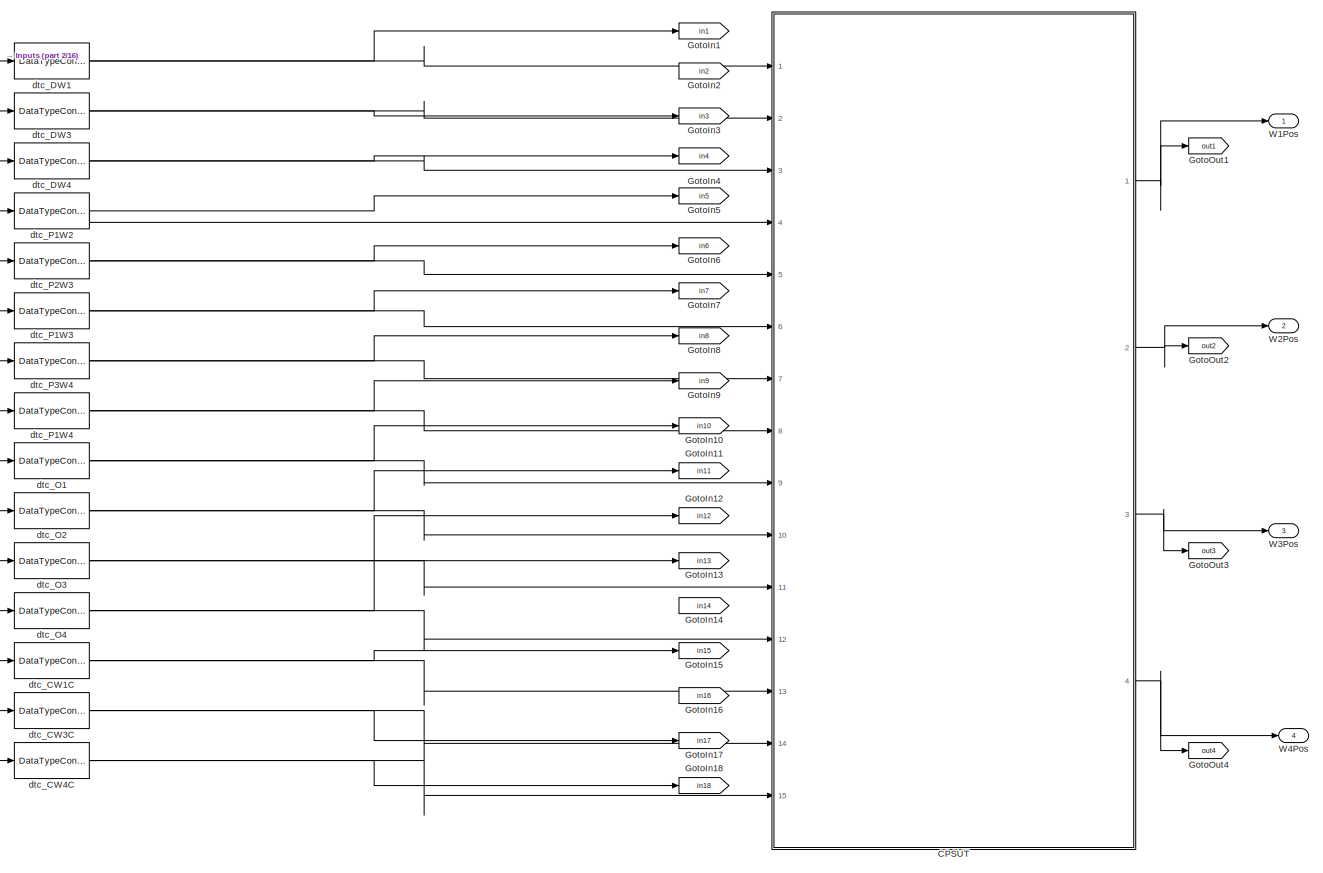
[diagram: root canvas - part 1/16, top left region]
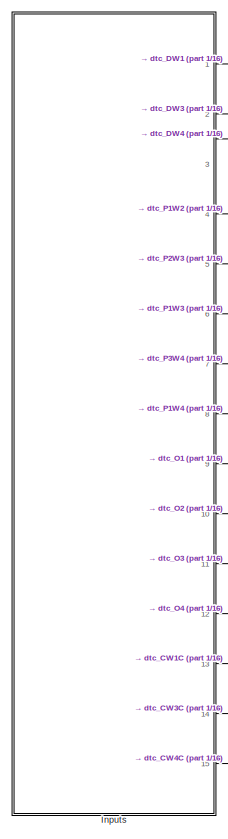
[diagram: root canvas - part 2/16, top left region]
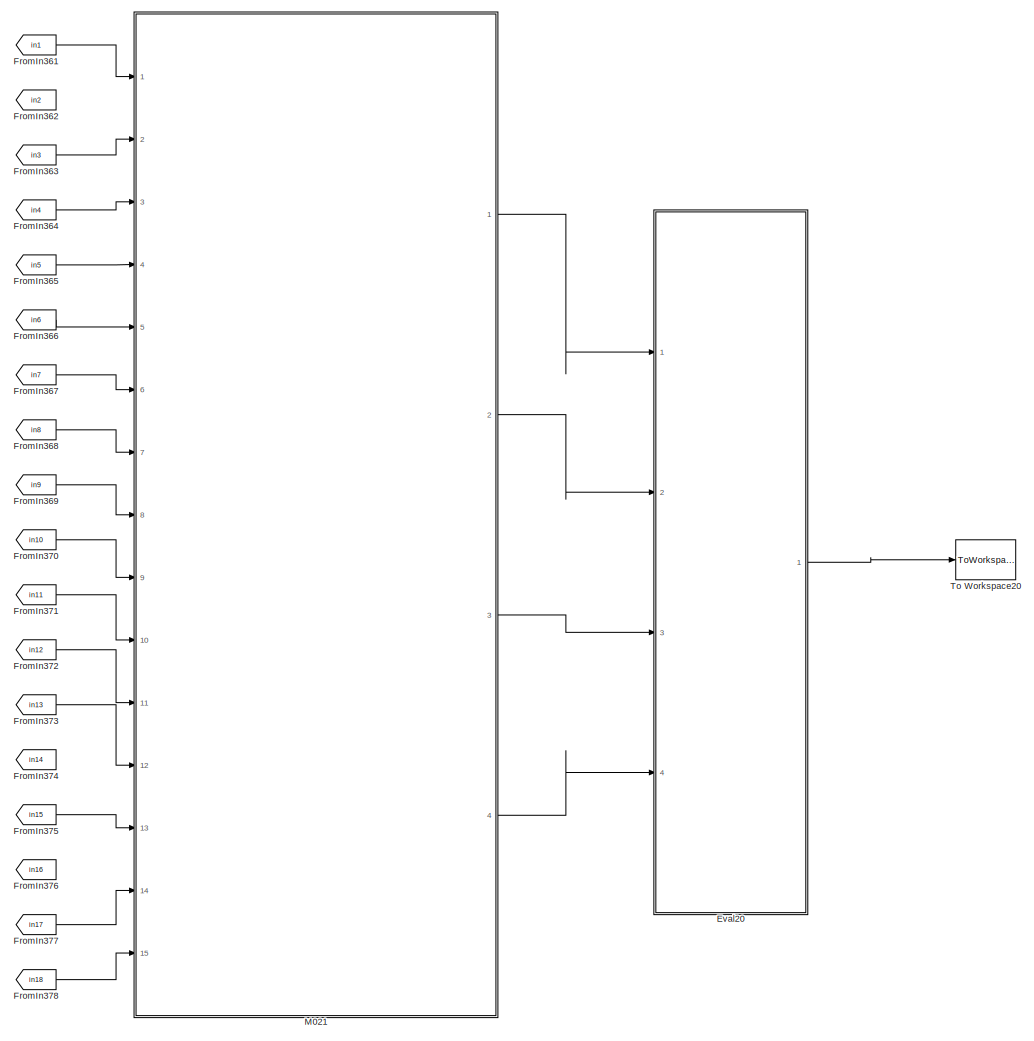
[diagram: root canvas - part 3/16, top center region]
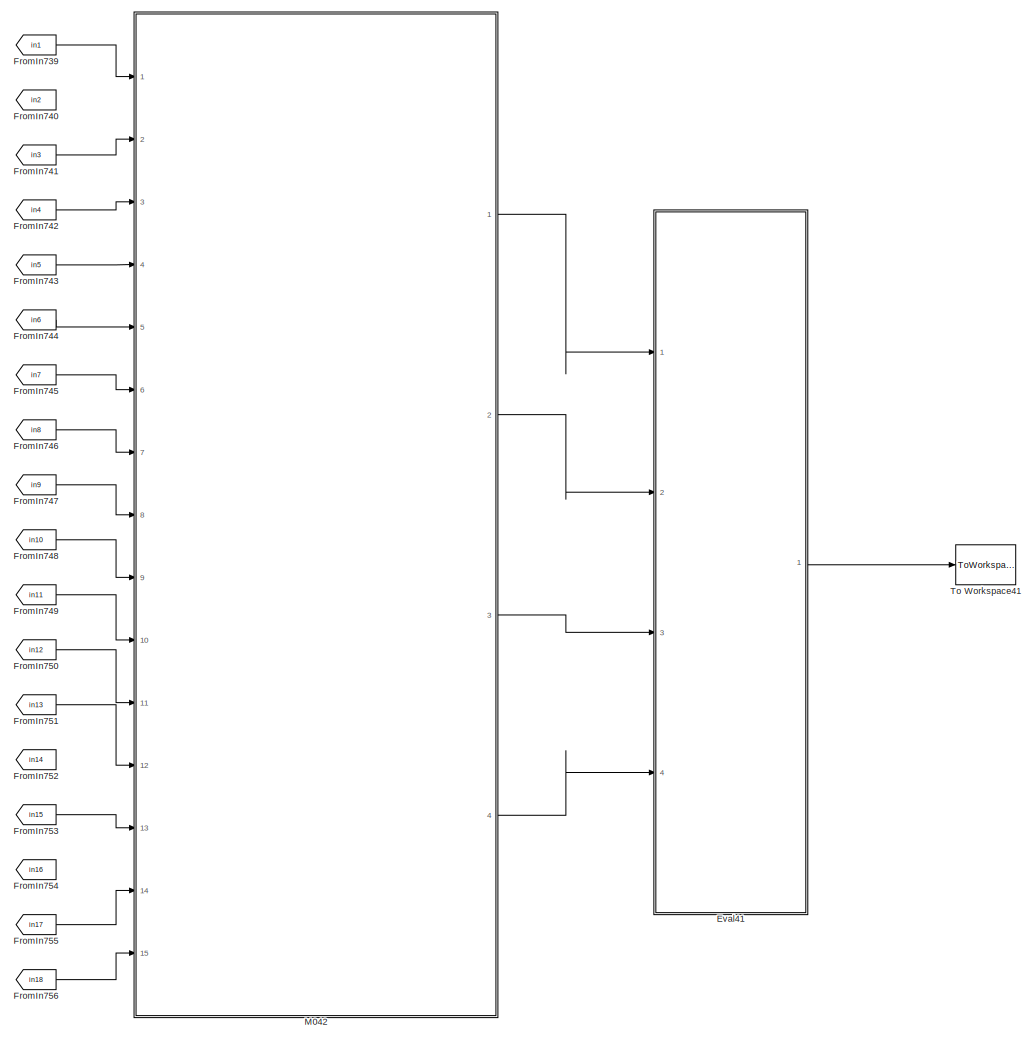
[diagram: root canvas - part 4/16, top right region]
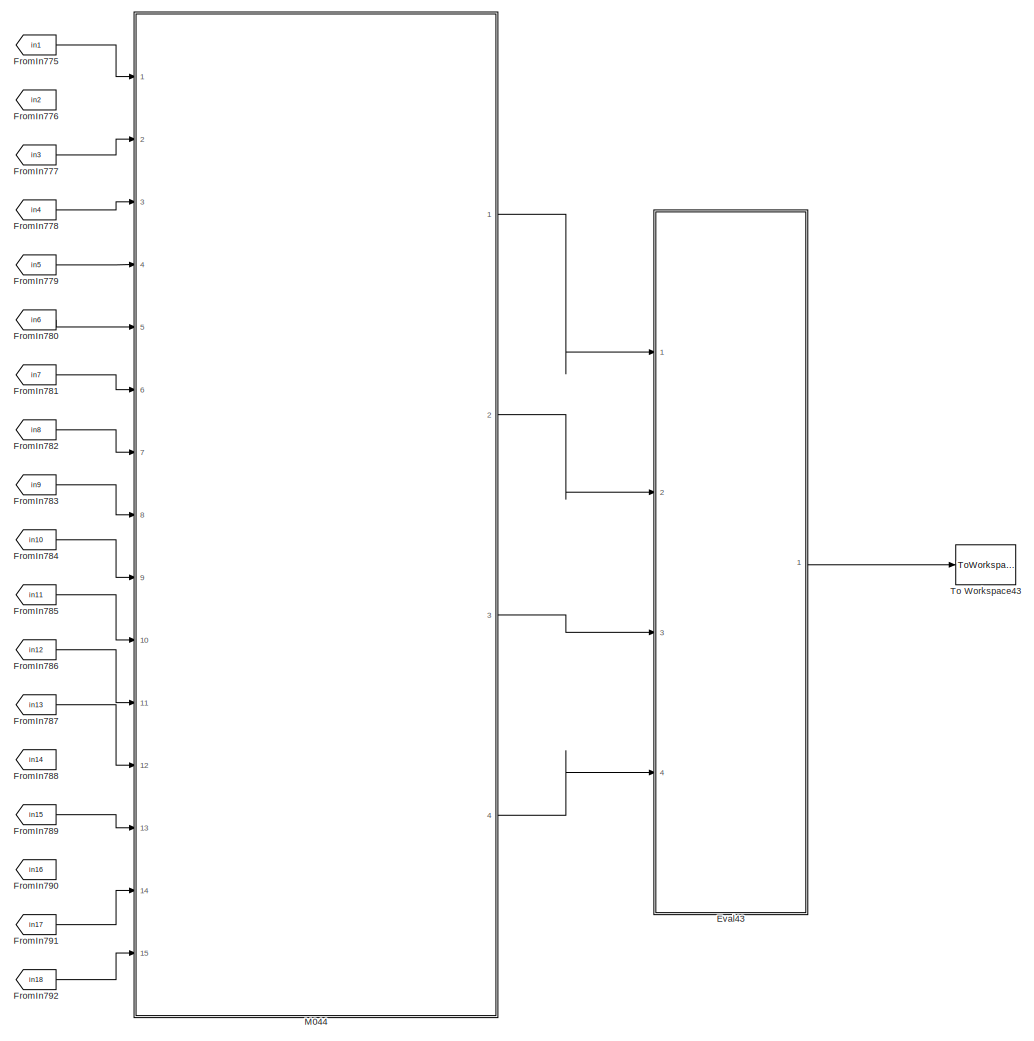
[diagram: root canvas - part 5/16, top right region]
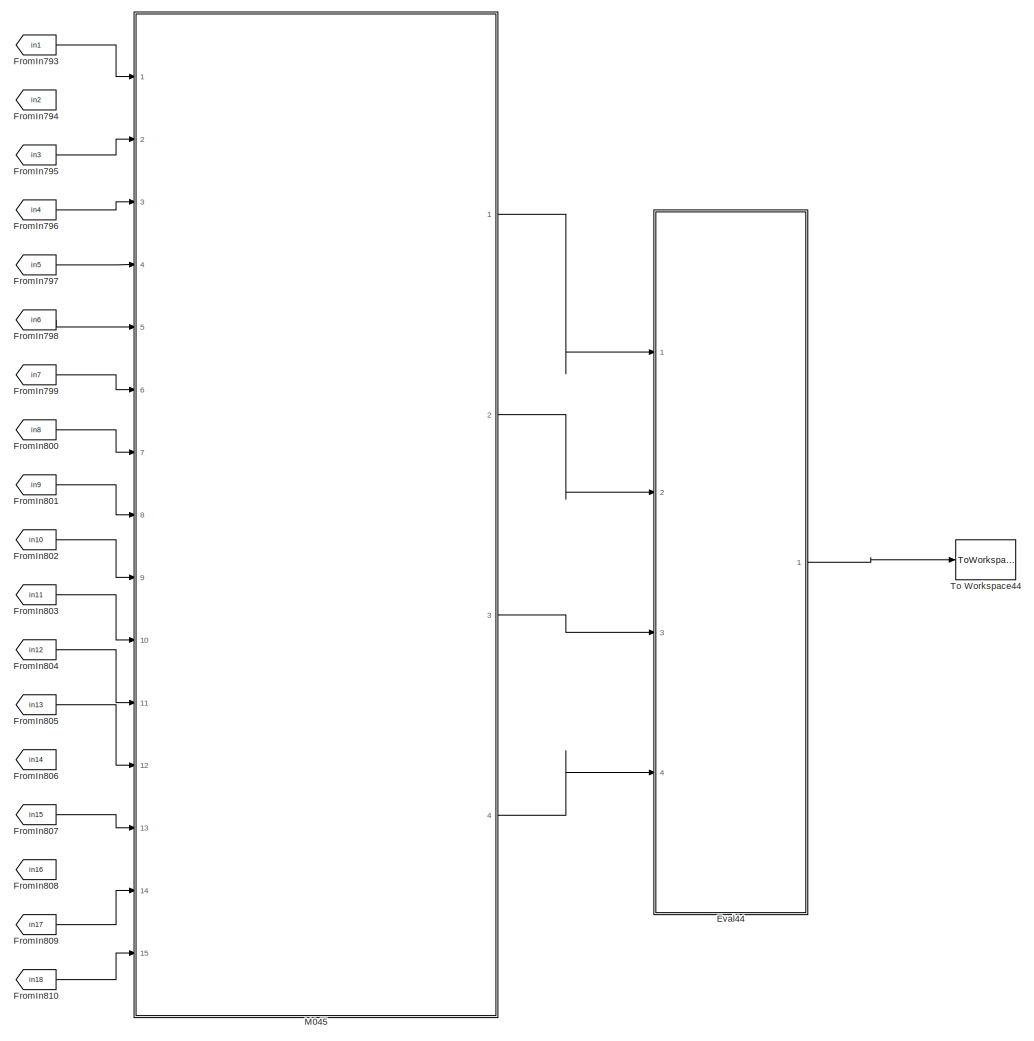
[diagram: root canvas - part 6/16, top right region]
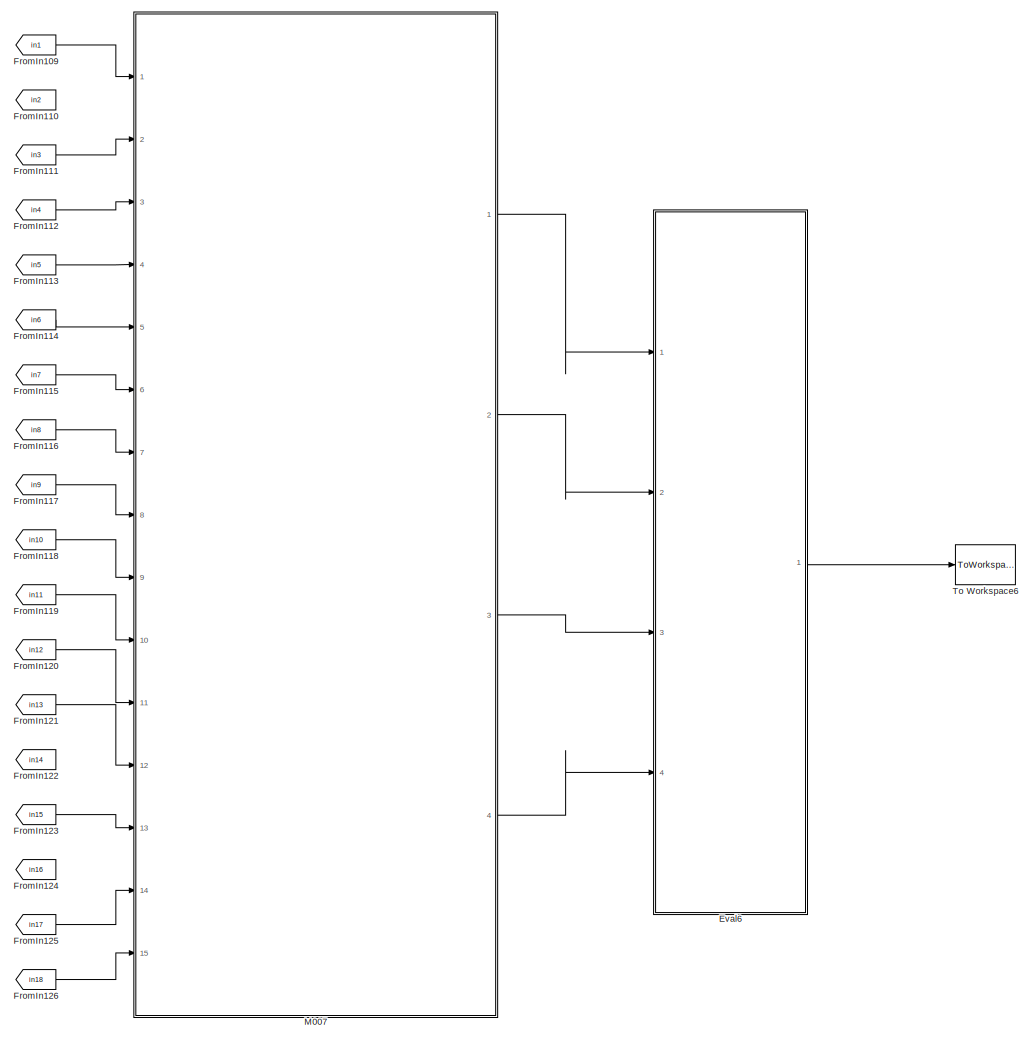
[diagram: root canvas - part 7/16, central region]
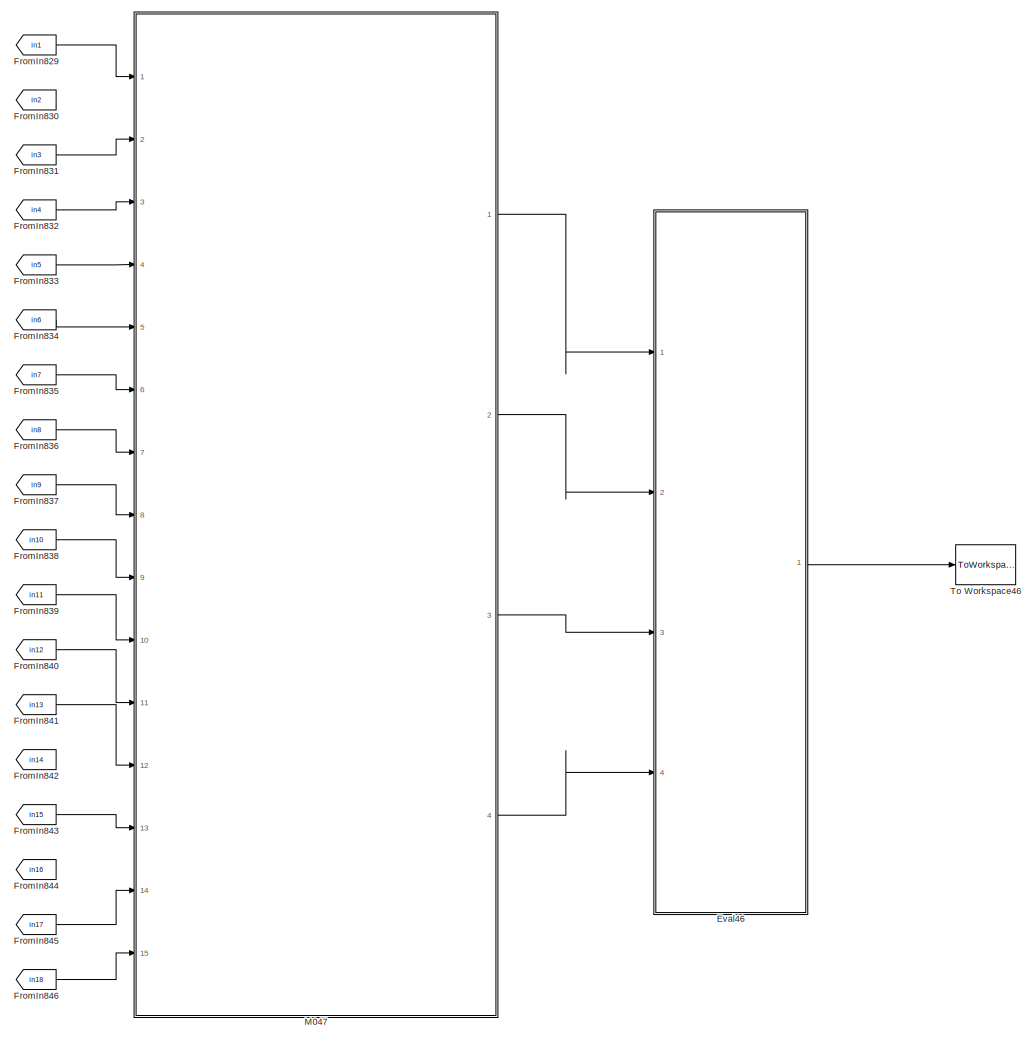
[diagram: root canvas - part 8/16, middle right region]
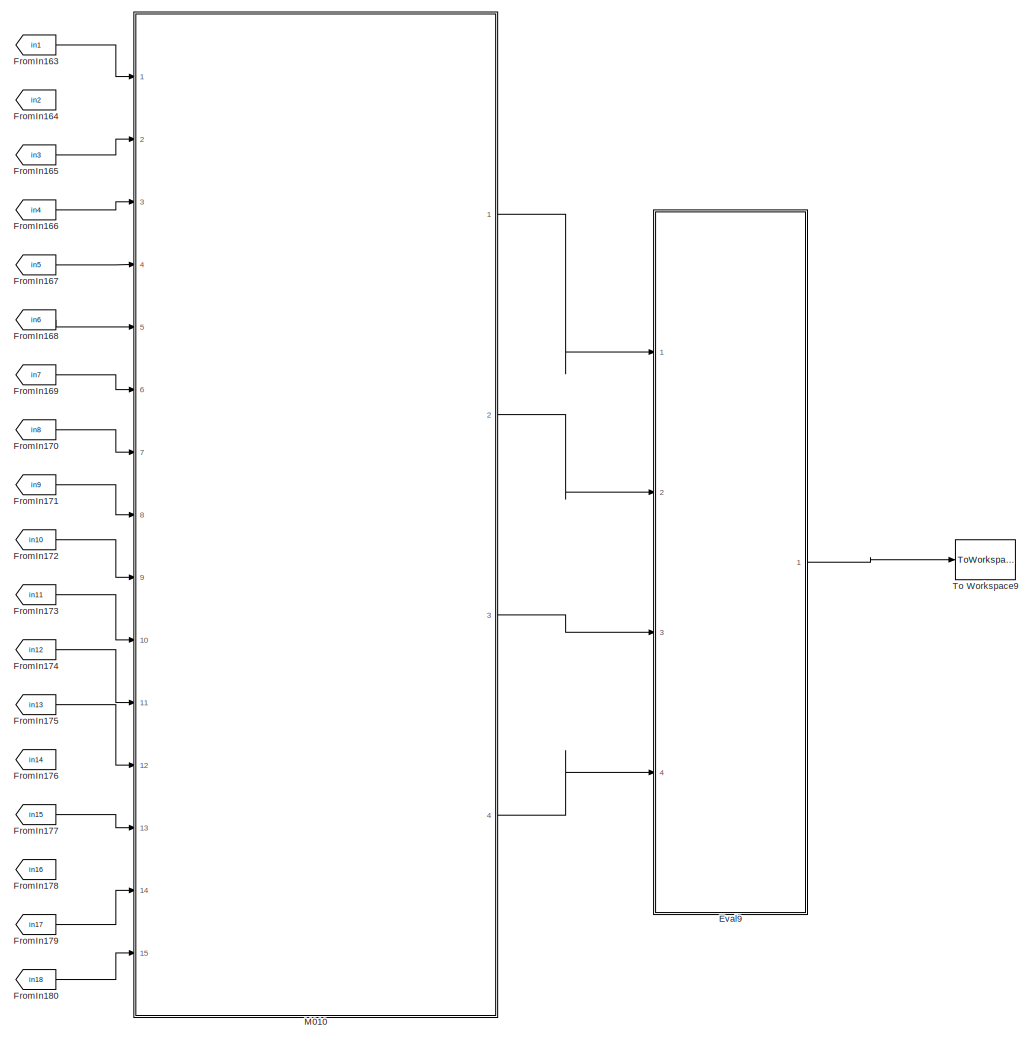
[diagram: root canvas - part 9/16, central region]
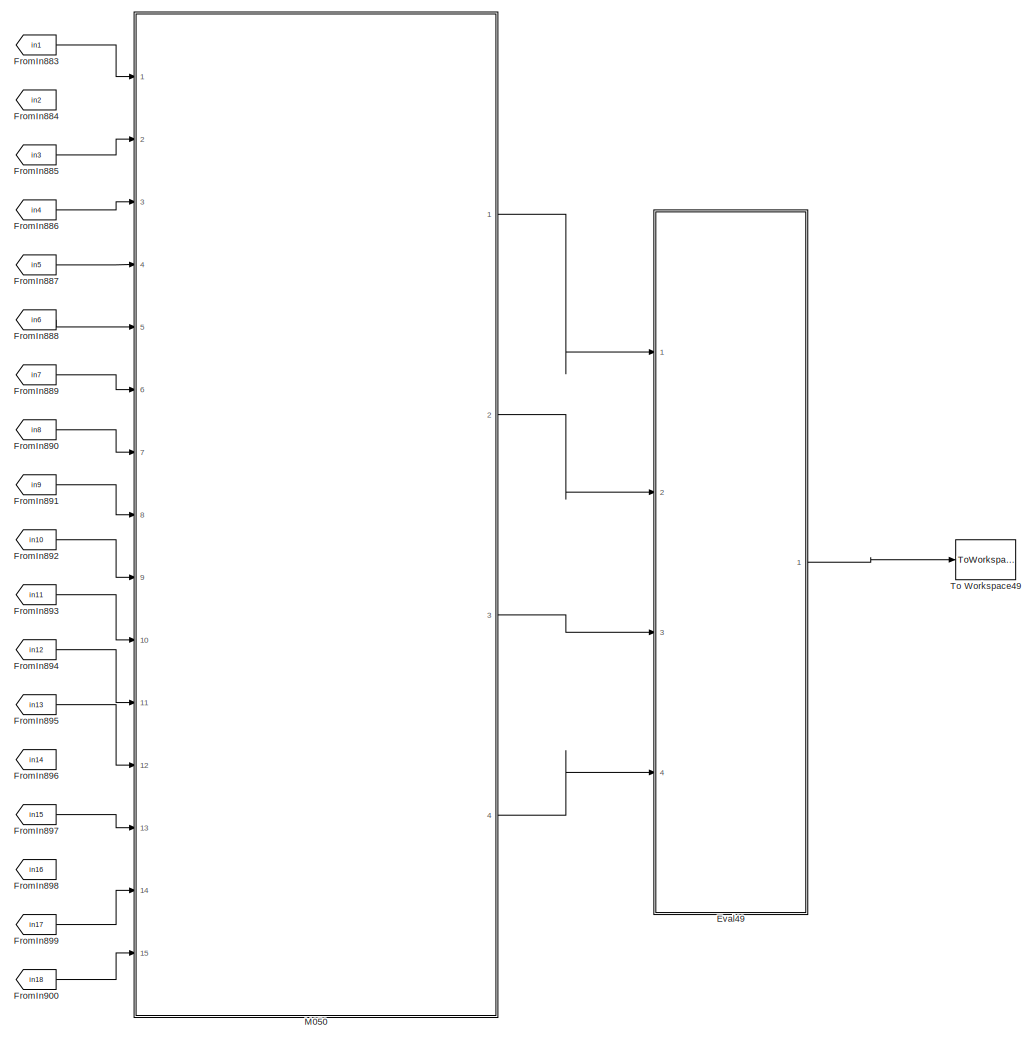
[diagram: root canvas - part 10/16, middle right region]
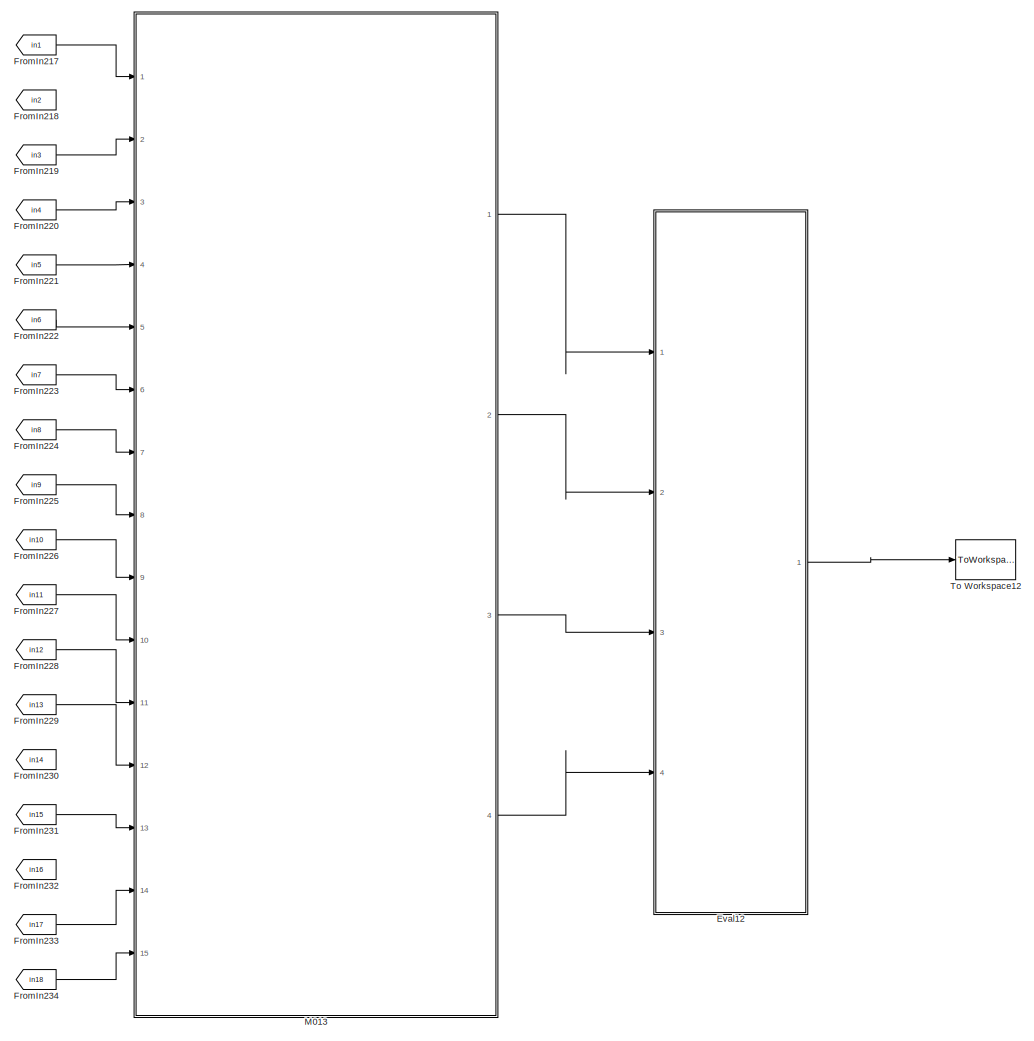
[diagram: root canvas - part 11/16, bottom center region]
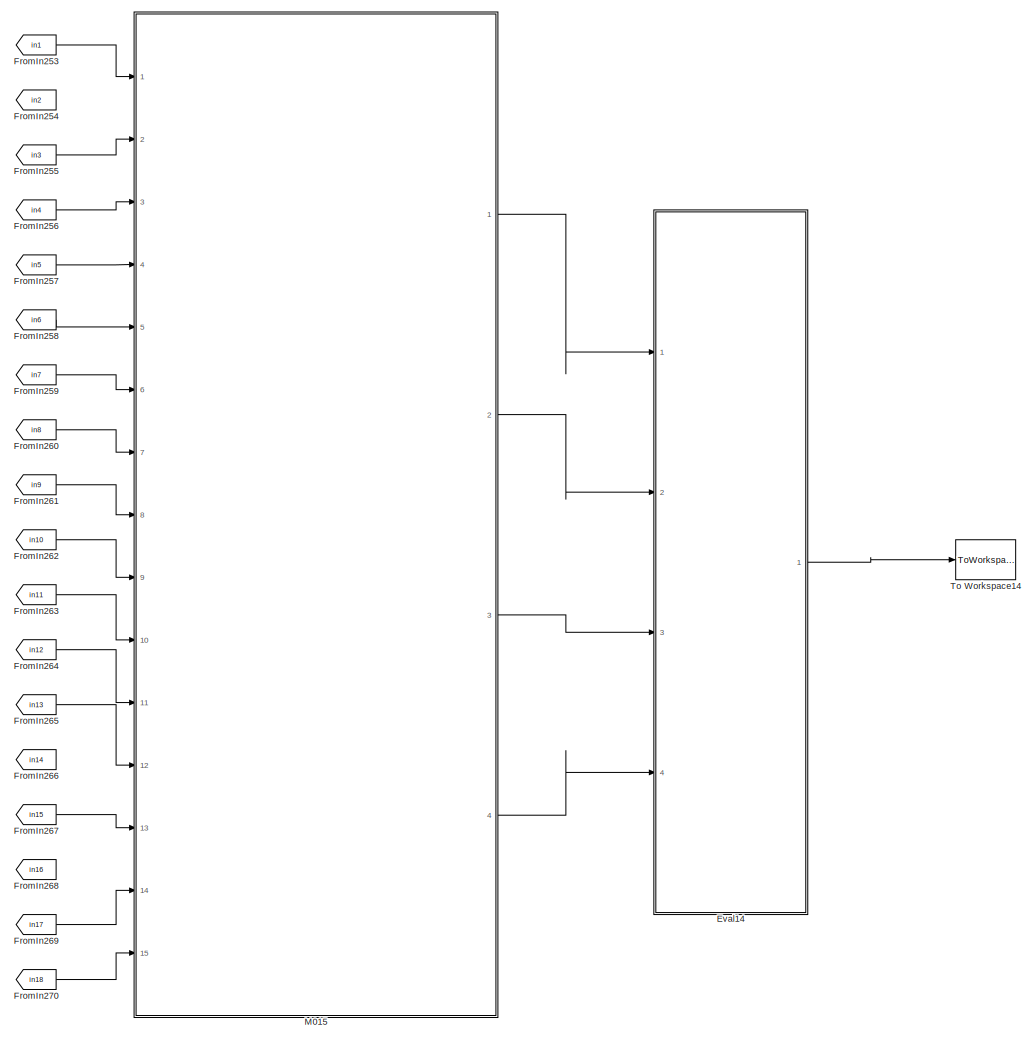
[diagram: root canvas - part 12/16, bottom center region]
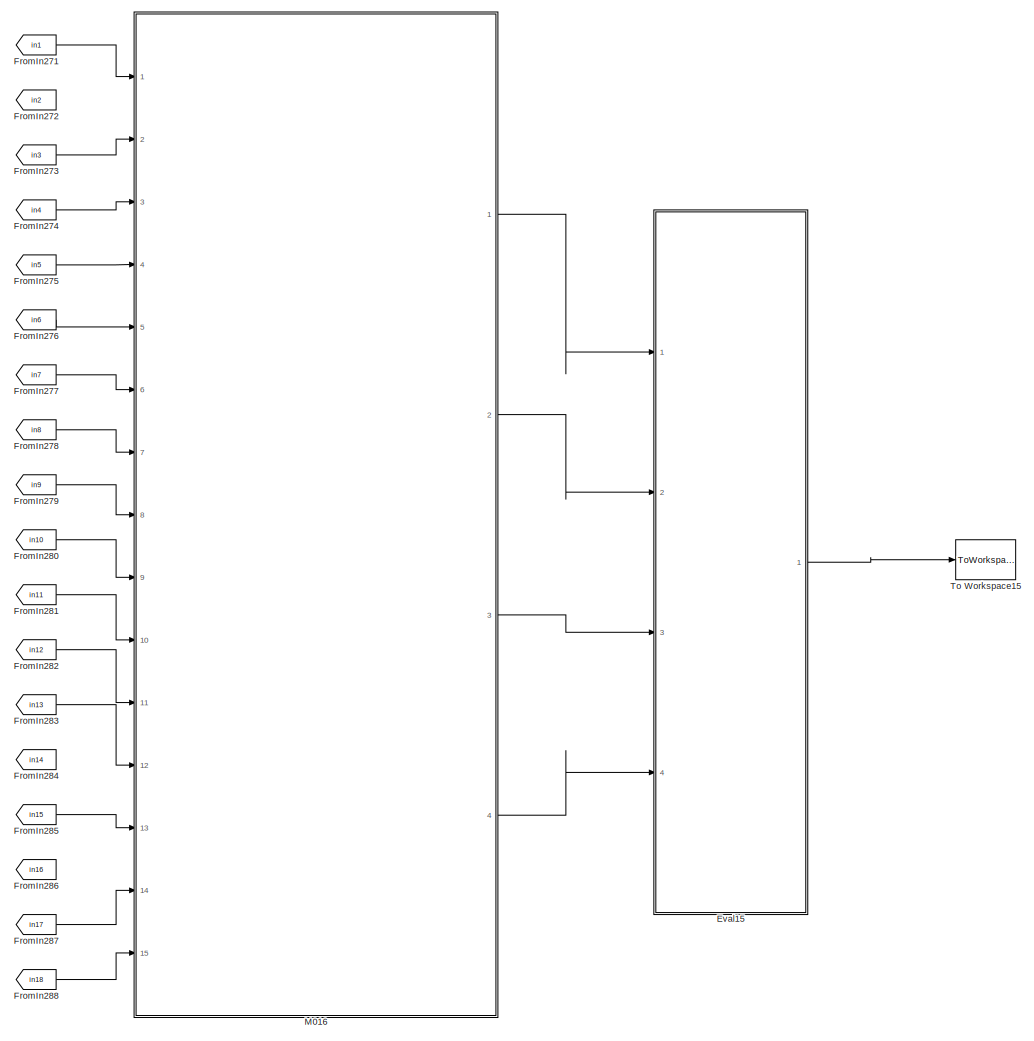
[diagram: root canvas - part 13/16, bottom center region]
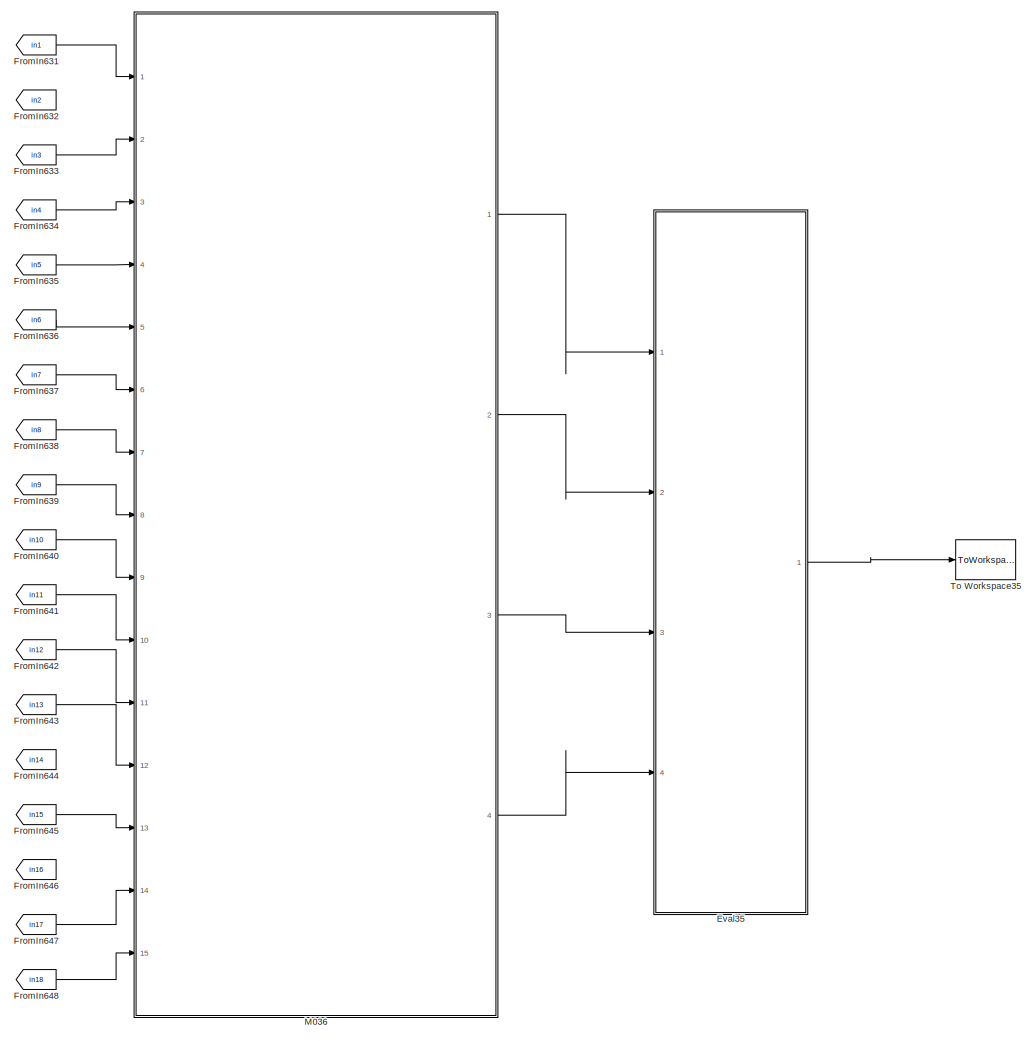
[diagram: root canvas - part 14/16, bottom center region]
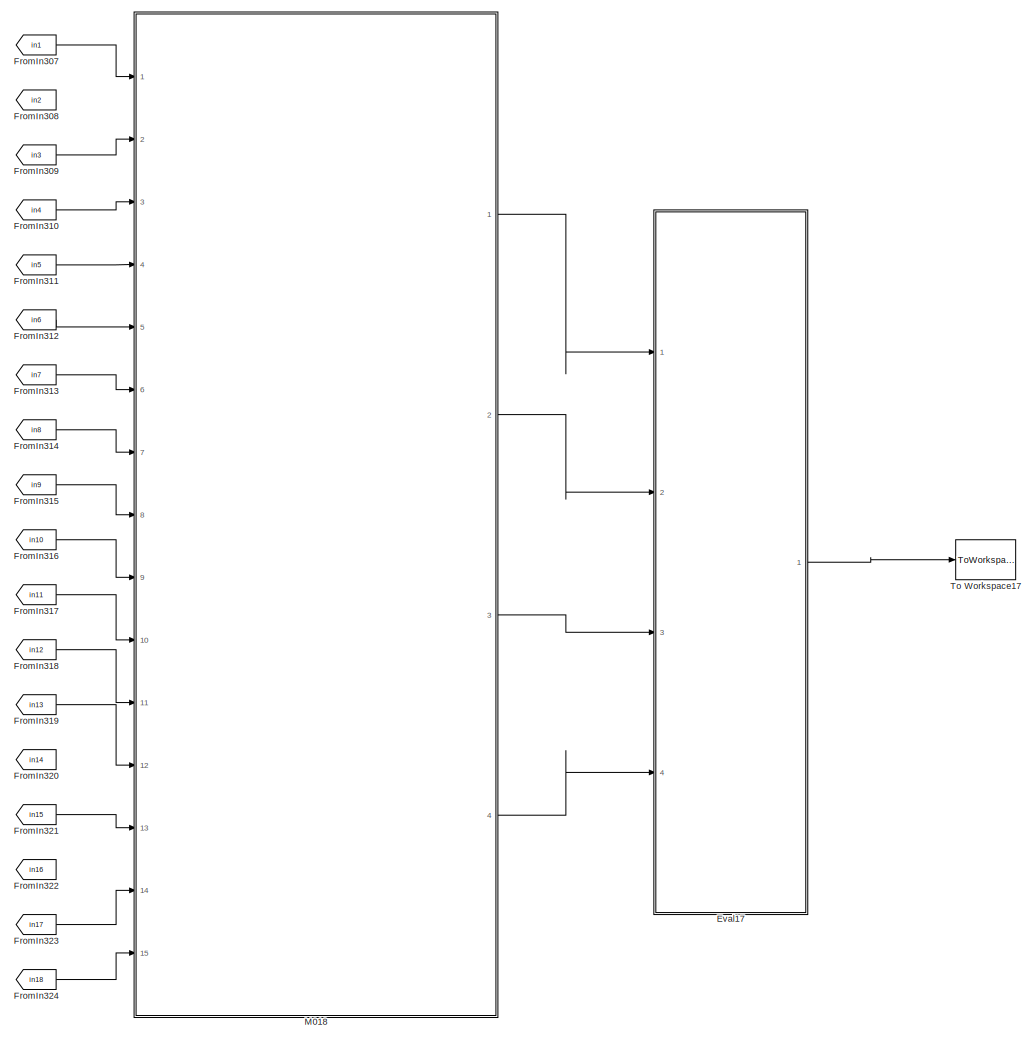
[diagram: root canvas - part 15/16, bottom center region]
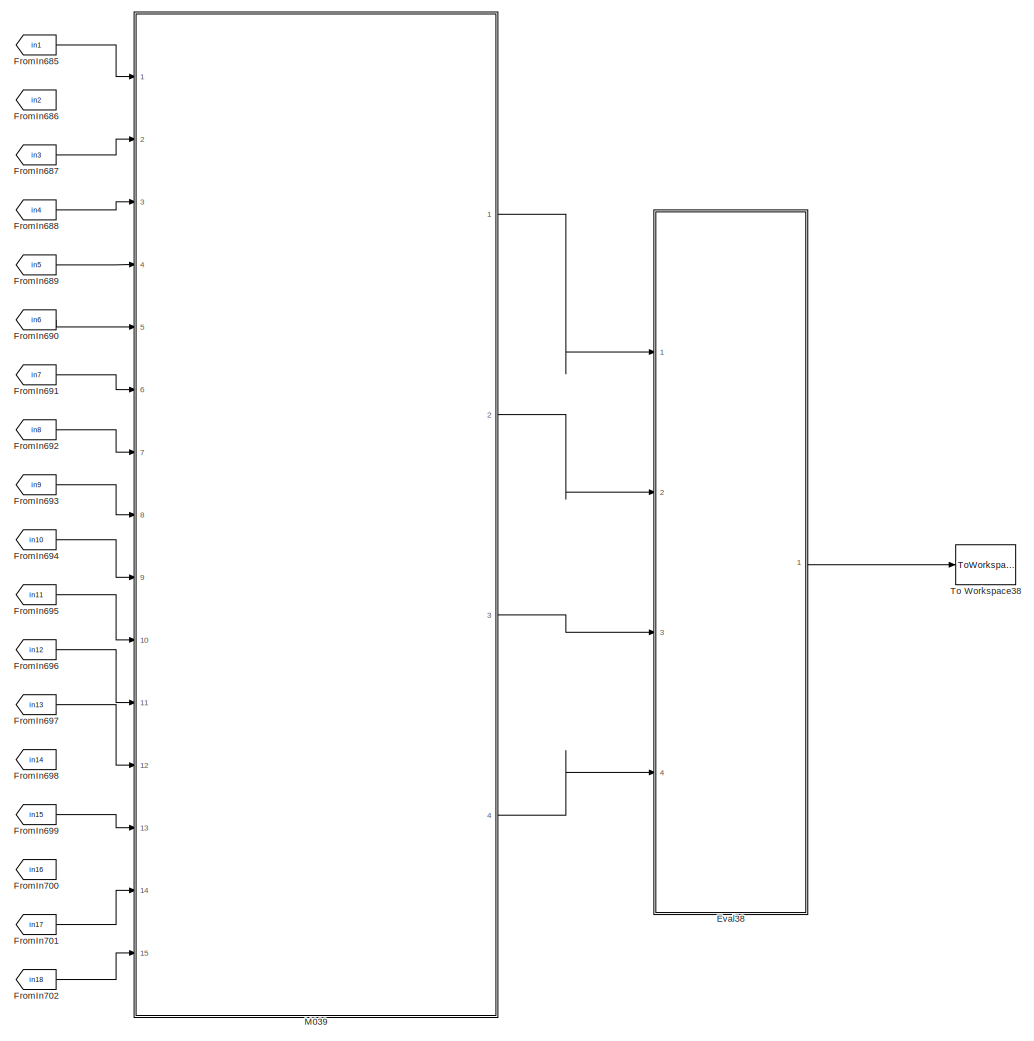
[diagram: root canvas - part 16/16, bottom center region]
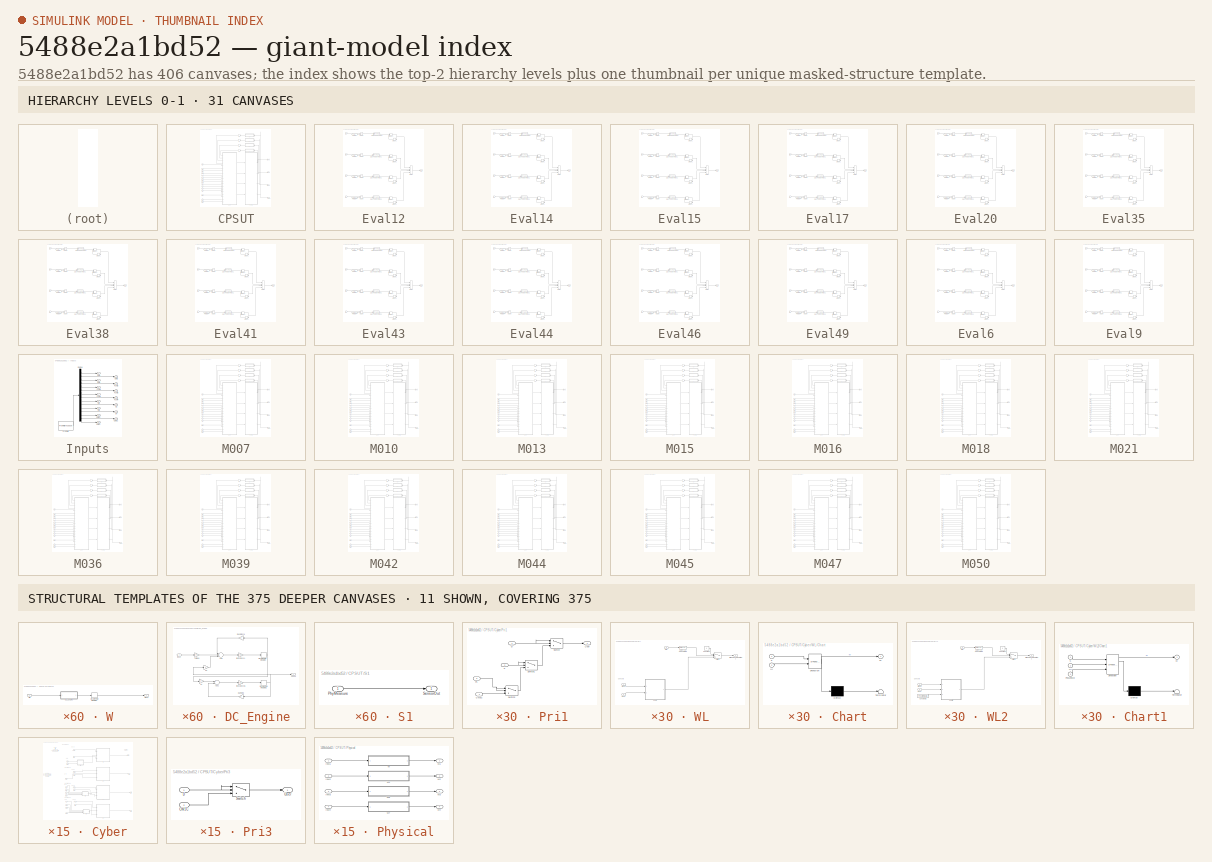
[diagram: thumbnail index - top-2 hierarchy levels (31 canvases) + 11 structural-template representatives of the remaining 375 canvases]
MODEL slx_5488e2a1bd52
KIND model
CONFIG AbsTol = auto
CONFIG EnableMultiTasking = on
CONFIG FixedStep = auto
CONFIG MaxStep = auto
CONFIG MinStep = auto
CONFIG RelTol = 1e-3
CONFIG SampleTimeConstraint = Unconstrained
CONFIG Solver = ode3
CONFIG SolverName = ode3
CONFIG StartTime = 0.0
CONFIG StopTime = 10.0
BLOCK [SubSystem] CPSUT
  Ports = [15, 4]
  RequestExecContextInheritance = off
BLOCK [Inport] CPSUT/CW1C
  IconDisplay = Port number
  OutDataTypeStr = int8
  OutMax = 4
  OutMin = 0
  Port = 13
BLOCK [Inport] CPSUT/CW3C
  IconDisplay = Port number
  OutDataTypeStr = int8
  OutMax = 4
  OutMin = 0
  Port = 14
BLOCK [Inport] CPSUT/CW4C
  IconDisplay = Port number
  OutDataTypeStr = int8
  OutMax = 4
  OutMin = 0
  Port = 15
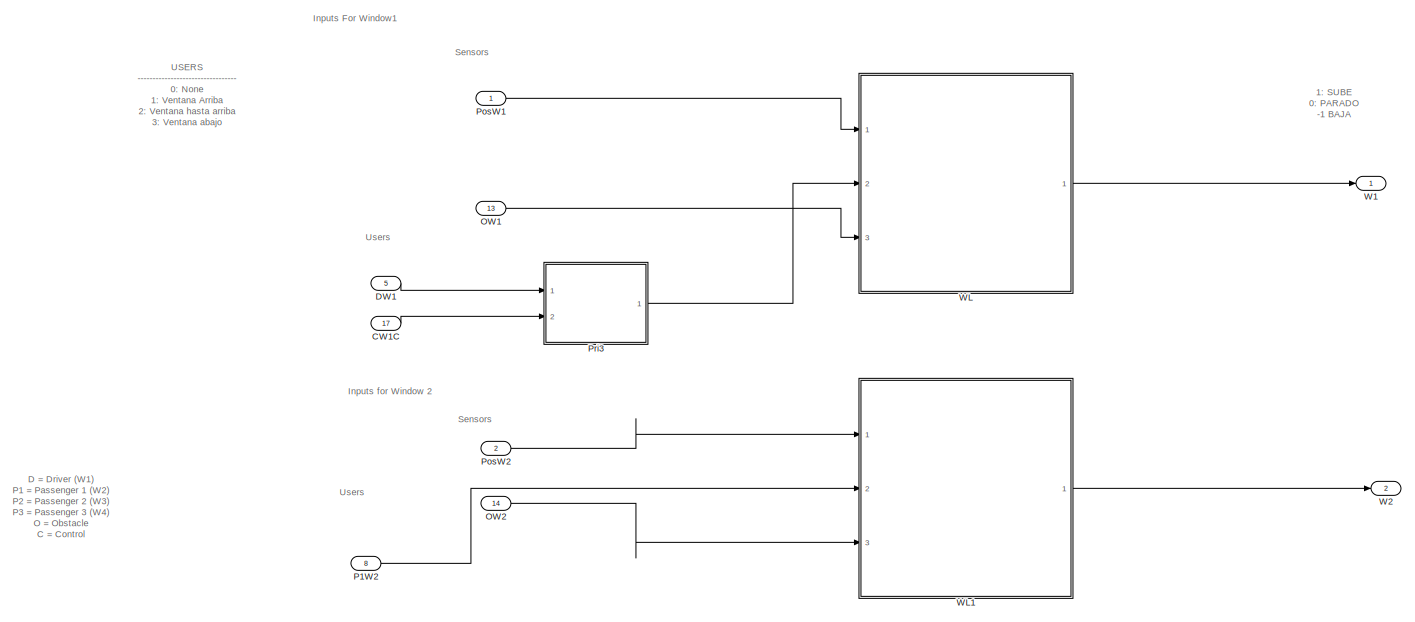
[diagram: CPSUT/Cyber - part 1/2, full width, top band]
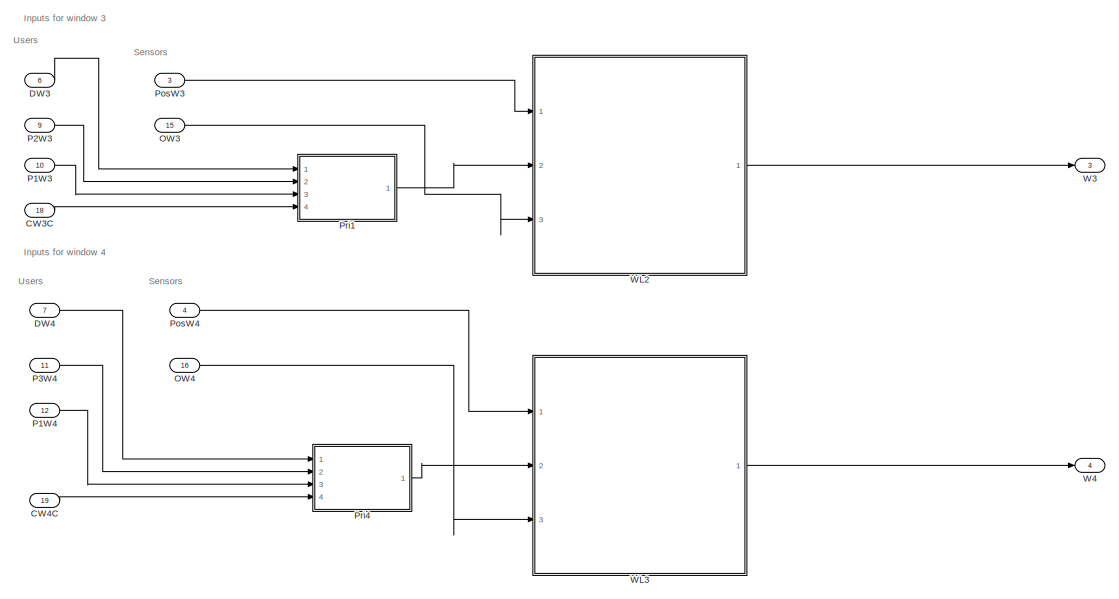
[diagram: CPSUT/Cyber - part 2/2, full width, bottom band]
BLOCK [SubSystem] CPSUT/Cyber
  Ports = [19, 4]
  RequestExecContextInheritance = off
BLOCK [Inport] CPSUT/Cyber/CW1C
  IconDisplay = Port number
  Port = 17
BLOCK [Inport] CPSUT/Cyber/CW3C
  IconDisplay = Port number
  Port = 18
BLOCK [Inport] CPSUT/Cyber/CW4C
  IconDisplay = Port number
  Port = 19
BLOCK [Inport] CPSUT/Cyber/DW1
  IconDisplay = Port number
  Port = 5
BLOCK [Inport] CPSUT/Cyber/DW3
  IconDisplay = Port number
  Port = 6
BLOCK [Inport] CPSUT/Cyber/DW4
  IconDisplay = Port number
  Port = 7
BLOCK [Inport] CPSUT/Cyber/OW1
  IconDisplay = Port number
  Port = 13
BLOCK [Inport] CPSUT/Cyber/OW2
  IconDisplay = Port number
  Port = 14
BLOCK [Inport] CPSUT/Cyber/OW3
  IconDisplay = Port number
  Port = 15
BLOCK [Inport] CPSUT/Cyber/OW4
  IconDisplay = Port number
  Port = 16
BLOCK [Inport] CPSUT/Cyber/P1W2
  IconDisplay = Port number
  Port = 8
BLOCK [Inport] CPSUT/Cyber/P1W3
  IconDisplay = Port number
  Port = 10
BLOCK [Inport] CPSUT/Cyber/P1W4
  IconDisplay = Port number
  Port = 12
BLOCK [Inport] CPSUT/Cyber/P2W3
  IconDisplay = Port number
  Port = 9
BLOCK [Inport] CPSUT/Cyber/P3W4
  IconDisplay = Port number
  Port = 11
BLOCK [Inport] CPSUT/Cyber/PosW1
  IconDisplay = Port number
BLOCK [Inport] CPSUT/Cyber/PosW2
  IconDisplay = Port number
  Port = 2
BLOCK [Inport] CPSUT/Cyber/PosW3
  IconDisplay = Port number
  Port = 3
BLOCK [Inport] CPSUT/Cyber/PosW4
  IconDisplay = Port number
  Port = 4
BLOCK [SubSystem] CPSUT/Cyber/Pri1
  Ports = [4, 1]
  RequestExecContextInheritance = off
BLOCK [Inport] CPSUT/Cyber/Pri1/CW3C
  IconDisplay = Port number
  Port = 4
BLOCK [Inport] CPSUT/Cyber/Pri1/D
  IconDisplay = Port number
BLOCK [Inport] CPSUT/Cyber/Pri1/P
  IconDisplay = Port number
  Port = 2
BLOCK [Inport] CPSUT/Cyber/Pri1/P1
  IconDisplay = Port number
  Port = 3
BLOCK [Switch] CPSUT/Cyber/Pri1/Switch
  Criteria = u2 ~= 0
  InputSameDT = off
  SaturateOnIntegerOverflow = off
BLOCK [Switch] CPSUT/Cyber/Pri1/Switch1
  Criteria = u2 ~= 0
  InputSameDT = off
  SaturateOnIntegerOverflow = off
BLOCK [Switch] CPSUT/Cyber/Pri1/Switch2
  Criteria = u2 ~= 0
  InputSameDT = off
  SaturateOnIntegerOverflow = off
BLOCK [Outport] CPSUT/Cyber/Pri1/User
  IconDisplay = Port number
BLOCK [SubSystem] CPSUT/Cyber/Pri3
  Ports = [2, 1]
  RequestExecContextInheritance = off
BLOCK [Inport] CPSUT/Cyber/Pri3/CW1C
  IconDisplay = Port number
  Port = 2
BLOCK [Inport] CPSUT/Cyber/Pri3/D
  IconDisplay = Port number
BLOCK [Switch] CPSUT/Cyber/Pri3/Switch
  Criteria = u2 ~= 0
  InputSameDT = off
  SaturateOnIntegerOverflow = off
BLOCK [Outport] CPSUT/Cyber/Pri3/User
  IconDisplay = Port number
BLOCK [SubSystem] CPSUT/Cyber/Pri4
  Ports = [4, 1]
  RequestExecContextInheritance = off
BLOCK [Inport] CPSUT/Cyber/Pri4/CW4C
  IconDisplay = Port number
  Port = 4
BLOCK [Inport] CPSUT/Cyber/Pri4/D
  IconDisplay = Port number
BLOCK [Inport] CPSUT/Cyber/Pri4/P
  IconDisplay = Port number
  Port = 2
BLOCK [Inport] CPSUT/Cyber/Pri4/P1
  IconDisplay = Port number
  Port = 3
BLOCK [Switch] CPSUT/Cyber/Pri4/Switch
  Criteria = u2 ~= 0
  InputSameDT = off
  SaturateOnIntegerOverflow = off
BLOCK [Switch] CPSUT/Cyber/Pri4/Switch1
  Criteria = u2 ~= 0
  InputSameDT = off
  SaturateOnIntegerOverflow = off
BLOCK [Switch] CPSUT/Cyber/Pri4/Switch2
  Criteria = u2 ~= 0
  InputSameDT = off
  SaturateOnIntegerOverflow = off
BLOCK [Outport] CPSUT/Cyber/Pri4/User
  IconDisplay = Port number
BLOCK [Outport] CPSUT/Cyber/W1
  IconDisplay = Port number
BLOCK [Outport] CPSUT/Cyber/W2
  IconDisplay = Port number
  Port = 2
BLOCK [Outport] CPSUT/Cyber/W3
  IconDisplay = Port number
  Port = 3
BLOCK [Outport] CPSUT/Cyber/W4
  IconDisplay = Port number
  Port = 4
BLOCK [SubSystem] CPSUT/Cyber/WL
  Ports = [3, 1]
  RequestExecContextInheritance = off
BLOCK [SubSystem] CPSUT/Cyber/WL/Chart
  ErrorFcn = Stateflow.Translate.translate
  PermitHierarchicalResolution = ExplicitOnly
  Ports = [2, 1]
  RequestExecContextInheritance = off
  SFBlockType = Chart
  TreatAsAtomicUnit = on
BLOCK [Demux] CPSUT/Cyber/WL/Chart/ Demux 
  Outputs = 1
  Ports = [1, 1]
BLOCK [S-Function] CPSUT/Cyber/WL/Chart/ SFunction 
  EnableBusSupport = off
  FunctionName = sf_sfun
  PortCounts = [2 2]
  Ports = [2, 2]
  SFcnIsStateOwnerBlock = off
  SFunctionDeploymentMode = off
  Tag = Stateflow S-Function c00004M_harness 1
BLOCK [Terminator] CPSUT/Cyber/WL/Chart/ Terminator 
BLOCK [Inport] CPSUT/Cyber/WL/Chart/S
  IconDisplay = Port number
BLOCK [Inport] CPSUT/Cyber/WL/Chart/UI
  IconDisplay = Port number
  Port = 2
BLOCK [Outport] CPSUT/Cyber/WL/Chart/W
  IconDisplay = Port number
BLOCK [Constant] CPSUT/Cyber/WL/Constant
  Value = -1
BLOCK [DataTypeConversion] CPSUT/Cyber/WL/Data Type Conversion
  RndMeth = Floor
  SaturateOnIntegerOverflow = off
BLOCK [Inport] CPSUT/Cyber/WL/OW
  IconDisplay = Port number
  Port = 3
BLOCK [Switch] CPSUT/Cyber/WL/Switch
  Criteria = u2 ~= 0
  InputSameDT = off
  SaturateOnIntegerOverflow = off
  Threshold = 1
  ZeroCross = off
BLOCK [Inport] CPSUT/Cyber/WL/User
  IconDisplay = Port number
  Port = 2
BLOCK [Inport] CPSUT/Cyber/WL/WPos
  IconDisplay = Port number
BLOCK [Outport] CPSUT/Cyber/WL/WindowLogicOutput
  IconDisplay = Port number
BLOCK [SubSystem] CPSUT/Cyber/WL1
  Ports = [3, 1]
  RequestExecContextInheritance = off
BLOCK [SubSystem] CPSUT/Cyber/WL1/Chart1
  ErrorFcn = Stateflow.Translate.translate
  PermitHierarchicalResolution = ExplicitOnly
  Ports = [2, 1]
  RequestExecContextInheritance = off
  SFBlockType = Chart
  TreatAsAtomicUnit = on
BLOCK [Demux] CPSUT/Cyber/WL1/Chart1/ Demux 
  Outputs = 1
  Ports = [1, 1]
BLOCK [S-Function] CPSUT/Cyber/WL1/Chart1/ SFunction 
  EnableBusSupport = off
  FunctionName = sf_sfun
  PortCounts = [2 2]
  Ports = [2, 2]
  SFcnIsStateOwnerBlock = off
  SFunctionDeploymentMode = off
  Tag = Stateflow S-Function c00004M_harness 3
BLOCK [Terminator] CPSUT/Cyber/WL1/Chart1/ Terminator 
BLOCK [Inport] CPSUT/Cyber/WL1/Chart1/S
  IconDisplay = Port number
BLOCK [Inport] CPSUT/Cyber/WL1/Chart1/UI
  IconDisplay = Port number
  Port = 2
BLOCK [Outport] CPSUT/Cyber/WL1/Chart1/W
  IconDisplay = Port number
BLOCK [Constant] CPSUT/Cyber/WL1/Constant
  Value = -1
BLOCK [DataTypeConversion] CPSUT/Cyber/WL1/Data Type Conversion
  RndMeth = Floor
  SaturateOnIntegerOverflow = off
BLOCK [Inport] CPSUT/Cyber/WL1/OW
  IconDisplay = Port number
  Port = 3
BLOCK [Switch] CPSUT/Cyber/WL1/Switch
  Criteria = u2 ~= 0
  InputSameDT = off
  SaturateOnIntegerOverflow = off
  Threshold = 1
  ZeroCross = off
BLOCK [Inport] CPSUT/Cyber/WL1/User
  IconDisplay = Port number
  Port = 2
BLOCK [Inport] CPSUT/Cyber/WL1/WPos
  IconDisplay = Port number
BLOCK [Outport] CPSUT/Cyber/WL1/WindowLogicOutput
  IconDisplay = Port number
BLOCK [SubSystem] CPSUT/Cyber/WL2
  Ports = [3, 1]
  RequestExecContextInheritance = off
BLOCK [SubSystem] CPSUT/Cyber/WL2/Chart1
  ErrorFcn = Stateflow.Translate.translate
  PermitHierarchicalResolution = ExplicitOnly
  Ports = [3, 1]
  RequestExecContextInheritance = off
  SFBlockType = Chart
  TreatAsAtomicUnit = on
BLOCK [Demux] CPSUT/Cyber/WL2/Chart1/ Demux 
  Outputs = 1
  Ports = [1, 1]
BLOCK [S-Function] CPSUT/Cyber/WL2/Chart1/ SFunction 
  EnableBusSupport = off
  FunctionName = sf_sfun
  PortCounts = [3 2]
  Ports = [3, 2]
  SFcnIsStateOwnerBlock = off
  SFunctionDeploymentMode = off
  Tag = Stateflow S-Function c00004M_harness 2
BLOCK [Terminator] CPSUT/Cyber/WL2/Chart1/ Terminator 
BLOCK [Inport] CPSUT/Cyber/WL2/Chart1/PosMinW3
  IconDisplay = Port number
  Port = 3
BLOCK [Inport] CPSUT/Cyber/WL2/Chart1/S
  IconDisplay = Port number
BLOCK [Inport] CPSUT/Cyber/WL2/Chart1/UI
  IconDisplay = Port number
  Port = 2
BLOCK [Outport] CPSUT/Cyber/WL2/Chart1/W
  IconDisplay = Port number
BLOCK [Constant] CPSUT/Cyber/WL2/Constant
  Value = -1
BLOCK [Constant] CPSUT/Cyber/WL2/Constant2
  Value = PosMinimaW3
BLOCK [DataTypeConversion] CPSUT/Cyber/WL2/Data Type Conversion
  RndMeth = Floor
  SaturateOnIntegerOverflow = off
BLOCK [Inport] CPSUT/Cyber/WL2/OW
  IconDisplay = Port number
  Port = 3
BLOCK [Switch] CPSUT/Cyber/WL2/Switch
  Criteria = u2 ~= 0
  InputSameDT = off
  SaturateOnIntegerOverflow = off
  Threshold = 1
  ZeroCross = off
BLOCK [Inport] CPSUT/Cyber/WL2/User
  IconDisplay = Port number
  Port = 2
BLOCK [Inport] CPSUT/Cyber/WL2/WPos
  IconDisplay = Port number
BLOCK [Outport] CPSUT/Cyber/WL2/WindowLogicOutput
  IconDisplay = Port number
BLOCK [SubSystem] CPSUT/Cyber/WL3
  Ports = [3, 1]
  RequestExecContextInheritance = off
BLOCK [SubSystem] CPSUT/Cyber/WL3/Chart2
  ErrorFcn = Stateflow.Translate.translate
  PermitHierarchicalResolution = ExplicitOnly
  Ports = [3, 1]
  RequestExecContextInheritance = off
  SFBlockType = Chart
  TreatAsAtomicUnit = on
BLOCK [Demux] CPSUT/Cyber/WL3/Chart2/ Demux 
  Outputs = 1
  Ports = [1, 1]
BLOCK [S-Function] CPSUT/Cyber/WL3/Chart2/ SFunction 
  EnableBusSupport = off
  FunctionName = sf_sfun
  PortCounts = [3 2]
  Ports = [3, 2]
  SFcnIsStateOwnerBlock = off
  SFunctionDeploymentMode = off
  Tag = Stateflow S-Function c00004M_harness 4
BLOCK [Terminator] CPSUT/Cyber/WL3/Chart2/ Terminator 
BLOCK [Inport] CPSUT/Cyber/WL3/Chart2/PosMinW4
  IconDisplay = Port number
  Port = 3
BLOCK [Inport] CPSUT/Cyber/WL3/Chart2/S
  IconDisplay = Port number
BLOCK [Inport] CPSUT/Cyber/WL3/Chart2/UI
  IconDisplay = Port number
  Port = 2
BLOCK [Outport] CPSUT/Cyber/WL3/Chart2/W
  IconDisplay = Port number
BLOCK [Constant] CPSUT/Cyber/WL3/Constant
  Value = -1
BLOCK [Constant] CPSUT/Cyber/WL3/Constant2
  Value = PosMinimaW4
BLOCK [DataTypeConversion] CPSUT/Cyber/WL3/Data Type Conversion
  RndMeth = Floor
  SaturateOnIntegerOverflow = off
BLOCK [Inport] CPSUT/Cyber/WL3/OW
  IconDisplay = Port number
  Port = 3
BLOCK [Switch] CPSUT/Cyber/WL3/Switch
  Criteria = u2 ~= 0
  InputSameDT = off
  SaturateOnIntegerOverflow = off
  Threshold = 1
  ZeroCross = off
BLOCK [Inport] CPSUT/Cyber/WL3/User
  IconDisplay = Port number
  Port = 2
BLOCK [Inport] CPSUT/Cyber/WL3/WPos
  IconDisplay = Port number
BLOCK [Outport] CPSUT/Cyber/WL3/WindowLogicOutput
  IconDisplay = Port number
BLOCK [Inport] CPSUT/DW1
  IconDisplay = Port number
  OutDataTypeStr = int8
  OutMax = 4
  OutMin = 0
BLOCK [Inport] CPSUT/DW3
  IconDisplay = Port number
  OutDataTypeStr = int8
  OutMax = 4
  OutMin = 0
  Port = 2
BLOCK [Inport] CPSUT/DW4
  IconDisplay = Port number
  OutDataTypeStr = int8
  OutMax = 4
  OutMin = 0
  Port = 3
BLOCK [Memory] CPSUT/M
BLOCK [Memory] CPSUT/M1
BLOCK [Memory] CPSUT/M2
BLOCK [Memory] CPSUT/M3
BLOCK [Inport] CPSUT/O1
  IconDisplay = Port number
  OutDataTypeStr = boolean
  Port = 9
BLOCK [Inport] CPSUT/O2
  IconDisplay = Port number
  OutDataTypeStr = boolean
  Port = 10
BLOCK [Inport] CPSUT/O3
  IconDisplay = Port number
  OutDataTypeStr = boolean
  Port = 11
BLOCK [Inport] CPSUT/O4
  IconDisplay = Port number
  OutDataTypeStr = boolean
  Port = 12
BLOCK [Inport] CPSUT/P1W2
  IconDisplay = Port number
  OutDataTypeStr = int8
  OutMax = 4
  OutMin = 0
  Port = 4
BLOCK [Inport] CPSUT/P1W3
  IconDisplay = Port number
  OutDataTypeStr = int8
  OutMax = 4
  OutMin = 0
  Port = 6
BLOCK [Inport] CPSUT/P1W4
  IconDisplay = Port number
  OutDataTypeStr = int8
  OutMax = 4
  OutMin = 0
  Port = 8
BLOCK [Inport] CPSUT/P2W3
  IconDisplay = Port number
  OutDataTypeStr = int8
  OutMax = 4
  OutMin = 0
  Port = 5
BLOCK [Inport] CPSUT/P3W4
  IconDisplay = Port number
  OutDataTypeStr = int8
  OutMax = 4
  OutMin = 0
  Port = 7
BLOCK [SubSystem] CPSUT/Physical
  Ports = [4, 4]
  RequestExecContextInheritance = off
BLOCK [Inport] CPSUT/Physical/InW1
  IconDisplay = Port number
BLOCK [Inport] CPSUT/Physical/InW2
  IconDisplay = Port number
  Port = 2
BLOCK [Inport] CPSUT/Physical/InW3
  IconDisplay = Port number
  Port = 3
BLOCK [Inport] CPSUT/Physical/InW4
  IconDisplay = Port number
  Port = 4
BLOCK [SubSystem] CPSUT/Physical/W
  Ports = [1, 1]
  RequestExecContextInheritance = off
BLOCK [SubSystem] CPSUT/Physical/W/DC_Engine
  Ports = [1, 1]
  RequestExecContextInheritance = off
BLOCK [Gain] CPSUT/Physical/W/DC_Engine/(Inductance)
  Gain = 1/L
  OutDataTypeStr = Inherit: Inherit via internal rule
  ParamDataTypeStr = Inherit: Inherit via internal rule
  SaturateOnIntegerOverflow = off
BLOCK [Gain] CPSUT/Physical/W/DC_Engine/(Inductance)1
  Gain = 1/J
  OutDataTypeStr = Inherit: Inherit via internal rule
  ParamDataTypeStr = Inherit: Inherit via internal rule
  SaturateOnIntegerOverflow = off
BLOCK [Sum] CPSUT/Physical/W/DC_Engine/Add
  InputSameDT = off
  Inputs = -+-
  OutDataTypeStr = Inherit: Inherit via internal rule
  Ports = [3, 1]
  SaturateOnIntegerOverflow = off
BLOCK [Sum] CPSUT/Physical/W/DC_Engine/Add1
  InputSameDT = off
  Inputs = +-
  OutDataTypeStr = Inherit: Inherit via internal rule
  Ports = [2, 1]
  SaturateOnIntegerOverflow = off
BLOCK [Gain] CPSUT/Physical/W/DC_Engine/Damping
  Gain = b
  OutDataTypeStr = Inherit: Inherit via internal rule
  ParamDataTypeStr = Inherit: Inherit via internal rule
  SaturateOnIntegerOverflow = off
BLOCK [DiscreteIntegrator] CPSUT/Physical/W/DC_Engine/Discrete-Time Integrator
  ICPrevOutput = DiscIntNeverNeededParam
  ICPrevScaledInput = DiscIntNeverNeededParam
  Ports = [1, 1]
  SampleTime = -1
BLOCK [DiscreteIntegrator] CPSUT/Physical/W/DC_Engine/Discrete-Time Integrator1
  ICPrevOutput = DiscIntNeverNeededParam
  ICPrevScaledInput = DiscIntNeverNeededParam
  Ports = [1, 1]
  SampleTime = -1
BLOCK [Gain] CPSUT/Physical/W/DC_Engine/Ke
  Gain = K
  OutDataTypeStr = Inherit: Inherit via internal rule
  ParamDataTypeStr = Inherit: Inherit via internal rule
  SaturateOnIntegerOverflow = off
BLOCK [Gain] CPSUT/Physical/W/DC_Engine/Kt
  Gain = K
  OutDataTypeStr = Inherit: Inherit via internal rule
  ParamDataTypeStr = Inherit: Inherit via internal rule
  SaturateOnIntegerOverflow = off
BLOCK [Gain] CPSUT/Physical/W/DC_Engine/Resistance
  Gain = R
  OutDataTypeStr = Inherit: Inherit via internal rule
  ParamDataTypeStr = Inherit: Inherit via internal rule
  SaturateOnIntegerOverflow = off
BLOCK [Outport] CPSUT/Physical/W/DC_Engine/Speed
  IconDisplay = Port number
BLOCK [Gain] CPSUT/Physical/W/DC_Engine/Voltage
  Gain = 10
  OutDataTypeStr = Inherit: Inherit via internal rule
  ParamDataTypeStr = Inherit: Inherit via internal rule
  SaturateOnIntegerOverflow = off
BLOCK [Inport] CPSUT/Physical/W/DC_Engine/input
  IconDisplay = Port number
BLOCK [DiscreteIntegrator] CPSUT/Physical/W/Discrete-Time Integrator
  ICPrevOutput = DiscIntNeverNeededParam
  ICPrevScaledInput = DiscIntNeverNeededParam
  InitialCondition = 5
  LimitOutput = on
  LowerSaturationLimit = 0
  Ports = [1, 1]
  SampleTime = -1
  UpperSaturationLimit = 5
BLOCK [Inport] CPSUT/Physical/W/WIn
  IconDisplay = Port number
BLOCK [Outport] CPSUT/Physical/W/WPos
  IconDisplay = Port number
BLOCK [Outport] CPSUT/Physical/W1
  IconDisplay = Port number
BLOCK [Outport] CPSUT/Physical/W2
  IconDisplay = Port number
  Port = 2
BLOCK [Outport] CPSUT/Physical/W3
  IconDisplay = Port number
  Port = 3
BLOCK [Outport] CPSUT/Physical/W4
  IconDisplay = Port number
  Port = 4
BLOCK [SubSystem] CPSUT/Physical/W5
  Ports = [1, 1]
  RequestExecContextInheritance = off
BLOCK [SubSystem] CPSUT/Physical/W5/DC_Engine
  Ports = [1, 1]
  RequestExecContextInheritance = off
BLOCK [Gain] CPSUT/Physical/W5/DC_Engine/(Inductance)
  Gain = 1/L
  OutDataTypeStr = Inherit: Inherit via internal rule
  ParamDataTypeStr = Inherit: Inherit via internal rule
  SaturateOnIntegerOverflow = off
BLOCK [Gain] CPSUT/Physical/W5/DC_Engine/(Inductance)1
  Gain = 1/J
  OutDataTypeStr = Inherit: Inherit via internal rule
  ParamDataTypeStr = Inherit: Inherit via internal rule
  SaturateOnIntegerOverflow = off
BLOCK [Sum] CPSUT/Physical/W5/DC_Engine/Add
  InputSameDT = off
  Inputs = -+-
  OutDataTypeStr = Inherit: Inherit via internal rule
  Ports = [3, 1]
  SaturateOnIntegerOverflow = off
BLOCK [Sum] CPSUT/Physical/W5/DC_Engine/Add1
  InputSameDT = off
  Inputs = +-
  OutDataTypeStr = Inherit: Inherit via internal rule
  Ports = [2, 1]
  SaturateOnIntegerOverflow = off
BLOCK [Gain] CPSUT/Physical/W5/DC_Engine/Damping
  Gain = b
  OutDataTypeStr = Inherit: Inherit via internal rule
  ParamDataTypeStr = Inherit: Inherit via internal rule
  SaturateOnIntegerOverflow = off
BLOCK [DiscreteIntegrator] CPSUT/Physical/W5/DC_Engine/Discrete-Time Integrator
  ICPrevOutput = DiscIntNeverNeededParam
  ICPrevScaledInput = DiscIntNeverNeededParam
  Ports = [1, 1]
  SampleTime = -1
BLOCK [DiscreteIntegrator] CPSUT/Physical/W5/DC_Engine/Discrete-Time Integrator1
  ICPrevOutput = DiscIntNeverNeededParam
  ICPrevScaledInput = DiscIntNeverNeededParam
  Ports = [1, 1]
  SampleTime = -1
BLOCK [Gain] CPSUT/Physical/W5/DC_Engine/Ke
  Gain = K
  OutDataTypeStr = Inherit: Inherit via internal rule
  ParamDataTypeStr = Inherit: Inherit via internal rule
  SaturateOnIntegerOverflow = off
BLOCK [Gain] CPSUT/Physical/W5/DC_Engine/Kt
  Gain = K
  OutDataTypeStr = Inherit: Inherit via internal rule
  ParamDataTypeStr = Inherit: Inherit via internal rule
  SaturateOnIntegerOverflow = off
BLOCK [Gain] CPSUT/Physical/W5/DC_Engine/Resistance
  Gain = R
  OutDataTypeStr = Inherit: Inherit via internal rule
  ParamDataTypeStr = Inherit: Inherit via internal rule
  SaturateOnIntegerOverflow = off
BLOCK [Outport] CPSUT/Physical/W5/DC_Engine/Speed
  IconDisplay = Port number
BLOCK [Gain] CPSUT/Physical/W5/DC_Engine/Voltage
  Gain = 10
  OutDataTypeStr = Inherit: Inherit via internal rule
  ParamDataTypeStr = Inherit: Inherit via internal rule
  SaturateOnIntegerOverflow = off
BLOCK [Inport] CPSUT/Physical/W5/DC_Engine/input
  IconDisplay = Port number
BLOCK [DiscreteIntegrator] CPSUT/Physical/W5/Discrete-Time Integrator
  ICPrevOutput = DiscIntNeverNeededParam
  ICPrevScaledInput = DiscIntNeverNeededParam
  InitialCondition = 5
  LimitOutput = on
  LowerSaturationLimit = 0
  Ports = [1, 1]
  SampleTime = -1
  UpperSaturationLimit = 5
BLOCK [Inport] CPSUT/Physical/W5/WIn
  IconDisplay = Port number
BLOCK [Outport] CPSUT/Physical/W5/WPos
  IconDisplay = Port number
BLOCK [SubSystem] CPSUT/Physical/W6
  Ports = [1, 1]
  RequestExecContextInheritance = off
BLOCK [SubSystem] CPSUT/Physical/W6/DC_Engine
  Ports = [1, 1]
  RequestExecContextInheritance = off
BLOCK [Gain] CPSUT/Physical/W6/DC_Engine/(Inductance)
  Gain = 1/L
  OutDataTypeStr = Inherit: Inherit via internal rule
  ParamDataTypeStr = Inherit: Inherit via internal rule
  SaturateOnIntegerOverflow = off
BLOCK [Gain] CPSUT/Physical/W6/DC_Engine/(Inductance)1
  Gain = 1/J
  OutDataTypeStr = Inherit: Inherit via internal rule
  ParamDataTypeStr = Inherit: Inherit via internal rule
  SaturateOnIntegerOverflow = off
BLOCK [Sum] CPSUT/Physical/W6/DC_Engine/Add
  InputSameDT = off
  Inputs = -+-
  OutDataTypeStr = Inherit: Inherit via internal rule
  Ports = [3, 1]
  SaturateOnIntegerOverflow = off
BLOCK [Sum] CPSUT/Physical/W6/DC_Engine/Add1
  InputSameDT = off
  Inputs = +-
  OutDataTypeStr = Inherit: Inherit via internal rule
  Ports = [2, 1]
  SaturateOnIntegerOverflow = off
BLOCK [Gain] CPSUT/Physical/W6/DC_Engine/Damping
  Gain = b
  OutDataTypeStr = Inherit: Inherit via internal rule
  ParamDataTypeStr = Inherit: Inherit via internal rule
  SaturateOnIntegerOverflow = off
BLOCK [DiscreteIntegrator] CPSUT/Physical/W6/DC_Engine/Discrete-Time Integrator
  ICPrevOutput = DiscIntNeverNeededParam
  ICPrevScaledInput = DiscIntNeverNeededParam
  Ports = [1, 1]
  SampleTime = -1
BLOCK [DiscreteIntegrator] CPSUT/Physical/W6/DC_Engine/Discrete-Time Integrator1
  ICPrevOutput = DiscIntNeverNeededParam
  ICPrevScaledInput = DiscIntNeverNeededParam
  Ports = [1, 1]
  SampleTime = -1
BLOCK [Gain] CPSUT/Physical/W6/DC_Engine/Ke
  Gain = K
  OutDataTypeStr = Inherit: Inherit via internal rule
  ParamDataTypeStr = Inherit: Inherit via internal rule
  SaturateOnIntegerOverflow = off
BLOCK [Gain] CPSUT/Physical/W6/DC_Engine/Kt
  Gain = K
  OutDataTypeStr = Inherit: Inherit via internal rule
  ParamDataTypeStr = Inherit: Inherit via internal rule
  SaturateOnIntegerOverflow = off
BLOCK [Gain] CPSUT/Physical/W6/DC_Engine/Resistance
  Gain = R
  OutDataTypeStr = Inherit: Inherit via internal rule
  ParamDataTypeStr = Inherit: Inherit via internal rule
  SaturateOnIntegerOverflow = off
BLOCK [Outport] CPSUT/Physical/W6/DC_Engine/Speed
  IconDisplay = Port number
BLOCK [Gain] CPSUT/Physical/W6/DC_Engine/Voltage
  Gain = 10
  OutDataTypeStr = Inherit: Inherit via internal rule
  ParamDataTypeStr = Inherit: Inherit via internal rule
  SaturateOnIntegerOverflow = off
BLOCK [Inport] CPSUT/Physical/W6/DC_Engine/input
  IconDisplay = Port number
BLOCK [DiscreteIntegrator] CPSUT/Physical/W6/Discrete-Time Integrator
  ICPrevOutput = DiscIntNeverNeededParam
  ICPrevScaledInput = DiscIntNeverNeededParam
  InitialCondition = 5
  LimitOutput = on
  LowerSaturationLimit = PosMinimaW3
  Ports = [1, 1]
  SampleTime = -1
  UpperSaturationLimit = 5
BLOCK [Inport] CPSUT/Physical/W6/WIn
  IconDisplay = Port number
BLOCK [Outport] CPSUT/Physical/W6/WPos
  IconDisplay = Port number
BLOCK [SubSystem] CPSUT/Physical/W7
  Ports = [1, 1]
  RequestExecContextInheritance = off
BLOCK [SubSystem] CPSUT/Physical/W7/DC_Engine
  Ports = [1, 1]
  RequestExecContextInheritance = off
BLOCK [Gain] CPSUT/Physical/W7/DC_Engine/(Inductance)
  Gain = 1/L
  OutDataTypeStr = Inherit: Inherit via internal rule
  ParamDataTypeStr = Inherit: Inherit via internal rule
  SaturateOnIntegerOverflow = off
BLOCK [Gain] CPSUT/Physical/W7/DC_Engine/(Inductance)1
  Gain = 1/J
  OutDataTypeStr = Inherit: Inherit via internal rule
  ParamDataTypeStr = Inherit: Inherit via internal rule
  SaturateOnIntegerOverflow = off
BLOCK [Sum] CPSUT/Physical/W7/DC_Engine/Add
  InputSameDT = off
  Inputs = -+-
  OutDataTypeStr = Inherit: Inherit via internal rule
  Ports = [3, 1]
  SaturateOnIntegerOverflow = off
BLOCK [Sum] CPSUT/Physical/W7/DC_Engine/Add1
  InputSameDT = off
  Inputs = +-
  OutDataTypeStr = Inherit: Inherit via internal rule
  Ports = [2, 1]
  SaturateOnIntegerOverflow = off
BLOCK [Gain] CPSUT/Physical/W7/DC_Engine/Damping
  Gain = b
  OutDataTypeStr = Inherit: Inherit via internal rule
  ParamDataTypeStr = Inherit: Inherit via internal rule
  SaturateOnIntegerOverflow = off
BLOCK [DiscreteIntegrator] CPSUT/Physical/W7/DC_Engine/Discrete-Time Integrator
  ICPrevOutput = DiscIntNeverNeededParam
  ICPrevScaledInput = DiscIntNeverNeededParam
  Ports = [1, 1]
  SampleTime = -1
BLOCK [DiscreteIntegrator] CPSUT/Physical/W7/DC_Engine/Discrete-Time Integrator1
  ICPrevOutput = DiscIntNeverNeededParam
  ICPrevScaledInput = DiscIntNeverNeededParam
  Ports = [1, 1]
  SampleTime = -1
BLOCK [Gain] CPSUT/Physical/W7/DC_Engine/Ke
  Gain = K
  OutDataTypeStr = Inherit: Inherit via internal rule
  ParamDataTypeStr = Inherit: Inherit via internal rule
  SaturateOnIntegerOverflow = off
BLOCK [Gain] CPSUT/Physical/W7/DC_Engine/Kt
  Gain = K
  OutDataTypeStr = Inherit: Inherit via internal rule
  ParamDataTypeStr = Inherit: Inherit via internal rule
  SaturateOnIntegerOverflow = off
BLOCK [Gain] CPSUT/Physical/W7/DC_Engine/Resistance
  Gain = R
  OutDataTypeStr = Inherit: Inherit via internal rule
  ParamDataTypeStr = Inherit: Inherit via internal rule
  SaturateOnIntegerOverflow = off
BLOCK [Outport] CPSUT/Physical/W7/DC_Engine/Speed
  IconDisplay = Port number
BLOCK [Gain] CPSUT/Physical/W7/DC_Engine/Voltage
  Gain = 10
  OutDataTypeStr = Inherit: Inherit via internal rule
  ParamDataTypeStr = Inherit: Inherit via internal rule
  SaturateOnIntegerOverflow = off
BLOCK [Inport] CPSUT/Physical/W7/DC_Engine/input
  IconDisplay = Port number
BLOCK [DiscreteIntegrator] CPSUT/Physical/W7/Discrete-Time Integrator
  ICPrevOutput = DiscIntNeverNeededParam
  ICPrevScaledInput = DiscIntNeverNeededParam
  InitialCondition = 5
  LimitOutput = on
  LowerSaturationLimit = PosMinimaW4
  Ports = [1, 1]
  SampleTime = -1
  UpperSaturationLimit = 5
BLOCK [Inport] CPSUT/Physical/W7/WIn
  IconDisplay = Port number
BLOCK [Outport] CPSUT/Physical/W7/WPos
  IconDisplay = Port number
BLOCK [SubSystem] CPSUT/S1
  Ports = [1, 1]
  RequestExecContextInheritance = off
BLOCK [Inport] CPSUT/S1/PhyMeasure
  IconDisplay = Port number
BLOCK [Outport] CPSUT/S1/SensorOut
  IconDisplay = Port number
BLOCK [SubSystem] CPSUT/S2
  Ports = [1, 1]
  RequestExecContextInheritance = off
BLOCK [Inport] CPSUT/S2/PhyMeasure
  IconDisplay = Port number
BLOCK [Outport] CPSUT/S2/SensorOut
  IconDisplay = Port number
BLOCK [SubSystem] CPSUT/S3
  Ports = [1, 1]
  RequestExecContextInheritance = off
BLOCK [Inport] CPSUT/S3/PhyMeasure
  IconDisplay = Port number
BLOCK [Outport] CPSUT/S3/SensorOut
  IconDisplay = Port number
BLOCK [SubSystem] CPSUT/S4
  Ports = [1, 1]
  RequestExecContextInheritance = off
BLOCK [Inport] CPSUT/S4/PhyMeasure
  IconDisplay = Port number
BLOCK [Outport] CPSUT/S4/SensorOut
  IconDisplay = Port number
BLOCK [Outport] CPSUT/W1Pos
  IconDisplay = Port number
BLOCK [Outport] CPSUT/W2Pos
  IconDisplay = Port number
  Port = 2
BLOCK [Outport] CPSUT/W3Pos
  IconDisplay = Port number
  Port = 3
BLOCK [Outport] CPSUT/W4Pos
  IconDisplay = Port number
  Port = 4
BLOCK [SubSystem] Eval12
  Ports = [4, 1]
  RequestExecContextInheritance = off
BLOCK [DataTypeConversion] Eval12/Data Type Conversion
  RndMeth = Floor
  SaturateOnIntegerOverflow = off
BLOCK [DataTypeConversion] Eval12/Data Type Conversion1
  RndMeth = Floor
  SaturateOnIntegerOverflow = off
BLOCK [DataTypeConversion] Eval12/Data Type Conversion2
  RndMeth = Floor
  SaturateOnIntegerOverflow = off
BLOCK [DataTypeConversion] Eval12/Data Type Conversion3
  RndMeth = Floor
  SaturateOnIntegerOverflow = off
BLOCK [From] Eval12/FromOut1
  GotoTag = out1
BLOCK [From] Eval12/FromOut2
  GotoTag = out2
BLOCK [From] Eval12/FromOut3
  GotoTag = out3
BLOCK [From] Eval12/FromOut4
  GotoTag = out4
BLOCK [Inport] Eval12/In1
  IconDisplay = Port number
BLOCK [Inport] Eval12/In2
  IconDisplay = Port number
  Port = 2
BLOCK [Inport] Eval12/In3
  IconDisplay = Port number
  Port = 3
BLOCK [Inport] Eval12/In4
  IconDisplay = Port number
  Port = 4
BLOCK [Memory] Eval12/Memory1
  InitialCondition = 1
BLOCK [Memory] Eval12/Memory2
  InitialCondition = 1
BLOCK [Memory] Eval12/Memory3
  InitialCondition = 1
BLOCK [Memory] Eval12/Memory4
  InitialCondition = 1
BLOCK [MinMax] Eval12/MinMax
  InputSameDT = off
  Inputs = 4
  Ports = [4, 1]
  SaturateOnIntegerOverflow = off
BLOCK [MinMax] Eval12/MinMax1
  InputSameDT = off
  Inputs = 2
  Ports = [2, 1]
  SaturateOnIntegerOverflow = off
BLOCK [MinMax] Eval12/MinMax2
  InputSameDT = off
  Inputs = 2
  Ports = [2, 1]
  SaturateOnIntegerOverflow = off
BLOCK [MinMax] Eval12/MinMax3
  InputSameDT = off
  Inputs = 2
  Ports = [2, 1]
  SaturateOnIntegerOverflow = off
BLOCK [MinMax] Eval12/MinMax4
  InputSameDT = off
  Inputs = 2
  Ports = [2, 1]
  SaturateOnIntegerOverflow = off
BLOCK [Outport] Eval12/Out1
  IconDisplay = Port number
BLOCK [RelationalOperator] Eval12/ROOut1
  InputSameDT = off
  Operator = ==
  OutDataTypeStr = boolean
  Ports = [2, 1]
  RndMeth = Simplest
BLOCK [RelationalOperator] Eval12/ROOut2
  InputSameDT = off
  Operator = ==
  OutDataTypeStr = boolean
  Ports = [2, 1]
  RndMeth = Simplest
BLOCK [RelationalOperator] Eval12/ROOut3
  InputSameDT = off
  Operator = ==
  OutDataTypeStr = boolean
  Ports = [2, 1]
  RndMeth = Simplest
BLOCK [RelationalOperator] Eval12/ROOut4
  InputSameDT = off
  Operator = ==
  OutDataTypeStr = boolean
  Ports = [2, 1]
  RndMeth = Simplest
BLOCK [SubSystem] Eval14
  Ports = [4, 1]
  RequestExecContextInheritance = off
BLOCK [DataTypeConversion] Eval14/Data Type Conversion
  RndMeth = Floor
  SaturateOnIntegerOverflow = off
BLOCK [DataTypeConversion] Eval14/Data Type Conversion1
  RndMeth = Floor
  SaturateOnIntegerOverflow = off
BLOCK [DataTypeConversion] Eval14/Data Type Conversion2
  RndMeth = Floor
  SaturateOnIntegerOverflow = off
BLOCK [DataTypeConversion] Eval14/Data Type Conversion3
  RndMeth = Floor
  SaturateOnIntegerOverflow = off
BLOCK [From] Eval14/FromOut1
  GotoTag = out1
BLOCK [From] Eval14/FromOut2
  GotoTag = out2
BLOCK [From] Eval14/FromOut3
  GotoTag = out3
BLOCK [From] Eval14/FromOut4
  GotoTag = out4
BLOCK [Inport] Eval14/In1
  IconDisplay = Port number
BLOCK [Inport] Eval14/In2
  IconDisplay = Port number
  Port = 2
BLOCK [Inport] Eval14/In3
  IconDisplay = Port number
  Port = 3
BLOCK [Inport] Eval14/In4
  IconDisplay = Port number
  Port = 4
BLOCK [Memory] Eval14/Memory1
  InitialCondition = 1
BLOCK [Memory] Eval14/Memory2
  InitialCondition = 1
BLOCK [Memory] Eval14/Memory3
  InitialCondition = 1
BLOCK [Memory] Eval14/Memory4
  InitialCondition = 1
BLOCK [MinMax] Eval14/MinMax
  InputSameDT = off
  Inputs = 4
  Ports = [4, 1]
  SaturateOnIntegerOverflow = off
BLOCK [MinMax] Eval14/MinMax1
  InputSameDT = off
  Inputs = 2
  Ports = [2, 1]
  SaturateOnIntegerOverflow = off
BLOCK [MinMax] Eval14/MinMax2
  InputSameDT = off
  Inputs = 2
  Ports = [2, 1]
  SaturateOnIntegerOverflow = off
BLOCK [MinMax] Eval14/MinMax3
  InputSameDT = off
  Inputs = 2
  Ports = [2, 1]
  SaturateOnIntegerOverflow = off
BLOCK [MinMax] Eval14/MinMax4
  InputSameDT = off
  Inputs = 2
  Ports = [2, 1]
  SaturateOnIntegerOverflow = off
BLOCK [Outport] Eval14/Out1
  IconDisplay = Port number
BLOCK [RelationalOperator] Eval14/ROOut1
  InputSameDT = off
  Operator = ==
  OutDataTypeStr = boolean
  Ports = [2, 1]
  RndMeth = Simplest
BLOCK [RelationalOperator] Eval14/ROOut2
  InputSameDT = off
  Operator = ==
  OutDataTypeStr = boolean
  Ports = [2, 1]
  RndMeth = Simplest
BLOCK [RelationalOperator] Eval14/ROOut3
  InputSameDT = off
  Operator = ==
  OutDataTypeStr = boolean
  Ports = [2, 1]
  RndMeth = Simplest
BLOCK [RelationalOperator] Eval14/ROOut4
  InputSameDT = off
  Operator = ==
  OutDataTypeStr = boolean
  Ports = [2, 1]
  RndMeth = Simplest
BLOCK [SubSystem] Eval15
  Ports = [4, 1]
  RequestExecContextInheritance = off
BLOCK [DataTypeConversion] Eval15/Data Type Conversion
  RndMeth = Floor
  SaturateOnIntegerOverflow = off
BLOCK [DataTypeConversion] Eval15/Data Type Conversion1
  RndMeth = Floor
  SaturateOnIntegerOverflow = off
BLOCK [DataTypeConversion] Eval15/Data Type Conversion2
  RndMeth = Floor
  SaturateOnIntegerOverflow = off
BLOCK [DataTypeConversion] Eval15/Data Type Conversion3
  RndMeth = Floor
  SaturateOnIntegerOverflow = off
BLOCK [From] Eval15/FromOut1
  GotoTag = out1
BLOCK [From] Eval15/FromOut2
  GotoTag = out2
BLOCK [From] Eval15/FromOut3
  GotoTag = out3
BLOCK [From] Eval15/FromOut4
  GotoTag = out4
BLOCK [Inport] Eval15/In1
  IconDisplay = Port number
BLOCK [Inport] Eval15/In2
  IconDisplay = Port number
  Port = 2
BLOCK [Inport] Eval15/In3
  IconDisplay = Port number
  Port = 3
BLOCK [Inport] Eval15/In4
  IconDisplay = Port number
  Port = 4
BLOCK [Memory] Eval15/Memory1
  InitialCondition = 1
BLOCK [Memory] Eval15/Memory2
  InitialCondition = 1
BLOCK [Memory] Eval15/Memory3
  InitialCondition = 1
BLOCK [Memory] Eval15/Memory4
  InitialCondition = 1
BLOCK [MinMax] Eval15/MinMax
  InputSameDT = off
  Inputs = 4
  Ports = [4, 1]
  SaturateOnIntegerOverflow = off
BLOCK [MinMax] Eval15/MinMax1
  InputSameDT = off
  Inputs = 2
  Ports = [2, 1]
  SaturateOnIntegerOverflow = off
BLOCK [MinMax] Eval15/MinMax2
  InputSameDT = off
  Inputs = 2
  Ports = [2, 1]
  SaturateOnIntegerOverflow = off
BLOCK [MinMax] Eval15/MinMax3
  InputSameDT = off
  Inputs = 2
  Ports = [2, 1]
  SaturateOnIntegerOverflow = off
BLOCK [MinMax] Eval15/MinMax4
  InputSameDT = off
  Inputs = 2
  Ports = [2, 1]
  SaturateOnIntegerOverflow = off
BLOCK [Outport] Eval15/Out1
  IconDisplay = Port number
BLOCK [RelationalOperator] Eval15/ROOut1
  InputSameDT = off
  Operator = ==
  OutDataTypeStr = boolean
  Ports = [2, 1]
  RndMeth = Simplest
BLOCK [RelationalOperator] Eval15/ROOut2
  InputSameDT = off
  Operator = ==
  OutDataTypeStr = boolean
  Ports = [2, 1]
  RndMeth = Simplest
BLOCK [RelationalOperator] Eval15/ROOut3
  InputSameDT = off
  Operator = ==
  OutDataTypeStr = boolean
  Ports = [2, 1]
  RndMeth = Simplest
BLOCK [RelationalOperator] Eval15/ROOut4
  InputSameDT = off
  Operator = ==
  OutDataTypeStr = boolean
  Ports = [2, 1]
  RndMeth = Simplest
BLOCK [SubSystem] Eval17
  Ports = [4, 1]
  RequestExecContextInheritance = off
BLOCK [DataTypeConversion] Eval17/Data Type Conversion
  RndMeth = Floor
  SaturateOnIntegerOverflow = off
BLOCK [DataTypeConversion] Eval17/Data Type Conversion1
  RndMeth = Floor
  SaturateOnIntegerOverflow = off
BLOCK [DataTypeConversion] Eval17/Data Type Conversion2
  RndMeth = Floor
  SaturateOnIntegerOverflow = off
BLOCK [DataTypeConversion] Eval17/Data Type Conversion3
  RndMeth = Floor
  SaturateOnIntegerOverflow = off
BLOCK [From] Eval17/FromOut1
  GotoTag = out1
BLOCK [From] Eval17/FromOut2
  GotoTag = out2
BLOCK [From] Eval17/FromOut3
  GotoTag = out3
BLOCK [From] Eval17/FromOut4
  GotoTag = out4
BLOCK [Inport] Eval17/In1
  IconDisplay = Port number
BLOCK [Inport] Eval17/In2
  IconDisplay = Port number
  Port = 2
BLOCK [Inport] Eval17/In3
  IconDisplay = Port number
  Port = 3
BLOCK [Inport] Eval17/In4
  IconDisplay = Port number
  Port = 4
BLOCK [Memory] Eval17/Memory1
  InitialCondition = 1
BLOCK [Memory] Eval17/Memory2
  InitialCondition = 1
BLOCK [Memory] Eval17/Memory3
  InitialCondition = 1
BLOCK [Memory] Eval17/Memory4
  InitialCondition = 1
BLOCK [MinMax] Eval17/MinMax
  InputSameDT = off
  Inputs = 4
  Ports = [4, 1]
  SaturateOnIntegerOverflow = off
BLOCK [MinMax] Eval17/MinMax1
  InputSameDT = off
  Inputs = 2
  Ports = [2, 1]
  SaturateOnIntegerOverflow = off
BLOCK [MinMax] Eval17/MinMax2
  InputSameDT = off
  Inputs = 2
  Ports = [2, 1]
  SaturateOnIntegerOverflow = off
BLOCK [MinMax] Eval17/MinMax3
  InputSameDT = off
  Inputs = 2
  Ports = [2, 1]
  SaturateOnIntegerOverflow = off
BLOCK [MinMax] Eval17/MinMax4
  InputSameDT = off
  Inputs = 2
  Ports = [2, 1]
  SaturateOnIntegerOverflow = off
BLOCK [Outport] Eval17/Out1
  IconDisplay = Port number
BLOCK [RelationalOperator] Eval17/ROOut1
  InputSameDT = off
  Operator = ==
  OutDataTypeStr = boolean
  Ports = [2, 1]
  RndMeth = Simplest
BLOCK [RelationalOperator] Eval17/ROOut2
  InputSameDT = off
  Operator = ==
  OutDataTypeStr = boolean
  Ports = [2, 1]
  RndMeth = Simplest
BLOCK [RelationalOperator] Eval17/ROOut3
  InputSameDT = off
  Operator = ==
  OutDataTypeStr = boolean
  Ports = [2, 1]
  RndMeth = Simplest
BLOCK [RelationalOperator] Eval17/ROOut4
  InputSameDT = off
  Operator = ==
  OutDataTypeStr = boolean
  Ports = [2, 1]
  RndMeth = Simplest
BLOCK [SubSystem] Eval20
  Ports = [4, 1]
  RequestExecContextInheritance = off
BLOCK [DataTypeConversion] Eval20/Data Type Conversion
  RndMeth = Floor
  SaturateOnIntegerOverflow = off
BLOCK [DataTypeConversion] Eval20/Data Type Conversion1
  RndMeth = Floor
  SaturateOnIntegerOverflow = off
BLOCK [DataTypeConversion] Eval20/Data Type Conversion2
  RndMeth = Floor
  SaturateOnIntegerOverflow = off
BLOCK [DataTypeConversion] Eval20/Data Type Conversion3
  RndMeth = Floor
  SaturateOnIntegerOverflow = off
BLOCK [From] Eval20/FromOut1
  GotoTag = out1
BLOCK [From] Eval20/FromOut2
  GotoTag = out2
BLOCK [From] Eval20/FromOut3
  GotoTag = out3
BLOCK [From] Eval20/FromOut4
  GotoTag = out4
BLOCK [Inport] Eval20/In1
  IconDisplay = Port number
BLOCK [Inport] Eval20/In2
  IconDisplay = Port number
  Port = 2
BLOCK [Inport] Eval20/In3
  IconDisplay = Port number
  Port = 3
BLOCK [Inport] Eval20/In4
  IconDisplay = Port number
  Port = 4
BLOCK [Memory] Eval20/Memory1
  InitialCondition = 1
BLOCK [Memory] Eval20/Memory2
  InitialCondition = 1
BLOCK [Memory] Eval20/Memory3
  InitialCondition = 1
BLOCK [Memory] Eval20/Memory4
  InitialCondition = 1
BLOCK [MinMax] Eval20/MinMax
  InputSameDT = off
  Inputs = 4
  Ports = [4, 1]
  SaturateOnIntegerOverflow = off
BLOCK [MinMax] Eval20/MinMax1
  InputSameDT = off
  Inputs = 2
  Ports = [2, 1]
  SaturateOnIntegerOverflow = off
BLOCK [MinMax] Eval20/MinMax2
  InputSameDT = off
  Inputs = 2
  Ports = [2, 1]
  SaturateOnIntegerOverflow = off
BLOCK [MinMax] Eval20/MinMax3
  InputSameDT = off
  Inputs = 2
  Ports = [2, 1]
  SaturateOnIntegerOverflow = off
BLOCK [MinMax] Eval20/MinMax4
  InputSameDT = off
  Inputs = 2
  Ports = [2, 1]
  SaturateOnIntegerOverflow = off
BLOCK [Outport] Eval20/Out1
  IconDisplay = Port number
BLOCK [RelationalOperator] Eval20/ROOut1
  InputSameDT = off
  Operator = ==
  OutDataTypeStr = boolean
  Ports = [2, 1]
  RndMeth = Simplest
BLOCK [RelationalOperator] Eval20/ROOut2
  InputSameDT = off
  Operator = ==
  OutDataTypeStr = boolean
  Ports = [2, 1]
  RndMeth = Simplest
BLOCK [RelationalOperator] Eval20/ROOut3
  InputSameDT = off
  Operator = ==
  OutDataTypeStr = boolean
  Ports = [2, 1]
  RndMeth = Simplest
BLOCK [RelationalOperator] Eval20/ROOut4
  InputSameDT = off
  Operator = ==
  OutDataTypeStr = boolean
  Ports = [2, 1]
  RndMeth = Simplest
BLOCK [SubSystem] Eval35
  Ports = [4, 1]
  RequestExecContextInheritance = off
BLOCK [DataTypeConversion] Eval35/Data Type Conversion
  RndMeth = Floor
  SaturateOnIntegerOverflow = off
BLOCK [DataTypeConversion] Eval35/Data Type Conversion1
  RndMeth = Floor
  SaturateOnIntegerOverflow = off
BLOCK [DataTypeConversion] Eval35/Data Type Conversion2
  RndMeth = Floor
  SaturateOnIntegerOverflow = off
BLOCK [DataTypeConversion] Eval35/Data Type Conversion3
  RndMeth = Floor
  SaturateOnIntegerOverflow = off
BLOCK [From] Eval35/FromOut1
  GotoTag = out1
BLOCK [From] Eval35/FromOut2
  GotoTag = out2
BLOCK [From] Eval35/FromOut3
  GotoTag = out3
BLOCK [From] Eval35/FromOut4
  GotoTag = out4
BLOCK [Inport] Eval35/In1
  IconDisplay = Port number
BLOCK [Inport] Eval35/In2
  IconDisplay = Port number
  Port = 2
BLOCK [Inport] Eval35/In3
  IconDisplay = Port number
  Port = 3
BLOCK [Inport] Eval35/In4
  IconDisplay = Port number
  Port = 4
BLOCK [Memory] Eval35/Memory1
  InitialCondition = 1
BLOCK [Memory] Eval35/Memory2
  InitialCondition = 1
BLOCK [Memory] Eval35/Memory3
  InitialCondition = 1
BLOCK [Memory] Eval35/Memory4
  InitialCondition = 1
BLOCK [MinMax] Eval35/MinMax
  InputSameDT = off
  Inputs = 4
  Ports = [4, 1]
  SaturateOnIntegerOverflow = off
BLOCK [MinMax] Eval35/MinMax1
  InputSameDT = off
  Inputs = 2
  Ports = [2, 1]
  SaturateOnIntegerOverflow = off
BLOCK [MinMax] Eval35/MinMax2
  InputSameDT = off
  Inputs = 2
  Ports = [2, 1]
  SaturateOnIntegerOverflow = off
BLOCK [MinMax] Eval35/MinMax3
  InputSameDT = off
  Inputs = 2
  Ports = [2, 1]
  SaturateOnIntegerOverflow = off
BLOCK [MinMax] Eval35/MinMax4
  InputSameDT = off
  Inputs = 2
  Ports = [2, 1]
  SaturateOnIntegerOverflow = off
BLOCK [Outport] Eval35/Out1
  IconDisplay = Port number
BLOCK [RelationalOperator] Eval35/ROOut1
  InputSameDT = off
  Operator = ==
  OutDataTypeStr = boolean
  Ports = [2, 1]
  RndMeth = Simplest
BLOCK [RelationalOperator] Eval35/ROOut2
  InputSameDT = off
  Operator = ==
  OutDataTypeStr = boolean
  Ports = [2, 1]
  RndMeth = Simplest
BLOCK [RelationalOperator] Eval35/ROOut3
  InputSameDT = off
  Operator = ==
  OutDataTypeStr = boolean
  Ports = [2, 1]
  RndMeth = Simplest
BLOCK [RelationalOperator] Eval35/ROOut4
  InputSameDT = off
  Operator = ==
  OutDataTypeStr = boolean
  Ports = [2, 1]
  RndMeth = Simplest
BLOCK [SubSystem] Eval38
  Ports = [4, 1]
  RequestExecContextInheritance = off
BLOCK [DataTypeConversion] Eval38/Data Type Conversion
  RndMeth = Floor
  SaturateOnIntegerOverflow = off
BLOCK [DataTypeConversion] Eval38/Data Type Conversion1
  RndMeth = Floor
  SaturateOnIntegerOverflow = off
BLOCK [DataTypeConversion] Eval38/Data Type Conversion2
  RndMeth = Floor
  SaturateOnIntegerOverflow = off
BLOCK [DataTypeConversion] Eval38/Data Type Conversion3
  RndMeth = Floor
  SaturateOnIntegerOverflow = off
BLOCK [From] Eval38/FromOut1
  GotoTag = out1
BLOCK [From] Eval38/FromOut2
  GotoTag = out2
BLOCK [From] Eval38/FromOut3
  GotoTag = out3
BLOCK [From] Eval38/FromOut4
  GotoTag = out4
BLOCK [Inport] Eval38/In1
  IconDisplay = Port number
BLOCK [Inport] Eval38/In2
  IconDisplay = Port number
  Port = 2
BLOCK [Inport] Eval38/In3
  IconDisplay = Port number
  Port = 3
BLOCK [Inport] Eval38/In4
  IconDisplay = Port number
  Port = 4
BLOCK [Memory] Eval38/Memory1
  InitialCondition = 1
BLOCK [Memory] Eval38/Memory2
  InitialCondition = 1
BLOCK [Memory] Eval38/Memory3
  InitialCondition = 1
BLOCK [Memory] Eval38/Memory4
  InitialCondition = 1
BLOCK [MinMax] Eval38/MinMax
  InputSameDT = off
  Inputs = 4
  Ports = [4, 1]
  SaturateOnIntegerOverflow = off
BLOCK [MinMax] Eval38/MinMax1
  InputSameDT = off
  Inputs = 2
  Ports = [2, 1]
  SaturateOnIntegerOverflow = off
BLOCK [MinMax] Eval38/MinMax2
  InputSameDT = off
  Inputs = 2
  Ports = [2, 1]
  SaturateOnIntegerOverflow = off
BLOCK [MinMax] Eval38/MinMax3
  InputSameDT = off
  Inputs = 2
  Ports = [2, 1]
  SaturateOnIntegerOverflow = off
BLOCK [MinMax] Eval38/MinMax4
  InputSameDT = off
  Inputs = 2
  Ports = [2, 1]
  SaturateOnIntegerOverflow = off
BLOCK [Outport] Eval38/Out1
  IconDisplay = Port number
BLOCK [RelationalOperator] Eval38/ROOut1
  InputSameDT = off
  Operator = ==
  OutDataTypeStr = boolean
  Ports = [2, 1]
  RndMeth = Simplest
BLOCK [RelationalOperator] Eval38/ROOut2
  InputSameDT = off
  Operator = ==
  OutDataTypeStr = boolean
  Ports = [2, 1]
  RndMeth = Simplest
BLOCK [RelationalOperator] Eval38/ROOut3
  InputSameDT = off
  Operator = ==
  OutDataTypeStr = boolean
  Ports = [2, 1]
  RndMeth = Simplest
BLOCK [RelationalOperator] Eval38/ROOut4
  InputSameDT = off
  Operator = ==
  OutDataTypeStr = boolean
  Ports = [2, 1]
  RndMeth = Simplest
BLOCK [SubSystem] Eval41
  Ports = [4, 1]
  RequestExecContextInheritance = off
BLOCK [DataTypeConversion] Eval41/Data Type Conversion
  RndMeth = Floor
  SaturateOnIntegerOverflow = off
BLOCK [DataTypeConversion] Eval41/Data Type Conversion1
  RndMeth = Floor
  SaturateOnIntegerOverflow = off
BLOCK [DataTypeConversion] Eval41/Data Type Conversion2
  RndMeth = Floor
  SaturateOnIntegerOverflow = off
BLOCK [DataTypeConversion] Eval41/Data Type Conversion3
  RndMeth = Floor
  SaturateOnIntegerOverflow = off
BLOCK [From] Eval41/FromOut1
  GotoTag = out1
BLOCK [From] Eval41/FromOut2
  GotoTag = out2
BLOCK [From] Eval41/FromOut3
  GotoTag = out3
BLOCK [From] Eval41/FromOut4
  GotoTag = out4
BLOCK [Inport] Eval41/In1
  IconDisplay = Port number
BLOCK [Inport] Eval41/In2
  IconDisplay = Port number
  Port = 2
BLOCK [Inport] Eval41/In3
  IconDisplay = Port number
  Port = 3
BLOCK [Inport] Eval41/In4
  IconDisplay = Port number
  Port = 4
BLOCK [Memory] Eval41/Memory1
  InitialCondition = 1
BLOCK [Memory] Eval41/Memory2
  InitialCondition = 1
BLOCK [Memory] Eval41/Memory3
  InitialCondition = 1
BLOCK [Memory] Eval41/Memory4
  InitialCondition = 1
BLOCK [MinMax] Eval41/MinMax
  InputSameDT = off
  Inputs = 4
  Ports = [4, 1]
  SaturateOnIntegerOverflow = off
BLOCK [MinMax] Eval41/MinMax1
  InputSameDT = off
  Inputs = 2
  Ports = [2, 1]
  SaturateOnIntegerOverflow = off
BLOCK [MinMax] Eval41/MinMax2
  InputSameDT = off
  Inputs = 2
  Ports = [2, 1]
  SaturateOnIntegerOverflow = off
BLOCK [MinMax] Eval41/MinMax3
  InputSameDT = off
  Inputs = 2
  Ports = [2, 1]
  SaturateOnIntegerOverflow = off
BLOCK [MinMax] Eval41/MinMax4
  InputSameDT = off
  Inputs = 2
  Ports = [2, 1]
  SaturateOnIntegerOverflow = off
BLOCK [Outport] Eval41/Out1
  IconDisplay = Port number
BLOCK [RelationalOperator] Eval41/ROOut1
  InputSameDT = off
  Operator = ==
  OutDataTypeStr = boolean
  Ports = [2, 1]
  RndMeth = Simplest
BLOCK [RelationalOperator] Eval41/ROOut2
  InputSameDT = off
  Operator = ==
  OutDataTypeStr = boolean
  Ports = [2, 1]
  RndMeth = Simplest
BLOCK [RelationalOperator] Eval41/ROOut3
  InputSameDT = off
  Operator = ==
  OutDataTypeStr = boolean
  Ports = [2, 1]
  RndMeth = Simplest
BLOCK [RelationalOperator] Eval41/ROOut4
  InputSameDT = off
  Operator = ==
  OutDataTypeStr = boolean
  Ports = [2, 1]
  RndMeth = Simplest
BLOCK [SubSystem] Eval43
  Ports = [4, 1]
  RequestExecContextInheritance = off
BLOCK [DataTypeConversion] Eval43/Data Type Conversion
  RndMeth = Floor
  SaturateOnIntegerOverflow = off
BLOCK [DataTypeConversion] Eval43/Data Type Conversion1
  RndMeth = Floor
  SaturateOnIntegerOverflow = off
BLOCK [DataTypeConversion] Eval43/Data Type Conversion2
  RndMeth = Floor
  SaturateOnIntegerOverflow = off
BLOCK [DataTypeConversion] Eval43/Data Type Conversion3
  RndMeth = Floor
  SaturateOnIntegerOverflow = off
BLOCK [From] Eval43/FromOut1
  GotoTag = out1
BLOCK [From] Eval43/FromOut2
  GotoTag = out2
BLOCK [From] Eval43/FromOut3
  GotoTag = out3
BLOCK [From] Eval43/FromOut4
  GotoTag = out4
BLOCK [Inport] Eval43/In1
  IconDisplay = Port number
BLOCK [Inport] Eval43/In2
  IconDisplay = Port number
  Port = 2
BLOCK [Inport] Eval43/In3
  IconDisplay = Port number
  Port = 3
BLOCK [Inport] Eval43/In4
  IconDisplay = Port number
  Port = 4
BLOCK [Memory] Eval43/Memory1
  InitialCondition = 1
BLOCK [Memory] Eval43/Memory2
  InitialCondition = 1
BLOCK [Memory] Eval43/Memory3
  InitialCondition = 1
BLOCK [Memory] Eval43/Memory4
  InitialCondition = 1
BLOCK [MinMax] Eval43/MinMax
  InputSameDT = off
  Inputs = 4
  Ports = [4, 1]
  SaturateOnIntegerOverflow = off
BLOCK [MinMax] Eval43/MinMax1
  InputSameDT = off
  Inputs = 2
  Ports = [2, 1]
  SaturateOnIntegerOverflow = off
BLOCK [MinMax] Eval43/MinMax2
  InputSameDT = off
  Inputs = 2
  Ports = [2, 1]
  SaturateOnIntegerOverflow = off
BLOCK [MinMax] Eval43/MinMax3
  InputSameDT = off
  Inputs = 2
  Ports = [2, 1]
  SaturateOnIntegerOverflow = off
BLOCK [MinMax] Eval43/MinMax4
  InputSameDT = off
  Inputs = 2
  Ports = [2, 1]
  SaturateOnIntegerOverflow = off
BLOCK [Outport] Eval43/Out1
  IconDisplay = Port number
BLOCK [RelationalOperator] Eval43/ROOut1
  InputSameDT = off
  Operator = ==
  OutDataTypeStr = boolean
  Ports = [2, 1]
  RndMeth = Simplest
BLOCK [RelationalOperator] Eval43/ROOut2
  InputSameDT = off
  Operator = ==
  OutDataTypeStr = boolean
  Ports = [2, 1]
  RndMeth = Simplest
BLOCK [RelationalOperator] Eval43/ROOut3
  InputSameDT = off
  Operator = ==
  OutDataTypeStr = boolean
  Ports = [2, 1]
  RndMeth = Simplest
BLOCK [RelationalOperator] Eval43/ROOut4
  InputSameDT = off
  Operator = ==
  OutDataTypeStr = boolean
  Ports = [2, 1]
  RndMeth = Simplest
BLOCK [SubSystem] Eval44
  Ports = [4, 1]
  RequestExecContextInheritance = off
BLOCK [DataTypeConversion] Eval44/Data Type Conversion
  RndMeth = Floor
  SaturateOnIntegerOverflow = off
BLOCK [DataTypeConversion] Eval44/Data Type Conversion1
  RndMeth = Floor
  SaturateOnIntegerOverflow = off
BLOCK [DataTypeConversion] Eval44/Data Type Conversion2
  RndMeth = Floor
  SaturateOnIntegerOverflow = off
BLOCK [DataTypeConversion] Eval44/Data Type Conversion3
  RndMeth = Floor
  SaturateOnIntegerOverflow = off
BLOCK [From] Eval44/FromOut1
  GotoTag = out1
BLOCK [From] Eval44/FromOut2
  GotoTag = out2
BLOCK [From] Eval44/FromOut3
  GotoTag = out3
BLOCK [From] Eval44/FromOut4
  GotoTag = out4
BLOCK [Inport] Eval44/In1
  IconDisplay = Port number
BLOCK [Inport] Eval44/In2
  IconDisplay = Port number
  Port = 2
BLOCK [Inport] Eval44/In3
  IconDisplay = Port number
  Port = 3
BLOCK [Inport] Eval44/In4
  IconDisplay = Port number
  Port = 4
BLOCK [Memory] Eval44/Memory1
  InitialCondition = 1
BLOCK [Memory] Eval44/Memory2
  InitialCondition = 1
BLOCK [Memory] Eval44/Memory3
  InitialCondition = 1
BLOCK [Memory] Eval44/Memory4
  InitialCondition = 1
BLOCK [MinMax] Eval44/MinMax
  InputSameDT = off
  Inputs = 4
  Ports = [4, 1]
  SaturateOnIntegerOverflow = off
BLOCK [MinMax] Eval44/MinMax1
  InputSameDT = off
  Inputs = 2
  Ports = [2, 1]
  SaturateOnIntegerOverflow = off
BLOCK [MinMax] Eval44/MinMax2
  InputSameDT = off
  Inputs = 2
  Ports = [2, 1]
  SaturateOnIntegerOverflow = off
BLOCK [MinMax] Eval44/MinMax3
  InputSameDT = off
  Inputs = 2
  Ports = [2, 1]
  SaturateOnIntegerOverflow = off
BLOCK [MinMax] Eval44/MinMax4
  InputSameDT = off
  Inputs = 2
  Ports = [2, 1]
  SaturateOnIntegerOverflow = off
BLOCK [Outport] Eval44/Out1
  IconDisplay = Port number
BLOCK [RelationalOperator] Eval44/ROOut1
  InputSameDT = off
  Operator = ==
  OutDataTypeStr = boolean
  Ports = [2, 1]
  RndMeth = Simplest
BLOCK [RelationalOperator] Eval44/ROOut2
  InputSameDT = off
  Operator = ==
  OutDataTypeStr = boolean
  Ports = [2, 1]
  RndMeth = Simplest
BLOCK [RelationalOperator] Eval44/ROOut3
  InputSameDT = off
  Operator = ==
  OutDataTypeStr = boolean
  Ports = [2, 1]
  RndMeth = Simplest
BLOCK [RelationalOperator] Eval44/ROOut4
  InputSameDT = off
  Operator = ==
  OutDataTypeStr = boolean
  Ports = [2, 1]
  RndMeth = Simplest
BLOCK [SubSystem] Eval46
  Ports = [4, 1]
  RequestExecContextInheritance = off
BLOCK [DataTypeConversion] Eval46/Data Type Conversion
  RndMeth = Floor
  SaturateOnIntegerOverflow = off
BLOCK [DataTypeConversion] Eval46/Data Type Conversion1
  RndMeth = Floor
  SaturateOnIntegerOverflow = off
BLOCK [DataTypeConversion] Eval46/Data Type Conversion2
  RndMeth = Floor
  SaturateOnIntegerOverflow = off
BLOCK [DataTypeConversion] Eval46/Data Type Conversion3
  RndMeth = Floor
  SaturateOnIntegerOverflow = off
BLOCK [From] Eval46/FromOut1
  GotoTag = out1
BLOCK [From] Eval46/FromOut2
  GotoTag = out2
BLOCK [From] Eval46/FromOut3
  GotoTag = out3
BLOCK [From] Eval46/FromOut4
  GotoTag = out4
BLOCK [Inport] Eval46/In1
  IconDisplay = Port number
BLOCK [Inport] Eval46/In2
  IconDisplay = Port number
  Port = 2
BLOCK [Inport] Eval46/In3
  IconDisplay = Port number
  Port = 3
BLOCK [Inport] Eval46/In4
  IconDisplay = Port number
  Port = 4
BLOCK [Memory] Eval46/Memory1
  InitialCondition = 1
BLOCK [Memory] Eval46/Memory2
  InitialCondition = 1
BLOCK [Memory] Eval46/Memory3
  InitialCondition = 1
BLOCK [Memory] Eval46/Memory4
  InitialCondition = 1
BLOCK [MinMax] Eval46/MinMax
  InputSameDT = off
  Inputs = 4
  Ports = [4, 1]
  SaturateOnIntegerOverflow = off
BLOCK [MinMax] Eval46/MinMax1
  InputSameDT = off
  Inputs = 2
  Ports = [2, 1]
  SaturateOnIntegerOverflow = off
BLOCK [MinMax] Eval46/MinMax2
  InputSameDT = off
  Inputs = 2
  Ports = [2, 1]
  SaturateOnIntegerOverflow = off
BLOCK [MinMax] Eval46/MinMax3
  InputSameDT = off
  Inputs = 2
  Ports = [2, 1]
  SaturateOnIntegerOverflow = off
BLOCK [MinMax] Eval46/MinMax4
  InputSameDT = off
  Inputs = 2
  Ports = [2, 1]
  SaturateOnIntegerOverflow = off
BLOCK [Outport] Eval46/Out1
  IconDisplay = Port number
BLOCK [RelationalOperator] Eval46/ROOut1
  InputSameDT = off
  Operator = ==
  OutDataTypeStr = boolean
  Ports = [2, 1]
  RndMeth = Simplest
BLOCK [RelationalOperator] Eval46/ROOut2
  InputSameDT = off
  Operator = ==
  OutDataTypeStr = boolean
  Ports = [2, 1]
  RndMeth = Simplest
BLOCK [RelationalOperator] Eval46/ROOut3
  InputSameDT = off
  Operator = ==
  OutDataTypeStr = boolean
  Ports = [2, 1]
  RndMeth = Simplest
BLOCK [RelationalOperator] Eval46/ROOut4
  InputSameDT = off
  Operator = ==
  OutDataTypeStr = boolean
  Ports = [2, 1]
  RndMeth = Simplest
BLOCK [SubSystem] Eval49
  Ports = [4, 1]
  RequestExecContextInheritance = off
BLOCK [DataTypeConversion] Eval49/Data Type Conversion
  RndMeth = Floor
  SaturateOnIntegerOverflow = off
BLOCK [DataTypeConversion] Eval49/Data Type Conversion1
  RndMeth = Floor
  SaturateOnIntegerOverflow = off
BLOCK [DataTypeConversion] Eval49/Data Type Conversion2
  RndMeth = Floor
  SaturateOnIntegerOverflow = off
BLOCK [DataTypeConversion] Eval49/Data Type Conversion3
  RndMeth = Floor
  SaturateOnIntegerOverflow = off
BLOCK [From] Eval49/FromOut1
  GotoTag = out1
BLOCK [From] Eval49/FromOut2
  GotoTag = out2
BLOCK [From] Eval49/FromOut3
  GotoTag = out3
BLOCK [From] Eval49/FromOut4
  GotoTag = out4
BLOCK [Inport] Eval49/In1
  IconDisplay = Port number
BLOCK [Inport] Eval49/In2
  IconDisplay = Port number
  Port = 2
BLOCK [Inport] Eval49/In3
  IconDisplay = Port number
  Port = 3
BLOCK [Inport] Eval49/In4
  IconDisplay = Port number
  Port = 4
BLOCK [Memory] Eval49/Memory1
  InitialCondition = 1
BLOCK [Memory] Eval49/Memory2
  InitialCondition = 1
BLOCK [Memory] Eval49/Memory3
  InitialCondition = 1
BLOCK [Memory] Eval49/Memory4
  InitialCondition = 1
BLOCK [MinMax] Eval49/MinMax
  InputSameDT = off
  Inputs = 4
  Ports = [4, 1]
  SaturateOnIntegerOverflow = off
BLOCK [MinMax] Eval49/MinMax1
  InputSameDT = off
  Inputs = 2
  Ports = [2, 1]
  SaturateOnIntegerOverflow = off
BLOCK [MinMax] Eval49/MinMax2
  InputSameDT = off
  Inputs = 2
  Ports = [2, 1]
  SaturateOnIntegerOverflow = off
BLOCK [MinMax] Eval49/MinMax3
  InputSameDT = off
  Inputs = 2
  Ports = [2, 1]
  SaturateOnIntegerOverflow = off
BLOCK [MinMax] Eval49/MinMax4
  InputSameDT = off
  Inputs = 2
  Ports = [2, 1]
  SaturateOnIntegerOverflow = off
BLOCK [Outport] Eval49/Out1
  IconDisplay = Port number
BLOCK [RelationalOperator] Eval49/ROOut1
  InputSameDT = off
  Operator = ==
  OutDataTypeStr = boolean
  Ports = [2, 1]
  RndMeth = Simplest
BLOCK [RelationalOperator] Eval49/ROOut2
  InputSameDT = off
  Operator = ==
  OutDataTypeStr = boolean
  Ports = [2, 1]
  RndMeth = Simplest
BLOCK [RelationalOperator] Eval49/ROOut3
  InputSameDT = off
  Operator = ==
  OutDataTypeStr = boolean
  Ports = [2, 1]
  RndMeth = Simplest
BLOCK [RelationalOperator] Eval49/ROOut4
  InputSameDT = off
  Operator = ==
  OutDataTypeStr = boolean
  Ports = [2, 1]
  RndMeth = Simplest
BLOCK [SubSystem] Eval6
  Ports = [4, 1]
  RequestExecContextInheritance = off
BLOCK [DataTypeConversion] Eval6/Data Type Conversion
  RndMeth = Floor
  SaturateOnIntegerOverflow = off
BLOCK [DataTypeConversion] Eval6/Data Type Conversion1
  RndMeth = Floor
  SaturateOnIntegerOverflow = off
BLOCK [DataTypeConversion] Eval6/Data Type Conversion2
  RndMeth = Floor
  SaturateOnIntegerOverflow = off
BLOCK [DataTypeConversion] Eval6/Data Type Conversion3
  RndMeth = Floor
  SaturateOnIntegerOverflow = off
BLOCK [From] Eval6/FromOut1
  GotoTag = out1
BLOCK [From] Eval6/FromOut2
  GotoTag = out2
BLOCK [From] Eval6/FromOut3
  GotoTag = out3
BLOCK [From] Eval6/FromOut4
  GotoTag = out4
BLOCK [Inport] Eval6/In1
  IconDisplay = Port number
BLOCK [Inport] Eval6/In2
  IconDisplay = Port number
  Port = 2
BLOCK [Inport] Eval6/In3
  IconDisplay = Port number
  Port = 3
BLOCK [Inport] Eval6/In4
  IconDisplay = Port number
  Port = 4
BLOCK [Memory] Eval6/Memory1
  InitialCondition = 1
BLOCK [Memory] Eval6/Memory2
  InitialCondition = 1
BLOCK [Memory] Eval6/Memory3
  InitialCondition = 1
BLOCK [Memory] Eval6/Memory4
  InitialCondition = 1
BLOCK [MinMax] Eval6/MinMax
  InputSameDT = off
  Inputs = 4
  Ports = [4, 1]
  SaturateOnIntegerOverflow = off
BLOCK [MinMax] Eval6/MinMax1
  InputSameDT = off
  Inputs = 2
  Ports = [2, 1]
  SaturateOnIntegerOverflow = off
BLOCK [MinMax] Eval6/MinMax2
  InputSameDT = off
  Inputs = 2
  Ports = [2, 1]
  SaturateOnIntegerOverflow = off
BLOCK [MinMax] Eval6/MinMax3
  InputSameDT = off
  Inputs = 2
  Ports = [2, 1]
  SaturateOnIntegerOverflow = off
BLOCK [MinMax] Eval6/MinMax4
  InputSameDT = off
  Inputs = 2
  Ports = [2, 1]
  SaturateOnIntegerOverflow = off
BLOCK [Outport] Eval6/Out1
  IconDisplay = Port number
BLOCK [RelationalOperator] Eval6/ROOut1
  InputSameDT = off
  Operator = ==
  OutDataTypeStr = boolean
  Ports = [2, 1]
  RndMeth = Simplest
BLOCK [RelationalOperator] Eval6/ROOut2
  InputSameDT = off
  Operator = ==
  OutDataTypeStr = boolean
  Ports = [2, 1]
  RndMeth = Simplest
BLOCK [RelationalOperator] Eval6/ROOut3
  InputSameDT = off
  Operator = ==
  OutDataTypeStr = boolean
  Ports = [2, 1]
  RndMeth = Simplest
BLOCK [RelationalOperator] Eval6/ROOut4
  InputSameDT = off
  Operator = ==
  OutDataTypeStr = boolean
  Ports = [2, 1]
  RndMeth = Simplest
BLOCK [SubSystem] Eval9
  Ports = [4, 1]
  RequestExecContextInheritance = off
BLOCK [DataTypeConversion] Eval9/Data Type Conversion
  RndMeth = Floor
  SaturateOnIntegerOverflow = off
BLOCK [DataTypeConversion] Eval9/Data Type Conversion1
  RndMeth = Floor
  SaturateOnIntegerOverflow = off
BLOCK [DataTypeConversion] Eval9/Data Type Conversion2
  RndMeth = Floor
  SaturateOnIntegerOverflow = off
BLOCK [DataTypeConversion] Eval9/Data Type Conversion3
  RndMeth = Floor
  SaturateOnIntegerOverflow = off
BLOCK [From] Eval9/FromOut1
  GotoTag = out1
BLOCK [From] Eval9/FromOut2
  GotoTag = out2
BLOCK [From] Eval9/FromOut3
  GotoTag = out3
BLOCK [From] Eval9/FromOut4
  GotoTag = out4
BLOCK [Inport] Eval9/In1
  IconDisplay = Port number
BLOCK [Inport] Eval9/In2
  IconDisplay = Port number
  Port = 2
BLOCK [Inport] Eval9/In3
  IconDisplay = Port number
  Port = 3
BLOCK [Inport] Eval9/In4
  IconDisplay = Port number
  Port = 4
BLOCK [Memory] Eval9/Memory1
  InitialCondition = 1
BLOCK [Memory] Eval9/Memory2
  InitialCondition = 1
BLOCK [Memory] Eval9/Memory3
  InitialCondition = 1
BLOCK [Memory] Eval9/Memory4
  InitialCondition = 1
BLOCK [MinMax] Eval9/MinMax
  InputSameDT = off
  Inputs = 4
  Ports = [4, 1]
  SaturateOnIntegerOverflow = off
BLOCK [MinMax] Eval9/MinMax1
  InputSameDT = off
  Inputs = 2
  Ports = [2, 1]
  SaturateOnIntegerOverflow = off
BLOCK [MinMax] Eval9/MinMax2
  InputSameDT = off
  Inputs = 2
  Ports = [2, 1]
  SaturateOnIntegerOverflow = off
BLOCK [MinMax] Eval9/MinMax3
  InputSameDT = off
  Inputs = 2
  Ports = [2, 1]
  SaturateOnIntegerOverflow = off
BLOCK [MinMax] Eval9/MinMax4
  InputSameDT = off
  Inputs = 2
  Ports = [2, 1]
  SaturateOnIntegerOverflow = off
BLOCK [Outport] Eval9/Out1
  IconDisplay = Port number
BLOCK [RelationalOperator] Eval9/ROOut1
  InputSameDT = off
  Operator = ==
  OutDataTypeStr = boolean
  Ports = [2, 1]
  RndMeth = Simplest
BLOCK [RelationalOperator] Eval9/ROOut2
  InputSameDT = off
  Operator = ==
  OutDataTypeStr = boolean
  Ports = [2, 1]
  RndMeth = Simplest
BLOCK [RelationalOperator] Eval9/ROOut3
  InputSameDT = off
  Operator = ==
  OutDataTypeStr = boolean
  Ports = [2, 1]
  RndMeth = Simplest
BLOCK [RelationalOperator] Eval9/ROOut4
  InputSameDT = off
  Operator = ==
  OutDataTypeStr = boolean
  Ports = [2, 1]
  RndMeth = Simplest
BLOCK [From] FromIn109
  GotoTag = in1
BLOCK [From] FromIn110
  GotoTag = in2
BLOCK [From] FromIn111
  GotoTag = in3
BLOCK [From] FromIn112
  GotoTag = in4
BLOCK [From] FromIn113
  GotoTag = in5
BLOCK [From] FromIn114
  GotoTag = in6
BLOCK [From] FromIn115
  GotoTag = in7
BLOCK [From] FromIn116
  GotoTag = in8
BLOCK [From] FromIn117
  GotoTag = in9
BLOCK [From] FromIn118
  GotoTag = in10
BLOCK [From] FromIn119
  GotoTag = in11
BLOCK [From] FromIn120
  GotoTag = in12
BLOCK [From] FromIn121
  GotoTag = in13
BLOCK [From] FromIn122
  GotoTag = in14
BLOCK [From] FromIn123
  GotoTag = in15
BLOCK [From] FromIn124
  GotoTag = in16
BLOCK [From] FromIn125
  GotoTag = in17
BLOCK [From] FromIn126
  GotoTag = in18
BLOCK [From] FromIn163
  GotoTag = in1
BLOCK [From] FromIn164
  GotoTag = in2
BLOCK [From] FromIn165
  GotoTag = in3
BLOCK [From] FromIn166
  GotoTag = in4
BLOCK [From] FromIn167
  GotoTag = in5
BLOCK [From] FromIn168
  GotoTag = in6
BLOCK [From] FromIn169
  GotoTag = in7
BLOCK [From] FromIn170
  GotoTag = in8
BLOCK [From] FromIn171
  GotoTag = in9
BLOCK [From] FromIn172
  GotoTag = in10
BLOCK [From] FromIn173
  GotoTag = in11
BLOCK [From] FromIn174
  GotoTag = in12
BLOCK [From] FromIn175
  GotoTag = in13
BLOCK [From] FromIn176
  GotoTag = in14
BLOCK [From] FromIn177
  GotoTag = in15
BLOCK [From] FromIn178
  GotoTag = in16
BLOCK [From] FromIn179
  GotoTag = in17
BLOCK [From] FromIn180
  GotoTag = in18
BLOCK [From] FromIn217
  GotoTag = in1
BLOCK [From] FromIn218
  GotoTag = in2
BLOCK [From] FromIn219
  GotoTag = in3
BLOCK [From] FromIn220
  GotoTag = in4
BLOCK [From] FromIn221
  GotoTag = in5
BLOCK [From] FromIn222
  GotoTag = in6
BLOCK [From] FromIn223
  GotoTag = in7
BLOCK [From] FromIn224
  GotoTag = in8
BLOCK [From] FromIn225
  GotoTag = in9
BLOCK [From] FromIn226
  GotoTag = in10
BLOCK [From] FromIn227
  GotoTag = in11
BLOCK [From] FromIn228
  GotoTag = in12
BLOCK [From] FromIn229
  GotoTag = in13
BLOCK [From] FromIn230
  GotoTag = in14
BLOCK [From] FromIn231
  GotoTag = in15
BLOCK [From] FromIn232
  GotoTag = in16
BLOCK [From] FromIn233
  GotoTag = in17
BLOCK [From] FromIn234
  GotoTag = in18
BLOCK [From] FromIn253
  GotoTag = in1
BLOCK [From] FromIn254
  GotoTag = in2
BLOCK [From] FromIn255
  GotoTag = in3
BLOCK [From] FromIn256
  GotoTag = in4
BLOCK [From] FromIn257
  GotoTag = in5
BLOCK [From] FromIn258
  GotoTag = in6
BLOCK [From] FromIn259
  GotoTag = in7
BLOCK [From] FromIn260
  GotoTag = in8
BLOCK [From] FromIn261
  GotoTag = in9
BLOCK [From] FromIn262
  GotoTag = in10
BLOCK [From] FromIn263
  GotoTag = in11
BLOCK [From] FromIn264
  GotoTag = in12
BLOCK [From] FromIn265
  GotoTag = in13
BLOCK [From] FromIn266
  GotoTag = in14
BLOCK [From] FromIn267
  GotoTag = in15
BLOCK [From] FromIn268
  GotoTag = in16
BLOCK [From] FromIn269
  GotoTag = in17
BLOCK [From] FromIn270
  GotoTag = in18
BLOCK [From] FromIn271
  GotoTag = in1
BLOCK [From] FromIn272
  GotoTag = in2
BLOCK [From] FromIn273
  GotoTag = in3
BLOCK [From] FromIn274
  GotoTag = in4
BLOCK [From] FromIn275
  GotoTag = in5
BLOCK [From] FromIn276
  GotoTag = in6
BLOCK [From] FromIn277
  GotoTag = in7
BLOCK [From] FromIn278
  GotoTag = in8
BLOCK [From] FromIn279
  GotoTag = in9
BLOCK [From] FromIn280
  GotoTag = in10
BLOCK [From] FromIn281
  GotoTag = in11
BLOCK [From] FromIn282
  GotoTag = in12
BLOCK [From] FromIn283
  GotoTag = in13
BLOCK [From] FromIn284
  GotoTag = in14
BLOCK [From] FromIn285
  GotoTag = in15
BLOCK [From] FromIn286
  GotoTag = in16
BLOCK [From] FromIn287
  GotoTag = in17
BLOCK [From] FromIn288
  GotoTag = in18
BLOCK [From] FromIn307
  GotoTag = in1
BLOCK [From] FromIn308
  GotoTag = in2
BLOCK [From] FromIn309
  GotoTag = in3
BLOCK [From] FromIn310
  GotoTag = in4
BLOCK [From] FromIn311
  GotoTag = in5
BLOCK [From] FromIn312
  GotoTag = in6
BLOCK [From] FromIn313
  GotoTag = in7
BLOCK [From] FromIn314
  GotoTag = in8
BLOCK [From] FromIn315
  GotoTag = in9
BLOCK [From] FromIn316
  GotoTag = in10
BLOCK [From] FromIn317
  GotoTag = in11
BLOCK [From] FromIn318
  GotoTag = in12
BLOCK [From] FromIn319
  GotoTag = in13
BLOCK [From] FromIn320
  GotoTag = in14
BLOCK [From] FromIn321
  GotoTag = in15
BLOCK [From] FromIn322
  GotoTag = in16
BLOCK [From] FromIn323
  GotoTag = in17
BLOCK [From] FromIn324
  GotoTag = in18
BLOCK [From] FromIn361
  GotoTag = in1
BLOCK [From] FromIn362
  GotoTag = in2
BLOCK [From] FromIn363
  GotoTag = in3
BLOCK [From] FromIn364
  GotoTag = in4
BLOCK [From] FromIn365
  GotoTag = in5
BLOCK [From] FromIn366
  GotoTag = in6
BLOCK [From] FromIn367
  GotoTag = in7
BLOCK [From] FromIn368
  GotoTag = in8
BLOCK [From] FromIn369
  GotoTag = in9
BLOCK [From] FromIn370
  GotoTag = in10
BLOCK [From] FromIn371
  GotoTag = in11
BLOCK [From] FromIn372
  GotoTag = in12
BLOCK [From] FromIn373
  GotoTag = in13
BLOCK [From] FromIn374
  GotoTag = in14
BLOCK [From] FromIn375
  GotoTag = in15
BLOCK [From] FromIn376
  GotoTag = in16
BLOCK [From] FromIn377
  GotoTag = in17
BLOCK [From] FromIn378
  GotoTag = in18
BLOCK [From] FromIn631
  GotoTag = in1
BLOCK [From] FromIn632
  GotoTag = in2
BLOCK [From] FromIn633
  GotoTag = in3
BLOCK [From] FromIn634
  GotoTag = in4
BLOCK [From] FromIn635
  GotoTag = in5
BLOCK [From] FromIn636
  GotoTag = in6
BLOCK [From] FromIn637
  GotoTag = in7
BLOCK [From] FromIn638
  GotoTag = in8
BLOCK [From] FromIn639
  GotoTag = in9
BLOCK [From] FromIn640
  GotoTag = in10
BLOCK [From] FromIn641
  GotoTag = in11
BLOCK [From] FromIn642
  GotoTag = in12
BLOCK [From] FromIn643
  GotoTag = in13
BLOCK [From] FromIn644
  GotoTag = in14
BLOCK [From] FromIn645
  GotoTag = in15
BLOCK [From] FromIn646
  GotoTag = in16
BLOCK [From] FromIn647
  GotoTag = in17
BLOCK [From] FromIn648
  GotoTag = in18
BLOCK [From] FromIn685
  GotoTag = in1
BLOCK [From] FromIn686
  GotoTag = in2
BLOCK [From] FromIn687
  GotoTag = in3
BLOCK [From] FromIn688
  GotoTag = in4
BLOCK [From] FromIn689
  GotoTag = in5
BLOCK [From] FromIn690
  GotoTag = in6
BLOCK [From] FromIn691
  GotoTag = in7
BLOCK [From] FromIn692
  GotoTag = in8
BLOCK [From] FromIn693
  GotoTag = in9
BLOCK [From] FromIn694
  GotoTag = in10
BLOCK [From] FromIn695
  GotoTag = in11
BLOCK [From] FromIn696
  GotoTag = in12
BLOCK [From] FromIn697
  GotoTag = in13
BLOCK [From] FromIn698
  GotoTag = in14
BLOCK [From] FromIn699
  GotoTag = in15
BLOCK [From] FromIn700
  GotoTag = in16
BLOCK [From] FromIn701
  GotoTag = in17
BLOCK [From] FromIn702
  GotoTag = in18
BLOCK [From] FromIn739
  GotoTag = in1
BLOCK [From] FromIn740
  GotoTag = in2
BLOCK [From] FromIn741
  GotoTag = in3
BLOCK [From] FromIn742
  GotoTag = in4
BLOCK [From] FromIn743
  GotoTag = in5
BLOCK [From] FromIn744
  GotoTag = in6
BLOCK [From] FromIn745
  GotoTag = in7
BLOCK [From] FromIn746
  GotoTag = in8
BLOCK [From] FromIn747
  GotoTag = in9
BLOCK [From] FromIn748
  GotoTag = in10
BLOCK [From] FromIn749
  GotoTag = in11
BLOCK [From] FromIn750
  GotoTag = in12
BLOCK [From] FromIn751
  GotoTag = in13
BLOCK [From] FromIn752
  GotoTag = in14
BLOCK [From] FromIn753
  GotoTag = in15
BLOCK [From] FromIn754
  GotoTag = in16
BLOCK [From] FromIn755
  GotoTag = in17
BLOCK [From] FromIn756
  GotoTag = in18
BLOCK [From] FromIn775
  GotoTag = in1
BLOCK [From] FromIn776
  GotoTag = in2
BLOCK [From] FromIn777
  GotoTag = in3
BLOCK [From] FromIn778
  GotoTag = in4
BLOCK [From] FromIn779
  GotoTag = in5
BLOCK [From] FromIn780
  GotoTag = in6
BLOCK [From] FromIn781
  GotoTag = in7
BLOCK [From] FromIn782
  GotoTag = in8
BLOCK [From] FromIn783
  GotoTag = in9
BLOCK [From] FromIn784
  GotoTag = in10
BLOCK [From] FromIn785
  GotoTag = in11
BLOCK [From] FromIn786
  GotoTag = in12
BLOCK [From] FromIn787
  GotoTag = in13
BLOCK [From] FromIn788
  GotoTag = in14
BLOCK [From] FromIn789
  GotoTag = in15
BLOCK [From] FromIn790
  GotoTag = in16
BLOCK [From] FromIn791
  GotoTag = in17
BLOCK [From] FromIn792
  GotoTag = in18
BLOCK [From] FromIn793
  GotoTag = in1
BLOCK [From] FromIn794
  GotoTag = in2
BLOCK [From] FromIn795
  GotoTag = in3
BLOCK [From] FromIn796
  GotoTag = in4
BLOCK [From] FromIn797
  GotoTag = in5
BLOCK [From] FromIn798
  GotoTag = in6
BLOCK [From] FromIn799
  GotoTag = in7
BLOCK [From] FromIn800
  GotoTag = in8
BLOCK [From] FromIn801
  GotoTag = in9
BLOCK [From] FromIn802
  GotoTag = in10
BLOCK [From] FromIn803
  GotoTag = in11
BLOCK [From] FromIn804
  GotoTag = in12
BLOCK [From] FromIn805
  GotoTag = in13
BLOCK [From] FromIn806
  GotoTag = in14
BLOCK [From] FromIn807
  GotoTag = in15
BLOCK [From] FromIn808
  GotoTag = in16
BLOCK [From] FromIn809
  GotoTag = in17
BLOCK [From] FromIn810
  GotoTag = in18
BLOCK [From] FromIn829
  GotoTag = in1
BLOCK [From] FromIn830
  GotoTag = in2
BLOCK [From] FromIn831
  GotoTag = in3
BLOCK [From] FromIn832
  GotoTag = in4
BLOCK [From] FromIn833
  GotoTag = in5
BLOCK [From] FromIn834
  GotoTag = in6
BLOCK [From] FromIn835
  GotoTag = in7
BLOCK [From] FromIn836
  GotoTag = in8
BLOCK [From] FromIn837
  GotoTag = in9
BLOCK [From] FromIn838
  GotoTag = in10
BLOCK [From] FromIn839
  GotoTag = in11
BLOCK [From] FromIn840
  GotoTag = in12
BLOCK [From] FromIn841
  GotoTag = in13
BLOCK [From] FromIn842
  GotoTag = in14
BLOCK [From] FromIn843
  GotoTag = in15
BLOCK [From] FromIn844
  GotoTag = in16
BLOCK [From] FromIn845
  GotoTag = in17
BLOCK [From] FromIn846
  GotoTag = in18
BLOCK [From] FromIn883
  GotoTag = in1
BLOCK [From] FromIn884
  GotoTag = in2
BLOCK [From] FromIn885
  GotoTag = in3
BLOCK [From] FromIn886
  GotoTag = in4
BLOCK [From] FromIn887
  GotoTag = in5
BLOCK [From] FromIn888
  GotoTag = in6
BLOCK [From] FromIn889
  GotoTag = in7
BLOCK [From] FromIn890
  GotoTag = in8
BLOCK [From] FromIn891
  GotoTag = in9
BLOCK [From] FromIn892
  GotoTag = in10
BLOCK [From] FromIn893
  GotoTag = in11
BLOCK [From] FromIn894
  GotoTag = in12
BLOCK [From] FromIn895
  GotoTag = in13
BLOCK [From] FromIn896
  GotoTag = in14
BLOCK [From] FromIn897
  GotoTag = in15
BLOCK [From] FromIn898
  GotoTag = in16
BLOCK [From] FromIn899
  GotoTag = in17
BLOCK [From] FromIn900
  GotoTag = in18
BLOCK [Goto] GotoIn1
  GotoTag = in1
BLOCK [Goto] GotoIn10
  GotoTag = in10
BLOCK [Goto] GotoIn11
  GotoTag = in11
BLOCK [Goto] GotoIn12
  GotoTag = in12
BLOCK [Goto] GotoIn13
  GotoTag = in13
BLOCK [Goto] GotoIn14
  GotoTag = in14
BLOCK [Goto] GotoIn15
  GotoTag = in15
BLOCK [Goto] GotoIn16
  GotoTag = in16
BLOCK [Goto] GotoIn17
  GotoTag = in17
BLOCK [Goto] GotoIn18
  GotoTag = in18
BLOCK [Goto] GotoIn2
  GotoTag = in2
BLOCK [Goto] GotoIn3
  GotoTag = in3
BLOCK [Goto] GotoIn4
  GotoTag = in4
BLOCK [Goto] GotoIn5
  GotoTag = in5
BLOCK [Goto] GotoIn6
  GotoTag = in6
BLOCK [Goto] GotoIn7
  GotoTag = in7
BLOCK [Goto] GotoIn8
  GotoTag = in8
BLOCK [Goto] GotoIn9
  GotoTag = in9
BLOCK [Goto] GotoOut1
  GotoTag = out1
  TagVisibility = global
BLOCK [Goto] GotoOut2
  GotoTag = out2
  TagVisibility = global
BLOCK [Goto] GotoOut3
  GotoTag = out3
  TagVisibility = global
BLOCK [Goto] GotoOut4
  GotoTag = out4
  TagVisibility = global
BLOCK [SubSystem] Inputs
  ClipboardFcn = sigbuilder_block('clipboard');
  CloseFcn = sigbuilder_block('close');
  ContinueFcn = sigbuilder_block('continue');
  CopyFcn = sigbuilder_block('copy');
  DeleteFcn = sigbuilder_block('delete');
  LoadFcn = sigbuilder_block('load');
  MaskHideContents = on
  ModelCloseFcn = sigbuilder_block('modelClose');
  NameChangeFcn = sigbuilder_block('namechange');
  OpenFcn = sigbuilder_block('open');
  PauseFcn = sigbuilder_block('pause');
  Ports = [0, 15]
  PreSaveFcn = sigbuilder_block('preSave');
  RequestExecContextInheritance = off
  StartFcn = sigbuilder_block('start');
  StopFcn = sigbuilder_block('stop');
  Tag = STV Subsys
BLOCK [Outport] Inputs/CW1C
  IconDisplay = Port number
  Port = 13
  Tag = STV Outport
BLOCK [Outport] Inputs/CW3C
  IconDisplay = Port number
  Port = 14
  Tag = STV Outport
BLOCK [Outport] Inputs/CW4C
  IconDisplay = Port number
  Port = 15
  Tag = STV Outport
BLOCK [Outport] Inputs/DW1
  IconDisplay = Port number
  Tag = STV Outport
BLOCK [Outport] Inputs/DW3
  IconDisplay = Port number
  Port = 2
  Tag = STV Outport
BLOCK [Outport] Inputs/DW4
  IconDisplay = Port number
  Port = 3
  Tag = STV Outport
BLOCK [Demux] Inputs/Demux
  Outputs = 15
  Ports = [1, 15]
  Tag = STV Demux
BLOCK [FromWorkspace] Inputs/FromWs
  SampleTime = 0
  Tag = STV FromWs
  VariableName = tuvar
BLOCK [Outport] Inputs/O1
  IconDisplay = Port number
  Port = 9
  Tag = STV Outport
BLOCK [Outport] Inputs/O2
  IconDisplay = Port number
  Port = 10
  Tag = STV Outport
BLOCK [Outport] Inputs/O3
  IconDisplay = Port number
  Port = 11
  Tag = STV Outport
BLOCK [Outport] Inputs/O4
  IconDisplay = Port number
  Port = 12
  Tag = STV Outport
BLOCK [Outport] Inputs/P1W2
  IconDisplay = Port number
  Port = 4
  Tag = STV Outport
BLOCK [Outport] Inputs/P1W3
  IconDisplay = Port number
  Port = 6
  Tag = STV Outport
BLOCK [Outport] Inputs/P1W4
  IconDisplay = Port number
  Port = 8
  Tag = STV Outport
BLOCK [Outport] Inputs/P2W3
  IconDisplay = Port number
  Port = 5
  Tag = STV Outport
BLOCK [Outport] Inputs/P3W4
  IconDisplay = Port number
  Port = 7
  Tag = STV Outport
BLOCK [SubSystem] M007
  Ports = [15, 4]
  RequestExecContextInheritance = off
BLOCK [Inport] M007/CW1C
  IconDisplay = Port number
  OutDataTypeStr = int8
  OutMax = 4
  OutMin = 0
  Port = 13
BLOCK [Inport] M007/CW3C
  IconDisplay = Port number
  OutDataTypeStr = int8
  OutMax = 4
  OutMin = 0
  Port = 14
BLOCK [Inport] M007/CW4C
  IconDisplay = Port number
  OutDataTypeStr = int8
  OutMax = 4
  OutMin = 0
  Port = 15
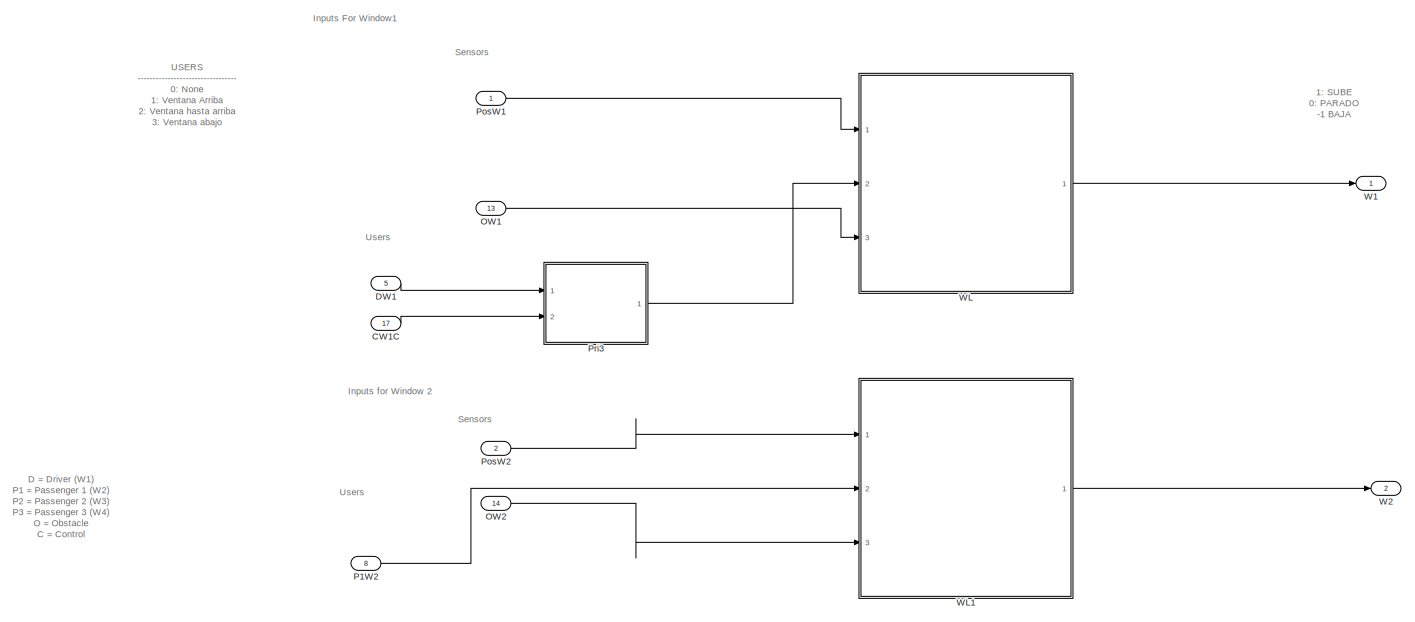
[diagram: M007/Cyber - part 1/2, full width, top band]
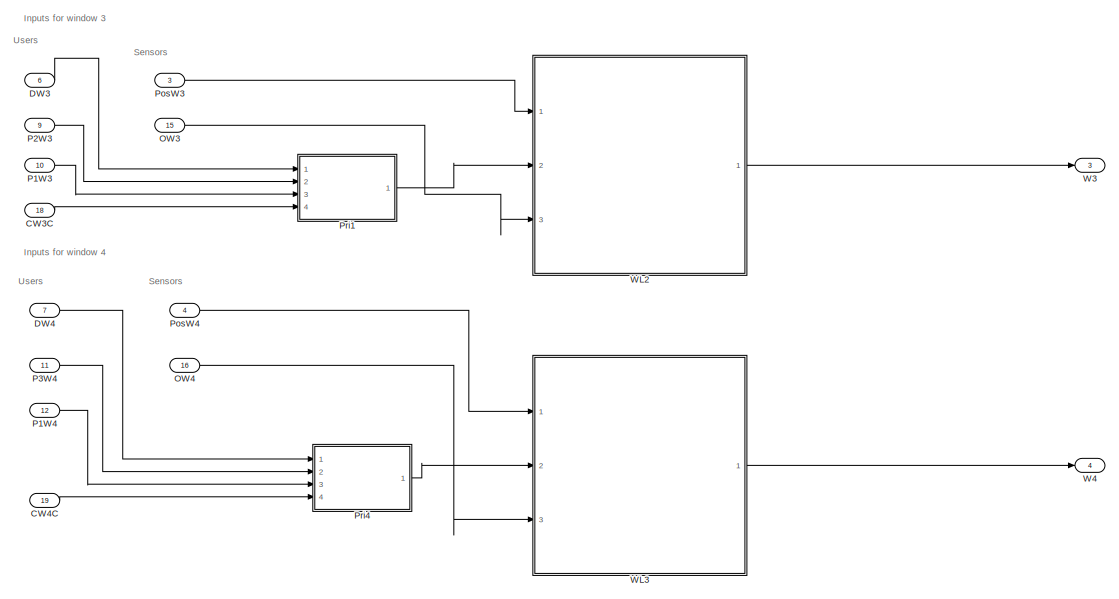
[diagram: M007/Cyber - part 2/2, full width, bottom band]
BLOCK [SubSystem] M007/Cyber
  Ports = [19, 4]
  RequestExecContextInheritance = off
BLOCK [Inport] M007/Cyber/CW1C
  IconDisplay = Port number
  Port = 17
BLOCK [Inport] M007/Cyber/CW3C
  IconDisplay = Port number
  Port = 18
BLOCK [Inport] M007/Cyber/CW4C
  IconDisplay = Port number
  Port = 19
BLOCK [Inport] M007/Cyber/DW1
  IconDisplay = Port number
  Port = 5
BLOCK [Inport] M007/Cyber/DW3
  IconDisplay = Port number
  Port = 6
BLOCK [Inport] M007/Cyber/DW4
  IconDisplay = Port number
  Port = 7
BLOCK [Inport] M007/Cyber/OW1
  IconDisplay = Port number
  Port = 13
BLOCK [Inport] M007/Cyber/OW2
  IconDisplay = Port number
  Port = 14
BLOCK [Inport] M007/Cyber/OW3
  IconDisplay = Port number
  Port = 15
BLOCK [Inport] M007/Cyber/OW4
  IconDisplay = Port number
  Port = 16
BLOCK [Inport] M007/Cyber/P1W2
  IconDisplay = Port number
  Port = 8
BLOCK [Inport] M007/Cyber/P1W3
  IconDisplay = Port number
  Port = 10
BLOCK [Inport] M007/Cyber/P1W4
  IconDisplay = Port number
  Port = 12
BLOCK [Inport] M007/Cyber/P2W3
  IconDisplay = Port number
  Port = 9
BLOCK [Inport] M007/Cyber/P3W4
  IconDisplay = Port number
  Port = 11
BLOCK [Inport] M007/Cyber/PosW1
  IconDisplay = Port number
BLOCK [Inport] M007/Cyber/PosW2
  IconDisplay = Port number
  Port = 2
BLOCK [Inport] M007/Cyber/PosW3
  IconDisplay = Port number
  Port = 3
BLOCK [Inport] M007/Cyber/PosW4
  IconDisplay = Port number
  Port = 4
BLOCK [SubSystem] M007/Cyber/Pri1
  Ports = [4, 1]
  RequestExecContextInheritance = off
BLOCK [Inport] M007/Cyber/Pri1/CW3C
  IconDisplay = Port number
  Port = 4
BLOCK [Inport] M007/Cyber/Pri1/D
  IconDisplay = Port number
BLOCK [Inport] M007/Cyber/Pri1/P
  IconDisplay = Port number
  Port = 2
BLOCK [Inport] M007/Cyber/Pri1/P1
  IconDisplay = Port number
  Port = 3
BLOCK [Switch] M007/Cyber/Pri1/Switch
  Criteria = u2 > Threshold
  InputSameDT = off
  SaturateOnIntegerOverflow = off
  Threshold = 4
BLOCK [Switch] M007/Cyber/Pri1/Switch1
  Criteria = u2 ~= 0
  InputSameDT = off
  SaturateOnIntegerOverflow = off
BLOCK [Switch] M007/Cyber/Pri1/Switch2
  Criteria = u2 ~= 0
  InputSameDT = off
  SaturateOnIntegerOverflow = off
BLOCK [Outport] M007/Cyber/Pri1/User
  IconDisplay = Port number
BLOCK [SubSystem] M007/Cyber/Pri3
  Ports = [2, 1]
  RequestExecContextInheritance = off
BLOCK [Inport] M007/Cyber/Pri3/CW1C
  IconDisplay = Port number
  Port = 2
BLOCK [Inport] M007/Cyber/Pri3/D
  IconDisplay = Port number
BLOCK [Switch] M007/Cyber/Pri3/Switch
  Criteria = u2 ~= 0
  InputSameDT = off
  SaturateOnIntegerOverflow = off
BLOCK [Outport] M007/Cyber/Pri3/User
  IconDisplay = Port number
BLOCK [SubSystem] M007/Cyber/Pri4
  Ports = [4, 1]
  RequestExecContextInheritance = off
BLOCK [Inport] M007/Cyber/Pri4/CW4C
  IconDisplay = Port number
  Port = 4
BLOCK [Inport] M007/Cyber/Pri4/D
  IconDisplay = Port number
BLOCK [Inport] M007/Cyber/Pri4/P
  IconDisplay = Port number
  Port = 2
BLOCK [Inport] M007/Cyber/Pri4/P1
  IconDisplay = Port number
  Port = 3
BLOCK [Switch] M007/Cyber/Pri4/Switch
  Criteria = u2 ~= 0
  InputSameDT = off
  SaturateOnIntegerOverflow = off
BLOCK [Switch] M007/Cyber/Pri4/Switch1
  Criteria = u2 ~= 0
  InputSameDT = off
  SaturateOnIntegerOverflow = off
BLOCK [Switch] M007/Cyber/Pri4/Switch2
  Criteria = u2 ~= 0
  InputSameDT = off
  SaturateOnIntegerOverflow = off
BLOCK [Outport] M007/Cyber/Pri4/User
  IconDisplay = Port number
BLOCK [Outport] M007/Cyber/W1
  IconDisplay = Port number
BLOCK [Outport] M007/Cyber/W2
  IconDisplay = Port number
  Port = 2
BLOCK [Outport] M007/Cyber/W3
  IconDisplay = Port number
  Port = 3
BLOCK [Outport] M007/Cyber/W4
  IconDisplay = Port number
  Port = 4
BLOCK [SubSystem] M007/Cyber/WL
  Ports = [3, 1]
  RequestExecContextInheritance = off
BLOCK [SubSystem] M007/Cyber/WL/Chart
  ErrorFcn = Stateflow.Translate.translate
  PermitHierarchicalResolution = ExplicitOnly
  Ports = [2, 1]
  RequestExecContextInheritance = off
  SFBlockType = Chart
  TreatAsAtomicUnit = on
BLOCK [Demux] M007/Cyber/WL/Chart/ Demux 
  Outputs = 1
  Ports = [1, 1]
BLOCK [S-Function] M007/Cyber/WL/Chart/ SFunction 
  EnableBusSupport = off
  FunctionName = sf_sfun
  PortCounts = [2 2]
  Ports = [2, 2]
  SFcnIsStateOwnerBlock = off
  SFunctionDeploymentMode = off
  Tag = Stateflow S-Function c00004M_harness 29
BLOCK [Terminator] M007/Cyber/WL/Chart/ Terminator 
BLOCK [Inport] M007/Cyber/WL/Chart/S
  IconDisplay = Port number
BLOCK [Inport] M007/Cyber/WL/Chart/UI
  IconDisplay = Port number
  Port = 2
BLOCK [Outport] M007/Cyber/WL/Chart/W
  IconDisplay = Port number
BLOCK [Constant] M007/Cyber/WL/Constant
  Value = -1
BLOCK [DataTypeConversion] M007/Cyber/WL/Data Type Conversion
  RndMeth = Floor
  SaturateOnIntegerOverflow = off
BLOCK [Inport] M007/Cyber/WL/OW
  IconDisplay = Port number
  Port = 3
BLOCK [Switch] M007/Cyber/WL/Switch
  Criteria = u2 ~= 0
  InputSameDT = off
  SaturateOnIntegerOverflow = off
  Threshold = 1
  ZeroCross = off
BLOCK [Inport] M007/Cyber/WL/User
  IconDisplay = Port number
  Port = 2
BLOCK [Inport] M007/Cyber/WL/WPos
  IconDisplay = Port number
BLOCK [Outport] M007/Cyber/WL/WindowLogicOutput
  IconDisplay = Port number
BLOCK [SubSystem] M007/Cyber/WL1
  Ports = [3, 1]
  RequestExecContextInheritance = off
BLOCK [SubSystem] M007/Cyber/WL1/Chart1
  ErrorFcn = Stateflow.Translate.translate
  PermitHierarchicalResolution = ExplicitOnly
  Ports = [2, 1]
  RequestExecContextInheritance = off
  SFBlockType = Chart
  TreatAsAtomicUnit = on
BLOCK [Demux] M007/Cyber/WL1/Chart1/ Demux 
  Outputs = 1
  Ports = [1, 1]
BLOCK [S-Function] M007/Cyber/WL1/Chart1/ SFunction 
  EnableBusSupport = off
  FunctionName = sf_sfun
  PortCounts = [2 2]
  Ports = [2, 2]
  SFcnIsStateOwnerBlock = off
  SFunctionDeploymentMode = off
  Tag = Stateflow S-Function c00004M_harness 30
BLOCK [Terminator] M007/Cyber/WL1/Chart1/ Terminator 
BLOCK [Inport] M007/Cyber/WL1/Chart1/S
  IconDisplay = Port number
BLOCK [Inport] M007/Cyber/WL1/Chart1/UI
  IconDisplay = Port number
  Port = 2
BLOCK [Outport] M007/Cyber/WL1/Chart1/W
  IconDisplay = Port number
BLOCK [Constant] M007/Cyber/WL1/Constant
  Value = -1
BLOCK [DataTypeConversion] M007/Cyber/WL1/Data Type Conversion
  RndMeth = Floor
  SaturateOnIntegerOverflow = off
BLOCK [Inport] M007/Cyber/WL1/OW
  IconDisplay = Port number
  Port = 3
BLOCK [Switch] M007/Cyber/WL1/Switch
  Criteria = u2 ~= 0
  InputSameDT = off
  SaturateOnIntegerOverflow = off
  Threshold = 1
  ZeroCross = off
BLOCK [Inport] M007/Cyber/WL1/User
  IconDisplay = Port number
  Port = 2
BLOCK [Inport] M007/Cyber/WL1/WPos
  IconDisplay = Port number
BLOCK [Outport] M007/Cyber/WL1/WindowLogicOutput
  IconDisplay = Port number
BLOCK [SubSystem] M007/Cyber/WL2
  Ports = [3, 1]
  RequestExecContextInheritance = off
BLOCK [SubSystem] M007/Cyber/WL2/Chart1
  ErrorFcn = Stateflow.Translate.translate
  PermitHierarchicalResolution = ExplicitOnly
  Ports = [3, 1]
  RequestExecContextInheritance = off
  SFBlockType = Chart
  TreatAsAtomicUnit = on
BLOCK [Demux] M007/Cyber/WL2/Chart1/ Demux 
  Outputs = 1
  Ports = [1, 1]
BLOCK [S-Function] M007/Cyber/WL2/Chart1/ SFunction 
  EnableBusSupport = off
  FunctionName = sf_sfun
  PortCounts = [3 2]
  Ports = [3, 2]
  SFcnIsStateOwnerBlock = off
  SFunctionDeploymentMode = off
  Tag = Stateflow S-Function c00004M_harness 31
BLOCK [Terminator] M007/Cyber/WL2/Chart1/ Terminator 
BLOCK [Inport] M007/Cyber/WL2/Chart1/PosMinW3
  IconDisplay = Port number
  Port = 3
BLOCK [Inport] M007/Cyber/WL2/Chart1/S
  IconDisplay = Port number
BLOCK [Inport] M007/Cyber/WL2/Chart1/UI
  IconDisplay = Port number
  Port = 2
BLOCK [Outport] M007/Cyber/WL2/Chart1/W
  IconDisplay = Port number
BLOCK [Constant] M007/Cyber/WL2/Constant
  Value = -1
BLOCK [Constant] M007/Cyber/WL2/Constant2
  Value = PosMinimaW3
BLOCK [DataTypeConversion] M007/Cyber/WL2/Data Type Conversion
  RndMeth = Floor
  SaturateOnIntegerOverflow = off
BLOCK [Inport] M007/Cyber/WL2/OW
  IconDisplay = Port number
  Port = 3
BLOCK [Switch] M007/Cyber/WL2/Switch
  Criteria = u2 ~= 0
  InputSameDT = off
  SaturateOnIntegerOverflow = off
  Threshold = 1
  ZeroCross = off
BLOCK [Inport] M007/Cyber/WL2/User
  IconDisplay = Port number
  Port = 2
BLOCK [Inport] M007/Cyber/WL2/WPos
  IconDisplay = Port number
BLOCK [Outport] M007/Cyber/WL2/WindowLogicOutput
  IconDisplay = Port number
BLOCK [SubSystem] M007/Cyber/WL3
  Ports = [3, 1]
  RequestExecContextInheritance = off
BLOCK [SubSystem] M007/Cyber/WL3/Chart2
  ErrorFcn = Stateflow.Translate.translate
  PermitHierarchicalResolution = ExplicitOnly
  Ports = [3, 1]
  RequestExecContextInheritance = off
  SFBlockType = Chart
  TreatAsAtomicUnit = on
BLOCK [Demux] M007/Cyber/WL3/Chart2/ Demux 
  Outputs = 1
  Ports = [1, 1]
BLOCK [S-Function] M007/Cyber/WL3/Chart2/ SFunction 
  EnableBusSupport = off
  FunctionName = sf_sfun
  PortCounts = [3 2]
  Ports = [3, 2]
  SFcnIsStateOwnerBlock = off
  SFunctionDeploymentMode = off
  Tag = Stateflow S-Function c00004M_harness 32
BLOCK [Terminator] M007/Cyber/WL3/Chart2/ Terminator 
BLOCK [Inport] M007/Cyber/WL3/Chart2/PosMinW4
  IconDisplay = Port number
  Port = 3
BLOCK [Inport] M007/Cyber/WL3/Chart2/S
  IconDisplay = Port number
BLOCK [Inport] M007/Cyber/WL3/Chart2/UI
  IconDisplay = Port number
  Port = 2
BLOCK [Outport] M007/Cyber/WL3/Chart2/W
  IconDisplay = Port number
BLOCK [Constant] M007/Cyber/WL3/Constant
  Value = -1
BLOCK [Constant] M007/Cyber/WL3/Constant2
  Value = PosMinimaW4
BLOCK [DataTypeConversion] M007/Cyber/WL3/Data Type Conversion
  RndMeth = Floor
  SaturateOnIntegerOverflow = off
BLOCK [Inport] M007/Cyber/WL3/OW
  IconDisplay = Port number
  Port = 3
BLOCK [Switch] M007/Cyber/WL3/Switch
  Criteria = u2 ~= 0
  InputSameDT = off
  SaturateOnIntegerOverflow = off
  Threshold = 1
  ZeroCross = off
BLOCK [Inport] M007/Cyber/WL3/User
  IconDisplay = Port number
  Port = 2
BLOCK [Inport] M007/Cyber/WL3/WPos
  IconDisplay = Port number
BLOCK [Outport] M007/Cyber/WL3/WindowLogicOutput
  IconDisplay = Port number
BLOCK [Inport] M007/DW1
  IconDisplay = Port number
  OutDataTypeStr = int8
  OutMax = 4
  OutMin = 0
BLOCK [Inport] M007/DW3
  IconDisplay = Port number
  OutDataTypeStr = int8
  OutMax = 4
  OutMin = 0
  Port = 2
BLOCK [Inport] M007/DW4
  IconDisplay = Port number
  OutDataTypeStr = int8
  OutMax = 4
  OutMin = 0
  Port = 3
BLOCK [Memory] M007/M
BLOCK [Memory] M007/M1
BLOCK [Memory] M007/M2
BLOCK [Memory] M007/M3
BLOCK [Inport] M007/O1
  IconDisplay = Port number
  OutDataTypeStr = boolean
  Port = 9
BLOCK [Inport] M007/O2
  IconDisplay = Port number
  OutDataTypeStr = boolean
  Port = 10
BLOCK [Inport] M007/O3
  IconDisplay = Port number
  OutDataTypeStr = boolean
  Port = 11
BLOCK [Inport] M007/O4
  IconDisplay = Port number
  OutDataTypeStr = boolean
  Port = 12
BLOCK [Inport] M007/P1W2
  IconDisplay = Port number
  OutDataTypeStr = int8
  OutMax = 4
  OutMin = 0
  Port = 4
BLOCK [Inport] M007/P1W3
  IconDisplay = Port number
  OutDataTypeStr = int8
  OutMax = 4
  OutMin = 0
  Port = 6
BLOCK [Inport] M007/P1W4
  IconDisplay = Port number
  OutDataTypeStr = int8
  OutMax = 4
  OutMin = 0
  Port = 8
BLOCK [Inport] M007/P2W3
  IconDisplay = Port number
  OutDataTypeStr = int8
  OutMax = 4
  OutMin = 0
  Port = 5
BLOCK [Inport] M007/P3W4
  IconDisplay = Port number
  OutDataTypeStr = int8
  OutMax = 4
  OutMin = 0
  Port = 7
BLOCK [SubSystem] M007/Physical
  Ports = [4, 4]
  RequestExecContextInheritance = off
BLOCK [Inport] M007/Physical/InW1
  IconDisplay = Port number
BLOCK [Inport] M007/Physical/InW2
  IconDisplay = Port number
  Port = 2
BLOCK [Inport] M007/Physical/InW3
  IconDisplay = Port number
  Port = 3
BLOCK [Inport] M007/Physical/InW4
  IconDisplay = Port number
  Port = 4
BLOCK [SubSystem] M007/Physical/W
  Ports = [1, 1]
  RequestExecContextInheritance = off
BLOCK [SubSystem] M007/Physical/W/DC_Engine
  Ports = [1, 1]
  RequestExecContextInheritance = off
BLOCK [Gain] M007/Physical/W/DC_Engine/(Inductance)
  Gain = 1/L
  OutDataTypeStr = Inherit: Inherit via internal rule
  ParamDataTypeStr = Inherit: Inherit via internal rule
  SaturateOnIntegerOverflow = off
BLOCK [Gain] M007/Physical/W/DC_Engine/(Inductance)1
  Gain = 1/J
  OutDataTypeStr = Inherit: Inherit via internal rule
  ParamDataTypeStr = Inherit: Inherit via internal rule
  SaturateOnIntegerOverflow = off
BLOCK [Sum] M007/Physical/W/DC_Engine/Add
  InputSameDT = off
  Inputs = -+-
  OutDataTypeStr = Inherit: Inherit via internal rule
  Ports = [3, 1]
  SaturateOnIntegerOverflow = off
BLOCK [Sum] M007/Physical/W/DC_Engine/Add1
  InputSameDT = off
  Inputs = +-
  OutDataTypeStr = Inherit: Inherit via internal rule
  Ports = [2, 1]
  SaturateOnIntegerOverflow = off
BLOCK [Gain] M007/Physical/W/DC_Engine/Damping
  Gain = b
  OutDataTypeStr = Inherit: Inherit via internal rule
  ParamDataTypeStr = Inherit: Inherit via internal rule
  SaturateOnIntegerOverflow = off
BLOCK [DiscreteIntegrator] M007/Physical/W/DC_Engine/Discrete-Time Integrator
  ICPrevOutput = DiscIntNeverNeededParam
  ICPrevScaledInput = DiscIntNeverNeededParam
  Ports = [1, 1]
  SampleTime = -1
BLOCK [DiscreteIntegrator] M007/Physical/W/DC_Engine/Discrete-Time Integrator1
  ICPrevOutput = DiscIntNeverNeededParam
  ICPrevScaledInput = DiscIntNeverNeededParam
  Ports = [1, 1]
  SampleTime = -1
BLOCK [Gain] M007/Physical/W/DC_Engine/Ke
  Gain = K
  OutDataTypeStr = Inherit: Inherit via internal rule
  ParamDataTypeStr = Inherit: Inherit via internal rule
  SaturateOnIntegerOverflow = off
BLOCK [Gain] M007/Physical/W/DC_Engine/Kt
  Gain = K
  OutDataTypeStr = Inherit: Inherit via internal rule
  ParamDataTypeStr = Inherit: Inherit via internal rule
  SaturateOnIntegerOverflow = off
BLOCK [Gain] M007/Physical/W/DC_Engine/Resistance
  Gain = R
  OutDataTypeStr = Inherit: Inherit via internal rule
  ParamDataTypeStr = Inherit: Inherit via internal rule
  SaturateOnIntegerOverflow = off
BLOCK [Outport] M007/Physical/W/DC_Engine/Speed
  IconDisplay = Port number
BLOCK [Gain] M007/Physical/W/DC_Engine/Voltage
  Gain = 10
  OutDataTypeStr = Inherit: Inherit via internal rule
  ParamDataTypeStr = Inherit: Inherit via internal rule
  SaturateOnIntegerOverflow = off
BLOCK [Inport] M007/Physical/W/DC_Engine/input
  IconDisplay = Port number
BLOCK [DiscreteIntegrator] M007/Physical/W/Discrete-Time Integrator
  ICPrevOutput = DiscIntNeverNeededParam
  ICPrevScaledInput = DiscIntNeverNeededParam
  InitialCondition = 5
  LimitOutput = on
  LowerSaturationLimit = 0
  Ports = [1, 1]
  SampleTime = -1
  UpperSaturationLimit = 5
BLOCK [Inport] M007/Physical/W/WIn
  IconDisplay = Port number
BLOCK [Outport] M007/Physical/W/WPos
  IconDisplay = Port number
BLOCK [Outport] M007/Physical/W1
  IconDisplay = Port number
BLOCK [Outport] M007/Physical/W2
  IconDisplay = Port number
  Port = 2
BLOCK [Outport] M007/Physical/W3
  IconDisplay = Port number
  Port = 3
BLOCK [Outport] M007/Physical/W4
  IconDisplay = Port number
  Port = 4
BLOCK [SubSystem] M007/Physical/W5
  Ports = [1, 1]
  RequestExecContextInheritance = off
BLOCK [SubSystem] M007/Physical/W5/DC_Engine
  Ports = [1, 1]
  RequestExecContextInheritance = off
BLOCK [Gain] M007/Physical/W5/DC_Engine/(Inductance)
  Gain = 1/L
  OutDataTypeStr = Inherit: Inherit via internal rule
  ParamDataTypeStr = Inherit: Inherit via internal rule
  SaturateOnIntegerOverflow = off
BLOCK [Gain] M007/Physical/W5/DC_Engine/(Inductance)1
  Gain = 1/J
  OutDataTypeStr = Inherit: Inherit via internal rule
  ParamDataTypeStr = Inherit: Inherit via internal rule
  SaturateOnIntegerOverflow = off
BLOCK [Sum] M007/Physical/W5/DC_Engine/Add
  InputSameDT = off
  Inputs = -+-
  OutDataTypeStr = Inherit: Inherit via internal rule
  Ports = [3, 1]
  SaturateOnIntegerOverflow = off
BLOCK [Sum] M007/Physical/W5/DC_Engine/Add1
  InputSameDT = off
  Inputs = +-
  OutDataTypeStr = Inherit: Inherit via internal rule
  Ports = [2, 1]
  SaturateOnIntegerOverflow = off
BLOCK [Gain] M007/Physical/W5/DC_Engine/Damping
  Gain = b
  OutDataTypeStr = Inherit: Inherit via internal rule
  ParamDataTypeStr = Inherit: Inherit via internal rule
  SaturateOnIntegerOverflow = off
BLOCK [DiscreteIntegrator] M007/Physical/W5/DC_Engine/Discrete-Time Integrator
  ICPrevOutput = DiscIntNeverNeededParam
  ICPrevScaledInput = DiscIntNeverNeededParam
  Ports = [1, 1]
  SampleTime = -1
BLOCK [DiscreteIntegrator] M007/Physical/W5/DC_Engine/Discrete-Time Integrator1
  ICPrevOutput = DiscIntNeverNeededParam
  ICPrevScaledInput = DiscIntNeverNeededParam
  Ports = [1, 1]
  SampleTime = -1
BLOCK [Gain] M007/Physical/W5/DC_Engine/Ke
  Gain = K
  OutDataTypeStr = Inherit: Inherit via internal rule
  ParamDataTypeStr = Inherit: Inherit via internal rule
  SaturateOnIntegerOverflow = off
BLOCK [Gain] M007/Physical/W5/DC_Engine/Kt
  Gain = K
  OutDataTypeStr = Inherit: Inherit via internal rule
  ParamDataTypeStr = Inherit: Inherit via internal rule
  SaturateOnIntegerOverflow = off
BLOCK [Gain] M007/Physical/W5/DC_Engine/Resistance
  Gain = R
  OutDataTypeStr = Inherit: Inherit via internal rule
  ParamDataTypeStr = Inherit: Inherit via internal rule
  SaturateOnIntegerOverflow = off
BLOCK [Outport] M007/Physical/W5/DC_Engine/Speed
  IconDisplay = Port number
BLOCK [Gain] M007/Physical/W5/DC_Engine/Voltage
  Gain = 10
  OutDataTypeStr = Inherit: Inherit via internal rule
  ParamDataTypeStr = Inherit: Inherit via internal rule
  SaturateOnIntegerOverflow = off
BLOCK [Inport] M007/Physical/W5/DC_Engine/input
  IconDisplay = Port number
BLOCK [DiscreteIntegrator] M007/Physical/W5/Discrete-Time Integrator
  ICPrevOutput = DiscIntNeverNeededParam
  ICPrevScaledInput = DiscIntNeverNeededParam
  InitialCondition = 5
  LimitOutput = on
  LowerSaturationLimit = 0
  Ports = [1, 1]
  SampleTime = -1
  UpperSaturationLimit = 5
BLOCK [Inport] M007/Physical/W5/WIn
  IconDisplay = Port number
BLOCK [Outport] M007/Physical/W5/WPos
  IconDisplay = Port number
BLOCK [SubSystem] M007/Physical/W6
  Ports = [1, 1]
  RequestExecContextInheritance = off
BLOCK [SubSystem] M007/Physical/W6/DC_Engine
  Ports = [1, 1]
  RequestExecContextInheritance = off
BLOCK [Gain] M007/Physical/W6/DC_Engine/(Inductance)
  Gain = 1/L
  OutDataTypeStr = Inherit: Inherit via internal rule
  ParamDataTypeStr = Inherit: Inherit via internal rule
  SaturateOnIntegerOverflow = off
BLOCK [Gain] M007/Physical/W6/DC_Engine/(Inductance)1
  Gain = 1/J
  OutDataTypeStr = Inherit: Inherit via internal rule
  ParamDataTypeStr = Inherit: Inherit via internal rule
  SaturateOnIntegerOverflow = off
BLOCK [Sum] M007/Physical/W6/DC_Engine/Add
  InputSameDT = off
  Inputs = -+-
  OutDataTypeStr = Inherit: Inherit via internal rule
  Ports = [3, 1]
  SaturateOnIntegerOverflow = off
BLOCK [Sum] M007/Physical/W6/DC_Engine/Add1
  InputSameDT = off
  Inputs = +-
  OutDataTypeStr = Inherit: Inherit via internal rule
  Ports = [2, 1]
  SaturateOnIntegerOverflow = off
BLOCK [Gain] M007/Physical/W6/DC_Engine/Damping
  Gain = b
  OutDataTypeStr = Inherit: Inherit via internal rule
  ParamDataTypeStr = Inherit: Inherit via internal rule
  SaturateOnIntegerOverflow = off
BLOCK [DiscreteIntegrator] M007/Physical/W6/DC_Engine/Discrete-Time Integrator
  ICPrevOutput = DiscIntNeverNeededParam
  ICPrevScaledInput = DiscIntNeverNeededParam
  Ports = [1, 1]
  SampleTime = -1
BLOCK [DiscreteIntegrator] M007/Physical/W6/DC_Engine/Discrete-Time Integrator1
  ICPrevOutput = DiscIntNeverNeededParam
  ICPrevScaledInput = DiscIntNeverNeededParam
  Ports = [1, 1]
  SampleTime = -1
BLOCK [Gain] M007/Physical/W6/DC_Engine/Ke
  Gain = K
  OutDataTypeStr = Inherit: Inherit via internal rule
  ParamDataTypeStr = Inherit: Inherit via internal rule
  SaturateOnIntegerOverflow = off
BLOCK [Gain] M007/Physical/W6/DC_Engine/Kt
  Gain = K
  OutDataTypeStr = Inherit: Inherit via internal rule
  ParamDataTypeStr = Inherit: Inherit via internal rule
  SaturateOnIntegerOverflow = off
BLOCK [Gain] M007/Physical/W6/DC_Engine/Resistance
  Gain = R
  OutDataTypeStr = Inherit: Inherit via internal rule
  ParamDataTypeStr = Inherit: Inherit via internal rule
  SaturateOnIntegerOverflow = off
BLOCK [Outport] M007/Physical/W6/DC_Engine/Speed
  IconDisplay = Port number
BLOCK [Gain] M007/Physical/W6/DC_Engine/Voltage
  Gain = 10
  OutDataTypeStr = Inherit: Inherit via internal rule
  ParamDataTypeStr = Inherit: Inherit via internal rule
  SaturateOnIntegerOverflow = off
BLOCK [Inport] M007/Physical/W6/DC_Engine/input
  IconDisplay = Port number
BLOCK [DiscreteIntegrator] M007/Physical/W6/Discrete-Time Integrator
  ICPrevOutput = DiscIntNeverNeededParam
  ICPrevScaledInput = DiscIntNeverNeededParam
  InitialCondition = 5
  LimitOutput = on
  LowerSaturationLimit = PosMinimaW3
  Ports = [1, 1]
  SampleTime = -1
  UpperSaturationLimit = 5
BLOCK [Inport] M007/Physical/W6/WIn
  IconDisplay = Port number
BLOCK [Outport] M007/Physical/W6/WPos
  IconDisplay = Port number
BLOCK [SubSystem] M007/Physical/W7
  Ports = [1, 1]
  RequestExecContextInheritance = off
BLOCK [SubSystem] M007/Physical/W7/DC_Engine
  Ports = [1, 1]
  RequestExecContextInheritance = off
BLOCK [Gain] M007/Physical/W7/DC_Engine/(Inductance)
  Gain = 1/L
  OutDataTypeStr = Inherit: Inherit via internal rule
  ParamDataTypeStr = Inherit: Inherit via internal rule
  SaturateOnIntegerOverflow = off
BLOCK [Gain] M007/Physical/W7/DC_Engine/(Inductance)1
  Gain = 1/J
  OutDataTypeStr = Inherit: Inherit via internal rule
  ParamDataTypeStr = Inherit: Inherit via internal rule
  SaturateOnIntegerOverflow = off
BLOCK [Sum] M007/Physical/W7/DC_Engine/Add
  InputSameDT = off
  Inputs = -+-
  OutDataTypeStr = Inherit: Inherit via internal rule
  Ports = [3, 1]
  SaturateOnIntegerOverflow = off
BLOCK [Sum] M007/Physical/W7/DC_Engine/Add1
  InputSameDT = off
  Inputs = +-
  OutDataTypeStr = Inherit: Inherit via internal rule
  Ports = [2, 1]
  SaturateOnIntegerOverflow = off
BLOCK [Gain] M007/Physical/W7/DC_Engine/Damping
  Gain = b
  OutDataTypeStr = Inherit: Inherit via internal rule
  ParamDataTypeStr = Inherit: Inherit via internal rule
  SaturateOnIntegerOverflow = off
BLOCK [DiscreteIntegrator] M007/Physical/W7/DC_Engine/Discrete-Time Integrator
  ICPrevOutput = DiscIntNeverNeededParam
  ICPrevScaledInput = DiscIntNeverNeededParam
  Ports = [1, 1]
  SampleTime = -1
BLOCK [DiscreteIntegrator] M007/Physical/W7/DC_Engine/Discrete-Time Integrator1
  ICPrevOutput = DiscIntNeverNeededParam
  ICPrevScaledInput = DiscIntNeverNeededParam
  Ports = [1, 1]
  SampleTime = -1
BLOCK [Gain] M007/Physical/W7/DC_Engine/Ke
  Gain = K
  OutDataTypeStr = Inherit: Inherit via internal rule
  ParamDataTypeStr = Inherit: Inherit via internal rule
  SaturateOnIntegerOverflow = off
BLOCK [Gain] M007/Physical/W7/DC_Engine/Kt
  Gain = K
  OutDataTypeStr = Inherit: Inherit via internal rule
  ParamDataTypeStr = Inherit: Inherit via internal rule
  SaturateOnIntegerOverflow = off
BLOCK [Gain] M007/Physical/W7/DC_Engine/Resistance
  Gain = R
  OutDataTypeStr = Inherit: Inherit via internal rule
  ParamDataTypeStr = Inherit: Inherit via internal rule
  SaturateOnIntegerOverflow = off
BLOCK [Outport] M007/Physical/W7/DC_Engine/Speed
  IconDisplay = Port number
BLOCK [Gain] M007/Physical/W7/DC_Engine/Voltage
  Gain = 10
  OutDataTypeStr = Inherit: Inherit via internal rule
  ParamDataTypeStr = Inherit: Inherit via internal rule
  SaturateOnIntegerOverflow = off
BLOCK [Inport] M007/Physical/W7/DC_Engine/input
  IconDisplay = Port number
BLOCK [DiscreteIntegrator] M007/Physical/W7/Discrete-Time Integrator
  ICPrevOutput = DiscIntNeverNeededParam
  ICPrevScaledInput = DiscIntNeverNeededParam
  InitialCondition = 5
  LimitOutput = on
  LowerSaturationLimit = PosMinimaW4
  Ports = [1, 1]
  SampleTime = -1
  UpperSaturationLimit = 5
BLOCK [Inport] M007/Physical/W7/WIn
  IconDisplay = Port number
BLOCK [Outport] M007/Physical/W7/WPos
  IconDisplay = Port number
BLOCK [SubSystem] M007/S1
  Ports = [1, 1]
  RequestExecContextInheritance = off
BLOCK [Inport] M007/S1/PhyMeasure
  IconDisplay = Port number
BLOCK [Outport] M007/S1/SensorOut
  IconDisplay = Port number
BLOCK [SubSystem] M007/S2
  Ports = [1, 1]
  RequestExecContextInheritance = off
BLOCK [Inport] M007/S2/PhyMeasure
  IconDisplay = Port number
BLOCK [Outport] M007/S2/SensorOut
  IconDisplay = Port number
BLOCK [SubSystem] M007/S3
  Ports = [1, 1]
  RequestExecContextInheritance = off
BLOCK [Inport] M007/S3/PhyMeasure
  IconDisplay = Port number
BLOCK [Outport] M007/S3/SensorOut
  IconDisplay = Port number
BLOCK [SubSystem] M007/S4
  Ports = [1, 1]
  RequestExecContextInheritance = off
BLOCK [Inport] M007/S4/PhyMeasure
  IconDisplay = Port number
BLOCK [Outport] M007/S4/SensorOut
  IconDisplay = Port number
BLOCK [Outport] M007/W1Pos
  IconDisplay = Port number
BLOCK [Outport] M007/W2Pos
  IconDisplay = Port number
  Port = 2
BLOCK [Outport] M007/W3Pos
  IconDisplay = Port number
  Port = 3
BLOCK [Outport] M007/W4Pos
  IconDisplay = Port number
  Port = 4
BLOCK [SubSystem] M010
  Ports = [15, 4]
  RequestExecContextInheritance = off
BLOCK [Inport] M010/CW1C
  IconDisplay = Port number
  OutDataTypeStr = int8
  OutMax = 4
  OutMin = 0
  Port = 13
BLOCK [Inport] M010/CW3C
  IconDisplay = Port number
  OutDataTypeStr = int8
  OutMax = 4
  OutMin = 0
  Port = 14
BLOCK [Inport] M010/CW4C
  IconDisplay = Port number
  OutDataTypeStr = int8
  OutMax = 4
  OutMin = 0
  Port = 15
BLOCK [SubSystem] M010/Cyber
  Ports = [19, 4]
  RequestExecContextInheritance = off
BLOCK [Inport] M010/Cyber/CW1C
  IconDisplay = Port number
  Port = 17
BLOCK [Inport] M010/Cyber/CW3C
  IconDisplay = Port number
  Port = 18
BLOCK [Inport] M010/Cyber/CW4C
  IconDisplay = Port number
  Port = 19
BLOCK [Inport] M010/Cyber/DW1
  IconDisplay = Port number
  Port = 5
BLOCK [Inport] M010/Cyber/DW3
  IconDisplay = Port number
  Port = 6
BLOCK [Inport] M010/Cyber/DW4
  IconDisplay = Port number
  Port = 7
BLOCK [Inport] M010/Cyber/OW1
  IconDisplay = Port number
  Port = 13
BLOCK [Inport] M010/Cyber/OW2
  IconDisplay = Port number
  Port = 14
BLOCK [Inport] M010/Cyber/OW3
  IconDisplay = Port number
  Port = 15
BLOCK [Inport] M010/Cyber/OW4
  IconDisplay = Port number
  Port = 16
BLOCK [Inport] M010/Cyber/P1W2
  IconDisplay = Port number
  Port = 8
BLOCK [Inport] M010/Cyber/P1W3
  IconDisplay = Port number
  Port = 10
BLOCK [Inport] M010/Cyber/P1W4
  IconDisplay = Port number
  Port = 12
BLOCK [Inport] M010/Cyber/P2W3
  IconDisplay = Port number
  Port = 9
BLOCK [Inport] M010/Cyber/P3W4
  IconDisplay = Port number
  Port = 11
BLOCK [Inport] M010/Cyber/PosW1
  IconDisplay = Port number
BLOCK [Inport] M010/Cyber/PosW2
  IconDisplay = Port number
  Port = 2
BLOCK [Inport] M010/Cyber/PosW3
  IconDisplay = Port number
  Port = 3
BLOCK [Inport] M010/Cyber/PosW4
  IconDisplay = Port number
  Port = 4
BLOCK [SubSystem] M010/Cyber/Pri1
  Ports = [4, 1]
  RequestExecContextInheritance = off
BLOCK [Inport] M010/Cyber/Pri1/CW3C
  IconDisplay = Port number
  Port = 4
BLOCK [Inport] M010/Cyber/Pri1/D
  IconDisplay = Port number
BLOCK [Inport] M010/Cyber/Pri1/P
  IconDisplay = Port number
  Port = 2
BLOCK [Inport] M010/Cyber/Pri1/P1
  IconDisplay = Port number
  Port = 3
BLOCK [Switch] M010/Cyber/Pri1/Switch
  Criteria = u2 ~= 0
  InputSameDT = off
  SaturateOnIntegerOverflow = off
BLOCK [Switch] M010/Cyber/Pri1/Switch1
  Criteria = u2 > Threshold
  InputSameDT = off
  SaturateOnIntegerOverflow = off
  Threshold = 4
BLOCK [Switch] M010/Cyber/Pri1/Switch2
  Criteria = u2 ~= 0
  InputSameDT = off
  SaturateOnIntegerOverflow = off
BLOCK [Outport] M010/Cyber/Pri1/User
  IconDisplay = Port number
BLOCK [SubSystem] M010/Cyber/Pri3
  Ports = [2, 1]
  RequestExecContextInheritance = off
BLOCK [Inport] M010/Cyber/Pri3/CW1C
  IconDisplay = Port number
  Port = 2
BLOCK [Inport] M010/Cyber/Pri3/D
  IconDisplay = Port number
BLOCK [Switch] M010/Cyber/Pri3/Switch
  Criteria = u2 ~= 0
  InputSameDT = off
  SaturateOnIntegerOverflow = off
BLOCK [Outport] M010/Cyber/Pri3/User
  IconDisplay = Port number
BLOCK [SubSystem] M010/Cyber/Pri4
  Ports = [4, 1]
  RequestExecContextInheritance = off
BLOCK [Inport] M010/Cyber/Pri4/CW4C
  IconDisplay = Port number
  Port = 4
BLOCK [Inport] M010/Cyber/Pri4/D
  IconDisplay = Port number
BLOCK [Inport] M010/Cyber/Pri4/P
  IconDisplay = Port number
  Port = 2
BLOCK [Inport] M010/Cyber/Pri4/P1
  IconDisplay = Port number
  Port = 3
BLOCK [Switch] M010/Cyber/Pri4/Switch
  Criteria = u2 ~= 0
  InputSameDT = off
  SaturateOnIntegerOverflow = off
BLOCK [Switch] M010/Cyber/Pri4/Switch1
  Criteria = u2 ~= 0
  InputSameDT = off
  SaturateOnIntegerOverflow = off
BLOCK [Switch] M010/Cyber/Pri4/Switch2
  Criteria = u2 ~= 0
  InputSameDT = off
  SaturateOnIntegerOverflow = off
BLOCK [Outport] M010/Cyber/Pri4/User
  IconDisplay = Port number
BLOCK [Outport] M010/Cyber/W1
  IconDisplay = Port number
BLOCK [Outport] M010/Cyber/W2
  IconDisplay = Port number
  Port = 2
BLOCK [Outport] M010/Cyber/W3
  IconDisplay = Port number
  Port = 3
BLOCK [Outport] M010/Cyber/W4
  IconDisplay = Port number
  Port = 4
BLOCK [SubSystem] M010/Cyber/WL
  Ports = [3, 1]
  RequestExecContextInheritance = off
BLOCK [SubSystem] M010/Cyber/WL/Chart
  ErrorFcn = Stateflow.Translate.translate
  PermitHierarchicalResolution = ExplicitOnly
  Ports = [2, 1]
  RequestExecContextInheritance = off
  SFBlockType = Chart
  TreatAsAtomicUnit = on
BLOCK [Demux] M010/Cyber/WL/Chart/ Demux 
  Outputs = 1
  Ports = [1, 1]
BLOCK [S-Function] M010/Cyber/WL/Chart/ SFunction 
  EnableBusSupport = off
  FunctionName = sf_sfun
  PortCounts = [2 2]
  Ports = [2, 2]
  SFcnIsStateOwnerBlock = off
  SFunctionDeploymentMode = off
  Tag = Stateflow S-Function c00004M_harness 41
BLOCK [Terminator] M010/Cyber/WL/Chart/ Terminator 
BLOCK [Inport] M010/Cyber/WL/Chart/S
  IconDisplay = Port number
BLOCK [Inport] M010/Cyber/WL/Chart/UI
  IconDisplay = Port number
  Port = 2
BLOCK [Outport] M010/Cyber/WL/Chart/W
  IconDisplay = Port number
BLOCK [Constant] M010/Cyber/WL/Constant
  Value = -1
BLOCK [DataTypeConversion] M010/Cyber/WL/Data Type Conversion
  RndMeth = Floor
  SaturateOnIntegerOverflow = off
BLOCK [Inport] M010/Cyber/WL/OW
  IconDisplay = Port number
  Port = 3
BLOCK [Switch] M010/Cyber/WL/Switch
  Criteria = u2 ~= 0
  InputSameDT = off
  SaturateOnIntegerOverflow = off
  Threshold = 1
  ZeroCross = off
BLOCK [Inport] M010/Cyber/WL/User
  IconDisplay = Port number
  Port = 2
BLOCK [Inport] M010/Cyber/WL/WPos
  IconDisplay = Port number
BLOCK [Outport] M010/Cyber/WL/WindowLogicOutput
  IconDisplay = Port number
BLOCK [SubSystem] M010/Cyber/WL1
  Ports = [3, 1]
  RequestExecContextInheritance = off
BLOCK [SubSystem] M010/Cyber/WL1/Chart1
  ErrorFcn = Stateflow.Translate.translate
  PermitHierarchicalResolution = ExplicitOnly
  Ports = [2, 1]
  RequestExecContextInheritance = off
  SFBlockType = Chart
  TreatAsAtomicUnit = on
BLOCK [Demux] M010/Cyber/WL1/Chart1/ Demux 
  Outputs = 1
  Ports = [1, 1]
BLOCK [S-Function] M010/Cyber/WL1/Chart1/ SFunction 
  EnableBusSupport = off
  FunctionName = sf_sfun
  PortCounts = [2 2]
  Ports = [2, 2]
  SFcnIsStateOwnerBlock = off
  SFunctionDeploymentMode = off
  Tag = Stateflow S-Function c00004M_harness 42
BLOCK [Terminator] M010/Cyber/WL1/Chart1/ Terminator 
BLOCK [Inport] M010/Cyber/WL1/Chart1/S
  IconDisplay = Port number
BLOCK [Inport] M010/Cyber/WL1/Chart1/UI
  IconDisplay = Port number
  Port = 2
BLOCK [Outport] M010/Cyber/WL1/Chart1/W
  IconDisplay = Port number
BLOCK [Constant] M010/Cyber/WL1/Constant
  Value = -1
BLOCK [DataTypeConversion] M010/Cyber/WL1/Data Type Conversion
  RndMeth = Floor
  SaturateOnIntegerOverflow = off
BLOCK [Inport] M010/Cyber/WL1/OW
  IconDisplay = Port number
  Port = 3
BLOCK [Switch] M010/Cyber/WL1/Switch
  Criteria = u2 ~= 0
  InputSameDT = off
  SaturateOnIntegerOverflow = off
  Threshold = 1
  ZeroCross = off
BLOCK [Inport] M010/Cyber/WL1/User
  IconDisplay = Port number
  Port = 2
BLOCK [Inport] M010/Cyber/WL1/WPos
  IconDisplay = Port number
BLOCK [Outport] M010/Cyber/WL1/WindowLogicOutput
  IconDisplay = Port number
BLOCK [SubSystem] M010/Cyber/WL2
  Ports = [3, 1]
  RequestExecContextInheritance = off
BLOCK [SubSystem] M010/Cyber/WL2/Chart1
  ErrorFcn = Stateflow.Translate.translate
  PermitHierarchicalResolution = ExplicitOnly
  Ports = [3, 1]
  RequestExecContextInheritance = off
  SFBlockType = Chart
  TreatAsAtomicUnit = on
BLOCK [Demux] M010/Cyber/WL2/Chart1/ Demux 
  Outputs = 1
  Ports = [1, 1]
BLOCK [S-Function] M010/Cyber/WL2/Chart1/ SFunction 
  EnableBusSupport = off
  FunctionName = sf_sfun
  PortCounts = [3 2]
  Ports = [3, 2]
  SFcnIsStateOwnerBlock = off
  SFunctionDeploymentMode = off
  Tag = Stateflow S-Function c00004M_harness 43
BLOCK [Terminator] M010/Cyber/WL2/Chart1/ Terminator 
BLOCK [Inport] M010/Cyber/WL2/Chart1/PosMinW3
  IconDisplay = Port number
  Port = 3
BLOCK [Inport] M010/Cyber/WL2/Chart1/S
  IconDisplay = Port number
BLOCK [Inport] M010/Cyber/WL2/Chart1/UI
  IconDisplay = Port number
  Port = 2
BLOCK [Outport] M010/Cyber/WL2/Chart1/W
  IconDisplay = Port number
BLOCK [Constant] M010/Cyber/WL2/Constant
  Value = -1
BLOCK [Constant] M010/Cyber/WL2/Constant2
  Value = PosMinimaW3
BLOCK [DataTypeConversion] M010/Cyber/WL2/Data Type Conversion
  RndMeth = Floor
  SaturateOnIntegerOverflow = off
BLOCK [Inport] M010/Cyber/WL2/OW
  IconDisplay = Port number
  Port = 3
BLOCK [Switch] M010/Cyber/WL2/Switch
  Criteria = u2 ~= 0
  InputSameDT = off
  SaturateOnIntegerOverflow = off
  Threshold = 1
  ZeroCross = off
BLOCK [Inport] M010/Cyber/WL2/User
  IconDisplay = Port number
  Port = 2
BLOCK [Inport] M010/Cyber/WL2/WPos
  IconDisplay = Port number
BLOCK [Outport] M010/Cyber/WL2/WindowLogicOutput
  IconDisplay = Port number
BLOCK [SubSystem] M010/Cyber/WL3
  Ports = [3, 1]
  RequestExecContextInheritance = off
BLOCK [SubSystem] M010/Cyber/WL3/Chart2
  ErrorFcn = Stateflow.Translate.translate
  PermitHierarchicalResolution = ExplicitOnly
  Ports = [3, 1]
  RequestExecContextInheritance = off
  SFBlockType = Chart
  TreatAsAtomicUnit = on
BLOCK [Demux] M010/Cyber/WL3/Chart2/ Demux 
  Outputs = 1
  Ports = [1, 1]
BLOCK [S-Function] M010/Cyber/WL3/Chart2/ SFunction 
  EnableBusSupport = off
  FunctionName = sf_sfun
  PortCounts = [3 2]
  Ports = [3, 2]
  SFcnIsStateOwnerBlock = off
  SFunctionDeploymentMode = off
  Tag = Stateflow S-Function c00004M_harness 44
BLOCK [Terminator] M010/Cyber/WL3/Chart2/ Terminator 
BLOCK [Inport] M010/Cyber/WL3/Chart2/PosMinW4
  IconDisplay = Port number
  Port = 3
BLOCK [Inport] M010/Cyber/WL3/Chart2/S
  IconDisplay = Port number
BLOCK [Inport] M010/Cyber/WL3/Chart2/UI
  IconDisplay = Port number
  Port = 2
BLOCK [Outport] M010/Cyber/WL3/Chart2/W
  IconDisplay = Port number
BLOCK [Constant] M010/Cyber/WL3/Constant
  Value = -1
BLOCK [Constant] M010/Cyber/WL3/Constant2
  Value = PosMinimaW4
BLOCK [DataTypeConversion] M010/Cyber/WL3/Data Type Conversion
  RndMeth = Floor
  SaturateOnIntegerOverflow = off
BLOCK [Inport] M010/Cyber/WL3/OW
  IconDisplay = Port number
  Port = 3
BLOCK [Switch] M010/Cyber/WL3/Switch
  Criteria = u2 ~= 0
  InputSameDT = off
  SaturateOnIntegerOverflow = off
  Threshold = 1
  ZeroCross = off
BLOCK [Inport] M010/Cyber/WL3/User
  IconDisplay = Port number
  Port = 2
BLOCK [Inport] M010/Cyber/WL3/WPos
  IconDisplay = Port number
BLOCK [Outport] M010/Cyber/WL3/WindowLogicOutput
  IconDisplay = Port number
BLOCK [Inport] M010/DW1
  IconDisplay = Port number
  OutDataTypeStr = int8
  OutMax = 4
  OutMin = 0
BLOCK [Inport] M010/DW3
  IconDisplay = Port number
  OutDataTypeStr = int8
  OutMax = 4
  OutMin = 0
  Port = 2
BLOCK [Inport] M010/DW4
  IconDisplay = Port number
  OutDataTypeStr = int8
  OutMax = 4
  OutMin = 0
  Port = 3
BLOCK [Memory] M010/M
BLOCK [Memory] M010/M1
BLOCK [Memory] M010/M2
BLOCK [Memory] M010/M3
BLOCK [Inport] M010/O1
  IconDisplay = Port number
  OutDataTypeStr = boolean
  Port = 9
BLOCK [Inport] M010/O2
  IconDisplay = Port number
  OutDataTypeStr = boolean
  Port = 10
BLOCK [Inport] M010/O3
  IconDisplay = Port number
  OutDataTypeStr = boolean
  Port = 11
BLOCK [Inport] M010/O4
  IconDisplay = Port number
  OutDataTypeStr = boolean
  Port = 12
BLOCK [Inport] M010/P1W2
  IconDisplay = Port number
  OutDataTypeStr = int8
  OutMax = 4
  OutMin = 0
  Port = 4
BLOCK [Inport] M010/P1W3
  IconDisplay = Port number
  OutDataTypeStr = int8
  OutMax = 4
  OutMin = 0
  Port = 6
BLOCK [Inport] M010/P1W4
  IconDisplay = Port number
  OutDataTypeStr = int8
  OutMax = 4
  OutMin = 0
  Port = 8
BLOCK [Inport] M010/P2W3
  IconDisplay = Port number
  OutDataTypeStr = int8
  OutMax = 4
  OutMin = 0
  Port = 5
BLOCK [Inport] M010/P3W4
  IconDisplay = Port number
  OutDataTypeStr = int8
  OutMax = 4
  OutMin = 0
  Port = 7
BLOCK [SubSystem] M010/Physical
  Ports = [4, 4]
  RequestExecContextInheritance = off
BLOCK [Inport] M010/Physical/InW1
  IconDisplay = Port number
BLOCK [Inport] M010/Physical/InW2
  IconDisplay = Port number
  Port = 2
BLOCK [Inport] M010/Physical/InW3
  IconDisplay = Port number
  Port = 3
BLOCK [Inport] M010/Physical/InW4
  IconDisplay = Port number
  Port = 4
BLOCK [SubSystem] M010/Physical/W
  Ports = [1, 1]
  RequestExecContextInheritance = off
BLOCK [SubSystem] M010/Physical/W/DC_Engine
  Ports = [1, 1]
  RequestExecContextInheritance = off
BLOCK [Gain] M010/Physical/W/DC_Engine/(Inductance)
  Gain = 1/L
  OutDataTypeStr = Inherit: Inherit via internal rule
  ParamDataTypeStr = Inherit: Inherit via internal rule
  SaturateOnIntegerOverflow = off
BLOCK [Gain] M010/Physical/W/DC_Engine/(Inductance)1
  Gain = 1/J
  OutDataTypeStr = Inherit: Inherit via internal rule
  ParamDataTypeStr = Inherit: Inherit via internal rule
  SaturateOnIntegerOverflow = off
BLOCK [Sum] M010/Physical/W/DC_Engine/Add
  InputSameDT = off
  Inputs = -+-
  OutDataTypeStr = Inherit: Inherit via internal rule
  Ports = [3, 1]
  SaturateOnIntegerOverflow = off
BLOCK [Sum] M010/Physical/W/DC_Engine/Add1
  InputSameDT = off
  Inputs = +-
  OutDataTypeStr = Inherit: Inherit via internal rule
  Ports = [2, 1]
  SaturateOnIntegerOverflow = off
BLOCK [Gain] M010/Physical/W/DC_Engine/Damping
  Gain = b
  OutDataTypeStr = Inherit: Inherit via internal rule
  ParamDataTypeStr = Inherit: Inherit via internal rule
  SaturateOnIntegerOverflow = off
BLOCK [DiscreteIntegrator] M010/Physical/W/DC_Engine/Discrete-Time Integrator
  ICPrevOutput = DiscIntNeverNeededParam
  ICPrevScaledInput = DiscIntNeverNeededParam
  Ports = [1, 1]
  SampleTime = -1
BLOCK [DiscreteIntegrator] M010/Physical/W/DC_Engine/Discrete-Time Integrator1
  ICPrevOutput = DiscIntNeverNeededParam
  ICPrevScaledInput = DiscIntNeverNeededParam
  Ports = [1, 1]
  SampleTime = -1
BLOCK [Gain] M010/Physical/W/DC_Engine/Ke
  Gain = K
  OutDataTypeStr = Inherit: Inherit via internal rule
  ParamDataTypeStr = Inherit: Inherit via internal rule
  SaturateOnIntegerOverflow = off
BLOCK [Gain] M010/Physical/W/DC_Engine/Kt
  Gain = K
  OutDataTypeStr = Inherit: Inherit via internal rule
  ParamDataTypeStr = Inherit: Inherit via internal rule
  SaturateOnIntegerOverflow = off
BLOCK [Gain] M010/Physical/W/DC_Engine/Resistance
  Gain = R
  OutDataTypeStr = Inherit: Inherit via internal rule
  ParamDataTypeStr = Inherit: Inherit via internal rule
  SaturateOnIntegerOverflow = off
BLOCK [Outport] M010/Physical/W/DC_Engine/Speed
  IconDisplay = Port number
BLOCK [Gain] M010/Physical/W/DC_Engine/Voltage
  Gain = 10
  OutDataTypeStr = Inherit: Inherit via internal rule
  ParamDataTypeStr = Inherit: Inherit via internal rule
  SaturateOnIntegerOverflow = off
BLOCK [Inport] M010/Physical/W/DC_Engine/input
  IconDisplay = Port number
BLOCK [DiscreteIntegrator] M010/Physical/W/Discrete-Time Integrator
  ICPrevOutput = DiscIntNeverNeededParam
  ICPrevScaledInput = DiscIntNeverNeededParam
  InitialCondition = 5
  LimitOutput = on
  LowerSaturationLimit = 0
  Ports = [1, 1]
  SampleTime = -1
  UpperSaturationLimit = 5
BLOCK [Inport] M010/Physical/W/WIn
  IconDisplay = Port number
BLOCK [Outport] M010/Physical/W/WPos
  IconDisplay = Port number
BLOCK [Outport] M010/Physical/W1
  IconDisplay = Port number
BLOCK [Outport] M010/Physical/W2
  IconDisplay = Port number
  Port = 2
BLOCK [Outport] M010/Physical/W3
  IconDisplay = Port number
  Port = 3
BLOCK [Outport] M010/Physical/W4
  IconDisplay = Port number
  Port = 4
BLOCK [SubSystem] M010/Physical/W5
  Ports = [1, 1]
  RequestExecContextInheritance = off
BLOCK [SubSystem] M010/Physical/W5/DC_Engine
  Ports = [1, 1]
  RequestExecContextInheritance = off
BLOCK [Gain] M010/Physical/W5/DC_Engine/(Inductance)
  Gain = 1/L
  OutDataTypeStr = Inherit: Inherit via internal rule
  ParamDataTypeStr = Inherit: Inherit via internal rule
  SaturateOnIntegerOverflow = off
BLOCK [Gain] M010/Physical/W5/DC_Engine/(Inductance)1
  Gain = 1/J
  OutDataTypeStr = Inherit: Inherit via internal rule
  ParamDataTypeStr = Inherit: Inherit via internal rule
  SaturateOnIntegerOverflow = off
BLOCK [Sum] M010/Physical/W5/DC_Engine/Add
  InputSameDT = off
  Inputs = -+-
  OutDataTypeStr = Inherit: Inherit via internal rule
  Ports = [3, 1]
  SaturateOnIntegerOverflow = off
BLOCK [Sum] M010/Physical/W5/DC_Engine/Add1
  InputSameDT = off
  Inputs = +-
  OutDataTypeStr = Inherit: Inherit via internal rule
  Ports = [2, 1]
  SaturateOnIntegerOverflow = off
BLOCK [Gain] M010/Physical/W5/DC_Engine/Damping
  Gain = b
  OutDataTypeStr = Inherit: Inherit via internal rule
  ParamDataTypeStr = Inherit: Inherit via internal rule
  SaturateOnIntegerOverflow = off
BLOCK [DiscreteIntegrator] M010/Physical/W5/DC_Engine/Discrete-Time Integrator
  ICPrevOutput = DiscIntNeverNeededParam
  ICPrevScaledInput = DiscIntNeverNeededParam
  Ports = [1, 1]
  SampleTime = -1
BLOCK [DiscreteIntegrator] M010/Physical/W5/DC_Engine/Discrete-Time Integrator1
  ICPrevOutput = DiscIntNeverNeededParam
  ICPrevScaledInput = DiscIntNeverNeededParam
  Ports = [1, 1]
  SampleTime = -1
BLOCK [Gain] M010/Physical/W5/DC_Engine/Ke
  Gain = K
  OutDataTypeStr = Inherit: Inherit via internal rule
  ParamDataTypeStr = Inherit: Inherit via internal rule
  SaturateOnIntegerOverflow = off
BLOCK [Gain] M010/Physical/W5/DC_Engine/Kt
  Gain = K
  OutDataTypeStr = Inherit: Inherit via internal rule
  ParamDataTypeStr = Inherit: Inherit via internal rule
  SaturateOnIntegerOverflow = off
BLOCK [Gain] M010/Physical/W5/DC_Engine/Resistance
  Gain = R
  OutDataTypeStr = Inherit: Inherit via internal rule
  ParamDataTypeStr = Inherit: Inherit via internal rule
  SaturateOnIntegerOverflow = off
BLOCK [Outport] M010/Physical/W5/DC_Engine/Speed
  IconDisplay = Port number
BLOCK [Gain] M010/Physical/W5/DC_Engine/Voltage
  Gain = 10
  OutDataTypeStr = Inherit: Inherit via internal rule
  ParamDataTypeStr = Inherit: Inherit via internal rule
  SaturateOnIntegerOverflow = off
BLOCK [Inport] M010/Physical/W5/DC_Engine/input
  IconDisplay = Port number
BLOCK [DiscreteIntegrator] M010/Physical/W5/Discrete-Time Integrator
  ICPrevOutput = DiscIntNeverNeededParam
  ICPrevScaledInput = DiscIntNeverNeededParam
  InitialCondition = 5
  LimitOutput = on
  LowerSaturationLimit = 0
  Ports = [1, 1]
  SampleTime = -1
  UpperSaturationLimit = 5
BLOCK [Inport] M010/Physical/W5/WIn
  IconDisplay = Port number
BLOCK [Outport] M010/Physical/W5/WPos
  IconDisplay = Port number
BLOCK [SubSystem] M010/Physical/W6
  Ports = [1, 1]
  RequestExecContextInheritance = off
BLOCK [SubSystem] M010/Physical/W6/DC_Engine
  Ports = [1, 1]
  RequestExecContextInheritance = off
BLOCK [Gain] M010/Physical/W6/DC_Engine/(Inductance)
  Gain = 1/L
  OutDataTypeStr = Inherit: Inherit via internal rule
  ParamDataTypeStr = Inherit: Inherit via internal rule
  SaturateOnIntegerOverflow = off
BLOCK [Gain] M010/Physical/W6/DC_Engine/(Inductance)1
  Gain = 1/J
  OutDataTypeStr = Inherit: Inherit via internal rule
  ParamDataTypeStr = Inherit: Inherit via internal rule
  SaturateOnIntegerOverflow = off
BLOCK [Sum] M010/Physical/W6/DC_Engine/Add
  InputSameDT = off
  Inputs = -+-
  OutDataTypeStr = Inherit: Inherit via internal rule
  Ports = [3, 1]
  SaturateOnIntegerOverflow = off
BLOCK [Sum] M010/Physical/W6/DC_Engine/Add1
  InputSameDT = off
  Inputs = +-
  OutDataTypeStr = Inherit: Inherit via internal rule
  Ports = [2, 1]
  SaturateOnIntegerOverflow = off
BLOCK [Gain] M010/Physical/W6/DC_Engine/Damping
  Gain = b
  OutDataTypeStr = Inherit: Inherit via internal rule
  ParamDataTypeStr = Inherit: Inherit via internal rule
  SaturateOnIntegerOverflow = off
BLOCK [DiscreteIntegrator] M010/Physical/W6/DC_Engine/Discrete-Time Integrator
  ICPrevOutput = DiscIntNeverNeededParam
  ICPrevScaledInput = DiscIntNeverNeededParam
  Ports = [1, 1]
  SampleTime = -1
BLOCK [DiscreteIntegrator] M010/Physical/W6/DC_Engine/Discrete-Time Integrator1
  ICPrevOutput = DiscIntNeverNeededParam
  ICPrevScaledInput = DiscIntNeverNeededParam
  Ports = [1, 1]
  SampleTime = -1
BLOCK [Gain] M010/Physical/W6/DC_Engine/Ke
  Gain = K
  OutDataTypeStr = Inherit: Inherit via internal rule
  ParamDataTypeStr = Inherit: Inherit via internal rule
  SaturateOnIntegerOverflow = off
BLOCK [Gain] M010/Physical/W6/DC_Engine/Kt
  Gain = K
  OutDataTypeStr = Inherit: Inherit via internal rule
  ParamDataTypeStr = Inherit: Inherit via internal rule
  SaturateOnIntegerOverflow = off
BLOCK [Gain] M010/Physical/W6/DC_Engine/Resistance
  Gain = R
  OutDataTypeStr = Inherit: Inherit via internal rule
  ParamDataTypeStr = Inherit: Inherit via internal rule
  SaturateOnIntegerOverflow = off
BLOCK [Outport] M010/Physical/W6/DC_Engine/Speed
  IconDisplay = Port number
BLOCK [Gain] M010/Physical/W6/DC_Engine/Voltage
  Gain = 10
  OutDataTypeStr = Inherit: Inherit via internal rule
  ParamDataTypeStr = Inherit: Inherit via internal rule
  SaturateOnIntegerOverflow = off
BLOCK [Inport] M010/Physical/W6/DC_Engine/input
  IconDisplay = Port number
BLOCK [DiscreteIntegrator] M010/Physical/W6/Discrete-Time Integrator
  ICPrevOutput = DiscIntNeverNeededParam
  ICPrevScaledInput = DiscIntNeverNeededParam
  InitialCondition = 5
  LimitOutput = on
  LowerSaturationLimit = PosMinimaW3
  Ports = [1, 1]
  SampleTime = -1
  UpperSaturationLimit = 5
BLOCK [Inport] M010/Physical/W6/WIn
  IconDisplay = Port number
BLOCK [Outport] M010/Physical/W6/WPos
  IconDisplay = Port number
BLOCK [SubSystem] M010/Physical/W7
  Ports = [1, 1]
  RequestExecContextInheritance = off
BLOCK [SubSystem] M010/Physical/W7/DC_Engine
  Ports = [1, 1]
  RequestExecContextInheritance = off
BLOCK [Gain] M010/Physical/W7/DC_Engine/(Inductance)
  Gain = 1/L
  OutDataTypeStr = Inherit: Inherit via internal rule
  ParamDataTypeStr = Inherit: Inherit via internal rule
  SaturateOnIntegerOverflow = off
BLOCK [Gain] M010/Physical/W7/DC_Engine/(Inductance)1
  Gain = 1/J
  OutDataTypeStr = Inherit: Inherit via internal rule
  ParamDataTypeStr = Inherit: Inherit via internal rule
  SaturateOnIntegerOverflow = off
BLOCK [Sum] M010/Physical/W7/DC_Engine/Add
  InputSameDT = off
  Inputs = -+-
  OutDataTypeStr = Inherit: Inherit via internal rule
  Ports = [3, 1]
  SaturateOnIntegerOverflow = off
BLOCK [Sum] M010/Physical/W7/DC_Engine/Add1
  InputSameDT = off
  Inputs = +-
  OutDataTypeStr = Inherit: Inherit via internal rule
  Ports = [2, 1]
  SaturateOnIntegerOverflow = off
BLOCK [Gain] M010/Physical/W7/DC_Engine/Damping
  Gain = b
  OutDataTypeStr = Inherit: Inherit via internal rule
  ParamDataTypeStr = Inherit: Inherit via internal rule
  SaturateOnIntegerOverflow = off
BLOCK [DiscreteIntegrator] M010/Physical/W7/DC_Engine/Discrete-Time Integrator
  ICPrevOutput = DiscIntNeverNeededParam
  ICPrevScaledInput = DiscIntNeverNeededParam
  Ports = [1, 1]
  SampleTime = -1
BLOCK [DiscreteIntegrator] M010/Physical/W7/DC_Engine/Discrete-Time Integrator1
  ICPrevOutput = DiscIntNeverNeededParam
  ICPrevScaledInput = DiscIntNeverNeededParam
  Ports = [1, 1]
  SampleTime = -1
BLOCK [Gain] M010/Physical/W7/DC_Engine/Ke
  Gain = K
  OutDataTypeStr = Inherit: Inherit via internal rule
  ParamDataTypeStr = Inherit: Inherit via internal rule
  SaturateOnIntegerOverflow = off
BLOCK [Gain] M010/Physical/W7/DC_Engine/Kt
  Gain = K
  OutDataTypeStr = Inherit: Inherit via internal rule
  ParamDataTypeStr = Inherit: Inherit via internal rule
  SaturateOnIntegerOverflow = off
BLOCK [Gain] M010/Physical/W7/DC_Engine/Resistance
  Gain = R
  OutDataTypeStr = Inherit: Inherit via internal rule
  ParamDataTypeStr = Inherit: Inherit via internal rule
  SaturateOnIntegerOverflow = off
BLOCK [Outport] M010/Physical/W7/DC_Engine/Speed
  IconDisplay = Port number
BLOCK [Gain] M010/Physical/W7/DC_Engine/Voltage
  Gain = 10
  OutDataTypeStr = Inherit: Inherit via internal rule
  ParamDataTypeStr = Inherit: Inherit via internal rule
  SaturateOnIntegerOverflow = off
BLOCK [Inport] M010/Physical/W7/DC_Engine/input
  IconDisplay = Port number
BLOCK [DiscreteIntegrator] M010/Physical/W7/Discrete-Time Integrator
  ICPrevOutput = DiscIntNeverNeededParam
  ICPrevScaledInput = DiscIntNeverNeededParam
  InitialCondition = 5
  LimitOutput = on
  LowerSaturationLimit = PosMinimaW4
  Ports = [1, 1]
  SampleTime = -1
  UpperSaturationLimit = 5
BLOCK [Inport] M010/Physical/W7/WIn
  IconDisplay = Port number
BLOCK [Outport] M010/Physical/W7/WPos
  IconDisplay = Port number
BLOCK [SubSystem] M010/S1
  Ports = [1, 1]
  RequestExecContextInheritance = off
BLOCK [Inport] M010/S1/PhyMeasure
  IconDisplay = Port number
BLOCK [Outport] M010/S1/SensorOut
  IconDisplay = Port number
BLOCK [SubSystem] M010/S2
  Ports = [1, 1]
  RequestExecContextInheritance = off
BLOCK [Inport] M010/S2/PhyMeasure
  IconDisplay = Port number
BLOCK [Outport] M010/S2/SensorOut
  IconDisplay = Port number
BLOCK [SubSystem] M010/S3
  Ports = [1, 1]
  RequestExecContextInheritance = off
BLOCK [Inport] M010/S3/PhyMeasure
  IconDisplay = Port number
BLOCK [Outport] M010/S3/SensorOut
  IconDisplay = Port number
BLOCK [SubSystem] M010/S4
  Ports = [1, 1]
  RequestExecContextInheritance = off
BLOCK [Inport] M010/S4/PhyMeasure
  IconDisplay = Port number
BLOCK [Outport] M010/S4/SensorOut
  IconDisplay = Port number
BLOCK [Outport] M010/W1Pos
  IconDisplay = Port number
BLOCK [Outport] M010/W2Pos
  IconDisplay = Port number
  Port = 2
BLOCK [Outport] M010/W3Pos
  IconDisplay = Port number
  Port = 3
BLOCK [Outport] M010/W4Pos
  IconDisplay = Port number
  Port = 4
BLOCK [SubSystem] M013
  Ports = [15, 4]
  RequestExecContextInheritance = off
BLOCK [Inport] M013/CW1C
  IconDisplay = Port number
  OutDataTypeStr = int8
  OutMax = 4
  OutMin = 0
  Port = 13
BLOCK [Inport] M013/CW3C
  IconDisplay = Port number
  OutDataTypeStr = int8
  OutMax = 4
  OutMin = 0
  Port = 14
BLOCK [Inport] M013/CW4C
  IconDisplay = Port number
  OutDataTypeStr = int8
  OutMax = 4
  OutMin = 0
  Port = 15
BLOCK [SubSystem] M013/Cyber
  Ports = [19, 4]
  RequestExecContextInheritance = off
BLOCK [Inport] M013/Cyber/CW1C
  IconDisplay = Port number
  Port = 17
BLOCK [Inport] M013/Cyber/CW3C
  IconDisplay = Port number
  Port = 18
BLOCK [Inport] M013/Cyber/CW4C
  IconDisplay = Port number
  Port = 19
BLOCK [Inport] M013/Cyber/DW1
  IconDisplay = Port number
  Port = 5
BLOCK [Inport] M013/Cyber/DW3
  IconDisplay = Port number
  Port = 6
BLOCK [Inport] M013/Cyber/DW4
  IconDisplay = Port number
  Port = 7
BLOCK [Inport] M013/Cyber/OW1
  IconDisplay = Port number
  Port = 13
BLOCK [Inport] M013/Cyber/OW2
  IconDisplay = Port number
  Port = 14
BLOCK [Inport] M013/Cyber/OW3
  IconDisplay = Port number
  Port = 15
BLOCK [Inport] M013/Cyber/OW4
  IconDisplay = Port number
  Port = 16
BLOCK [Inport] M013/Cyber/P1W2
  IconDisplay = Port number
  Port = 8
BLOCK [Inport] M013/Cyber/P1W3
  IconDisplay = Port number
  Port = 10
BLOCK [Inport] M013/Cyber/P1W4
  IconDisplay = Port number
  Port = 12
BLOCK [Inport] M013/Cyber/P2W3
  IconDisplay = Port number
  Port = 9
BLOCK [Inport] M013/Cyber/P3W4
  IconDisplay = Port number
  Port = 11
BLOCK [Inport] M013/Cyber/PosW1
  IconDisplay = Port number
BLOCK [Inport] M013/Cyber/PosW2
  IconDisplay = Port number
  Port = 2
BLOCK [Inport] M013/Cyber/PosW3
  IconDisplay = Port number
  Port = 3
BLOCK [Inport] M013/Cyber/PosW4
  IconDisplay = Port number
  Port = 4
BLOCK [SubSystem] M013/Cyber/Pri1
  Ports = [4, 1]
  RequestExecContextInheritance = off
BLOCK [Inport] M013/Cyber/Pri1/CW3C
  IconDisplay = Port number
  Port = 4
BLOCK [Inport] M013/Cyber/Pri1/D
  IconDisplay = Port number
BLOCK [Inport] M013/Cyber/Pri1/P
  IconDisplay = Port number
  Port = 2
BLOCK [Inport] M013/Cyber/Pri1/P1
  IconDisplay = Port number
  Port = 3
BLOCK [Switch] M013/Cyber/Pri1/Switch
  Criteria = u2 ~= 0
  InputSameDT = off
  SaturateOnIntegerOverflow = off
BLOCK [Switch] M013/Cyber/Pri1/Switch1
  Criteria = u2 ~= 0
  InputSameDT = off
  SaturateOnIntegerOverflow = off
BLOCK [Switch] M013/Cyber/Pri1/Switch2
  Criteria = u2 > Threshold
  InputSameDT = off
  SaturateOnIntegerOverflow = off
  Threshold = 4
BLOCK [Outport] M013/Cyber/Pri1/User
  IconDisplay = Port number
BLOCK [SubSystem] M013/Cyber/Pri3
  Ports = [2, 1]
  RequestExecContextInheritance = off
BLOCK [Inport] M013/Cyber/Pri3/CW1C
  IconDisplay = Port number
  Port = 2
BLOCK [Inport] M013/Cyber/Pri3/D
  IconDisplay = Port number
BLOCK [Switch] M013/Cyber/Pri3/Switch
  Criteria = u2 ~= 0
  InputSameDT = off
  SaturateOnIntegerOverflow = off
BLOCK [Outport] M013/Cyber/Pri3/User
  IconDisplay = Port number
BLOCK [SubSystem] M013/Cyber/Pri4
  Ports = [4, 1]
  RequestExecContextInheritance = off
BLOCK [Inport] M013/Cyber/Pri4/CW4C
  IconDisplay = Port number
  Port = 4
BLOCK [Inport] M013/Cyber/Pri4/D
  IconDisplay = Port number
BLOCK [Inport] M013/Cyber/Pri4/P
  IconDisplay = Port number
  Port = 2
BLOCK [Inport] M013/Cyber/Pri4/P1
  IconDisplay = Port number
  Port = 3
BLOCK [Switch] M013/Cyber/Pri4/Switch
  Criteria = u2 ~= 0
  InputSameDT = off
  SaturateOnIntegerOverflow = off
BLOCK [Switch] M013/Cyber/Pri4/Switch1
  Criteria = u2 ~= 0
  InputSameDT = off
  SaturateOnIntegerOverflow = off
BLOCK [Switch] M013/Cyber/Pri4/Switch2
  Criteria = u2 ~= 0
  InputSameDT = off
  SaturateOnIntegerOverflow = off
BLOCK [Outport] M013/Cyber/Pri4/User
  IconDisplay = Port number
BLOCK [Outport] M013/Cyber/W1
  IconDisplay = Port number
BLOCK [Outport] M013/Cyber/W2
  IconDisplay = Port number
  Port = 2
BLOCK [Outport] M013/Cyber/W3
  IconDisplay = Port number
  Port = 3
BLOCK [Outport] M013/Cyber/W4
  IconDisplay = Port number
  Port = 4
BLOCK [SubSystem] M013/Cyber/WL
  Ports = [3, 1]
  RequestExecContextInheritance = off
BLOCK [SubSystem] M013/Cyber/WL/Chart
  ErrorFcn = Stateflow.Translate.translate
  PermitHierarchicalResolution = ExplicitOnly
  Ports = [2, 1]
  RequestExecContextInheritance = off
  SFBlockType = Chart
  TreatAsAtomicUnit = on
BLOCK [Demux] M013/Cyber/WL/Chart/ Demux 
  Outputs = 1
  Ports = [1, 1]
BLOCK [S-Function] M013/Cyber/WL/Chart/ SFunction 
  EnableBusSupport = off
  FunctionName = sf_sfun
  PortCounts = [2 2]
  Ports = [2, 2]
  SFcnIsStateOwnerBlock = off
  SFunctionDeploymentMode = off
  Tag = Stateflow S-Function c00004M_harness 53
BLOCK [Terminator] M013/Cyber/WL/Chart/ Terminator 
BLOCK [Inport] M013/Cyber/WL/Chart/S
  IconDisplay = Port number
BLOCK [Inport] M013/Cyber/WL/Chart/UI
  IconDisplay = Port number
  Port = 2
BLOCK [Outport] M013/Cyber/WL/Chart/W
  IconDisplay = Port number
BLOCK [Constant] M013/Cyber/WL/Constant
  Value = -1
BLOCK [DataTypeConversion] M013/Cyber/WL/Data Type Conversion
  RndMeth = Floor
  SaturateOnIntegerOverflow = off
BLOCK [Inport] M013/Cyber/WL/OW
  IconDisplay = Port number
  Port = 3
BLOCK [Switch] M013/Cyber/WL/Switch
  Criteria = u2 ~= 0
  InputSameDT = off
  SaturateOnIntegerOverflow = off
  Threshold = 1
  ZeroCross = off
BLOCK [Inport] M013/Cyber/WL/User
  IconDisplay = Port number
  Port = 2
BLOCK [Inport] M013/Cyber/WL/WPos
  IconDisplay = Port number
BLOCK [Outport] M013/Cyber/WL/WindowLogicOutput
  IconDisplay = Port number
BLOCK [SubSystem] M013/Cyber/WL1
  Ports = [3, 1]
  RequestExecContextInheritance = off
BLOCK [SubSystem] M013/Cyber/WL1/Chart1
  ErrorFcn = Stateflow.Translate.translate
  PermitHierarchicalResolution = ExplicitOnly
  Ports = [2, 1]
  RequestExecContextInheritance = off
  SFBlockType = Chart
  TreatAsAtomicUnit = on
BLOCK [Demux] M013/Cyber/WL1/Chart1/ Demux 
  Outputs = 1
  Ports = [1, 1]
BLOCK [S-Function] M013/Cyber/WL1/Chart1/ SFunction 
  EnableBusSupport = off
  FunctionName = sf_sfun
  PortCounts = [2 2]
  Ports = [2, 2]
  SFcnIsStateOwnerBlock = off
  SFunctionDeploymentMode = off
  Tag = Stateflow S-Function c00004M_harness 54
BLOCK [Terminator] M013/Cyber/WL1/Chart1/ Terminator 
BLOCK [Inport] M013/Cyber/WL1/Chart1/S
  IconDisplay = Port number
BLOCK [Inport] M013/Cyber/WL1/Chart1/UI
  IconDisplay = Port number
  Port = 2
BLOCK [Outport] M013/Cyber/WL1/Chart1/W
  IconDisplay = Port number
BLOCK [Constant] M013/Cyber/WL1/Constant
  Value = -1
BLOCK [DataTypeConversion] M013/Cyber/WL1/Data Type Conversion
  RndMeth = Floor
  SaturateOnIntegerOverflow = off
BLOCK [Inport] M013/Cyber/WL1/OW
  IconDisplay = Port number
  Port = 3
BLOCK [Switch] M013/Cyber/WL1/Switch
  Criteria = u2 ~= 0
  InputSameDT = off
  SaturateOnIntegerOverflow = off
  Threshold = 1
  ZeroCross = off
BLOCK [Inport] M013/Cyber/WL1/User
  IconDisplay = Port number
  Port = 2
BLOCK [Inport] M013/Cyber/WL1/WPos
  IconDisplay = Port number
BLOCK [Outport] M013/Cyber/WL1/WindowLogicOutput
  IconDisplay = Port number
BLOCK [SubSystem] M013/Cyber/WL2
  Ports = [3, 1]
  RequestExecContextInheritance = off
BLOCK [SubSystem] M013/Cyber/WL2/Chart1
  ErrorFcn = Stateflow.Translate.translate
  PermitHierarchicalResolution = ExplicitOnly
  Ports = [3, 1]
  RequestExecContextInheritance = off
  SFBlockType = Chart
  TreatAsAtomicUnit = on
BLOCK [Demux] M013/Cyber/WL2/Chart1/ Demux 
  Outputs = 1
  Ports = [1, 1]
BLOCK [S-Function] M013/Cyber/WL2/Chart1/ SFunction 
  EnableBusSupport = off
  FunctionName = sf_sfun
  PortCounts = [3 2]
  Ports = [3, 2]
  SFcnIsStateOwnerBlock = off
  SFunctionDeploymentMode = off
  Tag = Stateflow S-Function c00004M_harness 55
BLOCK [Terminator] M013/Cyber/WL2/Chart1/ Terminator 
BLOCK [Inport] M013/Cyber/WL2/Chart1/PosMinW3
  IconDisplay = Port number
  Port = 3
BLOCK [Inport] M013/Cyber/WL2/Chart1/S
  IconDisplay = Port number
BLOCK [Inport] M013/Cyber/WL2/Chart1/UI
  IconDisplay = Port number
  Port = 2
BLOCK [Outport] M013/Cyber/WL2/Chart1/W
  IconDisplay = Port number
BLOCK [Constant] M013/Cyber/WL2/Constant
  Value = -1
BLOCK [Constant] M013/Cyber/WL2/Constant2
  Value = PosMinimaW3
BLOCK [DataTypeConversion] M013/Cyber/WL2/Data Type Conversion
  RndMeth = Floor
  SaturateOnIntegerOverflow = off
BLOCK [Inport] M013/Cyber/WL2/OW
  IconDisplay = Port number
  Port = 3
BLOCK [Switch] M013/Cyber/WL2/Switch
  Criteria = u2 ~= 0
  InputSameDT = off
  SaturateOnIntegerOverflow = off
  Threshold = 1
  ZeroCross = off
BLOCK [Inport] M013/Cyber/WL2/User
  IconDisplay = Port number
  Port = 2
BLOCK [Inport] M013/Cyber/WL2/WPos
  IconDisplay = Port number
BLOCK [Outport] M013/Cyber/WL2/WindowLogicOutput
  IconDisplay = Port number
BLOCK [SubSystem] M013/Cyber/WL3
  Ports = [3, 1]
  RequestExecContextInheritance = off
BLOCK [SubSystem] M013/Cyber/WL3/Chart2
  ErrorFcn = Stateflow.Translate.translate
  PermitHierarchicalResolution = ExplicitOnly
  Ports = [3, 1]
  RequestExecContextInheritance = off
  SFBlockType = Chart
  TreatAsAtomicUnit = on
BLOCK [Demux] M013/Cyber/WL3/Chart2/ Demux 
  Outputs = 1
  Ports = [1, 1]
BLOCK [S-Function] M013/Cyber/WL3/Chart2/ SFunction 
  EnableBusSupport = off
  FunctionName = sf_sfun
  PortCounts = [3 2]
  Ports = [3, 2]
  SFcnIsStateOwnerBlock = off
  SFunctionDeploymentMode = off
  Tag = Stateflow S-Function c00004M_harness 56
BLOCK [Terminator] M013/Cyber/WL3/Chart2/ Terminator 
BLOCK [Inport] M013/Cyber/WL3/Chart2/PosMinW4
  IconDisplay = Port number
  Port = 3
BLOCK [Inport] M013/Cyber/WL3/Chart2/S
  IconDisplay = Port number
BLOCK [Inport] M013/Cyber/WL3/Chart2/UI
  IconDisplay = Port number
  Port = 2
BLOCK [Outport] M013/Cyber/WL3/Chart2/W
  IconDisplay = Port number
BLOCK [Constant] M013/Cyber/WL3/Constant
  Value = -1
BLOCK [Constant] M013/Cyber/WL3/Constant2
  Value = PosMinimaW4
BLOCK [DataTypeConversion] M013/Cyber/WL3/Data Type Conversion
  RndMeth = Floor
  SaturateOnIntegerOverflow = off
BLOCK [Inport] M013/Cyber/WL3/OW
  IconDisplay = Port number
  Port = 3
BLOCK [Switch] M013/Cyber/WL3/Switch
  Criteria = u2 ~= 0
  InputSameDT = off
  SaturateOnIntegerOverflow = off
  Threshold = 1
  ZeroCross = off
BLOCK [Inport] M013/Cyber/WL3/User
  IconDisplay = Port number
  Port = 2
BLOCK [Inport] M013/Cyber/WL3/WPos
  IconDisplay = Port number
BLOCK [Outport] M013/Cyber/WL3/WindowLogicOutput
  IconDisplay = Port number
BLOCK [Inport] M013/DW1
  IconDisplay = Port number
  OutDataTypeStr = int8
  OutMax = 4
  OutMin = 0
BLOCK [Inport] M013/DW3
  IconDisplay = Port number
  OutDataTypeStr = int8
  OutMax = 4
  OutMin = 0
  Port = 2
BLOCK [Inport] M013/DW4
  IconDisplay = Port number
  OutDataTypeStr = int8
  OutMax = 4
  OutMin = 0
  Port = 3
BLOCK [Memory] M013/M
BLOCK [Memory] M013/M1
BLOCK [Memory] M013/M2
BLOCK [Memory] M013/M3
BLOCK [Inport] M013/O1
  IconDisplay = Port number
  OutDataTypeStr = boolean
  Port = 9
BLOCK [Inport] M013/O2
  IconDisplay = Port number
  OutDataTypeStr = boolean
  Port = 10
BLOCK [Inport] M013/O3
  IconDisplay = Port number
  OutDataTypeStr = boolean
  Port = 11
BLOCK [Inport] M013/O4
  IconDisplay = Port number
  OutDataTypeStr = boolean
  Port = 12
BLOCK [Inport] M013/P1W2
  IconDisplay = Port number
  OutDataTypeStr = int8
  OutMax = 4
  OutMin = 0
  Port = 4
BLOCK [Inport] M013/P1W3
  IconDisplay = Port number
  OutDataTypeStr = int8
  OutMax = 4
  OutMin = 0
  Port = 6
BLOCK [Inport] M013/P1W4
  IconDisplay = Port number
  OutDataTypeStr = int8
  OutMax = 4
  OutMin = 0
  Port = 8
BLOCK [Inport] M013/P2W3
  IconDisplay = Port number
  OutDataTypeStr = int8
  OutMax = 4
  OutMin = 0
  Port = 5
BLOCK [Inport] M013/P3W4
  IconDisplay = Port number
  OutDataTypeStr = int8
  OutMax = 4
  OutMin = 0
  Port = 7
BLOCK [SubSystem] M013/Physical
  Ports = [4, 4]
  RequestExecContextInheritance = off
BLOCK [Inport] M013/Physical/InW1
  IconDisplay = Port number
BLOCK [Inport] M013/Physical/InW2
  IconDisplay = Port number
  Port = 2
BLOCK [Inport] M013/Physical/InW3
  IconDisplay = Port number
  Port = 3
BLOCK [Inport] M013/Physical/InW4
  IconDisplay = Port number
  Port = 4
BLOCK [SubSystem] M013/Physical/W
  Ports = [1, 1]
  RequestExecContextInheritance = off
BLOCK [SubSystem] M013/Physical/W/DC_Engine
  Ports = [1, 1]
  RequestExecContextInheritance = off
BLOCK [Gain] M013/Physical/W/DC_Engine/(Inductance)
  Gain = 1/L
  OutDataTypeStr = Inherit: Inherit via internal rule
  ParamDataTypeStr = Inherit: Inherit via internal rule
  SaturateOnIntegerOverflow = off
BLOCK [Gain] M013/Physical/W/DC_Engine/(Inductance)1
  Gain = 1/J
  OutDataTypeStr = Inherit: Inherit via internal rule
  ParamDataTypeStr = Inherit: Inherit via internal rule
  SaturateOnIntegerOverflow = off
BLOCK [Sum] M013/Physical/W/DC_Engine/Add
  InputSameDT = off
  Inputs = -+-
  OutDataTypeStr = Inherit: Inherit via internal rule
  Ports = [3, 1]
  SaturateOnIntegerOverflow = off
BLOCK [Sum] M013/Physical/W/DC_Engine/Add1
  InputSameDT = off
  Inputs = +-
  OutDataTypeStr = Inherit: Inherit via internal rule
  Ports = [2, 1]
  SaturateOnIntegerOverflow = off
BLOCK [Gain] M013/Physical/W/DC_Engine/Damping
  Gain = b
  OutDataTypeStr = Inherit: Inherit via internal rule
  ParamDataTypeStr = Inherit: Inherit via internal rule
  SaturateOnIntegerOverflow = off
BLOCK [DiscreteIntegrator] M013/Physical/W/DC_Engine/Discrete-Time Integrator
  ICPrevOutput = DiscIntNeverNeededParam
  ICPrevScaledInput = DiscIntNeverNeededParam
  Ports = [1, 1]
  SampleTime = -1
BLOCK [DiscreteIntegrator] M013/Physical/W/DC_Engine/Discrete-Time Integrator1
  ICPrevOutput = DiscIntNeverNeededParam
  ICPrevScaledInput = DiscIntNeverNeededParam
  Ports = [1, 1]
  SampleTime = -1
BLOCK [Gain] M013/Physical/W/DC_Engine/Ke
  Gain = K
  OutDataTypeStr = Inherit: Inherit via internal rule
  ParamDataTypeStr = Inherit: Inherit via internal rule
  SaturateOnIntegerOverflow = off
BLOCK [Gain] M013/Physical/W/DC_Engine/Kt
  Gain = K
  OutDataTypeStr = Inherit: Inherit via internal rule
  ParamDataTypeStr = Inherit: Inherit via internal rule
  SaturateOnIntegerOverflow = off
BLOCK [Gain] M013/Physical/W/DC_Engine/Resistance
  Gain = R
  OutDataTypeStr = Inherit: Inherit via internal rule
  ParamDataTypeStr = Inherit: Inherit via internal rule
  SaturateOnIntegerOverflow = off
BLOCK [Outport] M013/Physical/W/DC_Engine/Speed
  IconDisplay = Port number
BLOCK [Gain] M013/Physical/W/DC_Engine/Voltage
  Gain = 10
  OutDataTypeStr = Inherit: Inherit via internal rule
  ParamDataTypeStr = Inherit: Inherit via internal rule
  SaturateOnIntegerOverflow = off
BLOCK [Inport] M013/Physical/W/DC_Engine/input
  IconDisplay = Port number
BLOCK [DiscreteIntegrator] M013/Physical/W/Discrete-Time Integrator
  ICPrevOutput = DiscIntNeverNeededParam
  ICPrevScaledInput = DiscIntNeverNeededParam
  InitialCondition = 5
  LimitOutput = on
  LowerSaturationLimit = 0
  Ports = [1, 1]
  SampleTime = -1
  UpperSaturationLimit = 5
BLOCK [Inport] M013/Physical/W/WIn
  IconDisplay = Port number
BLOCK [Outport] M013/Physical/W/WPos
  IconDisplay = Port number
BLOCK [Outport] M013/Physical/W1
  IconDisplay = Port number
BLOCK [Outport] M013/Physical/W2
  IconDisplay = Port number
  Port = 2
BLOCK [Outport] M013/Physical/W3
  IconDisplay = Port number
  Port = 3
BLOCK [Outport] M013/Physical/W4
  IconDisplay = Port number
  Port = 4
BLOCK [SubSystem] M013/Physical/W5
  Ports = [1, 1]
  RequestExecContextInheritance = off
BLOCK [SubSystem] M013/Physical/W5/DC_Engine
  Ports = [1, 1]
  RequestExecContextInheritance = off
BLOCK [Gain] M013/Physical/W5/DC_Engine/(Inductance)
  Gain = 1/L
  OutDataTypeStr = Inherit: Inherit via internal rule
  ParamDataTypeStr = Inherit: Inherit via internal rule
  SaturateOnIntegerOverflow = off
BLOCK [Gain] M013/Physical/W5/DC_Engine/(Inductance)1
  Gain = 1/J
  OutDataTypeStr = Inherit: Inherit via internal rule
  ParamDataTypeStr = Inherit: Inherit via internal rule
  SaturateOnIntegerOverflow = off
BLOCK [Sum] M013/Physical/W5/DC_Engine/Add
  InputSameDT = off
  Inputs = -+-
  OutDataTypeStr = Inherit: Inherit via internal rule
  Ports = [3, 1]
  SaturateOnIntegerOverflow = off
BLOCK [Sum] M013/Physical/W5/DC_Engine/Add1
  InputSameDT = off
  Inputs = +-
  OutDataTypeStr = Inherit: Inherit via internal rule
  Ports = [2, 1]
  SaturateOnIntegerOverflow = off
BLOCK [Gain] M013/Physical/W5/DC_Engine/Damping
  Gain = b
  OutDataTypeStr = Inherit: Inherit via internal rule
  ParamDataTypeStr = Inherit: Inherit via internal rule
  SaturateOnIntegerOverflow = off
BLOCK [DiscreteIntegrator] M013/Physical/W5/DC_Engine/Discrete-Time Integrator
  ICPrevOutput = DiscIntNeverNeededParam
  ICPrevScaledInput = DiscIntNeverNeededParam
  Ports = [1, 1]
  SampleTime = -1
BLOCK [DiscreteIntegrator] M013/Physical/W5/DC_Engine/Discrete-Time Integrator1
  ICPrevOutput = DiscIntNeverNeededParam
  ICPrevScaledInput = DiscIntNeverNeededParam
  Ports = [1, 1]
  SampleTime = -1
BLOCK [Gain] M013/Physical/W5/DC_Engine/Ke
  Gain = K
  OutDataTypeStr = Inherit: Inherit via internal rule
  ParamDataTypeStr = Inherit: Inherit via internal rule
  SaturateOnIntegerOverflow = off
BLOCK [Gain] M013/Physical/W5/DC_Engine/Kt
  Gain = K
  OutDataTypeStr = Inherit: Inherit via internal rule
  ParamDataTypeStr = Inherit: Inherit via internal rule
  SaturateOnIntegerOverflow = off
BLOCK [Gain] M013/Physical/W5/DC_Engine/Resistance
  Gain = R
  OutDataTypeStr = Inherit: Inherit via internal rule
  ParamDataTypeStr = Inherit: Inherit via internal rule
  SaturateOnIntegerOverflow = off
BLOCK [Outport] M013/Physical/W5/DC_Engine/Speed
  IconDisplay = Port number
BLOCK [Gain] M013/Physical/W5/DC_Engine/Voltage
  Gain = 10
  OutDataTypeStr = Inherit: Inherit via internal rule
  ParamDataTypeStr = Inherit: Inherit via internal rule
  SaturateOnIntegerOverflow = off
BLOCK [Inport] M013/Physical/W5/DC_Engine/input
  IconDisplay = Port number
BLOCK [DiscreteIntegrator] M013/Physical/W5/Discrete-Time Integrator
  ICPrevOutput = DiscIntNeverNeededParam
  ICPrevScaledInput = DiscIntNeverNeededParam
  InitialCondition = 5
  LimitOutput = on
  LowerSaturationLimit = 0
  Ports = [1, 1]
  SampleTime = -1
  UpperSaturationLimit = 5
BLOCK [Inport] M013/Physical/W5/WIn
  IconDisplay = Port number
BLOCK [Outport] M013/Physical/W5/WPos
  IconDisplay = Port number
BLOCK [SubSystem] M013/Physical/W6
  Ports = [1, 1]
  RequestExecContextInheritance = off
BLOCK [SubSystem] M013/Physical/W6/DC_Engine
  Ports = [1, 1]
  RequestExecContextInheritance = off
BLOCK [Gain] M013/Physical/W6/DC_Engine/(Inductance)
  Gain = 1/L
  OutDataTypeStr = Inherit: Inherit via internal rule
  ParamDataTypeStr = Inherit: Inherit via internal rule
  SaturateOnIntegerOverflow = off
BLOCK [Gain] M013/Physical/W6/DC_Engine/(Inductance)1
  Gain = 1/J
  OutDataTypeStr = Inherit: Inherit via internal rule
  ParamDataTypeStr = Inherit: Inherit via internal rule
  SaturateOnIntegerOverflow = off
BLOCK [Sum] M013/Physical/W6/DC_Engine/Add
  InputSameDT = off
  Inputs = -+-
  OutDataTypeStr = Inherit: Inherit via internal rule
  Ports = [3, 1]
  SaturateOnIntegerOverflow = off
BLOCK [Sum] M013/Physical/W6/DC_Engine/Add1
  InputSameDT = off
  Inputs = +-
  OutDataTypeStr = Inherit: Inherit via internal rule
  Ports = [2, 1]
  SaturateOnIntegerOverflow = off
BLOCK [Gain] M013/Physical/W6/DC_Engine/Damping
  Gain = b
  OutDataTypeStr = Inherit: Inherit via internal rule
  ParamDataTypeStr = Inherit: Inherit via internal rule
  SaturateOnIntegerOverflow = off
BLOCK [DiscreteIntegrator] M013/Physical/W6/DC_Engine/Discrete-Time Integrator
  ICPrevOutput = DiscIntNeverNeededParam
  ICPrevScaledInput = DiscIntNeverNeededParam
  Ports = [1, 1]
  SampleTime = -1
BLOCK [DiscreteIntegrator] M013/Physical/W6/DC_Engine/Discrete-Time Integrator1
  ICPrevOutput = DiscIntNeverNeededParam
  ICPrevScaledInput = DiscIntNeverNeededParam
  Ports = [1, 1]
  SampleTime = -1
BLOCK [Gain] M013/Physical/W6/DC_Engine/Ke
  Gain = K
  OutDataTypeStr = Inherit: Inherit via internal rule
  ParamDataTypeStr = Inherit: Inherit via internal rule
  SaturateOnIntegerOverflow = off
BLOCK [Gain] M013/Physical/W6/DC_Engine/Kt
  Gain = K
  OutDataTypeStr = Inherit: Inherit via internal rule
  ParamDataTypeStr = Inherit: Inherit via internal rule
  SaturateOnIntegerOverflow = off
BLOCK [Gain] M013/Physical/W6/DC_Engine/Resistance
  Gain = R
  OutDataTypeStr = Inherit: Inherit via internal rule
  ParamDataTypeStr = Inherit: Inherit via internal rule
  SaturateOnIntegerOverflow = off
BLOCK [Outport] M013/Physical/W6/DC_Engine/Speed
  IconDisplay = Port number
BLOCK [Gain] M013/Physical/W6/DC_Engine/Voltage
  Gain = 10
  OutDataTypeStr = Inherit: Inherit via internal rule
  ParamDataTypeStr = Inherit: Inherit via internal rule
  SaturateOnIntegerOverflow = off
BLOCK [Inport] M013/Physical/W6/DC_Engine/input
  IconDisplay = Port number
BLOCK [DiscreteIntegrator] M013/Physical/W6/Discrete-Time Integrator
  ICPrevOutput = DiscIntNeverNeededParam
  ICPrevScaledInput = DiscIntNeverNeededParam
  InitialCondition = 5
  LimitOutput = on
  LowerSaturationLimit = PosMinimaW3
  Ports = [1, 1]
  SampleTime = -1
  UpperSaturationLimit = 5
BLOCK [Inport] M013/Physical/W6/WIn
  IconDisplay = Port number
BLOCK [Outport] M013/Physical/W6/WPos
  IconDisplay = Port number
BLOCK [SubSystem] M013/Physical/W7
  Ports = [1, 1]
  RequestExecContextInheritance = off
BLOCK [SubSystem] M013/Physical/W7/DC_Engine
  Ports = [1, 1]
  RequestExecContextInheritance = off
BLOCK [Gain] M013/Physical/W7/DC_Engine/(Inductance)
  Gain = 1/L
  OutDataTypeStr = Inherit: Inherit via internal rule
  ParamDataTypeStr = Inherit: Inherit via internal rule
  SaturateOnIntegerOverflow = off
BLOCK [Gain] M013/Physical/W7/DC_Engine/(Inductance)1
  Gain = 1/J
  OutDataTypeStr = Inherit: Inherit via internal rule
  ParamDataTypeStr = Inherit: Inherit via internal rule
  SaturateOnIntegerOverflow = off
BLOCK [Sum] M013/Physical/W7/DC_Engine/Add
  InputSameDT = off
  Inputs = -+-
  OutDataTypeStr = Inherit: Inherit via internal rule
  Ports = [3, 1]
  SaturateOnIntegerOverflow = off
BLOCK [Sum] M013/Physical/W7/DC_Engine/Add1
  InputSameDT = off
  Inputs = +-
  OutDataTypeStr = Inherit: Inherit via internal rule
  Ports = [2, 1]
  SaturateOnIntegerOverflow = off
BLOCK [Gain] M013/Physical/W7/DC_Engine/Damping
  Gain = b
  OutDataTypeStr = Inherit: Inherit via internal rule
  ParamDataTypeStr = Inherit: Inherit via internal rule
  SaturateOnIntegerOverflow = off
BLOCK [DiscreteIntegrator] M013/Physical/W7/DC_Engine/Discrete-Time Integrator
  ICPrevOutput = DiscIntNeverNeededParam
  ICPrevScaledInput = DiscIntNeverNeededParam
  Ports = [1, 1]
  SampleTime = -1
BLOCK [DiscreteIntegrator] M013/Physical/W7/DC_Engine/Discrete-Time Integrator1
  ICPrevOutput = DiscIntNeverNeededParam
  ICPrevScaledInput = DiscIntNeverNeededParam
  Ports = [1, 1]
  SampleTime = -1
BLOCK [Gain] M013/Physical/W7/DC_Engine/Ke
  Gain = K
  OutDataTypeStr = Inherit: Inherit via internal rule
  ParamDataTypeStr = Inherit: Inherit via internal rule
  SaturateOnIntegerOverflow = off
BLOCK [Gain] M013/Physical/W7/DC_Engine/Kt
  Gain = K
  OutDataTypeStr = Inherit: Inherit via internal rule
  ParamDataTypeStr = Inherit: Inherit via internal rule
  SaturateOnIntegerOverflow = off
BLOCK [Gain] M013/Physical/W7/DC_Engine/Resistance
  Gain = R
  OutDataTypeStr = Inherit: Inherit via internal rule
  ParamDataTypeStr = Inherit: Inherit via internal rule
  SaturateOnIntegerOverflow = off
BLOCK [Outport] M013/Physical/W7/DC_Engine/Speed
  IconDisplay = Port number
BLOCK [Gain] M013/Physical/W7/DC_Engine/Voltage
  Gain = 10
  OutDataTypeStr = Inherit: Inherit via internal rule
  ParamDataTypeStr = Inherit: Inherit via internal rule
  SaturateOnIntegerOverflow = off
BLOCK [Inport] M013/Physical/W7/DC_Engine/input
  IconDisplay = Port number
BLOCK [DiscreteIntegrator] M013/Physical/W7/Discrete-Time Integrator
  ICPrevOutput = DiscIntNeverNeededParam
  ICPrevScaledInput = DiscIntNeverNeededParam
  InitialCondition = 5
  LimitOutput = on
  LowerSaturationLimit = PosMinimaW4
  Ports = [1, 1]
  SampleTime = -1
  UpperSaturationLimit = 5
BLOCK [Inport] M013/Physical/W7/WIn
  IconDisplay = Port number
BLOCK [Outport] M013/Physical/W7/WPos
  IconDisplay = Port number
BLOCK [SubSystem] M013/S1
  Ports = [1, 1]
  RequestExecContextInheritance = off
BLOCK [Inport] M013/S1/PhyMeasure
  IconDisplay = Port number
BLOCK [Outport] M013/S1/SensorOut
  IconDisplay = Port number
BLOCK [SubSystem] M013/S2
  Ports = [1, 1]
  RequestExecContextInheritance = off
BLOCK [Inport] M013/S2/PhyMeasure
  IconDisplay = Port number
BLOCK [Outport] M013/S2/SensorOut
  IconDisplay = Port number
BLOCK [SubSystem] M013/S3
  Ports = [1, 1]
  RequestExecContextInheritance = off
BLOCK [Inport] M013/S3/PhyMeasure
  IconDisplay = Port number
BLOCK [Outport] M013/S3/SensorOut
  IconDisplay = Port number
BLOCK [SubSystem] M013/S4
  Ports = [1, 1]
  RequestExecContextInheritance = off
BLOCK [Inport] M013/S4/PhyMeasure
  IconDisplay = Port number
BLOCK [Outport] M013/S4/SensorOut
  IconDisplay = Port number
BLOCK [Outport] M013/W1Pos
  IconDisplay = Port number
BLOCK [Outport] M013/W2Pos
  IconDisplay = Port number
  Port = 2
BLOCK [Outport] M013/W3Pos
  IconDisplay = Port number
  Port = 3
BLOCK [Outport] M013/W4Pos
  IconDisplay = Port number
  Port = 4
BLOCK [SubSystem] M015
  Ports = [15, 4]
  RequestExecContextInheritance = off
BLOCK [Inport] M015/CW1C
  IconDisplay = Port number
  OutDataTypeStr = int8
  OutMax = 4
  OutMin = 0
  Port = 13
BLOCK [Inport] M015/CW3C
  IconDisplay = Port number
  OutDataTypeStr = int8
  OutMax = 4
  OutMin = 0
  Port = 14
BLOCK [Inport] M015/CW4C
  IconDisplay = Port number
  OutDataTypeStr = int8
  OutMax = 4
  OutMin = 0
  Port = 15
BLOCK [SubSystem] M015/Cyber
  Ports = [19, 4]
  RequestExecContextInheritance = off
BLOCK [Inport] M015/Cyber/CW1C
  IconDisplay = Port number
  Port = 17
BLOCK [Inport] M015/Cyber/CW3C
  IconDisplay = Port number
  Port = 18
BLOCK [Inport] M015/Cyber/CW4C
  IconDisplay = Port number
  Port = 19
BLOCK [Inport] M015/Cyber/DW1
  IconDisplay = Port number
  Port = 5
BLOCK [Inport] M015/Cyber/DW3
  IconDisplay = Port number
  Port = 6
BLOCK [Inport] M015/Cyber/DW4
  IconDisplay = Port number
  Port = 7
BLOCK [Inport] M015/Cyber/OW1
  IconDisplay = Port number
  Port = 13
BLOCK [Inport] M015/Cyber/OW2
  IconDisplay = Port number
  Port = 14
BLOCK [Inport] M015/Cyber/OW3
  IconDisplay = Port number
  Port = 15
BLOCK [Inport] M015/Cyber/OW4
  IconDisplay = Port number
  Port = 16
BLOCK [Inport] M015/Cyber/P1W2
  IconDisplay = Port number
  Port = 8
BLOCK [Inport] M015/Cyber/P1W3
  IconDisplay = Port number
  Port = 10
BLOCK [Inport] M015/Cyber/P1W4
  IconDisplay = Port number
  Port = 12
BLOCK [Inport] M015/Cyber/P2W3
  IconDisplay = Port number
  Port = 9
BLOCK [Inport] M015/Cyber/P3W4
  IconDisplay = Port number
  Port = 11
BLOCK [Inport] M015/Cyber/PosW1
  IconDisplay = Port number
BLOCK [Inport] M015/Cyber/PosW2
  IconDisplay = Port number
  Port = 2
BLOCK [Inport] M015/Cyber/PosW3
  IconDisplay = Port number
  Port = 3
BLOCK [Inport] M015/Cyber/PosW4
  IconDisplay = Port number
  Port = 4
BLOCK [SubSystem] M015/Cyber/Pri1
  Ports = [4, 1]
  RequestExecContextInheritance = off
BLOCK [Inport] M015/Cyber/Pri1/CW3C
  IconDisplay = Port number
  Port = 4
BLOCK [Inport] M015/Cyber/Pri1/D
  IconDisplay = Port number
BLOCK [Inport] M015/Cyber/Pri1/P
  IconDisplay = Port number
  Port = 2
BLOCK [Inport] M015/Cyber/Pri1/P1
  IconDisplay = Port number
  Port = 3
BLOCK [Switch] M015/Cyber/Pri1/Switch
  Criteria = u2 ~= 0
  InputSameDT = off
  SaturateOnIntegerOverflow = off
BLOCK [Switch] M015/Cyber/Pri1/Switch1
  Criteria = u2 ~= 0
  InputSameDT = off
  SaturateOnIntegerOverflow = off
BLOCK [Switch] M015/Cyber/Pri1/Switch2
  Criteria = u2 ~= 0
  InputSameDT = off
  SaturateOnIntegerOverflow = off
BLOCK [Outport] M015/Cyber/Pri1/User
  IconDisplay = Port number
BLOCK [SubSystem] M015/Cyber/Pri3
  Ports = [2, 1]
  RequestExecContextInheritance = off
BLOCK [Inport] M015/Cyber/Pri3/CW1C
  IconDisplay = Port number
  Port = 2
BLOCK [Inport] M015/Cyber/Pri3/D
  IconDisplay = Port number
BLOCK [Switch] M015/Cyber/Pri3/Switch
  Criteria = u2 > Threshold
  InputSameDT = off
  SaturateOnIntegerOverflow = off
  Threshold = 4
BLOCK [Outport] M015/Cyber/Pri3/User
  IconDisplay = Port number
BLOCK [SubSystem] M015/Cyber/Pri4
  Ports = [4, 1]
  RequestExecContextInheritance = off
BLOCK [Inport] M015/Cyber/Pri4/CW4C
  IconDisplay = Port number
  Port = 4
BLOCK [Inport] M015/Cyber/Pri4/D
  IconDisplay = Port number
BLOCK [Inport] M015/Cyber/Pri4/P
  IconDisplay = Port number
  Port = 2
BLOCK [Inport] M015/Cyber/Pri4/P1
  IconDisplay = Port number
  Port = 3
BLOCK [Switch] M015/Cyber/Pri4/Switch
  Criteria = u2 ~= 0
  InputSameDT = off
  SaturateOnIntegerOverflow = off
BLOCK [Switch] M015/Cyber/Pri4/Switch1
  Criteria = u2 ~= 0
  InputSameDT = off
  SaturateOnIntegerOverflow = off
BLOCK [Switch] M015/Cyber/Pri4/Switch2
  Criteria = u2 ~= 0
  InputSameDT = off
  SaturateOnIntegerOverflow = off
BLOCK [Outport] M015/Cyber/Pri4/User
  IconDisplay = Port number
BLOCK [Outport] M015/Cyber/W1
  IconDisplay = Port number
BLOCK [Outport] M015/Cyber/W2
  IconDisplay = Port number
  Port = 2
BLOCK [Outport] M015/Cyber/W3
  IconDisplay = Port number
  Port = 3
BLOCK [Outport] M015/Cyber/W4
  IconDisplay = Port number
  Port = 4
BLOCK [SubSystem] M015/Cyber/WL
  Ports = [3, 1]
  RequestExecContextInheritance = off
BLOCK [SubSystem] M015/Cyber/WL/Chart
  ErrorFcn = Stateflow.Translate.translate
  PermitHierarchicalResolution = ExplicitOnly
  Ports = [2, 1]
  RequestExecContextInheritance = off
  SFBlockType = Chart
  TreatAsAtomicUnit = on
BLOCK [Demux] M015/Cyber/WL/Chart/ Demux 
  Outputs = 1
  Ports = [1, 1]
BLOCK [S-Function] M015/Cyber/WL/Chart/ SFunction 
  EnableBusSupport = off
  FunctionName = sf_sfun
  PortCounts = [2 2]
  Ports = [2, 2]
  SFcnIsStateOwnerBlock = off
  SFunctionDeploymentMode = off
  Tag = Stateflow S-Function c00004M_harness 61
BLOCK [Terminator] M015/Cyber/WL/Chart/ Terminator 
BLOCK [Inport] M015/Cyber/WL/Chart/S
  IconDisplay = Port number
BLOCK [Inport] M015/Cyber/WL/Chart/UI
  IconDisplay = Port number
  Port = 2
BLOCK [Outport] M015/Cyber/WL/Chart/W
  IconDisplay = Port number
BLOCK [Constant] M015/Cyber/WL/Constant
  Value = -1
BLOCK [DataTypeConversion] M015/Cyber/WL/Data Type Conversion
  RndMeth = Floor
  SaturateOnIntegerOverflow = off
BLOCK [Inport] M015/Cyber/WL/OW
  IconDisplay = Port number
  Port = 3
BLOCK [Switch] M015/Cyber/WL/Switch
  Criteria = u2 ~= 0
  InputSameDT = off
  SaturateOnIntegerOverflow = off
  Threshold = 1
  ZeroCross = off
BLOCK [Inport] M015/Cyber/WL/User
  IconDisplay = Port number
  Port = 2
BLOCK [Inport] M015/Cyber/WL/WPos
  IconDisplay = Port number
BLOCK [Outport] M015/Cyber/WL/WindowLogicOutput
  IconDisplay = Port number
BLOCK [SubSystem] M015/Cyber/WL1
  Ports = [3, 1]
  RequestExecContextInheritance = off
BLOCK [SubSystem] M015/Cyber/WL1/Chart1
  ErrorFcn = Stateflow.Translate.translate
  PermitHierarchicalResolution = ExplicitOnly
  Ports = [2, 1]
  RequestExecContextInheritance = off
  SFBlockType = Chart
  TreatAsAtomicUnit = on
BLOCK [Demux] M015/Cyber/WL1/Chart1/ Demux 
  Outputs = 1
  Ports = [1, 1]
BLOCK [S-Function] M015/Cyber/WL1/Chart1/ SFunction 
  EnableBusSupport = off
  FunctionName = sf_sfun
  PortCounts = [2 2]
  Ports = [2, 2]
  SFcnIsStateOwnerBlock = off
  SFunctionDeploymentMode = off
  Tag = Stateflow S-Function c00004M_harness 62
BLOCK [Terminator] M015/Cyber/WL1/Chart1/ Terminator 
BLOCK [Inport] M015/Cyber/WL1/Chart1/S
  IconDisplay = Port number
BLOCK [Inport] M015/Cyber/WL1/Chart1/UI
  IconDisplay = Port number
  Port = 2
BLOCK [Outport] M015/Cyber/WL1/Chart1/W
  IconDisplay = Port number
BLOCK [Constant] M015/Cyber/WL1/Constant
  Value = -1
BLOCK [DataTypeConversion] M015/Cyber/WL1/Data Type Conversion
  RndMeth = Floor
  SaturateOnIntegerOverflow = off
BLOCK [Inport] M015/Cyber/WL1/OW
  IconDisplay = Port number
  Port = 3
BLOCK [Switch] M015/Cyber/WL1/Switch
  Criteria = u2 ~= 0
  InputSameDT = off
  SaturateOnIntegerOverflow = off
  Threshold = 1
  ZeroCross = off
BLOCK [Inport] M015/Cyber/WL1/User
  IconDisplay = Port number
  Port = 2
BLOCK [Inport] M015/Cyber/WL1/WPos
  IconDisplay = Port number
BLOCK [Outport] M015/Cyber/WL1/WindowLogicOutput
  IconDisplay = Port number
BLOCK [SubSystem] M015/Cyber/WL2
  Ports = [3, 1]
  RequestExecContextInheritance = off
BLOCK [SubSystem] M015/Cyber/WL2/Chart1
  ErrorFcn = Stateflow.Translate.translate
  PermitHierarchicalResolution = ExplicitOnly
  Ports = [3, 1]
  RequestExecContextInheritance = off
  SFBlockType = Chart
  TreatAsAtomicUnit = on
BLOCK [Demux] M015/Cyber/WL2/Chart1/ Demux 
  Outputs = 1
  Ports = [1, 1]
BLOCK [S-Function] M015/Cyber/WL2/Chart1/ SFunction 
  EnableBusSupport = off
  FunctionName = sf_sfun
  PortCounts = [3 2]
  Ports = [3, 2]
  SFcnIsStateOwnerBlock = off
  SFunctionDeploymentMode = off
  Tag = Stateflow S-Function c00004M_harness 63
BLOCK [Terminator] M015/Cyber/WL2/Chart1/ Terminator 
BLOCK [Inport] M015/Cyber/WL2/Chart1/PosMinW3
  IconDisplay = Port number
  Port = 3
BLOCK [Inport] M015/Cyber/WL2/Chart1/S
  IconDisplay = Port number
BLOCK [Inport] M015/Cyber/WL2/Chart1/UI
  IconDisplay = Port number
  Port = 2
BLOCK [Outport] M015/Cyber/WL2/Chart1/W
  IconDisplay = Port number
BLOCK [Constant] M015/Cyber/WL2/Constant
  Value = -1
BLOCK [Constant] M015/Cyber/WL2/Constant2
  Value = PosMinimaW3
BLOCK [DataTypeConversion] M015/Cyber/WL2/Data Type Conversion
  RndMeth = Floor
  SaturateOnIntegerOverflow = off
BLOCK [Inport] M015/Cyber/WL2/OW
  IconDisplay = Port number
  Port = 3
BLOCK [Switch] M015/Cyber/WL2/Switch
  Criteria = u2 ~= 0
  InputSameDT = off
  SaturateOnIntegerOverflow = off
  Threshold = 1
  ZeroCross = off
BLOCK [Inport] M015/Cyber/WL2/User
  IconDisplay = Port number
  Port = 2
BLOCK [Inport] M015/Cyber/WL2/WPos
  IconDisplay = Port number
BLOCK [Outport] M015/Cyber/WL2/WindowLogicOutput
  IconDisplay = Port number
BLOCK [SubSystem] M015/Cyber/WL3
  Ports = [3, 1]
  RequestExecContextInheritance = off
BLOCK [SubSystem] M015/Cyber/WL3/Chart2
  ErrorFcn = Stateflow.Translate.translate
  PermitHierarchicalResolution = ExplicitOnly
  Ports = [3, 1]
  RequestExecContextInheritance = off
  SFBlockType = Chart
  TreatAsAtomicUnit = on
BLOCK [Demux] M015/Cyber/WL3/Chart2/ Demux 
  Outputs = 1
  Ports = [1, 1]
BLOCK [S-Function] M015/Cyber/WL3/Chart2/ SFunction 
  EnableBusSupport = off
  FunctionName = sf_sfun
  PortCounts = [3 2]
  Ports = [3, 2]
  SFcnIsStateOwnerBlock = off
  SFunctionDeploymentMode = off
  Tag = Stateflow S-Function c00004M_harness 64
BLOCK [Terminator] M015/Cyber/WL3/Chart2/ Terminator 
BLOCK [Inport] M015/Cyber/WL3/Chart2/PosMinW4
  IconDisplay = Port number
  Port = 3
BLOCK [Inport] M015/Cyber/WL3/Chart2/S
  IconDisplay = Port number
BLOCK [Inport] M015/Cyber/WL3/Chart2/UI
  IconDisplay = Port number
  Port = 2
BLOCK [Outport] M015/Cyber/WL3/Chart2/W
  IconDisplay = Port number
BLOCK [Constant] M015/Cyber/WL3/Constant
  Value = -1
BLOCK [Constant] M015/Cyber/WL3/Constant2
  Value = PosMinimaW4
BLOCK [DataTypeConversion] M015/Cyber/WL3/Data Type Conversion
  RndMeth = Floor
  SaturateOnIntegerOverflow = off
BLOCK [Inport] M015/Cyber/WL3/OW
  IconDisplay = Port number
  Port = 3
BLOCK [Switch] M015/Cyber/WL3/Switch
  Criteria = u2 ~= 0
  InputSameDT = off
  SaturateOnIntegerOverflow = off
  Threshold = 1
  ZeroCross = off
BLOCK [Inport] M015/Cyber/WL3/User
  IconDisplay = Port number
  Port = 2
BLOCK [Inport] M015/Cyber/WL3/WPos
  IconDisplay = Port number
BLOCK [Outport] M015/Cyber/WL3/WindowLogicOutput
  IconDisplay = Port number
BLOCK [Inport] M015/DW1
  IconDisplay = Port number
  OutDataTypeStr = int8
  OutMax = 4
  OutMin = 0
BLOCK [Inport] M015/DW3
  IconDisplay = Port number
  OutDataTypeStr = int8
  OutMax = 4
  OutMin = 0
  Port = 2
BLOCK [Inport] M015/DW4
  IconDisplay = Port number
  OutDataTypeStr = int8
  OutMax = 4
  OutMin = 0
  Port = 3
BLOCK [Memory] M015/M
BLOCK [Memory] M015/M1
BLOCK [Memory] M015/M2
BLOCK [Memory] M015/M3
BLOCK [Inport] M015/O1
  IconDisplay = Port number
  OutDataTypeStr = boolean
  Port = 9
BLOCK [Inport] M015/O2
  IconDisplay = Port number
  OutDataTypeStr = boolean
  Port = 10
BLOCK [Inport] M015/O3
  IconDisplay = Port number
  OutDataTypeStr = boolean
  Port = 11
BLOCK [Inport] M015/O4
  IconDisplay = Port number
  OutDataTypeStr = boolean
  Port = 12
BLOCK [Inport] M015/P1W2
  IconDisplay = Port number
  OutDataTypeStr = int8
  OutMax = 4
  OutMin = 0
  Port = 4
BLOCK [Inport] M015/P1W3
  IconDisplay = Port number
  OutDataTypeStr = int8
  OutMax = 4
  OutMin = 0
  Port = 6
BLOCK [Inport] M015/P1W4
  IconDisplay = Port number
  OutDataTypeStr = int8
  OutMax = 4
  OutMin = 0
  Port = 8
BLOCK [Inport] M015/P2W3
  IconDisplay = Port number
  OutDataTypeStr = int8
  OutMax = 4
  OutMin = 0
  Port = 5
BLOCK [Inport] M015/P3W4
  IconDisplay = Port number
  OutDataTypeStr = int8
  OutMax = 4
  OutMin = 0
  Port = 7
BLOCK [SubSystem] M015/Physical
  Ports = [4, 4]
  RequestExecContextInheritance = off
BLOCK [Inport] M015/Physical/InW1
  IconDisplay = Port number
BLOCK [Inport] M015/Physical/InW2
  IconDisplay = Port number
  Port = 2
BLOCK [Inport] M015/Physical/InW3
  IconDisplay = Port number
  Port = 3
BLOCK [Inport] M015/Physical/InW4
  IconDisplay = Port number
  Port = 4
BLOCK [SubSystem] M015/Physical/W
  Ports = [1, 1]
  RequestExecContextInheritance = off
BLOCK [SubSystem] M015/Physical/W/DC_Engine
  Ports = [1, 1]
  RequestExecContextInheritance = off
BLOCK [Gain] M015/Physical/W/DC_Engine/(Inductance)
  Gain = 1/L
  OutDataTypeStr = Inherit: Inherit via internal rule
  ParamDataTypeStr = Inherit: Inherit via internal rule
  SaturateOnIntegerOverflow = off
BLOCK [Gain] M015/Physical/W/DC_Engine/(Inductance)1
  Gain = 1/J
  OutDataTypeStr = Inherit: Inherit via internal rule
  ParamDataTypeStr = Inherit: Inherit via internal rule
  SaturateOnIntegerOverflow = off
BLOCK [Sum] M015/Physical/W/DC_Engine/Add
  InputSameDT = off
  Inputs = -+-
  OutDataTypeStr = Inherit: Inherit via internal rule
  Ports = [3, 1]
  SaturateOnIntegerOverflow = off
BLOCK [Sum] M015/Physical/W/DC_Engine/Add1
  InputSameDT = off
  Inputs = +-
  OutDataTypeStr = Inherit: Inherit via internal rule
  Ports = [2, 1]
  SaturateOnIntegerOverflow = off
BLOCK [Gain] M015/Physical/W/DC_Engine/Damping
  Gain = b
  OutDataTypeStr = Inherit: Inherit via internal rule
  ParamDataTypeStr = Inherit: Inherit via internal rule
  SaturateOnIntegerOverflow = off
BLOCK [DiscreteIntegrator] M015/Physical/W/DC_Engine/Discrete-Time Integrator
  ICPrevOutput = DiscIntNeverNeededParam
  ICPrevScaledInput = DiscIntNeverNeededParam
  Ports = [1, 1]
  SampleTime = -1
BLOCK [DiscreteIntegrator] M015/Physical/W/DC_Engine/Discrete-Time Integrator1
  ICPrevOutput = DiscIntNeverNeededParam
  ICPrevScaledInput = DiscIntNeverNeededParam
  Ports = [1, 1]
  SampleTime = -1
BLOCK [Gain] M015/Physical/W/DC_Engine/Ke
  Gain = K
  OutDataTypeStr = Inherit: Inherit via internal rule
  ParamDataTypeStr = Inherit: Inherit via internal rule
  SaturateOnIntegerOverflow = off
BLOCK [Gain] M015/Physical/W/DC_Engine/Kt
  Gain = K
  OutDataTypeStr = Inherit: Inherit via internal rule
  ParamDataTypeStr = Inherit: Inherit via internal rule
  SaturateOnIntegerOverflow = off
BLOCK [Gain] M015/Physical/W/DC_Engine/Resistance
  Gain = R
  OutDataTypeStr = Inherit: Inherit via internal rule
  ParamDataTypeStr = Inherit: Inherit via internal rule
  SaturateOnIntegerOverflow = off
BLOCK [Outport] M015/Physical/W/DC_Engine/Speed
  IconDisplay = Port number
BLOCK [Gain] M015/Physical/W/DC_Engine/Voltage
  Gain = 10
  OutDataTypeStr = Inherit: Inherit via internal rule
  ParamDataTypeStr = Inherit: Inherit via internal rule
  SaturateOnIntegerOverflow = off
BLOCK [Inport] M015/Physical/W/DC_Engine/input
  IconDisplay = Port number
BLOCK [DiscreteIntegrator] M015/Physical/W/Discrete-Time Integrator
  ICPrevOutput = DiscIntNeverNeededParam
  ICPrevScaledInput = DiscIntNeverNeededParam
  InitialCondition = 5
  LimitOutput = on
  LowerSaturationLimit = 0
  Ports = [1, 1]
  SampleTime = -1
  UpperSaturationLimit = 5
BLOCK [Inport] M015/Physical/W/WIn
  IconDisplay = Port number
BLOCK [Outport] M015/Physical/W/WPos
  IconDisplay = Port number
BLOCK [Outport] M015/Physical/W1
  IconDisplay = Port number
BLOCK [Outport] M015/Physical/W2
  IconDisplay = Port number
  Port = 2
BLOCK [Outport] M015/Physical/W3
  IconDisplay = Port number
  Port = 3
BLOCK [Outport] M015/Physical/W4
  IconDisplay = Port number
  Port = 4
BLOCK [SubSystem] M015/Physical/W5
  Ports = [1, 1]
  RequestExecContextInheritance = off
BLOCK [SubSystem] M015/Physical/W5/DC_Engine
  Ports = [1, 1]
  RequestExecContextInheritance = off
BLOCK [Gain] M015/Physical/W5/DC_Engine/(Inductance)
  Gain = 1/L
  OutDataTypeStr = Inherit: Inherit via internal rule
  ParamDataTypeStr = Inherit: Inherit via internal rule
  SaturateOnIntegerOverflow = off
BLOCK [Gain] M015/Physical/W5/DC_Engine/(Inductance)1
  Gain = 1/J
  OutDataTypeStr = Inherit: Inherit via internal rule
  ParamDataTypeStr = Inherit: Inherit via internal rule
  SaturateOnIntegerOverflow = off
BLOCK [Sum] M015/Physical/W5/DC_Engine/Add
  InputSameDT = off
  Inputs = -+-
  OutDataTypeStr = Inherit: Inherit via internal rule
  Ports = [3, 1]
  SaturateOnIntegerOverflow = off
BLOCK [Sum] M015/Physical/W5/DC_Engine/Add1
  InputSameDT = off
  Inputs = +-
  OutDataTypeStr = Inherit: Inherit via internal rule
  Ports = [2, 1]
  SaturateOnIntegerOverflow = off
BLOCK [Gain] M015/Physical/W5/DC_Engine/Damping
  Gain = b
  OutDataTypeStr = Inherit: Inherit via internal rule
  ParamDataTypeStr = Inherit: Inherit via internal rule
  SaturateOnIntegerOverflow = off
BLOCK [DiscreteIntegrator] M015/Physical/W5/DC_Engine/Discrete-Time Integrator
  ICPrevOutput = DiscIntNeverNeededParam
  ICPrevScaledInput = DiscIntNeverNeededParam
  Ports = [1, 1]
  SampleTime = -1
BLOCK [DiscreteIntegrator] M015/Physical/W5/DC_Engine/Discrete-Time Integrator1
  ICPrevOutput = DiscIntNeverNeededParam
  ICPrevScaledInput = DiscIntNeverNeededParam
  Ports = [1, 1]
  SampleTime = -1
BLOCK [Gain] M015/Physical/W5/DC_Engine/Ke
  Gain = K
  OutDataTypeStr = Inherit: Inherit via internal rule
  ParamDataTypeStr = Inherit: Inherit via internal rule
  SaturateOnIntegerOverflow = off
BLOCK [Gain] M015/Physical/W5/DC_Engine/Kt
  Gain = K
  OutDataTypeStr = Inherit: Inherit via internal rule
  ParamDataTypeStr = Inherit: Inherit via internal rule
  SaturateOnIntegerOverflow = off
BLOCK [Gain] M015/Physical/W5/DC_Engine/Resistance
  Gain = R
  OutDataTypeStr = Inherit: Inherit via internal rule
  ParamDataTypeStr = Inherit: Inherit via internal rule
  SaturateOnIntegerOverflow = off
BLOCK [Outport] M015/Physical/W5/DC_Engine/Speed
  IconDisplay = Port number
BLOCK [Gain] M015/Physical/W5/DC_Engine/Voltage
  Gain = 10
  OutDataTypeStr = Inherit: Inherit via internal rule
  ParamDataTypeStr = Inherit: Inherit via internal rule
  SaturateOnIntegerOverflow = off
BLOCK [Inport] M015/Physical/W5/DC_Engine/input
  IconDisplay = Port number
BLOCK [DiscreteIntegrator] M015/Physical/W5/Discrete-Time Integrator
  ICPrevOutput = DiscIntNeverNeededParam
  ICPrevScaledInput = DiscIntNeverNeededParam
  InitialCondition = 5
  LimitOutput = on
  LowerSaturationLimit = 0
  Ports = [1, 1]
  SampleTime = -1
  UpperSaturationLimit = 5
BLOCK [Inport] M015/Physical/W5/WIn
  IconDisplay = Port number
BLOCK [Outport] M015/Physical/W5/WPos
  IconDisplay = Port number
BLOCK [SubSystem] M015/Physical/W6
  Ports = [1, 1]
  RequestExecContextInheritance = off
BLOCK [SubSystem] M015/Physical/W6/DC_Engine
  Ports = [1, 1]
  RequestExecContextInheritance = off
BLOCK [Gain] M015/Physical/W6/DC_Engine/(Inductance)
  Gain = 1/L
  OutDataTypeStr = Inherit: Inherit via internal rule
  ParamDataTypeStr = Inherit: Inherit via internal rule
  SaturateOnIntegerOverflow = off
BLOCK [Gain] M015/Physical/W6/DC_Engine/(Inductance)1
  Gain = 1/J
  OutDataTypeStr = Inherit: Inherit via internal rule
  ParamDataTypeStr = Inherit: Inherit via internal rule
  SaturateOnIntegerOverflow = off
BLOCK [Sum] M015/Physical/W6/DC_Engine/Add
  InputSameDT = off
  Inputs = -+-
  OutDataTypeStr = Inherit: Inherit via internal rule
  Ports = [3, 1]
  SaturateOnIntegerOverflow = off
BLOCK [Sum] M015/Physical/W6/DC_Engine/Add1
  InputSameDT = off
  Inputs = +-
  OutDataTypeStr = Inherit: Inherit via internal rule
  Ports = [2, 1]
  SaturateOnIntegerOverflow = off
BLOCK [Gain] M015/Physical/W6/DC_Engine/Damping
  Gain = b
  OutDataTypeStr = Inherit: Inherit via internal rule
  ParamDataTypeStr = Inherit: Inherit via internal rule
  SaturateOnIntegerOverflow = off
BLOCK [DiscreteIntegrator] M015/Physical/W6/DC_Engine/Discrete-Time Integrator
  ICPrevOutput = DiscIntNeverNeededParam
  ICPrevScaledInput = DiscIntNeverNeededParam
  Ports = [1, 1]
  SampleTime = -1
BLOCK [DiscreteIntegrator] M015/Physical/W6/DC_Engine/Discrete-Time Integrator1
  ICPrevOutput = DiscIntNeverNeededParam
  ICPrevScaledInput = DiscIntNeverNeededParam
  Ports = [1, 1]
  SampleTime = -1
BLOCK [Gain] M015/Physical/W6/DC_Engine/Ke
  Gain = K
  OutDataTypeStr = Inherit: Inherit via internal rule
  ParamDataTypeStr = Inherit: Inherit via internal rule
  SaturateOnIntegerOverflow = off
BLOCK [Gain] M015/Physical/W6/DC_Engine/Kt
  Gain = K
  OutDataTypeStr = Inherit: Inherit via internal rule
  ParamDataTypeStr = Inherit: Inherit via internal rule
  SaturateOnIntegerOverflow = off
BLOCK [Gain] M015/Physical/W6/DC_Engine/Resistance
  Gain = R
  OutDataTypeStr = Inherit: Inherit via internal rule
  ParamDataTypeStr = Inherit: Inherit via internal rule
  SaturateOnIntegerOverflow = off
BLOCK [Outport] M015/Physical/W6/DC_Engine/Speed
  IconDisplay = Port number
BLOCK [Gain] M015/Physical/W6/DC_Engine/Voltage
  Gain = 10
  OutDataTypeStr = Inherit: Inherit via internal rule
  ParamDataTypeStr = Inherit: Inherit via internal rule
  SaturateOnIntegerOverflow = off
BLOCK [Inport] M015/Physical/W6/DC_Engine/input
  IconDisplay = Port number
BLOCK [DiscreteIntegrator] M015/Physical/W6/Discrete-Time Integrator
  ICPrevOutput = DiscIntNeverNeededParam
  ICPrevScaledInput = DiscIntNeverNeededParam
  InitialCondition = 5
  LimitOutput = on
  LowerSaturationLimit = PosMinimaW3
  Ports = [1, 1]
  SampleTime = -1
  UpperSaturationLimit = 5
BLOCK [Inport] M015/Physical/W6/WIn
  IconDisplay = Port number
BLOCK [Outport] M015/Physical/W6/WPos
  IconDisplay = Port number
BLOCK [SubSystem] M015/Physical/W7
  Ports = [1, 1]
  RequestExecContextInheritance = off
BLOCK [SubSystem] M015/Physical/W7/DC_Engine
  Ports = [1, 1]
  RequestExecContextInheritance = off
BLOCK [Gain] M015/Physical/W7/DC_Engine/(Inductance)
  Gain = 1/L
  OutDataTypeStr = Inherit: Inherit via internal rule
  ParamDataTypeStr = Inherit: Inherit via internal rule
  SaturateOnIntegerOverflow = off
BLOCK [Gain] M015/Physical/W7/DC_Engine/(Inductance)1
  Gain = 1/J
  OutDataTypeStr = Inherit: Inherit via internal rule
  ParamDataTypeStr = Inherit: Inherit via internal rule
  SaturateOnIntegerOverflow = off
BLOCK [Sum] M015/Physical/W7/DC_Engine/Add
  InputSameDT = off
  Inputs = -+-
  OutDataTypeStr = Inherit: Inherit via internal rule
  Ports = [3, 1]
  SaturateOnIntegerOverflow = off
BLOCK [Sum] M015/Physical/W7/DC_Engine/Add1
  InputSameDT = off
  Inputs = +-
  OutDataTypeStr = Inherit: Inherit via internal rule
  Ports = [2, 1]
  SaturateOnIntegerOverflow = off
BLOCK [Gain] M015/Physical/W7/DC_Engine/Damping
  Gain = b
  OutDataTypeStr = Inherit: Inherit via internal rule
  ParamDataTypeStr = Inherit: Inherit via internal rule
  SaturateOnIntegerOverflow = off
BLOCK [DiscreteIntegrator] M015/Physical/W7/DC_Engine/Discrete-Time Integrator
  ICPrevOutput = DiscIntNeverNeededParam
  ICPrevScaledInput = DiscIntNeverNeededParam
  Ports = [1, 1]
  SampleTime = -1
BLOCK [DiscreteIntegrator] M015/Physical/W7/DC_Engine/Discrete-Time Integrator1
  ICPrevOutput = DiscIntNeverNeededParam
  ICPrevScaledInput = DiscIntNeverNeededParam
  Ports = [1, 1]
  SampleTime = -1
BLOCK [Gain] M015/Physical/W7/DC_Engine/Ke
  Gain = K
  OutDataTypeStr = Inherit: Inherit via internal rule
  ParamDataTypeStr = Inherit: Inherit via internal rule
  SaturateOnIntegerOverflow = off
BLOCK [Gain] M015/Physical/W7/DC_Engine/Kt
  Gain = K
  OutDataTypeStr = Inherit: Inherit via internal rule
  ParamDataTypeStr = Inherit: Inherit via internal rule
  SaturateOnIntegerOverflow = off
BLOCK [Gain] M015/Physical/W7/DC_Engine/Resistance
  Gain = R
  OutDataTypeStr = Inherit: Inherit via internal rule
  ParamDataTypeStr = Inherit: Inherit via internal rule
  SaturateOnIntegerOverflow = off
BLOCK [Outport] M015/Physical/W7/DC_Engine/Speed
  IconDisplay = Port number
BLOCK [Gain] M015/Physical/W7/DC_Engine/Voltage
  Gain = 10
  OutDataTypeStr = Inherit: Inherit via internal rule
  ParamDataTypeStr = Inherit: Inherit via internal rule
  SaturateOnIntegerOverflow = off
BLOCK [Inport] M015/Physical/W7/DC_Engine/input
  IconDisplay = Port number
BLOCK [DiscreteIntegrator] M015/Physical/W7/Discrete-Time Integrator
  ICPrevOutput = DiscIntNeverNeededParam
  ICPrevScaledInput = DiscIntNeverNeededParam
  InitialCondition = 5
  LimitOutput = on
  LowerSaturationLimit = PosMinimaW4
  Ports = [1, 1]
  SampleTime = -1
  UpperSaturationLimit = 5
BLOCK [Inport] M015/Physical/W7/WIn
  IconDisplay = Port number
BLOCK [Outport] M015/Physical/W7/WPos
  IconDisplay = Port number
BLOCK [SubSystem] M015/S1
  Ports = [1, 1]
  RequestExecContextInheritance = off
BLOCK [Inport] M015/S1/PhyMeasure
  IconDisplay = Port number
BLOCK [Outport] M015/S1/SensorOut
  IconDisplay = Port number
BLOCK [SubSystem] M015/S2
  Ports = [1, 1]
  RequestExecContextInheritance = off
BLOCK [Inport] M015/S2/PhyMeasure
  IconDisplay = Port number
BLOCK [Outport] M015/S2/SensorOut
  IconDisplay = Port number
BLOCK [SubSystem] M015/S3
  Ports = [1, 1]
  RequestExecContextInheritance = off
BLOCK [Inport] M015/S3/PhyMeasure
  IconDisplay = Port number
BLOCK [Outport] M015/S3/SensorOut
  IconDisplay = Port number
BLOCK [SubSystem] M015/S4
  Ports = [1, 1]
  RequestExecContextInheritance = off
BLOCK [Inport] M015/S4/PhyMeasure
  IconDisplay = Port number
BLOCK [Outport] M015/S4/SensorOut
  IconDisplay = Port number
BLOCK [Outport] M015/W1Pos
  IconDisplay = Port number
BLOCK [Outport] M015/W2Pos
  IconDisplay = Port number
  Port = 2
BLOCK [Outport] M015/W3Pos
  IconDisplay = Port number
  Port = 3
BLOCK [Outport] M015/W4Pos
  IconDisplay = Port number
  Port = 4
BLOCK [SubSystem] M016
  Ports = [15, 4]
  RequestExecContextInheritance = off
BLOCK [Inport] M016/CW1C
  IconDisplay = Port number
  OutDataTypeStr = int8
  OutMax = 4
  OutMin = 0
  Port = 13
BLOCK [Inport] M016/CW3C
  IconDisplay = Port number
  OutDataTypeStr = int8
  OutMax = 4
  OutMin = 0
  Port = 14
BLOCK [Inport] M016/CW4C
  IconDisplay = Port number
  OutDataTypeStr = int8
  OutMax = 4
  OutMin = 0
  Port = 15
BLOCK [SubSystem] M016/Cyber
  Ports = [19, 4]
  RequestExecContextInheritance = off
BLOCK [Inport] M016/Cyber/CW1C
  IconDisplay = Port number
  Port = 17
BLOCK [Inport] M016/Cyber/CW3C
  IconDisplay = Port number
  Port = 18
BLOCK [Inport] M016/Cyber/CW4C
  IconDisplay = Port number
  Port = 19
BLOCK [Inport] M016/Cyber/DW1
  IconDisplay = Port number
  Port = 5
BLOCK [Inport] M016/Cyber/DW3
  IconDisplay = Port number
  Port = 6
BLOCK [Inport] M016/Cyber/DW4
  IconDisplay = Port number
  Port = 7
BLOCK [Inport] M016/Cyber/OW1
  IconDisplay = Port number
  Port = 13
BLOCK [Inport] M016/Cyber/OW2
  IconDisplay = Port number
  Port = 14
BLOCK [Inport] M016/Cyber/OW3
  IconDisplay = Port number
  Port = 15
BLOCK [Inport] M016/Cyber/OW4
  IconDisplay = Port number
  Port = 16
BLOCK [Inport] M016/Cyber/P1W2
  IconDisplay = Port number
  Port = 8
BLOCK [Inport] M016/Cyber/P1W3
  IconDisplay = Port number
  Port = 10
BLOCK [Inport] M016/Cyber/P1W4
  IconDisplay = Port number
  Port = 12
BLOCK [Inport] M016/Cyber/P2W3
  IconDisplay = Port number
  Port = 9
BLOCK [Inport] M016/Cyber/P3W4
  IconDisplay = Port number
  Port = 11
BLOCK [Inport] M016/Cyber/PosW1
  IconDisplay = Port number
BLOCK [Inport] M016/Cyber/PosW2
  IconDisplay = Port number
  Port = 2
BLOCK [Inport] M016/Cyber/PosW3
  IconDisplay = Port number
  Port = 3
BLOCK [Inport] M016/Cyber/PosW4
  IconDisplay = Port number
  Port = 4
BLOCK [SubSystem] M016/Cyber/Pri1
  Ports = [4, 1]
  RequestExecContextInheritance = off
BLOCK [Inport] M016/Cyber/Pri1/CW3C
  IconDisplay = Port number
  Port = 4
BLOCK [Inport] M016/Cyber/Pri1/D
  IconDisplay = Port number
BLOCK [Inport] M016/Cyber/Pri1/P
  IconDisplay = Port number
  Port = 2
BLOCK [Inport] M016/Cyber/Pri1/P1
  IconDisplay = Port number
  Port = 3
BLOCK [Switch] M016/Cyber/Pri1/Switch
  Criteria = u2 ~= 0
  InputSameDT = off
  SaturateOnIntegerOverflow = off
BLOCK [Switch] M016/Cyber/Pri1/Switch1
  Criteria = u2 ~= 0
  InputSameDT = off
  SaturateOnIntegerOverflow = off
BLOCK [Switch] M016/Cyber/Pri1/Switch2
  Criteria = u2 ~= 0
  InputSameDT = off
  SaturateOnIntegerOverflow = off
BLOCK [Outport] M016/Cyber/Pri1/User
  IconDisplay = Port number
BLOCK [SubSystem] M016/Cyber/Pri3
  Ports = [2, 1]
  RequestExecContextInheritance = off
BLOCK [Inport] M016/Cyber/Pri3/CW1C
  IconDisplay = Port number
  Port = 2
BLOCK [Inport] M016/Cyber/Pri3/D
  IconDisplay = Port number
BLOCK [Switch] M016/Cyber/Pri3/Switch
  Criteria = u2 ~= 0
  InputSameDT = off
  SaturateOnIntegerOverflow = off
BLOCK [Outport] M016/Cyber/Pri3/User
  IconDisplay = Port number
BLOCK [SubSystem] M016/Cyber/Pri4
  Ports = [4, 1]
  RequestExecContextInheritance = off
BLOCK [Inport] M016/Cyber/Pri4/CW4C
  IconDisplay = Port number
  Port = 4
BLOCK [Inport] M016/Cyber/Pri4/D
  IconDisplay = Port number
BLOCK [Inport] M016/Cyber/Pri4/P
  IconDisplay = Port number
  Port = 2
BLOCK [Inport] M016/Cyber/Pri4/P1
  IconDisplay = Port number
  Port = 3
BLOCK [Switch] M016/Cyber/Pri4/Switch
  Criteria = u2 > Threshold
  InputSameDT = off
  SaturateOnIntegerOverflow = off
  Threshold = 4
BLOCK [Switch] M016/Cyber/Pri4/Switch1
  Criteria = u2 ~= 0
  InputSameDT = off
  SaturateOnIntegerOverflow = off
BLOCK [Switch] M016/Cyber/Pri4/Switch2
  Criteria = u2 ~= 0
  InputSameDT = off
  SaturateOnIntegerOverflow = off
BLOCK [Outport] M016/Cyber/Pri4/User
  IconDisplay = Port number
BLOCK [Outport] M016/Cyber/W1
  IconDisplay = Port number
BLOCK [Outport] M016/Cyber/W2
  IconDisplay = Port number
  Port = 2
BLOCK [Outport] M016/Cyber/W3
  IconDisplay = Port number
  Port = 3
BLOCK [Outport] M016/Cyber/W4
  IconDisplay = Port number
  Port = 4
BLOCK [SubSystem] M016/Cyber/WL
  Ports = [3, 1]
  RequestExecContextInheritance = off
BLOCK [SubSystem] M016/Cyber/WL/Chart
  ErrorFcn = Stateflow.Translate.translate
  PermitHierarchicalResolution = ExplicitOnly
  Ports = [2, 1]
  RequestExecContextInheritance = off
  SFBlockType = Chart
  TreatAsAtomicUnit = on
BLOCK [Demux] M016/Cyber/WL/Chart/ Demux 
  Outputs = 1
  Ports = [1, 1]
BLOCK [S-Function] M016/Cyber/WL/Chart/ SFunction 
  EnableBusSupport = off
  FunctionName = sf_sfun
  PortCounts = [2 2]
  Ports = [2, 2]
  SFcnIsStateOwnerBlock = off
  SFunctionDeploymentMode = off
  Tag = Stateflow S-Function c00004M_harness 65
BLOCK [Terminator] M016/Cyber/WL/Chart/ Terminator 
BLOCK [Inport] M016/Cyber/WL/Chart/S
  IconDisplay = Port number
BLOCK [Inport] M016/Cyber/WL/Chart/UI
  IconDisplay = Port number
  Port = 2
BLOCK [Outport] M016/Cyber/WL/Chart/W
  IconDisplay = Port number
BLOCK [Constant] M016/Cyber/WL/Constant
  Value = -1
BLOCK [DataTypeConversion] M016/Cyber/WL/Data Type Conversion
  RndMeth = Floor
  SaturateOnIntegerOverflow = off
BLOCK [Inport] M016/Cyber/WL/OW
  IconDisplay = Port number
  Port = 3
BLOCK [Switch] M016/Cyber/WL/Switch
  Criteria = u2 ~= 0
  InputSameDT = off
  SaturateOnIntegerOverflow = off
  Threshold = 1
  ZeroCross = off
BLOCK [Inport] M016/Cyber/WL/User
  IconDisplay = Port number
  Port = 2
BLOCK [Inport] M016/Cyber/WL/WPos
  IconDisplay = Port number
BLOCK [Outport] M016/Cyber/WL/WindowLogicOutput
  IconDisplay = Port number
BLOCK [SubSystem] M016/Cyber/WL1
  Ports = [3, 1]
  RequestExecContextInheritance = off
BLOCK [SubSystem] M016/Cyber/WL1/Chart1
  ErrorFcn = Stateflow.Translate.translate
  PermitHierarchicalResolution = ExplicitOnly
  Ports = [2, 1]
  RequestExecContextInheritance = off
  SFBlockType = Chart
  TreatAsAtomicUnit = on
BLOCK [Demux] M016/Cyber/WL1/Chart1/ Demux 
  Outputs = 1
  Ports = [1, 1]
BLOCK [S-Function] M016/Cyber/WL1/Chart1/ SFunction 
  EnableBusSupport = off
  FunctionName = sf_sfun
  PortCounts = [2 2]
  Ports = [2, 2]
  SFcnIsStateOwnerBlock = off
  SFunctionDeploymentMode = off
  Tag = Stateflow S-Function c00004M_harness 66
BLOCK [Terminator] M016/Cyber/WL1/Chart1/ Terminator 
BLOCK [Inport] M016/Cyber/WL1/Chart1/S
  IconDisplay = Port number
BLOCK [Inport] M016/Cyber/WL1/Chart1/UI
  IconDisplay = Port number
  Port = 2
BLOCK [Outport] M016/Cyber/WL1/Chart1/W
  IconDisplay = Port number
BLOCK [Constant] M016/Cyber/WL1/Constant
  Value = -1
BLOCK [DataTypeConversion] M016/Cyber/WL1/Data Type Conversion
  RndMeth = Floor
  SaturateOnIntegerOverflow = off
BLOCK [Inport] M016/Cyber/WL1/OW
  IconDisplay = Port number
  Port = 3
BLOCK [Switch] M016/Cyber/WL1/Switch
  Criteria = u2 ~= 0
  InputSameDT = off
  SaturateOnIntegerOverflow = off
  Threshold = 1
  ZeroCross = off
BLOCK [Inport] M016/Cyber/WL1/User
  IconDisplay = Port number
  Port = 2
BLOCK [Inport] M016/Cyber/WL1/WPos
  IconDisplay = Port number
BLOCK [Outport] M016/Cyber/WL1/WindowLogicOutput
  IconDisplay = Port number
BLOCK [SubSystem] M016/Cyber/WL2
  Ports = [3, 1]
  RequestExecContextInheritance = off
BLOCK [SubSystem] M016/Cyber/WL2/Chart1
  ErrorFcn = Stateflow.Translate.translate
  PermitHierarchicalResolution = ExplicitOnly
  Ports = [3, 1]
  RequestExecContextInheritance = off
  SFBlockType = Chart
  TreatAsAtomicUnit = on
BLOCK [Demux] M016/Cyber/WL2/Chart1/ Demux 
  Outputs = 1
  Ports = [1, 1]
BLOCK [S-Function] M016/Cyber/WL2/Chart1/ SFunction 
  EnableBusSupport = off
  FunctionName = sf_sfun
  PortCounts = [3 2]
  Ports = [3, 2]
  SFcnIsStateOwnerBlock = off
  SFunctionDeploymentMode = off
  Tag = Stateflow S-Function c00004M_harness 67
BLOCK [Terminator] M016/Cyber/WL2/Chart1/ Terminator 
BLOCK [Inport] M016/Cyber/WL2/Chart1/PosMinW3
  IconDisplay = Port number
  Port = 3
BLOCK [Inport] M016/Cyber/WL2/Chart1/S
  IconDisplay = Port number
BLOCK [Inport] M016/Cyber/WL2/Chart1/UI
  IconDisplay = Port number
  Port = 2
BLOCK [Outport] M016/Cyber/WL2/Chart1/W
  IconDisplay = Port number
BLOCK [Constant] M016/Cyber/WL2/Constant
  Value = -1
BLOCK [Constant] M016/Cyber/WL2/Constant2
  Value = PosMinimaW3
BLOCK [DataTypeConversion] M016/Cyber/WL2/Data Type Conversion
  RndMeth = Floor
  SaturateOnIntegerOverflow = off
BLOCK [Inport] M016/Cyber/WL2/OW
  IconDisplay = Port number
  Port = 3
BLOCK [Switch] M016/Cyber/WL2/Switch
  Criteria = u2 ~= 0
  InputSameDT = off
  SaturateOnIntegerOverflow = off
  Threshold = 1
  ZeroCross = off
BLOCK [Inport] M016/Cyber/WL2/User
  IconDisplay = Port number
  Port = 2
BLOCK [Inport] M016/Cyber/WL2/WPos
  IconDisplay = Port number
BLOCK [Outport] M016/Cyber/WL2/WindowLogicOutput
  IconDisplay = Port number
BLOCK [SubSystem] M016/Cyber/WL3
  Ports = [3, 1]
  RequestExecContextInheritance = off
BLOCK [SubSystem] M016/Cyber/WL3/Chart2
  ErrorFcn = Stateflow.Translate.translate
  PermitHierarchicalResolution = ExplicitOnly
  Ports = [3, 1]
  RequestExecContextInheritance = off
  SFBlockType = Chart
  TreatAsAtomicUnit = on
BLOCK [Demux] M016/Cyber/WL3/Chart2/ Demux 
  Outputs = 1
  Ports = [1, 1]
BLOCK [S-Function] M016/Cyber/WL3/Chart2/ SFunction 
  EnableBusSupport = off
  FunctionName = sf_sfun
  PortCounts = [3 2]
  Ports = [3, 2]
  SFcnIsStateOwnerBlock = off
  SFunctionDeploymentMode = off
  Tag = Stateflow S-Function c00004M_harness 68
BLOCK [Terminator] M016/Cyber/WL3/Chart2/ Terminator 
BLOCK [Inport] M016/Cyber/WL3/Chart2/PosMinW4
  IconDisplay = Port number
  Port = 3
BLOCK [Inport] M016/Cyber/WL3/Chart2/S
  IconDisplay = Port number
BLOCK [Inport] M016/Cyber/WL3/Chart2/UI
  IconDisplay = Port number
  Port = 2
BLOCK [Outport] M016/Cyber/WL3/Chart2/W
  IconDisplay = Port number
BLOCK [Constant] M016/Cyber/WL3/Constant
  Value = -1
BLOCK [Constant] M016/Cyber/WL3/Constant2
  Value = PosMinimaW4
BLOCK [DataTypeConversion] M016/Cyber/WL3/Data Type Conversion
  RndMeth = Floor
  SaturateOnIntegerOverflow = off
BLOCK [Inport] M016/Cyber/WL3/OW
  IconDisplay = Port number
  Port = 3
BLOCK [Switch] M016/Cyber/WL3/Switch
  Criteria = u2 ~= 0
  InputSameDT = off
  SaturateOnIntegerOverflow = off
  Threshold = 1
  ZeroCross = off
BLOCK [Inport] M016/Cyber/WL3/User
  IconDisplay = Port number
  Port = 2
BLOCK [Inport] M016/Cyber/WL3/WPos
  IconDisplay = Port number
BLOCK [Outport] M016/Cyber/WL3/WindowLogicOutput
  IconDisplay = Port number
BLOCK [Inport] M016/DW1
  IconDisplay = Port number
  OutDataTypeStr = int8
  OutMax = 4
  OutMin = 0
BLOCK [Inport] M016/DW3
  IconDisplay = Port number
  OutDataTypeStr = int8
  OutMax = 4
  OutMin = 0
  Port = 2
BLOCK [Inport] M016/DW4
  IconDisplay = Port number
  OutDataTypeStr = int8
  OutMax = 4
  OutMin = 0
  Port = 3
BLOCK [Memory] M016/M
BLOCK [Memory] M016/M1
BLOCK [Memory] M016/M2
BLOCK [Memory] M016/M3
BLOCK [Inport] M016/O1
  IconDisplay = Port number
  OutDataTypeStr = boolean
  Port = 9
BLOCK [Inport] M016/O2
  IconDisplay = Port number
  OutDataTypeStr = boolean
  Port = 10
BLOCK [Inport] M016/O3
  IconDisplay = Port number
  OutDataTypeStr = boolean
  Port = 11
BLOCK [Inport] M016/O4
  IconDisplay = Port number
  OutDataTypeStr = boolean
  Port = 12
BLOCK [Inport] M016/P1W2
  IconDisplay = Port number
  OutDataTypeStr = int8
  OutMax = 4
  OutMin = 0
  Port = 4
BLOCK [Inport] M016/P1W3
  IconDisplay = Port number
  OutDataTypeStr = int8
  OutMax = 4
  OutMin = 0
  Port = 6
BLOCK [Inport] M016/P1W4
  IconDisplay = Port number
  OutDataTypeStr = int8
  OutMax = 4
  OutMin = 0
  Port = 8
BLOCK [Inport] M016/P2W3
  IconDisplay = Port number
  OutDataTypeStr = int8
  OutMax = 4
  OutMin = 0
  Port = 5
BLOCK [Inport] M016/P3W4
  IconDisplay = Port number
  OutDataTypeStr = int8
  OutMax = 4
  OutMin = 0
  Port = 7
BLOCK [SubSystem] M016/Physical
  Ports = [4, 4]
  RequestExecContextInheritance = off
BLOCK [Inport] M016/Physical/InW1
  IconDisplay = Port number
BLOCK [Inport] M016/Physical/InW2
  IconDisplay = Port number
  Port = 2
BLOCK [Inport] M016/Physical/InW3
  IconDisplay = Port number
  Port = 3
BLOCK [Inport] M016/Physical/InW4
  IconDisplay = Port number
  Port = 4
BLOCK [SubSystem] M016/Physical/W
  Ports = [1, 1]
  RequestExecContextInheritance = off
BLOCK [SubSystem] M016/Physical/W/DC_Engine
  Ports = [1, 1]
  RequestExecContextInheritance = off
BLOCK [Gain] M016/Physical/W/DC_Engine/(Inductance)
  Gain = 1/L
  OutDataTypeStr = Inherit: Inherit via internal rule
  ParamDataTypeStr = Inherit: Inherit via internal rule
  SaturateOnIntegerOverflow = off
BLOCK [Gain] M016/Physical/W/DC_Engine/(Inductance)1
  Gain = 1/J
  OutDataTypeStr = Inherit: Inherit via internal rule
  ParamDataTypeStr = Inherit: Inherit via internal rule
  SaturateOnIntegerOverflow = off
BLOCK [Sum] M016/Physical/W/DC_Engine/Add
  InputSameDT = off
  Inputs = -+-
  OutDataTypeStr = Inherit: Inherit via internal rule
  Ports = [3, 1]
  SaturateOnIntegerOverflow = off
BLOCK [Sum] M016/Physical/W/DC_Engine/Add1
  InputSameDT = off
  Inputs = +-
  OutDataTypeStr = Inherit: Inherit via internal rule
  Ports = [2, 1]
  SaturateOnIntegerOverflow = off
BLOCK [Gain] M016/Physical/W/DC_Engine/Damping
  Gain = b
  OutDataTypeStr = Inherit: Inherit via internal rule
  ParamDataTypeStr = Inherit: Inherit via internal rule
  SaturateOnIntegerOverflow = off
BLOCK [DiscreteIntegrator] M016/Physical/W/DC_Engine/Discrete-Time Integrator
  ICPrevOutput = DiscIntNeverNeededParam
  ICPrevScaledInput = DiscIntNeverNeededParam
  Ports = [1, 1]
  SampleTime = -1
BLOCK [DiscreteIntegrator] M016/Physical/W/DC_Engine/Discrete-Time Integrator1
  ICPrevOutput = DiscIntNeverNeededParam
  ICPrevScaledInput = DiscIntNeverNeededParam
  Ports = [1, 1]
  SampleTime = -1
BLOCK [Gain] M016/Physical/W/DC_Engine/Ke
  Gain = K
  OutDataTypeStr = Inherit: Inherit via internal rule
  ParamDataTypeStr = Inherit: Inherit via internal rule
  SaturateOnIntegerOverflow = off
BLOCK [Gain] M016/Physical/W/DC_Engine/Kt
  Gain = K
  OutDataTypeStr = Inherit: Inherit via internal rule
  ParamDataTypeStr = Inherit: Inherit via internal rule
  SaturateOnIntegerOverflow = off
BLOCK [Gain] M016/Physical/W/DC_Engine/Resistance
  Gain = R
  OutDataTypeStr = Inherit: Inherit via internal rule
  ParamDataTypeStr = Inherit: Inherit via internal rule
  SaturateOnIntegerOverflow = off
BLOCK [Outport] M016/Physical/W/DC_Engine/Speed
  IconDisplay = Port number
BLOCK [Gain] M016/Physical/W/DC_Engine/Voltage
  Gain = 10
  OutDataTypeStr = Inherit: Inherit via internal rule
  ParamDataTypeStr = Inherit: Inherit via internal rule
  SaturateOnIntegerOverflow = off
BLOCK [Inport] M016/Physical/W/DC_Engine/input
  IconDisplay = Port number
BLOCK [DiscreteIntegrator] M016/Physical/W/Discrete-Time Integrator
  ICPrevOutput = DiscIntNeverNeededParam
  ICPrevScaledInput = DiscIntNeverNeededParam
  InitialCondition = 5
  LimitOutput = on
  LowerSaturationLimit = 0
  Ports = [1, 1]
  SampleTime = -1
  UpperSaturationLimit = 5
BLOCK [Inport] M016/Physical/W/WIn
  IconDisplay = Port number
BLOCK [Outport] M016/Physical/W/WPos
  IconDisplay = Port number
BLOCK [Outport] M016/Physical/W1
  IconDisplay = Port number
BLOCK [Outport] M016/Physical/W2
  IconDisplay = Port number
  Port = 2
BLOCK [Outport] M016/Physical/W3
  IconDisplay = Port number
  Port = 3
BLOCK [Outport] M016/Physical/W4
  IconDisplay = Port number
  Port = 4
BLOCK [SubSystem] M016/Physical/W5
  Ports = [1, 1]
  RequestExecContextInheritance = off
BLOCK [SubSystem] M016/Physical/W5/DC_Engine
  Ports = [1, 1]
  RequestExecContextInheritance = off
BLOCK [Gain] M016/Physical/W5/DC_Engine/(Inductance)
  Gain = 1/L
  OutDataTypeStr = Inherit: Inherit via internal rule
  ParamDataTypeStr = Inherit: Inherit via internal rule
  SaturateOnIntegerOverflow = off
BLOCK [Gain] M016/Physical/W5/DC_Engine/(Inductance)1
  Gain = 1/J
  OutDataTypeStr = Inherit: Inherit via internal rule
  ParamDataTypeStr = Inherit: Inherit via internal rule
  SaturateOnIntegerOverflow = off
BLOCK [Sum] M016/Physical/W5/DC_Engine/Add
  InputSameDT = off
  Inputs = -+-
  OutDataTypeStr = Inherit: Inherit via internal rule
  Ports = [3, 1]
  SaturateOnIntegerOverflow = off
BLOCK [Sum] M016/Physical/W5/DC_Engine/Add1
  InputSameDT = off
  Inputs = +-
  OutDataTypeStr = Inherit: Inherit via internal rule
  Ports = [2, 1]
  SaturateOnIntegerOverflow = off
BLOCK [Gain] M016/Physical/W5/DC_Engine/Damping
  Gain = b
  OutDataTypeStr = Inherit: Inherit via internal rule
  ParamDataTypeStr = Inherit: Inherit via internal rule
  SaturateOnIntegerOverflow = off
BLOCK [DiscreteIntegrator] M016/Physical/W5/DC_Engine/Discrete-Time Integrator
  ICPrevOutput = DiscIntNeverNeededParam
  ICPrevScaledInput = DiscIntNeverNeededParam
  Ports = [1, 1]
  SampleTime = -1
BLOCK [DiscreteIntegrator] M016/Physical/W5/DC_Engine/Discrete-Time Integrator1
  ICPrevOutput = DiscIntNeverNeededParam
  ICPrevScaledInput = DiscIntNeverNeededParam
  Ports = [1, 1]
  SampleTime = -1
BLOCK [Gain] M016/Physical/W5/DC_Engine/Ke
  Gain = K
  OutDataTypeStr = Inherit: Inherit via internal rule
  ParamDataTypeStr = Inherit: Inherit via internal rule
  SaturateOnIntegerOverflow = off
BLOCK [Gain] M016/Physical/W5/DC_Engine/Kt
  Gain = K
  OutDataTypeStr = Inherit: Inherit via internal rule
  ParamDataTypeStr = Inherit: Inherit via internal rule
  SaturateOnIntegerOverflow = off
BLOCK [Gain] M016/Physical/W5/DC_Engine/Resistance
  Gain = R
  OutDataTypeStr = Inherit: Inherit via internal rule
  ParamDataTypeStr = Inherit: Inherit via internal rule
  SaturateOnIntegerOverflow = off
BLOCK [Outport] M016/Physical/W5/DC_Engine/Speed
  IconDisplay = Port number
BLOCK [Gain] M016/Physical/W5/DC_Engine/Voltage
  Gain = 10
  OutDataTypeStr = Inherit: Inherit via internal rule
  ParamDataTypeStr = Inherit: Inherit via internal rule
  SaturateOnIntegerOverflow = off
BLOCK [Inport] M016/Physical/W5/DC_Engine/input
  IconDisplay = Port number
BLOCK [DiscreteIntegrator] M016/Physical/W5/Discrete-Time Integrator
  ICPrevOutput = DiscIntNeverNeededParam
  ICPrevScaledInput = DiscIntNeverNeededParam
  InitialCondition = 5
  LimitOutput = on
  LowerSaturationLimit = 0
  Ports = [1, 1]
  SampleTime = -1
  UpperSaturationLimit = 5
BLOCK [Inport] M016/Physical/W5/WIn
  IconDisplay = Port number
BLOCK [Outport] M016/Physical/W5/WPos
  IconDisplay = Port number
BLOCK [SubSystem] M016/Physical/W6
  Ports = [1, 1]
  RequestExecContextInheritance = off
BLOCK [SubSystem] M016/Physical/W6/DC_Engine
  Ports = [1, 1]
  RequestExecContextInheritance = off
BLOCK [Gain] M016/Physical/W6/DC_Engine/(Inductance)
  Gain = 1/L
  OutDataTypeStr = Inherit: Inherit via internal rule
  ParamDataTypeStr = Inherit: Inherit via internal rule
  SaturateOnIntegerOverflow = off
BLOCK [Gain] M016/Physical/W6/DC_Engine/(Inductance)1
  Gain = 1/J
  OutDataTypeStr = Inherit: Inherit via internal rule
  ParamDataTypeStr = Inherit: Inherit via internal rule
  SaturateOnIntegerOverflow = off
BLOCK [Sum] M016/Physical/W6/DC_Engine/Add
  InputSameDT = off
  Inputs = -+-
  OutDataTypeStr = Inherit: Inherit via internal rule
  Ports = [3, 1]
  SaturateOnIntegerOverflow = off
BLOCK [Sum] M016/Physical/W6/DC_Engine/Add1
  InputSameDT = off
  Inputs = +-
  OutDataTypeStr = Inherit: Inherit via internal rule
  Ports = [2, 1]
  SaturateOnIntegerOverflow = off
BLOCK [Gain] M016/Physical/W6/DC_Engine/Damping
  Gain = b
  OutDataTypeStr = Inherit: Inherit via internal rule
  ParamDataTypeStr = Inherit: Inherit via internal rule
  SaturateOnIntegerOverflow = off
BLOCK [DiscreteIntegrator] M016/Physical/W6/DC_Engine/Discrete-Time Integrator
  ICPrevOutput = DiscIntNeverNeededParam
  ICPrevScaledInput = DiscIntNeverNeededParam
  Ports = [1, 1]
  SampleTime = -1
BLOCK [DiscreteIntegrator] M016/Physical/W6/DC_Engine/Discrete-Time Integrator1
  ICPrevOutput = DiscIntNeverNeededParam
  ICPrevScaledInput = DiscIntNeverNeededParam
  Ports = [1, 1]
  SampleTime = -1
BLOCK [Gain] M016/Physical/W6/DC_Engine/Ke
  Gain = K
  OutDataTypeStr = Inherit: Inherit via internal rule
  ParamDataTypeStr = Inherit: Inherit via internal rule
  SaturateOnIntegerOverflow = off
BLOCK [Gain] M016/Physical/W6/DC_Engine/Kt
  Gain = K
  OutDataTypeStr = Inherit: Inherit via internal rule
  ParamDataTypeStr = Inherit: Inherit via internal rule
  SaturateOnIntegerOverflow = off
BLOCK [Gain] M016/Physical/W6/DC_Engine/Resistance
  Gain = R
  OutDataTypeStr = Inherit: Inherit via internal rule
  ParamDataTypeStr = Inherit: Inherit via internal rule
  SaturateOnIntegerOverflow = off
BLOCK [Outport] M016/Physical/W6/DC_Engine/Speed
  IconDisplay = Port number
BLOCK [Gain] M016/Physical/W6/DC_Engine/Voltage
  Gain = 10
  OutDataTypeStr = Inherit: Inherit via internal rule
  ParamDataTypeStr = Inherit: Inherit via internal rule
  SaturateOnIntegerOverflow = off
BLOCK [Inport] M016/Physical/W6/DC_Engine/input
  IconDisplay = Port number
BLOCK [DiscreteIntegrator] M016/Physical/W6/Discrete-Time Integrator
  ICPrevOutput = DiscIntNeverNeededParam
  ICPrevScaledInput = DiscIntNeverNeededParam
  InitialCondition = 5
  LimitOutput = on
  LowerSaturationLimit = PosMinimaW3
  Ports = [1, 1]
  SampleTime = -1
  UpperSaturationLimit = 5
BLOCK [Inport] M016/Physical/W6/WIn
  IconDisplay = Port number
BLOCK [Outport] M016/Physical/W6/WPos
  IconDisplay = Port number
BLOCK [SubSystem] M016/Physical/W7
  Ports = [1, 1]
  RequestExecContextInheritance = off
BLOCK [SubSystem] M016/Physical/W7/DC_Engine
  Ports = [1, 1]
  RequestExecContextInheritance = off
BLOCK [Gain] M016/Physical/W7/DC_Engine/(Inductance)
  Gain = 1/L
  OutDataTypeStr = Inherit: Inherit via internal rule
  ParamDataTypeStr = Inherit: Inherit via internal rule
  SaturateOnIntegerOverflow = off
BLOCK [Gain] M016/Physical/W7/DC_Engine/(Inductance)1
  Gain = 1/J
  OutDataTypeStr = Inherit: Inherit via internal rule
  ParamDataTypeStr = Inherit: Inherit via internal rule
  SaturateOnIntegerOverflow = off
BLOCK [Sum] M016/Physical/W7/DC_Engine/Add
  InputSameDT = off
  Inputs = -+-
  OutDataTypeStr = Inherit: Inherit via internal rule
  Ports = [3, 1]
  SaturateOnIntegerOverflow = off
BLOCK [Sum] M016/Physical/W7/DC_Engine/Add1
  InputSameDT = off
  Inputs = +-
  OutDataTypeStr = Inherit: Inherit via internal rule
  Ports = [2, 1]
  SaturateOnIntegerOverflow = off
BLOCK [Gain] M016/Physical/W7/DC_Engine/Damping
  Gain = b
  OutDataTypeStr = Inherit: Inherit via internal rule
  ParamDataTypeStr = Inherit: Inherit via internal rule
  SaturateOnIntegerOverflow = off
BLOCK [DiscreteIntegrator] M016/Physical/W7/DC_Engine/Discrete-Time Integrator
  ICPrevOutput = DiscIntNeverNeededParam
  ICPrevScaledInput = DiscIntNeverNeededParam
  Ports = [1, 1]
  SampleTime = -1
BLOCK [DiscreteIntegrator] M016/Physical/W7/DC_Engine/Discrete-Time Integrator1
  ICPrevOutput = DiscIntNeverNeededParam
  ICPrevScaledInput = DiscIntNeverNeededParam
  Ports = [1, 1]
  SampleTime = -1
BLOCK [Gain] M016/Physical/W7/DC_Engine/Ke
  Gain = K
  OutDataTypeStr = Inherit: Inherit via internal rule
  ParamDataTypeStr = Inherit: Inherit via internal rule
  SaturateOnIntegerOverflow = off
BLOCK [Gain] M016/Physical/W7/DC_Engine/Kt
  Gain = K
  OutDataTypeStr = Inherit: Inherit via internal rule
  ParamDataTypeStr = Inherit: Inherit via internal rule
  SaturateOnIntegerOverflow = off
BLOCK [Gain] M016/Physical/W7/DC_Engine/Resistance
  Gain = R
  OutDataTypeStr = Inherit: Inherit via internal rule
  ParamDataTypeStr = Inherit: Inherit via internal rule
  SaturateOnIntegerOverflow = off
BLOCK [Outport] M016/Physical/W7/DC_Engine/Speed
  IconDisplay = Port number
BLOCK [Gain] M016/Physical/W7/DC_Engine/Voltage
  Gain = 10
  OutDataTypeStr = Inherit: Inherit via internal rule
  ParamDataTypeStr = Inherit: Inherit via internal rule
  SaturateOnIntegerOverflow = off
BLOCK [Inport] M016/Physical/W7/DC_Engine/input
  IconDisplay = Port number
BLOCK [DiscreteIntegrator] M016/Physical/W7/Discrete-Time Integrator
  ICPrevOutput = DiscIntNeverNeededParam
  ICPrevScaledInput = DiscIntNeverNeededParam
  InitialCondition = 5
  LimitOutput = on
  LowerSaturationLimit = PosMinimaW4
  Ports = [1, 1]
  SampleTime = -1
  UpperSaturationLimit = 5
BLOCK [Inport] M016/Physical/W7/WIn
  IconDisplay = Port number
BLOCK [Outport] M016/Physical/W7/WPos
  IconDisplay = Port number
BLOCK [SubSystem] M016/S1
  Ports = [1, 1]
  RequestExecContextInheritance = off
BLOCK [Inport] M016/S1/PhyMeasure
  IconDisplay = Port number
BLOCK [Outport] M016/S1/SensorOut
  IconDisplay = Port number
BLOCK [SubSystem] M016/S2
  Ports = [1, 1]
  RequestExecContextInheritance = off
BLOCK [Inport] M016/S2/PhyMeasure
  IconDisplay = Port number
BLOCK [Outport] M016/S2/SensorOut
  IconDisplay = Port number
BLOCK [SubSystem] M016/S3
  Ports = [1, 1]
  RequestExecContextInheritance = off
BLOCK [Inport] M016/S3/PhyMeasure
  IconDisplay = Port number
BLOCK [Outport] M016/S3/SensorOut
  IconDisplay = Port number
BLOCK [SubSystem] M016/S4
  Ports = [1, 1]
  RequestExecContextInheritance = off
BLOCK [Inport] M016/S4/PhyMeasure
  IconDisplay = Port number
BLOCK [Outport] M016/S4/SensorOut
  IconDisplay = Port number
BLOCK [Outport] M016/W1Pos
  IconDisplay = Port number
BLOCK [Outport] M016/W2Pos
  IconDisplay = Port number
  Port = 2
BLOCK [Outport] M016/W3Pos
  IconDisplay = Port number
  Port = 3
BLOCK [Outport] M016/W4Pos
  IconDisplay = Port number
  Port = 4
BLOCK [SubSystem] M018
  Ports = [15, 4]
  RequestExecContextInheritance = off
BLOCK [Inport] M018/CW1C
  IconDisplay = Port number
  OutDataTypeStr = int8
  OutMax = 4
  OutMin = 0
  Port = 13
BLOCK [Inport] M018/CW3C
  IconDisplay = Port number
  OutDataTypeStr = int8
  OutMax = 4
  OutMin = 0
  Port = 14
BLOCK [Inport] M018/CW4C
  IconDisplay = Port number
  OutDataTypeStr = int8
  OutMax = 4
  OutMin = 0
  Port = 15
BLOCK [SubSystem] M018/Cyber
  Ports = [19, 4]
  RequestExecContextInheritance = off
BLOCK [Inport] M018/Cyber/CW1C
  IconDisplay = Port number
  Port = 17
BLOCK [Inport] M018/Cyber/CW3C
  IconDisplay = Port number
  Port = 18
BLOCK [Inport] M018/Cyber/CW4C
  IconDisplay = Port number
  Port = 19
BLOCK [Inport] M018/Cyber/DW1
  IconDisplay = Port number
  Port = 5
BLOCK [Inport] M018/Cyber/DW3
  IconDisplay = Port number
  Port = 6
BLOCK [Inport] M018/Cyber/DW4
  IconDisplay = Port number
  Port = 7
BLOCK [Inport] M018/Cyber/OW1
  IconDisplay = Port number
  Port = 13
BLOCK [Inport] M018/Cyber/OW2
  IconDisplay = Port number
  Port = 14
BLOCK [Inport] M018/Cyber/OW3
  IconDisplay = Port number
  Port = 15
BLOCK [Inport] M018/Cyber/OW4
  IconDisplay = Port number
  Port = 16
BLOCK [Inport] M018/Cyber/P1W2
  IconDisplay = Port number
  Port = 8
BLOCK [Inport] M018/Cyber/P1W3
  IconDisplay = Port number
  Port = 10
BLOCK [Inport] M018/Cyber/P1W4
  IconDisplay = Port number
  Port = 12
BLOCK [Inport] M018/Cyber/P2W3
  IconDisplay = Port number
  Port = 9
BLOCK [Inport] M018/Cyber/P3W4
  IconDisplay = Port number
  Port = 11
BLOCK [Inport] M018/Cyber/PosW1
  IconDisplay = Port number
BLOCK [Inport] M018/Cyber/PosW2
  IconDisplay = Port number
  Port = 2
BLOCK [Inport] M018/Cyber/PosW3
  IconDisplay = Port number
  Port = 3
BLOCK [Inport] M018/Cyber/PosW4
  IconDisplay = Port number
  Port = 4
BLOCK [SubSystem] M018/Cyber/Pri1
  Ports = [4, 1]
  RequestExecContextInheritance = off
BLOCK [Inport] M018/Cyber/Pri1/CW3C
  IconDisplay = Port number
  Port = 4
BLOCK [Inport] M018/Cyber/Pri1/D
  IconDisplay = Port number
BLOCK [Inport] M018/Cyber/Pri1/P
  IconDisplay = Port number
  Port = 2
BLOCK [Inport] M018/Cyber/Pri1/P1
  IconDisplay = Port number
  Port = 3
BLOCK [Switch] M018/Cyber/Pri1/Switch
  Criteria = u2 ~= 0
  InputSameDT = off
  SaturateOnIntegerOverflow = off
BLOCK [Switch] M018/Cyber/Pri1/Switch1
  Criteria = u2 ~= 0
  InputSameDT = off
  SaturateOnIntegerOverflow = off
BLOCK [Switch] M018/Cyber/Pri1/Switch2
  Criteria = u2 ~= 0
  InputSameDT = off
  SaturateOnIntegerOverflow = off
BLOCK [Outport] M018/Cyber/Pri1/User
  IconDisplay = Port number
BLOCK [SubSystem] M018/Cyber/Pri3
  Ports = [2, 1]
  RequestExecContextInheritance = off
BLOCK [Inport] M018/Cyber/Pri3/CW1C
  IconDisplay = Port number
  Port = 2
BLOCK [Inport] M018/Cyber/Pri3/D
  IconDisplay = Port number
BLOCK [Switch] M018/Cyber/Pri3/Switch
  Criteria = u2 ~= 0
  InputSameDT = off
  SaturateOnIntegerOverflow = off
BLOCK [Outport] M018/Cyber/Pri3/User
  IconDisplay = Port number
BLOCK [SubSystem] M018/Cyber/Pri4
  Ports = [4, 1]
  RequestExecContextInheritance = off
BLOCK [Inport] M018/Cyber/Pri4/CW4C
  IconDisplay = Port number
  Port = 4
BLOCK [Inport] M018/Cyber/Pri4/D
  IconDisplay = Port number
BLOCK [Inport] M018/Cyber/Pri4/P
  IconDisplay = Port number
  Port = 2
BLOCK [Inport] M018/Cyber/Pri4/P1
  IconDisplay = Port number
  Port = 3
BLOCK [Switch] M018/Cyber/Pri4/Switch
  Criteria = u2 ~= 0
  InputSameDT = off
  SaturateOnIntegerOverflow = off
BLOCK [Switch] M018/Cyber/Pri4/Switch1
  Criteria = u2 > Threshold
  InputSameDT = off
  SaturateOnIntegerOverflow = off
  Threshold = 4
BLOCK [Switch] M018/Cyber/Pri4/Switch2
  Criteria = u2 ~= 0
  InputSameDT = off
  SaturateOnIntegerOverflow = off
BLOCK [Outport] M018/Cyber/Pri4/User
  IconDisplay = Port number
BLOCK [Outport] M018/Cyber/W1
  IconDisplay = Port number
BLOCK [Outport] M018/Cyber/W2
  IconDisplay = Port number
  Port = 2
BLOCK [Outport] M018/Cyber/W3
  IconDisplay = Port number
  Port = 3
BLOCK [Outport] M018/Cyber/W4
  IconDisplay = Port number
  Port = 4
BLOCK [SubSystem] M018/Cyber/WL
  Ports = [3, 1]
  RequestExecContextInheritance = off
BLOCK [SubSystem] M018/Cyber/WL/Chart
  ErrorFcn = Stateflow.Translate.translate
  PermitHierarchicalResolution = ExplicitOnly
  Ports = [2, 1]
  RequestExecContextInheritance = off
  SFBlockType = Chart
  TreatAsAtomicUnit = on
BLOCK [Demux] M018/Cyber/WL/Chart/ Demux 
  Outputs = 1
  Ports = [1, 1]
BLOCK [S-Function] M018/Cyber/WL/Chart/ SFunction 
  EnableBusSupport = off
  FunctionName = sf_sfun
  PortCounts = [2 2]
  Ports = [2, 2]
  SFcnIsStateOwnerBlock = off
  SFunctionDeploymentMode = off
  Tag = Stateflow S-Function c00004M_harness 73
BLOCK [Terminator] M018/Cyber/WL/Chart/ Terminator 
BLOCK [Inport] M018/Cyber/WL/Chart/S
  IconDisplay = Port number
BLOCK [Inport] M018/Cyber/WL/Chart/UI
  IconDisplay = Port number
  Port = 2
BLOCK [Outport] M018/Cyber/WL/Chart/W
  IconDisplay = Port number
BLOCK [Constant] M018/Cyber/WL/Constant
  Value = -1
BLOCK [DataTypeConversion] M018/Cyber/WL/Data Type Conversion
  RndMeth = Floor
  SaturateOnIntegerOverflow = off
BLOCK [Inport] M018/Cyber/WL/OW
  IconDisplay = Port number
  Port = 3
BLOCK [Switch] M018/Cyber/WL/Switch
  Criteria = u2 ~= 0
  InputSameDT = off
  SaturateOnIntegerOverflow = off
  Threshold = 1
  ZeroCross = off
BLOCK [Inport] M018/Cyber/WL/User
  IconDisplay = Port number
  Port = 2
BLOCK [Inport] M018/Cyber/WL/WPos
  IconDisplay = Port number
BLOCK [Outport] M018/Cyber/WL/WindowLogicOutput
  IconDisplay = Port number
BLOCK [SubSystem] M018/Cyber/WL1
  Ports = [3, 1]
  RequestExecContextInheritance = off
BLOCK [SubSystem] M018/Cyber/WL1/Chart1
  ErrorFcn = Stateflow.Translate.translate
  PermitHierarchicalResolution = ExplicitOnly
  Ports = [2, 1]
  RequestExecContextInheritance = off
  SFBlockType = Chart
  TreatAsAtomicUnit = on
BLOCK [Demux] M018/Cyber/WL1/Chart1/ Demux 
  Outputs = 1
  Ports = [1, 1]
BLOCK [S-Function] M018/Cyber/WL1/Chart1/ SFunction 
  EnableBusSupport = off
  FunctionName = sf_sfun
  PortCounts = [2 2]
  Ports = [2, 2]
  SFcnIsStateOwnerBlock = off
  SFunctionDeploymentMode = off
  Tag = Stateflow S-Function c00004M_harness 74
BLOCK [Terminator] M018/Cyber/WL1/Chart1/ Terminator 
BLOCK [Inport] M018/Cyber/WL1/Chart1/S
  IconDisplay = Port number
BLOCK [Inport] M018/Cyber/WL1/Chart1/UI
  IconDisplay = Port number
  Port = 2
BLOCK [Outport] M018/Cyber/WL1/Chart1/W
  IconDisplay = Port number
BLOCK [Constant] M018/Cyber/WL1/Constant
  Value = -1
BLOCK [DataTypeConversion] M018/Cyber/WL1/Data Type Conversion
  RndMeth = Floor
  SaturateOnIntegerOverflow = off
BLOCK [Inport] M018/Cyber/WL1/OW
  IconDisplay = Port number
  Port = 3
BLOCK [Switch] M018/Cyber/WL1/Switch
  Criteria = u2 ~= 0
  InputSameDT = off
  SaturateOnIntegerOverflow = off
  Threshold = 1
  ZeroCross = off
BLOCK [Inport] M018/Cyber/WL1/User
  IconDisplay = Port number
  Port = 2
BLOCK [Inport] M018/Cyber/WL1/WPos
  IconDisplay = Port number
BLOCK [Outport] M018/Cyber/WL1/WindowLogicOutput
  IconDisplay = Port number
BLOCK [SubSystem] M018/Cyber/WL2
  Ports = [3, 1]
  RequestExecContextInheritance = off
BLOCK [SubSystem] M018/Cyber/WL2/Chart1
  ErrorFcn = Stateflow.Translate.translate
  PermitHierarchicalResolution = ExplicitOnly
  Ports = [3, 1]
  RequestExecContextInheritance = off
  SFBlockType = Chart
  TreatAsAtomicUnit = on
BLOCK [Demux] M018/Cyber/WL2/Chart1/ Demux 
  Outputs = 1
  Ports = [1, 1]
BLOCK [S-Function] M018/Cyber/WL2/Chart1/ SFunction 
  EnableBusSupport = off
  FunctionName = sf_sfun
  PortCounts = [3 2]
  Ports = [3, 2]
  SFcnIsStateOwnerBlock = off
  SFunctionDeploymentMode = off
  Tag = Stateflow S-Function c00004M_harness 75
BLOCK [Terminator] M018/Cyber/WL2/Chart1/ Terminator 
BLOCK [Inport] M018/Cyber/WL2/Chart1/PosMinW3
  IconDisplay = Port number
  Port = 3
BLOCK [Inport] M018/Cyber/WL2/Chart1/S
  IconDisplay = Port number
BLOCK [Inport] M018/Cyber/WL2/Chart1/UI
  IconDisplay = Port number
  Port = 2
BLOCK [Outport] M018/Cyber/WL2/Chart1/W
  IconDisplay = Port number
BLOCK [Constant] M018/Cyber/WL2/Constant
  Value = -1
BLOCK [Constant] M018/Cyber/WL2/Constant2
  Value = PosMinimaW3
BLOCK [DataTypeConversion] M018/Cyber/WL2/Data Type Conversion
  RndMeth = Floor
  SaturateOnIntegerOverflow = off
BLOCK [Inport] M018/Cyber/WL2/OW
  IconDisplay = Port number
  Port = 3
BLOCK [Switch] M018/Cyber/WL2/Switch
  Criteria = u2 ~= 0
  InputSameDT = off
  SaturateOnIntegerOverflow = off
  Threshold = 1
  ZeroCross = off
BLOCK [Inport] M018/Cyber/WL2/User
  IconDisplay = Port number
  Port = 2
BLOCK [Inport] M018/Cyber/WL2/WPos
  IconDisplay = Port number
BLOCK [Outport] M018/Cyber/WL2/WindowLogicOutput
  IconDisplay = Port number
BLOCK [SubSystem] M018/Cyber/WL3
  Ports = [3, 1]
  RequestExecContextInheritance = off
BLOCK [SubSystem] M018/Cyber/WL3/Chart2
  ErrorFcn = Stateflow.Translate.translate
  PermitHierarchicalResolution = ExplicitOnly
  Ports = [3, 1]
  RequestExecContextInheritance = off
  SFBlockType = Chart
  TreatAsAtomicUnit = on
BLOCK [Demux] M018/Cyber/WL3/Chart2/ Demux 
  Outputs = 1
  Ports = [1, 1]
BLOCK [S-Function] M018/Cyber/WL3/Chart2/ SFunction 
  EnableBusSupport = off
  FunctionName = sf_sfun
  PortCounts = [3 2]
  Ports = [3, 2]
  SFcnIsStateOwnerBlock = off
  SFunctionDeploymentMode = off
  Tag = Stateflow S-Function c00004M_harness 76
BLOCK [Terminator] M018/Cyber/WL3/Chart2/ Terminator 
BLOCK [Inport] M018/Cyber/WL3/Chart2/PosMinW4
  IconDisplay = Port number
  Port = 3
BLOCK [Inport] M018/Cyber/WL3/Chart2/S
  IconDisplay = Port number
BLOCK [Inport] M018/Cyber/WL3/Chart2/UI
  IconDisplay = Port number
  Port = 2
BLOCK [Outport] M018/Cyber/WL3/Chart2/W
  IconDisplay = Port number
BLOCK [Constant] M018/Cyber/WL3/Constant
  Value = -1
BLOCK [Constant] M018/Cyber/WL3/Constant2
  Value = PosMinimaW4
BLOCK [DataTypeConversion] M018/Cyber/WL3/Data Type Conversion
  RndMeth = Floor
  SaturateOnIntegerOverflow = off
BLOCK [Inport] M018/Cyber/WL3/OW
  IconDisplay = Port number
  Port = 3
BLOCK [Switch] M018/Cyber/WL3/Switch
  Criteria = u2 ~= 0
  InputSameDT = off
  SaturateOnIntegerOverflow = off
  Threshold = 1
  ZeroCross = off
BLOCK [Inport] M018/Cyber/WL3/User
  IconDisplay = Port number
  Port = 2
BLOCK [Inport] M018/Cyber/WL3/WPos
  IconDisplay = Port number
BLOCK [Outport] M018/Cyber/WL3/WindowLogicOutput
  IconDisplay = Port number
BLOCK [Inport] M018/DW1
  IconDisplay = Port number
  OutDataTypeStr = int8
  OutMax = 4
  OutMin = 0
BLOCK [Inport] M018/DW3
  IconDisplay = Port number
  OutDataTypeStr = int8
  OutMax = 4
  OutMin = 0
  Port = 2
BLOCK [Inport] M018/DW4
  IconDisplay = Port number
  OutDataTypeStr = int8
  OutMax = 4
  OutMin = 0
  Port = 3
BLOCK [Memory] M018/M
BLOCK [Memory] M018/M1
BLOCK [Memory] M018/M2
BLOCK [Memory] M018/M3
BLOCK [Inport] M018/O1
  IconDisplay = Port number
  OutDataTypeStr = boolean
  Port = 9
BLOCK [Inport] M018/O2
  IconDisplay = Port number
  OutDataTypeStr = boolean
  Port = 10
BLOCK [Inport] M018/O3
  IconDisplay = Port number
  OutDataTypeStr = boolean
  Port = 11
BLOCK [Inport] M018/O4
  IconDisplay = Port number
  OutDataTypeStr = boolean
  Port = 12
BLOCK [Inport] M018/P1W2
  IconDisplay = Port number
  OutDataTypeStr = int8
  OutMax = 4
  OutMin = 0
  Port = 4
BLOCK [Inport] M018/P1W3
  IconDisplay = Port number
  OutDataTypeStr = int8
  OutMax = 4
  OutMin = 0
  Port = 6
BLOCK [Inport] M018/P1W4
  IconDisplay = Port number
  OutDataTypeStr = int8
  OutMax = 4
  OutMin = 0
  Port = 8
BLOCK [Inport] M018/P2W3
  IconDisplay = Port number
  OutDataTypeStr = int8
  OutMax = 4
  OutMin = 0
  Port = 5
BLOCK [Inport] M018/P3W4
  IconDisplay = Port number
  OutDataTypeStr = int8
  OutMax = 4
  OutMin = 0
  Port = 7
BLOCK [SubSystem] M018/Physical
  Ports = [4, 4]
  RequestExecContextInheritance = off
BLOCK [Inport] M018/Physical/InW1
  IconDisplay = Port number
BLOCK [Inport] M018/Physical/InW2
  IconDisplay = Port number
  Port = 2
BLOCK [Inport] M018/Physical/InW3
  IconDisplay = Port number
  Port = 3
BLOCK [Inport] M018/Physical/InW4
  IconDisplay = Port number
  Port = 4
BLOCK [SubSystem] M018/Physical/W
  Ports = [1, 1]
  RequestExecContextInheritance = off
BLOCK [SubSystem] M018/Physical/W/DC_Engine
  Ports = [1, 1]
  RequestExecContextInheritance = off
BLOCK [Gain] M018/Physical/W/DC_Engine/(Inductance)
  Gain = 1/L
  OutDataTypeStr = Inherit: Inherit via internal rule
  ParamDataTypeStr = Inherit: Inherit via internal rule
  SaturateOnIntegerOverflow = off
BLOCK [Gain] M018/Physical/W/DC_Engine/(Inductance)1
  Gain = 1/J
  OutDataTypeStr = Inherit: Inherit via internal rule
  ParamDataTypeStr = Inherit: Inherit via internal rule
  SaturateOnIntegerOverflow = off
BLOCK [Sum] M018/Physical/W/DC_Engine/Add
  InputSameDT = off
  Inputs = -+-
  OutDataTypeStr = Inherit: Inherit via internal rule
  Ports = [3, 1]
  SaturateOnIntegerOverflow = off
BLOCK [Sum] M018/Physical/W/DC_Engine/Add1
  InputSameDT = off
  Inputs = +-
  OutDataTypeStr = Inherit: Inherit via internal rule
  Ports = [2, 1]
  SaturateOnIntegerOverflow = off
BLOCK [Gain] M018/Physical/W/DC_Engine/Damping
  Gain = b
  OutDataTypeStr = Inherit: Inherit via internal rule
  ParamDataTypeStr = Inherit: Inherit via internal rule
  SaturateOnIntegerOverflow = off
BLOCK [DiscreteIntegrator] M018/Physical/W/DC_Engine/Discrete-Time Integrator
  ICPrevOutput = DiscIntNeverNeededParam
  ICPrevScaledInput = DiscIntNeverNeededParam
  Ports = [1, 1]
  SampleTime = -1
BLOCK [DiscreteIntegrator] M018/Physical/W/DC_Engine/Discrete-Time Integrator1
  ICPrevOutput = DiscIntNeverNeededParam
  ICPrevScaledInput = DiscIntNeverNeededParam
  Ports = [1, 1]
  SampleTime = -1
BLOCK [Gain] M018/Physical/W/DC_Engine/Ke
  Gain = K
  OutDataTypeStr = Inherit: Inherit via internal rule
  ParamDataTypeStr = Inherit: Inherit via internal rule
  SaturateOnIntegerOverflow = off
BLOCK [Gain] M018/Physical/W/DC_Engine/Kt
  Gain = K
  OutDataTypeStr = Inherit: Inherit via internal rule
  ParamDataTypeStr = Inherit: Inherit via internal rule
  SaturateOnIntegerOverflow = off
BLOCK [Gain] M018/Physical/W/DC_Engine/Resistance
  Gain = R
  OutDataTypeStr = Inherit: Inherit via internal rule
  ParamDataTypeStr = Inherit: Inherit via internal rule
  SaturateOnIntegerOverflow = off
BLOCK [Outport] M018/Physical/W/DC_Engine/Speed
  IconDisplay = Port number
BLOCK [Gain] M018/Physical/W/DC_Engine/Voltage
  Gain = 10
  OutDataTypeStr = Inherit: Inherit via internal rule
  ParamDataTypeStr = Inherit: Inherit via internal rule
  SaturateOnIntegerOverflow = off
BLOCK [Inport] M018/Physical/W/DC_Engine/input
  IconDisplay = Port number
BLOCK [DiscreteIntegrator] M018/Physical/W/Discrete-Time Integrator
  ICPrevOutput = DiscIntNeverNeededParam
  ICPrevScaledInput = DiscIntNeverNeededParam
  InitialCondition = 5
  LimitOutput = on
  LowerSaturationLimit = 0
  Ports = [1, 1]
  SampleTime = -1
  UpperSaturationLimit = 5
BLOCK [Inport] M018/Physical/W/WIn
  IconDisplay = Port number
BLOCK [Outport] M018/Physical/W/WPos
  IconDisplay = Port number
BLOCK [Outport] M018/Physical/W1
  IconDisplay = Port number
BLOCK [Outport] M018/Physical/W2
  IconDisplay = Port number
  Port = 2
BLOCK [Outport] M018/Physical/W3
  IconDisplay = Port number
  Port = 3
BLOCK [Outport] M018/Physical/W4
  IconDisplay = Port number
  Port = 4
BLOCK [SubSystem] M018/Physical/W5
  Ports = [1, 1]
  RequestExecContextInheritance = off
BLOCK [SubSystem] M018/Physical/W5/DC_Engine
  Ports = [1, 1]
  RequestExecContextInheritance = off
BLOCK [Gain] M018/Physical/W5/DC_Engine/(Inductance)
  Gain = 1/L
  OutDataTypeStr = Inherit: Inherit via internal rule
  ParamDataTypeStr = Inherit: Inherit via internal rule
  SaturateOnIntegerOverflow = off
BLOCK [Gain] M018/Physical/W5/DC_Engine/(Inductance)1
  Gain = 1/J
  OutDataTypeStr = Inherit: Inherit via internal rule
  ParamDataTypeStr = Inherit: Inherit via internal rule
  SaturateOnIntegerOverflow = off
BLOCK [Sum] M018/Physical/W5/DC_Engine/Add
  InputSameDT = off
  Inputs = -+-
  OutDataTypeStr = Inherit: Inherit via internal rule
  Ports = [3, 1]
  SaturateOnIntegerOverflow = off
BLOCK [Sum] M018/Physical/W5/DC_Engine/Add1
  InputSameDT = off
  Inputs = +-
  OutDataTypeStr = Inherit: Inherit via internal rule
  Ports = [2, 1]
  SaturateOnIntegerOverflow = off
BLOCK [Gain] M018/Physical/W5/DC_Engine/Damping
  Gain = b
  OutDataTypeStr = Inherit: Inherit via internal rule
  ParamDataTypeStr = Inherit: Inherit via internal rule
  SaturateOnIntegerOverflow = off
BLOCK [DiscreteIntegrator] M018/Physical/W5/DC_Engine/Discrete-Time Integrator
  ICPrevOutput = DiscIntNeverNeededParam
  ICPrevScaledInput = DiscIntNeverNeededParam
  Ports = [1, 1]
  SampleTime = -1
BLOCK [DiscreteIntegrator] M018/Physical/W5/DC_Engine/Discrete-Time Integrator1
  ICPrevOutput = DiscIntNeverNeededParam
  ICPrevScaledInput = DiscIntNeverNeededParam
  Ports = [1, 1]
  SampleTime = -1
BLOCK [Gain] M018/Physical/W5/DC_Engine/Ke
  Gain = K
  OutDataTypeStr = Inherit: Inherit via internal rule
  ParamDataTypeStr = Inherit: Inherit via internal rule
  SaturateOnIntegerOverflow = off
BLOCK [Gain] M018/Physical/W5/DC_Engine/Kt
  Gain = K
  OutDataTypeStr = Inherit: Inherit via internal rule
  ParamDataTypeStr = Inherit: Inherit via internal rule
  SaturateOnIntegerOverflow = off
BLOCK [Gain] M018/Physical/W5/DC_Engine/Resistance
  Gain = R
  OutDataTypeStr = Inherit: Inherit via internal rule
  ParamDataTypeStr = Inherit: Inherit via internal rule
  SaturateOnIntegerOverflow = off
BLOCK [Outport] M018/Physical/W5/DC_Engine/Speed
  IconDisplay = Port number
BLOCK [Gain] M018/Physical/W5/DC_Engine/Voltage
  Gain = 10
  OutDataTypeStr = Inherit: Inherit via internal rule
  ParamDataTypeStr = Inherit: Inherit via internal rule
  SaturateOnIntegerOverflow = off
BLOCK [Inport] M018/Physical/W5/DC_Engine/input
  IconDisplay = Port number
BLOCK [DiscreteIntegrator] M018/Physical/W5/Discrete-Time Integrator
  ICPrevOutput = DiscIntNeverNeededParam
  ICPrevScaledInput = DiscIntNeverNeededParam
  InitialCondition = 5
  LimitOutput = on
  LowerSaturationLimit = 0
  Ports = [1, 1]
  SampleTime = -1
  UpperSaturationLimit = 5
BLOCK [Inport] M018/Physical/W5/WIn
  IconDisplay = Port number
BLOCK [Outport] M018/Physical/W5/WPos
  IconDisplay = Port number
BLOCK [SubSystem] M018/Physical/W6
  Ports = [1, 1]
  RequestExecContextInheritance = off
BLOCK [SubSystem] M018/Physical/W6/DC_Engine
  Ports = [1, 1]
  RequestExecContextInheritance = off
BLOCK [Gain] M018/Physical/W6/DC_Engine/(Inductance)
  Gain = 1/L
  OutDataTypeStr = Inherit: Inherit via internal rule
  ParamDataTypeStr = Inherit: Inherit via internal rule
  SaturateOnIntegerOverflow = off
BLOCK [Gain] M018/Physical/W6/DC_Engine/(Inductance)1
  Gain = 1/J
  OutDataTypeStr = Inherit: Inherit via internal rule
  ParamDataTypeStr = Inherit: Inherit via internal rule
  SaturateOnIntegerOverflow = off
BLOCK [Sum] M018/Physical/W6/DC_Engine/Add
  InputSameDT = off
  Inputs = -+-
  OutDataTypeStr = Inherit: Inherit via internal rule
  Ports = [3, 1]
  SaturateOnIntegerOverflow = off
BLOCK [Sum] M018/Physical/W6/DC_Engine/Add1
  InputSameDT = off
  Inputs = +-
  OutDataTypeStr = Inherit: Inherit via internal rule
  Ports = [2, 1]
  SaturateOnIntegerOverflow = off
BLOCK [Gain] M018/Physical/W6/DC_Engine/Damping
  Gain = b
  OutDataTypeStr = Inherit: Inherit via internal rule
  ParamDataTypeStr = Inherit: Inherit via internal rule
  SaturateOnIntegerOverflow = off
BLOCK [DiscreteIntegrator] M018/Physical/W6/DC_Engine/Discrete-Time Integrator
  ICPrevOutput = DiscIntNeverNeededParam
  ICPrevScaledInput = DiscIntNeverNeededParam
  Ports = [1, 1]
  SampleTime = -1
BLOCK [DiscreteIntegrator] M018/Physical/W6/DC_Engine/Discrete-Time Integrator1
  ICPrevOutput = DiscIntNeverNeededParam
  ICPrevScaledInput = DiscIntNeverNeededParam
  Ports = [1, 1]
  SampleTime = -1
BLOCK [Gain] M018/Physical/W6/DC_Engine/Ke
  Gain = K
  OutDataTypeStr = Inherit: Inherit via internal rule
  ParamDataTypeStr = Inherit: Inherit via internal rule
  SaturateOnIntegerOverflow = off
BLOCK [Gain] M018/Physical/W6/DC_Engine/Kt
  Gain = K
  OutDataTypeStr = Inherit: Inherit via internal rule
  ParamDataTypeStr = Inherit: Inherit via internal rule
  SaturateOnIntegerOverflow = off
BLOCK [Gain] M018/Physical/W6/DC_Engine/Resistance
  Gain = R
  OutDataTypeStr = Inherit: Inherit via internal rule
  ParamDataTypeStr = Inherit: Inherit via internal rule
  SaturateOnIntegerOverflow = off
BLOCK [Outport] M018/Physical/W6/DC_Engine/Speed
  IconDisplay = Port number
BLOCK [Gain] M018/Physical/W6/DC_Engine/Voltage
  Gain = 10
  OutDataTypeStr = Inherit: Inherit via internal rule
  ParamDataTypeStr = Inherit: Inherit via internal rule
  SaturateOnIntegerOverflow = off
BLOCK [Inport] M018/Physical/W6/DC_Engine/input
  IconDisplay = Port number
BLOCK [DiscreteIntegrator] M018/Physical/W6/Discrete-Time Integrator
  ICPrevOutput = DiscIntNeverNeededParam
  ICPrevScaledInput = DiscIntNeverNeededParam
  InitialCondition = 5
  LimitOutput = on
  LowerSaturationLimit = PosMinimaW3
  Ports = [1, 1]
  SampleTime = -1
  UpperSaturationLimit = 5
BLOCK [Inport] M018/Physical/W6/WIn
  IconDisplay = Port number
BLOCK [Outport] M018/Physical/W6/WPos
  IconDisplay = Port number
BLOCK [SubSystem] M018/Physical/W7
  Ports = [1, 1]
  RequestExecContextInheritance = off
BLOCK [SubSystem] M018/Physical/W7/DC_Engine
  Ports = [1, 1]
  RequestExecContextInheritance = off
BLOCK [Gain] M018/Physical/W7/DC_Engine/(Inductance)
  Gain = 1/L
  OutDataTypeStr = Inherit: Inherit via internal rule
  ParamDataTypeStr = Inherit: Inherit via internal rule
  SaturateOnIntegerOverflow = off
BLOCK [Gain] M018/Physical/W7/DC_Engine/(Inductance)1
  Gain = 1/J
  OutDataTypeStr = Inherit: Inherit via internal rule
  ParamDataTypeStr = Inherit: Inherit via internal rule
  SaturateOnIntegerOverflow = off
BLOCK [Sum] M018/Physical/W7/DC_Engine/Add
  InputSameDT = off
  Inputs = -+-
  OutDataTypeStr = Inherit: Inherit via internal rule
  Ports = [3, 1]
  SaturateOnIntegerOverflow = off
BLOCK [Sum] M018/Physical/W7/DC_Engine/Add1
  InputSameDT = off
  Inputs = +-
  OutDataTypeStr = Inherit: Inherit via internal rule
  Ports = [2, 1]
  SaturateOnIntegerOverflow = off
BLOCK [Gain] M018/Physical/W7/DC_Engine/Damping
  Gain = b
  OutDataTypeStr = Inherit: Inherit via internal rule
  ParamDataTypeStr = Inherit: Inherit via internal rule
  SaturateOnIntegerOverflow = off
BLOCK [DiscreteIntegrator] M018/Physical/W7/DC_Engine/Discrete-Time Integrator
  ICPrevOutput = DiscIntNeverNeededParam
  ICPrevScaledInput = DiscIntNeverNeededParam
  Ports = [1, 1]
  SampleTime = -1
BLOCK [DiscreteIntegrator] M018/Physical/W7/DC_Engine/Discrete-Time Integrator1
  ICPrevOutput = DiscIntNeverNeededParam
  ICPrevScaledInput = DiscIntNeverNeededParam
  Ports = [1, 1]
  SampleTime = -1
BLOCK [Gain] M018/Physical/W7/DC_Engine/Ke
  Gain = K
  OutDataTypeStr = Inherit: Inherit via internal rule
  ParamDataTypeStr = Inherit: Inherit via internal rule
  SaturateOnIntegerOverflow = off
BLOCK [Gain] M018/Physical/W7/DC_Engine/Kt
  Gain = K
  OutDataTypeStr = Inherit: Inherit via internal rule
  ParamDataTypeStr = Inherit: Inherit via internal rule
  SaturateOnIntegerOverflow = off
BLOCK [Gain] M018/Physical/W7/DC_Engine/Resistance
  Gain = R
  OutDataTypeStr = Inherit: Inherit via internal rule
  ParamDataTypeStr = Inherit: Inherit via internal rule
  SaturateOnIntegerOverflow = off
BLOCK [Outport] M018/Physical/W7/DC_Engine/Speed
  IconDisplay = Port number
BLOCK [Gain] M018/Physical/W7/DC_Engine/Voltage
  Gain = 10
  OutDataTypeStr = Inherit: Inherit via internal rule
  ParamDataTypeStr = Inherit: Inherit via internal rule
  SaturateOnIntegerOverflow = off
BLOCK [Inport] M018/Physical/W7/DC_Engine/input
  IconDisplay = Port number
BLOCK [DiscreteIntegrator] M018/Physical/W7/Discrete-Time Integrator
  ICPrevOutput = DiscIntNeverNeededParam
  ICPrevScaledInput = DiscIntNeverNeededParam
  InitialCondition = 5
  LimitOutput = on
  LowerSaturationLimit = PosMinimaW4
  Ports = [1, 1]
  SampleTime = -1
  UpperSaturationLimit = 5
BLOCK [Inport] M018/Physical/W7/WIn
  IconDisplay = Port number
BLOCK [Outport] M018/Physical/W7/WPos
  IconDisplay = Port number
BLOCK [SubSystem] M018/S1
  Ports = [1, 1]
  RequestExecContextInheritance = off
BLOCK [Inport] M018/S1/PhyMeasure
  IconDisplay = Port number
BLOCK [Outport] M018/S1/SensorOut
  IconDisplay = Port number
BLOCK [SubSystem] M018/S2
  Ports = [1, 1]
  RequestExecContextInheritance = off
BLOCK [Inport] M018/S2/PhyMeasure
  IconDisplay = Port number
BLOCK [Outport] M018/S2/SensorOut
  IconDisplay = Port number
BLOCK [SubSystem] M018/S3
  Ports = [1, 1]
  RequestExecContextInheritance = off
BLOCK [Inport] M018/S3/PhyMeasure
  IconDisplay = Port number
BLOCK [Outport] M018/S3/SensorOut
  IconDisplay = Port number
BLOCK [SubSystem] M018/S4
  Ports = [1, 1]
  RequestExecContextInheritance = off
BLOCK [Inport] M018/S4/PhyMeasure
  IconDisplay = Port number
BLOCK [Outport] M018/S4/SensorOut
  IconDisplay = Port number
BLOCK [Outport] M018/W1Pos
  IconDisplay = Port number
BLOCK [Outport] M018/W2Pos
  IconDisplay = Port number
  Port = 2
BLOCK [Outport] M018/W3Pos
  IconDisplay = Port number
  Port = 3
BLOCK [Outport] M018/W4Pos
  IconDisplay = Port number
  Port = 4
BLOCK [SubSystem] M021
  Ports = [15, 4]
  RequestExecContextInheritance = off
BLOCK [Inport] M021/CW1C
  IconDisplay = Port number
  OutDataTypeStr = int8
  OutMax = 4
  OutMin = 0
  Port = 13
BLOCK [Inport] M021/CW3C
  IconDisplay = Port number
  OutDataTypeStr = int8
  OutMax = 4
  OutMin = 0
  Port = 14
BLOCK [Inport] M021/CW4C
  IconDisplay = Port number
  OutDataTypeStr = int8
  OutMax = 4
  OutMin = 0
  Port = 15
BLOCK [SubSystem] M021/Cyber
  Ports = [19, 4]
  RequestExecContextInheritance = off
BLOCK [Inport] M021/Cyber/CW1C
  IconDisplay = Port number
  Port = 17
BLOCK [Inport] M021/Cyber/CW3C
  IconDisplay = Port number
  Port = 18
BLOCK [Inport] M021/Cyber/CW4C
  IconDisplay = Port number
  Port = 19
BLOCK [Inport] M021/Cyber/DW1
  IconDisplay = Port number
  Port = 5
BLOCK [Inport] M021/Cyber/DW3
  IconDisplay = Port number
  Port = 6
BLOCK [Inport] M021/Cyber/DW4
  IconDisplay = Port number
  Port = 7
BLOCK [Inport] M021/Cyber/OW1
  IconDisplay = Port number
  Port = 13
BLOCK [Inport] M021/Cyber/OW2
  IconDisplay = Port number
  Port = 14
BLOCK [Inport] M021/Cyber/OW3
  IconDisplay = Port number
  Port = 15
BLOCK [Inport] M021/Cyber/OW4
  IconDisplay = Port number
  Port = 16
BLOCK [Inport] M021/Cyber/P1W2
  IconDisplay = Port number
  Port = 8
BLOCK [Inport] M021/Cyber/P1W3
  IconDisplay = Port number
  Port = 10
BLOCK [Inport] M021/Cyber/P1W4
  IconDisplay = Port number
  Port = 12
BLOCK [Inport] M021/Cyber/P2W3
  IconDisplay = Port number
  Port = 9
BLOCK [Inport] M021/Cyber/P3W4
  IconDisplay = Port number
  Port = 11
BLOCK [Inport] M021/Cyber/PosW1
  IconDisplay = Port number
BLOCK [Inport] M021/Cyber/PosW2
  IconDisplay = Port number
  Port = 2
BLOCK [Inport] M021/Cyber/PosW3
  IconDisplay = Port number
  Port = 3
BLOCK [Inport] M021/Cyber/PosW4
  IconDisplay = Port number
  Port = 4
BLOCK [SubSystem] M021/Cyber/Pri1
  Ports = [4, 1]
  RequestExecContextInheritance = off
BLOCK [Inport] M021/Cyber/Pri1/CW3C
  IconDisplay = Port number
  Port = 4
BLOCK [Inport] M021/Cyber/Pri1/D
  IconDisplay = Port number
BLOCK [Inport] M021/Cyber/Pri1/P
  IconDisplay = Port number
  Port = 2
BLOCK [Inport] M021/Cyber/Pri1/P1
  IconDisplay = Port number
  Port = 3
BLOCK [Switch] M021/Cyber/Pri1/Switch
  Criteria = u2 ~= 0
  InputSameDT = off
  SaturateOnIntegerOverflow = off
BLOCK [Switch] M021/Cyber/Pri1/Switch1
  Criteria = u2 ~= 0
  InputSameDT = off
  SaturateOnIntegerOverflow = off
BLOCK [Switch] M021/Cyber/Pri1/Switch2
  Criteria = u2 ~= 0
  InputSameDT = off
  SaturateOnIntegerOverflow = off
BLOCK [Outport] M021/Cyber/Pri1/User
  IconDisplay = Port number
BLOCK [SubSystem] M021/Cyber/Pri3
  Ports = [2, 1]
  RequestExecContextInheritance = off
BLOCK [Inport] M021/Cyber/Pri3/CW1C
  IconDisplay = Port number
  Port = 2
BLOCK [Inport] M021/Cyber/Pri3/D
  IconDisplay = Port number
BLOCK [Switch] M021/Cyber/Pri3/Switch
  Criteria = u2 ~= 0
  InputSameDT = off
  SaturateOnIntegerOverflow = off
BLOCK [Outport] M021/Cyber/Pri3/User
  IconDisplay = Port number
BLOCK [SubSystem] M021/Cyber/Pri4
  Ports = [4, 1]
  RequestExecContextInheritance = off
BLOCK [Inport] M021/Cyber/Pri4/CW4C
  IconDisplay = Port number
  Port = 4
BLOCK [Inport] M021/Cyber/Pri4/D
  IconDisplay = Port number
BLOCK [Inport] M021/Cyber/Pri4/P
  IconDisplay = Port number
  Port = 2
BLOCK [Inport] M021/Cyber/Pri4/P1
  IconDisplay = Port number
  Port = 3
BLOCK [Switch] M021/Cyber/Pri4/Switch
  Criteria = u2 ~= 0
  InputSameDT = off
  SaturateOnIntegerOverflow = off
BLOCK [Switch] M021/Cyber/Pri4/Switch1
  Criteria = u2 ~= 0
  InputSameDT = off
  SaturateOnIntegerOverflow = off
BLOCK [Switch] M021/Cyber/Pri4/Switch2
  Criteria = u2 > Threshold
  InputSameDT = off
  SaturateOnIntegerOverflow = off
  Threshold = 4
BLOCK [Outport] M021/Cyber/Pri4/User
  IconDisplay = Port number
BLOCK [Outport] M021/Cyber/W1
  IconDisplay = Port number
BLOCK [Outport] M021/Cyber/W2
  IconDisplay = Port number
  Port = 2
BLOCK [Outport] M021/Cyber/W3
  IconDisplay = Port number
  Port = 3
BLOCK [Outport] M021/Cyber/W4
  IconDisplay = Port number
  Port = 4
BLOCK [SubSystem] M021/Cyber/WL
  Ports = [3, 1]
  RequestExecContextInheritance = off
BLOCK [SubSystem] M021/Cyber/WL/Chart
  ErrorFcn = Stateflow.Translate.translate
  PermitHierarchicalResolution = ExplicitOnly
  Ports = [2, 1]
  RequestExecContextInheritance = off
  SFBlockType = Chart
  TreatAsAtomicUnit = on
BLOCK [Demux] M021/Cyber/WL/Chart/ Demux 
  Outputs = 1
  Ports = [1, 1]
BLOCK [S-Function] M021/Cyber/WL/Chart/ SFunction 
  EnableBusSupport = off
  FunctionName = sf_sfun
  PortCounts = [2 2]
  Ports = [2, 2]
  SFcnIsStateOwnerBlock = off
  SFunctionDeploymentMode = off
  Tag = Stateflow S-Function c00004M_harness 85
BLOCK [Terminator] M021/Cyber/WL/Chart/ Terminator 
BLOCK [Inport] M021/Cyber/WL/Chart/S
  IconDisplay = Port number
BLOCK [Inport] M021/Cyber/WL/Chart/UI
  IconDisplay = Port number
  Port = 2
BLOCK [Outport] M021/Cyber/WL/Chart/W
  IconDisplay = Port number
BLOCK [Constant] M021/Cyber/WL/Constant
  Value = -1
BLOCK [DataTypeConversion] M021/Cyber/WL/Data Type Conversion
  RndMeth = Floor
  SaturateOnIntegerOverflow = off
BLOCK [Inport] M021/Cyber/WL/OW
  IconDisplay = Port number
  Port = 3
BLOCK [Switch] M021/Cyber/WL/Switch
  Criteria = u2 ~= 0
  InputSameDT = off
  SaturateOnIntegerOverflow = off
  Threshold = 1
  ZeroCross = off
BLOCK [Inport] M021/Cyber/WL/User
  IconDisplay = Port number
  Port = 2
BLOCK [Inport] M021/Cyber/WL/WPos
  IconDisplay = Port number
BLOCK [Outport] M021/Cyber/WL/WindowLogicOutput
  IconDisplay = Port number
BLOCK [SubSystem] M021/Cyber/WL1
  Ports = [3, 1]
  RequestExecContextInheritance = off
BLOCK [SubSystem] M021/Cyber/WL1/Chart1
  ErrorFcn = Stateflow.Translate.translate
  PermitHierarchicalResolution = ExplicitOnly
  Ports = [2, 1]
  RequestExecContextInheritance = off
  SFBlockType = Chart
  TreatAsAtomicUnit = on
BLOCK [Demux] M021/Cyber/WL1/Chart1/ Demux 
  Outputs = 1
  Ports = [1, 1]
BLOCK [S-Function] M021/Cyber/WL1/Chart1/ SFunction 
  EnableBusSupport = off
  FunctionName = sf_sfun
  PortCounts = [2 2]
  Ports = [2, 2]
  SFcnIsStateOwnerBlock = off
  SFunctionDeploymentMode = off
  Tag = Stateflow S-Function c00004M_harness 86
BLOCK [Terminator] M021/Cyber/WL1/Chart1/ Terminator 
BLOCK [Inport] M021/Cyber/WL1/Chart1/S
  IconDisplay = Port number
BLOCK [Inport] M021/Cyber/WL1/Chart1/UI
  IconDisplay = Port number
  Port = 2
BLOCK [Outport] M021/Cyber/WL1/Chart1/W
  IconDisplay = Port number
BLOCK [Constant] M021/Cyber/WL1/Constant
  Value = -1
BLOCK [DataTypeConversion] M021/Cyber/WL1/Data Type Conversion
  RndMeth = Floor
  SaturateOnIntegerOverflow = off
BLOCK [Inport] M021/Cyber/WL1/OW
  IconDisplay = Port number
  Port = 3
BLOCK [Switch] M021/Cyber/WL1/Switch
  Criteria = u2 ~= 0
  InputSameDT = off
  SaturateOnIntegerOverflow = off
  Threshold = 1
  ZeroCross = off
BLOCK [Inport] M021/Cyber/WL1/User
  IconDisplay = Port number
  Port = 2
BLOCK [Inport] M021/Cyber/WL1/WPos
  IconDisplay = Port number
BLOCK [Outport] M021/Cyber/WL1/WindowLogicOutput
  IconDisplay = Port number
BLOCK [SubSystem] M021/Cyber/WL2
  Ports = [3, 1]
  RequestExecContextInheritance = off
BLOCK [SubSystem] M021/Cyber/WL2/Chart1
  ErrorFcn = Stateflow.Translate.translate
  PermitHierarchicalResolution = ExplicitOnly
  Ports = [3, 1]
  RequestExecContextInheritance = off
  SFBlockType = Chart
  TreatAsAtomicUnit = on
BLOCK [Demux] M021/Cyber/WL2/Chart1/ Demux 
  Outputs = 1
  Ports = [1, 1]
BLOCK [S-Function] M021/Cyber/WL2/Chart1/ SFunction 
  EnableBusSupport = off
  FunctionName = sf_sfun
  PortCounts = [3 2]
  Ports = [3, 2]
  SFcnIsStateOwnerBlock = off
  SFunctionDeploymentMode = off
  Tag = Stateflow S-Function c00004M_harness 87
BLOCK [Terminator] M021/Cyber/WL2/Chart1/ Terminator 
BLOCK [Inport] M021/Cyber/WL2/Chart1/PosMinW3
  IconDisplay = Port number
  Port = 3
BLOCK [Inport] M021/Cyber/WL2/Chart1/S
  IconDisplay = Port number
BLOCK [Inport] M021/Cyber/WL2/Chart1/UI
  IconDisplay = Port number
  Port = 2
BLOCK [Outport] M021/Cyber/WL2/Chart1/W
  IconDisplay = Port number
BLOCK [Constant] M021/Cyber/WL2/Constant
  Value = -1
BLOCK [Constant] M021/Cyber/WL2/Constant2
  Value = PosMinimaW3
BLOCK [DataTypeConversion] M021/Cyber/WL2/Data Type Conversion
  RndMeth = Floor
  SaturateOnIntegerOverflow = off
BLOCK [Inport] M021/Cyber/WL2/OW
  IconDisplay = Port number
  Port = 3
BLOCK [Switch] M021/Cyber/WL2/Switch
  Criteria = u2 ~= 0
  InputSameDT = off
  SaturateOnIntegerOverflow = off
  Threshold = 1
  ZeroCross = off
BLOCK [Inport] M021/Cyber/WL2/User
  IconDisplay = Port number
  Port = 2
BLOCK [Inport] M021/Cyber/WL2/WPos
  IconDisplay = Port number
BLOCK [Outport] M021/Cyber/WL2/WindowLogicOutput
  IconDisplay = Port number
BLOCK [SubSystem] M021/Cyber/WL3
  Ports = [3, 1]
  RequestExecContextInheritance = off
BLOCK [SubSystem] M021/Cyber/WL3/Chart2
  ErrorFcn = Stateflow.Translate.translate
  PermitHierarchicalResolution = ExplicitOnly
  Ports = [3, 1]
  RequestExecContextInheritance = off
  SFBlockType = Chart
  TreatAsAtomicUnit = on
BLOCK [Demux] M021/Cyber/WL3/Chart2/ Demux 
  Outputs = 1
  Ports = [1, 1]
BLOCK [S-Function] M021/Cyber/WL3/Chart2/ SFunction 
  EnableBusSupport = off
  FunctionName = sf_sfun
  PortCounts = [3 2]
  Ports = [3, 2]
  SFcnIsStateOwnerBlock = off
  SFunctionDeploymentMode = off
  Tag = Stateflow S-Function c00004M_harness 88
BLOCK [Terminator] M021/Cyber/WL3/Chart2/ Terminator 
BLOCK [Inport] M021/Cyber/WL3/Chart2/PosMinW4
  IconDisplay = Port number
  Port = 3
BLOCK [Inport] M021/Cyber/WL3/Chart2/S
  IconDisplay = Port number
BLOCK [Inport] M021/Cyber/WL3/Chart2/UI
  IconDisplay = Port number
  Port = 2
BLOCK [Outport] M021/Cyber/WL3/Chart2/W
  IconDisplay = Port number
BLOCK [Constant] M021/Cyber/WL3/Constant
  Value = -1
BLOCK [Constant] M021/Cyber/WL3/Constant2
  Value = PosMinimaW4
BLOCK [DataTypeConversion] M021/Cyber/WL3/Data Type Conversion
  RndMeth = Floor
  SaturateOnIntegerOverflow = off
BLOCK [Inport] M021/Cyber/WL3/OW
  IconDisplay = Port number
  Port = 3
BLOCK [Switch] M021/Cyber/WL3/Switch
  Criteria = u2 ~= 0
  InputSameDT = off
  SaturateOnIntegerOverflow = off
  Threshold = 1
  ZeroCross = off
BLOCK [Inport] M021/Cyber/WL3/User
  IconDisplay = Port number
  Port = 2
BLOCK [Inport] M021/Cyber/WL3/WPos
  IconDisplay = Port number
BLOCK [Outport] M021/Cyber/WL3/WindowLogicOutput
  IconDisplay = Port number
BLOCK [Inport] M021/DW1
  IconDisplay = Port number
  OutDataTypeStr = int8
  OutMax = 4
  OutMin = 0
BLOCK [Inport] M021/DW3
  IconDisplay = Port number
  OutDataTypeStr = int8
  OutMax = 4
  OutMin = 0
  Port = 2
BLOCK [Inport] M021/DW4
  IconDisplay = Port number
  OutDataTypeStr = int8
  OutMax = 4
  OutMin = 0
  Port = 3
BLOCK [Memory] M021/M
BLOCK [Memory] M021/M1
BLOCK [Memory] M021/M2
BLOCK [Memory] M021/M3
BLOCK [Inport] M021/O1
  IconDisplay = Port number
  OutDataTypeStr = boolean
  Port = 9
BLOCK [Inport] M021/O2
  IconDisplay = Port number
  OutDataTypeStr = boolean
  Port = 10
BLOCK [Inport] M021/O3
  IconDisplay = Port number
  OutDataTypeStr = boolean
  Port = 11
BLOCK [Inport] M021/O4
  IconDisplay = Port number
  OutDataTypeStr = boolean
  Port = 12
BLOCK [Inport] M021/P1W2
  IconDisplay = Port number
  OutDataTypeStr = int8
  OutMax = 4
  OutMin = 0
  Port = 4
BLOCK [Inport] M021/P1W3
  IconDisplay = Port number
  OutDataTypeStr = int8
  OutMax = 4
  OutMin = 0
  Port = 6
BLOCK [Inport] M021/P1W4
  IconDisplay = Port number
  OutDataTypeStr = int8
  OutMax = 4
  OutMin = 0
  Port = 8
BLOCK [Inport] M021/P2W3
  IconDisplay = Port number
  OutDataTypeStr = int8
  OutMax = 4
  OutMin = 0
  Port = 5
BLOCK [Inport] M021/P3W4
  IconDisplay = Port number
  OutDataTypeStr = int8
  OutMax = 4
  OutMin = 0
  Port = 7
BLOCK [SubSystem] M021/Physical
  Ports = [4, 4]
  RequestExecContextInheritance = off
BLOCK [Inport] M021/Physical/InW1
  IconDisplay = Port number
BLOCK [Inport] M021/Physical/InW2
  IconDisplay = Port number
  Port = 2
BLOCK [Inport] M021/Physical/InW3
  IconDisplay = Port number
  Port = 3
BLOCK [Inport] M021/Physical/InW4
  IconDisplay = Port number
  Port = 4
BLOCK [SubSystem] M021/Physical/W
  Ports = [1, 1]
  RequestExecContextInheritance = off
BLOCK [SubSystem] M021/Physical/W/DC_Engine
  Ports = [1, 1]
  RequestExecContextInheritance = off
BLOCK [Gain] M021/Physical/W/DC_Engine/(Inductance)
  Gain = 1/L
  OutDataTypeStr = Inherit: Inherit via internal rule
  ParamDataTypeStr = Inherit: Inherit via internal rule
  SaturateOnIntegerOverflow = off
BLOCK [Gain] M021/Physical/W/DC_Engine/(Inductance)1
  Gain = 1/J
  OutDataTypeStr = Inherit: Inherit via internal rule
  ParamDataTypeStr = Inherit: Inherit via internal rule
  SaturateOnIntegerOverflow = off
BLOCK [Sum] M021/Physical/W/DC_Engine/Add
  InputSameDT = off
  Inputs = -+-
  OutDataTypeStr = Inherit: Inherit via internal rule
  Ports = [3, 1]
  SaturateOnIntegerOverflow = off
BLOCK [Sum] M021/Physical/W/DC_Engine/Add1
  InputSameDT = off
  Inputs = +-
  OutDataTypeStr = Inherit: Inherit via internal rule
  Ports = [2, 1]
  SaturateOnIntegerOverflow = off
BLOCK [Gain] M021/Physical/W/DC_Engine/Damping
  Gain = b
  OutDataTypeStr = Inherit: Inherit via internal rule
  ParamDataTypeStr = Inherit: Inherit via internal rule
  SaturateOnIntegerOverflow = off
BLOCK [DiscreteIntegrator] M021/Physical/W/DC_Engine/Discrete-Time Integrator
  ICPrevOutput = DiscIntNeverNeededParam
  ICPrevScaledInput = DiscIntNeverNeededParam
  Ports = [1, 1]
  SampleTime = -1
BLOCK [DiscreteIntegrator] M021/Physical/W/DC_Engine/Discrete-Time Integrator1
  ICPrevOutput = DiscIntNeverNeededParam
  ICPrevScaledInput = DiscIntNeverNeededParam
  Ports = [1, 1]
  SampleTime = -1
BLOCK [Gain] M021/Physical/W/DC_Engine/Ke
  Gain = K
  OutDataTypeStr = Inherit: Inherit via internal rule
  ParamDataTypeStr = Inherit: Inherit via internal rule
  SaturateOnIntegerOverflow = off
BLOCK [Gain] M021/Physical/W/DC_Engine/Kt
  Gain = K
  OutDataTypeStr = Inherit: Inherit via internal rule
  ParamDataTypeStr = Inherit: Inherit via internal rule
  SaturateOnIntegerOverflow = off
BLOCK [Gain] M021/Physical/W/DC_Engine/Resistance
  Gain = R
  OutDataTypeStr = Inherit: Inherit via internal rule
  ParamDataTypeStr = Inherit: Inherit via internal rule
  SaturateOnIntegerOverflow = off
BLOCK [Outport] M021/Physical/W/DC_Engine/Speed
  IconDisplay = Port number
BLOCK [Gain] M021/Physical/W/DC_Engine/Voltage
  Gain = 10
  OutDataTypeStr = Inherit: Inherit via internal rule
  ParamDataTypeStr = Inherit: Inherit via internal rule
  SaturateOnIntegerOverflow = off
BLOCK [Inport] M021/Physical/W/DC_Engine/input
  IconDisplay = Port number
BLOCK [DiscreteIntegrator] M021/Physical/W/Discrete-Time Integrator
  ICPrevOutput = DiscIntNeverNeededParam
  ICPrevScaledInput = DiscIntNeverNeededParam
  InitialCondition = 5
  LimitOutput = on
  LowerSaturationLimit = 0
  Ports = [1, 1]
  SampleTime = -1
  UpperSaturationLimit = 5
BLOCK [Inport] M021/Physical/W/WIn
  IconDisplay = Port number
BLOCK [Outport] M021/Physical/W/WPos
  IconDisplay = Port number
BLOCK [Outport] M021/Physical/W1
  IconDisplay = Port number
BLOCK [Outport] M021/Physical/W2
  IconDisplay = Port number
  Port = 2
BLOCK [Outport] M021/Physical/W3
  IconDisplay = Port number
  Port = 3
BLOCK [Outport] M021/Physical/W4
  IconDisplay = Port number
  Port = 4
BLOCK [SubSystem] M021/Physical/W5
  Ports = [1, 1]
  RequestExecContextInheritance = off
BLOCK [SubSystem] M021/Physical/W5/DC_Engine
  Ports = [1, 1]
  RequestExecContextInheritance = off
BLOCK [Gain] M021/Physical/W5/DC_Engine/(Inductance)
  Gain = 1/L
  OutDataTypeStr = Inherit: Inherit via internal rule
  ParamDataTypeStr = Inherit: Inherit via internal rule
  SaturateOnIntegerOverflow = off
BLOCK [Gain] M021/Physical/W5/DC_Engine/(Inductance)1
  Gain = 1/J
  OutDataTypeStr = Inherit: Inherit via internal rule
  ParamDataTypeStr = Inherit: Inherit via internal rule
  SaturateOnIntegerOverflow = off
BLOCK [Sum] M021/Physical/W5/DC_Engine/Add
  InputSameDT = off
  Inputs = -+-
  OutDataTypeStr = Inherit: Inherit via internal rule
  Ports = [3, 1]
  SaturateOnIntegerOverflow = off
BLOCK [Sum] M021/Physical/W5/DC_Engine/Add1
  InputSameDT = off
  Inputs = +-
  OutDataTypeStr = Inherit: Inherit via internal rule
  Ports = [2, 1]
  SaturateOnIntegerOverflow = off
BLOCK [Gain] M021/Physical/W5/DC_Engine/Damping
  Gain = b
  OutDataTypeStr = Inherit: Inherit via internal rule
  ParamDataTypeStr = Inherit: Inherit via internal rule
  SaturateOnIntegerOverflow = off
BLOCK [DiscreteIntegrator] M021/Physical/W5/DC_Engine/Discrete-Time Integrator
  ICPrevOutput = DiscIntNeverNeededParam
  ICPrevScaledInput = DiscIntNeverNeededParam
  Ports = [1, 1]
  SampleTime = -1
BLOCK [DiscreteIntegrator] M021/Physical/W5/DC_Engine/Discrete-Time Integrator1
  ICPrevOutput = DiscIntNeverNeededParam
  ICPrevScaledInput = DiscIntNeverNeededParam
  Ports = [1, 1]
  SampleTime = -1
BLOCK [Gain] M021/Physical/W5/DC_Engine/Ke
  Gain = K
  OutDataTypeStr = Inherit: Inherit via internal rule
  ParamDataTypeStr = Inherit: Inherit via internal rule
  SaturateOnIntegerOverflow = off
BLOCK [Gain] M021/Physical/W5/DC_Engine/Kt
  Gain = K
  OutDataTypeStr = Inherit: Inherit via internal rule
  ParamDataTypeStr = Inherit: Inherit via internal rule
  SaturateOnIntegerOverflow = off
BLOCK [Gain] M021/Physical/W5/DC_Engine/Resistance
  Gain = R
  OutDataTypeStr = Inherit: Inherit via internal rule
  ParamDataTypeStr = Inherit: Inherit via internal rule
  SaturateOnIntegerOverflow = off
BLOCK [Outport] M021/Physical/W5/DC_Engine/Speed
  IconDisplay = Port number
BLOCK [Gain] M021/Physical/W5/DC_Engine/Voltage
  Gain = 10
  OutDataTypeStr = Inherit: Inherit via internal rule
  ParamDataTypeStr = Inherit: Inherit via internal rule
  SaturateOnIntegerOverflow = off
BLOCK [Inport] M021/Physical/W5/DC_Engine/input
  IconDisplay = Port number
BLOCK [DiscreteIntegrator] M021/Physical/W5/Discrete-Time Integrator
  ICPrevOutput = DiscIntNeverNeededParam
  ICPrevScaledInput = DiscIntNeverNeededParam
  InitialCondition = 5
  LimitOutput = on
  LowerSaturationLimit = 0
  Ports = [1, 1]
  SampleTime = -1
  UpperSaturationLimit = 5
BLOCK [Inport] M021/Physical/W5/WIn
  IconDisplay = Port number
BLOCK [Outport] M021/Physical/W5/WPos
  IconDisplay = Port number
BLOCK [SubSystem] M021/Physical/W6
  Ports = [1, 1]
  RequestExecContextInheritance = off
BLOCK [SubSystem] M021/Physical/W6/DC_Engine
  Ports = [1, 1]
  RequestExecContextInheritance = off
BLOCK [Gain] M021/Physical/W6/DC_Engine/(Inductance)
  Gain = 1/L
  OutDataTypeStr = Inherit: Inherit via internal rule
  ParamDataTypeStr = Inherit: Inherit via internal rule
  SaturateOnIntegerOverflow = off
BLOCK [Gain] M021/Physical/W6/DC_Engine/(Inductance)1
  Gain = 1/J
  OutDataTypeStr = Inherit: Inherit via internal rule
  ParamDataTypeStr = Inherit: Inherit via internal rule
  SaturateOnIntegerOverflow = off
BLOCK [Sum] M021/Physical/W6/DC_Engine/Add
  InputSameDT = off
  Inputs = -+-
  OutDataTypeStr = Inherit: Inherit via internal rule
  Ports = [3, 1]
  SaturateOnIntegerOverflow = off
BLOCK [Sum] M021/Physical/W6/DC_Engine/Add1
  InputSameDT = off
  Inputs = +-
  OutDataTypeStr = Inherit: Inherit via internal rule
  Ports = [2, 1]
  SaturateOnIntegerOverflow = off
BLOCK [Gain] M021/Physical/W6/DC_Engine/Damping
  Gain = b
  OutDataTypeStr = Inherit: Inherit via internal rule
  ParamDataTypeStr = Inherit: Inherit via internal rule
  SaturateOnIntegerOverflow = off
BLOCK [DiscreteIntegrator] M021/Physical/W6/DC_Engine/Discrete-Time Integrator
  ICPrevOutput = DiscIntNeverNeededParam
  ICPrevScaledInput = DiscIntNeverNeededParam
  Ports = [1, 1]
  SampleTime = -1
BLOCK [DiscreteIntegrator] M021/Physical/W6/DC_Engine/Discrete-Time Integrator1
  ICPrevOutput = DiscIntNeverNeededParam
  ICPrevScaledInput = DiscIntNeverNeededParam
  Ports = [1, 1]
  SampleTime = -1
BLOCK [Gain] M021/Physical/W6/DC_Engine/Ke
  Gain = K
  OutDataTypeStr = Inherit: Inherit via internal rule
  ParamDataTypeStr = Inherit: Inherit via internal rule
  SaturateOnIntegerOverflow = off
BLOCK [Gain] M021/Physical/W6/DC_Engine/Kt
  Gain = K
  OutDataTypeStr = Inherit: Inherit via internal rule
  ParamDataTypeStr = Inherit: Inherit via internal rule
  SaturateOnIntegerOverflow = off
BLOCK [Gain] M021/Physical/W6/DC_Engine/Resistance
  Gain = R
  OutDataTypeStr = Inherit: Inherit via internal rule
  ParamDataTypeStr = Inherit: Inherit via internal rule
  SaturateOnIntegerOverflow = off
BLOCK [Outport] M021/Physical/W6/DC_Engine/Speed
  IconDisplay = Port number
BLOCK [Gain] M021/Physical/W6/DC_Engine/Voltage
  Gain = 10
  OutDataTypeStr = Inherit: Inherit via internal rule
  ParamDataTypeStr = Inherit: Inherit via internal rule
  SaturateOnIntegerOverflow = off
BLOCK [Inport] M021/Physical/W6/DC_Engine/input
  IconDisplay = Port number
BLOCK [DiscreteIntegrator] M021/Physical/W6/Discrete-Time Integrator
  ICPrevOutput = DiscIntNeverNeededParam
  ICPrevScaledInput = DiscIntNeverNeededParam
  InitialCondition = 5
  LimitOutput = on
  LowerSaturationLimit = PosMinimaW3
  Ports = [1, 1]
  SampleTime = -1
  UpperSaturationLimit = 5
BLOCK [Inport] M021/Physical/W6/WIn
  IconDisplay = Port number
BLOCK [Outport] M021/Physical/W6/WPos
  IconDisplay = Port number
BLOCK [SubSystem] M021/Physical/W7
  Ports = [1, 1]
  RequestExecContextInheritance = off
BLOCK [SubSystem] M021/Physical/W7/DC_Engine
  Ports = [1, 1]
  RequestExecContextInheritance = off
BLOCK [Gain] M021/Physical/W7/DC_Engine/(Inductance)
  Gain = 1/L
  OutDataTypeStr = Inherit: Inherit via internal rule
  ParamDataTypeStr = Inherit: Inherit via internal rule
  SaturateOnIntegerOverflow = off
BLOCK [Gain] M021/Physical/W7/DC_Engine/(Inductance)1
  Gain = 1/J
  OutDataTypeStr = Inherit: Inherit via internal rule
  ParamDataTypeStr = Inherit: Inherit via internal rule
  SaturateOnIntegerOverflow = off
BLOCK [Sum] M021/Physical/W7/DC_Engine/Add
  InputSameDT = off
  Inputs = -+-
  OutDataTypeStr = Inherit: Inherit via internal rule
  Ports = [3, 1]
  SaturateOnIntegerOverflow = off
BLOCK [Sum] M021/Physical/W7/DC_Engine/Add1
  InputSameDT = off
  Inputs = +-
  OutDataTypeStr = Inherit: Inherit via internal rule
  Ports = [2, 1]
  SaturateOnIntegerOverflow = off
BLOCK [Gain] M021/Physical/W7/DC_Engine/Damping
  Gain = b
  OutDataTypeStr = Inherit: Inherit via internal rule
  ParamDataTypeStr = Inherit: Inherit via internal rule
  SaturateOnIntegerOverflow = off
BLOCK [DiscreteIntegrator] M021/Physical/W7/DC_Engine/Discrete-Time Integrator
  ICPrevOutput = DiscIntNeverNeededParam
  ICPrevScaledInput = DiscIntNeverNeededParam
  Ports = [1, 1]
  SampleTime = -1
BLOCK [DiscreteIntegrator] M021/Physical/W7/DC_Engine/Discrete-Time Integrator1
  ICPrevOutput = DiscIntNeverNeededParam
  ICPrevScaledInput = DiscIntNeverNeededParam
  Ports = [1, 1]
  SampleTime = -1
BLOCK [Gain] M021/Physical/W7/DC_Engine/Ke
  Gain = K
  OutDataTypeStr = Inherit: Inherit via internal rule
  ParamDataTypeStr = Inherit: Inherit via internal rule
  SaturateOnIntegerOverflow = off
BLOCK [Gain] M021/Physical/W7/DC_Engine/Kt
  Gain = K
  OutDataTypeStr = Inherit: Inherit via internal rule
  ParamDataTypeStr = Inherit: Inherit via internal rule
  SaturateOnIntegerOverflow = off
BLOCK [Gain] M021/Physical/W7/DC_Engine/Resistance
  Gain = R
  OutDataTypeStr = Inherit: Inherit via internal rule
  ParamDataTypeStr = Inherit: Inherit via internal rule
  SaturateOnIntegerOverflow = off
BLOCK [Outport] M021/Physical/W7/DC_Engine/Speed
  IconDisplay = Port number
BLOCK [Gain] M021/Physical/W7/DC_Engine/Voltage
  Gain = 10
  OutDataTypeStr = Inherit: Inherit via internal rule
  ParamDataTypeStr = Inherit: Inherit via internal rule
  SaturateOnIntegerOverflow = off
BLOCK [Inport] M021/Physical/W7/DC_Engine/input
  IconDisplay = Port number
BLOCK [DiscreteIntegrator] M021/Physical/W7/Discrete-Time Integrator
  ICPrevOutput = DiscIntNeverNeededParam
  ICPrevScaledInput = DiscIntNeverNeededParam
  InitialCondition = 5
  LimitOutput = on
  LowerSaturationLimit = PosMinimaW4
  Ports = [1, 1]
  SampleTime = -1
  UpperSaturationLimit = 5
BLOCK [Inport] M021/Physical/W7/WIn
  IconDisplay = Port number
BLOCK [Outport] M021/Physical/W7/WPos
  IconDisplay = Port number
BLOCK [SubSystem] M021/S1
  Ports = [1, 1]
  RequestExecContextInheritance = off
BLOCK [Inport] M021/S1/PhyMeasure
  IconDisplay = Port number
BLOCK [Outport] M021/S1/SensorOut
  IconDisplay = Port number
BLOCK [SubSystem] M021/S2
  Ports = [1, 1]
  RequestExecContextInheritance = off
BLOCK [Inport] M021/S2/PhyMeasure
  IconDisplay = Port number
BLOCK [Outport] M021/S2/SensorOut
  IconDisplay = Port number
BLOCK [SubSystem] M021/S3
  Ports = [1, 1]
  RequestExecContextInheritance = off
BLOCK [Inport] M021/S3/PhyMeasure
  IconDisplay = Port number
BLOCK [Outport] M021/S3/SensorOut
  IconDisplay = Port number
BLOCK [SubSystem] M021/S4
  Ports = [1, 1]
  RequestExecContextInheritance = off
BLOCK [Inport] M021/S4/PhyMeasure
  IconDisplay = Port number
BLOCK [Outport] M021/S4/SensorOut
  IconDisplay = Port number
BLOCK [Outport] M021/W1Pos
  IconDisplay = Port number
BLOCK [Outport] M021/W2Pos
  IconDisplay = Port number
  Port = 2
BLOCK [Outport] M021/W3Pos
  IconDisplay = Port number
  Port = 3
BLOCK [Outport] M021/W4Pos
  IconDisplay = Port number
  Port = 4
BLOCK [SubSystem] M036
  Ports = [15, 4]
  RequestExecContextInheritance = off
BLOCK [Inport] M036/CW1C
  IconDisplay = Port number
  OutDataTypeStr = int8
  OutMax = 4
  OutMin = 0
  Port = 13
BLOCK [Inport] M036/CW3C
  IconDisplay = Port number
  OutDataTypeStr = int8
  OutMax = 4
  OutMin = 0
  Port = 14
BLOCK [Inport] M036/CW4C
  IconDisplay = Port number
  OutDataTypeStr = int8
  OutMax = 4
  OutMin = 0
  Port = 15
BLOCK [SubSystem] M036/Cyber
  Ports = [19, 4]
  RequestExecContextInheritance = off
BLOCK [Inport] M036/Cyber/CW1C
  IconDisplay = Port number
  Port = 17
BLOCK [Inport] M036/Cyber/CW3C
  IconDisplay = Port number
  Port = 18
BLOCK [Inport] M036/Cyber/CW4C
  IconDisplay = Port number
  Port = 19
BLOCK [Inport] M036/Cyber/DW1
  IconDisplay = Port number
  Port = 5
BLOCK [Inport] M036/Cyber/DW3
  IconDisplay = Port number
  Port = 6
BLOCK [Inport] M036/Cyber/DW4
  IconDisplay = Port number
  Port = 7
BLOCK [Inport] M036/Cyber/OW1
  IconDisplay = Port number
  Port = 13
BLOCK [Inport] M036/Cyber/OW2
  IconDisplay = Port number
  Port = 14
BLOCK [Inport] M036/Cyber/OW3
  IconDisplay = Port number
  Port = 15
BLOCK [Inport] M036/Cyber/OW4
  IconDisplay = Port number
  Port = 16
BLOCK [Inport] M036/Cyber/P1W2
  IconDisplay = Port number
  Port = 8
BLOCK [Inport] M036/Cyber/P1W3
  IconDisplay = Port number
  Port = 10
BLOCK [Inport] M036/Cyber/P1W4
  IconDisplay = Port number
  Port = 12
BLOCK [Inport] M036/Cyber/P2W3
  IconDisplay = Port number
  Port = 9
BLOCK [Inport] M036/Cyber/P3W4
  IconDisplay = Port number
  Port = 11
BLOCK [Inport] M036/Cyber/PosW1
  IconDisplay = Port number
BLOCK [Inport] M036/Cyber/PosW2
  IconDisplay = Port number
  Port = 2
BLOCK [Inport] M036/Cyber/PosW3
  IconDisplay = Port number
  Port = 3
BLOCK [Inport] M036/Cyber/PosW4
  IconDisplay = Port number
  Port = 4
BLOCK [SubSystem] M036/Cyber/Pri1
  Ports = [4, 1]
  RequestExecContextInheritance = off
BLOCK [Inport] M036/Cyber/Pri1/CW3C
  IconDisplay = Port number
  Port = 4
BLOCK [Inport] M036/Cyber/Pri1/D
  IconDisplay = Port number
BLOCK [Inport] M036/Cyber/Pri1/P
  IconDisplay = Port number
  Port = 2
BLOCK [Inport] M036/Cyber/Pri1/P1
  IconDisplay = Port number
  Port = 3
BLOCK [Switch] M036/Cyber/Pri1/Switch
  Criteria = u2 ~= 0
  InputSameDT = off
  SaturateOnIntegerOverflow = off
BLOCK [Switch] M036/Cyber/Pri1/Switch1
  Criteria = u2 ~= 0
  InputSameDT = off
  SaturateOnIntegerOverflow = off
BLOCK [Switch] M036/Cyber/Pri1/Switch2
  Criteria = u2 ~= 0
  InputSameDT = off
  SaturateOnIntegerOverflow = off
BLOCK [Outport] M036/Cyber/Pri1/User
  IconDisplay = Port number
BLOCK [SubSystem] M036/Cyber/Pri3
  Ports = [2, 1]
  RequestExecContextInheritance = off
BLOCK [Inport] M036/Cyber/Pri3/CW1C
  IconDisplay = Port number
  Port = 2
BLOCK [Inport] M036/Cyber/Pri3/D
  IconDisplay = Port number
BLOCK [Switch] M036/Cyber/Pri3/Switch
  Criteria = u2 ~= 0
  InputSameDT = off
  SaturateOnIntegerOverflow = off
BLOCK [Outport] M036/Cyber/Pri3/User
  IconDisplay = Port number
BLOCK [SubSystem] M036/Cyber/Pri4
  Ports = [4, 1]
  RequestExecContextInheritance = off
BLOCK [Inport] M036/Cyber/Pri4/CW4C
  IconDisplay = Port number
  Port = 4
BLOCK [Inport] M036/Cyber/Pri4/D
  IconDisplay = Port number
BLOCK [Inport] M036/Cyber/Pri4/P
  IconDisplay = Port number
  Port = 2
BLOCK [Inport] M036/Cyber/Pri4/P1
  IconDisplay = Port number
  Port = 3
BLOCK [Switch] M036/Cyber/Pri4/Switch
  Criteria = u2 ~= 0
  InputSameDT = off
  SaturateOnIntegerOverflow = off
BLOCK [Switch] M036/Cyber/Pri4/Switch1
  Criteria = u2 ~= 0
  InputSameDT = off
  SaturateOnIntegerOverflow = off
BLOCK [Switch] M036/Cyber/Pri4/Switch2
  Criteria = u2 ~= 0
  InputSameDT = off
  SaturateOnIntegerOverflow = off
BLOCK [Outport] M036/Cyber/Pri4/User
  IconDisplay = Port number
BLOCK [Outport] M036/Cyber/W1
  IconDisplay = Port number
BLOCK [Outport] M036/Cyber/W2
  IconDisplay = Port number
  Port = 2
BLOCK [Outport] M036/Cyber/W3
  IconDisplay = Port number
  Port = 3
BLOCK [Outport] M036/Cyber/W4
  IconDisplay = Port number
  Port = 4
BLOCK [SubSystem] M036/Cyber/WL
  Ports = [3, 1]
  RequestExecContextInheritance = off
BLOCK [SubSystem] M036/Cyber/WL/Chart
  ErrorFcn = Stateflow.Translate.translate
  PermitHierarchicalResolution = ExplicitOnly
  Ports = [2, 1]
  RequestExecContextInheritance = off
  SFBlockType = Chart
  TreatAsAtomicUnit = on
BLOCK [Demux] M036/Cyber/WL/Chart/ Demux 
  Outputs = 1
  Ports = [1, 1]
BLOCK [S-Function] M036/Cyber/WL/Chart/ SFunction 
  EnableBusSupport = off
  FunctionName = sf_sfun
  PortCounts = [2 2]
  Ports = [2, 2]
  SFcnIsStateOwnerBlock = off
  SFunctionDeploymentMode = off
  Tag = Stateflow S-Function c00004M_harness 145
BLOCK [Terminator] M036/Cyber/WL/Chart/ Terminator 
BLOCK [Inport] M036/Cyber/WL/Chart/S
  IconDisplay = Port number
BLOCK [Inport] M036/Cyber/WL/Chart/UI
  IconDisplay = Port number
  Port = 2
BLOCK [Outport] M036/Cyber/WL/Chart/W
  IconDisplay = Port number
BLOCK [Constant] M036/Cyber/WL/Constant
  Value = -1
BLOCK [DataTypeConversion] M036/Cyber/WL/Data Type Conversion
  RndMeth = Floor
  SaturateOnIntegerOverflow = off
BLOCK [Inport] M036/Cyber/WL/OW
  IconDisplay = Port number
  Port = 3
BLOCK [Switch] M036/Cyber/WL/Switch
  Criteria = u2 ~= 0
  InputSameDT = off
  SaturateOnIntegerOverflow = off
  Threshold = 1
  ZeroCross = off
BLOCK [Inport] M036/Cyber/WL/User
  IconDisplay = Port number
  Port = 2
BLOCK [Inport] M036/Cyber/WL/WPos
  IconDisplay = Port number
BLOCK [Outport] M036/Cyber/WL/WindowLogicOutput
  IconDisplay = Port number
BLOCK [SubSystem] M036/Cyber/WL1
  Ports = [3, 1]
  RequestExecContextInheritance = off
BLOCK [SubSystem] M036/Cyber/WL1/Chart1
  ErrorFcn = Stateflow.Translate.translate
  PermitHierarchicalResolution = ExplicitOnly
  Ports = [2, 1]
  RequestExecContextInheritance = off
  SFBlockType = Chart
  TreatAsAtomicUnit = on
BLOCK [Demux] M036/Cyber/WL1/Chart1/ Demux 
  Outputs = 1
  Ports = [1, 1]
BLOCK [S-Function] M036/Cyber/WL1/Chart1/ SFunction 
  EnableBusSupport = off
  FunctionName = sf_sfun
  PortCounts = [2 2]
  Ports = [2, 2]
  SFcnIsStateOwnerBlock = off
  SFunctionDeploymentMode = off
  Tag = Stateflow S-Function c00004M_harness 146
BLOCK [Terminator] M036/Cyber/WL1/Chart1/ Terminator 
BLOCK [Inport] M036/Cyber/WL1/Chart1/S
  IconDisplay = Port number
BLOCK [Inport] M036/Cyber/WL1/Chart1/UI
  IconDisplay = Port number
  Port = 2
BLOCK [Outport] M036/Cyber/WL1/Chart1/W
  IconDisplay = Port number
BLOCK [Constant] M036/Cyber/WL1/Constant
  Value = -1
BLOCK [DataTypeConversion] M036/Cyber/WL1/Data Type Conversion
  RndMeth = Floor
  SaturateOnIntegerOverflow = off
BLOCK [Inport] M036/Cyber/WL1/OW
  IconDisplay = Port number
  Port = 3
BLOCK [Switch] M036/Cyber/WL1/Switch
  Criteria = u2 ~= 0
  InputSameDT = off
  SaturateOnIntegerOverflow = off
  Threshold = 1
  ZeroCross = off
BLOCK [Inport] M036/Cyber/WL1/User
  IconDisplay = Port number
  Port = 2
BLOCK [Inport] M036/Cyber/WL1/WPos
  IconDisplay = Port number
BLOCK [Outport] M036/Cyber/WL1/WindowLogicOutput
  IconDisplay = Port number
BLOCK [SubSystem] M036/Cyber/WL2
  Ports = [3, 1]
  RequestExecContextInheritance = off
BLOCK [SubSystem] M036/Cyber/WL2/Chart1
  ErrorFcn = Stateflow.Translate.translate
  PermitHierarchicalResolution = ExplicitOnly
  Ports = [3, 1]
  RequestExecContextInheritance = off
  SFBlockType = Chart
  TreatAsAtomicUnit = on
BLOCK [Demux] M036/Cyber/WL2/Chart1/ Demux 
  Outputs = 1
  Ports = [1, 1]
BLOCK [S-Function] M036/Cyber/WL2/Chart1/ SFunction 
  EnableBusSupport = off
  FunctionName = sf_sfun
  PortCounts = [3 2]
  Ports = [3, 2]
  SFcnIsStateOwnerBlock = off
  SFunctionDeploymentMode = off
  Tag = Stateflow S-Function c00004M_harness 147
BLOCK [Terminator] M036/Cyber/WL2/Chart1/ Terminator 
BLOCK [Inport] M036/Cyber/WL2/Chart1/PosMinW3
  IconDisplay = Port number
  Port = 3
BLOCK [Inport] M036/Cyber/WL2/Chart1/S
  IconDisplay = Port number
BLOCK [Inport] M036/Cyber/WL2/Chart1/UI
  IconDisplay = Port number
  Port = 2
BLOCK [Outport] M036/Cyber/WL2/Chart1/W
  IconDisplay = Port number
BLOCK [Constant] M036/Cyber/WL2/Constant
  Value = -1
BLOCK [Constant] M036/Cyber/WL2/Constant2
  Value = PosMinimaW3
BLOCK [DataTypeConversion] M036/Cyber/WL2/Data Type Conversion
  RndMeth = Floor
  SaturateOnIntegerOverflow = off
BLOCK [Inport] M036/Cyber/WL2/OW
  IconDisplay = Port number
  Port = 3
BLOCK [Switch] M036/Cyber/WL2/Switch
  Criteria = u2 ~= 0
  InputSameDT = off
  SaturateOnIntegerOverflow = off
  Threshold = 1
  ZeroCross = off
BLOCK [Inport] M036/Cyber/WL2/User
  IconDisplay = Port number
  Port = 2
BLOCK [Inport] M036/Cyber/WL2/WPos
  IconDisplay = Port number
BLOCK [Outport] M036/Cyber/WL2/WindowLogicOutput
  IconDisplay = Port number
BLOCK [SubSystem] M036/Cyber/WL3
  Ports = [3, 1]
  RequestExecContextInheritance = off
BLOCK [SubSystem] M036/Cyber/WL3/Chart2
  ErrorFcn = Stateflow.Translate.translate
  PermitHierarchicalResolution = ExplicitOnly
  Ports = [3, 1]
  RequestExecContextInheritance = off
  SFBlockType = Chart
  TreatAsAtomicUnit = on
BLOCK [Demux] M036/Cyber/WL3/Chart2/ Demux 
  Outputs = 1
  Ports = [1, 1]
BLOCK [S-Function] M036/Cyber/WL3/Chart2/ SFunction 
  EnableBusSupport = off
  FunctionName = sf_sfun
  PortCounts = [3 2]
  Ports = [3, 2]
  SFcnIsStateOwnerBlock = off
  SFunctionDeploymentMode = off
  Tag = Stateflow S-Function c00004M_harness 148
BLOCK [Terminator] M036/Cyber/WL3/Chart2/ Terminator 
BLOCK [Inport] M036/Cyber/WL3/Chart2/PosMinW4
  IconDisplay = Port number
  Port = 3
BLOCK [Inport] M036/Cyber/WL3/Chart2/S
  IconDisplay = Port number
BLOCK [Inport] M036/Cyber/WL3/Chart2/UI
  IconDisplay = Port number
  Port = 2
BLOCK [Outport] M036/Cyber/WL3/Chart2/W
  IconDisplay = Port number
BLOCK [Constant] M036/Cyber/WL3/Constant
  Value = -1
BLOCK [Constant] M036/Cyber/WL3/Constant2
  Value = PosMinimaW4
BLOCK [DataTypeConversion] M036/Cyber/WL3/Data Type Conversion
  RndMeth = Floor
  SaturateOnIntegerOverflow = off
BLOCK [Inport] M036/Cyber/WL3/OW
  IconDisplay = Port number
  Port = 3
BLOCK [Switch] M036/Cyber/WL3/Switch
  Criteria = u2 ~= 0
  InputSameDT = off
  SaturateOnIntegerOverflow = off
  Threshold = 1
  ZeroCross = off
BLOCK [Inport] M036/Cyber/WL3/User
  IconDisplay = Port number
  Port = 2
BLOCK [Inport] M036/Cyber/WL3/WPos
  IconDisplay = Port number
BLOCK [Outport] M036/Cyber/WL3/WindowLogicOutput
  IconDisplay = Port number
BLOCK [Inport] M036/DW1
  IconDisplay = Port number
  OutDataTypeStr = int8
  OutMax = 4
  OutMin = 0
BLOCK [Inport] M036/DW3
  IconDisplay = Port number
  OutDataTypeStr = int8
  OutMax = 4
  OutMin = 0
  Port = 2
BLOCK [Inport] M036/DW4
  IconDisplay = Port number
  OutDataTypeStr = int8
  OutMax = 4
  OutMin = 0
  Port = 3
BLOCK [Memory] M036/M
BLOCK [Memory] M036/M1
BLOCK [Memory] M036/M2
BLOCK [Memory] M036/M3
BLOCK [Inport] M036/O1
  IconDisplay = Port number
  OutDataTypeStr = boolean
  Port = 9
BLOCK [Inport] M036/O2
  IconDisplay = Port number
  OutDataTypeStr = boolean
  Port = 10
BLOCK [Inport] M036/O3
  IconDisplay = Port number
  OutDataTypeStr = boolean
  Port = 11
BLOCK [Inport] M036/O4
  IconDisplay = Port number
  OutDataTypeStr = boolean
  Port = 12
BLOCK [Inport] M036/P1W2
  IconDisplay = Port number
  OutDataTypeStr = int8
  OutMax = 4
  OutMin = 0
  Port = 4
BLOCK [Inport] M036/P1W3
  IconDisplay = Port number
  OutDataTypeStr = int8
  OutMax = 4
  OutMin = 0
  Port = 6
BLOCK [Inport] M036/P1W4
  IconDisplay = Port number
  OutDataTypeStr = int8
  OutMax = 4
  OutMin = 0
  Port = 8
BLOCK [Inport] M036/P2W3
  IconDisplay = Port number
  OutDataTypeStr = int8
  OutMax = 4
  OutMin = 0
  Port = 5
BLOCK [Inport] M036/P3W4
  IconDisplay = Port number
  OutDataTypeStr = int8
  OutMax = 4
  OutMin = 0
  Port = 7
BLOCK [SubSystem] M036/Physical
  Ports = [4, 4]
  RequestExecContextInheritance = off
BLOCK [Inport] M036/Physical/InW1
  IconDisplay = Port number
BLOCK [Inport] M036/Physical/InW2
  IconDisplay = Port number
  Port = 2
BLOCK [Inport] M036/Physical/InW3
  IconDisplay = Port number
  Port = 3
BLOCK [Inport] M036/Physical/InW4
  IconDisplay = Port number
  Port = 4
BLOCK [SubSystem] M036/Physical/W
  Ports = [1, 1]
  RequestExecContextInheritance = off
BLOCK [SubSystem] M036/Physical/W/DC_Engine
  Ports = [1, 1]
  RequestExecContextInheritance = off
BLOCK [Gain] M036/Physical/W/DC_Engine/(Inductance)
  Gain = 1/L
  OutDataTypeStr = Inherit: Inherit via internal rule
  ParamDataTypeStr = Inherit: Inherit via internal rule
  SaturateOnIntegerOverflow = off
BLOCK [Gain] M036/Physical/W/DC_Engine/(Inductance)1
  Gain = 1/J
  OutDataTypeStr = Inherit: Inherit via internal rule
  ParamDataTypeStr = Inherit: Inherit via internal rule
  SaturateOnIntegerOverflow = off
BLOCK [Sum] M036/Physical/W/DC_Engine/Add
  InputSameDT = off
  Inputs = -+-
  OutDataTypeStr = Inherit: Inherit via internal rule
  Ports = [3, 1]
  SaturateOnIntegerOverflow = off
BLOCK [Sum] M036/Physical/W/DC_Engine/Add1
  InputSameDT = off
  Inputs = +-
  OutDataTypeStr = Inherit: Inherit via internal rule
  Ports = [2, 1]
  SaturateOnIntegerOverflow = off
BLOCK [Gain] M036/Physical/W/DC_Engine/Damping
  Gain = b
  OutDataTypeStr = Inherit: Inherit via internal rule
  ParamDataTypeStr = Inherit: Inherit via internal rule
  SaturateOnIntegerOverflow = off
BLOCK [DiscreteIntegrator] M036/Physical/W/DC_Engine/Discrete-Time Integrator
  ICPrevOutput = DiscIntNeverNeededParam
  ICPrevScaledInput = DiscIntNeverNeededParam
  Ports = [1, 1]
  SampleTime = -1
BLOCK [DiscreteIntegrator] M036/Physical/W/DC_Engine/Discrete-Time Integrator1
  ICPrevOutput = DiscIntNeverNeededParam
  ICPrevScaledInput = DiscIntNeverNeededParam
  Ports = [1, 1]
  SampleTime = -1
BLOCK [Gain] M036/Physical/W/DC_Engine/Ke
  Gain = K
  OutDataTypeStr = Inherit: Inherit via internal rule
  ParamDataTypeStr = Inherit: Inherit via internal rule
  SaturateOnIntegerOverflow = off
BLOCK [Gain] M036/Physical/W/DC_Engine/Kt
  Gain = K
  OutDataTypeStr = Inherit: Inherit via internal rule
  ParamDataTypeStr = Inherit: Inherit via internal rule
  SaturateOnIntegerOverflow = off
BLOCK [Gain] M036/Physical/W/DC_Engine/Resistance
  Gain = R
  OutDataTypeStr = Inherit: Inherit via internal rule
  ParamDataTypeStr = Inherit: Inherit via internal rule
  SaturateOnIntegerOverflow = off
BLOCK [Outport] M036/Physical/W/DC_Engine/Speed
  IconDisplay = Port number
BLOCK [Gain] M036/Physical/W/DC_Engine/Voltage
  Gain = 10
  OutDataTypeStr = Inherit: Inherit via internal rule
  ParamDataTypeStr = Inherit: Inherit via internal rule
  SaturateOnIntegerOverflow = off
BLOCK [Inport] M036/Physical/W/DC_Engine/input
  IconDisplay = Port number
BLOCK [DiscreteIntegrator] M036/Physical/W/Discrete-Time Integrator
  ICPrevOutput = DiscIntNeverNeededParam
  ICPrevScaledInput = DiscIntNeverNeededParam
  InitialCondition = 5
  LimitOutput = on
  LowerSaturationLimit = 0
  Ports = [1, 1]
  SampleTime = -1
  UpperSaturationLimit = 5
BLOCK [Inport] M036/Physical/W/WIn
  IconDisplay = Port number
BLOCK [Outport] M036/Physical/W/WPos
  IconDisplay = Port number
BLOCK [Outport] M036/Physical/W1
  IconDisplay = Port number
BLOCK [Outport] M036/Physical/W2
  IconDisplay = Port number
  Port = 2
BLOCK [Outport] M036/Physical/W3
  IconDisplay = Port number
  Port = 3
BLOCK [Outport] M036/Physical/W4
  IconDisplay = Port number
  Port = 4
BLOCK [SubSystem] M036/Physical/W5
  Ports = [1, 1]
  RequestExecContextInheritance = off
BLOCK [SubSystem] M036/Physical/W5/DC_Engine
  Ports = [1, 1]
  RequestExecContextInheritance = off
BLOCK [Gain] M036/Physical/W5/DC_Engine/(Inductance)
  Gain = 1/L
  OutDataTypeStr = Inherit: Inherit via internal rule
  ParamDataTypeStr = Inherit: Inherit via internal rule
  SaturateOnIntegerOverflow = off
BLOCK [Gain] M036/Physical/W5/DC_Engine/(Inductance)1
  Gain = 1/J
  OutDataTypeStr = Inherit: Inherit via internal rule
  ParamDataTypeStr = Inherit: Inherit via internal rule
  SaturateOnIntegerOverflow = off
BLOCK [Sum] M036/Physical/W5/DC_Engine/Add
  InputSameDT = off
  Inputs = -+-
  OutDataTypeStr = Inherit: Inherit via internal rule
  Ports = [3, 1]
  SaturateOnIntegerOverflow = off
BLOCK [Sum] M036/Physical/W5/DC_Engine/Add1
  InputSameDT = off
  Inputs = +-
  OutDataTypeStr = Inherit: Inherit via internal rule
  Ports = [2, 1]
  SaturateOnIntegerOverflow = off
BLOCK [Gain] M036/Physical/W5/DC_Engine/Damping
  Gain = b
  OutDataTypeStr = Inherit: Inherit via internal rule
  ParamDataTypeStr = Inherit: Inherit via internal rule
  SaturateOnIntegerOverflow = off
BLOCK [DiscreteIntegrator] M036/Physical/W5/DC_Engine/Discrete-Time Integrator
  ICPrevOutput = DiscIntNeverNeededParam
  ICPrevScaledInput = DiscIntNeverNeededParam
  Ports = [1, 1]
  SampleTime = -1
BLOCK [DiscreteIntegrator] M036/Physical/W5/DC_Engine/Discrete-Time Integrator1
  ICPrevOutput = DiscIntNeverNeededParam
  ICPrevScaledInput = DiscIntNeverNeededParam
  Ports = [1, 1]
  SampleTime = -1
BLOCK [Gain] M036/Physical/W5/DC_Engine/Ke
  Gain = K
  OutDataTypeStr = Inherit: Inherit via internal rule
  ParamDataTypeStr = Inherit: Inherit via internal rule
  SaturateOnIntegerOverflow = off
BLOCK [Gain] M036/Physical/W5/DC_Engine/Kt
  Gain = K
  OutDataTypeStr = Inherit: Inherit via internal rule
  ParamDataTypeStr = Inherit: Inherit via internal rule
  SaturateOnIntegerOverflow = off
BLOCK [Gain] M036/Physical/W5/DC_Engine/Resistance
  Gain = R
  OutDataTypeStr = Inherit: Inherit via internal rule
  ParamDataTypeStr = Inherit: Inherit via internal rule
  SaturateOnIntegerOverflow = off
BLOCK [Outport] M036/Physical/W5/DC_Engine/Speed
  IconDisplay = Port number
BLOCK [Gain] M036/Physical/W5/DC_Engine/Voltage
  Gain = 10
  OutDataTypeStr = Inherit: Inherit via internal rule
  ParamDataTypeStr = Inherit: Inherit via internal rule
  SaturateOnIntegerOverflow = off
BLOCK [Inport] M036/Physical/W5/DC_Engine/input
  IconDisplay = Port number
BLOCK [DiscreteIntegrator] M036/Physical/W5/Discrete-Time Integrator
  ICPrevOutput = DiscIntNeverNeededParam
  ICPrevScaledInput = DiscIntNeverNeededParam
  InitialCondition = 5
  LimitOutput = on
  LowerSaturationLimit = 0
  Ports = [1, 1]
  SampleTime = -1
  UpperSaturationLimit = 5
BLOCK [Inport] M036/Physical/W5/WIn
  IconDisplay = Port number
BLOCK [Outport] M036/Physical/W5/WPos
  IconDisplay = Port number
BLOCK [SubSystem] M036/Physical/W6
  Ports = [1, 1]
  RequestExecContextInheritance = off
BLOCK [SubSystem] M036/Physical/W6/DC_Engine
  Ports = [1, 1]
  RequestExecContextInheritance = off
BLOCK [Gain] M036/Physical/W6/DC_Engine/(Inductance)
  Gain = 1/L
  OutDataTypeStr = Inherit: Inherit via internal rule
  ParamDataTypeStr = Inherit: Inherit via internal rule
  SaturateOnIntegerOverflow = off
BLOCK [Gain] M036/Physical/W6/DC_Engine/(Inductance)1
  Gain = 1/J
  OutDataTypeStr = Inherit: Inherit via internal rule
  ParamDataTypeStr = Inherit: Inherit via internal rule
  SaturateOnIntegerOverflow = off
BLOCK [Sum] M036/Physical/W6/DC_Engine/Add
  InputSameDT = off
  Inputs = -+-
  OutDataTypeStr = Inherit: Inherit via internal rule
  Ports = [3, 1]
  SaturateOnIntegerOverflow = off
BLOCK [Sum] M036/Physical/W6/DC_Engine/Add1
  InputSameDT = off
  Inputs = +-
  OutDataTypeStr = Inherit: Inherit via internal rule
  Ports = [2, 1]
  SaturateOnIntegerOverflow = off
BLOCK [Gain] M036/Physical/W6/DC_Engine/Damping
  Gain = b
  OutDataTypeStr = Inherit: Inherit via internal rule
  ParamDataTypeStr = Inherit: Inherit via internal rule
  SaturateOnIntegerOverflow = off
BLOCK [DiscreteIntegrator] M036/Physical/W6/DC_Engine/Discrete-Time Integrator
  ICPrevOutput = DiscIntNeverNeededParam
  ICPrevScaledInput = DiscIntNeverNeededParam
  Ports = [1, 1]
  SampleTime = -1
BLOCK [DiscreteIntegrator] M036/Physical/W6/DC_Engine/Discrete-Time Integrator1
  ICPrevOutput = DiscIntNeverNeededParam
  ICPrevScaledInput = DiscIntNeverNeededParam
  Ports = [1, 1]
  SampleTime = -1
BLOCK [Gain] M036/Physical/W6/DC_Engine/Ke
  Gain = K
  OutDataTypeStr = Inherit: Inherit via internal rule
  ParamDataTypeStr = Inherit: Inherit via internal rule
  SaturateOnIntegerOverflow = off
BLOCK [Gain] M036/Physical/W6/DC_Engine/Kt
  Gain = K
  OutDataTypeStr = Inherit: Inherit via internal rule
  ParamDataTypeStr = Inherit: Inherit via internal rule
  SaturateOnIntegerOverflow = off
BLOCK [Gain] M036/Physical/W6/DC_Engine/Resistance
  Gain = R
  OutDataTypeStr = Inherit: Inherit via internal rule
  ParamDataTypeStr = Inherit: Inherit via internal rule
  SaturateOnIntegerOverflow = off
BLOCK [Outport] M036/Physical/W6/DC_Engine/Speed
  IconDisplay = Port number
BLOCK [Gain] M036/Physical/W6/DC_Engine/Voltage
  Gain = 10
  OutDataTypeStr = Inherit: Inherit via internal rule
  ParamDataTypeStr = Inherit: Inherit via internal rule
  SaturateOnIntegerOverflow = off
BLOCK [Inport] M036/Physical/W6/DC_Engine/input
  IconDisplay = Port number
BLOCK [DiscreteIntegrator] M036/Physical/W6/Discrete-Time Integrator
  ICPrevOutput = DiscIntNeverNeededParam
  ICPrevScaledInput = DiscIntNeverNeededParam
  InitialCondition = 5
  LimitOutput = on
  LowerSaturationLimit = PosMinimaW3
  Ports = [1, 1]
  SampleTime = -1
  UpperSaturationLimit = 5
BLOCK [Inport] M036/Physical/W6/WIn
  IconDisplay = Port number
BLOCK [Outport] M036/Physical/W6/WPos
  IconDisplay = Port number
BLOCK [SubSystem] M036/Physical/W7
  Ports = [1, 1]
  RequestExecContextInheritance = off
BLOCK [SubSystem] M036/Physical/W7/DC_Engine
  Ports = [1, 1]
  RequestExecContextInheritance = off
BLOCK [Gain] M036/Physical/W7/DC_Engine/(Inductance)
  Gain = 1/L
  OutDataTypeStr = Inherit: Inherit via internal rule
  ParamDataTypeStr = Inherit: Inherit via internal rule
  SaturateOnIntegerOverflow = off
BLOCK [Gain] M036/Physical/W7/DC_Engine/(Inductance)1
  Gain = 1/J
  OutDataTypeStr = Inherit: Inherit via internal rule
  ParamDataTypeStr = Inherit: Inherit via internal rule
  SaturateOnIntegerOverflow = off
BLOCK [Sum] M036/Physical/W7/DC_Engine/Add
  InputSameDT = off
  Inputs = -+-
  OutDataTypeStr = Inherit: Inherit via internal rule
  Ports = [3, 1]
  SaturateOnIntegerOverflow = off
BLOCK [Sum] M036/Physical/W7/DC_Engine/Add1
  InputSameDT = off
  Inputs = +-
  OutDataTypeStr = Inherit: Inherit via internal rule
  Ports = [2, 1]
  SaturateOnIntegerOverflow = off
BLOCK [Gain] M036/Physical/W7/DC_Engine/Damping
  Gain = b
  OutDataTypeStr = Inherit: Inherit via internal rule
  ParamDataTypeStr = Inherit: Inherit via internal rule
  SaturateOnIntegerOverflow = off
BLOCK [DiscreteIntegrator] M036/Physical/W7/DC_Engine/Discrete-Time Integrator
  ICPrevOutput = DiscIntNeverNeededParam
  ICPrevScaledInput = DiscIntNeverNeededParam
  Ports = [1, 1]
  SampleTime = -1
BLOCK [DiscreteIntegrator] M036/Physical/W7/DC_Engine/Discrete-Time Integrator1
  ICPrevOutput = DiscIntNeverNeededParam
  ICPrevScaledInput = DiscIntNeverNeededParam
  Ports = [1, 1]
  SampleTime = -1
BLOCK [Gain] M036/Physical/W7/DC_Engine/Ke
  Gain = K
  OutDataTypeStr = Inherit: Inherit via internal rule
  ParamDataTypeStr = Inherit: Inherit via internal rule
  SaturateOnIntegerOverflow = off
BLOCK [Gain] M036/Physical/W7/DC_Engine/Kt
  Gain = K
  OutDataTypeStr = Inherit: Inherit via internal rule
  ParamDataTypeStr = Inherit: Inherit via internal rule
  SaturateOnIntegerOverflow = off
BLOCK [Gain] M036/Physical/W7/DC_Engine/Resistance
  Gain = R
  OutDataTypeStr = Inherit: Inherit via internal rule
  ParamDataTypeStr = Inherit: Inherit via internal rule
  SaturateOnIntegerOverflow = off
BLOCK [Outport] M036/Physical/W7/DC_Engine/Speed
  IconDisplay = Port number
BLOCK [Gain] M036/Physical/W7/DC_Engine/Voltage
  Gain = 10
  OutDataTypeStr = Inherit: Inherit via internal rule
  ParamDataTypeStr = Inherit: Inherit via internal rule
  SaturateOnIntegerOverflow = off
BLOCK [Inport] M036/Physical/W7/DC_Engine/input
  IconDisplay = Port number
BLOCK [DiscreteIntegrator] M036/Physical/W7/Discrete-Time Integrator
  ICPrevOutput = DiscIntNeverNeededParam
  ICPrevScaledInput = DiscIntNeverNeededParam
  InitialCondition = 5
  LimitOutput = on
  LowerSaturationLimit = PosMinimaW4
  Ports = [1, 1]
  SampleTime = -1
  UpperSaturationLimit = 5
BLOCK [Inport] M036/Physical/W7/WIn
  IconDisplay = Port number
BLOCK [Outport] M036/Physical/W7/WPos
  IconDisplay = Port number
BLOCK [SubSystem] M036/S1
  Ports = [1, 1]
  RequestExecContextInheritance = off
BLOCK [Inport] M036/S1/PhyMeasure
  IconDisplay = Port number
BLOCK [Outport] M036/S1/SensorOut
  IconDisplay = Port number
BLOCK [SubSystem] M036/S2
  Ports = [1, 1]
  RequestExecContextInheritance = off
BLOCK [Inport] M036/S2/PhyMeasure
  IconDisplay = Port number
BLOCK [Outport] M036/S2/SensorOut
  IconDisplay = Port number
BLOCK [SubSystem] M036/S3
  Ports = [1, 1]
  RequestExecContextInheritance = off
BLOCK [Inport] M036/S3/PhyMeasure
  IconDisplay = Port number
BLOCK [Outport] M036/S3/SensorOut
  IconDisplay = Port number
BLOCK [SubSystem] M036/S4
  Ports = [1, 1]
  RequestExecContextInheritance = off
BLOCK [Inport] M036/S4/PhyMeasure
  IconDisplay = Port number
BLOCK [Outport] M036/S4/SensorOut
  IconDisplay = Port number
BLOCK [Outport] M036/W1Pos
  IconDisplay = Port number
BLOCK [Outport] M036/W2Pos
  IconDisplay = Port number
  Port = 2
BLOCK [Outport] M036/W3Pos
  IconDisplay = Port number
  Port = 3
BLOCK [Outport] M036/W4Pos
  IconDisplay = Port number
  Port = 4
BLOCK [SubSystem] M039
  Ports = [15, 4]
  RequestExecContextInheritance = off
BLOCK [Inport] M039/CW1C
  IconDisplay = Port number
  OutDataTypeStr = int8
  OutMax = 4
  OutMin = 0
  Port = 13
BLOCK [Inport] M039/CW3C
  IconDisplay = Port number
  OutDataTypeStr = int8
  OutMax = 4
  OutMin = 0
  Port = 14
BLOCK [Inport] M039/CW4C
  IconDisplay = Port number
  OutDataTypeStr = int8
  OutMax = 4
  OutMin = 0
  Port = 15
BLOCK [SubSystem] M039/Cyber
  Ports = [19, 4]
  RequestExecContextInheritance = off
BLOCK [Inport] M039/Cyber/CW1C
  IconDisplay = Port number
  Port = 17
BLOCK [Inport] M039/Cyber/CW3C
  IconDisplay = Port number
  Port = 18
BLOCK [Inport] M039/Cyber/CW4C
  IconDisplay = Port number
  Port = 19
BLOCK [Inport] M039/Cyber/DW1
  IconDisplay = Port number
  Port = 5
BLOCK [Inport] M039/Cyber/DW3
  IconDisplay = Port number
  Port = 6
BLOCK [Inport] M039/Cyber/DW4
  IconDisplay = Port number
  Port = 7
BLOCK [Inport] M039/Cyber/OW1
  IconDisplay = Port number
  Port = 13
BLOCK [Inport] M039/Cyber/OW2
  IconDisplay = Port number
  Port = 14
BLOCK [Inport] M039/Cyber/OW3
  IconDisplay = Port number
  Port = 15
BLOCK [Inport] M039/Cyber/OW4
  IconDisplay = Port number
  Port = 16
BLOCK [Inport] M039/Cyber/P1W2
  IconDisplay = Port number
  Port = 8
BLOCK [Inport] M039/Cyber/P1W3
  IconDisplay = Port number
  Port = 10
BLOCK [Inport] M039/Cyber/P1W4
  IconDisplay = Port number
  Port = 12
BLOCK [Inport] M039/Cyber/P2W3
  IconDisplay = Port number
  Port = 9
BLOCK [Inport] M039/Cyber/P3W4
  IconDisplay = Port number
  Port = 11
BLOCK [Inport] M039/Cyber/PosW1
  IconDisplay = Port number
BLOCK [Inport] M039/Cyber/PosW2
  IconDisplay = Port number
  Port = 2
BLOCK [Inport] M039/Cyber/PosW3
  IconDisplay = Port number
  Port = 3
BLOCK [Inport] M039/Cyber/PosW4
  IconDisplay = Port number
  Port = 4
BLOCK [SubSystem] M039/Cyber/Pri1
  Ports = [4, 1]
  RequestExecContextInheritance = off
BLOCK [Inport] M039/Cyber/Pri1/CW3C
  IconDisplay = Port number
  Port = 4
BLOCK [Inport] M039/Cyber/Pri1/D
  IconDisplay = Port number
BLOCK [Inport] M039/Cyber/Pri1/P
  IconDisplay = Port number
  Port = 2
BLOCK [Inport] M039/Cyber/Pri1/P1
  IconDisplay = Port number
  Port = 3
BLOCK [Switch] M039/Cyber/Pri1/Switch
  Criteria = u2 ~= 0
  InputSameDT = off
  SaturateOnIntegerOverflow = off
BLOCK [Switch] M039/Cyber/Pri1/Switch1
  Criteria = u2 ~= 0
  InputSameDT = off
  SaturateOnIntegerOverflow = off
BLOCK [Switch] M039/Cyber/Pri1/Switch2
  Criteria = u2 ~= 0
  InputSameDT = off
  SaturateOnIntegerOverflow = off
BLOCK [Outport] M039/Cyber/Pri1/User
  IconDisplay = Port number
BLOCK [SubSystem] M039/Cyber/Pri3
  Ports = [2, 1]
  RequestExecContextInheritance = off
BLOCK [Inport] M039/Cyber/Pri3/CW1C
  IconDisplay = Port number
  Port = 2
BLOCK [Inport] M039/Cyber/Pri3/D
  IconDisplay = Port number
BLOCK [Switch] M039/Cyber/Pri3/Switch
  Criteria = u2 ~= 0
  InputSameDT = off
  SaturateOnIntegerOverflow = off
BLOCK [Outport] M039/Cyber/Pri3/User
  IconDisplay = Port number
BLOCK [SubSystem] M039/Cyber/Pri4
  Ports = [4, 1]
  RequestExecContextInheritance = off
BLOCK [Inport] M039/Cyber/Pri4/CW4C
  IconDisplay = Port number
  Port = 4
BLOCK [Inport] M039/Cyber/Pri4/D
  IconDisplay = Port number
BLOCK [Inport] M039/Cyber/Pri4/P
  IconDisplay = Port number
  Port = 2
BLOCK [Inport] M039/Cyber/Pri4/P1
  IconDisplay = Port number
  Port = 3
BLOCK [Switch] M039/Cyber/Pri4/Switch
  Criteria = u2 ~= 0
  InputSameDT = off
  SaturateOnIntegerOverflow = off
BLOCK [Switch] M039/Cyber/Pri4/Switch1
  Criteria = u2 ~= 0
  InputSameDT = off
  SaturateOnIntegerOverflow = off
BLOCK [Switch] M039/Cyber/Pri4/Switch2
  Criteria = u2 ~= 0
  InputSameDT = off
  SaturateOnIntegerOverflow = off
BLOCK [Outport] M039/Cyber/Pri4/User
  IconDisplay = Port number
BLOCK [Outport] M039/Cyber/W1
  IconDisplay = Port number
BLOCK [Outport] M039/Cyber/W2
  IconDisplay = Port number
  Port = 2
BLOCK [Outport] M039/Cyber/W3
  IconDisplay = Port number
  Port = 3
BLOCK [Outport] M039/Cyber/W4
  IconDisplay = Port number
  Port = 4
BLOCK [SubSystem] M039/Cyber/WL
  Ports = [3, 1]
  RequestExecContextInheritance = off
BLOCK [SubSystem] M039/Cyber/WL/Chart
  ErrorFcn = Stateflow.Translate.translate
  PermitHierarchicalResolution = ExplicitOnly
  Ports = [2, 1]
  RequestExecContextInheritance = off
  SFBlockType = Chart
  TreatAsAtomicUnit = on
BLOCK [Demux] M039/Cyber/WL/Chart/ Demux 
  Outputs = 1
  Ports = [1, 1]
BLOCK [S-Function] M039/Cyber/WL/Chart/ SFunction 
  EnableBusSupport = off
  FunctionName = sf_sfun
  PortCounts = [2 2]
  Ports = [2, 2]
  SFcnIsStateOwnerBlock = off
  SFunctionDeploymentMode = off
  Tag = Stateflow S-Function c00004M_harness 157
BLOCK [Terminator] M039/Cyber/WL/Chart/ Terminator 
BLOCK [Inport] M039/Cyber/WL/Chart/S
  IconDisplay = Port number
BLOCK [Inport] M039/Cyber/WL/Chart/UI
  IconDisplay = Port number
  Port = 2
BLOCK [Outport] M039/Cyber/WL/Chart/W
  IconDisplay = Port number
BLOCK [Constant] M039/Cyber/WL/Constant
  Value = -1
BLOCK [DataTypeConversion] M039/Cyber/WL/Data Type Conversion
  RndMeth = Floor
  SaturateOnIntegerOverflow = off
BLOCK [Inport] M039/Cyber/WL/OW
  IconDisplay = Port number
  Port = 3
BLOCK [Switch] M039/Cyber/WL/Switch
  Criteria = u2 ~= 0
  InputSameDT = off
  SaturateOnIntegerOverflow = off
  Threshold = 1
  ZeroCross = off
BLOCK [Inport] M039/Cyber/WL/User
  IconDisplay = Port number
  Port = 2
BLOCK [Inport] M039/Cyber/WL/WPos
  IconDisplay = Port number
BLOCK [Outport] M039/Cyber/WL/WindowLogicOutput
  IconDisplay = Port number
BLOCK [SubSystem] M039/Cyber/WL1
  Ports = [3, 1]
  RequestExecContextInheritance = off
BLOCK [SubSystem] M039/Cyber/WL1/Chart1
  ErrorFcn = Stateflow.Translate.translate
  PermitHierarchicalResolution = ExplicitOnly
  Ports = [2, 1]
  RequestExecContextInheritance = off
  SFBlockType = Chart
  TreatAsAtomicUnit = on
BLOCK [Demux] M039/Cyber/WL1/Chart1/ Demux 
  Outputs = 1
  Ports = [1, 1]
BLOCK [S-Function] M039/Cyber/WL1/Chart1/ SFunction 
  EnableBusSupport = off
  FunctionName = sf_sfun
  PortCounts = [2 2]
  Ports = [2, 2]
  SFcnIsStateOwnerBlock = off
  SFunctionDeploymentMode = off
  Tag = Stateflow S-Function c00004M_harness 158
BLOCK [Terminator] M039/Cyber/WL1/Chart1/ Terminator 
BLOCK [Inport] M039/Cyber/WL1/Chart1/S
  IconDisplay = Port number
BLOCK [Inport] M039/Cyber/WL1/Chart1/UI
  IconDisplay = Port number
  Port = 2
BLOCK [Outport] M039/Cyber/WL1/Chart1/W
  IconDisplay = Port number
BLOCK [Constant] M039/Cyber/WL1/Constant
  Value = -1
BLOCK [DataTypeConversion] M039/Cyber/WL1/Data Type Conversion
  RndMeth = Floor
  SaturateOnIntegerOverflow = off
BLOCK [Inport] M039/Cyber/WL1/OW
  IconDisplay = Port number
  Port = 3
BLOCK [Switch] M039/Cyber/WL1/Switch
  Criteria = u2 ~= 0
  InputSameDT = off
  SaturateOnIntegerOverflow = off
  Threshold = 1
  ZeroCross = off
BLOCK [Inport] M039/Cyber/WL1/User
  IconDisplay = Port number
  Port = 2
BLOCK [Inport] M039/Cyber/WL1/WPos
  IconDisplay = Port number
BLOCK [Outport] M039/Cyber/WL1/WindowLogicOutput
  IconDisplay = Port number
BLOCK [SubSystem] M039/Cyber/WL2
  Ports = [3, 1]
  RequestExecContextInheritance = off
BLOCK [SubSystem] M039/Cyber/WL2/Chart1
  ErrorFcn = Stateflow.Translate.translate
  PermitHierarchicalResolution = ExplicitOnly
  Ports = [3, 1]
  RequestExecContextInheritance = off
  SFBlockType = Chart
  TreatAsAtomicUnit = on
BLOCK [Demux] M039/Cyber/WL2/Chart1/ Demux 
  Outputs = 1
  Ports = [1, 1]
BLOCK [S-Function] M039/Cyber/WL2/Chart1/ SFunction 
  EnableBusSupport = off
  FunctionName = sf_sfun
  PortCounts = [3 2]
  Ports = [3, 2]
  SFcnIsStateOwnerBlock = off
  SFunctionDeploymentMode = off
  Tag = Stateflow S-Function c00004M_harness 159
BLOCK [Terminator] M039/Cyber/WL2/Chart1/ Terminator 
BLOCK [Inport] M039/Cyber/WL2/Chart1/PosMinW3
  IconDisplay = Port number
  Port = 3
BLOCK [Inport] M039/Cyber/WL2/Chart1/S
  IconDisplay = Port number
BLOCK [Inport] M039/Cyber/WL2/Chart1/UI
  IconDisplay = Port number
  Port = 2
BLOCK [Outport] M039/Cyber/WL2/Chart1/W
  IconDisplay = Port number
BLOCK [Constant] M039/Cyber/WL2/Constant
  Value = -1
BLOCK [Constant] M039/Cyber/WL2/Constant2
  Value = PosMinimaW3
BLOCK [DataTypeConversion] M039/Cyber/WL2/Data Type Conversion
  RndMeth = Floor
  SaturateOnIntegerOverflow = off
BLOCK [Inport] M039/Cyber/WL2/OW
  IconDisplay = Port number
  Port = 3
BLOCK [Switch] M039/Cyber/WL2/Switch
  Criteria = u2 ~= 0
  InputSameDT = off
  SaturateOnIntegerOverflow = off
  Threshold = 1
  ZeroCross = off
BLOCK [Inport] M039/Cyber/WL2/User
  IconDisplay = Port number
  Port = 2
BLOCK [Inport] M039/Cyber/WL2/WPos
  IconDisplay = Port number
BLOCK [Outport] M039/Cyber/WL2/WindowLogicOutput
  IconDisplay = Port number
BLOCK [SubSystem] M039/Cyber/WL3
  Ports = [3, 1]
  RequestExecContextInheritance = off
BLOCK [SubSystem] M039/Cyber/WL3/Chart2
  ErrorFcn = Stateflow.Translate.translate
  PermitHierarchicalResolution = ExplicitOnly
  Ports = [3, 1]
  RequestExecContextInheritance = off
  SFBlockType = Chart
  TreatAsAtomicUnit = on
BLOCK [Demux] M039/Cyber/WL3/Chart2/ Demux 
  Outputs = 1
  Ports = [1, 1]
BLOCK [S-Function] M039/Cyber/WL3/Chart2/ SFunction 
  EnableBusSupport = off
  FunctionName = sf_sfun
  PortCounts = [3 2]
  Ports = [3, 2]
  SFcnIsStateOwnerBlock = off
  SFunctionDeploymentMode = off
  Tag = Stateflow S-Function c00004M_harness 160
BLOCK [Terminator] M039/Cyber/WL3/Chart2/ Terminator 
BLOCK [Inport] M039/Cyber/WL3/Chart2/PosMinW4
  IconDisplay = Port number
  Port = 3
BLOCK [Inport] M039/Cyber/WL3/Chart2/S
  IconDisplay = Port number
BLOCK [Inport] M039/Cyber/WL3/Chart2/UI
  IconDisplay = Port number
  Port = 2
BLOCK [Outport] M039/Cyber/WL3/Chart2/W
  IconDisplay = Port number
BLOCK [Constant] M039/Cyber/WL3/Constant
  Value = -1
BLOCK [Constant] M039/Cyber/WL3/Constant2
  Value = PosMinimaW4
BLOCK [DataTypeConversion] M039/Cyber/WL3/Data Type Conversion
  RndMeth = Floor
  SaturateOnIntegerOverflow = off
BLOCK [Inport] M039/Cyber/WL3/OW
  IconDisplay = Port number
  Port = 3
BLOCK [Switch] M039/Cyber/WL3/Switch
  Criteria = u2 ~= 0
  InputSameDT = off
  SaturateOnIntegerOverflow = off
  Threshold = 1
  ZeroCross = off
BLOCK [Inport] M039/Cyber/WL3/User
  IconDisplay = Port number
  Port = 2
BLOCK [Inport] M039/Cyber/WL3/WPos
  IconDisplay = Port number
BLOCK [Outport] M039/Cyber/WL3/WindowLogicOutput
  IconDisplay = Port number
BLOCK [Inport] M039/DW1
  IconDisplay = Port number
  OutDataTypeStr = int8
  OutMax = 4
  OutMin = 0
BLOCK [Inport] M039/DW3
  IconDisplay = Port number
  OutDataTypeStr = int8
  OutMax = 4
  OutMin = 0
  Port = 2
BLOCK [Inport] M039/DW4
  IconDisplay = Port number
  OutDataTypeStr = int8
  OutMax = 4
  OutMin = 0
  Port = 3
BLOCK [Memory] M039/M
BLOCK [Memory] M039/M1
BLOCK [Memory] M039/M2
BLOCK [Memory] M039/M3
BLOCK [Inport] M039/O1
  IconDisplay = Port number
  OutDataTypeStr = boolean
  Port = 9
BLOCK [Inport] M039/O2
  IconDisplay = Port number
  OutDataTypeStr = boolean
  Port = 10
BLOCK [Inport] M039/O3
  IconDisplay = Port number
  OutDataTypeStr = boolean
  Port = 11
BLOCK [Inport] M039/O4
  IconDisplay = Port number
  OutDataTypeStr = boolean
  Port = 12
BLOCK [Inport] M039/P1W2
  IconDisplay = Port number
  OutDataTypeStr = int8
  OutMax = 4
  OutMin = 0
  Port = 4
BLOCK [Inport] M039/P1W3
  IconDisplay = Port number
  OutDataTypeStr = int8
  OutMax = 4
  OutMin = 0
  Port = 6
BLOCK [Inport] M039/P1W4
  IconDisplay = Port number
  OutDataTypeStr = int8
  OutMax = 4
  OutMin = 0
  Port = 8
BLOCK [Inport] M039/P2W3
  IconDisplay = Port number
  OutDataTypeStr = int8
  OutMax = 4
  OutMin = 0
  Port = 5
BLOCK [Inport] M039/P3W4
  IconDisplay = Port number
  OutDataTypeStr = int8
  OutMax = 4
  OutMin = 0
  Port = 7
BLOCK [SubSystem] M039/Physical
  Ports = [4, 4]
  RequestExecContextInheritance = off
BLOCK [Inport] M039/Physical/InW1
  IconDisplay = Port number
BLOCK [Inport] M039/Physical/InW2
  IconDisplay = Port number
  Port = 2
BLOCK [Inport] M039/Physical/InW3
  IconDisplay = Port number
  Port = 3
BLOCK [Inport] M039/Physical/InW4
  IconDisplay = Port number
  Port = 4
BLOCK [SubSystem] M039/Physical/W
  Ports = [1, 1]
  RequestExecContextInheritance = off
BLOCK [SubSystem] M039/Physical/W/DC_Engine
  Ports = [1, 1]
  RequestExecContextInheritance = off
BLOCK [Gain] M039/Physical/W/DC_Engine/(Inductance)
  Gain = 1/L
  OutDataTypeStr = Inherit: Inherit via internal rule
  ParamDataTypeStr = Inherit: Inherit via internal rule
  SaturateOnIntegerOverflow = off
BLOCK [Gain] M039/Physical/W/DC_Engine/(Inductance)1
  Gain = 1/J
  OutDataTypeStr = Inherit: Inherit via internal rule
  ParamDataTypeStr = Inherit: Inherit via internal rule
  SaturateOnIntegerOverflow = off
BLOCK [Sum] M039/Physical/W/DC_Engine/Add
  InputSameDT = off
  Inputs = -+-
  OutDataTypeStr = Inherit: Inherit via internal rule
  Ports = [3, 1]
  SaturateOnIntegerOverflow = off
BLOCK [Sum] M039/Physical/W/DC_Engine/Add1
  InputSameDT = off
  Inputs = +-
  OutDataTypeStr = Inherit: Inherit via internal rule
  Ports = [2, 1]
  SaturateOnIntegerOverflow = off
BLOCK [Gain] M039/Physical/W/DC_Engine/Damping
  Gain = b
  OutDataTypeStr = Inherit: Inherit via internal rule
  ParamDataTypeStr = Inherit: Inherit via internal rule
  SaturateOnIntegerOverflow = off
BLOCK [DiscreteIntegrator] M039/Physical/W/DC_Engine/Discrete-Time Integrator
  ICPrevOutput = DiscIntNeverNeededParam
  ICPrevScaledInput = DiscIntNeverNeededParam
  Ports = [1, 1]
  SampleTime = -1
BLOCK [DiscreteIntegrator] M039/Physical/W/DC_Engine/Discrete-Time Integrator1
  ICPrevOutput = DiscIntNeverNeededParam
  ICPrevScaledInput = DiscIntNeverNeededParam
  Ports = [1, 1]
  SampleTime = -1
BLOCK [Gain] M039/Physical/W/DC_Engine/Ke
  Gain = K
  OutDataTypeStr = Inherit: Inherit via internal rule
  ParamDataTypeStr = Inherit: Inherit via internal rule
  SaturateOnIntegerOverflow = off
BLOCK [Gain] M039/Physical/W/DC_Engine/Kt
  Gain = K
  OutDataTypeStr = Inherit: Inherit via internal rule
  ParamDataTypeStr = Inherit: Inherit via internal rule
  SaturateOnIntegerOverflow = off
BLOCK [Gain] M039/Physical/W/DC_Engine/Resistance
  Gain = R
  OutDataTypeStr = Inherit: Inherit via internal rule
  ParamDataTypeStr = Inherit: Inherit via internal rule
  SaturateOnIntegerOverflow = off
BLOCK [Outport] M039/Physical/W/DC_Engine/Speed
  IconDisplay = Port number
BLOCK [Gain] M039/Physical/W/DC_Engine/Voltage
  Gain = 10
  OutDataTypeStr = Inherit: Inherit via internal rule
  ParamDataTypeStr = Inherit: Inherit via internal rule
  SaturateOnIntegerOverflow = off
BLOCK [Inport] M039/Physical/W/DC_Engine/input
  IconDisplay = Port number
BLOCK [DiscreteIntegrator] M039/Physical/W/Discrete-Time Integrator
  ICPrevOutput = DiscIntNeverNeededParam
  ICPrevScaledInput = DiscIntNeverNeededParam
  InitialCondition = 5
  LimitOutput = on
  LowerSaturationLimit = 0
  Ports = [1, 1]
  SampleTime = -1
  UpperSaturationLimit = 5
BLOCK [Inport] M039/Physical/W/WIn
  IconDisplay = Port number
BLOCK [Outport] M039/Physical/W/WPos
  IconDisplay = Port number
BLOCK [Outport] M039/Physical/W1
  IconDisplay = Port number
BLOCK [Outport] M039/Physical/W2
  IconDisplay = Port number
  Port = 2
BLOCK [Outport] M039/Physical/W3
  IconDisplay = Port number
  Port = 3
BLOCK [Outport] M039/Physical/W4
  IconDisplay = Port number
  Port = 4
BLOCK [SubSystem] M039/Physical/W5
  Ports = [1, 1]
  RequestExecContextInheritance = off
BLOCK [SubSystem] M039/Physical/W5/DC_Engine
  Ports = [1, 1]
  RequestExecContextInheritance = off
BLOCK [Gain] M039/Physical/W5/DC_Engine/(Inductance)
  Gain = 1/L
  OutDataTypeStr = Inherit: Inherit via internal rule
  ParamDataTypeStr = Inherit: Inherit via internal rule
  SaturateOnIntegerOverflow = off
BLOCK [Gain] M039/Physical/W5/DC_Engine/(Inductance)1
  Gain = 1/J
  OutDataTypeStr = Inherit: Inherit via internal rule
  ParamDataTypeStr = Inherit: Inherit via internal rule
  SaturateOnIntegerOverflow = off
BLOCK [Sum] M039/Physical/W5/DC_Engine/Add
  InputSameDT = off
  Inputs = -+-
  OutDataTypeStr = Inherit: Inherit via internal rule
  Ports = [3, 1]
  SaturateOnIntegerOverflow = off
BLOCK [Sum] M039/Physical/W5/DC_Engine/Add1
  InputSameDT = off
  Inputs = +-
  OutDataTypeStr = Inherit: Inherit via internal rule
  Ports = [2, 1]
  SaturateOnIntegerOverflow = off
BLOCK [Gain] M039/Physical/W5/DC_Engine/Damping
  Gain = b
  OutDataTypeStr = Inherit: Inherit via internal rule
  ParamDataTypeStr = Inherit: Inherit via internal rule
  SaturateOnIntegerOverflow = off
BLOCK [DiscreteIntegrator] M039/Physical/W5/DC_Engine/Discrete-Time Integrator
  ICPrevOutput = DiscIntNeverNeededParam
  ICPrevScaledInput = DiscIntNeverNeededParam
  Ports = [1, 1]
  SampleTime = -1
BLOCK [DiscreteIntegrator] M039/Physical/W5/DC_Engine/Discrete-Time Integrator1
  ICPrevOutput = DiscIntNeverNeededParam
  ICPrevScaledInput = DiscIntNeverNeededParam
  Ports = [1, 1]
  SampleTime = -1
BLOCK [Gain] M039/Physical/W5/DC_Engine/Ke
  Gain = K
  OutDataTypeStr = Inherit: Inherit via internal rule
  ParamDataTypeStr = Inherit: Inherit via internal rule
  SaturateOnIntegerOverflow = off
BLOCK [Gain] M039/Physical/W5/DC_Engine/Kt
  Gain = K
  OutDataTypeStr = Inherit: Inherit via internal rule
  ParamDataTypeStr = Inherit: Inherit via internal rule
  SaturateOnIntegerOverflow = off
BLOCK [Gain] M039/Physical/W5/DC_Engine/Resistance
  Gain = R
  OutDataTypeStr = Inherit: Inherit via internal rule
  ParamDataTypeStr = Inherit: Inherit via internal rule
  SaturateOnIntegerOverflow = off
BLOCK [Outport] M039/Physical/W5/DC_Engine/Speed
  IconDisplay = Port number
BLOCK [Gain] M039/Physical/W5/DC_Engine/Voltage
  Gain = 10
  OutDataTypeStr = Inherit: Inherit via internal rule
  ParamDataTypeStr = Inherit: Inherit via internal rule
  SaturateOnIntegerOverflow = off
BLOCK [Inport] M039/Physical/W5/DC_Engine/input
  IconDisplay = Port number
BLOCK [DiscreteIntegrator] M039/Physical/W5/Discrete-Time Integrator
  ICPrevOutput = DiscIntNeverNeededParam
  ICPrevScaledInput = DiscIntNeverNeededParam
  InitialCondition = 5
  LimitOutput = on
  LowerSaturationLimit = 0
  Ports = [1, 1]
  SampleTime = -1
  UpperSaturationLimit = 5
BLOCK [Inport] M039/Physical/W5/WIn
  IconDisplay = Port number
BLOCK [Outport] M039/Physical/W5/WPos
  IconDisplay = Port number
BLOCK [SubSystem] M039/Physical/W6
  Ports = [1, 1]
  RequestExecContextInheritance = off
BLOCK [SubSystem] M039/Physical/W6/DC_Engine
  Ports = [1, 1]
  RequestExecContextInheritance = off
BLOCK [Gain] M039/Physical/W6/DC_Engine/(Inductance)
  Gain = 1/L
  OutDataTypeStr = Inherit: Inherit via internal rule
  ParamDataTypeStr = Inherit: Inherit via internal rule
  SaturateOnIntegerOverflow = off
BLOCK [Gain] M039/Physical/W6/DC_Engine/(Inductance)1
  Gain = 1/J
  OutDataTypeStr = Inherit: Inherit via internal rule
  ParamDataTypeStr = Inherit: Inherit via internal rule
  SaturateOnIntegerOverflow = off
BLOCK [Sum] M039/Physical/W6/DC_Engine/Add
  InputSameDT = off
  Inputs = -+-
  OutDataTypeStr = Inherit: Inherit via internal rule
  Ports = [3, 1]
  SaturateOnIntegerOverflow = off
BLOCK [Sum] M039/Physical/W6/DC_Engine/Add1
  InputSameDT = off
  Inputs = +-
  OutDataTypeStr = Inherit: Inherit via internal rule
  Ports = [2, 1]
  SaturateOnIntegerOverflow = off
BLOCK [Gain] M039/Physical/W6/DC_Engine/Damping
  Gain = b
  OutDataTypeStr = Inherit: Inherit via internal rule
  ParamDataTypeStr = Inherit: Inherit via internal rule
  SaturateOnIntegerOverflow = off
BLOCK [DiscreteIntegrator] M039/Physical/W6/DC_Engine/Discrete-Time Integrator
  ICPrevOutput = DiscIntNeverNeededParam
  ICPrevScaledInput = DiscIntNeverNeededParam
  Ports = [1, 1]
  SampleTime = -1
BLOCK [DiscreteIntegrator] M039/Physical/W6/DC_Engine/Discrete-Time Integrator1
  ICPrevOutput = DiscIntNeverNeededParam
  ICPrevScaledInput = DiscIntNeverNeededParam
  Ports = [1, 1]
  SampleTime = -1
BLOCK [Gain] M039/Physical/W6/DC_Engine/Ke
  Gain = K
  OutDataTypeStr = Inherit: Inherit via internal rule
  ParamDataTypeStr = Inherit: Inherit via internal rule
  SaturateOnIntegerOverflow = off
BLOCK [Gain] M039/Physical/W6/DC_Engine/Kt
  Gain = K
  OutDataTypeStr = Inherit: Inherit via internal rule
  ParamDataTypeStr = Inherit: Inherit via internal rule
  SaturateOnIntegerOverflow = off
BLOCK [Gain] M039/Physical/W6/DC_Engine/Resistance
  Gain = R
  OutDataTypeStr = Inherit: Inherit via internal rule
  ParamDataTypeStr = Inherit: Inherit via internal rule
  SaturateOnIntegerOverflow = off
BLOCK [Outport] M039/Physical/W6/DC_Engine/Speed
  IconDisplay = Port number
BLOCK [Gain] M039/Physical/W6/DC_Engine/Voltage
  Gain = 10
  OutDataTypeStr = Inherit: Inherit via internal rule
  ParamDataTypeStr = Inherit: Inherit via internal rule
  SaturateOnIntegerOverflow = off
BLOCK [Inport] M039/Physical/W6/DC_Engine/input
  IconDisplay = Port number
BLOCK [DiscreteIntegrator] M039/Physical/W6/Discrete-Time Integrator
  ICPrevOutput = DiscIntNeverNeededParam
  ICPrevScaledInput = DiscIntNeverNeededParam
  InitialCondition = 5
  LimitOutput = on
  LowerSaturationLimit = PosMinimaW3
  Ports = [1, 1]
  SampleTime = -1
  UpperSaturationLimit = 5
BLOCK [Inport] M039/Physical/W6/WIn
  IconDisplay = Port number
BLOCK [Outport] M039/Physical/W6/WPos
  IconDisplay = Port number
BLOCK [SubSystem] M039/Physical/W7
  Ports = [1, 1]
  RequestExecContextInheritance = off
BLOCK [SubSystem] M039/Physical/W7/DC_Engine
  Ports = [1, 1]
  RequestExecContextInheritance = off
BLOCK [Gain] M039/Physical/W7/DC_Engine/(Inductance)
  Gain = 1/L
  OutDataTypeStr = Inherit: Inherit via internal rule
  ParamDataTypeStr = Inherit: Inherit via internal rule
  SaturateOnIntegerOverflow = off
BLOCK [Gain] M039/Physical/W7/DC_Engine/(Inductance)1
  Gain = 1/J
  OutDataTypeStr = Inherit: Inherit via internal rule
  ParamDataTypeStr = Inherit: Inherit via internal rule
  SaturateOnIntegerOverflow = off
BLOCK [Sum] M039/Physical/W7/DC_Engine/Add
  InputSameDT = off
  Inputs = -+-
  OutDataTypeStr = Inherit: Inherit via internal rule
  Ports = [3, 1]
  SaturateOnIntegerOverflow = off
BLOCK [Sum] M039/Physical/W7/DC_Engine/Add1
  InputSameDT = off
  Inputs = +-
  OutDataTypeStr = Inherit: Inherit via internal rule
  Ports = [2, 1]
  SaturateOnIntegerOverflow = off
BLOCK [Gain] M039/Physical/W7/DC_Engine/Damping
  Gain = b
  OutDataTypeStr = Inherit: Inherit via internal rule
  ParamDataTypeStr = Inherit: Inherit via internal rule
  SaturateOnIntegerOverflow = off
BLOCK [DiscreteIntegrator] M039/Physical/W7/DC_Engine/Discrete-Time Integrator
  ICPrevOutput = DiscIntNeverNeededParam
  ICPrevScaledInput = DiscIntNeverNeededParam
  Ports = [1, 1]
  SampleTime = -1
BLOCK [DiscreteIntegrator] M039/Physical/W7/DC_Engine/Discrete-Time Integrator1
  ICPrevOutput = DiscIntNeverNeededParam
  ICPrevScaledInput = DiscIntNeverNeededParam
  Ports = [1, 1]
  SampleTime = -1
BLOCK [Gain] M039/Physical/W7/DC_Engine/Ke
  Gain = K
  OutDataTypeStr = Inherit: Inherit via internal rule
  ParamDataTypeStr = Inherit: Inherit via internal rule
  SaturateOnIntegerOverflow = off
BLOCK [Gain] M039/Physical/W7/DC_Engine/Kt
  Gain = K
  OutDataTypeStr = Inherit: Inherit via internal rule
  ParamDataTypeStr = Inherit: Inherit via internal rule
  SaturateOnIntegerOverflow = off
BLOCK [Gain] M039/Physical/W7/DC_Engine/Resistance
  Gain = R
  OutDataTypeStr = Inherit: Inherit via internal rule
  ParamDataTypeStr = Inherit: Inherit via internal rule
  SaturateOnIntegerOverflow = off
BLOCK [Outport] M039/Physical/W7/DC_Engine/Speed
  IconDisplay = Port number
BLOCK [Gain] M039/Physical/W7/DC_Engine/Voltage
  Gain = 10
  OutDataTypeStr = Inherit: Inherit via internal rule
  ParamDataTypeStr = Inherit: Inherit via internal rule
  SaturateOnIntegerOverflow = off
BLOCK [Inport] M039/Physical/W7/DC_Engine/input
  IconDisplay = Port number
BLOCK [DiscreteIntegrator] M039/Physical/W7/Discrete-Time Integrator
  ICPrevOutput = DiscIntNeverNeededParam
  ICPrevScaledInput = DiscIntNeverNeededParam
  InitialCondition = 5
  LimitOutput = on
  LowerSaturationLimit = PosMinimaW4
  Ports = [1, 1]
  SampleTime = -1
  UpperSaturationLimit = 5
BLOCK [Inport] M039/Physical/W7/WIn
  IconDisplay = Port number
BLOCK [Outport] M039/Physical/W7/WPos
  IconDisplay = Port number
BLOCK [SubSystem] M039/S1
  Ports = [1, 1]
  RequestExecContextInheritance = off
BLOCK [Inport] M039/S1/PhyMeasure
  IconDisplay = Port number
BLOCK [Outport] M039/S1/SensorOut
  IconDisplay = Port number
BLOCK [SubSystem] M039/S2
  Ports = [1, 1]
  RequestExecContextInheritance = off
BLOCK [Inport] M039/S2/PhyMeasure
  IconDisplay = Port number
BLOCK [Outport] M039/S2/SensorOut
  IconDisplay = Port number
BLOCK [SubSystem] M039/S3
  Ports = [1, 1]
  RequestExecContextInheritance = off
BLOCK [Inport] M039/S3/PhyMeasure
  IconDisplay = Port number
BLOCK [Outport] M039/S3/SensorOut
  IconDisplay = Port number
BLOCK [SubSystem] M039/S4
  Ports = [1, 1]
  RequestExecContextInheritance = off
BLOCK [Inport] M039/S4/PhyMeasure
  IconDisplay = Port number
BLOCK [Outport] M039/S4/SensorOut
  IconDisplay = Port number
BLOCK [Outport] M039/W1Pos
  IconDisplay = Port number
BLOCK [Outport] M039/W2Pos
  IconDisplay = Port number
  Port = 2
BLOCK [Outport] M039/W3Pos
  IconDisplay = Port number
  Port = 3
BLOCK [Outport] M039/W4Pos
  IconDisplay = Port number
  Port = 4
BLOCK [SubSystem] M042
  Ports = [15, 4]
  RequestExecContextInheritance = off
BLOCK [Inport] M042/CW1C
  IconDisplay = Port number
  OutDataTypeStr = int8
  OutMax = 4
  OutMin = 0
  Port = 13
BLOCK [Inport] M042/CW3C
  IconDisplay = Port number
  OutDataTypeStr = int8
  OutMax = 4
  OutMin = 0
  Port = 14
BLOCK [Inport] M042/CW4C
  IconDisplay = Port number
  OutDataTypeStr = int8
  OutMax = 4
  OutMin = 0
  Port = 15
BLOCK [SubSystem] M042/Cyber
  Ports = [19, 4]
  RequestExecContextInheritance = off
BLOCK [Inport] M042/Cyber/CW1C
  IconDisplay = Port number
  Port = 17
BLOCK [Inport] M042/Cyber/CW3C
  IconDisplay = Port number
  Port = 18
BLOCK [Inport] M042/Cyber/CW4C
  IconDisplay = Port number
  Port = 19
BLOCK [Inport] M042/Cyber/DW1
  IconDisplay = Port number
  Port = 5
BLOCK [Inport] M042/Cyber/DW3
  IconDisplay = Port number
  Port = 6
BLOCK [Inport] M042/Cyber/DW4
  IconDisplay = Port number
  Port = 7
BLOCK [Inport] M042/Cyber/OW1
  IconDisplay = Port number
  Port = 13
BLOCK [Inport] M042/Cyber/OW2
  IconDisplay = Port number
  Port = 14
BLOCK [Inport] M042/Cyber/OW3
  IconDisplay = Port number
  Port = 15
BLOCK [Inport] M042/Cyber/OW4
  IconDisplay = Port number
  Port = 16
BLOCK [Inport] M042/Cyber/P1W2
  IconDisplay = Port number
  Port = 8
BLOCK [Inport] M042/Cyber/P1W3
  IconDisplay = Port number
  Port = 10
BLOCK [Inport] M042/Cyber/P1W4
  IconDisplay = Port number
  Port = 12
BLOCK [Inport] M042/Cyber/P2W3
  IconDisplay = Port number
  Port = 9
BLOCK [Inport] M042/Cyber/P3W4
  IconDisplay = Port number
  Port = 11
BLOCK [Inport] M042/Cyber/PosW1
  IconDisplay = Port number
BLOCK [Inport] M042/Cyber/PosW2
  IconDisplay = Port number
  Port = 2
BLOCK [Inport] M042/Cyber/PosW3
  IconDisplay = Port number
  Port = 3
BLOCK [Inport] M042/Cyber/PosW4
  IconDisplay = Port number
  Port = 4
BLOCK [SubSystem] M042/Cyber/Pri1
  Ports = [4, 1]
  RequestExecContextInheritance = off
BLOCK [Inport] M042/Cyber/Pri1/CW3C
  IconDisplay = Port number
  Port = 4
BLOCK [Inport] M042/Cyber/Pri1/D
  IconDisplay = Port number
BLOCK [Inport] M042/Cyber/Pri1/P
  IconDisplay = Port number
  Port = 2
BLOCK [Inport] M042/Cyber/Pri1/P1
  IconDisplay = Port number
  Port = 3
BLOCK [Switch] M042/Cyber/Pri1/Switch
  Criteria = u2 ~= 0
  InputSameDT = off
  SaturateOnIntegerOverflow = off
BLOCK [Switch] M042/Cyber/Pri1/Switch1
  Criteria = u2 ~= 0
  InputSameDT = off
  SaturateOnIntegerOverflow = off
BLOCK [Switch] M042/Cyber/Pri1/Switch2
  Criteria = u2 ~= 0
  InputSameDT = off
  SaturateOnIntegerOverflow = off
BLOCK [Outport] M042/Cyber/Pri1/User
  IconDisplay = Port number
BLOCK [SubSystem] M042/Cyber/Pri3
  Ports = [2, 1]
  RequestExecContextInheritance = off
BLOCK [Inport] M042/Cyber/Pri3/CW1C
  IconDisplay = Port number
  Port = 2
BLOCK [Inport] M042/Cyber/Pri3/D
  IconDisplay = Port number
BLOCK [Switch] M042/Cyber/Pri3/Switch
  Criteria = u2 ~= 0
  InputSameDT = off
  SaturateOnIntegerOverflow = off
BLOCK [Outport] M042/Cyber/Pri3/User
  IconDisplay = Port number
BLOCK [SubSystem] M042/Cyber/Pri4
  Ports = [4, 1]
  RequestExecContextInheritance = off
BLOCK [Inport] M042/Cyber/Pri4/CW4C
  IconDisplay = Port number
  Port = 4
BLOCK [Inport] M042/Cyber/Pri4/D
  IconDisplay = Port number
BLOCK [Inport] M042/Cyber/Pri4/P
  IconDisplay = Port number
  Port = 2
BLOCK [Inport] M042/Cyber/Pri4/P1
  IconDisplay = Port number
  Port = 3
BLOCK [Switch] M042/Cyber/Pri4/Switch
  Criteria = u2 ~= 0
  InputSameDT = off
  SaturateOnIntegerOverflow = off
BLOCK [Switch] M042/Cyber/Pri4/Switch1
  Criteria = u2 ~= 0
  InputSameDT = off
  SaturateOnIntegerOverflow = off
BLOCK [Switch] M042/Cyber/Pri4/Switch2
  Criteria = u2 ~= 0
  InputSameDT = off
  SaturateOnIntegerOverflow = off
BLOCK [Outport] M042/Cyber/Pri4/User
  IconDisplay = Port number
BLOCK [Outport] M042/Cyber/W1
  IconDisplay = Port number
BLOCK [Outport] M042/Cyber/W2
  IconDisplay = Port number
  Port = 2
BLOCK [Outport] M042/Cyber/W3
  IconDisplay = Port number
  Port = 3
BLOCK [Outport] M042/Cyber/W4
  IconDisplay = Port number
  Port = 4
BLOCK [SubSystem] M042/Cyber/WL
  Ports = [3, 1]
  RequestExecContextInheritance = off
BLOCK [SubSystem] M042/Cyber/WL/Chart
  ErrorFcn = Stateflow.Translate.translate
  PermitHierarchicalResolution = ExplicitOnly
  Ports = [2, 1]
  RequestExecContextInheritance = off
  SFBlockType = Chart
  TreatAsAtomicUnit = on
BLOCK [Demux] M042/Cyber/WL/Chart/ Demux 
  Outputs = 1
  Ports = [1, 1]
BLOCK [S-Function] M042/Cyber/WL/Chart/ SFunction 
  EnableBusSupport = off
  FunctionName = sf_sfun
  PortCounts = [2 2]
  Ports = [2, 2]
  SFcnIsStateOwnerBlock = off
  SFunctionDeploymentMode = off
  Tag = Stateflow S-Function c00004M_harness 169
BLOCK [Terminator] M042/Cyber/WL/Chart/ Terminator 
BLOCK [Inport] M042/Cyber/WL/Chart/S
  IconDisplay = Port number
BLOCK [Inport] M042/Cyber/WL/Chart/UI
  IconDisplay = Port number
  Port = 2
BLOCK [Outport] M042/Cyber/WL/Chart/W
  IconDisplay = Port number
BLOCK [Constant] M042/Cyber/WL/Constant
  Value = -1
BLOCK [DataTypeConversion] M042/Cyber/WL/Data Type Conversion
  RndMeth = Floor
  SaturateOnIntegerOverflow = off
BLOCK [Inport] M042/Cyber/WL/OW
  IconDisplay = Port number
  Port = 3
BLOCK [Switch] M042/Cyber/WL/Switch
  Criteria = u2 ~= 0
  InputSameDT = off
  SaturateOnIntegerOverflow = off
  Threshold = 1
  ZeroCross = off
BLOCK [Inport] M042/Cyber/WL/User
  IconDisplay = Port number
  Port = 2
BLOCK [Inport] M042/Cyber/WL/WPos
  IconDisplay = Port number
BLOCK [Outport] M042/Cyber/WL/WindowLogicOutput
  IconDisplay = Port number
BLOCK [SubSystem] M042/Cyber/WL1
  Ports = [3, 1]
  RequestExecContextInheritance = off
BLOCK [SubSystem] M042/Cyber/WL1/Chart1
  ErrorFcn = Stateflow.Translate.translate
  PermitHierarchicalResolution = ExplicitOnly
  Ports = [2, 1]
  RequestExecContextInheritance = off
  SFBlockType = Chart
  TreatAsAtomicUnit = on
BLOCK [Demux] M042/Cyber/WL1/Chart1/ Demux 
  Outputs = 1
  Ports = [1, 1]
BLOCK [S-Function] M042/Cyber/WL1/Chart1/ SFunction 
  EnableBusSupport = off
  FunctionName = sf_sfun
  PortCounts = [2 2]
  Ports = [2, 2]
  SFcnIsStateOwnerBlock = off
  SFunctionDeploymentMode = off
  Tag = Stateflow S-Function c00004M_harness 170
BLOCK [Terminator] M042/Cyber/WL1/Chart1/ Terminator 
BLOCK [Inport] M042/Cyber/WL1/Chart1/S
  IconDisplay = Port number
BLOCK [Inport] M042/Cyber/WL1/Chart1/UI
  IconDisplay = Port number
  Port = 2
BLOCK [Outport] M042/Cyber/WL1/Chart1/W
  IconDisplay = Port number
BLOCK [Constant] M042/Cyber/WL1/Constant
  Value = -1
BLOCK [DataTypeConversion] M042/Cyber/WL1/Data Type Conversion
  RndMeth = Floor
  SaturateOnIntegerOverflow = off
BLOCK [Inport] M042/Cyber/WL1/OW
  IconDisplay = Port number
  Port = 3
BLOCK [Switch] M042/Cyber/WL1/Switch
  Criteria = u2 ~= 0
  InputSameDT = off
  SaturateOnIntegerOverflow = off
  Threshold = 1
  ZeroCross = off
BLOCK [Inport] M042/Cyber/WL1/User
  IconDisplay = Port number
  Port = 2
BLOCK [Inport] M042/Cyber/WL1/WPos
  IconDisplay = Port number
BLOCK [Outport] M042/Cyber/WL1/WindowLogicOutput
  IconDisplay = Port number
BLOCK [SubSystem] M042/Cyber/WL2
  Ports = [3, 1]
  RequestExecContextInheritance = off
BLOCK [SubSystem] M042/Cyber/WL2/Chart1
  ErrorFcn = Stateflow.Translate.translate
  PermitHierarchicalResolution = ExplicitOnly
  Ports = [3, 1]
  RequestExecContextInheritance = off
  SFBlockType = Chart
  TreatAsAtomicUnit = on
BLOCK [Demux] M042/Cyber/WL2/Chart1/ Demux 
  Outputs = 1
  Ports = [1, 1]
BLOCK [S-Function] M042/Cyber/WL2/Chart1/ SFunction 
  EnableBusSupport = off
  FunctionName = sf_sfun
  PortCounts = [3 2]
  Ports = [3, 2]
  SFcnIsStateOwnerBlock = off
  SFunctionDeploymentMode = off
  Tag = Stateflow S-Function c00004M_harness 171
BLOCK [Terminator] M042/Cyber/WL2/Chart1/ Terminator 
BLOCK [Inport] M042/Cyber/WL2/Chart1/PosMinW3
  IconDisplay = Port number
  Port = 3
BLOCK [Inport] M042/Cyber/WL2/Chart1/S
  IconDisplay = Port number
BLOCK [Inport] M042/Cyber/WL2/Chart1/UI
  IconDisplay = Port number
  Port = 2
BLOCK [Outport] M042/Cyber/WL2/Chart1/W
  IconDisplay = Port number
BLOCK [Constant] M042/Cyber/WL2/Constant
  Value = -1
BLOCK [Constant] M042/Cyber/WL2/Constant2
  Value = PosMinimaW3
BLOCK [DataTypeConversion] M042/Cyber/WL2/Data Type Conversion
  RndMeth = Floor
  SaturateOnIntegerOverflow = off
BLOCK [Inport] M042/Cyber/WL2/OW
  IconDisplay = Port number
  Port = 3
BLOCK [Switch] M042/Cyber/WL2/Switch
  Criteria = u2 ~= 0
  InputSameDT = off
  SaturateOnIntegerOverflow = off
  Threshold = 1
  ZeroCross = off
BLOCK [Inport] M042/Cyber/WL2/User
  IconDisplay = Port number
  Port = 2
BLOCK [Inport] M042/Cyber/WL2/WPos
  IconDisplay = Port number
BLOCK [Outport] M042/Cyber/WL2/WindowLogicOutput
  IconDisplay = Port number
BLOCK [SubSystem] M042/Cyber/WL3
  Ports = [3, 1]
  RequestExecContextInheritance = off
BLOCK [SubSystem] M042/Cyber/WL3/Chart2
  ErrorFcn = Stateflow.Translate.translate
  PermitHierarchicalResolution = ExplicitOnly
  Ports = [3, 1]
  RequestExecContextInheritance = off
  SFBlockType = Chart
  TreatAsAtomicUnit = on
BLOCK [Demux] M042/Cyber/WL3/Chart2/ Demux 
  Outputs = 1
  Ports = [1, 1]
BLOCK [S-Function] M042/Cyber/WL3/Chart2/ SFunction 
  EnableBusSupport = off
  FunctionName = sf_sfun
  PortCounts = [3 2]
  Ports = [3, 2]
  SFcnIsStateOwnerBlock = off
  SFunctionDeploymentMode = off
  Tag = Stateflow S-Function c00004M_harness 172
BLOCK [Terminator] M042/Cyber/WL3/Chart2/ Terminator 
BLOCK [Inport] M042/Cyber/WL3/Chart2/PosMinW4
  IconDisplay = Port number
  Port = 3
BLOCK [Inport] M042/Cyber/WL3/Chart2/S
  IconDisplay = Port number
BLOCK [Inport] M042/Cyber/WL3/Chart2/UI
  IconDisplay = Port number
  Port = 2
BLOCK [Outport] M042/Cyber/WL3/Chart2/W
  IconDisplay = Port number
BLOCK [Constant] M042/Cyber/WL3/Constant
  Value = -1
BLOCK [Constant] M042/Cyber/WL3/Constant2
  Value = PosMinimaW4
BLOCK [DataTypeConversion] M042/Cyber/WL3/Data Type Conversion
  RndMeth = Floor
  SaturateOnIntegerOverflow = off
BLOCK [Inport] M042/Cyber/WL3/OW
  IconDisplay = Port number
  Port = 3
BLOCK [Switch] M042/Cyber/WL3/Switch
  Criteria = u2 ~= 0
  InputSameDT = off
  SaturateOnIntegerOverflow = off
  Threshold = 1
  ZeroCross = off
BLOCK [Inport] M042/Cyber/WL3/User
  IconDisplay = Port number
  Port = 2
BLOCK [Inport] M042/Cyber/WL3/WPos
  IconDisplay = Port number
BLOCK [Outport] M042/Cyber/WL3/WindowLogicOutput
  IconDisplay = Port number
BLOCK [Inport] M042/DW1
  IconDisplay = Port number
  OutDataTypeStr = int8
  OutMax = 4
  OutMin = 0
BLOCK [Inport] M042/DW3
  IconDisplay = Port number
  OutDataTypeStr = int8
  OutMax = 4
  OutMin = 0
  Port = 2
BLOCK [Inport] M042/DW4
  IconDisplay = Port number
  OutDataTypeStr = int8
  OutMax = 4
  OutMin = 0
  Port = 3
BLOCK [Memory] M042/M
BLOCK [Memory] M042/M1
BLOCK [Memory] M042/M2
BLOCK [Memory] M042/M3
BLOCK [Inport] M042/O1
  IconDisplay = Port number
  OutDataTypeStr = boolean
  Port = 9
BLOCK [Inport] M042/O2
  IconDisplay = Port number
  OutDataTypeStr = boolean
  Port = 10
BLOCK [Inport] M042/O3
  IconDisplay = Port number
  OutDataTypeStr = boolean
  Port = 11
BLOCK [Inport] M042/O4
  IconDisplay = Port number
  OutDataTypeStr = boolean
  Port = 12
BLOCK [Inport] M042/P1W2
  IconDisplay = Port number
  OutDataTypeStr = int8
  OutMax = 4
  OutMin = 0
  Port = 4
BLOCK [Inport] M042/P1W3
  IconDisplay = Port number
  OutDataTypeStr = int8
  OutMax = 4
  OutMin = 0
  Port = 6
BLOCK [Inport] M042/P1W4
  IconDisplay = Port number
  OutDataTypeStr = int8
  OutMax = 4
  OutMin = 0
  Port = 8
BLOCK [Inport] M042/P2W3
  IconDisplay = Port number
  OutDataTypeStr = int8
  OutMax = 4
  OutMin = 0
  Port = 5
BLOCK [Inport] M042/P3W4
  IconDisplay = Port number
  OutDataTypeStr = int8
  OutMax = 4
  OutMin = 0
  Port = 7
BLOCK [SubSystem] M042/Physical
  Ports = [4, 4]
  RequestExecContextInheritance = off
BLOCK [Inport] M042/Physical/InW1
  IconDisplay = Port number
BLOCK [Inport] M042/Physical/InW2
  IconDisplay = Port number
  Port = 2
BLOCK [Inport] M042/Physical/InW3
  IconDisplay = Port number
  Port = 3
BLOCK [Inport] M042/Physical/InW4
  IconDisplay = Port number
  Port = 4
BLOCK [SubSystem] M042/Physical/W
  Ports = [1, 1]
  RequestExecContextInheritance = off
BLOCK [SubSystem] M042/Physical/W/DC_Engine
  Ports = [1, 1]
  RequestExecContextInheritance = off
BLOCK [Gain] M042/Physical/W/DC_Engine/(Inductance)
  Gain = 1/L
  OutDataTypeStr = Inherit: Inherit via internal rule
  ParamDataTypeStr = Inherit: Inherit via internal rule
  SaturateOnIntegerOverflow = off
BLOCK [Gain] M042/Physical/W/DC_Engine/(Inductance)1
  Gain = 1/J
  OutDataTypeStr = Inherit: Inherit via internal rule
  ParamDataTypeStr = Inherit: Inherit via internal rule
  SaturateOnIntegerOverflow = off
BLOCK [Sum] M042/Physical/W/DC_Engine/Add
  InputSameDT = off
  Inputs = -+-
  OutDataTypeStr = Inherit: Inherit via internal rule
  Ports = [3, 1]
  SaturateOnIntegerOverflow = off
BLOCK [Sum] M042/Physical/W/DC_Engine/Add1
  InputSameDT = off
  Inputs = +-
  OutDataTypeStr = Inherit: Inherit via internal rule
  Ports = [2, 1]
  SaturateOnIntegerOverflow = off
BLOCK [Gain] M042/Physical/W/DC_Engine/Damping
  Gain = b
  OutDataTypeStr = Inherit: Inherit via internal rule
  ParamDataTypeStr = Inherit: Inherit via internal rule
  SaturateOnIntegerOverflow = off
BLOCK [DiscreteIntegrator] M042/Physical/W/DC_Engine/Discrete-Time Integrator
  ICPrevOutput = DiscIntNeverNeededParam
  ICPrevScaledInput = DiscIntNeverNeededParam
  Ports = [1, 1]
  SampleTime = -1
BLOCK [DiscreteIntegrator] M042/Physical/W/DC_Engine/Discrete-Time Integrator1
  ICPrevOutput = DiscIntNeverNeededParam
  ICPrevScaledInput = DiscIntNeverNeededParam
  Ports = [1, 1]
  SampleTime = -1
BLOCK [Gain] M042/Physical/W/DC_Engine/Ke
  Gain = K
  OutDataTypeStr = Inherit: Inherit via internal rule
  ParamDataTypeStr = Inherit: Inherit via internal rule
  SaturateOnIntegerOverflow = off
BLOCK [Gain] M042/Physical/W/DC_Engine/Kt
  Gain = K
  OutDataTypeStr = Inherit: Inherit via internal rule
  ParamDataTypeStr = Inherit: Inherit via internal rule
  SaturateOnIntegerOverflow = off
BLOCK [Gain] M042/Physical/W/DC_Engine/Resistance
  Gain = R
  OutDataTypeStr = Inherit: Inherit via internal rule
  ParamDataTypeStr = Inherit: Inherit via internal rule
  SaturateOnIntegerOverflow = off
BLOCK [Outport] M042/Physical/W/DC_Engine/Speed
  IconDisplay = Port number
BLOCK [Gain] M042/Physical/W/DC_Engine/Voltage
  Gain = 10
  OutDataTypeStr = Inherit: Inherit via internal rule
  ParamDataTypeStr = Inherit: Inherit via internal rule
  SaturateOnIntegerOverflow = off
BLOCK [Inport] M042/Physical/W/DC_Engine/input
  IconDisplay = Port number
BLOCK [DiscreteIntegrator] M042/Physical/W/Discrete-Time Integrator
  ICPrevOutput = DiscIntNeverNeededParam
  ICPrevScaledInput = DiscIntNeverNeededParam
  InitialCondition = 5
  LimitOutput = on
  LowerSaturationLimit = 0
  Ports = [1, 1]
  SampleTime = -1
  UpperSaturationLimit = 5
BLOCK [Inport] M042/Physical/W/WIn
  IconDisplay = Port number
BLOCK [Outport] M042/Physical/W/WPos
  IconDisplay = Port number
BLOCK [Outport] M042/Physical/W1
  IconDisplay = Port number
BLOCK [Outport] M042/Physical/W2
  IconDisplay = Port number
  Port = 2
BLOCK [Outport] M042/Physical/W3
  IconDisplay = Port number
  Port = 3
BLOCK [Outport] M042/Physical/W4
  IconDisplay = Port number
  Port = 4
BLOCK [SubSystem] M042/Physical/W5
  Ports = [1, 1]
  RequestExecContextInheritance = off
BLOCK [SubSystem] M042/Physical/W5/DC_Engine
  Ports = [1, 1]
  RequestExecContextInheritance = off
BLOCK [Gain] M042/Physical/W5/DC_Engine/(Inductance)
  Gain = 1/L
  OutDataTypeStr = Inherit: Inherit via internal rule
  ParamDataTypeStr = Inherit: Inherit via internal rule
  SaturateOnIntegerOverflow = off
BLOCK [Gain] M042/Physical/W5/DC_Engine/(Inductance)1
  Gain = 1/J
  OutDataTypeStr = Inherit: Inherit via internal rule
  ParamDataTypeStr = Inherit: Inherit via internal rule
  SaturateOnIntegerOverflow = off
BLOCK [Sum] M042/Physical/W5/DC_Engine/Add
  InputSameDT = off
  Inputs = -+-
  OutDataTypeStr = Inherit: Inherit via internal rule
  Ports = [3, 1]
  SaturateOnIntegerOverflow = off
BLOCK [Sum] M042/Physical/W5/DC_Engine/Add1
  InputSameDT = off
  Inputs = +-
  OutDataTypeStr = Inherit: Inherit via internal rule
  Ports = [2, 1]
  SaturateOnIntegerOverflow = off
BLOCK [Gain] M042/Physical/W5/DC_Engine/Damping
  Gain = b
  OutDataTypeStr = Inherit: Inherit via internal rule
  ParamDataTypeStr = Inherit: Inherit via internal rule
  SaturateOnIntegerOverflow = off
BLOCK [DiscreteIntegrator] M042/Physical/W5/DC_Engine/Discrete-Time Integrator
  ICPrevOutput = DiscIntNeverNeededParam
  ICPrevScaledInput = DiscIntNeverNeededParam
  Ports = [1, 1]
  SampleTime = -1
BLOCK [DiscreteIntegrator] M042/Physical/W5/DC_Engine/Discrete-Time Integrator1
  ICPrevOutput = DiscIntNeverNeededParam
  ICPrevScaledInput = DiscIntNeverNeededParam
  Ports = [1, 1]
  SampleTime = -1
BLOCK [Gain] M042/Physical/W5/DC_Engine/Ke
  Gain = K
  OutDataTypeStr = Inherit: Inherit via internal rule
  ParamDataTypeStr = Inherit: Inherit via internal rule
  SaturateOnIntegerOverflow = off
BLOCK [Gain] M042/Physical/W5/DC_Engine/Kt
  Gain = K
  OutDataTypeStr = Inherit: Inherit via internal rule
  ParamDataTypeStr = Inherit: Inherit via internal rule
  SaturateOnIntegerOverflow = off
BLOCK [Gain] M042/Physical/W5/DC_Engine/Resistance
  Gain = R
  OutDataTypeStr = Inherit: Inherit via internal rule
  ParamDataTypeStr = Inherit: Inherit via internal rule
  SaturateOnIntegerOverflow = off
BLOCK [Outport] M042/Physical/W5/DC_Engine/Speed
  IconDisplay = Port number
BLOCK [Gain] M042/Physical/W5/DC_Engine/Voltage
  Gain = 10
  OutDataTypeStr = Inherit: Inherit via internal rule
  ParamDataTypeStr = Inherit: Inherit via internal rule
  SaturateOnIntegerOverflow = off
BLOCK [Inport] M042/Physical/W5/DC_Engine/input
  IconDisplay = Port number
BLOCK [DiscreteIntegrator] M042/Physical/W5/Discrete-Time Integrator
  ICPrevOutput = DiscIntNeverNeededParam
  ICPrevScaledInput = DiscIntNeverNeededParam
  InitialCondition = 5
  LimitOutput = on
  LowerSaturationLimit = 0
  Ports = [1, 1]
  SampleTime = -1
  UpperSaturationLimit = 5
BLOCK [Inport] M042/Physical/W5/WIn
  IconDisplay = Port number
BLOCK [Outport] M042/Physical/W5/WPos
  IconDisplay = Port number
BLOCK [SubSystem] M042/Physical/W6
  Ports = [1, 1]
  RequestExecContextInheritance = off
BLOCK [SubSystem] M042/Physical/W6/DC_Engine
  Ports = [1, 1]
  RequestExecContextInheritance = off
BLOCK [Gain] M042/Physical/W6/DC_Engine/(Inductance)
  Gain = 1/L
  OutDataTypeStr = Inherit: Inherit via internal rule
  ParamDataTypeStr = Inherit: Inherit via internal rule
  SaturateOnIntegerOverflow = off
BLOCK [Gain] M042/Physical/W6/DC_Engine/(Inductance)1
  Gain = 1/J
  OutDataTypeStr = Inherit: Inherit via internal rule
  ParamDataTypeStr = Inherit: Inherit via internal rule
  SaturateOnIntegerOverflow = off
BLOCK [Sum] M042/Physical/W6/DC_Engine/Add
  InputSameDT = off
  Inputs = -+-
  OutDataTypeStr = Inherit: Inherit via internal rule
  Ports = [3, 1]
  SaturateOnIntegerOverflow = off
BLOCK [Sum] M042/Physical/W6/DC_Engine/Add1
  InputSameDT = off
  Inputs = +-
  OutDataTypeStr = Inherit: Inherit via internal rule
  Ports = [2, 1]
  SaturateOnIntegerOverflow = off
BLOCK [Gain] M042/Physical/W6/DC_Engine/Damping
  Gain = b
  OutDataTypeStr = Inherit: Inherit via internal rule
  ParamDataTypeStr = Inherit: Inherit via internal rule
  SaturateOnIntegerOverflow = off
BLOCK [DiscreteIntegrator] M042/Physical/W6/DC_Engine/Discrete-Time Integrator
  ICPrevOutput = DiscIntNeverNeededParam
  ICPrevScaledInput = DiscIntNeverNeededParam
  Ports = [1, 1]
  SampleTime = -1
BLOCK [DiscreteIntegrator] M042/Physical/W6/DC_Engine/Discrete-Time Integrator1
  ICPrevOutput = DiscIntNeverNeededParam
  ICPrevScaledInput = DiscIntNeverNeededParam
  Ports = [1, 1]
  SampleTime = -1
BLOCK [Gain] M042/Physical/W6/DC_Engine/Ke
  Gain = K
  OutDataTypeStr = Inherit: Inherit via internal rule
  ParamDataTypeStr = Inherit: Inherit via internal rule
  SaturateOnIntegerOverflow = off
BLOCK [Gain] M042/Physical/W6/DC_Engine/Kt
  Gain = K
  OutDataTypeStr = Inherit: Inherit via internal rule
  ParamDataTypeStr = Inherit: Inherit via internal rule
  SaturateOnIntegerOverflow = off
BLOCK [Gain] M042/Physical/W6/DC_Engine/Resistance
  Gain = R
  OutDataTypeStr = Inherit: Inherit via internal rule
  ParamDataTypeStr = Inherit: Inherit via internal rule
  SaturateOnIntegerOverflow = off
BLOCK [Outport] M042/Physical/W6/DC_Engine/Speed
  IconDisplay = Port number
BLOCK [Gain] M042/Physical/W6/DC_Engine/Voltage
  Gain = 10
  OutDataTypeStr = Inherit: Inherit via internal rule
  ParamDataTypeStr = Inherit: Inherit via internal rule
  SaturateOnIntegerOverflow = off
BLOCK [Inport] M042/Physical/W6/DC_Engine/input
  IconDisplay = Port number
BLOCK [DiscreteIntegrator] M042/Physical/W6/Discrete-Time Integrator
  ICPrevOutput = DiscIntNeverNeededParam
  ICPrevScaledInput = DiscIntNeverNeededParam
  InitialCondition = 5
  LimitOutput = on
  LowerSaturationLimit = PosMinimaW3
  Ports = [1, 1]
  SampleTime = -1
  UpperSaturationLimit = 5
BLOCK [Inport] M042/Physical/W6/WIn
  IconDisplay = Port number
BLOCK [Outport] M042/Physical/W6/WPos
  IconDisplay = Port number
BLOCK [SubSystem] M042/Physical/W7
  Ports = [1, 1]
  RequestExecContextInheritance = off
BLOCK [SubSystem] M042/Physical/W7/DC_Engine
  Ports = [1, 1]
  RequestExecContextInheritance = off
BLOCK [Gain] M042/Physical/W7/DC_Engine/(Inductance)
  Gain = 1/L
  OutDataTypeStr = Inherit: Inherit via internal rule
  ParamDataTypeStr = Inherit: Inherit via internal rule
  SaturateOnIntegerOverflow = off
BLOCK [Gain] M042/Physical/W7/DC_Engine/(Inductance)1
  Gain = 1/J
  OutDataTypeStr = Inherit: Inherit via internal rule
  ParamDataTypeStr = Inherit: Inherit via internal rule
  SaturateOnIntegerOverflow = off
BLOCK [Sum] M042/Physical/W7/DC_Engine/Add
  InputSameDT = off
  Inputs = -+-
  OutDataTypeStr = Inherit: Inherit via internal rule
  Ports = [3, 1]
  SaturateOnIntegerOverflow = off
BLOCK [Sum] M042/Physical/W7/DC_Engine/Add1
  InputSameDT = off
  Inputs = +-
  OutDataTypeStr = Inherit: Inherit via internal rule
  Ports = [2, 1]
  SaturateOnIntegerOverflow = off
BLOCK [Gain] M042/Physical/W7/DC_Engine/Damping
  Gain = b
  OutDataTypeStr = Inherit: Inherit via internal rule
  ParamDataTypeStr = Inherit: Inherit via internal rule
  SaturateOnIntegerOverflow = off
BLOCK [DiscreteIntegrator] M042/Physical/W7/DC_Engine/Discrete-Time Integrator
  ICPrevOutput = DiscIntNeverNeededParam
  ICPrevScaledInput = DiscIntNeverNeededParam
  Ports = [1, 1]
  SampleTime = -1
BLOCK [DiscreteIntegrator] M042/Physical/W7/DC_Engine/Discrete-Time Integrator1
  ICPrevOutput = DiscIntNeverNeededParam
  ICPrevScaledInput = DiscIntNeverNeededParam
  Ports = [1, 1]
  SampleTime = -1
BLOCK [Gain] M042/Physical/W7/DC_Engine/Ke
  Gain = K
  OutDataTypeStr = Inherit: Inherit via internal rule
  ParamDataTypeStr = Inherit: Inherit via internal rule
  SaturateOnIntegerOverflow = off
BLOCK [Gain] M042/Physical/W7/DC_Engine/Kt
  Gain = K
  OutDataTypeStr = Inherit: Inherit via internal rule
  ParamDataTypeStr = Inherit: Inherit via internal rule
  SaturateOnIntegerOverflow = off
BLOCK [Gain] M042/Physical/W7/DC_Engine/Resistance
  Gain = R
  OutDataTypeStr = Inherit: Inherit via internal rule
  ParamDataTypeStr = Inherit: Inherit via internal rule
  SaturateOnIntegerOverflow = off
BLOCK [Outport] M042/Physical/W7/DC_Engine/Speed
  IconDisplay = Port number
BLOCK [Gain] M042/Physical/W7/DC_Engine/Voltage
  Gain = 10
  OutDataTypeStr = Inherit: Inherit via internal rule
  ParamDataTypeStr = Inherit: Inherit via internal rule
  SaturateOnIntegerOverflow = off
BLOCK [Inport] M042/Physical/W7/DC_Engine/input
  IconDisplay = Port number
BLOCK [DiscreteIntegrator] M042/Physical/W7/Discrete-Time Integrator
  ICPrevOutput = DiscIntNeverNeededParam
  ICPrevScaledInput = DiscIntNeverNeededParam
  InitialCondition = 5
  LimitOutput = on
  LowerSaturationLimit = PosMinimaW4
  Ports = [1, 1]
  SampleTime = -1
  UpperSaturationLimit = 5
BLOCK [Inport] M042/Physical/W7/WIn
  IconDisplay = Port number
BLOCK [Outport] M042/Physical/W7/WPos
  IconDisplay = Port number
BLOCK [SubSystem] M042/S1
  Ports = [1, 1]
  RequestExecContextInheritance = off
BLOCK [Inport] M042/S1/PhyMeasure
  IconDisplay = Port number
BLOCK [Outport] M042/S1/SensorOut
  IconDisplay = Port number
BLOCK [SubSystem] M042/S2
  Ports = [1, 1]
  RequestExecContextInheritance = off
BLOCK [Inport] M042/S2/PhyMeasure
  IconDisplay = Port number
BLOCK [Outport] M042/S2/SensorOut
  IconDisplay = Port number
BLOCK [SubSystem] M042/S3
  Ports = [1, 1]
  RequestExecContextInheritance = off
BLOCK [Inport] M042/S3/PhyMeasure
  IconDisplay = Port number
BLOCK [Outport] M042/S3/SensorOut
  IconDisplay = Port number
BLOCK [SubSystem] M042/S4
  Ports = [1, 1]
  RequestExecContextInheritance = off
BLOCK [Inport] M042/S4/PhyMeasure
  IconDisplay = Port number
BLOCK [Outport] M042/S4/SensorOut
  IconDisplay = Port number
BLOCK [Outport] M042/W1Pos
  IconDisplay = Port number
BLOCK [Outport] M042/W2Pos
  IconDisplay = Port number
  Port = 2
BLOCK [Outport] M042/W3Pos
  IconDisplay = Port number
  Port = 3
BLOCK [Outport] M042/W4Pos
  IconDisplay = Port number
  Port = 4
BLOCK [SubSystem] M044
  Ports = [15, 4]
  RequestExecContextInheritance = off
BLOCK [Inport] M044/CW1C
  IconDisplay = Port number
  OutDataTypeStr = int8
  OutMax = 4
  OutMin = 0
  Port = 13
BLOCK [Inport] M044/CW3C
  IconDisplay = Port number
  OutDataTypeStr = int8
  OutMax = 4
  OutMin = 0
  Port = 14
BLOCK [Inport] M044/CW4C
  IconDisplay = Port number
  OutDataTypeStr = int8
  OutMax = 4
  OutMin = 0
  Port = 15
BLOCK [SubSystem] M044/Cyber
  Ports = [19, 4]
  RequestExecContextInheritance = off
BLOCK [Inport] M044/Cyber/CW1C
  IconDisplay = Port number
  Port = 17
BLOCK [Inport] M044/Cyber/CW3C
  IconDisplay = Port number
  Port = 18
BLOCK [Inport] M044/Cyber/CW4C
  IconDisplay = Port number
  Port = 19
BLOCK [Inport] M044/Cyber/DW1
  IconDisplay = Port number
  Port = 5
BLOCK [Inport] M044/Cyber/DW3
  IconDisplay = Port number
  Port = 6
BLOCK [Inport] M044/Cyber/DW4
  IconDisplay = Port number
  Port = 7
BLOCK [Inport] M044/Cyber/OW1
  IconDisplay = Port number
  Port = 13
BLOCK [Inport] M044/Cyber/OW2
  IconDisplay = Port number
  Port = 14
BLOCK [Inport] M044/Cyber/OW3
  IconDisplay = Port number
  Port = 15
BLOCK [Inport] M044/Cyber/OW4
  IconDisplay = Port number
  Port = 16
BLOCK [Inport] M044/Cyber/P1W2
  IconDisplay = Port number
  Port = 8
BLOCK [Inport] M044/Cyber/P1W3
  IconDisplay = Port number
  Port = 10
BLOCK [Inport] M044/Cyber/P1W4
  IconDisplay = Port number
  Port = 12
BLOCK [Inport] M044/Cyber/P2W3
  IconDisplay = Port number
  Port = 9
BLOCK [Inport] M044/Cyber/P3W4
  IconDisplay = Port number
  Port = 11
BLOCK [Inport] M044/Cyber/PosW1
  IconDisplay = Port number
BLOCK [Inport] M044/Cyber/PosW2
  IconDisplay = Port number
  Port = 2
BLOCK [Inport] M044/Cyber/PosW3
  IconDisplay = Port number
  Port = 3
BLOCK [Inport] M044/Cyber/PosW4
  IconDisplay = Port number
  Port = 4
BLOCK [SubSystem] M044/Cyber/Pri1
  Ports = [4, 1]
  RequestExecContextInheritance = off
BLOCK [Inport] M044/Cyber/Pri1/CW3C
  IconDisplay = Port number
  Port = 4
BLOCK [Inport] M044/Cyber/Pri1/D
  IconDisplay = Port number
BLOCK [Inport] M044/Cyber/Pri1/P
  IconDisplay = Port number
  Port = 2
BLOCK [Inport] M044/Cyber/Pri1/P1
  IconDisplay = Port number
  Port = 3
BLOCK [Switch] M044/Cyber/Pri1/Switch
  Criteria = u2 ~= 0
  InputSameDT = off
  SaturateOnIntegerOverflow = off
BLOCK [Switch] M044/Cyber/Pri1/Switch1
  Criteria = u2 ~= 0
  InputSameDT = off
  SaturateOnIntegerOverflow = off
BLOCK [Switch] M044/Cyber/Pri1/Switch2
  Criteria = u2 ~= 0
  InputSameDT = off
  SaturateOnIntegerOverflow = off
BLOCK [Outport] M044/Cyber/Pri1/User
  IconDisplay = Port number
BLOCK [SubSystem] M044/Cyber/Pri3
  Ports = [2, 1]
  RequestExecContextInheritance = off
BLOCK [Inport] M044/Cyber/Pri3/CW1C
  IconDisplay = Port number
  Port = 2
BLOCK [Inport] M044/Cyber/Pri3/D
  IconDisplay = Port number
BLOCK [Switch] M044/Cyber/Pri3/Switch
  Criteria = u2 ~= 0
  InputSameDT = off
  SaturateOnIntegerOverflow = off
BLOCK [Outport] M044/Cyber/Pri3/User
  IconDisplay = Port number
BLOCK [SubSystem] M044/Cyber/Pri4
  Ports = [4, 1]
  RequestExecContextInheritance = off
BLOCK [Inport] M044/Cyber/Pri4/CW4C
  IconDisplay = Port number
  Port = 4
BLOCK [Inport] M044/Cyber/Pri4/D
  IconDisplay = Port number
BLOCK [Inport] M044/Cyber/Pri4/P
  IconDisplay = Port number
  Port = 2
BLOCK [Inport] M044/Cyber/Pri4/P1
  IconDisplay = Port number
  Port = 3
BLOCK [Switch] M044/Cyber/Pri4/Switch
  Criteria = u2 ~= 0
  InputSameDT = off
  SaturateOnIntegerOverflow = off
BLOCK [Switch] M044/Cyber/Pri4/Switch1
  Criteria = u2 ~= 0
  InputSameDT = off
  SaturateOnIntegerOverflow = off
BLOCK [Switch] M044/Cyber/Pri4/Switch2
  Criteria = u2 ~= 0
  InputSameDT = off
  SaturateOnIntegerOverflow = off
BLOCK [Outport] M044/Cyber/Pri4/User
  IconDisplay = Port number
BLOCK [Outport] M044/Cyber/W1
  IconDisplay = Port number
BLOCK [Outport] M044/Cyber/W2
  IconDisplay = Port number
  Port = 2
BLOCK [Outport] M044/Cyber/W3
  IconDisplay = Port number
  Port = 3
BLOCK [Outport] M044/Cyber/W4
  IconDisplay = Port number
  Port = 4
BLOCK [SubSystem] M044/Cyber/WL
  Ports = [3, 1]
  RequestExecContextInheritance = off
BLOCK [SubSystem] M044/Cyber/WL/Chart
  ErrorFcn = Stateflow.Translate.translate
  PermitHierarchicalResolution = ExplicitOnly
  Ports = [2, 1]
  RequestExecContextInheritance = off
  SFBlockType = Chart
  TreatAsAtomicUnit = on
BLOCK [Demux] M044/Cyber/WL/Chart/ Demux 
  Outputs = 1
  Ports = [1, 1]
BLOCK [S-Function] M044/Cyber/WL/Chart/ SFunction 
  EnableBusSupport = off
  FunctionName = sf_sfun
  PortCounts = [2 2]
  Ports = [2, 2]
  SFcnIsStateOwnerBlock = off
  SFunctionDeploymentMode = off
  Tag = Stateflow S-Function c00004M_harness 177
BLOCK [Terminator] M044/Cyber/WL/Chart/ Terminator 
BLOCK [Inport] M044/Cyber/WL/Chart/S
  IconDisplay = Port number
BLOCK [Inport] M044/Cyber/WL/Chart/UI
  IconDisplay = Port number
  Port = 2
BLOCK [Outport] M044/Cyber/WL/Chart/W
  IconDisplay = Port number
BLOCK [Constant] M044/Cyber/WL/Constant
  Value = -1
BLOCK [DataTypeConversion] M044/Cyber/WL/Data Type Conversion
  RndMeth = Floor
  SaturateOnIntegerOverflow = off
BLOCK [Inport] M044/Cyber/WL/OW
  IconDisplay = Port number
  Port = 3
BLOCK [Switch] M044/Cyber/WL/Switch
  Criteria = u2 ~= 0
  InputSameDT = off
  SaturateOnIntegerOverflow = off
  Threshold = 1
  ZeroCross = off
BLOCK [Inport] M044/Cyber/WL/User
  IconDisplay = Port number
  Port = 2
BLOCK [Inport] M044/Cyber/WL/WPos
  IconDisplay = Port number
BLOCK [Outport] M044/Cyber/WL/WindowLogicOutput
  IconDisplay = Port number
BLOCK [SubSystem] M044/Cyber/WL1
  Ports = [3, 1]
  RequestExecContextInheritance = off
BLOCK [SubSystem] M044/Cyber/WL1/Chart1
  ErrorFcn = Stateflow.Translate.translate
  PermitHierarchicalResolution = ExplicitOnly
  Ports = [2, 1]
  RequestExecContextInheritance = off
  SFBlockType = Chart
  TreatAsAtomicUnit = on
BLOCK [Demux] M044/Cyber/WL1/Chart1/ Demux 
  Outputs = 1
  Ports = [1, 1]
BLOCK [S-Function] M044/Cyber/WL1/Chart1/ SFunction 
  EnableBusSupport = off
  FunctionName = sf_sfun
  PortCounts = [2 2]
  Ports = [2, 2]
  SFcnIsStateOwnerBlock = off
  SFunctionDeploymentMode = off
  Tag = Stateflow S-Function c00004M_harness 178
BLOCK [Terminator] M044/Cyber/WL1/Chart1/ Terminator 
BLOCK [Inport] M044/Cyber/WL1/Chart1/S
  IconDisplay = Port number
BLOCK [Inport] M044/Cyber/WL1/Chart1/UI
  IconDisplay = Port number
  Port = 2
BLOCK [Outport] M044/Cyber/WL1/Chart1/W
  IconDisplay = Port number
BLOCK [Constant] M044/Cyber/WL1/Constant
  Value = -1
BLOCK [DataTypeConversion] M044/Cyber/WL1/Data Type Conversion
  RndMeth = Floor
  SaturateOnIntegerOverflow = off
BLOCK [Inport] M044/Cyber/WL1/OW
  IconDisplay = Port number
  Port = 3
BLOCK [Switch] M044/Cyber/WL1/Switch
  Criteria = u2 ~= 0
  InputSameDT = off
  SaturateOnIntegerOverflow = off
  Threshold = 1
  ZeroCross = off
BLOCK [Inport] M044/Cyber/WL1/User
  IconDisplay = Port number
  Port = 2
BLOCK [Inport] M044/Cyber/WL1/WPos
  IconDisplay = Port number
BLOCK [Outport] M044/Cyber/WL1/WindowLogicOutput
  IconDisplay = Port number
BLOCK [SubSystem] M044/Cyber/WL2
  Ports = [3, 1]
  RequestExecContextInheritance = off
BLOCK [SubSystem] M044/Cyber/WL2/Chart1
  ErrorFcn = Stateflow.Translate.translate
  PermitHierarchicalResolution = ExplicitOnly
  Ports = [3, 1]
  RequestExecContextInheritance = off
  SFBlockType = Chart
  TreatAsAtomicUnit = on
BLOCK [Demux] M044/Cyber/WL2/Chart1/ Demux 
  Outputs = 1
  Ports = [1, 1]
BLOCK [S-Function] M044/Cyber/WL2/Chart1/ SFunction 
  EnableBusSupport = off
  FunctionName = sf_sfun
  PortCounts = [3 2]
  Ports = [3, 2]
  SFcnIsStateOwnerBlock = off
  SFunctionDeploymentMode = off
  Tag = Stateflow S-Function c00004M_harness 179
BLOCK [Terminator] M044/Cyber/WL2/Chart1/ Terminator 
BLOCK [Inport] M044/Cyber/WL2/Chart1/PosMinW3
  IconDisplay = Port number
  Port = 3
BLOCK [Inport] M044/Cyber/WL2/Chart1/S
  IconDisplay = Port number
BLOCK [Inport] M044/Cyber/WL2/Chart1/UI
  IconDisplay = Port number
  Port = 2
BLOCK [Outport] M044/Cyber/WL2/Chart1/W
  IconDisplay = Port number
BLOCK [Constant] M044/Cyber/WL2/Constant
  Value = -1
BLOCK [Constant] M044/Cyber/WL2/Constant2
  Value = PosMinimaW3
BLOCK [DataTypeConversion] M044/Cyber/WL2/Data Type Conversion
  RndMeth = Floor
  SaturateOnIntegerOverflow = off
BLOCK [Inport] M044/Cyber/WL2/OW
  IconDisplay = Port number
  Port = 3
BLOCK [Switch] M044/Cyber/WL2/Switch
  Criteria = u2 ~= 0
  InputSameDT = off
  SaturateOnIntegerOverflow = off
  Threshold = 1
  ZeroCross = off
BLOCK [Inport] M044/Cyber/WL2/User
  IconDisplay = Port number
  Port = 2
BLOCK [Inport] M044/Cyber/WL2/WPos
  IconDisplay = Port number
BLOCK [Outport] M044/Cyber/WL2/WindowLogicOutput
  IconDisplay = Port number
BLOCK [SubSystem] M044/Cyber/WL3
  Ports = [3, 1]
  RequestExecContextInheritance = off
BLOCK [SubSystem] M044/Cyber/WL3/Chart2
  ErrorFcn = Stateflow.Translate.translate
  PermitHierarchicalResolution = ExplicitOnly
  Ports = [3, 1]
  RequestExecContextInheritance = off
  SFBlockType = Chart
  TreatAsAtomicUnit = on
BLOCK [Demux] M044/Cyber/WL3/Chart2/ Demux 
  Outputs = 1
  Ports = [1, 1]
BLOCK [S-Function] M044/Cyber/WL3/Chart2/ SFunction 
  EnableBusSupport = off
  FunctionName = sf_sfun
  PortCounts = [3 2]
  Ports = [3, 2]
  SFcnIsStateOwnerBlock = off
  SFunctionDeploymentMode = off
  Tag = Stateflow S-Function c00004M_harness 180
BLOCK [Terminator] M044/Cyber/WL3/Chart2/ Terminator 
BLOCK [Inport] M044/Cyber/WL3/Chart2/PosMinW4
  IconDisplay = Port number
  Port = 3
BLOCK [Inport] M044/Cyber/WL3/Chart2/S
  IconDisplay = Port number
BLOCK [Inport] M044/Cyber/WL3/Chart2/UI
  IconDisplay = Port number
  Port = 2
BLOCK [Outport] M044/Cyber/WL3/Chart2/W
  IconDisplay = Port number
BLOCK [Constant] M044/Cyber/WL3/Constant
  Value = -1
BLOCK [Constant] M044/Cyber/WL3/Constant2
  Value = PosMinimaW4
BLOCK [DataTypeConversion] M044/Cyber/WL3/Data Type Conversion
  RndMeth = Floor
  SaturateOnIntegerOverflow = off
BLOCK [Inport] M044/Cyber/WL3/OW
  IconDisplay = Port number
  Port = 3
BLOCK [Switch] M044/Cyber/WL3/Switch
  Criteria = u2 ~= 0
  InputSameDT = off
  SaturateOnIntegerOverflow = off
  Threshold = 1
  ZeroCross = off
BLOCK [Inport] M044/Cyber/WL3/User
  IconDisplay = Port number
  Port = 2
BLOCK [Inport] M044/Cyber/WL3/WPos
  IconDisplay = Port number
BLOCK [Outport] M044/Cyber/WL3/WindowLogicOutput
  IconDisplay = Port number
BLOCK [Inport] M044/DW1
  IconDisplay = Port number
  OutDataTypeStr = int8
  OutMax = 4
  OutMin = 0
BLOCK [Inport] M044/DW3
  IconDisplay = Port number
  OutDataTypeStr = int8
  OutMax = 4
  OutMin = 0
  Port = 2
BLOCK [Inport] M044/DW4
  IconDisplay = Port number
  OutDataTypeStr = int8
  OutMax = 4
  OutMin = 0
  Port = 3
BLOCK [Memory] M044/M
BLOCK [Memory] M044/M1
BLOCK [Memory] M044/M2
BLOCK [Memory] M044/M3
BLOCK [Inport] M044/O1
  IconDisplay = Port number
  OutDataTypeStr = boolean
  Port = 9
BLOCK [Inport] M044/O2
  IconDisplay = Port number
  OutDataTypeStr = boolean
  Port = 10
BLOCK [Inport] M044/O3
  IconDisplay = Port number
  OutDataTypeStr = boolean
  Port = 11
BLOCK [Inport] M044/O4
  IconDisplay = Port number
  OutDataTypeStr = boolean
  Port = 12
BLOCK [Inport] M044/P1W2
  IconDisplay = Port number
  OutDataTypeStr = int8
  OutMax = 4
  OutMin = 0
  Port = 4
BLOCK [Inport] M044/P1W3
  IconDisplay = Port number
  OutDataTypeStr = int8
  OutMax = 4
  OutMin = 0
  Port = 6
BLOCK [Inport] M044/P1W4
  IconDisplay = Port number
  OutDataTypeStr = int8
  OutMax = 4
  OutMin = 0
  Port = 8
BLOCK [Inport] M044/P2W3
  IconDisplay = Port number
  OutDataTypeStr = int8
  OutMax = 4
  OutMin = 0
  Port = 5
BLOCK [Inport] M044/P3W4
  IconDisplay = Port number
  OutDataTypeStr = int8
  OutMax = 4
  OutMin = 0
  Port = 7
BLOCK [SubSystem] M044/Physical
  Ports = [4, 4]
  RequestExecContextInheritance = off
BLOCK [Inport] M044/Physical/InW1
  IconDisplay = Port number
BLOCK [Inport] M044/Physical/InW2
  IconDisplay = Port number
  Port = 2
BLOCK [Inport] M044/Physical/InW3
  IconDisplay = Port number
  Port = 3
BLOCK [Inport] M044/Physical/InW4
  IconDisplay = Port number
  Port = 4
BLOCK [SubSystem] M044/Physical/W
  Ports = [1, 1]
  RequestExecContextInheritance = off
BLOCK [SubSystem] M044/Physical/W/DC_Engine
  Ports = [1, 1]
  RequestExecContextInheritance = off
BLOCK [Gain] M044/Physical/W/DC_Engine/(Inductance)
  Gain = 1/L
  OutDataTypeStr = Inherit: Inherit via internal rule
  ParamDataTypeStr = Inherit: Inherit via internal rule
  SaturateOnIntegerOverflow = off
BLOCK [Gain] M044/Physical/W/DC_Engine/(Inductance)1
  Gain = 1/J
  OutDataTypeStr = Inherit: Inherit via internal rule
  ParamDataTypeStr = Inherit: Inherit via internal rule
  SaturateOnIntegerOverflow = off
BLOCK [Sum] M044/Physical/W/DC_Engine/Add
  InputSameDT = off
  Inputs = -+-
  OutDataTypeStr = Inherit: Inherit via internal rule
  Ports = [3, 1]
  SaturateOnIntegerOverflow = off
BLOCK [Sum] M044/Physical/W/DC_Engine/Add1
  InputSameDT = off
  Inputs = +-
  OutDataTypeStr = Inherit: Inherit via internal rule
  Ports = [2, 1]
  SaturateOnIntegerOverflow = off
BLOCK [Gain] M044/Physical/W/DC_Engine/Damping
  Gain = b
  OutDataTypeStr = Inherit: Inherit via internal rule
  ParamDataTypeStr = Inherit: Inherit via internal rule
  SaturateOnIntegerOverflow = off
BLOCK [DiscreteIntegrator] M044/Physical/W/DC_Engine/Discrete-Time Integrator
  ICPrevOutput = DiscIntNeverNeededParam
  ICPrevScaledInput = DiscIntNeverNeededParam
  Ports = [1, 1]
  SampleTime = -1
BLOCK [DiscreteIntegrator] M044/Physical/W/DC_Engine/Discrete-Time Integrator1
  ICPrevOutput = DiscIntNeverNeededParam
  ICPrevScaledInput = DiscIntNeverNeededParam
  Ports = [1, 1]
  SampleTime = -1
BLOCK [Gain] M044/Physical/W/DC_Engine/Ke
  Gain = K
  OutDataTypeStr = Inherit: Inherit via internal rule
  ParamDataTypeStr = Inherit: Inherit via internal rule
  SaturateOnIntegerOverflow = off
BLOCK [Gain] M044/Physical/W/DC_Engine/Kt
  Gain = K
  OutDataTypeStr = Inherit: Inherit via internal rule
  ParamDataTypeStr = Inherit: Inherit via internal rule
  SaturateOnIntegerOverflow = off
BLOCK [Gain] M044/Physical/W/DC_Engine/Resistance
  Gain = R
  OutDataTypeStr = Inherit: Inherit via internal rule
  ParamDataTypeStr = Inherit: Inherit via internal rule
  SaturateOnIntegerOverflow = off
BLOCK [Outport] M044/Physical/W/DC_Engine/Speed
  IconDisplay = Port number
BLOCK [Gain] M044/Physical/W/DC_Engine/Voltage
  Gain = 10
  OutDataTypeStr = Inherit: Inherit via internal rule
  ParamDataTypeStr = Inherit: Inherit via internal rule
  SaturateOnIntegerOverflow = off
BLOCK [Inport] M044/Physical/W/DC_Engine/input
  IconDisplay = Port number
BLOCK [DiscreteIntegrator] M044/Physical/W/Discrete-Time Integrator
  ICPrevOutput = DiscIntNeverNeededParam
  ICPrevScaledInput = DiscIntNeverNeededParam
  InitialCondition = 5
  LimitOutput = on
  LowerSaturationLimit = 0
  Ports = [1, 1]
  SampleTime = -1
  UpperSaturationLimit = 5
BLOCK [Inport] M044/Physical/W/WIn
  IconDisplay = Port number
BLOCK [Outport] M044/Physical/W/WPos
  IconDisplay = Port number
BLOCK [Outport] M044/Physical/W1
  IconDisplay = Port number
BLOCK [Outport] M044/Physical/W2
  IconDisplay = Port number
  Port = 2
BLOCK [Outport] M044/Physical/W3
  IconDisplay = Port number
  Port = 3
BLOCK [Outport] M044/Physical/W4
  IconDisplay = Port number
  Port = 4
BLOCK [SubSystem] M044/Physical/W5
  Ports = [1, 1]
  RequestExecContextInheritance = off
BLOCK [SubSystem] M044/Physical/W5/DC_Engine
  Ports = [1, 1]
  RequestExecContextInheritance = off
BLOCK [Gain] M044/Physical/W5/DC_Engine/(Inductance)
  Gain = 1/L
  OutDataTypeStr = Inherit: Inherit via internal rule
  ParamDataTypeStr = Inherit: Inherit via internal rule
  SaturateOnIntegerOverflow = off
BLOCK [Gain] M044/Physical/W5/DC_Engine/(Inductance)1
  Gain = 1/J
  OutDataTypeStr = Inherit: Inherit via internal rule
  ParamDataTypeStr = Inherit: Inherit via internal rule
  SaturateOnIntegerOverflow = off
BLOCK [Sum] M044/Physical/W5/DC_Engine/Add
  InputSameDT = off
  Inputs = -+-
  OutDataTypeStr = Inherit: Inherit via internal rule
  Ports = [3, 1]
  SaturateOnIntegerOverflow = off
BLOCK [Sum] M044/Physical/W5/DC_Engine/Add1
  InputSameDT = off
  Inputs = +-
  OutDataTypeStr = Inherit: Inherit via internal rule
  Ports = [2, 1]
  SaturateOnIntegerOverflow = off
BLOCK [Gain] M044/Physical/W5/DC_Engine/Damping
  Gain = b
  OutDataTypeStr = Inherit: Inherit via internal rule
  ParamDataTypeStr = Inherit: Inherit via internal rule
  SaturateOnIntegerOverflow = off
BLOCK [DiscreteIntegrator] M044/Physical/W5/DC_Engine/Discrete-Time Integrator
  ICPrevOutput = DiscIntNeverNeededParam
  ICPrevScaledInput = DiscIntNeverNeededParam
  Ports = [1, 1]
  SampleTime = -1
BLOCK [DiscreteIntegrator] M044/Physical/W5/DC_Engine/Discrete-Time Integrator1
  ICPrevOutput = DiscIntNeverNeededParam
  ICPrevScaledInput = DiscIntNeverNeededParam
  Ports = [1, 1]
  SampleTime = -1
BLOCK [Gain] M044/Physical/W5/DC_Engine/Ke
  Gain = K
  OutDataTypeStr = Inherit: Inherit via internal rule
  ParamDataTypeStr = Inherit: Inherit via internal rule
  SaturateOnIntegerOverflow = off
BLOCK [Gain] M044/Physical/W5/DC_Engine/Kt
  Gain = K
  OutDataTypeStr = Inherit: Inherit via internal rule
  ParamDataTypeStr = Inherit: Inherit via internal rule
  SaturateOnIntegerOverflow = off
BLOCK [Gain] M044/Physical/W5/DC_Engine/Resistance
  Gain = R
  OutDataTypeStr = Inherit: Inherit via internal rule
  ParamDataTypeStr = Inherit: Inherit via internal rule
  SaturateOnIntegerOverflow = off
BLOCK [Outport] M044/Physical/W5/DC_Engine/Speed
  IconDisplay = Port number
BLOCK [Gain] M044/Physical/W5/DC_Engine/Voltage
  Gain = 10
  OutDataTypeStr = Inherit: Inherit via internal rule
  ParamDataTypeStr = Inherit: Inherit via internal rule
  SaturateOnIntegerOverflow = off
BLOCK [Inport] M044/Physical/W5/DC_Engine/input
  IconDisplay = Port number
BLOCK [DiscreteIntegrator] M044/Physical/W5/Discrete-Time Integrator
  ICPrevOutput = DiscIntNeverNeededParam
  ICPrevScaledInput = DiscIntNeverNeededParam
  InitialCondition = 5
  LimitOutput = on
  LowerSaturationLimit = 0
  Ports = [1, 1]
  SampleTime = -1
  UpperSaturationLimit = 5
BLOCK [Inport] M044/Physical/W5/WIn
  IconDisplay = Port number
BLOCK [Outport] M044/Physical/W5/WPos
  IconDisplay = Port number
BLOCK [SubSystem] M044/Physical/W6
  Ports = [1, 1]
  RequestExecContextInheritance = off
BLOCK [SubSystem] M044/Physical/W6/DC_Engine
  Ports = [1, 1]
  RequestExecContextInheritance = off
BLOCK [Gain] M044/Physical/W6/DC_Engine/(Inductance)
  Gain = 1/L
  OutDataTypeStr = Inherit: Inherit via internal rule
  ParamDataTypeStr = Inherit: Inherit via internal rule
  SaturateOnIntegerOverflow = off
BLOCK [Gain] M044/Physical/W6/DC_Engine/(Inductance)1
  Gain = 1/J
  OutDataTypeStr = Inherit: Inherit via internal rule
  ParamDataTypeStr = Inherit: Inherit via internal rule
  SaturateOnIntegerOverflow = off
BLOCK [Sum] M044/Physical/W6/DC_Engine/Add
  InputSameDT = off
  Inputs = -+-
  OutDataTypeStr = Inherit: Inherit via internal rule
  Ports = [3, 1]
  SaturateOnIntegerOverflow = off
BLOCK [Sum] M044/Physical/W6/DC_Engine/Add1
  InputSameDT = off
  Inputs = +-
  OutDataTypeStr = Inherit: Inherit via internal rule
  Ports = [2, 1]
  SaturateOnIntegerOverflow = off
BLOCK [Gain] M044/Physical/W6/DC_Engine/Damping
  Gain = b
  OutDataTypeStr = Inherit: Inherit via internal rule
  ParamDataTypeStr = Inherit: Inherit via internal rule
  SaturateOnIntegerOverflow = off
BLOCK [DiscreteIntegrator] M044/Physical/W6/DC_Engine/Discrete-Time Integrator
  ICPrevOutput = DiscIntNeverNeededParam
  ICPrevScaledInput = DiscIntNeverNeededParam
  Ports = [1, 1]
  SampleTime = -1
BLOCK [DiscreteIntegrator] M044/Physical/W6/DC_Engine/Discrete-Time Integrator1
  ICPrevOutput = DiscIntNeverNeededParam
  ICPrevScaledInput = DiscIntNeverNeededParam
  Ports = [1, 1]
  SampleTime = -1
BLOCK [Gain] M044/Physical/W6/DC_Engine/Ke
  Gain = K
  OutDataTypeStr = Inherit: Inherit via internal rule
  ParamDataTypeStr = Inherit: Inherit via internal rule
  SaturateOnIntegerOverflow = off
BLOCK [Gain] M044/Physical/W6/DC_Engine/Kt
  Gain = K
  OutDataTypeStr = Inherit: Inherit via internal rule
  ParamDataTypeStr = Inherit: Inherit via internal rule
  SaturateOnIntegerOverflow = off
BLOCK [Gain] M044/Physical/W6/DC_Engine/Resistance
  Gain = R
  OutDataTypeStr = Inherit: Inherit via internal rule
  ParamDataTypeStr = Inherit: Inherit via internal rule
  SaturateOnIntegerOverflow = off
BLOCK [Outport] M044/Physical/W6/DC_Engine/Speed
  IconDisplay = Port number
BLOCK [Gain] M044/Physical/W6/DC_Engine/Voltage
  Gain = 10
  OutDataTypeStr = Inherit: Inherit via internal rule
  ParamDataTypeStr = Inherit: Inherit via internal rule
  SaturateOnIntegerOverflow = off
BLOCK [Inport] M044/Physical/W6/DC_Engine/input
  IconDisplay = Port number
BLOCK [DiscreteIntegrator] M044/Physical/W6/Discrete-Time Integrator
  ICPrevOutput = DiscIntNeverNeededParam
  ICPrevScaledInput = DiscIntNeverNeededParam
  InitialCondition = 5
  LimitOutput = on
  LowerSaturationLimit = PosMinimaW3
  Ports = [1, 1]
  SampleTime = -1
  UpperSaturationLimit = 5
BLOCK [Inport] M044/Physical/W6/WIn
  IconDisplay = Port number
BLOCK [Outport] M044/Physical/W6/WPos
  IconDisplay = Port number
BLOCK [SubSystem] M044/Physical/W7
  Ports = [1, 1]
  RequestExecContextInheritance = off
BLOCK [SubSystem] M044/Physical/W7/DC_Engine
  Ports = [1, 1]
  RequestExecContextInheritance = off
BLOCK [Gain] M044/Physical/W7/DC_Engine/(Inductance)
  Gain = 1/L
  OutDataTypeStr = Inherit: Inherit via internal rule
  ParamDataTypeStr = Inherit: Inherit via internal rule
  SaturateOnIntegerOverflow = off
BLOCK [Gain] M044/Physical/W7/DC_Engine/(Inductance)1
  Gain = 1/J
  OutDataTypeStr = Inherit: Inherit via internal rule
  ParamDataTypeStr = Inherit: Inherit via internal rule
  SaturateOnIntegerOverflow = off
BLOCK [Sum] M044/Physical/W7/DC_Engine/Add
  InputSameDT = off
  Inputs = -+-
  OutDataTypeStr = Inherit: Inherit via internal rule
  Ports = [3, 1]
  SaturateOnIntegerOverflow = off
BLOCK [Sum] M044/Physical/W7/DC_Engine/Add1
  InputSameDT = off
  Inputs = +-
  OutDataTypeStr = Inherit: Inherit via internal rule
  Ports = [2, 1]
  SaturateOnIntegerOverflow = off
BLOCK [Gain] M044/Physical/W7/DC_Engine/Damping
  Gain = b
  OutDataTypeStr = Inherit: Inherit via internal rule
  ParamDataTypeStr = Inherit: Inherit via internal rule
  SaturateOnIntegerOverflow = off
BLOCK [DiscreteIntegrator] M044/Physical/W7/DC_Engine/Discrete-Time Integrator
  ICPrevOutput = DiscIntNeverNeededParam
  ICPrevScaledInput = DiscIntNeverNeededParam
  Ports = [1, 1]
  SampleTime = -1
BLOCK [DiscreteIntegrator] M044/Physical/W7/DC_Engine/Discrete-Time Integrator1
  ICPrevOutput = DiscIntNeverNeededParam
  ICPrevScaledInput = DiscIntNeverNeededParam
  Ports = [1, 1]
  SampleTime = -1
BLOCK [Gain] M044/Physical/W7/DC_Engine/Ke
  Gain = K
  OutDataTypeStr = Inherit: Inherit via internal rule
  ParamDataTypeStr = Inherit: Inherit via internal rule
  SaturateOnIntegerOverflow = off
BLOCK [Gain] M044/Physical/W7/DC_Engine/Kt
  Gain = K
  OutDataTypeStr = Inherit: Inherit via internal rule
  ParamDataTypeStr = Inherit: Inherit via internal rule
  SaturateOnIntegerOverflow = off
BLOCK [Gain] M044/Physical/W7/DC_Engine/Resistance
  Gain = R
  OutDataTypeStr = Inherit: Inherit via internal rule
  ParamDataTypeStr = Inherit: Inherit via internal rule
  SaturateOnIntegerOverflow = off
BLOCK [Outport] M044/Physical/W7/DC_Engine/Speed
  IconDisplay = Port number
BLOCK [Gain] M044/Physical/W7/DC_Engine/Voltage
  Gain = 10
  OutDataTypeStr = Inherit: Inherit via internal rule
  ParamDataTypeStr = Inherit: Inherit via internal rule
  SaturateOnIntegerOverflow = off
BLOCK [Inport] M044/Physical/W7/DC_Engine/input
  IconDisplay = Port number
BLOCK [DiscreteIntegrator] M044/Physical/W7/Discrete-Time Integrator
  ICPrevOutput = DiscIntNeverNeededParam
  ICPrevScaledInput = DiscIntNeverNeededParam
  InitialCondition = 5
  LimitOutput = on
  LowerSaturationLimit = PosMinimaW4
  Ports = [1, 1]
  SampleTime = -1
  UpperSaturationLimit = 5
BLOCK [Inport] M044/Physical/W7/WIn
  IconDisplay = Port number
BLOCK [Outport] M044/Physical/W7/WPos
  IconDisplay = Port number
BLOCK [SubSystem] M044/S1
  Ports = [1, 1]
  RequestExecContextInheritance = off
BLOCK [Inport] M044/S1/PhyMeasure
  IconDisplay = Port number
BLOCK [Outport] M044/S1/SensorOut
  IconDisplay = Port number
BLOCK [SubSystem] M044/S2
  Ports = [1, 1]
  RequestExecContextInheritance = off
BLOCK [Inport] M044/S2/PhyMeasure
  IconDisplay = Port number
BLOCK [Outport] M044/S2/SensorOut
  IconDisplay = Port number
BLOCK [SubSystem] M044/S3
  Ports = [1, 1]
  RequestExecContextInheritance = off
BLOCK [Inport] M044/S3/PhyMeasure
  IconDisplay = Port number
BLOCK [Outport] M044/S3/SensorOut
  IconDisplay = Port number
BLOCK [SubSystem] M044/S4
  Ports = [1, 1]
  RequestExecContextInheritance = off
BLOCK [Inport] M044/S4/PhyMeasure
  IconDisplay = Port number
BLOCK [Outport] M044/S4/SensorOut
  IconDisplay = Port number
BLOCK [Outport] M044/W1Pos
  IconDisplay = Port number
BLOCK [Outport] M044/W2Pos
  IconDisplay = Port number
  Port = 2
BLOCK [Outport] M044/W3Pos
  IconDisplay = Port number
  Port = 3
BLOCK [Outport] M044/W4Pos
  IconDisplay = Port number
  Port = 4
BLOCK [SubSystem] M045
  Ports = [15, 4]
  RequestExecContextInheritance = off
BLOCK [Inport] M045/CW1C
  IconDisplay = Port number
  OutDataTypeStr = int8
  OutMax = 4
  OutMin = 0
  Port = 13
BLOCK [Inport] M045/CW3C
  IconDisplay = Port number
  OutDataTypeStr = int8
  OutMax = 4
  OutMin = 0
  Port = 14
BLOCK [Inport] M045/CW4C
  IconDisplay = Port number
  OutDataTypeStr = int8
  OutMax = 4
  OutMin = 0
  Port = 15
BLOCK [SubSystem] M045/Cyber
  Ports = [19, 4]
  RequestExecContextInheritance = off
BLOCK [Inport] M045/Cyber/CW1C
  IconDisplay = Port number
  Port = 17
BLOCK [Inport] M045/Cyber/CW3C
  IconDisplay = Port number
  Port = 18
BLOCK [Inport] M045/Cyber/CW4C
  IconDisplay = Port number
  Port = 19
BLOCK [Inport] M045/Cyber/DW1
  IconDisplay = Port number
  Port = 5
BLOCK [Inport] M045/Cyber/DW3
  IconDisplay = Port number
  Port = 6
BLOCK [Inport] M045/Cyber/DW4
  IconDisplay = Port number
  Port = 7
BLOCK [Inport] M045/Cyber/OW1
  IconDisplay = Port number
  Port = 13
BLOCK [Inport] M045/Cyber/OW2
  IconDisplay = Port number
  Port = 14
BLOCK [Inport] M045/Cyber/OW3
  IconDisplay = Port number
  Port = 15
BLOCK [Inport] M045/Cyber/OW4
  IconDisplay = Port number
  Port = 16
BLOCK [Inport] M045/Cyber/P1W2
  IconDisplay = Port number
  Port = 8
BLOCK [Inport] M045/Cyber/P1W3
  IconDisplay = Port number
  Port = 10
BLOCK [Inport] M045/Cyber/P1W4
  IconDisplay = Port number
  Port = 12
BLOCK [Inport] M045/Cyber/P2W3
  IconDisplay = Port number
  Port = 9
BLOCK [Inport] M045/Cyber/P3W4
  IconDisplay = Port number
  Port = 11
BLOCK [Inport] M045/Cyber/PosW1
  IconDisplay = Port number
BLOCK [Inport] M045/Cyber/PosW2
  IconDisplay = Port number
  Port = 2
BLOCK [Inport] M045/Cyber/PosW3
  IconDisplay = Port number
  Port = 3
BLOCK [Inport] M045/Cyber/PosW4
  IconDisplay = Port number
  Port = 4
BLOCK [SubSystem] M045/Cyber/Pri1
  Ports = [4, 1]
  RequestExecContextInheritance = off
BLOCK [Inport] M045/Cyber/Pri1/CW3C
  IconDisplay = Port number
  Port = 4
BLOCK [Inport] M045/Cyber/Pri1/D
  IconDisplay = Port number
BLOCK [Inport] M045/Cyber/Pri1/P
  IconDisplay = Port number
  Port = 2
BLOCK [Inport] M045/Cyber/Pri1/P1
  IconDisplay = Port number
  Port = 3
BLOCK [Switch] M045/Cyber/Pri1/Switch
  Criteria = u2 ~= 0
  InputSameDT = off
  SaturateOnIntegerOverflow = off
BLOCK [Switch] M045/Cyber/Pri1/Switch1
  Criteria = u2 ~= 0
  InputSameDT = off
  SaturateOnIntegerOverflow = off
BLOCK [Switch] M045/Cyber/Pri1/Switch2
  Criteria = u2 ~= 0
  InputSameDT = off
  SaturateOnIntegerOverflow = off
BLOCK [Outport] M045/Cyber/Pri1/User
  IconDisplay = Port number
BLOCK [SubSystem] M045/Cyber/Pri3
  Ports = [2, 1]
  RequestExecContextInheritance = off
BLOCK [Inport] M045/Cyber/Pri3/CW1C
  IconDisplay = Port number
  Port = 2
BLOCK [Inport] M045/Cyber/Pri3/D
  IconDisplay = Port number
BLOCK [Switch] M045/Cyber/Pri3/Switch
  Criteria = u2 ~= 0
  InputSameDT = off
  SaturateOnIntegerOverflow = off
BLOCK [Outport] M045/Cyber/Pri3/User
  IconDisplay = Port number
BLOCK [SubSystem] M045/Cyber/Pri4
  Ports = [4, 1]
  RequestExecContextInheritance = off
BLOCK [Inport] M045/Cyber/Pri4/CW4C
  IconDisplay = Port number
  Port = 4
BLOCK [Inport] M045/Cyber/Pri4/D
  IconDisplay = Port number
BLOCK [Inport] M045/Cyber/Pri4/P
  IconDisplay = Port number
  Port = 2
BLOCK [Inport] M045/Cyber/Pri4/P1
  IconDisplay = Port number
  Port = 3
BLOCK [Switch] M045/Cyber/Pri4/Switch
  Criteria = u2 ~= 0
  InputSameDT = off
  SaturateOnIntegerOverflow = off
BLOCK [Switch] M045/Cyber/Pri4/Switch1
  Criteria = u2 ~= 0
  InputSameDT = off
  SaturateOnIntegerOverflow = off
BLOCK [Switch] M045/Cyber/Pri4/Switch2
  Criteria = u2 ~= 0
  InputSameDT = off
  SaturateOnIntegerOverflow = off
BLOCK [Outport] M045/Cyber/Pri4/User
  IconDisplay = Port number
BLOCK [Outport] M045/Cyber/W1
  IconDisplay = Port number
BLOCK [Outport] M045/Cyber/W2
  IconDisplay = Port number
  Port = 2
BLOCK [Outport] M045/Cyber/W3
  IconDisplay = Port number
  Port = 3
BLOCK [Outport] M045/Cyber/W4
  IconDisplay = Port number
  Port = 4
BLOCK [SubSystem] M045/Cyber/WL
  Ports = [3, 1]
  RequestExecContextInheritance = off
BLOCK [SubSystem] M045/Cyber/WL/Chart
  ErrorFcn = Stateflow.Translate.translate
  PermitHierarchicalResolution = ExplicitOnly
  Ports = [2, 1]
  RequestExecContextInheritance = off
  SFBlockType = Chart
  TreatAsAtomicUnit = on
BLOCK [Demux] M045/Cyber/WL/Chart/ Demux 
  Outputs = 1
  Ports = [1, 1]
BLOCK [S-Function] M045/Cyber/WL/Chart/ SFunction 
  EnableBusSupport = off
  FunctionName = sf_sfun
  PortCounts = [2 2]
  Ports = [2, 2]
  SFcnIsStateOwnerBlock = off
  SFunctionDeploymentMode = off
  Tag = Stateflow S-Function c00004M_harness 181
BLOCK [Terminator] M045/Cyber/WL/Chart/ Terminator 
BLOCK [Inport] M045/Cyber/WL/Chart/S
  IconDisplay = Port number
BLOCK [Inport] M045/Cyber/WL/Chart/UI
  IconDisplay = Port number
  Port = 2
BLOCK [Outport] M045/Cyber/WL/Chart/W
  IconDisplay = Port number
BLOCK [Constant] M045/Cyber/WL/Constant
  Value = -1
BLOCK [DataTypeConversion] M045/Cyber/WL/Data Type Conversion
  RndMeth = Floor
  SaturateOnIntegerOverflow = off
BLOCK [Inport] M045/Cyber/WL/OW
  IconDisplay = Port number
  Port = 3
BLOCK [Switch] M045/Cyber/WL/Switch
  Criteria = u2 ~= 0
  InputSameDT = off
  SaturateOnIntegerOverflow = off
  Threshold = 1
  ZeroCross = off
BLOCK [Inport] M045/Cyber/WL/User
  IconDisplay = Port number
  Port = 2
BLOCK [Inport] M045/Cyber/WL/WPos
  IconDisplay = Port number
BLOCK [Outport] M045/Cyber/WL/WindowLogicOutput
  IconDisplay = Port number
BLOCK [SubSystem] M045/Cyber/WL1
  Ports = [3, 1]
  RequestExecContextInheritance = off
BLOCK [SubSystem] M045/Cyber/WL1/Chart1
  ErrorFcn = Stateflow.Translate.translate
  PermitHierarchicalResolution = ExplicitOnly
  Ports = [2, 1]
  RequestExecContextInheritance = off
  SFBlockType = Chart
  TreatAsAtomicUnit = on
BLOCK [Demux] M045/Cyber/WL1/Chart1/ Demux 
  Outputs = 1
  Ports = [1, 1]
BLOCK [S-Function] M045/Cyber/WL1/Chart1/ SFunction 
  EnableBusSupport = off
  FunctionName = sf_sfun
  PortCounts = [2 2]
  Ports = [2, 2]
  SFcnIsStateOwnerBlock = off
  SFunctionDeploymentMode = off
  Tag = Stateflow S-Function c00004M_harness 182
BLOCK [Terminator] M045/Cyber/WL1/Chart1/ Terminator 
BLOCK [Inport] M045/Cyber/WL1/Chart1/S
  IconDisplay = Port number
BLOCK [Inport] M045/Cyber/WL1/Chart1/UI
  IconDisplay = Port number
  Port = 2
BLOCK [Outport] M045/Cyber/WL1/Chart1/W
  IconDisplay = Port number
BLOCK [Constant] M045/Cyber/WL1/Constant
  Value = -1
BLOCK [DataTypeConversion] M045/Cyber/WL1/Data Type Conversion
  RndMeth = Floor
  SaturateOnIntegerOverflow = off
BLOCK [Inport] M045/Cyber/WL1/OW
  IconDisplay = Port number
  Port = 3
BLOCK [Switch] M045/Cyber/WL1/Switch
  Criteria = u2 ~= 0
  InputSameDT = off
  SaturateOnIntegerOverflow = off
  Threshold = 1
  ZeroCross = off
BLOCK [Inport] M045/Cyber/WL1/User
  IconDisplay = Port number
  Port = 2
BLOCK [Inport] M045/Cyber/WL1/WPos
  IconDisplay = Port number
BLOCK [Outport] M045/Cyber/WL1/WindowLogicOutput
  IconDisplay = Port number
BLOCK [SubSystem] M045/Cyber/WL2
  Ports = [3, 1]
  RequestExecContextInheritance = off
BLOCK [SubSystem] M045/Cyber/WL2/Chart1
  ErrorFcn = Stateflow.Translate.translate
  PermitHierarchicalResolution = ExplicitOnly
  Ports = [3, 1]
  RequestExecContextInheritance = off
  SFBlockType = Chart
  TreatAsAtomicUnit = on
BLOCK [Demux] M045/Cyber/WL2/Chart1/ Demux 
  Outputs = 1
  Ports = [1, 1]
BLOCK [S-Function] M045/Cyber/WL2/Chart1/ SFunction 
  EnableBusSupport = off
  FunctionName = sf_sfun
  PortCounts = [3 2]
  Ports = [3, 2]
  SFcnIsStateOwnerBlock = off
  SFunctionDeploymentMode = off
  Tag = Stateflow S-Function c00004M_harness 183
BLOCK [Terminator] M045/Cyber/WL2/Chart1/ Terminator 
BLOCK [Inport] M045/Cyber/WL2/Chart1/PosMinW3
  IconDisplay = Port number
  Port = 3
BLOCK [Inport] M045/Cyber/WL2/Chart1/S
  IconDisplay = Port number
BLOCK [Inport] M045/Cyber/WL2/Chart1/UI
  IconDisplay = Port number
  Port = 2
BLOCK [Outport] M045/Cyber/WL2/Chart1/W
  IconDisplay = Port number
BLOCK [Constant] M045/Cyber/WL2/Constant
  Value = -1
BLOCK [Constant] M045/Cyber/WL2/Constant2
  Value = PosMinimaW3
BLOCK [DataTypeConversion] M045/Cyber/WL2/Data Type Conversion
  RndMeth = Floor
  SaturateOnIntegerOverflow = off
BLOCK [Inport] M045/Cyber/WL2/OW
  IconDisplay = Port number
  Port = 3
BLOCK [Switch] M045/Cyber/WL2/Switch
  Criteria = u2 ~= 0
  InputSameDT = off
  SaturateOnIntegerOverflow = off
  Threshold = 1
  ZeroCross = off
BLOCK [Inport] M045/Cyber/WL2/User
  IconDisplay = Port number
  Port = 2
BLOCK [Inport] M045/Cyber/WL2/WPos
  IconDisplay = Port number
BLOCK [Outport] M045/Cyber/WL2/WindowLogicOutput
  IconDisplay = Port number
BLOCK [SubSystem] M045/Cyber/WL3
  Ports = [3, 1]
  RequestExecContextInheritance = off
BLOCK [SubSystem] M045/Cyber/WL3/Chart2
  ErrorFcn = Stateflow.Translate.translate
  PermitHierarchicalResolution = ExplicitOnly
  Ports = [3, 1]
  RequestExecContextInheritance = off
  SFBlockType = Chart
  TreatAsAtomicUnit = on
BLOCK [Demux] M045/Cyber/WL3/Chart2/ Demux 
  Outputs = 1
  Ports = [1, 1]
BLOCK [S-Function] M045/Cyber/WL3/Chart2/ SFunction 
  EnableBusSupport = off
  FunctionName = sf_sfun
  PortCounts = [3 2]
  Ports = [3, 2]
  SFcnIsStateOwnerBlock = off
  SFunctionDeploymentMode = off
  Tag = Stateflow S-Function c00004M_harness 184
BLOCK [Terminator] M045/Cyber/WL3/Chart2/ Terminator 
BLOCK [Inport] M045/Cyber/WL3/Chart2/PosMinW4
  IconDisplay = Port number
  Port = 3
BLOCK [Inport] M045/Cyber/WL3/Chart2/S
  IconDisplay = Port number
BLOCK [Inport] M045/Cyber/WL3/Chart2/UI
  IconDisplay = Port number
  Port = 2
BLOCK [Outport] M045/Cyber/WL3/Chart2/W
  IconDisplay = Port number
BLOCK [Constant] M045/Cyber/WL3/Constant
  Value = -1
BLOCK [Constant] M045/Cyber/WL3/Constant2
  Value = PosMinimaW4
BLOCK [DataTypeConversion] M045/Cyber/WL3/Data Type Conversion
  RndMeth = Floor
  SaturateOnIntegerOverflow = off
BLOCK [Inport] M045/Cyber/WL3/OW
  IconDisplay = Port number
  Port = 3
BLOCK [Switch] M045/Cyber/WL3/Switch
  Criteria = u2 ~= 0
  InputSameDT = off
  SaturateOnIntegerOverflow = off
  Threshold = 1
  ZeroCross = off
BLOCK [Inport] M045/Cyber/WL3/User
  IconDisplay = Port number
  Port = 2
BLOCK [Inport] M045/Cyber/WL3/WPos
  IconDisplay = Port number
BLOCK [Outport] M045/Cyber/WL3/WindowLogicOutput
  IconDisplay = Port number
BLOCK [Inport] M045/DW1
  IconDisplay = Port number
  OutDataTypeStr = int8
  OutMax = 4
  OutMin = 0
BLOCK [Inport] M045/DW3
  IconDisplay = Port number
  OutDataTypeStr = int8
  OutMax = 4
  OutMin = 0
  Port = 2
BLOCK [Inport] M045/DW4
  IconDisplay = Port number
  OutDataTypeStr = int8
  OutMax = 4
  OutMin = 0
  Port = 3
BLOCK [Memory] M045/M
BLOCK [Memory] M045/M1
BLOCK [Memory] M045/M2
BLOCK [Memory] M045/M3
BLOCK [Inport] M045/O1
  IconDisplay = Port number
  OutDataTypeStr = boolean
  Port = 9
BLOCK [Inport] M045/O2
  IconDisplay = Port number
  OutDataTypeStr = boolean
  Port = 10
BLOCK [Inport] M045/O3
  IconDisplay = Port number
  OutDataTypeStr = boolean
  Port = 11
BLOCK [Inport] M045/O4
  IconDisplay = Port number
  OutDataTypeStr = boolean
  Port = 12
BLOCK [Inport] M045/P1W2
  IconDisplay = Port number
  OutDataTypeStr = int8
  OutMax = 4
  OutMin = 0
  Port = 4
BLOCK [Inport] M045/P1W3
  IconDisplay = Port number
  OutDataTypeStr = int8
  OutMax = 4
  OutMin = 0
  Port = 6
BLOCK [Inport] M045/P1W4
  IconDisplay = Port number
  OutDataTypeStr = int8
  OutMax = 4
  OutMin = 0
  Port = 8
BLOCK [Inport] M045/P2W3
  IconDisplay = Port number
  OutDataTypeStr = int8
  OutMax = 4
  OutMin = 0
  Port = 5
BLOCK [Inport] M045/P3W4
  IconDisplay = Port number
  OutDataTypeStr = int8
  OutMax = 4
  OutMin = 0
  Port = 7
BLOCK [SubSystem] M045/Physical
  Ports = [4, 4]
  RequestExecContextInheritance = off
BLOCK [Inport] M045/Physical/InW1
  IconDisplay = Port number
BLOCK [Inport] M045/Physical/InW2
  IconDisplay = Port number
  Port = 2
BLOCK [Inport] M045/Physical/InW3
  IconDisplay = Port number
  Port = 3
BLOCK [Inport] M045/Physical/InW4
  IconDisplay = Port number
  Port = 4
BLOCK [SubSystem] M045/Physical/W
  Ports = [1, 1]
  RequestExecContextInheritance = off
BLOCK [SubSystem] M045/Physical/W/DC_Engine
  Ports = [1, 1]
  RequestExecContextInheritance = off
BLOCK [Gain] M045/Physical/W/DC_Engine/(Inductance)
  Gain = 1/L
  OutDataTypeStr = Inherit: Inherit via internal rule
  ParamDataTypeStr = Inherit: Inherit via internal rule
  SaturateOnIntegerOverflow = off
BLOCK [Gain] M045/Physical/W/DC_Engine/(Inductance)1
  Gain = 1/J
  OutDataTypeStr = Inherit: Inherit via internal rule
  ParamDataTypeStr = Inherit: Inherit via internal rule
  SaturateOnIntegerOverflow = off
BLOCK [Sum] M045/Physical/W/DC_Engine/Add
  InputSameDT = off
  Inputs = -+-
  OutDataTypeStr = Inherit: Inherit via internal rule
  Ports = [3, 1]
  SaturateOnIntegerOverflow = off
BLOCK [Sum] M045/Physical/W/DC_Engine/Add1
  InputSameDT = off
  Inputs = +-
  OutDataTypeStr = Inherit: Inherit via internal rule
  Ports = [2, 1]
  SaturateOnIntegerOverflow = off
BLOCK [Gain] M045/Physical/W/DC_Engine/Damping
  Gain = b
  OutDataTypeStr = Inherit: Inherit via internal rule
  ParamDataTypeStr = Inherit: Inherit via internal rule
  SaturateOnIntegerOverflow = off
BLOCK [DiscreteIntegrator] M045/Physical/W/DC_Engine/Discrete-Time Integrator
  ICPrevOutput = DiscIntNeverNeededParam
  ICPrevScaledInput = DiscIntNeverNeededParam
  Ports = [1, 1]
  SampleTime = -1
BLOCK [DiscreteIntegrator] M045/Physical/W/DC_Engine/Discrete-Time Integrator1
  ICPrevOutput = DiscIntNeverNeededParam
  ICPrevScaledInput = DiscIntNeverNeededParam
  Ports = [1, 1]
  SampleTime = -1
BLOCK [Gain] M045/Physical/W/DC_Engine/Ke
  Gain = K
  OutDataTypeStr = Inherit: Inherit via internal rule
  ParamDataTypeStr = Inherit: Inherit via internal rule
  SaturateOnIntegerOverflow = off
BLOCK [Gain] M045/Physical/W/DC_Engine/Kt
  Gain = K
  OutDataTypeStr = Inherit: Inherit via internal rule
  ParamDataTypeStr = Inherit: Inherit via internal rule
  SaturateOnIntegerOverflow = off
BLOCK [Gain] M045/Physical/W/DC_Engine/Resistance
  Gain = R
  OutDataTypeStr = Inherit: Inherit via internal rule
  ParamDataTypeStr = Inherit: Inherit via internal rule
  SaturateOnIntegerOverflow = off
BLOCK [Outport] M045/Physical/W/DC_Engine/Speed
  IconDisplay = Port number
BLOCK [Gain] M045/Physical/W/DC_Engine/Voltage
  Gain = 10
  OutDataTypeStr = Inherit: Inherit via internal rule
  ParamDataTypeStr = Inherit: Inherit via internal rule
  SaturateOnIntegerOverflow = off
BLOCK [Inport] M045/Physical/W/DC_Engine/input
  IconDisplay = Port number
BLOCK [DiscreteIntegrator] M045/Physical/W/Discrete-Time Integrator
  ICPrevOutput = DiscIntNeverNeededParam
  ICPrevScaledInput = DiscIntNeverNeededParam
  InitialCondition = 5
  LimitOutput = on
  LowerSaturationLimit = 0
  Ports = [1, 1]
  SampleTime = -1
  UpperSaturationLimit = 5
BLOCK [Inport] M045/Physical/W/WIn
  IconDisplay = Port number
BLOCK [Outport] M045/Physical/W/WPos
  IconDisplay = Port number
BLOCK [Outport] M045/Physical/W1
  IconDisplay = Port number
BLOCK [Outport] M045/Physical/W2
  IconDisplay = Port number
  Port = 2
BLOCK [Outport] M045/Physical/W3
  IconDisplay = Port number
  Port = 3
BLOCK [Outport] M045/Physical/W4
  IconDisplay = Port number
  Port = 4
BLOCK [SubSystem] M045/Physical/W5
  Ports = [1, 1]
  RequestExecContextInheritance = off
BLOCK [SubSystem] M045/Physical/W5/DC_Engine
  Ports = [1, 1]
  RequestExecContextInheritance = off
BLOCK [Gain] M045/Physical/W5/DC_Engine/(Inductance)
  Gain = 1/L
  OutDataTypeStr = Inherit: Inherit via internal rule
  ParamDataTypeStr = Inherit: Inherit via internal rule
  SaturateOnIntegerOverflow = off
BLOCK [Gain] M045/Physical/W5/DC_Engine/(Inductance)1
  Gain = 1/J
  OutDataTypeStr = Inherit: Inherit via internal rule
  ParamDataTypeStr = Inherit: Inherit via internal rule
  SaturateOnIntegerOverflow = off
BLOCK [Sum] M045/Physical/W5/DC_Engine/Add
  InputSameDT = off
  Inputs = -+-
  OutDataTypeStr = Inherit: Inherit via internal rule
  Ports = [3, 1]
  SaturateOnIntegerOverflow = off
BLOCK [Sum] M045/Physical/W5/DC_Engine/Add1
  InputSameDT = off
  Inputs = +-
  OutDataTypeStr = Inherit: Inherit via internal rule
  Ports = [2, 1]
  SaturateOnIntegerOverflow = off
BLOCK [Gain] M045/Physical/W5/DC_Engine/Damping
  Gain = b
  OutDataTypeStr = Inherit: Inherit via internal rule
  ParamDataTypeStr = Inherit: Inherit via internal rule
  SaturateOnIntegerOverflow = off
BLOCK [DiscreteIntegrator] M045/Physical/W5/DC_Engine/Discrete-Time Integrator
  ICPrevOutput = DiscIntNeverNeededParam
  ICPrevScaledInput = DiscIntNeverNeededParam
  Ports = [1, 1]
  SampleTime = -1
BLOCK [DiscreteIntegrator] M045/Physical/W5/DC_Engine/Discrete-Time Integrator1
  ICPrevOutput = DiscIntNeverNeededParam
  ICPrevScaledInput = DiscIntNeverNeededParam
  Ports = [1, 1]
  SampleTime = -1
BLOCK [Gain] M045/Physical/W5/DC_Engine/Ke
  Gain = K
  OutDataTypeStr = Inherit: Inherit via internal rule
  ParamDataTypeStr = Inherit: Inherit via internal rule
  SaturateOnIntegerOverflow = off
BLOCK [Gain] M045/Physical/W5/DC_Engine/Kt
  Gain = K
  OutDataTypeStr = Inherit: Inherit via internal rule
  ParamDataTypeStr = Inherit: Inherit via internal rule
  SaturateOnIntegerOverflow = off
BLOCK [Gain] M045/Physical/W5/DC_Engine/Resistance
  Gain = R
  OutDataTypeStr = Inherit: Inherit via internal rule
  ParamDataTypeStr = Inherit: Inherit via internal rule
  SaturateOnIntegerOverflow = off
BLOCK [Outport] M045/Physical/W5/DC_Engine/Speed
  IconDisplay = Port number
BLOCK [Gain] M045/Physical/W5/DC_Engine/Voltage
  Gain = 10
  OutDataTypeStr = Inherit: Inherit via internal rule
  ParamDataTypeStr = Inherit: Inherit via internal rule
  SaturateOnIntegerOverflow = off
BLOCK [Inport] M045/Physical/W5/DC_Engine/input
  IconDisplay = Port number
BLOCK [DiscreteIntegrator] M045/Physical/W5/Discrete-Time Integrator
  ICPrevOutput = DiscIntNeverNeededParam
  ICPrevScaledInput = DiscIntNeverNeededParam
  InitialCondition = 5
  LimitOutput = on
  LowerSaturationLimit = 0
  Ports = [1, 1]
  SampleTime = -1
  UpperSaturationLimit = 5
BLOCK [Inport] M045/Physical/W5/WIn
  IconDisplay = Port number
BLOCK [Outport] M045/Physical/W5/WPos
  IconDisplay = Port number
BLOCK [SubSystem] M045/Physical/W6
  Ports = [1, 1]
  RequestExecContextInheritance = off
BLOCK [SubSystem] M045/Physical/W6/DC_Engine
  Ports = [1, 1]
  RequestExecContextInheritance = off
BLOCK [Gain] M045/Physical/W6/DC_Engine/(Inductance)
  Gain = 1/L
  OutDataTypeStr = Inherit: Inherit via internal rule
  ParamDataTypeStr = Inherit: Inherit via internal rule
  SaturateOnIntegerOverflow = off
BLOCK [Gain] M045/Physical/W6/DC_Engine/(Inductance)1
  Gain = 1/J
  OutDataTypeStr = Inherit: Inherit via internal rule
  ParamDataTypeStr = Inherit: Inherit via internal rule
  SaturateOnIntegerOverflow = off
BLOCK [Sum] M045/Physical/W6/DC_Engine/Add
  InputSameDT = off
  Inputs = -+-
  OutDataTypeStr = Inherit: Inherit via internal rule
  Ports = [3, 1]
  SaturateOnIntegerOverflow = off
BLOCK [Sum] M045/Physical/W6/DC_Engine/Add1
  InputSameDT = off
  Inputs = +-
  OutDataTypeStr = Inherit: Inherit via internal rule
  Ports = [2, 1]
  SaturateOnIntegerOverflow = off
BLOCK [Gain] M045/Physical/W6/DC_Engine/Damping
  Gain = b
  OutDataTypeStr = Inherit: Inherit via internal rule
  ParamDataTypeStr = Inherit: Inherit via internal rule
  SaturateOnIntegerOverflow = off
BLOCK [DiscreteIntegrator] M045/Physical/W6/DC_Engine/Discrete-Time Integrator
  ICPrevOutput = DiscIntNeverNeededParam
  ICPrevScaledInput = DiscIntNeverNeededParam
  Ports = [1, 1]
  SampleTime = -1
BLOCK [DiscreteIntegrator] M045/Physical/W6/DC_Engine/Discrete-Time Integrator1
  ICPrevOutput = DiscIntNeverNeededParam
  ICPrevScaledInput = DiscIntNeverNeededParam
  Ports = [1, 1]
  SampleTime = -1
BLOCK [Gain] M045/Physical/W6/DC_Engine/Ke
  Gain = K
  OutDataTypeStr = Inherit: Inherit via internal rule
  ParamDataTypeStr = Inherit: Inherit via internal rule
  SaturateOnIntegerOverflow = off
BLOCK [Gain] M045/Physical/W6/DC_Engine/Kt
  Gain = K
  OutDataTypeStr = Inherit: Inherit via internal rule
  ParamDataTypeStr = Inherit: Inherit via internal rule
  SaturateOnIntegerOverflow = off
BLOCK [Gain] M045/Physical/W6/DC_Engine/Resistance
  Gain = R
  OutDataTypeStr = Inherit: Inherit via internal rule
  ParamDataTypeStr = Inherit: Inherit via internal rule
  SaturateOnIntegerOverflow = off
BLOCK [Outport] M045/Physical/W6/DC_Engine/Speed
  IconDisplay = Port number
BLOCK [Gain] M045/Physical/W6/DC_Engine/Voltage
  Gain = 10
  OutDataTypeStr = Inherit: Inherit via internal rule
  ParamDataTypeStr = Inherit: Inherit via internal rule
  SaturateOnIntegerOverflow = off
BLOCK [Inport] M045/Physical/W6/DC_Engine/input
  IconDisplay = Port number
BLOCK [DiscreteIntegrator] M045/Physical/W6/Discrete-Time Integrator
  ICPrevOutput = DiscIntNeverNeededParam
  ICPrevScaledInput = DiscIntNeverNeededParam
  InitialCondition = 5
  LimitOutput = on
  LowerSaturationLimit = PosMinimaW3
  Ports = [1, 1]
  SampleTime = -1
  UpperSaturationLimit = 5
BLOCK [Inport] M045/Physical/W6/WIn
  IconDisplay = Port number
BLOCK [Outport] M045/Physical/W6/WPos
  IconDisplay = Port number
BLOCK [SubSystem] M045/Physical/W7
  Ports = [1, 1]
  RequestExecContextInheritance = off
BLOCK [SubSystem] M045/Physical/W7/DC_Engine
  Ports = [1, 1]
  RequestExecContextInheritance = off
BLOCK [Gain] M045/Physical/W7/DC_Engine/(Inductance)
  Gain = 1/L
  OutDataTypeStr = Inherit: Inherit via internal rule
  ParamDataTypeStr = Inherit: Inherit via internal rule
  SaturateOnIntegerOverflow = off
BLOCK [Gain] M045/Physical/W7/DC_Engine/(Inductance)1
  Gain = 1/J
  OutDataTypeStr = Inherit: Inherit via internal rule
  ParamDataTypeStr = Inherit: Inherit via internal rule
  SaturateOnIntegerOverflow = off
BLOCK [Sum] M045/Physical/W7/DC_Engine/Add
  InputSameDT = off
  Inputs = -+-
  OutDataTypeStr = Inherit: Inherit via internal rule
  Ports = [3, 1]
  SaturateOnIntegerOverflow = off
BLOCK [Sum] M045/Physical/W7/DC_Engine/Add1
  InputSameDT = off
  Inputs = +-
  OutDataTypeStr = Inherit: Inherit via internal rule
  Ports = [2, 1]
  SaturateOnIntegerOverflow = off
BLOCK [Gain] M045/Physical/W7/DC_Engine/Damping
  Gain = b
  OutDataTypeStr = Inherit: Inherit via internal rule
  ParamDataTypeStr = Inherit: Inherit via internal rule
  SaturateOnIntegerOverflow = off
BLOCK [DiscreteIntegrator] M045/Physical/W7/DC_Engine/Discrete-Time Integrator
  ICPrevOutput = DiscIntNeverNeededParam
  ICPrevScaledInput = DiscIntNeverNeededParam
  Ports = [1, 1]
  SampleTime = -1
BLOCK [DiscreteIntegrator] M045/Physical/W7/DC_Engine/Discrete-Time Integrator1
  ICPrevOutput = DiscIntNeverNeededParam
  ICPrevScaledInput = DiscIntNeverNeededParam
  Ports = [1, 1]
  SampleTime = -1
BLOCK [Gain] M045/Physical/W7/DC_Engine/Ke
  Gain = K
  OutDataTypeStr = Inherit: Inherit via internal rule
  ParamDataTypeStr = Inherit: Inherit via internal rule
  SaturateOnIntegerOverflow = off
BLOCK [Gain] M045/Physical/W7/DC_Engine/Kt
  Gain = K
  OutDataTypeStr = Inherit: Inherit via internal rule
  ParamDataTypeStr = Inherit: Inherit via internal rule
  SaturateOnIntegerOverflow = off
BLOCK [Gain] M045/Physical/W7/DC_Engine/Resistance
  Gain = R
  OutDataTypeStr = Inherit: Inherit via internal rule
  ParamDataTypeStr = Inherit: Inherit via internal rule
  SaturateOnIntegerOverflow = off
BLOCK [Outport] M045/Physical/W7/DC_Engine/Speed
  IconDisplay = Port number
BLOCK [Gain] M045/Physical/W7/DC_Engine/Voltage
  Gain = 10
  OutDataTypeStr = Inherit: Inherit via internal rule
  ParamDataTypeStr = Inherit: Inherit via internal rule
  SaturateOnIntegerOverflow = off
BLOCK [Inport] M045/Physical/W7/DC_Engine/input
  IconDisplay = Port number
BLOCK [DiscreteIntegrator] M045/Physical/W7/Discrete-Time Integrator
  ICPrevOutput = DiscIntNeverNeededParam
  ICPrevScaledInput = DiscIntNeverNeededParam
  InitialCondition = 5
  LimitOutput = on
  LowerSaturationLimit = PosMinimaW4
  Ports = [1, 1]
  SampleTime = -1
  UpperSaturationLimit = 5
BLOCK [Inport] M045/Physical/W7/WIn
  IconDisplay = Port number
BLOCK [Outport] M045/Physical/W7/WPos
  IconDisplay = Port number
BLOCK [SubSystem] M045/S1
  Ports = [1, 1]
  RequestExecContextInheritance = off
BLOCK [Inport] M045/S1/PhyMeasure
  IconDisplay = Port number
BLOCK [Outport] M045/S1/SensorOut
  IconDisplay = Port number
BLOCK [SubSystem] M045/S2
  Ports = [1, 1]
  RequestExecContextInheritance = off
BLOCK [Inport] M045/S2/PhyMeasure
  IconDisplay = Port number
BLOCK [Outport] M045/S2/SensorOut
  IconDisplay = Port number
BLOCK [SubSystem] M045/S3
  Ports = [1, 1]
  RequestExecContextInheritance = off
BLOCK [Inport] M045/S3/PhyMeasure
  IconDisplay = Port number
BLOCK [Outport] M045/S3/SensorOut
  IconDisplay = Port number
BLOCK [SubSystem] M045/S4
  Ports = [1, 1]
  RequestExecContextInheritance = off
BLOCK [Inport] M045/S4/PhyMeasure
  IconDisplay = Port number
BLOCK [Outport] M045/S4/SensorOut
  IconDisplay = Port number
BLOCK [Outport] M045/W1Pos
  IconDisplay = Port number
BLOCK [Outport] M045/W2Pos
  IconDisplay = Port number
  Port = 2
BLOCK [Outport] M045/W3Pos
  IconDisplay = Port number
  Port = 3
BLOCK [Outport] M045/W4Pos
  IconDisplay = Port number
  Port = 4
BLOCK [SubSystem] M047
  Ports = [15, 4]
  RequestExecContextInheritance = off
BLOCK [Inport] M047/CW1C
  IconDisplay = Port number
  OutDataTypeStr = int8
  OutMax = 4
  OutMin = 0
  Port = 13
BLOCK [Inport] M047/CW3C
  IconDisplay = Port number
  OutDataTypeStr = int8
  OutMax = 4
  OutMin = 0
  Port = 14
BLOCK [Inport] M047/CW4C
  IconDisplay = Port number
  OutDataTypeStr = int8
  OutMax = 4
  OutMin = 0
  Port = 15
BLOCK [SubSystem] M047/Cyber
  Ports = [19, 4]
  RequestExecContextInheritance = off
BLOCK [Inport] M047/Cyber/CW1C
  IconDisplay = Port number
  Port = 17
BLOCK [Inport] M047/Cyber/CW3C
  IconDisplay = Port number
  Port = 18
BLOCK [Inport] M047/Cyber/CW4C
  IconDisplay = Port number
  Port = 19
BLOCK [Inport] M047/Cyber/DW1
  IconDisplay = Port number
  Port = 5
BLOCK [Inport] M047/Cyber/DW3
  IconDisplay = Port number
  Port = 6
BLOCK [Inport] M047/Cyber/DW4
  IconDisplay = Port number
  Port = 7
BLOCK [Inport] M047/Cyber/OW1
  IconDisplay = Port number
  Port = 13
BLOCK [Inport] M047/Cyber/OW2
  IconDisplay = Port number
  Port = 14
BLOCK [Inport] M047/Cyber/OW3
  IconDisplay = Port number
  Port = 15
BLOCK [Inport] M047/Cyber/OW4
  IconDisplay = Port number
  Port = 16
BLOCK [Inport] M047/Cyber/P1W2
  IconDisplay = Port number
  Port = 8
BLOCK [Inport] M047/Cyber/P1W3
  IconDisplay = Port number
  Port = 10
BLOCK [Inport] M047/Cyber/P1W4
  IconDisplay = Port number
  Port = 12
BLOCK [Inport] M047/Cyber/P2W3
  IconDisplay = Port number
  Port = 9
BLOCK [Inport] M047/Cyber/P3W4
  IconDisplay = Port number
  Port = 11
BLOCK [Inport] M047/Cyber/PosW1
  IconDisplay = Port number
BLOCK [Inport] M047/Cyber/PosW2
  IconDisplay = Port number
  Port = 2
BLOCK [Inport] M047/Cyber/PosW3
  IconDisplay = Port number
  Port = 3
BLOCK [Inport] M047/Cyber/PosW4
  IconDisplay = Port number
  Port = 4
BLOCK [SubSystem] M047/Cyber/Pri1
  Ports = [4, 1]
  RequestExecContextInheritance = off
BLOCK [Inport] M047/Cyber/Pri1/CW3C
  IconDisplay = Port number
  Port = 4
BLOCK [Inport] M047/Cyber/Pri1/D
  IconDisplay = Port number
BLOCK [Inport] M047/Cyber/Pri1/P
  IconDisplay = Port number
  Port = 2
BLOCK [Inport] M047/Cyber/Pri1/P1
  IconDisplay = Port number
  Port = 3
BLOCK [Switch] M047/Cyber/Pri1/Switch
  Criteria = u2 ~= 0
  InputSameDT = off
  SaturateOnIntegerOverflow = off
BLOCK [Switch] M047/Cyber/Pri1/Switch1
  Criteria = u2 ~= 0
  InputSameDT = off
  SaturateOnIntegerOverflow = off
BLOCK [Switch] M047/Cyber/Pri1/Switch2
  Criteria = u2 ~= 0
  InputSameDT = off
  SaturateOnIntegerOverflow = off
BLOCK [Outport] M047/Cyber/Pri1/User
  IconDisplay = Port number
BLOCK [SubSystem] M047/Cyber/Pri3
  Ports = [2, 1]
  RequestExecContextInheritance = off
BLOCK [Inport] M047/Cyber/Pri3/CW1C
  IconDisplay = Port number
  Port = 2
BLOCK [Inport] M047/Cyber/Pri3/D
  IconDisplay = Port number
BLOCK [Switch] M047/Cyber/Pri3/Switch
  Criteria = u2 ~= 0
  InputSameDT = off
  SaturateOnIntegerOverflow = off
BLOCK [Outport] M047/Cyber/Pri3/User
  IconDisplay = Port number
BLOCK [SubSystem] M047/Cyber/Pri4
  Ports = [4, 1]
  RequestExecContextInheritance = off
BLOCK [Inport] M047/Cyber/Pri4/CW4C
  IconDisplay = Port number
  Port = 4
BLOCK [Inport] M047/Cyber/Pri4/D
  IconDisplay = Port number
BLOCK [Inport] M047/Cyber/Pri4/P
  IconDisplay = Port number
  Port = 2
BLOCK [Inport] M047/Cyber/Pri4/P1
  IconDisplay = Port number
  Port = 3
BLOCK [Switch] M047/Cyber/Pri4/Switch
  Criteria = u2 ~= 0
  InputSameDT = off
  SaturateOnIntegerOverflow = off
BLOCK [Switch] M047/Cyber/Pri4/Switch1
  Criteria = u2 ~= 0
  InputSameDT = off
  SaturateOnIntegerOverflow = off
BLOCK [Switch] M047/Cyber/Pri4/Switch2
  Criteria = u2 ~= 0
  InputSameDT = off
  SaturateOnIntegerOverflow = off
BLOCK [Outport] M047/Cyber/Pri4/User
  IconDisplay = Port number
BLOCK [Outport] M047/Cyber/W1
  IconDisplay = Port number
BLOCK [Outport] M047/Cyber/W2
  IconDisplay = Port number
  Port = 2
BLOCK [Outport] M047/Cyber/W3
  IconDisplay = Port number
  Port = 3
BLOCK [Outport] M047/Cyber/W4
  IconDisplay = Port number
  Port = 4
BLOCK [SubSystem] M047/Cyber/WL
  Ports = [3, 1]
  RequestExecContextInheritance = off
BLOCK [SubSystem] M047/Cyber/WL/Chart
  ErrorFcn = Stateflow.Translate.translate
  PermitHierarchicalResolution = ExplicitOnly
  Ports = [2, 1]
  RequestExecContextInheritance = off
  SFBlockType = Chart
  TreatAsAtomicUnit = on
BLOCK [Demux] M047/Cyber/WL/Chart/ Demux 
  Outputs = 1
  Ports = [1, 1]
BLOCK [S-Function] M047/Cyber/WL/Chart/ SFunction 
  EnableBusSupport = off
  FunctionName = sf_sfun
  PortCounts = [2 2]
  Ports = [2, 2]
  SFcnIsStateOwnerBlock = off
  SFunctionDeploymentMode = off
  Tag = Stateflow S-Function c00004M_harness 189
BLOCK [Terminator] M047/Cyber/WL/Chart/ Terminator 
BLOCK [Inport] M047/Cyber/WL/Chart/S
  IconDisplay = Port number
BLOCK [Inport] M047/Cyber/WL/Chart/UI
  IconDisplay = Port number
  Port = 2
BLOCK [Outport] M047/Cyber/WL/Chart/W
  IconDisplay = Port number
BLOCK [Constant] M047/Cyber/WL/Constant
  Value = -1
BLOCK [DataTypeConversion] M047/Cyber/WL/Data Type Conversion
  RndMeth = Floor
  SaturateOnIntegerOverflow = off
BLOCK [Inport] M047/Cyber/WL/OW
  IconDisplay = Port number
  Port = 3
BLOCK [Switch] M047/Cyber/WL/Switch
  Criteria = u2 ~= 0
  InputSameDT = off
  SaturateOnIntegerOverflow = off
  Threshold = 1
  ZeroCross = off
BLOCK [Inport] M047/Cyber/WL/User
  IconDisplay = Port number
  Port = 2
BLOCK [Inport] M047/Cyber/WL/WPos
  IconDisplay = Port number
BLOCK [Outport] M047/Cyber/WL/WindowLogicOutput
  IconDisplay = Port number
BLOCK [SubSystem] M047/Cyber/WL1
  Ports = [3, 1]
  RequestExecContextInheritance = off
BLOCK [SubSystem] M047/Cyber/WL1/Chart1
  ErrorFcn = Stateflow.Translate.translate
  PermitHierarchicalResolution = ExplicitOnly
  Ports = [2, 1]
  RequestExecContextInheritance = off
  SFBlockType = Chart
  TreatAsAtomicUnit = on
BLOCK [Demux] M047/Cyber/WL1/Chart1/ Demux 
  Outputs = 1
  Ports = [1, 1]
BLOCK [S-Function] M047/Cyber/WL1/Chart1/ SFunction 
  EnableBusSupport = off
  FunctionName = sf_sfun
  PortCounts = [2 2]
  Ports = [2, 2]
  SFcnIsStateOwnerBlock = off
  SFunctionDeploymentMode = off
  Tag = Stateflow S-Function c00004M_harness 190
BLOCK [Terminator] M047/Cyber/WL1/Chart1/ Terminator 
BLOCK [Inport] M047/Cyber/WL1/Chart1/S
  IconDisplay = Port number
BLOCK [Inport] M047/Cyber/WL1/Chart1/UI
  IconDisplay = Port number
  Port = 2
BLOCK [Outport] M047/Cyber/WL1/Chart1/W
  IconDisplay = Port number
BLOCK [Constant] M047/Cyber/WL1/Constant
  Value = -1
BLOCK [DataTypeConversion] M047/Cyber/WL1/Data Type Conversion
  RndMeth = Floor
  SaturateOnIntegerOverflow = off
BLOCK [Inport] M047/Cyber/WL1/OW
  IconDisplay = Port number
  Port = 3
BLOCK [Switch] M047/Cyber/WL1/Switch
  Criteria = u2 ~= 0
  InputSameDT = off
  SaturateOnIntegerOverflow = off
  Threshold = 1
  ZeroCross = off
BLOCK [Inport] M047/Cyber/WL1/User
  IconDisplay = Port number
  Port = 2
BLOCK [Inport] M047/Cyber/WL1/WPos
  IconDisplay = Port number
BLOCK [Outport] M047/Cyber/WL1/WindowLogicOutput
  IconDisplay = Port number
BLOCK [SubSystem] M047/Cyber/WL2
  Ports = [3, 1]
  RequestExecContextInheritance = off
BLOCK [SubSystem] M047/Cyber/WL2/Chart1
  ErrorFcn = Stateflow.Translate.translate
  PermitHierarchicalResolution = ExplicitOnly
  Ports = [3, 1]
  RequestExecContextInheritance = off
  SFBlockType = Chart
  TreatAsAtomicUnit = on
BLOCK [Demux] M047/Cyber/WL2/Chart1/ Demux 
  Outputs = 1
  Ports = [1, 1]
BLOCK [S-Function] M047/Cyber/WL2/Chart1/ SFunction 
  EnableBusSupport = off
  FunctionName = sf_sfun
  PortCounts = [3 2]
  Ports = [3, 2]
  SFcnIsStateOwnerBlock = off
  SFunctionDeploymentMode = off
  Tag = Stateflow S-Function c00004M_harness 191
BLOCK [Terminator] M047/Cyber/WL2/Chart1/ Terminator 
BLOCK [Inport] M047/Cyber/WL2/Chart1/PosMinW3
  IconDisplay = Port number
  Port = 3
BLOCK [Inport] M047/Cyber/WL2/Chart1/S
  IconDisplay = Port number
BLOCK [Inport] M047/Cyber/WL2/Chart1/UI
  IconDisplay = Port number
  Port = 2
BLOCK [Outport] M047/Cyber/WL2/Chart1/W
  IconDisplay = Port number
BLOCK [Constant] M047/Cyber/WL2/Constant
  Value = -1
BLOCK [Constant] M047/Cyber/WL2/Constant2
  Value = PosMinimaW3
BLOCK [DataTypeConversion] M047/Cyber/WL2/Data Type Conversion
  RndMeth = Floor
  SaturateOnIntegerOverflow = off
BLOCK [Inport] M047/Cyber/WL2/OW
  IconDisplay = Port number
  Port = 3
BLOCK [Switch] M047/Cyber/WL2/Switch
  Criteria = u2 ~= 0
  InputSameDT = off
  SaturateOnIntegerOverflow = off
  Threshold = 1
  ZeroCross = off
BLOCK [Inport] M047/Cyber/WL2/User
  IconDisplay = Port number
  Port = 2
BLOCK [Inport] M047/Cyber/WL2/WPos
  IconDisplay = Port number
BLOCK [Outport] M047/Cyber/WL2/WindowLogicOutput
  IconDisplay = Port number
BLOCK [SubSystem] M047/Cyber/WL3
  Ports = [3, 1]
  RequestExecContextInheritance = off
BLOCK [SubSystem] M047/Cyber/WL3/Chart2
  ErrorFcn = Stateflow.Translate.translate
  PermitHierarchicalResolution = ExplicitOnly
  Ports = [3, 1]
  RequestExecContextInheritance = off
  SFBlockType = Chart
  TreatAsAtomicUnit = on
BLOCK [Demux] M047/Cyber/WL3/Chart2/ Demux 
  Outputs = 1
  Ports = [1, 1]
BLOCK [S-Function] M047/Cyber/WL3/Chart2/ SFunction 
  EnableBusSupport = off
  FunctionName = sf_sfun
  PortCounts = [3 2]
  Ports = [3, 2]
  SFcnIsStateOwnerBlock = off
  SFunctionDeploymentMode = off
  Tag = Stateflow S-Function c00004M_harness 192
BLOCK [Terminator] M047/Cyber/WL3/Chart2/ Terminator 
BLOCK [Inport] M047/Cyber/WL3/Chart2/PosMinW4
  IconDisplay = Port number
  Port = 3
BLOCK [Inport] M047/Cyber/WL3/Chart2/S
  IconDisplay = Port number
BLOCK [Inport] M047/Cyber/WL3/Chart2/UI
  IconDisplay = Port number
  Port = 2
BLOCK [Outport] M047/Cyber/WL3/Chart2/W
  IconDisplay = Port number
BLOCK [Constant] M047/Cyber/WL3/Constant
  Value = -1
BLOCK [Constant] M047/Cyber/WL3/Constant2
  Value = PosMinimaW4
BLOCK [DataTypeConversion] M047/Cyber/WL3/Data Type Conversion
  RndMeth = Floor
  SaturateOnIntegerOverflow = off
BLOCK [Inport] M047/Cyber/WL3/OW
  IconDisplay = Port number
  Port = 3
BLOCK [Switch] M047/Cyber/WL3/Switch
  Criteria = u2 ~= 0
  InputSameDT = off
  SaturateOnIntegerOverflow = off
  Threshold = 1
  ZeroCross = off
BLOCK [Inport] M047/Cyber/WL3/User
  IconDisplay = Port number
  Port = 2
BLOCK [Inport] M047/Cyber/WL3/WPos
  IconDisplay = Port number
BLOCK [Outport] M047/Cyber/WL3/WindowLogicOutput
  IconDisplay = Port number
BLOCK [Inport] M047/DW1
  IconDisplay = Port number
  OutDataTypeStr = int8
  OutMax = 4
  OutMin = 0
BLOCK [Inport] M047/DW3
  IconDisplay = Port number
  OutDataTypeStr = int8
  OutMax = 4
  OutMin = 0
  Port = 2
BLOCK [Inport] M047/DW4
  IconDisplay = Port number
  OutDataTypeStr = int8
  OutMax = 4
  OutMin = 0
  Port = 3
BLOCK [Memory] M047/M
BLOCK [Memory] M047/M1
BLOCK [Memory] M047/M2
BLOCK [Memory] M047/M3
BLOCK [Inport] M047/O1
  IconDisplay = Port number
  OutDataTypeStr = boolean
  Port = 9
BLOCK [Inport] M047/O2
  IconDisplay = Port number
  OutDataTypeStr = boolean
  Port = 10
BLOCK [Inport] M047/O3
  IconDisplay = Port number
  OutDataTypeStr = boolean
  Port = 11
BLOCK [Inport] M047/O4
  IconDisplay = Port number
  OutDataTypeStr = boolean
  Port = 12
BLOCK [Inport] M047/P1W2
  IconDisplay = Port number
  OutDataTypeStr = int8
  OutMax = 4
  OutMin = 0
  Port = 4
BLOCK [Inport] M047/P1W3
  IconDisplay = Port number
  OutDataTypeStr = int8
  OutMax = 4
  OutMin = 0
  Port = 6
BLOCK [Inport] M047/P1W4
  IconDisplay = Port number
  OutDataTypeStr = int8
  OutMax = 4
  OutMin = 0
  Port = 8
BLOCK [Inport] M047/P2W3
  IconDisplay = Port number
  OutDataTypeStr = int8
  OutMax = 4
  OutMin = 0
  Port = 5
BLOCK [Inport] M047/P3W4
  IconDisplay = Port number
  OutDataTypeStr = int8
  OutMax = 4
  OutMin = 0
  Port = 7
BLOCK [SubSystem] M047/Physical
  Ports = [4, 4]
  RequestExecContextInheritance = off
BLOCK [Inport] M047/Physical/InW1
  IconDisplay = Port number
BLOCK [Inport] M047/Physical/InW2
  IconDisplay = Port number
  Port = 2
BLOCK [Inport] M047/Physical/InW3
  IconDisplay = Port number
  Port = 3
BLOCK [Inport] M047/Physical/InW4
  IconDisplay = Port number
  Port = 4
BLOCK [SubSystem] M047/Physical/W
  Ports = [1, 1]
  RequestExecContextInheritance = off
BLOCK [SubSystem] M047/Physical/W/DC_Engine
  Ports = [1, 1]
  RequestExecContextInheritance = off
BLOCK [Gain] M047/Physical/W/DC_Engine/(Inductance)
  Gain = 1/L
  OutDataTypeStr = Inherit: Inherit via internal rule
  ParamDataTypeStr = Inherit: Inherit via internal rule
  SaturateOnIntegerOverflow = off
BLOCK [Gain] M047/Physical/W/DC_Engine/(Inductance)1
  Gain = 1/J
  OutDataTypeStr = Inherit: Inherit via internal rule
  ParamDataTypeStr = Inherit: Inherit via internal rule
  SaturateOnIntegerOverflow = off
BLOCK [Sum] M047/Physical/W/DC_Engine/Add
  InputSameDT = off
  Inputs = -+-
  OutDataTypeStr = Inherit: Inherit via internal rule
  Ports = [3, 1]
  SaturateOnIntegerOverflow = off
BLOCK [Sum] M047/Physical/W/DC_Engine/Add1
  InputSameDT = off
  Inputs = +-
  OutDataTypeStr = Inherit: Inherit via internal rule
  Ports = [2, 1]
  SaturateOnIntegerOverflow = off
BLOCK [Gain] M047/Physical/W/DC_Engine/Damping
  Gain = b
  OutDataTypeStr = Inherit: Inherit via internal rule
  ParamDataTypeStr = Inherit: Inherit via internal rule
  SaturateOnIntegerOverflow = off
BLOCK [DiscreteIntegrator] M047/Physical/W/DC_Engine/Discrete-Time Integrator
  ICPrevOutput = DiscIntNeverNeededParam
  ICPrevScaledInput = DiscIntNeverNeededParam
  Ports = [1, 1]
  SampleTime = -1
BLOCK [DiscreteIntegrator] M047/Physical/W/DC_Engine/Discrete-Time Integrator1
  ICPrevOutput = DiscIntNeverNeededParam
  ICPrevScaledInput = DiscIntNeverNeededParam
  Ports = [1, 1]
  SampleTime = -1
BLOCK [Gain] M047/Physical/W/DC_Engine/Ke
  Gain = K
  OutDataTypeStr = Inherit: Inherit via internal rule
  ParamDataTypeStr = Inherit: Inherit via internal rule
  SaturateOnIntegerOverflow = off
BLOCK [Gain] M047/Physical/W/DC_Engine/Kt
  Gain = K
  OutDataTypeStr = Inherit: Inherit via internal rule
  ParamDataTypeStr = Inherit: Inherit via internal rule
  SaturateOnIntegerOverflow = off
BLOCK [Gain] M047/Physical/W/DC_Engine/Resistance
  Gain = R
  OutDataTypeStr = Inherit: Inherit via internal rule
  ParamDataTypeStr = Inherit: Inherit via internal rule
  SaturateOnIntegerOverflow = off
BLOCK [Outport] M047/Physical/W/DC_Engine/Speed
  IconDisplay = Port number
BLOCK [Gain] M047/Physical/W/DC_Engine/Voltage
  Gain = 10
  OutDataTypeStr = Inherit: Inherit via internal rule
  ParamDataTypeStr = Inherit: Inherit via internal rule
  SaturateOnIntegerOverflow = off
BLOCK [Inport] M047/Physical/W/DC_Engine/input
  IconDisplay = Port number
BLOCK [DiscreteIntegrator] M047/Physical/W/Discrete-Time Integrator
  ICPrevOutput = DiscIntNeverNeededParam
  ICPrevScaledInput = DiscIntNeverNeededParam
  InitialCondition = 5
  LimitOutput = on
  LowerSaturationLimit = 0
  Ports = [1, 1]
  SampleTime = -1
  UpperSaturationLimit = 5
BLOCK [Inport] M047/Physical/W/WIn
  IconDisplay = Port number
BLOCK [Outport] M047/Physical/W/WPos
  IconDisplay = Port number
BLOCK [Outport] M047/Physical/W1
  IconDisplay = Port number
BLOCK [Outport] M047/Physical/W2
  IconDisplay = Port number
  Port = 2
BLOCK [Outport] M047/Physical/W3
  IconDisplay = Port number
  Port = 3
BLOCK [Outport] M047/Physical/W4
  IconDisplay = Port number
  Port = 4
BLOCK [SubSystem] M047/Physical/W5
  Ports = [1, 1]
  RequestExecContextInheritance = off
BLOCK [SubSystem] M047/Physical/W5/DC_Engine
  Ports = [1, 1]
  RequestExecContextInheritance = off
BLOCK [Gain] M047/Physical/W5/DC_Engine/(Inductance)
  Gain = 1/L
  OutDataTypeStr = Inherit: Inherit via internal rule
  ParamDataTypeStr = Inherit: Inherit via internal rule
  SaturateOnIntegerOverflow = off
BLOCK [Gain] M047/Physical/W5/DC_Engine/(Inductance)1
  Gain = 1/J
  OutDataTypeStr = Inherit: Inherit via internal rule
  ParamDataTypeStr = Inherit: Inherit via internal rule
  SaturateOnIntegerOverflow = off
BLOCK [Sum] M047/Physical/W5/DC_Engine/Add
  InputSameDT = off
  Inputs = -+-
  OutDataTypeStr = Inherit: Inherit via internal rule
  Ports = [3, 1]
  SaturateOnIntegerOverflow = off
BLOCK [Sum] M047/Physical/W5/DC_Engine/Add1
  InputSameDT = off
  Inputs = +-
  OutDataTypeStr = Inherit: Inherit via internal rule
  Ports = [2, 1]
  SaturateOnIntegerOverflow = off
BLOCK [Gain] M047/Physical/W5/DC_Engine/Damping
  Gain = b
  OutDataTypeStr = Inherit: Inherit via internal rule
  ParamDataTypeStr = Inherit: Inherit via internal rule
  SaturateOnIntegerOverflow = off
BLOCK [DiscreteIntegrator] M047/Physical/W5/DC_Engine/Discrete-Time Integrator
  ICPrevOutput = DiscIntNeverNeededParam
  ICPrevScaledInput = DiscIntNeverNeededParam
  Ports = [1, 1]
  SampleTime = -1
BLOCK [DiscreteIntegrator] M047/Physical/W5/DC_Engine/Discrete-Time Integrator1
  ICPrevOutput = DiscIntNeverNeededParam
  ICPrevScaledInput = DiscIntNeverNeededParam
  Ports = [1, 1]
  SampleTime = -1
BLOCK [Gain] M047/Physical/W5/DC_Engine/Ke
  Gain = K
  OutDataTypeStr = Inherit: Inherit via internal rule
  ParamDataTypeStr = Inherit: Inherit via internal rule
  SaturateOnIntegerOverflow = off
BLOCK [Gain] M047/Physical/W5/DC_Engine/Kt
  Gain = K
  OutDataTypeStr = Inherit: Inherit via internal rule
  ParamDataTypeStr = Inherit: Inherit via internal rule
  SaturateOnIntegerOverflow = off
BLOCK [Gain] M047/Physical/W5/DC_Engine/Resistance
  Gain = R
  OutDataTypeStr = Inherit: Inherit via internal rule
  ParamDataTypeStr = Inherit: Inherit via internal rule
  SaturateOnIntegerOverflow = off
BLOCK [Outport] M047/Physical/W5/DC_Engine/Speed
  IconDisplay = Port number
BLOCK [Gain] M047/Physical/W5/DC_Engine/Voltage
  Gain = 10
  OutDataTypeStr = Inherit: Inherit via internal rule
  ParamDataTypeStr = Inherit: Inherit via internal rule
  SaturateOnIntegerOverflow = off
BLOCK [Inport] M047/Physical/W5/DC_Engine/input
  IconDisplay = Port number
BLOCK [DiscreteIntegrator] M047/Physical/W5/Discrete-Time Integrator
  ICPrevOutput = DiscIntNeverNeededParam
  ICPrevScaledInput = DiscIntNeverNeededParam
  InitialCondition = 5
  LimitOutput = on
  LowerSaturationLimit = 0
  Ports = [1, 1]
  SampleTime = -1
  UpperSaturationLimit = 5
BLOCK [Inport] M047/Physical/W5/WIn
  IconDisplay = Port number
BLOCK [Outport] M047/Physical/W5/WPos
  IconDisplay = Port number
BLOCK [SubSystem] M047/Physical/W6
  Ports = [1, 1]
  RequestExecContextInheritance = off
BLOCK [SubSystem] M047/Physical/W6/DC_Engine
  Ports = [1, 1]
  RequestExecContextInheritance = off
BLOCK [Gain] M047/Physical/W6/DC_Engine/(Inductance)
  Gain = 1/L
  OutDataTypeStr = Inherit: Inherit via internal rule
  ParamDataTypeStr = Inherit: Inherit via internal rule
  SaturateOnIntegerOverflow = off
BLOCK [Gain] M047/Physical/W6/DC_Engine/(Inductance)1
  Gain = 1/J
  OutDataTypeStr = Inherit: Inherit via internal rule
  ParamDataTypeStr = Inherit: Inherit via internal rule
  SaturateOnIntegerOverflow = off
BLOCK [Sum] M047/Physical/W6/DC_Engine/Add
  InputSameDT = off
  Inputs = -+-
  OutDataTypeStr = Inherit: Inherit via internal rule
  Ports = [3, 1]
  SaturateOnIntegerOverflow = off
BLOCK [Sum] M047/Physical/W6/DC_Engine/Add1
  InputSameDT = off
  Inputs = +-
  OutDataTypeStr = Inherit: Inherit via internal rule
  Ports = [2, 1]
  SaturateOnIntegerOverflow = off
BLOCK [Gain] M047/Physical/W6/DC_Engine/Damping
  Gain = b
  OutDataTypeStr = Inherit: Inherit via internal rule
  ParamDataTypeStr = Inherit: Inherit via internal rule
  SaturateOnIntegerOverflow = off
BLOCK [DiscreteIntegrator] M047/Physical/W6/DC_Engine/Discrete-Time Integrator
  ICPrevOutput = DiscIntNeverNeededParam
  ICPrevScaledInput = DiscIntNeverNeededParam
  Ports = [1, 1]
  SampleTime = -1
BLOCK [DiscreteIntegrator] M047/Physical/W6/DC_Engine/Discrete-Time Integrator1
  ICPrevOutput = DiscIntNeverNeededParam
  ICPrevScaledInput = DiscIntNeverNeededParam
  Ports = [1, 1]
  SampleTime = -1
BLOCK [Gain] M047/Physical/W6/DC_Engine/Ke
  Gain = K
  OutDataTypeStr = Inherit: Inherit via internal rule
  ParamDataTypeStr = Inherit: Inherit via internal rule
  SaturateOnIntegerOverflow = off
BLOCK [Gain] M047/Physical/W6/DC_Engine/Kt
  Gain = K
  OutDataTypeStr = Inherit: Inherit via internal rule
  ParamDataTypeStr = Inherit: Inherit via internal rule
  SaturateOnIntegerOverflow = off
BLOCK [Gain] M047/Physical/W6/DC_Engine/Resistance
  Gain = R
  OutDataTypeStr = Inherit: Inherit via internal rule
  ParamDataTypeStr = Inherit: Inherit via internal rule
  SaturateOnIntegerOverflow = off
BLOCK [Outport] M047/Physical/W6/DC_Engine/Speed
  IconDisplay = Port number
BLOCK [Gain] M047/Physical/W6/DC_Engine/Voltage
  Gain = 10
  OutDataTypeStr = Inherit: Inherit via internal rule
  ParamDataTypeStr = Inherit: Inherit via internal rule
  SaturateOnIntegerOverflow = off
BLOCK [Inport] M047/Physical/W6/DC_Engine/input
  IconDisplay = Port number
BLOCK [DiscreteIntegrator] M047/Physical/W6/Discrete-Time Integrator
  ICPrevOutput = DiscIntNeverNeededParam
  ICPrevScaledInput = DiscIntNeverNeededParam
  InitialCondition = 5
  LimitOutput = on
  LowerSaturationLimit = PosMinimaW3
  Ports = [1, 1]
  SampleTime = -1
  UpperSaturationLimit = 5
BLOCK [Inport] M047/Physical/W6/WIn
  IconDisplay = Port number
BLOCK [Outport] M047/Physical/W6/WPos
  IconDisplay = Port number
BLOCK [SubSystem] M047/Physical/W7
  Ports = [1, 1]
  RequestExecContextInheritance = off
BLOCK [SubSystem] M047/Physical/W7/DC_Engine
  Ports = [1, 1]
  RequestExecContextInheritance = off
BLOCK [Gain] M047/Physical/W7/DC_Engine/(Inductance)
  Gain = 1/L
  OutDataTypeStr = Inherit: Inherit via internal rule
  ParamDataTypeStr = Inherit: Inherit via internal rule
  SaturateOnIntegerOverflow = off
BLOCK [Gain] M047/Physical/W7/DC_Engine/(Inductance)1
  Gain = 1/J
  OutDataTypeStr = Inherit: Inherit via internal rule
  ParamDataTypeStr = Inherit: Inherit via internal rule
  SaturateOnIntegerOverflow = off
BLOCK [Sum] M047/Physical/W7/DC_Engine/Add
  InputSameDT = off
  Inputs = -+-
  OutDataTypeStr = Inherit: Inherit via internal rule
  Ports = [3, 1]
  SaturateOnIntegerOverflow = off
BLOCK [Sum] M047/Physical/W7/DC_Engine/Add1
  InputSameDT = off
  Inputs = +-
  OutDataTypeStr = Inherit: Inherit via internal rule
  Ports = [2, 1]
  SaturateOnIntegerOverflow = off
BLOCK [Gain] M047/Physical/W7/DC_Engine/Damping
  Gain = b
  OutDataTypeStr = Inherit: Inherit via internal rule
  ParamDataTypeStr = Inherit: Inherit via internal rule
  SaturateOnIntegerOverflow = off
BLOCK [DiscreteIntegrator] M047/Physical/W7/DC_Engine/Discrete-Time Integrator
  ICPrevOutput = DiscIntNeverNeededParam
  ICPrevScaledInput = DiscIntNeverNeededParam
  Ports = [1, 1]
  SampleTime = -1
BLOCK [DiscreteIntegrator] M047/Physical/W7/DC_Engine/Discrete-Time Integrator1
  ICPrevOutput = DiscIntNeverNeededParam
  ICPrevScaledInput = DiscIntNeverNeededParam
  Ports = [1, 1]
  SampleTime = -1
BLOCK [Gain] M047/Physical/W7/DC_Engine/Ke
  Gain = K
  OutDataTypeStr = Inherit: Inherit via internal rule
  ParamDataTypeStr = Inherit: Inherit via internal rule
  SaturateOnIntegerOverflow = off
BLOCK [Gain] M047/Physical/W7/DC_Engine/Kt
  Gain = K
  OutDataTypeStr = Inherit: Inherit via internal rule
  ParamDataTypeStr = Inherit: Inherit via internal rule
  SaturateOnIntegerOverflow = off
BLOCK [Gain] M047/Physical/W7/DC_Engine/Resistance
  Gain = R
  OutDataTypeStr = Inherit: Inherit via internal rule
  ParamDataTypeStr = Inherit: Inherit via internal rule
  SaturateOnIntegerOverflow = off
BLOCK [Outport] M047/Physical/W7/DC_Engine/Speed
  IconDisplay = Port number
BLOCK [Gain] M047/Physical/W7/DC_Engine/Voltage
  Gain = 10
  OutDataTypeStr = Inherit: Inherit via internal rule
  ParamDataTypeStr = Inherit: Inherit via internal rule
  SaturateOnIntegerOverflow = off
BLOCK [Inport] M047/Physical/W7/DC_Engine/input
  IconDisplay = Port number
BLOCK [DiscreteIntegrator] M047/Physical/W7/Discrete-Time Integrator
  ICPrevOutput = DiscIntNeverNeededParam
  ICPrevScaledInput = DiscIntNeverNeededParam
  InitialCondition = 5
  LimitOutput = on
  LowerSaturationLimit = PosMinimaW4
  Ports = [1, 1]
  SampleTime = -1
  UpperSaturationLimit = 5
BLOCK [Inport] M047/Physical/W7/WIn
  IconDisplay = Port number
BLOCK [Outport] M047/Physical/W7/WPos
  IconDisplay = Port number
BLOCK [SubSystem] M047/S1
  Ports = [1, 1]
  RequestExecContextInheritance = off
BLOCK [Inport] M047/S1/PhyMeasure
  IconDisplay = Port number
BLOCK [Outport] M047/S1/SensorOut
  IconDisplay = Port number
BLOCK [SubSystem] M047/S2
  Ports = [1, 1]
  RequestExecContextInheritance = off
BLOCK [Inport] M047/S2/PhyMeasure
  IconDisplay = Port number
BLOCK [Outport] M047/S2/SensorOut
  IconDisplay = Port number
BLOCK [SubSystem] M047/S3
  Ports = [1, 1]
  RequestExecContextInheritance = off
BLOCK [Inport] M047/S3/PhyMeasure
  IconDisplay = Port number
BLOCK [Outport] M047/S3/SensorOut
  IconDisplay = Port number
BLOCK [SubSystem] M047/S4
  Ports = [1, 1]
  RequestExecContextInheritance = off
BLOCK [Inport] M047/S4/PhyMeasure
  IconDisplay = Port number
BLOCK [Outport] M047/S4/SensorOut
  IconDisplay = Port number
BLOCK [Outport] M047/W1Pos
  IconDisplay = Port number
BLOCK [Outport] M047/W2Pos
  IconDisplay = Port number
  Port = 2
BLOCK [Outport] M047/W3Pos
  IconDisplay = Port number
  Port = 3
BLOCK [Outport] M047/W4Pos
  IconDisplay = Port number
  Port = 4
BLOCK [SubSystem] M050
  Ports = [15, 4]
  RequestExecContextInheritance = off
BLOCK [Inport] M050/CW1C
  IconDisplay = Port number
  OutDataTypeStr = int8
  OutMax = 4
  OutMin = 0
  Port = 13
BLOCK [Inport] M050/CW3C
  IconDisplay = Port number
  OutDataTypeStr = int8
  OutMax = 4
  OutMin = 0
  Port = 14
BLOCK [Inport] M050/CW4C
  IconDisplay = Port number
  OutDataTypeStr = int8
  OutMax = 4
  OutMin = 0
  Port = 15
BLOCK [SubSystem] M050/Cyber
  Ports = [19, 4]
  RequestExecContextInheritance = off
BLOCK [Inport] M050/Cyber/CW1C
  IconDisplay = Port number
  Port = 17
BLOCK [Inport] M050/Cyber/CW3C
  IconDisplay = Port number
  Port = 18
BLOCK [Inport] M050/Cyber/CW4C
  IconDisplay = Port number
  Port = 19
BLOCK [Inport] M050/Cyber/DW1
  IconDisplay = Port number
  Port = 5
BLOCK [Inport] M050/Cyber/DW3
  IconDisplay = Port number
  Port = 6
BLOCK [Inport] M050/Cyber/DW4
  IconDisplay = Port number
  Port = 7
BLOCK [Inport] M050/Cyber/OW1
  IconDisplay = Port number
  Port = 13
BLOCK [Inport] M050/Cyber/OW2
  IconDisplay = Port number
  Port = 14
BLOCK [Inport] M050/Cyber/OW3
  IconDisplay = Port number
  Port = 15
BLOCK [Inport] M050/Cyber/OW4
  IconDisplay = Port number
  Port = 16
BLOCK [Inport] M050/Cyber/P1W2
  IconDisplay = Port number
  Port = 8
BLOCK [Inport] M050/Cyber/P1W3
  IconDisplay = Port number
  Port = 10
BLOCK [Inport] M050/Cyber/P1W4
  IconDisplay = Port number
  Port = 12
BLOCK [Inport] M050/Cyber/P2W3
  IconDisplay = Port number
  Port = 9
BLOCK [Inport] M050/Cyber/P3W4
  IconDisplay = Port number
  Port = 11
BLOCK [Inport] M050/Cyber/PosW1
  IconDisplay = Port number
BLOCK [Inport] M050/Cyber/PosW2
  IconDisplay = Port number
  Port = 2
BLOCK [Inport] M050/Cyber/PosW3
  IconDisplay = Port number
  Port = 3
BLOCK [Inport] M050/Cyber/PosW4
  IconDisplay = Port number
  Port = 4
BLOCK [SubSystem] M050/Cyber/Pri1
  Ports = [4, 1]
  RequestExecContextInheritance = off
BLOCK [Inport] M050/Cyber/Pri1/CW3C
  IconDisplay = Port number
  Port = 4
BLOCK [Inport] M050/Cyber/Pri1/D
  IconDisplay = Port number
BLOCK [Inport] M050/Cyber/Pri1/P
  IconDisplay = Port number
  Port = 2
BLOCK [Inport] M050/Cyber/Pri1/P1
  IconDisplay = Port number
  Port = 3
BLOCK [Switch] M050/Cyber/Pri1/Switch
  Criteria = u2 ~= 0
  InputSameDT = off
  SaturateOnIntegerOverflow = off
BLOCK [Switch] M050/Cyber/Pri1/Switch1
  Criteria = u2 ~= 0
  InputSameDT = off
  SaturateOnIntegerOverflow = off
BLOCK [Switch] M050/Cyber/Pri1/Switch2
  Criteria = u2 ~= 0
  InputSameDT = off
  SaturateOnIntegerOverflow = off
BLOCK [Outport] M050/Cyber/Pri1/User
  IconDisplay = Port number
BLOCK [SubSystem] M050/Cyber/Pri3
  Ports = [2, 1]
  RequestExecContextInheritance = off
BLOCK [Inport] M050/Cyber/Pri3/CW1C
  IconDisplay = Port number
  Port = 2
BLOCK [Inport] M050/Cyber/Pri3/D
  IconDisplay = Port number
BLOCK [Switch] M050/Cyber/Pri3/Switch
  Criteria = u2 ~= 0
  InputSameDT = off
  SaturateOnIntegerOverflow = off
BLOCK [Outport] M050/Cyber/Pri3/User
  IconDisplay = Port number
BLOCK [SubSystem] M050/Cyber/Pri4
  Ports = [4, 1]
  RequestExecContextInheritance = off
BLOCK [Inport] M050/Cyber/Pri4/CW4C
  IconDisplay = Port number
  Port = 4
BLOCK [Inport] M050/Cyber/Pri4/D
  IconDisplay = Port number
BLOCK [Inport] M050/Cyber/Pri4/P
  IconDisplay = Port number
  Port = 2
BLOCK [Inport] M050/Cyber/Pri4/P1
  IconDisplay = Port number
  Port = 3
BLOCK [Switch] M050/Cyber/Pri4/Switch
  Criteria = u2 ~= 0
  InputSameDT = off
  SaturateOnIntegerOverflow = off
BLOCK [Switch] M050/Cyber/Pri4/Switch1
  Criteria = u2 ~= 0
  InputSameDT = off
  SaturateOnIntegerOverflow = off
BLOCK [Switch] M050/Cyber/Pri4/Switch2
  Criteria = u2 ~= 0
  InputSameDT = off
  SaturateOnIntegerOverflow = off
BLOCK [Outport] M050/Cyber/Pri4/User
  IconDisplay = Port number
BLOCK [Outport] M050/Cyber/W1
  IconDisplay = Port number
BLOCK [Outport] M050/Cyber/W2
  IconDisplay = Port number
  Port = 2
BLOCK [Outport] M050/Cyber/W3
  IconDisplay = Port number
  Port = 3
BLOCK [Outport] M050/Cyber/W4
  IconDisplay = Port number
  Port = 4
BLOCK [SubSystem] M050/Cyber/WL
  Ports = [3, 1]
  RequestExecContextInheritance = off
BLOCK [SubSystem] M050/Cyber/WL/Chart
  ErrorFcn = Stateflow.Translate.translate
  PermitHierarchicalResolution = ExplicitOnly
  Ports = [2, 1]
  RequestExecContextInheritance = off
  SFBlockType = Chart
  TreatAsAtomicUnit = on
BLOCK [Demux] M050/Cyber/WL/Chart/ Demux 
  Outputs = 1
  Ports = [1, 1]
BLOCK [S-Function] M050/Cyber/WL/Chart/ SFunction 
  EnableBusSupport = off
  FunctionName = sf_sfun
  PortCounts = [2 2]
  Ports = [2, 2]
  SFcnIsStateOwnerBlock = off
  SFunctionDeploymentMode = off
  Tag = Stateflow S-Function c00004M_harness 201
BLOCK [Terminator] M050/Cyber/WL/Chart/ Terminator 
BLOCK [Inport] M050/Cyber/WL/Chart/S
  IconDisplay = Port number
BLOCK [Inport] M050/Cyber/WL/Chart/UI
  IconDisplay = Port number
  Port = 2
BLOCK [Outport] M050/Cyber/WL/Chart/W
  IconDisplay = Port number
BLOCK [Constant] M050/Cyber/WL/Constant
  Value = -1
BLOCK [DataTypeConversion] M050/Cyber/WL/Data Type Conversion
  RndMeth = Floor
  SaturateOnIntegerOverflow = off
BLOCK [Inport] M050/Cyber/WL/OW
  IconDisplay = Port number
  Port = 3
BLOCK [Switch] M050/Cyber/WL/Switch
  Criteria = u2 ~= 0
  InputSameDT = off
  SaturateOnIntegerOverflow = off
  Threshold = 1
  ZeroCross = off
BLOCK [Inport] M050/Cyber/WL/User
  IconDisplay = Port number
  Port = 2
BLOCK [Inport] M050/Cyber/WL/WPos
  IconDisplay = Port number
BLOCK [Outport] M050/Cyber/WL/WindowLogicOutput
  IconDisplay = Port number
BLOCK [SubSystem] M050/Cyber/WL1
  Ports = [3, 1]
  RequestExecContextInheritance = off
BLOCK [SubSystem] M050/Cyber/WL1/Chart1
  ErrorFcn = Stateflow.Translate.translate
  PermitHierarchicalResolution = ExplicitOnly
  Ports = [2, 1]
  RequestExecContextInheritance = off
  SFBlockType = Chart
  TreatAsAtomicUnit = on
BLOCK [Demux] M050/Cyber/WL1/Chart1/ Demux 
  Outputs = 1
  Ports = [1, 1]
BLOCK [S-Function] M050/Cyber/WL1/Chart1/ SFunction 
  EnableBusSupport = off
  FunctionName = sf_sfun
  PortCounts = [2 2]
  Ports = [2, 2]
  SFcnIsStateOwnerBlock = off
  SFunctionDeploymentMode = off
  Tag = Stateflow S-Function c00004M_harness 202
BLOCK [Terminator] M050/Cyber/WL1/Chart1/ Terminator 
BLOCK [Inport] M050/Cyber/WL1/Chart1/S
  IconDisplay = Port number
BLOCK [Inport] M050/Cyber/WL1/Chart1/UI
  IconDisplay = Port number
  Port = 2
BLOCK [Outport] M050/Cyber/WL1/Chart1/W
  IconDisplay = Port number
BLOCK [Constant] M050/Cyber/WL1/Constant
  Value = -1
BLOCK [DataTypeConversion] M050/Cyber/WL1/Data Type Conversion
  RndMeth = Floor
  SaturateOnIntegerOverflow = off
BLOCK [Inport] M050/Cyber/WL1/OW
  IconDisplay = Port number
  Port = 3
BLOCK [Switch] M050/Cyber/WL1/Switch
  Criteria = u2 ~= 0
  InputSameDT = off
  SaturateOnIntegerOverflow = off
  Threshold = 1
  ZeroCross = off
BLOCK [Inport] M050/Cyber/WL1/User
  IconDisplay = Port number
  Port = 2
BLOCK [Inport] M050/Cyber/WL1/WPos
  IconDisplay = Port number
BLOCK [Outport] M050/Cyber/WL1/WindowLogicOutput
  IconDisplay = Port number
BLOCK [SubSystem] M050/Cyber/WL2
  Ports = [3, 1]
  RequestExecContextInheritance = off
BLOCK [SubSystem] M050/Cyber/WL2/Chart1
  ErrorFcn = Stateflow.Translate.translate
  PermitHierarchicalResolution = ExplicitOnly
  Ports = [3, 1]
  RequestExecContextInheritance = off
  SFBlockType = Chart
  TreatAsAtomicUnit = on
BLOCK [Demux] M050/Cyber/WL2/Chart1/ Demux 
  Outputs = 1
  Ports = [1, 1]
BLOCK [S-Function] M050/Cyber/WL2/Chart1/ SFunction 
  EnableBusSupport = off
  FunctionName = sf_sfun
  PortCounts = [3 2]
  Ports = [3, 2]
  SFcnIsStateOwnerBlock = off
  SFunctionDeploymentMode = off
  Tag = Stateflow S-Function c00004M_harness 203
BLOCK [Terminator] M050/Cyber/WL2/Chart1/ Terminator 
BLOCK [Inport] M050/Cyber/WL2/Chart1/PosMinW3
  IconDisplay = Port number
  Port = 3
BLOCK [Inport] M050/Cyber/WL2/Chart1/S
  IconDisplay = Port number
BLOCK [Inport] M050/Cyber/WL2/Chart1/UI
  IconDisplay = Port number
  Port = 2
BLOCK [Outport] M050/Cyber/WL2/Chart1/W
  IconDisplay = Port number
BLOCK [Constant] M050/Cyber/WL2/Constant
  Value = -1
BLOCK [Constant] M050/Cyber/WL2/Constant2
  Value = PosMinimaW3
BLOCK [DataTypeConversion] M050/Cyber/WL2/Data Type Conversion
  RndMeth = Floor
  SaturateOnIntegerOverflow = off
BLOCK [Inport] M050/Cyber/WL2/OW
  IconDisplay = Port number
  Port = 3
BLOCK [Switch] M050/Cyber/WL2/Switch
  Criteria = u2 ~= 0
  InputSameDT = off
  SaturateOnIntegerOverflow = off
  Threshold = 1
  ZeroCross = off
BLOCK [Inport] M050/Cyber/WL2/User
  IconDisplay = Port number
  Port = 2
BLOCK [Inport] M050/Cyber/WL2/WPos
  IconDisplay = Port number
BLOCK [Outport] M050/Cyber/WL2/WindowLogicOutput
  IconDisplay = Port number
BLOCK [SubSystem] M050/Cyber/WL3
  Ports = [3, 1]
  RequestExecContextInheritance = off
BLOCK [SubSystem] M050/Cyber/WL3/Chart2
  ErrorFcn = Stateflow.Translate.translate
  PermitHierarchicalResolution = ExplicitOnly
  Ports = [3, 1]
  RequestExecContextInheritance = off
  SFBlockType = Chart
  TreatAsAtomicUnit = on
BLOCK [Demux] M050/Cyber/WL3/Chart2/ Demux 
  Outputs = 1
  Ports = [1, 1]
BLOCK [S-Function] M050/Cyber/WL3/Chart2/ SFunction 
  EnableBusSupport = off
  FunctionName = sf_sfun
  PortCounts = [3 2]
  Ports = [3, 2]
  SFcnIsStateOwnerBlock = off
  SFunctionDeploymentMode = off
  Tag = Stateflow S-Function c00004M_harness 204
BLOCK [Terminator] M050/Cyber/WL3/Chart2/ Terminator 
BLOCK [Inport] M050/Cyber/WL3/Chart2/PosMinW4
  IconDisplay = Port number
  Port = 3
BLOCK [Inport] M050/Cyber/WL3/Chart2/S
  IconDisplay = Port number
BLOCK [Inport] M050/Cyber/WL3/Chart2/UI
  IconDisplay = Port number
  Port = 2
BLOCK [Outport] M050/Cyber/WL3/Chart2/W
  IconDisplay = Port number
BLOCK [Constant] M050/Cyber/WL3/Constant
  Value = -1
BLOCK [Constant] M050/Cyber/WL3/Constant2
  Value = PosMinimaW4
BLOCK [DataTypeConversion] M050/Cyber/WL3/Data Type Conversion
  RndMeth = Floor
  SaturateOnIntegerOverflow = off
BLOCK [Inport] M050/Cyber/WL3/OW
  IconDisplay = Port number
  Port = 3
BLOCK [Switch] M050/Cyber/WL3/Switch
  Criteria = u2 ~= 0
  InputSameDT = off
  SaturateOnIntegerOverflow = off
  Threshold = 1
  ZeroCross = off
BLOCK [Inport] M050/Cyber/WL3/User
  IconDisplay = Port number
  Port = 2
BLOCK [Inport] M050/Cyber/WL3/WPos
  IconDisplay = Port number
BLOCK [Outport] M050/Cyber/WL3/WindowLogicOutput
  IconDisplay = Port number
BLOCK [Inport] M050/DW1
  IconDisplay = Port number
  OutDataTypeStr = int8
  OutMax = 4
  OutMin = 0
BLOCK [Inport] M050/DW3
  IconDisplay = Port number
  OutDataTypeStr = int8
  OutMax = 4
  OutMin = 0
  Port = 2
BLOCK [Inport] M050/DW4
  IconDisplay = Port number
  OutDataTypeStr = int8
  OutMax = 4
  OutMin = 0
  Port = 3
BLOCK [Memory] M050/M
BLOCK [Memory] M050/M1
BLOCK [Memory] M050/M2
BLOCK [Memory] M050/M3
BLOCK [Inport] M050/O1
  IconDisplay = Port number
  OutDataTypeStr = boolean
  Port = 9
BLOCK [Inport] M050/O2
  IconDisplay = Port number
  OutDataTypeStr = boolean
  Port = 10
BLOCK [Inport] M050/O3
  IconDisplay = Port number
  OutDataTypeStr = boolean
  Port = 11
BLOCK [Inport] M050/O4
  IconDisplay = Port number
  OutDataTypeStr = boolean
  Port = 12
BLOCK [Inport] M050/P1W2
  IconDisplay = Port number
  OutDataTypeStr = int8
  OutMax = 4
  OutMin = 0
  Port = 4
BLOCK [Inport] M050/P1W3
  IconDisplay = Port number
  OutDataTypeStr = int8
  OutMax = 4
  OutMin = 0
  Port = 6
BLOCK [Inport] M050/P1W4
  IconDisplay = Port number
  OutDataTypeStr = int8
  OutMax = 4
  OutMin = 0
  Port = 8
BLOCK [Inport] M050/P2W3
  IconDisplay = Port number
  OutDataTypeStr = int8
  OutMax = 4
  OutMin = 0
  Port = 5
BLOCK [Inport] M050/P3W4
  IconDisplay = Port number
  OutDataTypeStr = int8
  OutMax = 4
  OutMin = 0
  Port = 7
BLOCK [SubSystem] M050/Physical
  Ports = [4, 4]
  RequestExecContextInheritance = off
BLOCK [Inport] M050/Physical/InW1
  IconDisplay = Port number
BLOCK [Inport] M050/Physical/InW2
  IconDisplay = Port number
  Port = 2
BLOCK [Inport] M050/Physical/InW3
  IconDisplay = Port number
  Port = 3
BLOCK [Inport] M050/Physical/InW4
  IconDisplay = Port number
  Port = 4
BLOCK [SubSystem] M050/Physical/W
  Ports = [1, 1]
  RequestExecContextInheritance = off
BLOCK [SubSystem] M050/Physical/W/DC_Engine
  Ports = [1, 1]
  RequestExecContextInheritance = off
BLOCK [Gain] M050/Physical/W/DC_Engine/(Inductance)
  Gain = 1/L
  OutDataTypeStr = Inherit: Inherit via internal rule
  ParamDataTypeStr = Inherit: Inherit via internal rule
  SaturateOnIntegerOverflow = off
BLOCK [Gain] M050/Physical/W/DC_Engine/(Inductance)1
  Gain = 1/J
  OutDataTypeStr = Inherit: Inherit via internal rule
  ParamDataTypeStr = Inherit: Inherit via internal rule
  SaturateOnIntegerOverflow = off
BLOCK [Sum] M050/Physical/W/DC_Engine/Add
  InputSameDT = off
  Inputs = -+-
  OutDataTypeStr = Inherit: Inherit via internal rule
  Ports = [3, 1]
  SaturateOnIntegerOverflow = off
BLOCK [Sum] M050/Physical/W/DC_Engine/Add1
  InputSameDT = off
  Inputs = +-
  OutDataTypeStr = Inherit: Inherit via internal rule
  Ports = [2, 1]
  SaturateOnIntegerOverflow = off
BLOCK [Gain] M050/Physical/W/DC_Engine/Damping
  Gain = b
  OutDataTypeStr = Inherit: Inherit via internal rule
  ParamDataTypeStr = Inherit: Inherit via internal rule
  SaturateOnIntegerOverflow = off
BLOCK [DiscreteIntegrator] M050/Physical/W/DC_Engine/Discrete-Time Integrator
  ICPrevOutput = DiscIntNeverNeededParam
  ICPrevScaledInput = DiscIntNeverNeededParam
  Ports = [1, 1]
  SampleTime = -1
BLOCK [DiscreteIntegrator] M050/Physical/W/DC_Engine/Discrete-Time Integrator1
  ICPrevOutput = DiscIntNeverNeededParam
  ICPrevScaledInput = DiscIntNeverNeededParam
  Ports = [1, 1]
  SampleTime = -1
BLOCK [Gain] M050/Physical/W/DC_Engine/Ke
  Gain = K
  OutDataTypeStr = Inherit: Inherit via internal rule
  ParamDataTypeStr = Inherit: Inherit via internal rule
  SaturateOnIntegerOverflow = off
BLOCK [Gain] M050/Physical/W/DC_Engine/Kt
  Gain = K
  OutDataTypeStr = Inherit: Inherit via internal rule
  ParamDataTypeStr = Inherit: Inherit via internal rule
  SaturateOnIntegerOverflow = off
BLOCK [Gain] M050/Physical/W/DC_Engine/Resistance
  Gain = R
  OutDataTypeStr = Inherit: Inherit via internal rule
  ParamDataTypeStr = Inherit: Inherit via internal rule
  SaturateOnIntegerOverflow = off
BLOCK [Outport] M050/Physical/W/DC_Engine/Speed
  IconDisplay = Port number
BLOCK [Gain] M050/Physical/W/DC_Engine/Voltage
  Gain = 10
  OutDataTypeStr = Inherit: Inherit via internal rule
  ParamDataTypeStr = Inherit: Inherit via internal rule
  SaturateOnIntegerOverflow = off
BLOCK [Inport] M050/Physical/W/DC_Engine/input
  IconDisplay = Port number
BLOCK [DiscreteIntegrator] M050/Physical/W/Discrete-Time Integrator
  ICPrevOutput = DiscIntNeverNeededParam
  ICPrevScaledInput = DiscIntNeverNeededParam
  InitialCondition = 5
  LimitOutput = on
  LowerSaturationLimit = 0
  Ports = [1, 1]
  SampleTime = -1
  UpperSaturationLimit = 5
BLOCK [Inport] M050/Physical/W/WIn
  IconDisplay = Port number
BLOCK [Outport] M050/Physical/W/WPos
  IconDisplay = Port number
BLOCK [Outport] M050/Physical/W1
  IconDisplay = Port number
BLOCK [Outport] M050/Physical/W2
  IconDisplay = Port number
  Port = 2
BLOCK [Outport] M050/Physical/W3
  IconDisplay = Port number
  Port = 3
BLOCK [Outport] M050/Physical/W4
  IconDisplay = Port number
  Port = 4
BLOCK [SubSystem] M050/Physical/W5
  Ports = [1, 1]
  RequestExecContextInheritance = off
BLOCK [SubSystem] M050/Physical/W5/DC_Engine
  Ports = [1, 1]
  RequestExecContextInheritance = off
BLOCK [Gain] M050/Physical/W5/DC_Engine/(Inductance)
  Gain = 1/L
  OutDataTypeStr = Inherit: Inherit via internal rule
  ParamDataTypeStr = Inherit: Inherit via internal rule
  SaturateOnIntegerOverflow = off
BLOCK [Gain] M050/Physical/W5/DC_Engine/(Inductance)1
  Gain = 1/J
  OutDataTypeStr = Inherit: Inherit via internal rule
  ParamDataTypeStr = Inherit: Inherit via internal rule
  SaturateOnIntegerOverflow = off
BLOCK [Sum] M050/Physical/W5/DC_Engine/Add
  InputSameDT = off
  Inputs = -+-
  OutDataTypeStr = Inherit: Inherit via internal rule
  Ports = [3, 1]
  SaturateOnIntegerOverflow = off
BLOCK [Sum] M050/Physical/W5/DC_Engine/Add1
  InputSameDT = off
  Inputs = +-
  OutDataTypeStr = Inherit: Inherit via internal rule
  Ports = [2, 1]
  SaturateOnIntegerOverflow = off
BLOCK [Gain] M050/Physical/W5/DC_Engine/Damping
  Gain = b
  OutDataTypeStr = Inherit: Inherit via internal rule
  ParamDataTypeStr = Inherit: Inherit via internal rule
  SaturateOnIntegerOverflow = off
BLOCK [DiscreteIntegrator] M050/Physical/W5/DC_Engine/Discrete-Time Integrator
  ICPrevOutput = DiscIntNeverNeededParam
  ICPrevScaledInput = DiscIntNeverNeededParam
  Ports = [1, 1]
  SampleTime = -1
BLOCK [DiscreteIntegrator] M050/Physical/W5/DC_Engine/Discrete-Time Integrator1
  ICPrevOutput = DiscIntNeverNeededParam
  ICPrevScaledInput = DiscIntNeverNeededParam
  Ports = [1, 1]
  SampleTime = -1
BLOCK [Gain] M050/Physical/W5/DC_Engine/Ke
  Gain = K
  OutDataTypeStr = Inherit: Inherit via internal rule
  ParamDataTypeStr = Inherit: Inherit via internal rule
  SaturateOnIntegerOverflow = off
BLOCK [Gain] M050/Physical/W5/DC_Engine/Kt
  Gain = K
  OutDataTypeStr = Inherit: Inherit via internal rule
  ParamDataTypeStr = Inherit: Inherit via internal rule
  SaturateOnIntegerOverflow = off
BLOCK [Gain] M050/Physical/W5/DC_Engine/Resistance
  Gain = R
  OutDataTypeStr = Inherit: Inherit via internal rule
  ParamDataTypeStr = Inherit: Inherit via internal rule
  SaturateOnIntegerOverflow = off
BLOCK [Outport] M050/Physical/W5/DC_Engine/Speed
  IconDisplay = Port number
BLOCK [Gain] M050/Physical/W5/DC_Engine/Voltage
  Gain = 10
  OutDataTypeStr = Inherit: Inherit via internal rule
  ParamDataTypeStr = Inherit: Inherit via internal rule
  SaturateOnIntegerOverflow = off
BLOCK [Inport] M050/Physical/W5/DC_Engine/input
  IconDisplay = Port number
BLOCK [DiscreteIntegrator] M050/Physical/W5/Discrete-Time Integrator
  ICPrevOutput = DiscIntNeverNeededParam
  ICPrevScaledInput = DiscIntNeverNeededParam
  InitialCondition = 5
  LimitOutput = on
  LowerSaturationLimit = 0
  Ports = [1, 1]
  SampleTime = -1
  UpperSaturationLimit = 5
BLOCK [Inport] M050/Physical/W5/WIn
  IconDisplay = Port number
BLOCK [Outport] M050/Physical/W5/WPos
  IconDisplay = Port number
BLOCK [SubSystem] M050/Physical/W6
  Ports = [1, 1]
  RequestExecContextInheritance = off
BLOCK [SubSystem] M050/Physical/W6/DC_Engine
  Ports = [1, 1]
  RequestExecContextInheritance = off
BLOCK [Gain] M050/Physical/W6/DC_Engine/(Inductance)
  Gain = 1/L
  OutDataTypeStr = Inherit: Inherit via internal rule
  ParamDataTypeStr = Inherit: Inherit via internal rule
  SaturateOnIntegerOverflow = off
BLOCK [Gain] M050/Physical/W6/DC_Engine/(Inductance)1
  Gain = 1/J
  OutDataTypeStr = Inherit: Inherit via internal rule
  ParamDataTypeStr = Inherit: Inherit via internal rule
  SaturateOnIntegerOverflow = off
BLOCK [Sum] M050/Physical/W6/DC_Engine/Add
  InputSameDT = off
  Inputs = -+-
  OutDataTypeStr = Inherit: Inherit via internal rule
  Ports = [3, 1]
  SaturateOnIntegerOverflow = off
BLOCK [Sum] M050/Physical/W6/DC_Engine/Add1
  InputSameDT = off
  Inputs = +-
  OutDataTypeStr = Inherit: Inherit via internal rule
  Ports = [2, 1]
  SaturateOnIntegerOverflow = off
BLOCK [Gain] M050/Physical/W6/DC_Engine/Damping
  Gain = b
  OutDataTypeStr = Inherit: Inherit via internal rule
  ParamDataTypeStr = Inherit: Inherit via internal rule
  SaturateOnIntegerOverflow = off
BLOCK [DiscreteIntegrator] M050/Physical/W6/DC_Engine/Discrete-Time Integrator
  ICPrevOutput = DiscIntNeverNeededParam
  ICPrevScaledInput = DiscIntNeverNeededParam
  Ports = [1, 1]
  SampleTime = -1
BLOCK [DiscreteIntegrator] M050/Physical/W6/DC_Engine/Discrete-Time Integrator1
  ICPrevOutput = DiscIntNeverNeededParam
  ICPrevScaledInput = DiscIntNeverNeededParam
  Ports = [1, 1]
  SampleTime = -1
BLOCK [Gain] M050/Physical/W6/DC_Engine/Ke
  Gain = K
  OutDataTypeStr = Inherit: Inherit via internal rule
  ParamDataTypeStr = Inherit: Inherit via internal rule
  SaturateOnIntegerOverflow = off
BLOCK [Gain] M050/Physical/W6/DC_Engine/Kt
  Gain = K
  OutDataTypeStr = Inherit: Inherit via internal rule
  ParamDataTypeStr = Inherit: Inherit via internal rule
  SaturateOnIntegerOverflow = off
BLOCK [Gain] M050/Physical/W6/DC_Engine/Resistance
  Gain = R
  OutDataTypeStr = Inherit: Inherit via internal rule
  ParamDataTypeStr = Inherit: Inherit via internal rule
  SaturateOnIntegerOverflow = off
BLOCK [Outport] M050/Physical/W6/DC_Engine/Speed
  IconDisplay = Port number
BLOCK [Gain] M050/Physical/W6/DC_Engine/Voltage
  Gain = 10
  OutDataTypeStr = Inherit: Inherit via internal rule
  ParamDataTypeStr = Inherit: Inherit via internal rule
  SaturateOnIntegerOverflow = off
BLOCK [Inport] M050/Physical/W6/DC_Engine/input
  IconDisplay = Port number
BLOCK [DiscreteIntegrator] M050/Physical/W6/Discrete-Time Integrator
  ICPrevOutput = DiscIntNeverNeededParam
  ICPrevScaledInput = DiscIntNeverNeededParam
  InitialCondition = 5
  LimitOutput = on
  LowerSaturationLimit = PosMinimaW3
  Ports = [1, 1]
  SampleTime = -1
  UpperSaturationLimit = 5
BLOCK [Inport] M050/Physical/W6/WIn
  IconDisplay = Port number
BLOCK [Outport] M050/Physical/W6/WPos
  IconDisplay = Port number
BLOCK [SubSystem] M050/Physical/W7
  Ports = [1, 1]
  RequestExecContextInheritance = off
BLOCK [SubSystem] M050/Physical/W7/DC_Engine
  Ports = [1, 1]
  RequestExecContextInheritance = off
BLOCK [Gain] M050/Physical/W7/DC_Engine/(Inductance)
  Gain = 1/L
  OutDataTypeStr = Inherit: Inherit via internal rule
  ParamDataTypeStr = Inherit: Inherit via internal rule
  SaturateOnIntegerOverflow = off
BLOCK [Gain] M050/Physical/W7/DC_Engine/(Inductance)1
  Gain = 1/J
  OutDataTypeStr = Inherit: Inherit via internal rule
  ParamDataTypeStr = Inherit: Inherit via internal rule
  SaturateOnIntegerOverflow = off
BLOCK [Sum] M050/Physical/W7/DC_Engine/Add
  InputSameDT = off
  Inputs = -+-
  OutDataTypeStr = Inherit: Inherit via internal rule
  Ports = [3, 1]
  SaturateOnIntegerOverflow = off
BLOCK [Sum] M050/Physical/W7/DC_Engine/Add1
  InputSameDT = off
  Inputs = +-
  OutDataTypeStr = Inherit: Inherit via internal rule
  Ports = [2, 1]
  SaturateOnIntegerOverflow = off
BLOCK [Gain] M050/Physical/W7/DC_Engine/Damping
  Gain = b
  OutDataTypeStr = Inherit: Inherit via internal rule
  ParamDataTypeStr = Inherit: Inherit via internal rule
  SaturateOnIntegerOverflow = off
BLOCK [DiscreteIntegrator] M050/Physical/W7/DC_Engine/Discrete-Time Integrator
  ICPrevOutput = DiscIntNeverNeededParam
  ICPrevScaledInput = DiscIntNeverNeededParam
  Ports = [1, 1]
  SampleTime = -1
BLOCK [DiscreteIntegrator] M050/Physical/W7/DC_Engine/Discrete-Time Integrator1
  ICPrevOutput = DiscIntNeverNeededParam
  ICPrevScaledInput = DiscIntNeverNeededParam
  Ports = [1, 1]
  SampleTime = -1
BLOCK [Gain] M050/Physical/W7/DC_Engine/Ke
  Gain = K
  OutDataTypeStr = Inherit: Inherit via internal rule
  ParamDataTypeStr = Inherit: Inherit via internal rule
  SaturateOnIntegerOverflow = off
BLOCK [Gain] M050/Physical/W7/DC_Engine/Kt
  Gain = K
  OutDataTypeStr = Inherit: Inherit via internal rule
  ParamDataTypeStr = Inherit: Inherit via internal rule
  SaturateOnIntegerOverflow = off
BLOCK [Gain] M050/Physical/W7/DC_Engine/Resistance
  Gain = R
  OutDataTypeStr = Inherit: Inherit via internal rule
  ParamDataTypeStr = Inherit: Inherit via internal rule
  SaturateOnIntegerOverflow = off
BLOCK [Outport] M050/Physical/W7/DC_Engine/Speed
  IconDisplay = Port number
BLOCK [Gain] M050/Physical/W7/DC_Engine/Voltage
  Gain = 10
  OutDataTypeStr = Inherit: Inherit via internal rule
  ParamDataTypeStr = Inherit: Inherit via internal rule
  SaturateOnIntegerOverflow = off
BLOCK [Inport] M050/Physical/W7/DC_Engine/input
  IconDisplay = Port number
BLOCK [DiscreteIntegrator] M050/Physical/W7/Discrete-Time Integrator
  ICPrevOutput = DiscIntNeverNeededParam
  ICPrevScaledInput = DiscIntNeverNeededParam
  InitialCondition = 5
  LimitOutput = on
  LowerSaturationLimit = PosMinimaW4
  Ports = [1, 1]
  SampleTime = -1
  UpperSaturationLimit = 5
BLOCK [Inport] M050/Physical/W7/WIn
  IconDisplay = Port number
BLOCK [Outport] M050/Physical/W7/WPos
  IconDisplay = Port number
BLOCK [SubSystem] M050/S1
  Ports = [1, 1]
  RequestExecContextInheritance = off
BLOCK [Inport] M050/S1/PhyMeasure
  IconDisplay = Port number
BLOCK [Outport] M050/S1/SensorOut
  IconDisplay = Port number
BLOCK [SubSystem] M050/S2
  Ports = [1, 1]
  RequestExecContextInheritance = off
BLOCK [Inport] M050/S2/PhyMeasure
  IconDisplay = Port number
BLOCK [Outport] M050/S2/SensorOut
  IconDisplay = Port number
BLOCK [SubSystem] M050/S3
  Ports = [1, 1]
  RequestExecContextInheritance = off
BLOCK [Inport] M050/S3/PhyMeasure
  IconDisplay = Port number
BLOCK [Outport] M050/S3/SensorOut
  IconDisplay = Port number
BLOCK [SubSystem] M050/S4
  Ports = [1, 1]
  RequestExecContextInheritance = off
BLOCK [Inport] M050/S4/PhyMeasure
  IconDisplay = Port number
BLOCK [Outport] M050/S4/SensorOut
  IconDisplay = Port number
BLOCK [Outport] M050/W1Pos
  IconDisplay = Port number
BLOCK [Outport] M050/W2Pos
  IconDisplay = Port number
  Port = 2
BLOCK [Outport] M050/W3Pos
  IconDisplay = Port number
  Port = 3
BLOCK [Outport] M050/W4Pos
  IconDisplay = Port number
  Port = 4
BLOCK [ToWorkspace] To Workspace12
  FixptAsFi = on
  MaxDataPoints = inf
  Ports = [1]
  SampleTime = -1
  Save2DSignal = 3-D array (concatenate along third dimension)
  VariableName = mutant013
BLOCK [ToWorkspace] To Workspace14
  FixptAsFi = on
  MaxDataPoints = inf
  Ports = [1]
  SampleTime = -1
  Save2DSignal = 3-D array (concatenate along third dimension)
  VariableName = mutant015
BLOCK [ToWorkspace] To Workspace15
  FixptAsFi = on
  MaxDataPoints = inf
  Ports = [1]
  SampleTime = -1
  Save2DSignal = 3-D array (concatenate along third dimension)
  VariableName = mutant016
BLOCK [ToWorkspace] To Workspace17
  FixptAsFi = on
  MaxDataPoints = inf
  Ports = [1]
  SampleTime = -1
  Save2DSignal = 3-D array (concatenate along third dimension)
  VariableName = mutant018
BLOCK [ToWorkspace] To Workspace20
  FixptAsFi = on
  MaxDataPoints = inf
  Ports = [1]
  SampleTime = -1
  Save2DSignal = 3-D array (concatenate along third dimension)
  VariableName = mutant021
BLOCK [ToWorkspace] To Workspace35
  FixptAsFi = on
  MaxDataPoints = inf
  Ports = [1]
  SampleTime = -1
  Save2DSignal = 3-D array (concatenate along third dimension)
  VariableName = mutant036
BLOCK [ToWorkspace] To Workspace38
  FixptAsFi = on
  MaxDataPoints = inf
  Ports = [1]
  SampleTime = -1
  Save2DSignal = 3-D array (concatenate along third dimension)
  VariableName = mutant039
BLOCK [ToWorkspace] To Workspace41
  FixptAsFi = on
  MaxDataPoints = inf
  Ports = [1]
  SampleTime = -1
  Save2DSignal = 3-D array (concatenate along third dimension)
  VariableName = mutant042
BLOCK [ToWorkspace] To Workspace43
  FixptAsFi = on
  MaxDataPoints = inf
  Ports = [1]
  SampleTime = -1
  Save2DSignal = 3-D array (concatenate along third dimension)
  VariableName = mutant044
BLOCK [ToWorkspace] To Workspace44
  FixptAsFi = on
  MaxDataPoints = inf
  Ports = [1]
  SampleTime = -1
  Save2DSignal = 3-D array (concatenate along third dimension)
  VariableName = mutant045
BLOCK [ToWorkspace] To Workspace46
  FixptAsFi = on
  MaxDataPoints = inf
  Ports = [1]
  SampleTime = -1
  Save2DSignal = 3-D array (concatenate along third dimension)
  VariableName = mutant047
BLOCK [ToWorkspace] To Workspace49
  FixptAsFi = on
  MaxDataPoints = inf
  Ports = [1]
  SampleTime = -1
  Save2DSignal = 3-D array (concatenate along third dimension)
  VariableName = mutant050
BLOCK [ToWorkspace] To Workspace6
  FixptAsFi = on
  MaxDataPoints = inf
  Ports = [1]
  SampleTime = -1
  Save2DSignal = 3-D array (concatenate along third dimension)
  VariableName = mutant007
BLOCK [ToWorkspace] To Workspace9
  FixptAsFi = on
  MaxDataPoints = inf
  Ports = [1]
  SampleTime = -1
  Save2DSignal = 3-D array (concatenate along third dimension)
  VariableName = mutant010
BLOCK [Outport] W1Pos
  IconDisplay = Port number
BLOCK [Outport] W2Pos
  IconDisplay = Port number
  Port = 2
BLOCK [Outport] W3Pos
  IconDisplay = Port number
  Port = 3
BLOCK [Outport] W4Pos
  IconDisplay = Port number
  Port = 4
BLOCK [DataTypeConversion] dtc_CW1C
  RndMeth = Floor
  SaturateOnIntegerOverflow = off
BLOCK [DataTypeConversion] dtc_CW3C
  RndMeth = Floor
  SaturateOnIntegerOverflow = off
BLOCK [DataTypeConversion] dtc_CW4C
  RndMeth = Floor
  SaturateOnIntegerOverflow = off
BLOCK [DataTypeConversion] dtc_DW1
  RndMeth = Floor
  SaturateOnIntegerOverflow = off
BLOCK [DataTypeConversion] dtc_DW3
  RndMeth = Floor
  SaturateOnIntegerOverflow = off
BLOCK [DataTypeConversion] dtc_DW4
  RndMeth = Floor
  SaturateOnIntegerOverflow = off
BLOCK [DataTypeConversion] dtc_O1
  RndMeth = Floor
  SaturateOnIntegerOverflow = off
BLOCK [DataTypeConversion] dtc_O2
  RndMeth = Floor
  SaturateOnIntegerOverflow = off
BLOCK [DataTypeConversion] dtc_O3
  RndMeth = Floor
  SaturateOnIntegerOverflow = off
BLOCK [DataTypeConversion] dtc_O4
  RndMeth = Floor
  SaturateOnIntegerOverflow = off
BLOCK [DataTypeConversion] dtc_P1W2
  RndMeth = Floor
  SaturateOnIntegerOverflow = off
BLOCK [DataTypeConversion] dtc_P1W3
  RndMeth = Floor
  SaturateOnIntegerOverflow = off
BLOCK [DataTypeConversion] dtc_P1W4
  RndMeth = Floor
  SaturateOnIntegerOverflow = off
BLOCK [DataTypeConversion] dtc_P2W3
  RndMeth = Floor
  SaturateOnIntegerOverflow = off
BLOCK [DataTypeConversion] dtc_P3W4
  RndMeth = Floor
  SaturateOnIntegerOverflow = off
ANNOTATION CPSUT/Cyber: 1: SUBE 0: PARADO -1 BAJA
ANNOTATION CPSUT/Cyber: Inputs For Window1
ANNOTATION CPSUT/Cyber: Inputs for Window 2
ANNOTATION CPSUT/Cyber: Inputs for window 3
ANNOTATION CPSUT/Cyber: Inputs for window 4
ANNOTATION CPSUT/Cyber: Sensors
ANNOTATION CPSUT/Cyber: USERS --------------------------------- 0: None 1: Ventana Arriba 2: Ventana hasta arriba 3: Ventana abajo 4: Ventana hasta abajo
ANNOTATION CPSUT/Cyber: Users
ANNOTATION CPSUT/Cyber: D = Driver (W1) P1 = Passenger 1 (W2) P2 = Passenger 2 (W3) P3 = Passenger 3 (W4) O = Obstacle C = Control Pri = Prioritizer LD = LockDriver PosW = PositionWindow WL = WindowLogic OW = ObstacleWindow CWXC = ControlWindowXCentralized S = Sensor L = Lock WPos = WindowPosition M = Memory InW = InputWindow WIn = WindowInput
ANNOTATION CPSUT/Cyber/WL: Sensors
ANNOTATION CPSUT/Cyber/WL1: Sensors
ANNOTATION CPSUT/Cyber/WL2: Sensors
ANNOTATION CPSUT/Cyber/WL3: Sensors
ANNOTATION M007/Cyber: 1: SUBE 0: PARADO -1 BAJA
ANNOTATION M007/Cyber: Inputs For Window1
ANNOTATION M007/Cyber: Inputs for Window 2
ANNOTATION M007/Cyber: Inputs for window 3
ANNOTATION M007/Cyber: Inputs for window 4
ANNOTATION M007/Cyber: Sensors
ANNOTATION M007/Cyber: USERS --------------------------------- 0: None 1: Ventana Arriba 2: Ventana hasta arriba 3: Ventana abajo 4: Ventana hasta abajo
ANNOTATION M007/Cyber: Users
ANNOTATION M007/Cyber: D = Driver (W1) P1 = Passenger 1 (W2) P2 = Passenger 2 (W3) P3 = Passenger 3 (W4) O = Obstacle C = Control Pri = Prioritizer LD = LockDriver PosW = PositionWindow WL = WindowLogic OW = ObstacleWindow CWXC = ControlWindowXCentralized S = Sensor L = Lock WPos = WindowPosition M = Memory InW = InputWindow WIn = WindowInput
ANNOTATION M007/Cyber/WL: Sensors
ANNOTATION M007/Cyber/WL1: Sensors
ANNOTATION M007/Cyber/WL2: Sensors
ANNOTATION M007/Cyber/WL3: Sensors
ANNOTATION M010/Cyber: 1: SUBE 0: PARADO -1 BAJA
ANNOTATION M010/Cyber: Inputs For Window1
ANNOTATION M010/Cyber: Inputs for Window 2
ANNOTATION M010/Cyber: Inputs for window 3
ANNOTATION M010/Cyber: Inputs for window 4
ANNOTATION M010/Cyber: Sensors
ANNOTATION M010/Cyber: USERS --------------------------------- 0: None 1: Ventana Arriba 2: Ventana hasta arriba 3: Ventana abajo 4: Ventana hasta abajo
ANNOTATION M010/Cyber: Users
ANNOTATION M010/Cyber: D = Driver (W1) P1 = Passenger 1 (W2) P2 = Passenger 2 (W3) P3 = Passenger 3 (W4) O = Obstacle C = Control Pri = Prioritizer LD = LockDriver PosW = PositionWindow WL = WindowLogic OW = ObstacleWindow CWXC = ControlWindowXCentralized S = Sensor L = Lock WPos = WindowPosition M = Memory InW = InputWindow WIn = WindowInput
ANNOTATION M010/Cyber/WL: Sensors
ANNOTATION M010/Cyber/WL1: Sensors
ANNOTATION M010/Cyber/WL2: Sensors
ANNOTATION M010/Cyber/WL3: Sensors
ANNOTATION M013/Cyber: 1: SUBE 0: PARADO -1 BAJA
ANNOTATION M013/Cyber: Inputs For Window1
ANNOTATION M013/Cyber: Inputs for Window 2
ANNOTATION M013/Cyber: Inputs for window 3
ANNOTATION M013/Cyber: Inputs for window 4
ANNOTATION M013/Cyber: Sensors
ANNOTATION M013/Cyber: USERS --------------------------------- 0: None 1: Ventana Arriba 2: Ventana hasta arriba 3: Ventana abajo 4: Ventana hasta abajo
ANNOTATION M013/Cyber: Users
ANNOTATION M013/Cyber: D = Driver (W1) P1 = Passenger 1 (W2) P2 = Passenger 2 (W3) P3 = Passenger 3 (W4) O = Obstacle C = Control Pri = Prioritizer LD = LockDriver PosW = PositionWindow WL = WindowLogic OW = ObstacleWindow CWXC = ControlWindowXCentralized S = Sensor L = Lock WPos = WindowPosition M = Memory InW = InputWindow WIn = WindowInput
ANNOTATION M013/Cyber/WL: Sensors
ANNOTATION M013/Cyber/WL1: Sensors
ANNOTATION M013/Cyber/WL2: Sensors
ANNOTATION M013/Cyber/WL3: Sensors
ANNOTATION M015/Cyber: 1: SUBE 0: PARADO -1 BAJA
ANNOTATION M015/Cyber: Inputs For Window1
ANNOTATION M015/Cyber: Inputs for Window 2
ANNOTATION M015/Cyber: Inputs for window 3
ANNOTATION M015/Cyber: Inputs for window 4
ANNOTATION M015/Cyber: Sensors
ANNOTATION M015/Cyber: USERS --------------------------------- 0: None 1: Ventana Arriba 2: Ventana hasta arriba 3: Ventana abajo 4: Ventana hasta abajo
ANNOTATION M015/Cyber: Users
ANNOTATION M015/Cyber: D = Driver (W1) P1 = Passenger 1 (W2) P2 = Passenger 2 (W3) P3 = Passenger 3 (W4) O = Obstacle C = Control Pri = Prioritizer LD = LockDriver PosW = PositionWindow WL = WindowLogic OW = ObstacleWindow CWXC = ControlWindowXCentralized S = Sensor L = Lock WPos = WindowPosition M = Memory InW = InputWindow WIn = WindowInput
ANNOTATION M015/Cyber/WL: Sensors
ANNOTATION M015/Cyber/WL1: Sensors
ANNOTATION M015/Cyber/WL2: Sensors
ANNOTATION M015/Cyber/WL3: Sensors
ANNOTATION M016/Cyber: 1: SUBE 0: PARADO -1 BAJA
ANNOTATION M016/Cyber: Inputs For Window1
ANNOTATION M016/Cyber: Inputs for Window 2
ANNOTATION M016/Cyber: Inputs for window 3
ANNOTATION M016/Cyber: Inputs for window 4
ANNOTATION M016/Cyber: Sensors
ANNOTATION M016/Cyber: USERS --------------------------------- 0: None 1: Ventana Arriba 2: Ventana hasta arriba 3: Ventana abajo 4: Ventana hasta abajo
ANNOTATION M016/Cyber: Users
ANNOTATION M016/Cyber: D = Driver (W1) P1 = Passenger 1 (W2) P2 = Passenger 2 (W3) P3 = Passenger 3 (W4) O = Obstacle C = Control Pri = Prioritizer LD = LockDriver PosW = PositionWindow WL = WindowLogic OW = ObstacleWindow CWXC = ControlWindowXCentralized S = Sensor L = Lock WPos = WindowPosition M = Memory InW = InputWindow WIn = WindowInput
ANNOTATION M016/Cyber/WL: Sensors
ANNOTATION M016/Cyber/WL1: Sensors
ANNOTATION M016/Cyber/WL2: Sensors
ANNOTATION M016/Cyber/WL3: Sensors
ANNOTATION M018/Cyber: 1: SUBE 0: PARADO -1 BAJA
ANNOTATION M018/Cyber: Inputs For Window1
ANNOTATION M018/Cyber: Inputs for Window 2
ANNOTATION M018/Cyber: Inputs for window 3
ANNOTATION M018/Cyber: Inputs for window 4
ANNOTATION M018/Cyber: Sensors
ANNOTATION M018/Cyber: USERS --------------------------------- 0: None 1: Ventana Arriba 2: Ventana hasta arriba 3: Ventana abajo 4: Ventana hasta abajo
ANNOTATION M018/Cyber: Users
ANNOTATION M018/Cyber: D = Driver (W1) P1 = Passenger 1 (W2) P2 = Passenger 2 (W3) P3 = Passenger 3 (W4) O = Obstacle C = Control Pri = Prioritizer LD = LockDriver PosW = PositionWindow WL = WindowLogic OW = ObstacleWindow CWXC = ControlWindowXCentralized S = Sensor L = Lock WPos = WindowPosition M = Memory InW = InputWindow WIn = WindowInput
ANNOTATION M018/Cyber/WL: Sensors
ANNOTATION M018/Cyber/WL1: Sensors
ANNOTATION M018/Cyber/WL2: Sensors
ANNOTATION M018/Cyber/WL3: Sensors
ANNOTATION M021/Cyber: 1: SUBE 0: PARADO -1 BAJA
ANNOTATION M021/Cyber: Inputs For Window1
ANNOTATION M021/Cyber: Inputs for Window 2
ANNOTATION M021/Cyber: Inputs for window 3
ANNOTATION M021/Cyber: Inputs for window 4
ANNOTATION M021/Cyber: Sensors
ANNOTATION M021/Cyber: USERS --------------------------------- 0: None 1: Ventana Arriba 2: Ventana hasta arriba 3: Ventana abajo 4: Ventana hasta abajo
ANNOTATION M021/Cyber: Users
ANNOTATION M021/Cyber: D = Driver (W1) P1 = Passenger 1 (W2) P2 = Passenger 2 (W3) P3 = Passenger 3 (W4) O = Obstacle C = Control Pri = Prioritizer LD = LockDriver PosW = PositionWindow WL = WindowLogic OW = ObstacleWindow CWXC = ControlWindowXCentralized S = Sensor L = Lock WPos = WindowPosition M = Memory InW = InputWindow WIn = WindowInput
ANNOTATION M021/Cyber/WL: Sensors
ANNOTATION M021/Cyber/WL1: Sensors
ANNOTATION M021/Cyber/WL2: Sensors
ANNOTATION M021/Cyber/WL3: Sensors
ANNOTATION M036/Cyber: 1: SUBE 0: PARADO -1 BAJA
ANNOTATION M036/Cyber: Inputs For Window1
ANNOTATION M036/Cyber: Inputs for Window 2
ANNOTATION M036/Cyber: Inputs for window 3
ANNOTATION M036/Cyber: Inputs for window 4
ANNOTATION M036/Cyber: Sensors
ANNOTATION M036/Cyber: USERS --------------------------------- 0: None 1: Ventana Arriba 2: Ventana hasta arriba 3: Ventana abajo 4: Ventana hasta abajo
ANNOTATION M036/Cyber: Users
ANNOTATION M036/Cyber: D = Driver (W1) P1 = Passenger 1 (W2) P2 = Passenger 2 (W3) P3 = Passenger 3 (W4) O = Obstacle C = Control Pri = Prioritizer LD = LockDriver PosW = PositionWindow WL = WindowLogic OW = ObstacleWindow CWXC = ControlWindowXCentralized S = Sensor L = Lock WPos = WindowPosition M = Memory InW = InputWindow WIn = WindowInput
ANNOTATION M036/Cyber/WL: Sensors
ANNOTATION M036/Cyber/WL1: Sensors
ANNOTATION M036/Cyber/WL2: Sensors
ANNOTATION M036/Cyber/WL3: Sensors
ANNOTATION M039/Cyber: 1: SUBE 0: PARADO -1 BAJA
ANNOTATION M039/Cyber: Inputs For Window1
ANNOTATION M039/Cyber: Inputs for Window 2
ANNOTATION M039/Cyber: Inputs for window 3
ANNOTATION M039/Cyber: Inputs for window 4
ANNOTATION M039/Cyber: Sensors
ANNOTATION M039/Cyber: USERS --------------------------------- 0: None 1: Ventana Arriba 2: Ventana hasta arriba 3: Ventana abajo 4: Ventana hasta abajo
ANNOTATION M039/Cyber: Users
ANNOTATION M039/Cyber: D = Driver (W1) P1 = Passenger 1 (W2) P2 = Passenger 2 (W3) P3 = Passenger 3 (W4) O = Obstacle C = Control Pri = Prioritizer LD = LockDriver PosW = PositionWindow WL = WindowLogic OW = ObstacleWindow CWXC = ControlWindowXCentralized S = Sensor L = Lock WPos = WindowPosition M = Memory InW = InputWindow WIn = WindowInput
ANNOTATION M039/Cyber/WL: Sensors
ANNOTATION M039/Cyber/WL1: Sensors
ANNOTATION M039/Cyber/WL2: Sensors
ANNOTATION M039/Cyber/WL3: Sensors
ANNOTATION M042/Cyber: 1: SUBE 0: PARADO -1 BAJA
ANNOTATION M042/Cyber: Inputs For Window1
ANNOTATION M042/Cyber: Inputs for Window 2
ANNOTATION M042/Cyber: Inputs for window 3
ANNOTATION M042/Cyber: Inputs for window 4
ANNOTATION M042/Cyber: Sensors
ANNOTATION M042/Cyber: USERS --------------------------------- 0: None 1: Ventana Arriba 2: Ventana hasta arriba 3: Ventana abajo 4: Ventana hasta abajo
ANNOTATION M042/Cyber: Users
ANNOTATION M042/Cyber: D = Driver (W1) P1 = Passenger 1 (W2) P2 = Passenger 2 (W3) P3 = Passenger 3 (W4) O = Obstacle C = Control Pri = Prioritizer LD = LockDriver PosW = PositionWindow WL = WindowLogic OW = ObstacleWindow CWXC = ControlWindowXCentralized S = Sensor L = Lock WPos = WindowPosition M = Memory InW = InputWindow WIn = WindowInput
ANNOTATION M042/Cyber/WL: Sensors
ANNOTATION M042/Cyber/WL1: Sensors
ANNOTATION M042/Cyber/WL2: Sensors
ANNOTATION M042/Cyber/WL3: Sensors
ANNOTATION M044/Cyber: 1: SUBE 0: PARADO -1 BAJA
ANNOTATION M044/Cyber: Inputs For Window1
ANNOTATION M044/Cyber: Inputs for Window 2
ANNOTATION M044/Cyber: Inputs for window 3
ANNOTATION M044/Cyber: Inputs for window 4
ANNOTATION M044/Cyber: Sensors
ANNOTATION M044/Cyber: USERS --------------------------------- 0: None 1: Ventana Arriba 2: Ventana hasta arriba 3: Ventana abajo 4: Ventana hasta abajo
ANNOTATION M044/Cyber: Users
ANNOTATION M044/Cyber: D = Driver (W1) P1 = Passenger 1 (W2) P2 = Passenger 2 (W3) P3 = Passenger 3 (W4) O = Obstacle C = Control Pri = Prioritizer LD = LockDriver PosW = PositionWindow WL = WindowLogic OW = ObstacleWindow CWXC = ControlWindowXCentralized S = Sensor L = Lock WPos = WindowPosition M = Memory InW = InputWindow WIn = WindowInput
ANNOTATION M044/Cyber/WL: Sensors
ANNOTATION M044/Cyber/WL1: Sensors
ANNOTATION M044/Cyber/WL2: Sensors
ANNOTATION M044/Cyber/WL3: Sensors
ANNOTATION M045/Cyber: 1: SUBE 0: PARADO -1 BAJA
ANNOTATION M045/Cyber: Inputs For Window1
ANNOTATION M045/Cyber: Inputs for Window 2
ANNOTATION M045/Cyber: Inputs for window 3
ANNOTATION M045/Cyber: Inputs for window 4
ANNOTATION M045/Cyber: Sensors
ANNOTATION M045/Cyber: USERS --------------------------------- 0: None 1: Ventana Arriba 2: Ventana hasta arriba 3: Ventana abajo 4: Ventana hasta abajo
ANNOTATION M045/Cyber: Users
ANNOTATION M045/Cyber: D = Driver (W1) P1 = Passenger 1 (W2) P2 = Passenger 2 (W3) P3 = Passenger 3 (W4) O = Obstacle C = Control Pri = Prioritizer LD = LockDriver PosW = PositionWindow WL = WindowLogic OW = ObstacleWindow CWXC = ControlWindowXCentralized S = Sensor L = Lock WPos = WindowPosition M = Memory InW = InputWindow WIn = WindowInput
ANNOTATION M045/Cyber/WL: Sensors
ANNOTATION M045/Cyber/WL1: Sensors
ANNOTATION M045/Cyber/WL2: Sensors
ANNOTATION M045/Cyber/WL3: Sensors
ANNOTATION M047/Cyber: 1: SUBE 0: PARADO -1 BAJA
ANNOTATION M047/Cyber: Inputs For Window1
ANNOTATION M047/Cyber: Inputs for Window 2
ANNOTATION M047/Cyber: Inputs for window 3
ANNOTATION M047/Cyber: Inputs for window 4
ANNOTATION M047/Cyber: Sensors
ANNOTATION M047/Cyber: USERS --------------------------------- 0: None 1: Ventana Arriba 2: Ventana hasta arriba 3: Ventana abajo 4: Ventana hasta abajo
ANNOTATION M047/Cyber: Users
ANNOTATION M047/Cyber: D = Driver (W1) P1 = Passenger 1 (W2) P2 = Passenger 2 (W3) P3 = Passenger 3 (W4) O = Obstacle C = Control Pri = Prioritizer LD = LockDriver PosW = PositionWindow WL = WindowLogic OW = ObstacleWindow CWXC = ControlWindowXCentralized S = Sensor L = Lock WPos = WindowPosition M = Memory InW = InputWindow WIn = WindowInput
ANNOTATION M047/Cyber/WL: Sensors
ANNOTATION M047/Cyber/WL1: Sensors
ANNOTATION M047/Cyber/WL2: Sensors
ANNOTATION M047/Cyber/WL3: Sensors
ANNOTATION M050/Cyber: 1: SUBE 0: PARADO -1 BAJA
ANNOTATION M050/Cyber: Inputs For Window1
ANNOTATION M050/Cyber: Inputs for Window 2
ANNOTATION M050/Cyber: Inputs for window 3
ANNOTATION M050/Cyber: Inputs for window 4
ANNOTATION M050/Cyber: Sensors
ANNOTATION M050/Cyber: USERS --------------------------------- 0: None 1: Ventana Arriba 2: Ventana hasta arriba 3: Ventana abajo 4: Ventana hasta abajo
ANNOTATION M050/Cyber: Users
ANNOTATION M050/Cyber: D = Driver (W1) P1 = Passenger 1 (W2) P2 = Passenger 2 (W3) P3 = Passenger 3 (W4) O = Obstacle C = Control Pri = Prioritizer LD = LockDriver PosW = PositionWindow WL = WindowLogic OW = ObstacleWindow CWXC = ControlWindowXCentralized S = Sensor L = Lock WPos = WindowPosition M = Memory InW = InputWindow WIn = WindowInput
ANNOTATION M050/Cyber/WL: Sensors
ANNOTATION M050/Cyber/WL1: Sensors
ANNOTATION M050/Cyber/WL2: Sensors
ANNOTATION M050/Cyber/WL3: Sensors
LINE CPSUT/CW1C:1 -> CPSUT/Cyber:17
LINE CPSUT/CW3C:1 -> CPSUT/Cyber:18
LINE CPSUT/CW4C:1 -> CPSUT/Cyber:19
LINE CPSUT/Cyber/CW1C:1 -> CPSUT/Cyber/Pri3:2
LINE CPSUT/Cyber/CW3C:1 -> CPSUT/Cyber/Pri1:4
LINE CPSUT/Cyber/CW4C:1 -> CPSUT/Cyber/Pri4:4
LINE CPSUT/Cyber/DW1:1 -> CPSUT/Cyber/Pri3:1
LINE CPSUT/Cyber/DW3:1 -> CPSUT/Cyber/Pri1:1
LINE CPSUT/Cyber/DW4:1 -> CPSUT/Cyber/Pri4:1
LINE CPSUT/Cyber/OW1:1 -> CPSUT/Cyber/WL:3
LINE CPSUT/Cyber/OW2:1 -> CPSUT/Cyber/WL1:3
LINE CPSUT/Cyber/OW3:1 -> CPSUT/Cyber/WL2:3
LINE CPSUT/Cyber/OW4:1 -> CPSUT/Cyber/WL3:3
LINE CPSUT/Cyber/P1W2:1 -> CPSUT/Cyber/WL1:2
LINE CPSUT/Cyber/P1W3:1 -> CPSUT/Cyber/Pri1:3
LINE CPSUT/Cyber/P1W4:1 -> CPSUT/Cyber/Pri4:3
LINE CPSUT/Cyber/P2W3:1 -> CPSUT/Cyber/Pri1:2
LINE CPSUT/Cyber/P3W4:1 -> CPSUT/Cyber/Pri4:2
LINE CPSUT/Cyber/PosW1:1 -> CPSUT/Cyber/WL:1
LINE CPSUT/Cyber/PosW2:1 -> CPSUT/Cyber/WL1:1
LINE CPSUT/Cyber/PosW3:1 -> CPSUT/Cyber/WL2:1
LINE CPSUT/Cyber/PosW4:1 -> CPSUT/Cyber/WL3:1
LINE CPSUT/Cyber/Pri1/CW3C:1 -> CPSUT/Cyber/Pri1/Switch2:3
NET CPSUT/Cyber/Pri1/D:1 -> CPSUT/Cyber/Pri1/Switch:1, CPSUT/Cyber/Pri1/Switch:2
NET CPSUT/Cyber/Pri1/P1:1 -> CPSUT/Cyber/Pri1/Switch2:1, CPSUT/Cyber/Pri1/Switch2:2
NET CPSUT/Cyber/Pri1/P:1 -> CPSUT/Cyber/Pri1/Switch1:1, CPSUT/Cyber/Pri1/Switch1:2
LINE CPSUT/Cyber/Pri1/Switch1:1 -> CPSUT/Cyber/Pri1/Switch:3
LINE CPSUT/Cyber/Pri1/Switch2:1 -> CPSUT/Cyber/Pri1/Switch1:3
LINE CPSUT/Cyber/Pri1/Switch:1 -> CPSUT/Cyber/Pri1/User:1
LINE CPSUT/Cyber/Pri1:1 -> CPSUT/Cyber/WL2:2
LINE CPSUT/Cyber/Pri3/CW1C:1 -> CPSUT/Cyber/Pri3/Switch:3
NET CPSUT/Cyber/Pri3/D:1 -> CPSUT/Cyber/Pri3/Switch:1, CPSUT/Cyber/Pri3/Switch:2
LINE CPSUT/Cyber/Pri3/Switch:1 -> CPSUT/Cyber/Pri3/User:1
LINE CPSUT/Cyber/Pri3:1 -> CPSUT/Cyber/WL:2
LINE CPSUT/Cyber/Pri4/CW4C:1 -> CPSUT/Cyber/Pri4/Switch2:3
NET CPSUT/Cyber/Pri4/D:1 -> CPSUT/Cyber/Pri4/Switch:1, CPSUT/Cyber/Pri4/Switch:2
NET CPSUT/Cyber/Pri4/P1:1 -> CPSUT/Cyber/Pri4/Switch2:1, CPSUT/Cyber/Pri4/Switch2:2
NET CPSUT/Cyber/Pri4/P:1 -> CPSUT/Cyber/Pri4/Switch1:1, CPSUT/Cyber/Pri4/Switch1:2
LINE CPSUT/Cyber/Pri4/Switch1:1 -> CPSUT/Cyber/Pri4/Switch:3
LINE CPSUT/Cyber/Pri4/Switch2:1 -> CPSUT/Cyber/Pri4/Switch1:3
LINE CPSUT/Cyber/Pri4/Switch:1 -> CPSUT/Cyber/Pri4/User:1
LINE CPSUT/Cyber/Pri4:1 -> CPSUT/Cyber/WL3:2
LINE CPSUT/Cyber/WL/Chart:1 -> CPSUT/Cyber/WL/Switch:3
LINE CPSUT/Cyber/WL/Constant:1 -> CPSUT/Cyber/WL/Switch:1
LINE CPSUT/Cyber/WL/Data Type Conversion:1 -> CPSUT/Cyber/WL/Switch:2
LINE CPSUT/Cyber/WL/OW:1 -> CPSUT/Cyber/WL/Data Type Conversion:1
LINE CPSUT/Cyber/WL/Switch:1 -> CPSUT/Cyber/WL/WindowLogicOutput:1
LINE CPSUT/Cyber/WL/User:1 -> CPSUT/Cyber/WL/Chart:2
LINE CPSUT/Cyber/WL/WPos:1 -> CPSUT/Cyber/WL/Chart:1
LINE CPSUT/Cyber/WL1/Chart1:1 -> CPSUT/Cyber/WL1/Switch:3
LINE CPSUT/Cyber/WL1/Constant:1 -> CPSUT/Cyber/WL1/Switch:1
LINE CPSUT/Cyber/WL1/Data Type Conversion:1 -> CPSUT/Cyber/WL1/Switch:2
LINE CPSUT/Cyber/WL1/OW:1 -> CPSUT/Cyber/WL1/Data Type Conversion:1
LINE CPSUT/Cyber/WL1/Switch:1 -> CPSUT/Cyber/WL1/WindowLogicOutput:1
LINE CPSUT/Cyber/WL1/User:1 -> CPSUT/Cyber/WL1/Chart1:2
LINE CPSUT/Cyber/WL1/WPos:1 -> CPSUT/Cyber/WL1/Chart1:1
LINE CPSUT/Cyber/WL1:1 -> CPSUT/Cyber/W2:1
LINE CPSUT/Cyber/WL2/Chart1:1 -> CPSUT/Cyber/WL2/Switch:3
LINE CPSUT/Cyber/WL2/Constant2:1 -> CPSUT/Cyber/WL2/Chart1:3
LINE CPSUT/Cyber/WL2/Constant:1 -> CPSUT/Cyber/WL2/Switch:1
LINE CPSUT/Cyber/WL2/Data Type Conversion:1 -> CPSUT/Cyber/WL2/Switch:2
LINE CPSUT/Cyber/WL2/OW:1 -> CPSUT/Cyber/WL2/Data Type Conversion:1
LINE CPSUT/Cyber/WL2/Switch:1 -> CPSUT/Cyber/WL2/WindowLogicOutput:1
LINE CPSUT/Cyber/WL2/User:1 -> CPSUT/Cyber/WL2/Chart1:2
LINE CPSUT/Cyber/WL2/WPos:1 -> CPSUT/Cyber/WL2/Chart1:1
LINE CPSUT/Cyber/WL2:1 -> CPSUT/Cyber/W3:1
LINE CPSUT/Cyber/WL3/Chart2:1 -> CPSUT/Cyber/WL3/Switch:3
LINE CPSUT/Cyber/WL3/Constant2:1 -> CPSUT/Cyber/WL3/Chart2:3
LINE CPSUT/Cyber/WL3/Constant:1 -> CPSUT/Cyber/WL3/Switch:1
LINE CPSUT/Cyber/WL3/Data Type Conversion:1 -> CPSUT/Cyber/WL3/Switch:2
LINE CPSUT/Cyber/WL3/OW:1 -> CPSUT/Cyber/WL3/Data Type Conversion:1
LINE CPSUT/Cyber/WL3/Switch:1 -> CPSUT/Cyber/WL3/WindowLogicOutput:1
LINE CPSUT/Cyber/WL3/User:1 -> CPSUT/Cyber/WL3/Chart2:2
LINE CPSUT/Cyber/WL3/WPos:1 -> CPSUT/Cyber/WL3/Chart2:1
LINE CPSUT/Cyber/WL3:1 -> CPSUT/Cyber/W4:1
LINE CPSUT/Cyber/WL:1 -> CPSUT/Cyber/W1:1
LINE CPSUT/Cyber:1 -> CPSUT/Physical:1
LINE CPSUT/Cyber:2 -> CPSUT/Physical:2
LINE CPSUT/Cyber:3 -> CPSUT/Physical:3
LINE CPSUT/Cyber:4 -> CPSUT/Physical:4
LINE CPSUT/DW1:1 -> CPSUT/Cyber:5
LINE CPSUT/DW3:1 -> CPSUT/Cyber:6
LINE CPSUT/DW4:1 -> CPSUT/Cyber:7
LINE CPSUT/M1:1 -> CPSUT/Cyber:2
LINE CPSUT/M2:1 -> CPSUT/Cyber:3
LINE CPSUT/M3:1 -> CPSUT/Cyber:4
LINE CPSUT/M:1 -> CPSUT/Cyber:1
LINE CPSUT/O1:1 -> CPSUT/Cyber:13
LINE CPSUT/O2:1 -> CPSUT/Cyber:14
LINE CPSUT/O3:1 -> CPSUT/Cyber:15
LINE CPSUT/O4:1 -> CPSUT/Cyber:16
LINE CPSUT/P1W2:1 -> CPSUT/Cyber:8
LINE CPSUT/P1W3:1 -> CPSUT/Cyber:10
LINE CPSUT/P1W4:1 -> CPSUT/Cyber:12
LINE CPSUT/P2W3:1 -> CPSUT/Cyber:9
LINE CPSUT/P3W4:1 -> CPSUT/Cyber:11
LINE CPSUT/Physical/InW1:1 -> CPSUT/Physical/W:1
LINE CPSUT/Physical/InW2:1 -> CPSUT/Physical/W5:1
LINE CPSUT/Physical/InW3:1 -> CPSUT/Physical/W6:1
LINE CPSUT/Physical/InW4:1 -> CPSUT/Physical/W7:1
LINE CPSUT/Physical/W/DC_Engine/(Inductance)1:1 -> CPSUT/Physical/W/DC_Engine/Discrete-Time Integrator1:1
LINE CPSUT/Physical/W/DC_Engine/(Inductance):1 -> CPSUT/Physical/W/DC_Engine/Discrete-Time Integrator:1
LINE CPSUT/Physical/W/DC_Engine/Add1:1 -> CPSUT/Physical/W/DC_Engine/(Inductance)1:1
LINE CPSUT/Physical/W/DC_Engine/Add:1 -> CPSUT/Physical/W/DC_Engine/(Inductance):1
LINE CPSUT/Physical/W/DC_Engine/Damping:1 -> CPSUT/Physical/W/DC_Engine/Add1:2
NET CPSUT/Physical/W/DC_Engine/Discrete-Time Integrator1:1 -> CPSUT/Physical/W/DC_Engine/Damping:1, CPSUT/Physical/W/DC_Engine/Ke:1, CPSUT/Physical/W/DC_Engine/Speed:1
NET CPSUT/Physical/W/DC_Engine/Discrete-Time Integrator:1 -> CPSUT/Physical/W/DC_Engine/Kt:1, CPSUT/Physical/W/DC_Engine/Resistance:1
LINE CPSUT/Physical/W/DC_Engine/Ke:1 -> CPSUT/Physical/W/DC_Engine/Add:3
LINE CPSUT/Physical/W/DC_Engine/Kt:1 -> CPSUT/Physical/W/DC_Engine/Add1:1
LINE CPSUT/Physical/W/DC_Engine/Resistance:1 -> CPSUT/Physical/W/DC_Engine/Add:1
LINE CPSUT/Physical/W/DC_Engine/Voltage:1 -> CPSUT/Physical/W/DC_Engine/Add:2
LINE CPSUT/Physical/W/DC_Engine/input:1 -> CPSUT/Physical/W/DC_Engine/Voltage:1
LINE CPSUT/Physical/W/DC_Engine:1 -> CPSUT/Physical/W/Discrete-Time Integrator:1
LINE CPSUT/Physical/W/Discrete-Time Integrator:1 -> CPSUT/Physical/W/WPos:1
LINE CPSUT/Physical/W/WIn:1 -> CPSUT/Physical/W/DC_Engine:1
LINE CPSUT/Physical/W5/DC_Engine/(Inductance)1:1 -> CPSUT/Physical/W5/DC_Engine/Discrete-Time Integrator1:1
LINE CPSUT/Physical/W5/DC_Engine/(Inductance):1 -> CPSUT/Physical/W5/DC_Engine/Discrete-Time Integrator:1
LINE CPSUT/Physical/W5/DC_Engine/Add1:1 -> CPSUT/Physical/W5/DC_Engine/(Inductance)1:1
LINE CPSUT/Physical/W5/DC_Engine/Add:1 -> CPSUT/Physical/W5/DC_Engine/(Inductance):1
LINE CPSUT/Physical/W5/DC_Engine/Damping:1 -> CPSUT/Physical/W5/DC_Engine/Add1:2
NET CPSUT/Physical/W5/DC_Engine/Discrete-Time Integrator1:1 -> CPSUT/Physical/W5/DC_Engine/Damping:1, CPSUT/Physical/W5/DC_Engine/Ke:1, CPSUT/Physical/W5/DC_Engine/Speed:1
NET CPSUT/Physical/W5/DC_Engine/Discrete-Time Integrator:1 -> CPSUT/Physical/W5/DC_Engine/Kt:1, CPSUT/Physical/W5/DC_Engine/Resistance:1
LINE CPSUT/Physical/W5/DC_Engine/Ke:1 -> CPSUT/Physical/W5/DC_Engine/Add:3
LINE CPSUT/Physical/W5/DC_Engine/Kt:1 -> CPSUT/Physical/W5/DC_Engine/Add1:1
LINE CPSUT/Physical/W5/DC_Engine/Resistance:1 -> CPSUT/Physical/W5/DC_Engine/Add:1
LINE CPSUT/Physical/W5/DC_Engine/Voltage:1 -> CPSUT/Physical/W5/DC_Engine/Add:2
LINE CPSUT/Physical/W5/DC_Engine/input:1 -> CPSUT/Physical/W5/DC_Engine/Voltage:1
LINE CPSUT/Physical/W5/DC_Engine:1 -> CPSUT/Physical/W5/Discrete-Time Integrator:1
LINE CPSUT/Physical/W5/Discrete-Time Integrator:1 -> CPSUT/Physical/W5/WPos:1
LINE CPSUT/Physical/W5/WIn:1 -> CPSUT/Physical/W5/DC_Engine:1
LINE CPSUT/Physical/W5:1 -> CPSUT/Physical/W2:1
LINE CPSUT/Physical/W6/DC_Engine/(Inductance)1:1 -> CPSUT/Physical/W6/DC_Engine/Discrete-Time Integrator1:1
LINE CPSUT/Physical/W6/DC_Engine/(Inductance):1 -> CPSUT/Physical/W6/DC_Engine/Discrete-Time Integrator:1
LINE CPSUT/Physical/W6/DC_Engine/Add1:1 -> CPSUT/Physical/W6/DC_Engine/(Inductance)1:1
LINE CPSUT/Physical/W6/DC_Engine/Add:1 -> CPSUT/Physical/W6/DC_Engine/(Inductance):1
LINE CPSUT/Physical/W6/DC_Engine/Damping:1 -> CPSUT/Physical/W6/DC_Engine/Add1:2
NET CPSUT/Physical/W6/DC_Engine/Discrete-Time Integrator1:1 -> CPSUT/Physical/W6/DC_Engine/Damping:1, CPSUT/Physical/W6/DC_Engine/Ke:1, CPSUT/Physical/W6/DC_Engine/Speed:1
NET CPSUT/Physical/W6/DC_Engine/Discrete-Time Integrator:1 -> CPSUT/Physical/W6/DC_Engine/Kt:1, CPSUT/Physical/W6/DC_Engine/Resistance:1
LINE CPSUT/Physical/W6/DC_Engine/Ke:1 -> CPSUT/Physical/W6/DC_Engine/Add:3
LINE CPSUT/Physical/W6/DC_Engine/Kt:1 -> CPSUT/Physical/W6/DC_Engine/Add1:1
LINE CPSUT/Physical/W6/DC_Engine/Resistance:1 -> CPSUT/Physical/W6/DC_Engine/Add:1
LINE CPSUT/Physical/W6/DC_Engine/Voltage:1 -> CPSUT/Physical/W6/DC_Engine/Add:2
LINE CPSUT/Physical/W6/DC_Engine/input:1 -> CPSUT/Physical/W6/DC_Engine/Voltage:1
LINE CPSUT/Physical/W6/DC_Engine:1 -> CPSUT/Physical/W6/Discrete-Time Integrator:1
LINE CPSUT/Physical/W6/Discrete-Time Integrator:1 -> CPSUT/Physical/W6/WPos:1
LINE CPSUT/Physical/W6/WIn:1 -> CPSUT/Physical/W6/DC_Engine:1
LINE CPSUT/Physical/W6:1 -> CPSUT/Physical/W3:1
LINE CPSUT/Physical/W7/DC_Engine/(Inductance)1:1 -> CPSUT/Physical/W7/DC_Engine/Discrete-Time Integrator1:1
LINE CPSUT/Physical/W7/DC_Engine/(Inductance):1 -> CPSUT/Physical/W7/DC_Engine/Discrete-Time Integrator:1
LINE CPSUT/Physical/W7/DC_Engine/Add1:1 -> CPSUT/Physical/W7/DC_Engine/(Inductance)1:1
LINE CPSUT/Physical/W7/DC_Engine/Add:1 -> CPSUT/Physical/W7/DC_Engine/(Inductance):1
LINE CPSUT/Physical/W7/DC_Engine/Damping:1 -> CPSUT/Physical/W7/DC_Engine/Add1:2
NET CPSUT/Physical/W7/DC_Engine/Discrete-Time Integrator1:1 -> CPSUT/Physical/W7/DC_Engine/Damping:1, CPSUT/Physical/W7/DC_Engine/Ke:1, CPSUT/Physical/W7/DC_Engine/Speed:1
NET CPSUT/Physical/W7/DC_Engine/Discrete-Time Integrator:1 -> CPSUT/Physical/W7/DC_Engine/Kt:1, CPSUT/Physical/W7/DC_Engine/Resistance:1
LINE CPSUT/Physical/W7/DC_Engine/Ke:1 -> CPSUT/Physical/W7/DC_Engine/Add:3
LINE CPSUT/Physical/W7/DC_Engine/Kt:1 -> CPSUT/Physical/W7/DC_Engine/Add1:1
LINE CPSUT/Physical/W7/DC_Engine/Resistance:1 -> CPSUT/Physical/W7/DC_Engine/Add:1
LINE CPSUT/Physical/W7/DC_Engine/Voltage:1 -> CPSUT/Physical/W7/DC_Engine/Add:2
LINE CPSUT/Physical/W7/DC_Engine/input:1 -> CPSUT/Physical/W7/DC_Engine/Voltage:1
LINE CPSUT/Physical/W7/DC_Engine:1 -> CPSUT/Physical/W7/Discrete-Time Integrator:1
LINE CPSUT/Physical/W7/Discrete-Time Integrator:1 -> CPSUT/Physical/W7/WPos:1
LINE CPSUT/Physical/W7/WIn:1 -> CPSUT/Physical/W7/DC_Engine:1
LINE CPSUT/Physical/W7:1 -> CPSUT/Physical/W4:1
LINE CPSUT/Physical/W:1 -> CPSUT/Physical/W1:1
NET CPSUT/Physical:1 -> CPSUT/S1:1, CPSUT/W1Pos:1
NET CPSUT/Physical:2 -> CPSUT/S2:1, CPSUT/W2Pos:1
NET CPSUT/Physical:3 -> CPSUT/S3:1, CPSUT/W3Pos:1
NET CPSUT/Physical:4 -> CPSUT/S4:1, CPSUT/W4Pos:1
LINE CPSUT/S1/PhyMeasure:1 -> CPSUT/S1/SensorOut:1
LINE CPSUT/S1:1 -> CPSUT/M:1
LINE CPSUT/S2/PhyMeasure:1 -> CPSUT/S2/SensorOut:1
LINE CPSUT/S2:1 -> CPSUT/M1:1
LINE CPSUT/S3/PhyMeasure:1 -> CPSUT/S3/SensorOut:1
LINE CPSUT/S3:1 -> CPSUT/M2:1
LINE CPSUT/S4/PhyMeasure:1 -> CPSUT/S4/SensorOut:1
LINE CPSUT/S4:1 -> CPSUT/M3:1
NET CPSUT:1 -> GotoOut1:1, W1Pos:1
NET CPSUT:2 -> GotoOut2:1, W2Pos:1
NET CPSUT:3 -> GotoOut3:1, W3Pos:1
NET CPSUT:4 -> GotoOut4:1, W4Pos:1
LINE Eval12/Data Type Conversion1:1 -> Eval12/MinMax2:1
LINE Eval12/Data Type Conversion2:1 -> Eval12/MinMax3:1
LINE Eval12/Data Type Conversion3:1 -> Eval12/MinMax4:1
LINE Eval12/Data Type Conversion:1 -> Eval12/MinMax1:1
LINE Eval12/FromOut1:1 -> Eval12/ROOut1:2
LINE Eval12/FromOut2:1 -> Eval12/ROOut2:2
LINE Eval12/FromOut3:1 -> Eval12/ROOut3:2
LINE Eval12/FromOut4:1 -> Eval12/ROOut4:2
LINE Eval12/In1:1 -> Eval12/ROOut1:1
LINE Eval12/In2:1 -> Eval12/ROOut2:1
LINE Eval12/In3:1 -> Eval12/ROOut3:1
LINE Eval12/In4:1 -> Eval12/ROOut4:1
LINE Eval12/Memory1:1 -> Eval12/MinMax1:2
LINE Eval12/Memory2:1 -> Eval12/MinMax2:2
LINE Eval12/Memory3:1 -> Eval12/MinMax3:2
LINE Eval12/Memory4:1 -> Eval12/MinMax4:2
NET Eval12/MinMax1:1 -> Eval12/Memory1:1, Eval12/MinMax:1
NET Eval12/MinMax2:1 -> Eval12/Memory2:1, Eval12/MinMax:2
NET Eval12/MinMax3:1 -> Eval12/Memory3:1, Eval12/MinMax:3
NET Eval12/MinMax4:1 -> Eval12/Memory4:1, Eval12/MinMax:4
LINE Eval12/MinMax:1 -> Eval12/Out1:1
LINE Eval12/ROOut1:1 -> Eval12/Data Type Conversion:1
LINE Eval12/ROOut2:1 -> Eval12/Data Type Conversion1:1
LINE Eval12/ROOut3:1 -> Eval12/Data Type Conversion2:1
LINE Eval12/ROOut4:1 -> Eval12/Data Type Conversion3:1
LINE Eval12:1 -> To Workspace12:1
LINE Eval14/Data Type Conversion1:1 -> Eval14/MinMax2:1
LINE Eval14/Data Type Conversion2:1 -> Eval14/MinMax3:1
LINE Eval14/Data Type Conversion3:1 -> Eval14/MinMax4:1
LINE Eval14/Data Type Conversion:1 -> Eval14/MinMax1:1
LINE Eval14/FromOut1:1 -> Eval14/ROOut1:2
LINE Eval14/FromOut2:1 -> Eval14/ROOut2:2
LINE Eval14/FromOut3:1 -> Eval14/ROOut3:2
LINE Eval14/FromOut4:1 -> Eval14/ROOut4:2
LINE Eval14/In1:1 -> Eval14/ROOut1:1
LINE Eval14/In2:1 -> Eval14/ROOut2:1
LINE Eval14/In3:1 -> Eval14/ROOut3:1
LINE Eval14/In4:1 -> Eval14/ROOut4:1
LINE Eval14/Memory1:1 -> Eval14/MinMax1:2
LINE Eval14/Memory2:1 -> Eval14/MinMax2:2
LINE Eval14/Memory3:1 -> Eval14/MinMax3:2
LINE Eval14/Memory4:1 -> Eval14/MinMax4:2
NET Eval14/MinMax1:1 -> Eval14/Memory1:1, Eval14/MinMax:1
NET Eval14/MinMax2:1 -> Eval14/Memory2:1, Eval14/MinMax:2
NET Eval14/MinMax3:1 -> Eval14/Memory3:1, Eval14/MinMax:3
NET Eval14/MinMax4:1 -> Eval14/Memory4:1, Eval14/MinMax:4
LINE Eval14/MinMax:1 -> Eval14/Out1:1
LINE Eval14/ROOut1:1 -> Eval14/Data Type Conversion:1
LINE Eval14/ROOut2:1 -> Eval14/Data Type Conversion1:1
LINE Eval14/ROOut3:1 -> Eval14/Data Type Conversion2:1
LINE Eval14/ROOut4:1 -> Eval14/Data Type Conversion3:1
LINE Eval14:1 -> To Workspace14:1
LINE Eval15/Data Type Conversion1:1 -> Eval15/MinMax2:1
LINE Eval15/Data Type Conversion2:1 -> Eval15/MinMax3:1
LINE Eval15/Data Type Conversion3:1 -> Eval15/MinMax4:1
LINE Eval15/Data Type Conversion:1 -> Eval15/MinMax1:1
LINE Eval15/FromOut1:1 -> Eval15/ROOut1:2
LINE Eval15/FromOut2:1 -> Eval15/ROOut2:2
LINE Eval15/FromOut3:1 -> Eval15/ROOut3:2
LINE Eval15/FromOut4:1 -> Eval15/ROOut4:2
LINE Eval15/In1:1 -> Eval15/ROOut1:1
LINE Eval15/In2:1 -> Eval15/ROOut2:1
LINE Eval15/In3:1 -> Eval15/ROOut3:1
LINE Eval15/In4:1 -> Eval15/ROOut4:1
LINE Eval15/Memory1:1 -> Eval15/MinMax1:2
LINE Eval15/Memory2:1 -> Eval15/MinMax2:2
LINE Eval15/Memory3:1 -> Eval15/MinMax3:2
LINE Eval15/Memory4:1 -> Eval15/MinMax4:2
NET Eval15/MinMax1:1 -> Eval15/Memory1:1, Eval15/MinMax:1
NET Eval15/MinMax2:1 -> Eval15/Memory2:1, Eval15/MinMax:2
NET Eval15/MinMax3:1 -> Eval15/Memory3:1, Eval15/MinMax:3
NET Eval15/MinMax4:1 -> Eval15/Memory4:1, Eval15/MinMax:4
LINE Eval15/MinMax:1 -> Eval15/Out1:1
LINE Eval15/ROOut1:1 -> Eval15/Data Type Conversion:1
LINE Eval15/ROOut2:1 -> Eval15/Data Type Conversion1:1
LINE Eval15/ROOut3:1 -> Eval15/Data Type Conversion2:1
LINE Eval15/ROOut4:1 -> Eval15/Data Type Conversion3:1
LINE Eval15:1 -> To Workspace15:1
LINE Eval17/Data Type Conversion1:1 -> Eval17/MinMax2:1
LINE Eval17/Data Type Conversion2:1 -> Eval17/MinMax3:1
LINE Eval17/Data Type Conversion3:1 -> Eval17/MinMax4:1
LINE Eval17/Data Type Conversion:1 -> Eval17/MinMax1:1
LINE Eval17/FromOut1:1 -> Eval17/ROOut1:2
LINE Eval17/FromOut2:1 -> Eval17/ROOut2:2
LINE Eval17/FromOut3:1 -> Eval17/ROOut3:2
LINE Eval17/FromOut4:1 -> Eval17/ROOut4:2
LINE Eval17/In1:1 -> Eval17/ROOut1:1
LINE Eval17/In2:1 -> Eval17/ROOut2:1
LINE Eval17/In3:1 -> Eval17/ROOut3:1
LINE Eval17/In4:1 -> Eval17/ROOut4:1
LINE Eval17/Memory1:1 -> Eval17/MinMax1:2
LINE Eval17/Memory2:1 -> Eval17/MinMax2:2
LINE Eval17/Memory3:1 -> Eval17/MinMax3:2
LINE Eval17/Memory4:1 -> Eval17/MinMax4:2
NET Eval17/MinMax1:1 -> Eval17/Memory1:1, Eval17/MinMax:1
NET Eval17/MinMax2:1 -> Eval17/Memory2:1, Eval17/MinMax:2
NET Eval17/MinMax3:1 -> Eval17/Memory3:1, Eval17/MinMax:3
NET Eval17/MinMax4:1 -> Eval17/Memory4:1, Eval17/MinMax:4
LINE Eval17/MinMax:1 -> Eval17/Out1:1
LINE Eval17/ROOut1:1 -> Eval17/Data Type Conversion:1
LINE Eval17/ROOut2:1 -> Eval17/Data Type Conversion1:1
LINE Eval17/ROOut3:1 -> Eval17/Data Type Conversion2:1
LINE Eval17/ROOut4:1 -> Eval17/Data Type Conversion3:1
LINE Eval17:1 -> To Workspace17:1
LINE Eval20/Data Type Conversion1:1 -> Eval20/MinMax2:1
LINE Eval20/Data Type Conversion2:1 -> Eval20/MinMax3:1
LINE Eval20/Data Type Conversion3:1 -> Eval20/MinMax4:1
LINE Eval20/Data Type Conversion:1 -> Eval20/MinMax1:1
LINE Eval20/FromOut1:1 -> Eval20/ROOut1:2
LINE Eval20/FromOut2:1 -> Eval20/ROOut2:2
LINE Eval20/FromOut3:1 -> Eval20/ROOut3:2
LINE Eval20/FromOut4:1 -> Eval20/ROOut4:2
LINE Eval20/In1:1 -> Eval20/ROOut1:1
LINE Eval20/In2:1 -> Eval20/ROOut2:1
LINE Eval20/In3:1 -> Eval20/ROOut3:1
LINE Eval20/In4:1 -> Eval20/ROOut4:1
LINE Eval20/Memory1:1 -> Eval20/MinMax1:2
LINE Eval20/Memory2:1 -> Eval20/MinMax2:2
LINE Eval20/Memory3:1 -> Eval20/MinMax3:2
LINE Eval20/Memory4:1 -> Eval20/MinMax4:2
NET Eval20/MinMax1:1 -> Eval20/Memory1:1, Eval20/MinMax:1
NET Eval20/MinMax2:1 -> Eval20/Memory2:1, Eval20/MinMax:2
NET Eval20/MinMax3:1 -> Eval20/Memory3:1, Eval20/MinMax:3
NET Eval20/MinMax4:1 -> Eval20/Memory4:1, Eval20/MinMax:4
LINE Eval20/MinMax:1 -> Eval20/Out1:1
LINE Eval20/ROOut1:1 -> Eval20/Data Type Conversion:1
LINE Eval20/ROOut2:1 -> Eval20/Data Type Conversion1:1
LINE Eval20/ROOut3:1 -> Eval20/Data Type Conversion2:1
LINE Eval20/ROOut4:1 -> Eval20/Data Type Conversion3:1
LINE Eval20:1 -> To Workspace20:1
LINE Eval35/Data Type Conversion1:1 -> Eval35/MinMax2:1
LINE Eval35/Data Type Conversion2:1 -> Eval35/MinMax3:1
LINE Eval35/Data Type Conversion3:1 -> Eval35/MinMax4:1
LINE Eval35/Data Type Conversion:1 -> Eval35/MinMax1:1
LINE Eval35/FromOut1:1 -> Eval35/ROOut1:2
LINE Eval35/FromOut2:1 -> Eval35/ROOut2:2
LINE Eval35/FromOut3:1 -> Eval35/ROOut3:2
LINE Eval35/FromOut4:1 -> Eval35/ROOut4:2
LINE Eval35/In1:1 -> Eval35/ROOut1:1
LINE Eval35/In2:1 -> Eval35/ROOut2:1
LINE Eval35/In3:1 -> Eval35/ROOut3:1
LINE Eval35/In4:1 -> Eval35/ROOut4:1
LINE Eval35/Memory1:1 -> Eval35/MinMax1:2
LINE Eval35/Memory2:1 -> Eval35/MinMax2:2
LINE Eval35/Memory3:1 -> Eval35/MinMax3:2
LINE Eval35/Memory4:1 -> Eval35/MinMax4:2
NET Eval35/MinMax1:1 -> Eval35/Memory1:1, Eval35/MinMax:1
NET Eval35/MinMax2:1 -> Eval35/Memory2:1, Eval35/MinMax:2
NET Eval35/MinMax3:1 -> Eval35/Memory3:1, Eval35/MinMax:3
NET Eval35/MinMax4:1 -> Eval35/Memory4:1, Eval35/MinMax:4
LINE Eval35/MinMax:1 -> Eval35/Out1:1
LINE Eval35/ROOut1:1 -> Eval35/Data Type Conversion:1
LINE Eval35/ROOut2:1 -> Eval35/Data Type Conversion1:1
LINE Eval35/ROOut3:1 -> Eval35/Data Type Conversion2:1
LINE Eval35/ROOut4:1 -> Eval35/Data Type Conversion3:1
LINE Eval35:1 -> To Workspace35:1
LINE Eval38/Data Type Conversion1:1 -> Eval38/MinMax2:1
LINE Eval38/Data Type Conversion2:1 -> Eval38/MinMax3:1
LINE Eval38/Data Type Conversion3:1 -> Eval38/MinMax4:1
LINE Eval38/Data Type Conversion:1 -> Eval38/MinMax1:1
LINE Eval38/FromOut1:1 -> Eval38/ROOut1:2
LINE Eval38/FromOut2:1 -> Eval38/ROOut2:2
LINE Eval38/FromOut3:1 -> Eval38/ROOut3:2
LINE Eval38/FromOut4:1 -> Eval38/ROOut4:2
LINE Eval38/In1:1 -> Eval38/ROOut1:1
LINE Eval38/In2:1 -> Eval38/ROOut2:1
LINE Eval38/In3:1 -> Eval38/ROOut3:1
LINE Eval38/In4:1 -> Eval38/ROOut4:1
LINE Eval38/Memory1:1 -> Eval38/MinMax1:2
LINE Eval38/Memory2:1 -> Eval38/MinMax2:2
LINE Eval38/Memory3:1 -> Eval38/MinMax3:2
LINE Eval38/Memory4:1 -> Eval38/MinMax4:2
NET Eval38/MinMax1:1 -> Eval38/Memory1:1, Eval38/MinMax:1
NET Eval38/MinMax2:1 -> Eval38/Memory2:1, Eval38/MinMax:2
NET Eval38/MinMax3:1 -> Eval38/Memory3:1, Eval38/MinMax:3
NET Eval38/MinMax4:1 -> Eval38/Memory4:1, Eval38/MinMax:4
LINE Eval38/MinMax:1 -> Eval38/Out1:1
LINE Eval38/ROOut1:1 -> Eval38/Data Type Conversion:1
LINE Eval38/ROOut2:1 -> Eval38/Data Type Conversion1:1
LINE Eval38/ROOut3:1 -> Eval38/Data Type Conversion2:1
LINE Eval38/ROOut4:1 -> Eval38/Data Type Conversion3:1
LINE Eval38:1 -> To Workspace38:1
LINE Eval41/Data Type Conversion1:1 -> Eval41/MinMax2:1
LINE Eval41/Data Type Conversion2:1 -> Eval41/MinMax3:1
LINE Eval41/Data Type Conversion3:1 -> Eval41/MinMax4:1
LINE Eval41/Data Type Conversion:1 -> Eval41/MinMax1:1
LINE Eval41/FromOut1:1 -> Eval41/ROOut1:2
LINE Eval41/FromOut2:1 -> Eval41/ROOut2:2
LINE Eval41/FromOut3:1 -> Eval41/ROOut3:2
LINE Eval41/FromOut4:1 -> Eval41/ROOut4:2
LINE Eval41/In1:1 -> Eval41/ROOut1:1
LINE Eval41/In2:1 -> Eval41/ROOut2:1
LINE Eval41/In3:1 -> Eval41/ROOut3:1
LINE Eval41/In4:1 -> Eval41/ROOut4:1
LINE Eval41/Memory1:1 -> Eval41/MinMax1:2
LINE Eval41/Memory2:1 -> Eval41/MinMax2:2
LINE Eval41/Memory3:1 -> Eval41/MinMax3:2
LINE Eval41/Memory4:1 -> Eval41/MinMax4:2
NET Eval41/MinMax1:1 -> Eval41/Memory1:1, Eval41/MinMax:1
NET Eval41/MinMax2:1 -> Eval41/Memory2:1, Eval41/MinMax:2
NET Eval41/MinMax3:1 -> Eval41/Memory3:1, Eval41/MinMax:3
NET Eval41/MinMax4:1 -> Eval41/Memory4:1, Eval41/MinMax:4
LINE Eval41/MinMax:1 -> Eval41/Out1:1
LINE Eval41/ROOut1:1 -> Eval41/Data Type Conversion:1
LINE Eval41/ROOut2:1 -> Eval41/Data Type Conversion1:1
LINE Eval41/ROOut3:1 -> Eval41/Data Type Conversion2:1
LINE Eval41/ROOut4:1 -> Eval41/Data Type Conversion3:1
LINE Eval41:1 -> To Workspace41:1
LINE Eval43/Data Type Conversion1:1 -> Eval43/MinMax2:1
LINE Eval43/Data Type Conversion2:1 -> Eval43/MinMax3:1
LINE Eval43/Data Type Conversion3:1 -> Eval43/MinMax4:1
LINE Eval43/Data Type Conversion:1 -> Eval43/MinMax1:1
LINE Eval43/FromOut1:1 -> Eval43/ROOut1:2
LINE Eval43/FromOut2:1 -> Eval43/ROOut2:2
LINE Eval43/FromOut3:1 -> Eval43/ROOut3:2
LINE Eval43/FromOut4:1 -> Eval43/ROOut4:2
LINE Eval43/In1:1 -> Eval43/ROOut1:1
LINE Eval43/In2:1 -> Eval43/ROOut2:1
LINE Eval43/In3:1 -> Eval43/ROOut3:1
LINE Eval43/In4:1 -> Eval43/ROOut4:1
LINE Eval43/Memory1:1 -> Eval43/MinMax1:2
LINE Eval43/Memory2:1 -> Eval43/MinMax2:2
LINE Eval43/Memory3:1 -> Eval43/MinMax3:2
LINE Eval43/Memory4:1 -> Eval43/MinMax4:2
NET Eval43/MinMax1:1 -> Eval43/Memory1:1, Eval43/MinMax:1
NET Eval43/MinMax2:1 -> Eval43/Memory2:1, Eval43/MinMax:2
NET Eval43/MinMax3:1 -> Eval43/Memory3:1, Eval43/MinMax:3
NET Eval43/MinMax4:1 -> Eval43/Memory4:1, Eval43/MinMax:4
LINE Eval43/MinMax:1 -> Eval43/Out1:1
LINE Eval43/ROOut1:1 -> Eval43/Data Type Conversion:1
LINE Eval43/ROOut2:1 -> Eval43/Data Type Conversion1:1
LINE Eval43/ROOut3:1 -> Eval43/Data Type Conversion2:1
LINE Eval43/ROOut4:1 -> Eval43/Data Type Conversion3:1
LINE Eval43:1 -> To Workspace43:1
LINE Eval44/Data Type Conversion1:1 -> Eval44/MinMax2:1
LINE Eval44/Data Type Conversion2:1 -> Eval44/MinMax3:1
LINE Eval44/Data Type Conversion3:1 -> Eval44/MinMax4:1
LINE Eval44/Data Type Conversion:1 -> Eval44/MinMax1:1
LINE Eval44/FromOut1:1 -> Eval44/ROOut1:2
LINE Eval44/FromOut2:1 -> Eval44/ROOut2:2
LINE Eval44/FromOut3:1 -> Eval44/ROOut3:2
LINE Eval44/FromOut4:1 -> Eval44/ROOut4:2
LINE Eval44/In1:1 -> Eval44/ROOut1:1
LINE Eval44/In2:1 -> Eval44/ROOut2:1
LINE Eval44/In3:1 -> Eval44/ROOut3:1
LINE Eval44/In4:1 -> Eval44/ROOut4:1
LINE Eval44/Memory1:1 -> Eval44/MinMax1:2
LINE Eval44/Memory2:1 -> Eval44/MinMax2:2
LINE Eval44/Memory3:1 -> Eval44/MinMax3:2
LINE Eval44/Memory4:1 -> Eval44/MinMax4:2
NET Eval44/MinMax1:1 -> Eval44/Memory1:1, Eval44/MinMax:1
NET Eval44/MinMax2:1 -> Eval44/Memory2:1, Eval44/MinMax:2
NET Eval44/MinMax3:1 -> Eval44/Memory3:1, Eval44/MinMax:3
NET Eval44/MinMax4:1 -> Eval44/Memory4:1, Eval44/MinMax:4
LINE Eval44/MinMax:1 -> Eval44/Out1:1
LINE Eval44/ROOut1:1 -> Eval44/Data Type Conversion:1
LINE Eval44/ROOut2:1 -> Eval44/Data Type Conversion1:1
LINE Eval44/ROOut3:1 -> Eval44/Data Type Conversion2:1
LINE Eval44/ROOut4:1 -> Eval44/Data Type Conversion3:1
LINE Eval44:1 -> To Workspace44:1
LINE Eval46/Data Type Conversion1:1 -> Eval46/MinMax2:1
LINE Eval46/Data Type Conversion2:1 -> Eval46/MinMax3:1
LINE Eval46/Data Type Conversion3:1 -> Eval46/MinMax4:1
LINE Eval46/Data Type Conversion:1 -> Eval46/MinMax1:1
LINE Eval46/FromOut1:1 -> Eval46/ROOut1:2
LINE Eval46/FromOut2:1 -> Eval46/ROOut2:2
LINE Eval46/FromOut3:1 -> Eval46/ROOut3:2
LINE Eval46/FromOut4:1 -> Eval46/ROOut4:2
LINE Eval46/In1:1 -> Eval46/ROOut1:1
LINE Eval46/In2:1 -> Eval46/ROOut2:1
LINE Eval46/In3:1 -> Eval46/ROOut3:1
LINE Eval46/In4:1 -> Eval46/ROOut4:1
LINE Eval46/Memory1:1 -> Eval46/MinMax1:2
LINE Eval46/Memory2:1 -> Eval46/MinMax2:2
LINE Eval46/Memory3:1 -> Eval46/MinMax3:2
LINE Eval46/Memory4:1 -> Eval46/MinMax4:2
NET Eval46/MinMax1:1 -> Eval46/Memory1:1, Eval46/MinMax:1
NET Eval46/MinMax2:1 -> Eval46/Memory2:1, Eval46/MinMax:2
NET Eval46/MinMax3:1 -> Eval46/Memory3:1, Eval46/MinMax:3
NET Eval46/MinMax4:1 -> Eval46/Memory4:1, Eval46/MinMax:4
LINE Eval46/MinMax:1 -> Eval46/Out1:1
LINE Eval46/ROOut1:1 -> Eval46/Data Type Conversion:1
LINE Eval46/ROOut2:1 -> Eval46/Data Type Conversion1:1
LINE Eval46/ROOut3:1 -> Eval46/Data Type Conversion2:1
LINE Eval46/ROOut4:1 -> Eval46/Data Type Conversion3:1
LINE Eval46:1 -> To Workspace46:1
LINE Eval49/Data Type Conversion1:1 -> Eval49/MinMax2:1
LINE Eval49/Data Type Conversion2:1 -> Eval49/MinMax3:1
LINE Eval49/Data Type Conversion3:1 -> Eval49/MinMax4:1
LINE Eval49/Data Type Conversion:1 -> Eval49/MinMax1:1
LINE Eval49/FromOut1:1 -> Eval49/ROOut1:2
LINE Eval49/FromOut2:1 -> Eval49/ROOut2:2
LINE Eval49/FromOut3:1 -> Eval49/ROOut3:2
LINE Eval49/FromOut4:1 -> Eval49/ROOut4:2
LINE Eval49/In1:1 -> Eval49/ROOut1:1
LINE Eval49/In2:1 -> Eval49/ROOut2:1
LINE Eval49/In3:1 -> Eval49/ROOut3:1
LINE Eval49/In4:1 -> Eval49/ROOut4:1
LINE Eval49/Memory1:1 -> Eval49/MinMax1:2
LINE Eval49/Memory2:1 -> Eval49/MinMax2:2
LINE Eval49/Memory3:1 -> Eval49/MinMax3:2
LINE Eval49/Memory4:1 -> Eval49/MinMax4:2
NET Eval49/MinMax1:1 -> Eval49/Memory1:1, Eval49/MinMax:1
NET Eval49/MinMax2:1 -> Eval49/Memory2:1, Eval49/MinMax:2
NET Eval49/MinMax3:1 -> Eval49/Memory3:1, Eval49/MinMax:3
NET Eval49/MinMax4:1 -> Eval49/Memory4:1, Eval49/MinMax:4
LINE Eval49/MinMax:1 -> Eval49/Out1:1
LINE Eval49/ROOut1:1 -> Eval49/Data Type Conversion:1
LINE Eval49/ROOut2:1 -> Eval49/Data Type Conversion1:1
LINE Eval49/ROOut3:1 -> Eval49/Data Type Conversion2:1
LINE Eval49/ROOut4:1 -> Eval49/Data Type Conversion3:1
LINE Eval49:1 -> To Workspace49:1
LINE Eval6/Data Type Conversion1:1 -> Eval6/MinMax2:1
LINE Eval6/Data Type Conversion2:1 -> Eval6/MinMax3:1
LINE Eval6/Data Type Conversion3:1 -> Eval6/MinMax4:1
LINE Eval6/Data Type Conversion:1 -> Eval6/MinMax1:1
LINE Eval6/FromOut1:1 -> Eval6/ROOut1:2
LINE Eval6/FromOut2:1 -> Eval6/ROOut2:2
LINE Eval6/FromOut3:1 -> Eval6/ROOut3:2
LINE Eval6/FromOut4:1 -> Eval6/ROOut4:2
LINE Eval6/In1:1 -> Eval6/ROOut1:1
LINE Eval6/In2:1 -> Eval6/ROOut2:1
LINE Eval6/In3:1 -> Eval6/ROOut3:1
LINE Eval6/In4:1 -> Eval6/ROOut4:1
LINE Eval6/Memory1:1 -> Eval6/MinMax1:2
LINE Eval6/Memory2:1 -> Eval6/MinMax2:2
LINE Eval6/Memory3:1 -> Eval6/MinMax3:2
LINE Eval6/Memory4:1 -> Eval6/MinMax4:2
NET Eval6/MinMax1:1 -> Eval6/Memory1:1, Eval6/MinMax:1
NET Eval6/MinMax2:1 -> Eval6/Memory2:1, Eval6/MinMax:2
NET Eval6/MinMax3:1 -> Eval6/Memory3:1, Eval6/MinMax:3
NET Eval6/MinMax4:1 -> Eval6/Memory4:1, Eval6/MinMax:4
LINE Eval6/MinMax:1 -> Eval6/Out1:1
LINE Eval6/ROOut1:1 -> Eval6/Data Type Conversion:1
LINE Eval6/ROOut2:1 -> Eval6/Data Type Conversion1:1
LINE Eval6/ROOut3:1 -> Eval6/Data Type Conversion2:1
LINE Eval6/ROOut4:1 -> Eval6/Data Type Conversion3:1
LINE Eval6:1 -> To Workspace6:1
LINE Eval9/Data Type Conversion1:1 -> Eval9/MinMax2:1
LINE Eval9/Data Type Conversion2:1 -> Eval9/MinMax3:1
LINE Eval9/Data Type Conversion3:1 -> Eval9/MinMax4:1
LINE Eval9/Data Type Conversion:1 -> Eval9/MinMax1:1
LINE Eval9/FromOut1:1 -> Eval9/ROOut1:2
LINE Eval9/FromOut2:1 -> Eval9/ROOut2:2
LINE Eval9/FromOut3:1 -> Eval9/ROOut3:2
LINE Eval9/FromOut4:1 -> Eval9/ROOut4:2
LINE Eval9/In1:1 -> Eval9/ROOut1:1
LINE Eval9/In2:1 -> Eval9/ROOut2:1
LINE Eval9/In3:1 -> Eval9/ROOut3:1
LINE Eval9/In4:1 -> Eval9/ROOut4:1
LINE Eval9/Memory1:1 -> Eval9/MinMax1:2
LINE Eval9/Memory2:1 -> Eval9/MinMax2:2
LINE Eval9/Memory3:1 -> Eval9/MinMax3:2
LINE Eval9/Memory4:1 -> Eval9/MinMax4:2
NET Eval9/MinMax1:1 -> Eval9/Memory1:1, Eval9/MinMax:1
NET Eval9/MinMax2:1 -> Eval9/Memory2:1, Eval9/MinMax:2
NET Eval9/MinMax3:1 -> Eval9/Memory3:1, Eval9/MinMax:3
NET Eval9/MinMax4:1 -> Eval9/Memory4:1, Eval9/MinMax:4
LINE Eval9/MinMax:1 -> Eval9/Out1:1
LINE Eval9/ROOut1:1 -> Eval9/Data Type Conversion:1
LINE Eval9/ROOut2:1 -> Eval9/Data Type Conversion1:1
LINE Eval9/ROOut3:1 -> Eval9/Data Type Conversion2:1
LINE Eval9/ROOut4:1 -> Eval9/Data Type Conversion3:1
LINE Eval9:1 -> To Workspace9:1
LINE FromIn109:1 -> M007:1
LINE FromIn111:1 -> M007:2
LINE FromIn112:1 -> M007:3
LINE FromIn113:1 -> M007:4
LINE FromIn114:1 -> M007:5
LINE FromIn115:1 -> M007:6
LINE FromIn116:1 -> M007:7
LINE FromIn117:1 -> M007:8
LINE FromIn118:1 -> M007:9
LINE FromIn119:1 -> M007:10
LINE FromIn120:1 -> M007:11
LINE FromIn121:1 -> M007:12
LINE FromIn123:1 -> M007:13
LINE FromIn125:1 -> M007:14
LINE FromIn126:1 -> M007:15
LINE FromIn163:1 -> M010:1
LINE FromIn165:1 -> M010:2
LINE FromIn166:1 -> M010:3
LINE FromIn167:1 -> M010:4
LINE FromIn168:1 -> M010:5
LINE FromIn169:1 -> M010:6
LINE FromIn170:1 -> M010:7
LINE FromIn171:1 -> M010:8
LINE FromIn172:1 -> M010:9
LINE FromIn173:1 -> M010:10
LINE FromIn174:1 -> M010:11
LINE FromIn175:1 -> M010:12
LINE FromIn177:1 -> M010:13
LINE FromIn179:1 -> M010:14
LINE FromIn180:1 -> M010:15
LINE FromIn217:1 -> M013:1
LINE FromIn219:1 -> M013:2
LINE FromIn220:1 -> M013:3
LINE FromIn221:1 -> M013:4
LINE FromIn222:1 -> M013:5
LINE FromIn223:1 -> M013:6
LINE FromIn224:1 -> M013:7
LINE FromIn225:1 -> M013:8
LINE FromIn226:1 -> M013:9
LINE FromIn227:1 -> M013:10
LINE FromIn228:1 -> M013:11
LINE FromIn229:1 -> M013:12
LINE FromIn231:1 -> M013:13
LINE FromIn233:1 -> M013:14
LINE FromIn234:1 -> M013:15
LINE FromIn253:1 -> M015:1
LINE FromIn255:1 -> M015:2
LINE FromIn256:1 -> M015:3
LINE FromIn257:1 -> M015:4
LINE FromIn258:1 -> M015:5
LINE FromIn259:1 -> M015:6
LINE FromIn260:1 -> M015:7
LINE FromIn261:1 -> M015:8
LINE FromIn262:1 -> M015:9
LINE FromIn263:1 -> M015:10
LINE FromIn264:1 -> M015:11
LINE FromIn265:1 -> M015:12
LINE FromIn267:1 -> M015:13
LINE FromIn269:1 -> M015:14
LINE FromIn270:1 -> M015:15
LINE FromIn271:1 -> M016:1
LINE FromIn273:1 -> M016:2
LINE FromIn274:1 -> M016:3
LINE FromIn275:1 -> M016:4
LINE FromIn276:1 -> M016:5
LINE FromIn277:1 -> M016:6
LINE FromIn278:1 -> M016:7
LINE FromIn279:1 -> M016:8
LINE FromIn280:1 -> M016:9
LINE FromIn281:1 -> M016:10
LINE FromIn282:1 -> M016:11
LINE FromIn283:1 -> M016:12
LINE FromIn285:1 -> M016:13
LINE FromIn287:1 -> M016:14
LINE FromIn288:1 -> M016:15
LINE FromIn307:1 -> M018:1
LINE FromIn309:1 -> M018:2
LINE FromIn310:1 -> M018:3
LINE FromIn311:1 -> M018:4
LINE FromIn312:1 -> M018:5
LINE FromIn313:1 -> M018:6
LINE FromIn314:1 -> M018:7
LINE FromIn315:1 -> M018:8
LINE FromIn316:1 -> M018:9
LINE FromIn317:1 -> M018:10
LINE FromIn318:1 -> M018:11
LINE FromIn319:1 -> M018:12
LINE FromIn321:1 -> M018:13
LINE FromIn323:1 -> M018:14
LINE FromIn324:1 -> M018:15
LINE FromIn361:1 -> M021:1
LINE FromIn363:1 -> M021:2
LINE FromIn364:1 -> M021:3
LINE FromIn365:1 -> M021:4
LINE FromIn366:1 -> M021:5
LINE FromIn367:1 -> M021:6
LINE FromIn368:1 -> M021:7
LINE FromIn369:1 -> M021:8
LINE FromIn370:1 -> M021:9
LINE FromIn371:1 -> M021:10
LINE FromIn372:1 -> M021:11
LINE FromIn373:1 -> M021:12
LINE FromIn375:1 -> M021:13
LINE FromIn377:1 -> M021:14
LINE FromIn378:1 -> M021:15
LINE FromIn631:1 -> M036:1
LINE FromIn633:1 -> M036:2
LINE FromIn634:1 -> M036:3
LINE FromIn635:1 -> M036:4
LINE FromIn636:1 -> M036:5
LINE FromIn637:1 -> M036:6
LINE FromIn638:1 -> M036:7
LINE FromIn639:1 -> M036:8
LINE FromIn640:1 -> M036:9
LINE FromIn641:1 -> M036:10
LINE FromIn642:1 -> M036:11
LINE FromIn643:1 -> M036:12
LINE FromIn645:1 -> M036:13
LINE FromIn647:1 -> M036:14
LINE FromIn648:1 -> M036:15
LINE FromIn685:1 -> M039:1
LINE FromIn687:1 -> M039:2
LINE FromIn688:1 -> M039:3
LINE FromIn689:1 -> M039:4
LINE FromIn690:1 -> M039:5
LINE FromIn691:1 -> M039:6
LINE FromIn692:1 -> M039:7
LINE FromIn693:1 -> M039:8
LINE FromIn694:1 -> M039:9
LINE FromIn695:1 -> M039:10
LINE FromIn696:1 -> M039:11
LINE FromIn697:1 -> M039:12
LINE FromIn699:1 -> M039:13
LINE FromIn701:1 -> M039:14
LINE FromIn702:1 -> M039:15
LINE FromIn739:1 -> M042:1
LINE FromIn741:1 -> M042:2
LINE FromIn742:1 -> M042:3
LINE FromIn743:1 -> M042:4
LINE FromIn744:1 -> M042:5
LINE FromIn745:1 -> M042:6
LINE FromIn746:1 -> M042:7
LINE FromIn747:1 -> M042:8
LINE FromIn748:1 -> M042:9
LINE FromIn749:1 -> M042:10
LINE FromIn750:1 -> M042:11
LINE FromIn751:1 -> M042:12
LINE FromIn753:1 -> M042:13
LINE FromIn755:1 -> M042:14
LINE FromIn756:1 -> M042:15
LINE FromIn775:1 -> M044:1
LINE FromIn777:1 -> M044:2
LINE FromIn778:1 -> M044:3
LINE FromIn779:1 -> M044:4
LINE FromIn780:1 -> M044:5
LINE FromIn781:1 -> M044:6
LINE FromIn782:1 -> M044:7
LINE FromIn783:1 -> M044:8
LINE FromIn784:1 -> M044:9
LINE FromIn785:1 -> M044:10
LINE FromIn786:1 -> M044:11
LINE FromIn787:1 -> M044:12
LINE FromIn789:1 -> M044:13
LINE FromIn791:1 -> M044:14
LINE FromIn792:1 -> M044:15
LINE FromIn793:1 -> M045:1
LINE FromIn795:1 -> M045:2
LINE FromIn796:1 -> M045:3
LINE FromIn797:1 -> M045:4
LINE FromIn798:1 -> M045:5
LINE FromIn799:1 -> M045:6
LINE FromIn800:1 -> M045:7
LINE FromIn801:1 -> M045:8
LINE FromIn802:1 -> M045:9
LINE FromIn803:1 -> M045:10
LINE FromIn804:1 -> M045:11
LINE FromIn805:1 -> M045:12
LINE FromIn807:1 -> M045:13
LINE FromIn809:1 -> M045:14
LINE FromIn810:1 -> M045:15
LINE FromIn829:1 -> M047:1
LINE FromIn831:1 -> M047:2
LINE FromIn832:1 -> M047:3
LINE FromIn833:1 -> M047:4
LINE FromIn834:1 -> M047:5
LINE FromIn835:1 -> M047:6
LINE FromIn836:1 -> M047:7
LINE FromIn837:1 -> M047:8
LINE FromIn838:1 -> M047:9
LINE FromIn839:1 -> M047:10
LINE FromIn840:1 -> M047:11
LINE FromIn841:1 -> M047:12
LINE FromIn843:1 -> M047:13
LINE FromIn845:1 -> M047:14
LINE FromIn846:1 -> M047:15
LINE FromIn883:1 -> M050:1
LINE FromIn885:1 -> M050:2
LINE FromIn886:1 -> M050:3
LINE FromIn887:1 -> M050:4
LINE FromIn888:1 -> M050:5
LINE FromIn889:1 -> M050:6
LINE FromIn890:1 -> M050:7
LINE FromIn891:1 -> M050:8
LINE FromIn892:1 -> M050:9
LINE FromIn893:1 -> M050:10
LINE FromIn894:1 -> M050:11
LINE FromIn895:1 -> M050:12
LINE FromIn897:1 -> M050:13
LINE FromIn899:1 -> M050:14
LINE FromIn900:1 -> M050:15
LINE Inputs/Demux:1 -> Inputs/DW1:1
LINE Inputs/Demux:10 -> Inputs/O2:1
LINE Inputs/Demux:11 -> Inputs/O3:1
LINE Inputs/Demux:12 -> Inputs/O4:1
LINE Inputs/Demux:13 -> Inputs/CW1C:1
LINE Inputs/Demux:14 -> Inputs/CW3C:1
LINE Inputs/Demux:15 -> Inputs/CW4C:1
LINE Inputs/Demux:2 -> Inputs/DW3:1
LINE Inputs/Demux:3 -> Inputs/DW4:1
LINE Inputs/Demux:4 -> Inputs/P1W2:1
LINE Inputs/Demux:5 -> Inputs/P2W3:1
LINE Inputs/Demux:6 -> Inputs/P1W3:1
LINE Inputs/Demux:7 -> Inputs/P3W4:1
LINE Inputs/Demux:8 -> Inputs/P1W4:1
LINE Inputs/Demux:9 -> Inputs/O1:1
LINE Inputs/FromWs:1 -> Inputs/Demux:1
LINE Inputs:1 -> dtc_DW1:1
LINE Inputs:10 -> dtc_O2:1
LINE Inputs:11 -> dtc_O3:1
LINE Inputs:12 -> dtc_O4:1
LINE Inputs:13 -> dtc_CW1C:1
LINE Inputs:14 -> dtc_CW3C:1
LINE Inputs:15 -> dtc_CW4C:1
LINE Inputs:2 -> dtc_DW3:1
LINE Inputs:3 -> dtc_DW4:1
LINE Inputs:4 -> dtc_P1W2:1
LINE Inputs:5 -> dtc_P2W3:1
LINE Inputs:6 -> dtc_P1W3:1
LINE Inputs:7 -> dtc_P3W4:1
LINE Inputs:8 -> dtc_P1W4:1
LINE Inputs:9 -> dtc_O1:1
LINE M007/CW1C:1 -> M007/Cyber:17
LINE M007/CW3C:1 -> M007/Cyber:18
LINE M007/CW4C:1 -> M007/Cyber:19
LINE M007/Cyber/CW1C:1 -> M007/Cyber/Pri3:2
LINE M007/Cyber/CW3C:1 -> M007/Cyber/Pri1:4
LINE M007/Cyber/CW4C:1 -> M007/Cyber/Pri4:4
LINE M007/Cyber/DW1:1 -> M007/Cyber/Pri3:1
LINE M007/Cyber/DW3:1 -> M007/Cyber/Pri1:1
LINE M007/Cyber/DW4:1 -> M007/Cyber/Pri4:1
LINE M007/Cyber/OW1:1 -> M007/Cyber/WL:3
LINE M007/Cyber/OW2:1 -> M007/Cyber/WL1:3
LINE M007/Cyber/OW3:1 -> M007/Cyber/WL2:3
LINE M007/Cyber/OW4:1 -> M007/Cyber/WL3:3
LINE M007/Cyber/P1W2:1 -> M007/Cyber/WL1:2
LINE M007/Cyber/P1W3:1 -> M007/Cyber/Pri1:3
LINE M007/Cyber/P1W4:1 -> M007/Cyber/Pri4:3
LINE M007/Cyber/P2W3:1 -> M007/Cyber/Pri1:2
LINE M007/Cyber/P3W4:1 -> M007/Cyber/Pri4:2
LINE M007/Cyber/PosW1:1 -> M007/Cyber/WL:1
LINE M007/Cyber/PosW2:1 -> M007/Cyber/WL1:1
LINE M007/Cyber/PosW3:1 -> M007/Cyber/WL2:1
LINE M007/Cyber/PosW4:1 -> M007/Cyber/WL3:1
LINE M007/Cyber/Pri1/CW3C:1 -> M007/Cyber/Pri1/Switch2:3
NET M007/Cyber/Pri1/D:1 -> M007/Cyber/Pri1/Switch:1, M007/Cyber/Pri1/Switch:2
NET M007/Cyber/Pri1/P1:1 -> M007/Cyber/Pri1/Switch2:1, M007/Cyber/Pri1/Switch2:2
NET M007/Cyber/Pri1/P:1 -> M007/Cyber/Pri1/Switch1:1, M007/Cyber/Pri1/Switch1:2
LINE M007/Cyber/Pri1/Switch1:1 -> M007/Cyber/Pri1/Switch:3
LINE M007/Cyber/Pri1/Switch2:1 -> M007/Cyber/Pri1/Switch1:3
LINE M007/Cyber/Pri1/Switch:1 -> M007/Cyber/Pri1/User:1
LINE M007/Cyber/Pri1:1 -> M007/Cyber/WL2:2
LINE M007/Cyber/Pri3/CW1C:1 -> M007/Cyber/Pri3/Switch:3
NET M007/Cyber/Pri3/D:1 -> M007/Cyber/Pri3/Switch:1, M007/Cyber/Pri3/Switch:2
LINE M007/Cyber/Pri3/Switch:1 -> M007/Cyber/Pri3/User:1
LINE M007/Cyber/Pri3:1 -> M007/Cyber/WL:2
LINE M007/Cyber/Pri4/CW4C:1 -> M007/Cyber/Pri4/Switch2:3
NET M007/Cyber/Pri4/D:1 -> M007/Cyber/Pri4/Switch:1, M007/Cyber/Pri4/Switch:2
NET M007/Cyber/Pri4/P1:1 -> M007/Cyber/Pri4/Switch2:1, M007/Cyber/Pri4/Switch2:2
NET M007/Cyber/Pri4/P:1 -> M007/Cyber/Pri4/Switch1:1, M007/Cyber/Pri4/Switch1:2
LINE M007/Cyber/Pri4/Switch1:1 -> M007/Cyber/Pri4/Switch:3
LINE M007/Cyber/Pri4/Switch2:1 -> M007/Cyber/Pri4/Switch1:3
LINE M007/Cyber/Pri4/Switch:1 -> M007/Cyber/Pri4/User:1
LINE M007/Cyber/Pri4:1 -> M007/Cyber/WL3:2
LINE M007/Cyber/WL/Chart:1 -> M007/Cyber/WL/Switch:3
LINE M007/Cyber/WL/Constant:1 -> M007/Cyber/WL/Switch:1
LINE M007/Cyber/WL/Data Type Conversion:1 -> M007/Cyber/WL/Switch:2
LINE M007/Cyber/WL/OW:1 -> M007/Cyber/WL/Data Type Conversion:1
LINE M007/Cyber/WL/Switch:1 -> M007/Cyber/WL/WindowLogicOutput:1
LINE M007/Cyber/WL/User:1 -> M007/Cyber/WL/Chart:2
LINE M007/Cyber/WL/WPos:1 -> M007/Cyber/WL/Chart:1
LINE M007/Cyber/WL1/Chart1:1 -> M007/Cyber/WL1/Switch:3
LINE M007/Cyber/WL1/Constant:1 -> M007/Cyber/WL1/Switch:1
LINE M007/Cyber/WL1/Data Type Conversion:1 -> M007/Cyber/WL1/Switch:2
LINE M007/Cyber/WL1/OW:1 -> M007/Cyber/WL1/Data Type Conversion:1
LINE M007/Cyber/WL1/Switch:1 -> M007/Cyber/WL1/WindowLogicOutput:1
LINE M007/Cyber/WL1/User:1 -> M007/Cyber/WL1/Chart1:2
LINE M007/Cyber/WL1/WPos:1 -> M007/Cyber/WL1/Chart1:1
LINE M007/Cyber/WL1:1 -> M007/Cyber/W2:1
LINE M007/Cyber/WL2/Chart1:1 -> M007/Cyber/WL2/Switch:3
LINE M007/Cyber/WL2/Constant2:1 -> M007/Cyber/WL2/Chart1:3
LINE M007/Cyber/WL2/Constant:1 -> M007/Cyber/WL2/Switch:1
LINE M007/Cyber/WL2/Data Type Conversion:1 -> M007/Cyber/WL2/Switch:2
LINE M007/Cyber/WL2/OW:1 -> M007/Cyber/WL2/Data Type Conversion:1
LINE M007/Cyber/WL2/Switch:1 -> M007/Cyber/WL2/WindowLogicOutput:1
LINE M007/Cyber/WL2/User:1 -> M007/Cyber/WL2/Chart1:2
LINE M007/Cyber/WL2/WPos:1 -> M007/Cyber/WL2/Chart1:1
LINE M007/Cyber/WL2:1 -> M007/Cyber/W3:1
LINE M007/Cyber/WL3/Chart2:1 -> M007/Cyber/WL3/Switch:3
LINE M007/Cyber/WL3/Constant2:1 -> M007/Cyber/WL3/Chart2:3
LINE M007/Cyber/WL3/Constant:1 -> M007/Cyber/WL3/Switch:1
LINE M007/Cyber/WL3/Data Type Conversion:1 -> M007/Cyber/WL3/Switch:2
LINE M007/Cyber/WL3/OW:1 -> M007/Cyber/WL3/Data Type Conversion:1
LINE M007/Cyber/WL3/Switch:1 -> M007/Cyber/WL3/WindowLogicOutput:1
LINE M007/Cyber/WL3/User:1 -> M007/Cyber/WL3/Chart2:2
LINE M007/Cyber/WL3/WPos:1 -> M007/Cyber/WL3/Chart2:1
LINE M007/Cyber/WL3:1 -> M007/Cyber/W4:1
LINE M007/Cyber/WL:1 -> M007/Cyber/W1:1
LINE M007/Cyber:1 -> M007/Physical:1
LINE M007/Cyber:2 -> M007/Physical:2
LINE M007/Cyber:3 -> M007/Physical:3
LINE M007/Cyber:4 -> M007/Physical:4
LINE M007/DW1:1 -> M007/Cyber:5
LINE M007/DW3:1 -> M007/Cyber:6
LINE M007/DW4:1 -> M007/Cyber:7
LINE M007/M1:1 -> M007/Cyber:2
LINE M007/M2:1 -> M007/Cyber:3
LINE M007/M3:1 -> M007/Cyber:4
LINE M007/M:1 -> M007/Cyber:1
LINE M007/O1:1 -> M007/Cyber:13
LINE M007/O2:1 -> M007/Cyber:14
LINE M007/O3:1 -> M007/Cyber:15
LINE M007/O4:1 -> M007/Cyber:16
LINE M007/P1W2:1 -> M007/Cyber:8
LINE M007/P1W3:1 -> M007/Cyber:10
LINE M007/P1W4:1 -> M007/Cyber:12
LINE M007/P2W3:1 -> M007/Cyber:9
LINE M007/P3W4:1 -> M007/Cyber:11
LINE M007/Physical/InW1:1 -> M007/Physical/W:1
LINE M007/Physical/InW2:1 -> M007/Physical/W5:1
LINE M007/Physical/InW3:1 -> M007/Physical/W6:1
LINE M007/Physical/InW4:1 -> M007/Physical/W7:1
LINE M007/Physical/W/DC_Engine/(Inductance)1:1 -> M007/Physical/W/DC_Engine/Discrete-Time Integrator1:1
LINE M007/Physical/W/DC_Engine/(Inductance):1 -> M007/Physical/W/DC_Engine/Discrete-Time Integrator:1
LINE M007/Physical/W/DC_Engine/Add1:1 -> M007/Physical/W/DC_Engine/(Inductance)1:1
LINE M007/Physical/W/DC_Engine/Add:1 -> M007/Physical/W/DC_Engine/(Inductance):1
LINE M007/Physical/W/DC_Engine/Damping:1 -> M007/Physical/W/DC_Engine/Add1:2
NET M007/Physical/W/DC_Engine/Discrete-Time Integrator1:1 -> M007/Physical/W/DC_Engine/Damping:1, M007/Physical/W/DC_Engine/Ke:1, M007/Physical/W/DC_Engine/Speed:1
NET M007/Physical/W/DC_Engine/Discrete-Time Integrator:1 -> M007/Physical/W/DC_Engine/Kt:1, M007/Physical/W/DC_Engine/Resistance:1
LINE M007/Physical/W/DC_Engine/Ke:1 -> M007/Physical/W/DC_Engine/Add:3
LINE M007/Physical/W/DC_Engine/Kt:1 -> M007/Physical/W/DC_Engine/Add1:1
LINE M007/Physical/W/DC_Engine/Resistance:1 -> M007/Physical/W/DC_Engine/Add:1
LINE M007/Physical/W/DC_Engine/Voltage:1 -> M007/Physical/W/DC_Engine/Add:2
LINE M007/Physical/W/DC_Engine/input:1 -> M007/Physical/W/DC_Engine/Voltage:1
LINE M007/Physical/W/DC_Engine:1 -> M007/Physical/W/Discrete-Time Integrator:1
LINE M007/Physical/W/Discrete-Time Integrator:1 -> M007/Physical/W/WPos:1
LINE M007/Physical/W/WIn:1 -> M007/Physical/W/DC_Engine:1
LINE M007/Physical/W5/DC_Engine/(Inductance)1:1 -> M007/Physical/W5/DC_Engine/Discrete-Time Integrator1:1
LINE M007/Physical/W5/DC_Engine/(Inductance):1 -> M007/Physical/W5/DC_Engine/Discrete-Time Integrator:1
LINE M007/Physical/W5/DC_Engine/Add1:1 -> M007/Physical/W5/DC_Engine/(Inductance)1:1
LINE M007/Physical/W5/DC_Engine/Add:1 -> M007/Physical/W5/DC_Engine/(Inductance):1
LINE M007/Physical/W5/DC_Engine/Damping:1 -> M007/Physical/W5/DC_Engine/Add1:2
NET M007/Physical/W5/DC_Engine/Discrete-Time Integrator1:1 -> M007/Physical/W5/DC_Engine/Damping:1, M007/Physical/W5/DC_Engine/Ke:1, M007/Physical/W5/DC_Engine/Speed:1
NET M007/Physical/W5/DC_Engine/Discrete-Time Integrator:1 -> M007/Physical/W5/DC_Engine/Kt:1, M007/Physical/W5/DC_Engine/Resistance:1
LINE M007/Physical/W5/DC_Engine/Ke:1 -> M007/Physical/W5/DC_Engine/Add:3
LINE M007/Physical/W5/DC_Engine/Kt:1 -> M007/Physical/W5/DC_Engine/Add1:1
LINE M007/Physical/W5/DC_Engine/Resistance:1 -> M007/Physical/W5/DC_Engine/Add:1
LINE M007/Physical/W5/DC_Engine/Voltage:1 -> M007/Physical/W5/DC_Engine/Add:2
LINE M007/Physical/W5/DC_Engine/input:1 -> M007/Physical/W5/DC_Engine/Voltage:1
LINE M007/Physical/W5/DC_Engine:1 -> M007/Physical/W5/Discrete-Time Integrator:1
LINE M007/Physical/W5/Discrete-Time Integrator:1 -> M007/Physical/W5/WPos:1
LINE M007/Physical/W5/WIn:1 -> M007/Physical/W5/DC_Engine:1
LINE M007/Physical/W5:1 -> M007/Physical/W2:1
LINE M007/Physical/W6/DC_Engine/(Inductance)1:1 -> M007/Physical/W6/DC_Engine/Discrete-Time Integrator1:1
LINE M007/Physical/W6/DC_Engine/(Inductance):1 -> M007/Physical/W6/DC_Engine/Discrete-Time Integrator:1
LINE M007/Physical/W6/DC_Engine/Add1:1 -> M007/Physical/W6/DC_Engine/(Inductance)1:1
LINE M007/Physical/W6/DC_Engine/Add:1 -> M007/Physical/W6/DC_Engine/(Inductance):1
LINE M007/Physical/W6/DC_Engine/Damping:1 -> M007/Physical/W6/DC_Engine/Add1:2
NET M007/Physical/W6/DC_Engine/Discrete-Time Integrator1:1 -> M007/Physical/W6/DC_Engine/Damping:1, M007/Physical/W6/DC_Engine/Ke:1, M007/Physical/W6/DC_Engine/Speed:1
NET M007/Physical/W6/DC_Engine/Discrete-Time Integrator:1 -> M007/Physical/W6/DC_Engine/Kt:1, M007/Physical/W6/DC_Engine/Resistance:1
LINE M007/Physical/W6/DC_Engine/Ke:1 -> M007/Physical/W6/DC_Engine/Add:3
LINE M007/Physical/W6/DC_Engine/Kt:1 -> M007/Physical/W6/DC_Engine/Add1:1
LINE M007/Physical/W6/DC_Engine/Resistance:1 -> M007/Physical/W6/DC_Engine/Add:1
LINE M007/Physical/W6/DC_Engine/Voltage:1 -> M007/Physical/W6/DC_Engine/Add:2
LINE M007/Physical/W6/DC_Engine/input:1 -> M007/Physical/W6/DC_Engine/Voltage:1
LINE M007/Physical/W6/DC_Engine:1 -> M007/Physical/W6/Discrete-Time Integrator:1
LINE M007/Physical/W6/Discrete-Time Integrator:1 -> M007/Physical/W6/WPos:1
LINE M007/Physical/W6/WIn:1 -> M007/Physical/W6/DC_Engine:1
LINE M007/Physical/W6:1 -> M007/Physical/W3:1
LINE M007/Physical/W7/DC_Engine/(Inductance)1:1 -> M007/Physical/W7/DC_Engine/Discrete-Time Integrator1:1
LINE M007/Physical/W7/DC_Engine/(Inductance):1 -> M007/Physical/W7/DC_Engine/Discrete-Time Integrator:1
LINE M007/Physical/W7/DC_Engine/Add1:1 -> M007/Physical/W7/DC_Engine/(Inductance)1:1
LINE M007/Physical/W7/DC_Engine/Add:1 -> M007/Physical/W7/DC_Engine/(Inductance):1
LINE M007/Physical/W7/DC_Engine/Damping:1 -> M007/Physical/W7/DC_Engine/Add1:2
NET M007/Physical/W7/DC_Engine/Discrete-Time Integrator1:1 -> M007/Physical/W7/DC_Engine/Damping:1, M007/Physical/W7/DC_Engine/Ke:1, M007/Physical/W7/DC_Engine/Speed:1
NET M007/Physical/W7/DC_Engine/Discrete-Time Integrator:1 -> M007/Physical/W7/DC_Engine/Kt:1, M007/Physical/W7/DC_Engine/Resistance:1
LINE M007/Physical/W7/DC_Engine/Ke:1 -> M007/Physical/W7/DC_Engine/Add:3
LINE M007/Physical/W7/DC_Engine/Kt:1 -> M007/Physical/W7/DC_Engine/Add1:1
LINE M007/Physical/W7/DC_Engine/Resistance:1 -> M007/Physical/W7/DC_Engine/Add:1
LINE M007/Physical/W7/DC_Engine/Voltage:1 -> M007/Physical/W7/DC_Engine/Add:2
LINE M007/Physical/W7/DC_Engine/input:1 -> M007/Physical/W7/DC_Engine/Voltage:1
LINE M007/Physical/W7/DC_Engine:1 -> M007/Physical/W7/Discrete-Time Integrator:1
LINE M007/Physical/W7/Discrete-Time Integrator:1 -> M007/Physical/W7/WPos:1
LINE M007/Physical/W7/WIn:1 -> M007/Physical/W7/DC_Engine:1
LINE M007/Physical/W7:1 -> M007/Physical/W4:1
LINE M007/Physical/W:1 -> M007/Physical/W1:1
NET M007/Physical:1 -> M007/S1:1, M007/W1Pos:1
NET M007/Physical:2 -> M007/S2:1, M007/W2Pos:1
NET M007/Physical:3 -> M007/S3:1, M007/W3Pos:1
NET M007/Physical:4 -> M007/S4:1, M007/W4Pos:1
LINE M007/S1/PhyMeasure:1 -> M007/S1/SensorOut:1
LINE M007/S1:1 -> M007/M:1
LINE M007/S2/PhyMeasure:1 -> M007/S2/SensorOut:1
LINE M007/S2:1 -> M007/M1:1
LINE M007/S3/PhyMeasure:1 -> M007/S3/SensorOut:1
LINE M007/S3:1 -> M007/M2:1
LINE M007/S4/PhyMeasure:1 -> M007/S4/SensorOut:1
LINE M007/S4:1 -> M007/M3:1
LINE M007:1 -> Eval6:1
LINE M007:2 -> Eval6:2
LINE M007:3 -> Eval6:3
LINE M007:4 -> Eval6:4
LINE M010/CW1C:1 -> M010/Cyber:17
LINE M010/CW3C:1 -> M010/Cyber:18
LINE M010/CW4C:1 -> M010/Cyber:19
LINE M010/Cyber/CW1C:1 -> M010/Cyber/Pri3:2
LINE M010/Cyber/CW3C:1 -> M010/Cyber/Pri1:4
LINE M010/Cyber/CW4C:1 -> M010/Cyber/Pri4:4
LINE M010/Cyber/DW1:1 -> M010/Cyber/Pri3:1
LINE M010/Cyber/DW3:1 -> M010/Cyber/Pri1:1
LINE M010/Cyber/DW4:1 -> M010/Cyber/Pri4:1
LINE M010/Cyber/OW1:1 -> M010/Cyber/WL:3
LINE M010/Cyber/OW2:1 -> M010/Cyber/WL1:3
LINE M010/Cyber/OW3:1 -> M010/Cyber/WL2:3
LINE M010/Cyber/OW4:1 -> M010/Cyber/WL3:3
LINE M010/Cyber/P1W2:1 -> M010/Cyber/WL1:2
LINE M010/Cyber/P1W3:1 -> M010/Cyber/Pri1:3
LINE M010/Cyber/P1W4:1 -> M010/Cyber/Pri4:3
LINE M010/Cyber/P2W3:1 -> M010/Cyber/Pri1:2
LINE M010/Cyber/P3W4:1 -> M010/Cyber/Pri4:2
LINE M010/Cyber/PosW1:1 -> M010/Cyber/WL:1
LINE M010/Cyber/PosW2:1 -> M010/Cyber/WL1:1
LINE M010/Cyber/PosW3:1 -> M010/Cyber/WL2:1
LINE M010/Cyber/PosW4:1 -> M010/Cyber/WL3:1
LINE M010/Cyber/Pri1/CW3C:1 -> M010/Cyber/Pri1/Switch2:3
NET M010/Cyber/Pri1/D:1 -> M010/Cyber/Pri1/Switch:1, M010/Cyber/Pri1/Switch:2
NET M010/Cyber/Pri1/P1:1 -> M010/Cyber/Pri1/Switch2:1, M010/Cyber/Pri1/Switch2:2
NET M010/Cyber/Pri1/P:1 -> M010/Cyber/Pri1/Switch1:1, M010/Cyber/Pri1/Switch1:2
LINE M010/Cyber/Pri1/Switch1:1 -> M010/Cyber/Pri1/Switch:3
LINE M010/Cyber/Pri1/Switch2:1 -> M010/Cyber/Pri1/Switch1:3
LINE M010/Cyber/Pri1/Switch:1 -> M010/Cyber/Pri1/User:1
LINE M010/Cyber/Pri1:1 -> M010/Cyber/WL2:2
LINE M010/Cyber/Pri3/CW1C:1 -> M010/Cyber/Pri3/Switch:3
NET M010/Cyber/Pri3/D:1 -> M010/Cyber/Pri3/Switch:1, M010/Cyber/Pri3/Switch:2
LINE M010/Cyber/Pri3/Switch:1 -> M010/Cyber/Pri3/User:1
LINE M010/Cyber/Pri3:1 -> M010/Cyber/WL:2
LINE M010/Cyber/Pri4/CW4C:1 -> M010/Cyber/Pri4/Switch2:3
NET M010/Cyber/Pri4/D:1 -> M010/Cyber/Pri4/Switch:1, M010/Cyber/Pri4/Switch:2
NET M010/Cyber/Pri4/P1:1 -> M010/Cyber/Pri4/Switch2:1, M010/Cyber/Pri4/Switch2:2
NET M010/Cyber/Pri4/P:1 -> M010/Cyber/Pri4/Switch1:1, M010/Cyber/Pri4/Switch1:2
LINE M010/Cyber/Pri4/Switch1:1 -> M010/Cyber/Pri4/Switch:3
LINE M010/Cyber/Pri4/Switch2:1 -> M010/Cyber/Pri4/Switch1:3
LINE M010/Cyber/Pri4/Switch:1 -> M010/Cyber/Pri4/User:1
LINE M010/Cyber/Pri4:1 -> M010/Cyber/WL3:2
LINE M010/Cyber/WL/Chart:1 -> M010/Cyber/WL/Switch:3
LINE M010/Cyber/WL/Constant:1 -> M010/Cyber/WL/Switch:1
LINE M010/Cyber/WL/Data Type Conversion:1 -> M010/Cyber/WL/Switch:2
LINE M010/Cyber/WL/OW:1 -> M010/Cyber/WL/Data Type Conversion:1
LINE M010/Cyber/WL/Switch:1 -> M010/Cyber/WL/WindowLogicOutput:1
LINE M010/Cyber/WL/User:1 -> M010/Cyber/WL/Chart:2
LINE M010/Cyber/WL/WPos:1 -> M010/Cyber/WL/Chart:1
LINE M010/Cyber/WL1/Chart1:1 -> M010/Cyber/WL1/Switch:3
LINE M010/Cyber/WL1/Constant:1 -> M010/Cyber/WL1/Switch:1
LINE M010/Cyber/WL1/Data Type Conversion:1 -> M010/Cyber/WL1/Switch:2
LINE M010/Cyber/WL1/OW:1 -> M010/Cyber/WL1/Data Type Conversion:1
LINE M010/Cyber/WL1/Switch:1 -> M010/Cyber/WL1/WindowLogicOutput:1
LINE M010/Cyber/WL1/User:1 -> M010/Cyber/WL1/Chart1:2
LINE M010/Cyber/WL1/WPos:1 -> M010/Cyber/WL1/Chart1:1
LINE M010/Cyber/WL1:1 -> M010/Cyber/W2:1
LINE M010/Cyber/WL2/Chart1:1 -> M010/Cyber/WL2/Switch:3
LINE M010/Cyber/WL2/Constant2:1 -> M010/Cyber/WL2/Chart1:3
LINE M010/Cyber/WL2/Constant:1 -> M010/Cyber/WL2/Switch:1
LINE M010/Cyber/WL2/Data Type Conversion:1 -> M010/Cyber/WL2/Switch:2
LINE M010/Cyber/WL2/OW:1 -> M010/Cyber/WL2/Data Type Conversion:1
LINE M010/Cyber/WL2/Switch:1 -> M010/Cyber/WL2/WindowLogicOutput:1
LINE M010/Cyber/WL2/User:1 -> M010/Cyber/WL2/Chart1:2
LINE M010/Cyber/WL2/WPos:1 -> M010/Cyber/WL2/Chart1:1
LINE M010/Cyber/WL2:1 -> M010/Cyber/W3:1
LINE M010/Cyber/WL3/Chart2:1 -> M010/Cyber/WL3/Switch:3
LINE M010/Cyber/WL3/Constant2:1 -> M010/Cyber/WL3/Chart2:3
LINE M010/Cyber/WL3/Constant:1 -> M010/Cyber/WL3/Switch:1
LINE M010/Cyber/WL3/Data Type Conversion:1 -> M010/Cyber/WL3/Switch:2
LINE M010/Cyber/WL3/OW:1 -> M010/Cyber/WL3/Data Type Conversion:1
LINE M010/Cyber/WL3/Switch:1 -> M010/Cyber/WL3/WindowLogicOutput:1
LINE M010/Cyber/WL3/User:1 -> M010/Cyber/WL3/Chart2:2
LINE M010/Cyber/WL3/WPos:1 -> M010/Cyber/WL3/Chart2:1
LINE M010/Cyber/WL3:1 -> M010/Cyber/W4:1
LINE M010/Cyber/WL:1 -> M010/Cyber/W1:1
LINE M010/Cyber:1 -> M010/Physical:1
LINE M010/Cyber:2 -> M010/Physical:2
LINE M010/Cyber:3 -> M010/Physical:3
LINE M010/Cyber:4 -> M010/Physical:4
LINE M010/DW1:1 -> M010/Cyber:5
LINE M010/DW3:1 -> M010/Cyber:6
LINE M010/DW4:1 -> M010/Cyber:7
LINE M010/M1:1 -> M010/Cyber:2
LINE M010/M2:1 -> M010/Cyber:3
LINE M010/M3:1 -> M010/Cyber:4
LINE M010/M:1 -> M010/Cyber:1
LINE M010/O1:1 -> M010/Cyber:13
LINE M010/O2:1 -> M010/Cyber:14
LINE M010/O3:1 -> M010/Cyber:15
LINE M010/O4:1 -> M010/Cyber:16
LINE M010/P1W2:1 -> M010/Cyber:8
LINE M010/P1W3:1 -> M010/Cyber:10
LINE M010/P1W4:1 -> M010/Cyber:12
LINE M010/P2W3:1 -> M010/Cyber:9
LINE M010/P3W4:1 -> M010/Cyber:11
LINE M010/Physical/InW1:1 -> M010/Physical/W:1
LINE M010/Physical/InW2:1 -> M010/Physical/W5:1
LINE M010/Physical/InW3:1 -> M010/Physical/W6:1
LINE M010/Physical/InW4:1 -> M010/Physical/W7:1
LINE M010/Physical/W/DC_Engine/(Inductance)1:1 -> M010/Physical/W/DC_Engine/Discrete-Time Integrator1:1
LINE M010/Physical/W/DC_Engine/(Inductance):1 -> M010/Physical/W/DC_Engine/Discrete-Time Integrator:1
LINE M010/Physical/W/DC_Engine/Add1:1 -> M010/Physical/W/DC_Engine/(Inductance)1:1
LINE M010/Physical/W/DC_Engine/Add:1 -> M010/Physical/W/DC_Engine/(Inductance):1
LINE M010/Physical/W/DC_Engine/Damping:1 -> M010/Physical/W/DC_Engine/Add1:2
NET M010/Physical/W/DC_Engine/Discrete-Time Integrator1:1 -> M010/Physical/W/DC_Engine/Damping:1, M010/Physical/W/DC_Engine/Ke:1, M010/Physical/W/DC_Engine/Speed:1
NET M010/Physical/W/DC_Engine/Discrete-Time Integrator:1 -> M010/Physical/W/DC_Engine/Kt:1, M010/Physical/W/DC_Engine/Resistance:1
LINE M010/Physical/W/DC_Engine/Ke:1 -> M010/Physical/W/DC_Engine/Add:3
LINE M010/Physical/W/DC_Engine/Kt:1 -> M010/Physical/W/DC_Engine/Add1:1
LINE M010/Physical/W/DC_Engine/Resistance:1 -> M010/Physical/W/DC_Engine/Add:1
LINE M010/Physical/W/DC_Engine/Voltage:1 -> M010/Physical/W/DC_Engine/Add:2
LINE M010/Physical/W/DC_Engine/input:1 -> M010/Physical/W/DC_Engine/Voltage:1
LINE M010/Physical/W/DC_Engine:1 -> M010/Physical/W/Discrete-Time Integrator:1
LINE M010/Physical/W/Discrete-Time Integrator:1 -> M010/Physical/W/WPos:1
LINE M010/Physical/W/WIn:1 -> M010/Physical/W/DC_Engine:1
LINE M010/Physical/W5/DC_Engine/(Inductance)1:1 -> M010/Physical/W5/DC_Engine/Discrete-Time Integrator1:1
LINE M010/Physical/W5/DC_Engine/(Inductance):1 -> M010/Physical/W5/DC_Engine/Discrete-Time Integrator:1
LINE M010/Physical/W5/DC_Engine/Add1:1 -> M010/Physical/W5/DC_Engine/(Inductance)1:1
LINE M010/Physical/W5/DC_Engine/Add:1 -> M010/Physical/W5/DC_Engine/(Inductance):1
LINE M010/Physical/W5/DC_Engine/Damping:1 -> M010/Physical/W5/DC_Engine/Add1:2
NET M010/Physical/W5/DC_Engine/Discrete-Time Integrator1:1 -> M010/Physical/W5/DC_Engine/Damping:1, M010/Physical/W5/DC_Engine/Ke:1, M010/Physical/W5/DC_Engine/Speed:1
NET M010/Physical/W5/DC_Engine/Discrete-Time Integrator:1 -> M010/Physical/W5/DC_Engine/Kt:1, M010/Physical/W5/DC_Engine/Resistance:1
LINE M010/Physical/W5/DC_Engine/Ke:1 -> M010/Physical/W5/DC_Engine/Add:3
LINE M010/Physical/W5/DC_Engine/Kt:1 -> M010/Physical/W5/DC_Engine/Add1:1
LINE M010/Physical/W5/DC_Engine/Resistance:1 -> M010/Physical/W5/DC_Engine/Add:1
LINE M010/Physical/W5/DC_Engine/Voltage:1 -> M010/Physical/W5/DC_Engine/Add:2
LINE M010/Physical/W5/DC_Engine/input:1 -> M010/Physical/W5/DC_Engine/Voltage:1
LINE M010/Physical/W5/DC_Engine:1 -> M010/Physical/W5/Discrete-Time Integrator:1
LINE M010/Physical/W5/Discrete-Time Integrator:1 -> M010/Physical/W5/WPos:1
LINE M010/Physical/W5/WIn:1 -> M010/Physical/W5/DC_Engine:1
LINE M010/Physical/W5:1 -> M010/Physical/W2:1
LINE M010/Physical/W6/DC_Engine/(Inductance)1:1 -> M010/Physical/W6/DC_Engine/Discrete-Time Integrator1:1
LINE M010/Physical/W6/DC_Engine/(Inductance):1 -> M010/Physical/W6/DC_Engine/Discrete-Time Integrator:1
LINE M010/Physical/W6/DC_Engine/Add1:1 -> M010/Physical/W6/DC_Engine/(Inductance)1:1
LINE M010/Physical/W6/DC_Engine/Add:1 -> M010/Physical/W6/DC_Engine/(Inductance):1
LINE M010/Physical/W6/DC_Engine/Damping:1 -> M010/Physical/W6/DC_Engine/Add1:2
NET M010/Physical/W6/DC_Engine/Discrete-Time Integrator1:1 -> M010/Physical/W6/DC_Engine/Damping:1, M010/Physical/W6/DC_Engine/Ke:1, M010/Physical/W6/DC_Engine/Speed:1
NET M010/Physical/W6/DC_Engine/Discrete-Time Integrator:1 -> M010/Physical/W6/DC_Engine/Kt:1, M010/Physical/W6/DC_Engine/Resistance:1
LINE M010/Physical/W6/DC_Engine/Ke:1 -> M010/Physical/W6/DC_Engine/Add:3
LINE M010/Physical/W6/DC_Engine/Kt:1 -> M010/Physical/W6/DC_Engine/Add1:1
LINE M010/Physical/W6/DC_Engine/Resistance:1 -> M010/Physical/W6/DC_Engine/Add:1
LINE M010/Physical/W6/DC_Engine/Voltage:1 -> M010/Physical/W6/DC_Engine/Add:2
LINE M010/Physical/W6/DC_Engine/input:1 -> M010/Physical/W6/DC_Engine/Voltage:1
LINE M010/Physical/W6/DC_Engine:1 -> M010/Physical/W6/Discrete-Time Integrator:1
LINE M010/Physical/W6/Discrete-Time Integrator:1 -> M010/Physical/W6/WPos:1
LINE M010/Physical/W6/WIn:1 -> M010/Physical/W6/DC_Engine:1
LINE M010/Physical/W6:1 -> M010/Physical/W3:1
LINE M010/Physical/W7/DC_Engine/(Inductance)1:1 -> M010/Physical/W7/DC_Engine/Discrete-Time Integrator1:1
LINE M010/Physical/W7/DC_Engine/(Inductance):1 -> M010/Physical/W7/DC_Engine/Discrete-Time Integrator:1
LINE M010/Physical/W7/DC_Engine/Add1:1 -> M010/Physical/W7/DC_Engine/(Inductance)1:1
LINE M010/Physical/W7/DC_Engine/Add:1 -> M010/Physical/W7/DC_Engine/(Inductance):1
LINE M010/Physical/W7/DC_Engine/Damping:1 -> M010/Physical/W7/DC_Engine/Add1:2
NET M010/Physical/W7/DC_Engine/Discrete-Time Integrator1:1 -> M010/Physical/W7/DC_Engine/Damping:1, M010/Physical/W7/DC_Engine/Ke:1, M010/Physical/W7/DC_Engine/Speed:1
NET M010/Physical/W7/DC_Engine/Discrete-Time Integrator:1 -> M010/Physical/W7/DC_Engine/Kt:1, M010/Physical/W7/DC_Engine/Resistance:1
LINE M010/Physical/W7/DC_Engine/Ke:1 -> M010/Physical/W7/DC_Engine/Add:3
LINE M010/Physical/W7/DC_Engine/Kt:1 -> M010/Physical/W7/DC_Engine/Add1:1
LINE M010/Physical/W7/DC_Engine/Resistance:1 -> M010/Physical/W7/DC_Engine/Add:1
LINE M010/Physical/W7/DC_Engine/Voltage:1 -> M010/Physical/W7/DC_Engine/Add:2
LINE M010/Physical/W7/DC_Engine/input:1 -> M010/Physical/W7/DC_Engine/Voltage:1
LINE M010/Physical/W7/DC_Engine:1 -> M010/Physical/W7/Discrete-Time Integrator:1
LINE M010/Physical/W7/Discrete-Time Integrator:1 -> M010/Physical/W7/WPos:1
LINE M010/Physical/W7/WIn:1 -> M010/Physical/W7/DC_Engine:1
LINE M010/Physical/W7:1 -> M010/Physical/W4:1
LINE M010/Physical/W:1 -> M010/Physical/W1:1
NET M010/Physical:1 -> M010/S1:1, M010/W1Pos:1
NET M010/Physical:2 -> M010/S2:1, M010/W2Pos:1
NET M010/Physical:3 -> M010/S3:1, M010/W3Pos:1
NET M010/Physical:4 -> M010/S4:1, M010/W4Pos:1
LINE M010/S1/PhyMeasure:1 -> M010/S1/SensorOut:1
LINE M010/S1:1 -> M010/M:1
LINE M010/S2/PhyMeasure:1 -> M010/S2/SensorOut:1
LINE M010/S2:1 -> M010/M1:1
LINE M010/S3/PhyMeasure:1 -> M010/S3/SensorOut:1
LINE M010/S3:1 -> M010/M2:1
LINE M010/S4/PhyMeasure:1 -> M010/S4/SensorOut:1
LINE M010/S4:1 -> M010/M3:1
LINE M010:1 -> Eval9:1
LINE M010:2 -> Eval9:2
LINE M010:3 -> Eval9:3
LINE M010:4 -> Eval9:4
LINE M013/CW1C:1 -> M013/Cyber:17
LINE M013/CW3C:1 -> M013/Cyber:18
LINE M013/CW4C:1 -> M013/Cyber:19
LINE M013/Cyber/CW1C:1 -> M013/Cyber/Pri3:2
LINE M013/Cyber/CW3C:1 -> M013/Cyber/Pri1:4
LINE M013/Cyber/CW4C:1 -> M013/Cyber/Pri4:4
LINE M013/Cyber/DW1:1 -> M013/Cyber/Pri3:1
LINE M013/Cyber/DW3:1 -> M013/Cyber/Pri1:1
LINE M013/Cyber/DW4:1 -> M013/Cyber/Pri4:1
LINE M013/Cyber/OW1:1 -> M013/Cyber/WL:3
LINE M013/Cyber/OW2:1 -> M013/Cyber/WL1:3
LINE M013/Cyber/OW3:1 -> M013/Cyber/WL2:3
LINE M013/Cyber/OW4:1 -> M013/Cyber/WL3:3
LINE M013/Cyber/P1W2:1 -> M013/Cyber/WL1:2
LINE M013/Cyber/P1W3:1 -> M013/Cyber/Pri1:3
LINE M013/Cyber/P1W4:1 -> M013/Cyber/Pri4:3
LINE M013/Cyber/P2W3:1 -> M013/Cyber/Pri1:2
LINE M013/Cyber/P3W4:1 -> M013/Cyber/Pri4:2
LINE M013/Cyber/PosW1:1 -> M013/Cyber/WL:1
LINE M013/Cyber/PosW2:1 -> M013/Cyber/WL1:1
LINE M013/Cyber/PosW3:1 -> M013/Cyber/WL2:1
LINE M013/Cyber/PosW4:1 -> M013/Cyber/WL3:1
LINE M013/Cyber/Pri1/CW3C:1 -> M013/Cyber/Pri1/Switch2:3
NET M013/Cyber/Pri1/D:1 -> M013/Cyber/Pri1/Switch:1, M013/Cyber/Pri1/Switch:2
NET M013/Cyber/Pri1/P1:1 -> M013/Cyber/Pri1/Switch2:1, M013/Cyber/Pri1/Switch2:2
NET M013/Cyber/Pri1/P:1 -> M013/Cyber/Pri1/Switch1:1, M013/Cyber/Pri1/Switch1:2
LINE M013/Cyber/Pri1/Switch1:1 -> M013/Cyber/Pri1/Switch:3
LINE M013/Cyber/Pri1/Switch2:1 -> M013/Cyber/Pri1/Switch1:3
LINE M013/Cyber/Pri1/Switch:1 -> M013/Cyber/Pri1/User:1
LINE M013/Cyber/Pri1:1 -> M013/Cyber/WL2:2
LINE M013/Cyber/Pri3/CW1C:1 -> M013/Cyber/Pri3/Switch:3
NET M013/Cyber/Pri3/D:1 -> M013/Cyber/Pri3/Switch:1, M013/Cyber/Pri3/Switch:2
LINE M013/Cyber/Pri3/Switch:1 -> M013/Cyber/Pri3/User:1
LINE M013/Cyber/Pri3:1 -> M013/Cyber/WL:2
LINE M013/Cyber/Pri4/CW4C:1 -> M013/Cyber/Pri4/Switch2:3
NET M013/Cyber/Pri4/D:1 -> M013/Cyber/Pri4/Switch:1, M013/Cyber/Pri4/Switch:2
NET M013/Cyber/Pri4/P1:1 -> M013/Cyber/Pri4/Switch2:1, M013/Cyber/Pri4/Switch2:2
NET M013/Cyber/Pri4/P:1 -> M013/Cyber/Pri4/Switch1:1, M013/Cyber/Pri4/Switch1:2
LINE M013/Cyber/Pri4/Switch1:1 -> M013/Cyber/Pri4/Switch:3
LINE M013/Cyber/Pri4/Switch2:1 -> M013/Cyber/Pri4/Switch1:3
LINE M013/Cyber/Pri4/Switch:1 -> M013/Cyber/Pri4/User:1
LINE M013/Cyber/Pri4:1 -> M013/Cyber/WL3:2
LINE M013/Cyber/WL/Chart:1 -> M013/Cyber/WL/Switch:3
LINE M013/Cyber/WL/Constant:1 -> M013/Cyber/WL/Switch:1
LINE M013/Cyber/WL/Data Type Conversion:1 -> M013/Cyber/WL/Switch:2
LINE M013/Cyber/WL/OW:1 -> M013/Cyber/WL/Data Type Conversion:1
LINE M013/Cyber/WL/Switch:1 -> M013/Cyber/WL/WindowLogicOutput:1
LINE M013/Cyber/WL/User:1 -> M013/Cyber/WL/Chart:2
LINE M013/Cyber/WL/WPos:1 -> M013/Cyber/WL/Chart:1
LINE M013/Cyber/WL1/Chart1:1 -> M013/Cyber/WL1/Switch:3
LINE M013/Cyber/WL1/Constant:1 -> M013/Cyber/WL1/Switch:1
LINE M013/Cyber/WL1/Data Type Conversion:1 -> M013/Cyber/WL1/Switch:2
LINE M013/Cyber/WL1/OW:1 -> M013/Cyber/WL1/Data Type Conversion:1
LINE M013/Cyber/WL1/Switch:1 -> M013/Cyber/WL1/WindowLogicOutput:1
LINE M013/Cyber/WL1/User:1 -> M013/Cyber/WL1/Chart1:2
LINE M013/Cyber/WL1/WPos:1 -> M013/Cyber/WL1/Chart1:1
LINE M013/Cyber/WL1:1 -> M013/Cyber/W2:1
LINE M013/Cyber/WL2/Chart1:1 -> M013/Cyber/WL2/Switch:3
LINE M013/Cyber/WL2/Constant2:1 -> M013/Cyber/WL2/Chart1:3
LINE M013/Cyber/WL2/Constant:1 -> M013/Cyber/WL2/Switch:1
LINE M013/Cyber/WL2/Data Type Conversion:1 -> M013/Cyber/WL2/Switch:2
LINE M013/Cyber/WL2/OW:1 -> M013/Cyber/WL2/Data Type Conversion:1
LINE M013/Cyber/WL2/Switch:1 -> M013/Cyber/WL2/WindowLogicOutput:1
LINE M013/Cyber/WL2/User:1 -> M013/Cyber/WL2/Chart1:2
LINE M013/Cyber/WL2/WPos:1 -> M013/Cyber/WL2/Chart1:1
LINE M013/Cyber/WL2:1 -> M013/Cyber/W3:1
LINE M013/Cyber/WL3/Chart2:1 -> M013/Cyber/WL3/Switch:3
LINE M013/Cyber/WL3/Constant2:1 -> M013/Cyber/WL3/Chart2:3
LINE M013/Cyber/WL3/Constant:1 -> M013/Cyber/WL3/Switch:1
LINE M013/Cyber/WL3/Data Type Conversion:1 -> M013/Cyber/WL3/Switch:2
LINE M013/Cyber/WL3/OW:1 -> M013/Cyber/WL3/Data Type Conversion:1
LINE M013/Cyber/WL3/Switch:1 -> M013/Cyber/WL3/WindowLogicOutput:1
LINE M013/Cyber/WL3/User:1 -> M013/Cyber/WL3/Chart2:2
LINE M013/Cyber/WL3/WPos:1 -> M013/Cyber/WL3/Chart2:1
LINE M013/Cyber/WL3:1 -> M013/Cyber/W4:1
LINE M013/Cyber/WL:1 -> M013/Cyber/W1:1
LINE M013/Cyber:1 -> M013/Physical:1
LINE M013/Cyber:2 -> M013/Physical:2
LINE M013/Cyber:3 -> M013/Physical:3
LINE M013/Cyber:4 -> M013/Physical:4
LINE M013/DW1:1 -> M013/Cyber:5
LINE M013/DW3:1 -> M013/Cyber:6
LINE M013/DW4:1 -> M013/Cyber:7
LINE M013/M1:1 -> M013/Cyber:2
LINE M013/M2:1 -> M013/Cyber:3
LINE M013/M3:1 -> M013/Cyber:4
LINE M013/M:1 -> M013/Cyber:1
LINE M013/O1:1 -> M013/Cyber:13
LINE M013/O2:1 -> M013/Cyber:14
LINE M013/O3:1 -> M013/Cyber:15
LINE M013/O4:1 -> M013/Cyber:16
LINE M013/P1W2:1 -> M013/Cyber:8
LINE M013/P1W3:1 -> M013/Cyber:10
LINE M013/P1W4:1 -> M013/Cyber:12
LINE M013/P2W3:1 -> M013/Cyber:9
LINE M013/P3W4:1 -> M013/Cyber:11
LINE M013/Physical/InW1:1 -> M013/Physical/W:1
LINE M013/Physical/InW2:1 -> M013/Physical/W5:1
LINE M013/Physical/InW3:1 -> M013/Physical/W6:1
LINE M013/Physical/InW4:1 -> M013/Physical/W7:1
LINE M013/Physical/W/DC_Engine/(Inductance)1:1 -> M013/Physical/W/DC_Engine/Discrete-Time Integrator1:1
LINE M013/Physical/W/DC_Engine/(Inductance):1 -> M013/Physical/W/DC_Engine/Discrete-Time Integrator:1
LINE M013/Physical/W/DC_Engine/Add1:1 -> M013/Physical/W/DC_Engine/(Inductance)1:1
LINE M013/Physical/W/DC_Engine/Add:1 -> M013/Physical/W/DC_Engine/(Inductance):1
LINE M013/Physical/W/DC_Engine/Damping:1 -> M013/Physical/W/DC_Engine/Add1:2
NET M013/Physical/W/DC_Engine/Discrete-Time Integrator1:1 -> M013/Physical/W/DC_Engine/Damping:1, M013/Physical/W/DC_Engine/Ke:1, M013/Physical/W/DC_Engine/Speed:1
NET M013/Physical/W/DC_Engine/Discrete-Time Integrator:1 -> M013/Physical/W/DC_Engine/Kt:1, M013/Physical/W/DC_Engine/Resistance:1
LINE M013/Physical/W/DC_Engine/Ke:1 -> M013/Physical/W/DC_Engine/Add:3
LINE M013/Physical/W/DC_Engine/Kt:1 -> M013/Physical/W/DC_Engine/Add1:1
LINE M013/Physical/W/DC_Engine/Resistance:1 -> M013/Physical/W/DC_Engine/Add:1
LINE M013/Physical/W/DC_Engine/Voltage:1 -> M013/Physical/W/DC_Engine/Add:2
LINE M013/Physical/W/DC_Engine/input:1 -> M013/Physical/W/DC_Engine/Voltage:1
LINE M013/Physical/W/DC_Engine:1 -> M013/Physical/W/Discrete-Time Integrator:1
LINE M013/Physical/W/Discrete-Time Integrator:1 -> M013/Physical/W/WPos:1
LINE M013/Physical/W/WIn:1 -> M013/Physical/W/DC_Engine:1
LINE M013/Physical/W5/DC_Engine/(Inductance)1:1 -> M013/Physical/W5/DC_Engine/Discrete-Time Integrator1:1
LINE M013/Physical/W5/DC_Engine/(Inductance):1 -> M013/Physical/W5/DC_Engine/Discrete-Time Integrator:1
LINE M013/Physical/W5/DC_Engine/Add1:1 -> M013/Physical/W5/DC_Engine/(Inductance)1:1
LINE M013/Physical/W5/DC_Engine/Add:1 -> M013/Physical/W5/DC_Engine/(Inductance):1
LINE M013/Physical/W5/DC_Engine/Damping:1 -> M013/Physical/W5/DC_Engine/Add1:2
NET M013/Physical/W5/DC_Engine/Discrete-Time Integrator1:1 -> M013/Physical/W5/DC_Engine/Damping:1, M013/Physical/W5/DC_Engine/Ke:1, M013/Physical/W5/DC_Engine/Speed:1
NET M013/Physical/W5/DC_Engine/Discrete-Time Integrator:1 -> M013/Physical/W5/DC_Engine/Kt:1, M013/Physical/W5/DC_Engine/Resistance:1
LINE M013/Physical/W5/DC_Engine/Ke:1 -> M013/Physical/W5/DC_Engine/Add:3
LINE M013/Physical/W5/DC_Engine/Kt:1 -> M013/Physical/W5/DC_Engine/Add1:1
LINE M013/Physical/W5/DC_Engine/Resistance:1 -> M013/Physical/W5/DC_Engine/Add:1
LINE M013/Physical/W5/DC_Engine/Voltage:1 -> M013/Physical/W5/DC_Engine/Add:2
LINE M013/Physical/W5/DC_Engine/input:1 -> M013/Physical/W5/DC_Engine/Voltage:1
LINE M013/Physical/W5/DC_Engine:1 -> M013/Physical/W5/Discrete-Time Integrator:1
LINE M013/Physical/W5/Discrete-Time Integrator:1 -> M013/Physical/W5/WPos:1
LINE M013/Physical/W5/WIn:1 -> M013/Physical/W5/DC_Engine:1
LINE M013/Physical/W5:1 -> M013/Physical/W2:1
LINE M013/Physical/W6/DC_Engine/(Inductance)1:1 -> M013/Physical/W6/DC_Engine/Discrete-Time Integrator1:1
LINE M013/Physical/W6/DC_Engine/(Inductance):1 -> M013/Physical/W6/DC_Engine/Discrete-Time Integrator:1
LINE M013/Physical/W6/DC_Engine/Add1:1 -> M013/Physical/W6/DC_Engine/(Inductance)1:1
LINE M013/Physical/W6/DC_Engine/Add:1 -> M013/Physical/W6/DC_Engine/(Inductance):1
LINE M013/Physical/W6/DC_Engine/Damping:1 -> M013/Physical/W6/DC_Engine/Add1:2
NET M013/Physical/W6/DC_Engine/Discrete-Time Integrator1:1 -> M013/Physical/W6/DC_Engine/Damping:1, M013/Physical/W6/DC_Engine/Ke:1, M013/Physical/W6/DC_Engine/Speed:1
NET M013/Physical/W6/DC_Engine/Discrete-Time Integrator:1 -> M013/Physical/W6/DC_Engine/Kt:1, M013/Physical/W6/DC_Engine/Resistance:1
LINE M013/Physical/W6/DC_Engine/Ke:1 -> M013/Physical/W6/DC_Engine/Add:3
LINE M013/Physical/W6/DC_Engine/Kt:1 -> M013/Physical/W6/DC_Engine/Add1:1
LINE M013/Physical/W6/DC_Engine/Resistance:1 -> M013/Physical/W6/DC_Engine/Add:1
LINE M013/Physical/W6/DC_Engine/Voltage:1 -> M013/Physical/W6/DC_Engine/Add:2
LINE M013/Physical/W6/DC_Engine/input:1 -> M013/Physical/W6/DC_Engine/Voltage:1
LINE M013/Physical/W6/DC_Engine:1 -> M013/Physical/W6/Discrete-Time Integrator:1
LINE M013/Physical/W6/Discrete-Time Integrator:1 -> M013/Physical/W6/WPos:1
LINE M013/Physical/W6/WIn:1 -> M013/Physical/W6/DC_Engine:1
LINE M013/Physical/W6:1 -> M013/Physical/W3:1
LINE M013/Physical/W7/DC_Engine/(Inductance)1:1 -> M013/Physical/W7/DC_Engine/Discrete-Time Integrator1:1
LINE M013/Physical/W7/DC_Engine/(Inductance):1 -> M013/Physical/W7/DC_Engine/Discrete-Time Integrator:1
LINE M013/Physical/W7/DC_Engine/Add1:1 -> M013/Physical/W7/DC_Engine/(Inductance)1:1
LINE M013/Physical/W7/DC_Engine/Add:1 -> M013/Physical/W7/DC_Engine/(Inductance):1
LINE M013/Physical/W7/DC_Engine/Damping:1 -> M013/Physical/W7/DC_Engine/Add1:2
NET M013/Physical/W7/DC_Engine/Discrete-Time Integrator1:1 -> M013/Physical/W7/DC_Engine/Damping:1, M013/Physical/W7/DC_Engine/Ke:1, M013/Physical/W7/DC_Engine/Speed:1
NET M013/Physical/W7/DC_Engine/Discrete-Time Integrator:1 -> M013/Physical/W7/DC_Engine/Kt:1, M013/Physical/W7/DC_Engine/Resistance:1
LINE M013/Physical/W7/DC_Engine/Ke:1 -> M013/Physical/W7/DC_Engine/Add:3
LINE M013/Physical/W7/DC_Engine/Kt:1 -> M013/Physical/W7/DC_Engine/Add1:1
LINE M013/Physical/W7/DC_Engine/Resistance:1 -> M013/Physical/W7/DC_Engine/Add:1
LINE M013/Physical/W7/DC_Engine/Voltage:1 -> M013/Physical/W7/DC_Engine/Add:2
LINE M013/Physical/W7/DC_Engine/input:1 -> M013/Physical/W7/DC_Engine/Voltage:1
LINE M013/Physical/W7/DC_Engine:1 -> M013/Physical/W7/Discrete-Time Integrator:1
LINE M013/Physical/W7/Discrete-Time Integrator:1 -> M013/Physical/W7/WPos:1
LINE M013/Physical/W7/WIn:1 -> M013/Physical/W7/DC_Engine:1
LINE M013/Physical/W7:1 -> M013/Physical/W4:1
LINE M013/Physical/W:1 -> M013/Physical/W1:1
NET M013/Physical:1 -> M013/S1:1, M013/W1Pos:1
NET M013/Physical:2 -> M013/S2:1, M013/W2Pos:1
NET M013/Physical:3 -> M013/S3:1, M013/W3Pos:1
NET M013/Physical:4 -> M013/S4:1, M013/W4Pos:1
LINE M013/S1/PhyMeasure:1 -> M013/S1/SensorOut:1
LINE M013/S1:1 -> M013/M:1
LINE M013/S2/PhyMeasure:1 -> M013/S2/SensorOut:1
LINE M013/S2:1 -> M013/M1:1
LINE M013/S3/PhyMeasure:1 -> M013/S3/SensorOut:1
LINE M013/S3:1 -> M013/M2:1
LINE M013/S4/PhyMeasure:1 -> M013/S4/SensorOut:1
LINE M013/S4:1 -> M013/M3:1
LINE M013:1 -> Eval12:1
LINE M013:2 -> Eval12:2
LINE M013:3 -> Eval12:3
LINE M013:4 -> Eval12:4
LINE M015/CW1C:1 -> M015/Cyber:17
LINE M015/CW3C:1 -> M015/Cyber:18
LINE M015/CW4C:1 -> M015/Cyber:19
LINE M015/Cyber/CW1C:1 -> M015/Cyber/Pri3:2
LINE M015/Cyber/CW3C:1 -> M015/Cyber/Pri1:4
LINE M015/Cyber/CW4C:1 -> M015/Cyber/Pri4:4
LINE M015/Cyber/DW1:1 -> M015/Cyber/Pri3:1
LINE M015/Cyber/DW3:1 -> M015/Cyber/Pri1:1
LINE M015/Cyber/DW4:1 -> M015/Cyber/Pri4:1
LINE M015/Cyber/OW1:1 -> M015/Cyber/WL:3
LINE M015/Cyber/OW2:1 -> M015/Cyber/WL1:3
LINE M015/Cyber/OW3:1 -> M015/Cyber/WL2:3
LINE M015/Cyber/OW4:1 -> M015/Cyber/WL3:3
LINE M015/Cyber/P1W2:1 -> M015/Cyber/WL1:2
LINE M015/Cyber/P1W3:1 -> M015/Cyber/Pri1:3
LINE M015/Cyber/P1W4:1 -> M015/Cyber/Pri4:3
LINE M015/Cyber/P2W3:1 -> M015/Cyber/Pri1:2
LINE M015/Cyber/P3W4:1 -> M015/Cyber/Pri4:2
LINE M015/Cyber/PosW1:1 -> M015/Cyber/WL:1
LINE M015/Cyber/PosW2:1 -> M015/Cyber/WL1:1
LINE M015/Cyber/PosW3:1 -> M015/Cyber/WL2:1
LINE M015/Cyber/PosW4:1 -> M015/Cyber/WL3:1
LINE M015/Cyber/Pri1/CW3C:1 -> M015/Cyber/Pri1/Switch2:3
NET M015/Cyber/Pri1/D:1 -> M015/Cyber/Pri1/Switch:1, M015/Cyber/Pri1/Switch:2
NET M015/Cyber/Pri1/P1:1 -> M015/Cyber/Pri1/Switch2:1, M015/Cyber/Pri1/Switch2:2
NET M015/Cyber/Pri1/P:1 -> M015/Cyber/Pri1/Switch1:1, M015/Cyber/Pri1/Switch1:2
LINE M015/Cyber/Pri1/Switch1:1 -> M015/Cyber/Pri1/Switch:3
LINE M015/Cyber/Pri1/Switch2:1 -> M015/Cyber/Pri1/Switch1:3
LINE M015/Cyber/Pri1/Switch:1 -> M015/Cyber/Pri1/User:1
LINE M015/Cyber/Pri1:1 -> M015/Cyber/WL2:2
LINE M015/Cyber/Pri3/CW1C:1 -> M015/Cyber/Pri3/Switch:3
NET M015/Cyber/Pri3/D:1 -> M015/Cyber/Pri3/Switch:1, M015/Cyber/Pri3/Switch:2
LINE M015/Cyber/Pri3/Switch:1 -> M015/Cyber/Pri3/User:1
LINE M015/Cyber/Pri3:1 -> M015/Cyber/WL:2
LINE M015/Cyber/Pri4/CW4C:1 -> M015/Cyber/Pri4/Switch2:3
NET M015/Cyber/Pri4/D:1 -> M015/Cyber/Pri4/Switch:1, M015/Cyber/Pri4/Switch:2
NET M015/Cyber/Pri4/P1:1 -> M015/Cyber/Pri4/Switch2:1, M015/Cyber/Pri4/Switch2:2
NET M015/Cyber/Pri4/P:1 -> M015/Cyber/Pri4/Switch1:1, M015/Cyber/Pri4/Switch1:2
LINE M015/Cyber/Pri4/Switch1:1 -> M015/Cyber/Pri4/Switch:3
LINE M015/Cyber/Pri4/Switch2:1 -> M015/Cyber/Pri4/Switch1:3
LINE M015/Cyber/Pri4/Switch:1 -> M015/Cyber/Pri4/User:1
LINE M015/Cyber/Pri4:1 -> M015/Cyber/WL3:2
LINE M015/Cyber/WL/Chart:1 -> M015/Cyber/WL/Switch:3
LINE M015/Cyber/WL/Constant:1 -> M015/Cyber/WL/Switch:1
LINE M015/Cyber/WL/Data Type Conversion:1 -> M015/Cyber/WL/Switch:2
LINE M015/Cyber/WL/OW:1 -> M015/Cyber/WL/Data Type Conversion:1
LINE M015/Cyber/WL/Switch:1 -> M015/Cyber/WL/WindowLogicOutput:1
LINE M015/Cyber/WL/User:1 -> M015/Cyber/WL/Chart:2
LINE M015/Cyber/WL/WPos:1 -> M015/Cyber/WL/Chart:1
LINE M015/Cyber/WL1/Chart1:1 -> M015/Cyber/WL1/Switch:3
LINE M015/Cyber/WL1/Constant:1 -> M015/Cyber/WL1/Switch:1
LINE M015/Cyber/WL1/Data Type Conversion:1 -> M015/Cyber/WL1/Switch:2
LINE M015/Cyber/WL1/OW:1 -> M015/Cyber/WL1/Data Type Conversion:1
LINE M015/Cyber/WL1/Switch:1 -> M015/Cyber/WL1/WindowLogicOutput:1
LINE M015/Cyber/WL1/User:1 -> M015/Cyber/WL1/Chart1:2
LINE M015/Cyber/WL1/WPos:1 -> M015/Cyber/WL1/Chart1:1
LINE M015/Cyber/WL1:1 -> M015/Cyber/W2:1
LINE M015/Cyber/WL2/Chart1:1 -> M015/Cyber/WL2/Switch:3
LINE M015/Cyber/WL2/Constant2:1 -> M015/Cyber/WL2/Chart1:3
LINE M015/Cyber/WL2/Constant:1 -> M015/Cyber/WL2/Switch:1
LINE M015/Cyber/WL2/Data Type Conversion:1 -> M015/Cyber/WL2/Switch:2
LINE M015/Cyber/WL2/OW:1 -> M015/Cyber/WL2/Data Type Conversion:1
LINE M015/Cyber/WL2/Switch:1 -> M015/Cyber/WL2/WindowLogicOutput:1
LINE M015/Cyber/WL2/User:1 -> M015/Cyber/WL2/Chart1:2
LINE M015/Cyber/WL2/WPos:1 -> M015/Cyber/WL2/Chart1:1
LINE M015/Cyber/WL2:1 -> M015/Cyber/W3:1
LINE M015/Cyber/WL3/Chart2:1 -> M015/Cyber/WL3/Switch:3
LINE M015/Cyber/WL3/Constant2:1 -> M015/Cyber/WL3/Chart2:3
LINE M015/Cyber/WL3/Constant:1 -> M015/Cyber/WL3/Switch:1
LINE M015/Cyber/WL3/Data Type Conversion:1 -> M015/Cyber/WL3/Switch:2
LINE M015/Cyber/WL3/OW:1 -> M015/Cyber/WL3/Data Type Conversion:1
LINE M015/Cyber/WL3/Switch:1 -> M015/Cyber/WL3/WindowLogicOutput:1
LINE M015/Cyber/WL3/User:1 -> M015/Cyber/WL3/Chart2:2
LINE M015/Cyber/WL3/WPos:1 -> M015/Cyber/WL3/Chart2:1
LINE M015/Cyber/WL3:1 -> M015/Cyber/W4:1
LINE M015/Cyber/WL:1 -> M015/Cyber/W1:1
LINE M015/Cyber:1 -> M015/Physical:1
LINE M015/Cyber:2 -> M015/Physical:2
LINE M015/Cyber:3 -> M015/Physical:3
LINE M015/Cyber:4 -> M015/Physical:4
LINE M015/DW1:1 -> M015/Cyber:5
LINE M015/DW3:1 -> M015/Cyber:6
LINE M015/DW4:1 -> M015/Cyber:7
LINE M015/M1:1 -> M015/Cyber:2
LINE M015/M2:1 -> M015/Cyber:3
LINE M015/M3:1 -> M015/Cyber:4
LINE M015/M:1 -> M015/Cyber:1
LINE M015/O1:1 -> M015/Cyber:13
LINE M015/O2:1 -> M015/Cyber:14
LINE M015/O3:1 -> M015/Cyber:15
LINE M015/O4:1 -> M015/Cyber:16
LINE M015/P1W2:1 -> M015/Cyber:8
LINE M015/P1W3:1 -> M015/Cyber:10
LINE M015/P1W4:1 -> M015/Cyber:12
LINE M015/P2W3:1 -> M015/Cyber:9
LINE M015/P3W4:1 -> M015/Cyber:11
LINE M015/Physical/InW1:1 -> M015/Physical/W:1
LINE M015/Physical/InW2:1 -> M015/Physical/W5:1
LINE M015/Physical/InW3:1 -> M015/Physical/W6:1
LINE M015/Physical/InW4:1 -> M015/Physical/W7:1
LINE M015/Physical/W/DC_Engine/(Inductance)1:1 -> M015/Physical/W/DC_Engine/Discrete-Time Integrator1:1
LINE M015/Physical/W/DC_Engine/(Inductance):1 -> M015/Physical/W/DC_Engine/Discrete-Time Integrator:1
LINE M015/Physical/W/DC_Engine/Add1:1 -> M015/Physical/W/DC_Engine/(Inductance)1:1
LINE M015/Physical/W/DC_Engine/Add:1 -> M015/Physical/W/DC_Engine/(Inductance):1
LINE M015/Physical/W/DC_Engine/Damping:1 -> M015/Physical/W/DC_Engine/Add1:2
NET M015/Physical/W/DC_Engine/Discrete-Time Integrator1:1 -> M015/Physical/W/DC_Engine/Damping:1, M015/Physical/W/DC_Engine/Ke:1, M015/Physical/W/DC_Engine/Speed:1
NET M015/Physical/W/DC_Engine/Discrete-Time Integrator:1 -> M015/Physical/W/DC_Engine/Kt:1, M015/Physical/W/DC_Engine/Resistance:1
LINE M015/Physical/W/DC_Engine/Ke:1 -> M015/Physical/W/DC_Engine/Add:3
LINE M015/Physical/W/DC_Engine/Kt:1 -> M015/Physical/W/DC_Engine/Add1:1
LINE M015/Physical/W/DC_Engine/Resistance:1 -> M015/Physical/W/DC_Engine/Add:1
LINE M015/Physical/W/DC_Engine/Voltage:1 -> M015/Physical/W/DC_Engine/Add:2
LINE M015/Physical/W/DC_Engine/input:1 -> M015/Physical/W/DC_Engine/Voltage:1
LINE M015/Physical/W/DC_Engine:1 -> M015/Physical/W/Discrete-Time Integrator:1
LINE M015/Physical/W/Discrete-Time Integrator:1 -> M015/Physical/W/WPos:1
LINE M015/Physical/W/WIn:1 -> M015/Physical/W/DC_Engine:1
LINE M015/Physical/W5/DC_Engine/(Inductance)1:1 -> M015/Physical/W5/DC_Engine/Discrete-Time Integrator1:1
LINE M015/Physical/W5/DC_Engine/(Inductance):1 -> M015/Physical/W5/DC_Engine/Discrete-Time Integrator:1
LINE M015/Physical/W5/DC_Engine/Add1:1 -> M015/Physical/W5/DC_Engine/(Inductance)1:1
LINE M015/Physical/W5/DC_Engine/Add:1 -> M015/Physical/W5/DC_Engine/(Inductance):1
LINE M015/Physical/W5/DC_Engine/Damping:1 -> M015/Physical/W5/DC_Engine/Add1:2
NET M015/Physical/W5/DC_Engine/Discrete-Time Integrator1:1 -> M015/Physical/W5/DC_Engine/Damping:1, M015/Physical/W5/DC_Engine/Ke:1, M015/Physical/W5/DC_Engine/Speed:1
NET M015/Physical/W5/DC_Engine/Discrete-Time Integrator:1 -> M015/Physical/W5/DC_Engine/Kt:1, M015/Physical/W5/DC_Engine/Resistance:1
LINE M015/Physical/W5/DC_Engine/Ke:1 -> M015/Physical/W5/DC_Engine/Add:3
LINE M015/Physical/W5/DC_Engine/Kt:1 -> M015/Physical/W5/DC_Engine/Add1:1
LINE M015/Physical/W5/DC_Engine/Resistance:1 -> M015/Physical/W5/DC_Engine/Add:1
LINE M015/Physical/W5/DC_Engine/Voltage:1 -> M015/Physical/W5/DC_Engine/Add:2
LINE M015/Physical/W5/DC_Engine/input:1 -> M015/Physical/W5/DC_Engine/Voltage:1
LINE M015/Physical/W5/DC_Engine:1 -> M015/Physical/W5/Discrete-Time Integrator:1
LINE M015/Physical/W5/Discrete-Time Integrator:1 -> M015/Physical/W5/WPos:1
LINE M015/Physical/W5/WIn:1 -> M015/Physical/W5/DC_Engine:1
LINE M015/Physical/W5:1 -> M015/Physical/W2:1
LINE M015/Physical/W6/DC_Engine/(Inductance)1:1 -> M015/Physical/W6/DC_Engine/Discrete-Time Integrator1:1
LINE M015/Physical/W6/DC_Engine/(Inductance):1 -> M015/Physical/W6/DC_Engine/Discrete-Time Integrator:1
LINE M015/Physical/W6/DC_Engine/Add1:1 -> M015/Physical/W6/DC_Engine/(Inductance)1:1
LINE M015/Physical/W6/DC_Engine/Add:1 -> M015/Physical/W6/DC_Engine/(Inductance):1
LINE M015/Physical/W6/DC_Engine/Damping:1 -> M015/Physical/W6/DC_Engine/Add1:2
NET M015/Physical/W6/DC_Engine/Discrete-Time Integrator1:1 -> M015/Physical/W6/DC_Engine/Damping:1, M015/Physical/W6/DC_Engine/Ke:1, M015/Physical/W6/DC_Engine/Speed:1
NET M015/Physical/W6/DC_Engine/Discrete-Time Integrator:1 -> M015/Physical/W6/DC_Engine/Kt:1, M015/Physical/W6/DC_Engine/Resistance:1
LINE M015/Physical/W6/DC_Engine/Ke:1 -> M015/Physical/W6/DC_Engine/Add:3
LINE M015/Physical/W6/DC_Engine/Kt:1 -> M015/Physical/W6/DC_Engine/Add1:1
LINE M015/Physical/W6/DC_Engine/Resistance:1 -> M015/Physical/W6/DC_Engine/Add:1
LINE M015/Physical/W6/DC_Engine/Voltage:1 -> M015/Physical/W6/DC_Engine/Add:2
LINE M015/Physical/W6/DC_Engine/input:1 -> M015/Physical/W6/DC_Engine/Voltage:1
LINE M015/Physical/W6/DC_Engine:1 -> M015/Physical/W6/Discrete-Time Integrator:1
LINE M015/Physical/W6/Discrete-Time Integrator:1 -> M015/Physical/W6/WPos:1
LINE M015/Physical/W6/WIn:1 -> M015/Physical/W6/DC_Engine:1
LINE M015/Physical/W6:1 -> M015/Physical/W3:1
LINE M015/Physical/W7/DC_Engine/(Inductance)1:1 -> M015/Physical/W7/DC_Engine/Discrete-Time Integrator1:1
LINE M015/Physical/W7/DC_Engine/(Inductance):1 -> M015/Physical/W7/DC_Engine/Discrete-Time Integrator:1
LINE M015/Physical/W7/DC_Engine/Add1:1 -> M015/Physical/W7/DC_Engine/(Inductance)1:1
LINE M015/Physical/W7/DC_Engine/Add:1 -> M015/Physical/W7/DC_Engine/(Inductance):1
LINE M015/Physical/W7/DC_Engine/Damping:1 -> M015/Physical/W7/DC_Engine/Add1:2
NET M015/Physical/W7/DC_Engine/Discrete-Time Integrator1:1 -> M015/Physical/W7/DC_Engine/Damping:1, M015/Physical/W7/DC_Engine/Ke:1, M015/Physical/W7/DC_Engine/Speed:1
NET M015/Physical/W7/DC_Engine/Discrete-Time Integrator:1 -> M015/Physical/W7/DC_Engine/Kt:1, M015/Physical/W7/DC_Engine/Resistance:1
LINE M015/Physical/W7/DC_Engine/Ke:1 -> M015/Physical/W7/DC_Engine/Add:3
LINE M015/Physical/W7/DC_Engine/Kt:1 -> M015/Physical/W7/DC_Engine/Add1:1
LINE M015/Physical/W7/DC_Engine/Resistance:1 -> M015/Physical/W7/DC_Engine/Add:1
LINE M015/Physical/W7/DC_Engine/Voltage:1 -> M015/Physical/W7/DC_Engine/Add:2
LINE M015/Physical/W7/DC_Engine/input:1 -> M015/Physical/W7/DC_Engine/Voltage:1
LINE M015/Physical/W7/DC_Engine:1 -> M015/Physical/W7/Discrete-Time Integrator:1
LINE M015/Physical/W7/Discrete-Time Integrator:1 -> M015/Physical/W7/WPos:1
LINE M015/Physical/W7/WIn:1 -> M015/Physical/W7/DC_Engine:1
LINE M015/Physical/W7:1 -> M015/Physical/W4:1
LINE M015/Physical/W:1 -> M015/Physical/W1:1
NET M015/Physical:1 -> M015/S1:1, M015/W1Pos:1
NET M015/Physical:2 -> M015/S2:1, M015/W2Pos:1
NET M015/Physical:3 -> M015/S3:1, M015/W3Pos:1
NET M015/Physical:4 -> M015/S4:1, M015/W4Pos:1
LINE M015/S1/PhyMeasure:1 -> M015/S1/SensorOut:1
LINE M015/S1:1 -> M015/M:1
LINE M015/S2/PhyMeasure:1 -> M015/S2/SensorOut:1
LINE M015/S2:1 -> M015/M1:1
LINE M015/S3/PhyMeasure:1 -> M015/S3/SensorOut:1
LINE M015/S3:1 -> M015/M2:1
LINE M015/S4/PhyMeasure:1 -> M015/S4/SensorOut:1
LINE M015/S4:1 -> M015/M3:1
LINE M015:1 -> Eval14:1
LINE M015:2 -> Eval14:2
LINE M015:3 -> Eval14:3
LINE M015:4 -> Eval14:4
LINE M016/CW1C:1 -> M016/Cyber:17
LINE M016/CW3C:1 -> M016/Cyber:18
LINE M016/CW4C:1 -> M016/Cyber:19
LINE M016/Cyber/CW1C:1 -> M016/Cyber/Pri3:2
LINE M016/Cyber/CW3C:1 -> M016/Cyber/Pri1:4
LINE M016/Cyber/CW4C:1 -> M016/Cyber/Pri4:4
LINE M016/Cyber/DW1:1 -> M016/Cyber/Pri3:1
LINE M016/Cyber/DW3:1 -> M016/Cyber/Pri1:1
LINE M016/Cyber/DW4:1 -> M016/Cyber/Pri4:1
LINE M016/Cyber/OW1:1 -> M016/Cyber/WL:3
LINE M016/Cyber/OW2:1 -> M016/Cyber/WL1:3
LINE M016/Cyber/OW3:1 -> M016/Cyber/WL2:3
LINE M016/Cyber/OW4:1 -> M016/Cyber/WL3:3
LINE M016/Cyber/P1W2:1 -> M016/Cyber/WL1:2
LINE M016/Cyber/P1W3:1 -> M016/Cyber/Pri1:3
LINE M016/Cyber/P1W4:1 -> M016/Cyber/Pri4:3
LINE M016/Cyber/P2W3:1 -> M016/Cyber/Pri1:2
LINE M016/Cyber/P3W4:1 -> M016/Cyber/Pri4:2
LINE M016/Cyber/PosW1:1 -> M016/Cyber/WL:1
LINE M016/Cyber/PosW2:1 -> M016/Cyber/WL1:1
LINE M016/Cyber/PosW3:1 -> M016/Cyber/WL2:1
LINE M016/Cyber/PosW4:1 -> M016/Cyber/WL3:1
LINE M016/Cyber/Pri1/CW3C:1 -> M016/Cyber/Pri1/Switch2:3
NET M016/Cyber/Pri1/D:1 -> M016/Cyber/Pri1/Switch:1, M016/Cyber/Pri1/Switch:2
NET M016/Cyber/Pri1/P1:1 -> M016/Cyber/Pri1/Switch2:1, M016/Cyber/Pri1/Switch2:2
NET M016/Cyber/Pri1/P:1 -> M016/Cyber/Pri1/Switch1:1, M016/Cyber/Pri1/Switch1:2
LINE M016/Cyber/Pri1/Switch1:1 -> M016/Cyber/Pri1/Switch:3
LINE M016/Cyber/Pri1/Switch2:1 -> M016/Cyber/Pri1/Switch1:3
LINE M016/Cyber/Pri1/Switch:1 -> M016/Cyber/Pri1/User:1
LINE M016/Cyber/Pri1:1 -> M016/Cyber/WL2:2
LINE M016/Cyber/Pri3/CW1C:1 -> M016/Cyber/Pri3/Switch:3
NET M016/Cyber/Pri3/D:1 -> M016/Cyber/Pri3/Switch:1, M016/Cyber/Pri3/Switch:2
LINE M016/Cyber/Pri3/Switch:1 -> M016/Cyber/Pri3/User:1
LINE M016/Cyber/Pri3:1 -> M016/Cyber/WL:2
LINE M016/Cyber/Pri4/CW4C:1 -> M016/Cyber/Pri4/Switch2:3
NET M016/Cyber/Pri4/D:1 -> M016/Cyber/Pri4/Switch:1, M016/Cyber/Pri4/Switch:2
NET M016/Cyber/Pri4/P1:1 -> M016/Cyber/Pri4/Switch2:1, M016/Cyber/Pri4/Switch2:2
NET M016/Cyber/Pri4/P:1 -> M016/Cyber/Pri4/Switch1:1, M016/Cyber/Pri4/Switch1:2
LINE M016/Cyber/Pri4/Switch1:1 -> M016/Cyber/Pri4/Switch:3
LINE M016/Cyber/Pri4/Switch2:1 -> M016/Cyber/Pri4/Switch1:3
LINE M016/Cyber/Pri4/Switch:1 -> M016/Cyber/Pri4/User:1
LINE M016/Cyber/Pri4:1 -> M016/Cyber/WL3:2
LINE M016/Cyber/WL/Chart:1 -> M016/Cyber/WL/Switch:3
LINE M016/Cyber/WL/Constant:1 -> M016/Cyber/WL/Switch:1
LINE M016/Cyber/WL/Data Type Conversion:1 -> M016/Cyber/WL/Switch:2
LINE M016/Cyber/WL/OW:1 -> M016/Cyber/WL/Data Type Conversion:1
LINE M016/Cyber/WL/Switch:1 -> M016/Cyber/WL/WindowLogicOutput:1
LINE M016/Cyber/WL/User:1 -> M016/Cyber/WL/Chart:2
LINE M016/Cyber/WL/WPos:1 -> M016/Cyber/WL/Chart:1
LINE M016/Cyber/WL1/Chart1:1 -> M016/Cyber/WL1/Switch:3
LINE M016/Cyber/WL1/Constant:1 -> M016/Cyber/WL1/Switch:1
LINE M016/Cyber/WL1/Data Type Conversion:1 -> M016/Cyber/WL1/Switch:2
LINE M016/Cyber/WL1/OW:1 -> M016/Cyber/WL1/Data Type Conversion:1
LINE M016/Cyber/WL1/Switch:1 -> M016/Cyber/WL1/WindowLogicOutput:1
LINE M016/Cyber/WL1/User:1 -> M016/Cyber/WL1/Chart1:2
LINE M016/Cyber/WL1/WPos:1 -> M016/Cyber/WL1/Chart1:1
LINE M016/Cyber/WL1:1 -> M016/Cyber/W2:1
LINE M016/Cyber/WL2/Chart1:1 -> M016/Cyber/WL2/Switch:3
LINE M016/Cyber/WL2/Constant2:1 -> M016/Cyber/WL2/Chart1:3
LINE M016/Cyber/WL2/Constant:1 -> M016/Cyber/WL2/Switch:1
LINE M016/Cyber/WL2/Data Type Conversion:1 -> M016/Cyber/WL2/Switch:2
LINE M016/Cyber/WL2/OW:1 -> M016/Cyber/WL2/Data Type Conversion:1
LINE M016/Cyber/WL2/Switch:1 -> M016/Cyber/WL2/WindowLogicOutput:1
LINE M016/Cyber/WL2/User:1 -> M016/Cyber/WL2/Chart1:2
LINE M016/Cyber/WL2/WPos:1 -> M016/Cyber/WL2/Chart1:1
LINE M016/Cyber/WL2:1 -> M016/Cyber/W3:1
LINE M016/Cyber/WL3/Chart2:1 -> M016/Cyber/WL3/Switch:3
LINE M016/Cyber/WL3/Constant2:1 -> M016/Cyber/WL3/Chart2:3
LINE M016/Cyber/WL3/Constant:1 -> M016/Cyber/WL3/Switch:1
LINE M016/Cyber/WL3/Data Type Conversion:1 -> M016/Cyber/WL3/Switch:2
LINE M016/Cyber/WL3/OW:1 -> M016/Cyber/WL3/Data Type Conversion:1
LINE M016/Cyber/WL3/Switch:1 -> M016/Cyber/WL3/WindowLogicOutput:1
LINE M016/Cyber/WL3/User:1 -> M016/Cyber/WL3/Chart2:2
LINE M016/Cyber/WL3/WPos:1 -> M016/Cyber/WL3/Chart2:1
LINE M016/Cyber/WL3:1 -> M016/Cyber/W4:1
LINE M016/Cyber/WL:1 -> M016/Cyber/W1:1
LINE M016/Cyber:1 -> M016/Physical:1
LINE M016/Cyber:2 -> M016/Physical:2
LINE M016/Cyber:3 -> M016/Physical:3
LINE M016/Cyber:4 -> M016/Physical:4
LINE M016/DW1:1 -> M016/Cyber:5
LINE M016/DW3:1 -> M016/Cyber:6
LINE M016/DW4:1 -> M016/Cyber:7
LINE M016/M1:1 -> M016/Cyber:2
LINE M016/M2:1 -> M016/Cyber:3
LINE M016/M3:1 -> M016/Cyber:4
LINE M016/M:1 -> M016/Cyber:1
LINE M016/O1:1 -> M016/Cyber:13
LINE M016/O2:1 -> M016/Cyber:14
LINE M016/O3:1 -> M016/Cyber:15
LINE M016/O4:1 -> M016/Cyber:16
LINE M016/P1W2:1 -> M016/Cyber:8
LINE M016/P1W3:1 -> M016/Cyber:10
LINE M016/P1W4:1 -> M016/Cyber:12
LINE M016/P2W3:1 -> M016/Cyber:9
LINE M016/P3W4:1 -> M016/Cyber:11
LINE M016/Physical/InW1:1 -> M016/Physical/W:1
LINE M016/Physical/InW2:1 -> M016/Physical/W5:1
LINE M016/Physical/InW3:1 -> M016/Physical/W6:1
LINE M016/Physical/InW4:1 -> M016/Physical/W7:1
LINE M016/Physical/W/DC_Engine/(Inductance)1:1 -> M016/Physical/W/DC_Engine/Discrete-Time Integrator1:1
LINE M016/Physical/W/DC_Engine/(Inductance):1 -> M016/Physical/W/DC_Engine/Discrete-Time Integrator:1
LINE M016/Physical/W/DC_Engine/Add1:1 -> M016/Physical/W/DC_Engine/(Inductance)1:1
LINE M016/Physical/W/DC_Engine/Add:1 -> M016/Physical/W/DC_Engine/(Inductance):1
LINE M016/Physical/W/DC_Engine/Damping:1 -> M016/Physical/W/DC_Engine/Add1:2
NET M016/Physical/W/DC_Engine/Discrete-Time Integrator1:1 -> M016/Physical/W/DC_Engine/Damping:1, M016/Physical/W/DC_Engine/Ke:1, M016/Physical/W/DC_Engine/Speed:1
NET M016/Physical/W/DC_Engine/Discrete-Time Integrator:1 -> M016/Physical/W/DC_Engine/Kt:1, M016/Physical/W/DC_Engine/Resistance:1
LINE M016/Physical/W/DC_Engine/Ke:1 -> M016/Physical/W/DC_Engine/Add:3
LINE M016/Physical/W/DC_Engine/Kt:1 -> M016/Physical/W/DC_Engine/Add1:1
LINE M016/Physical/W/DC_Engine/Resistance:1 -> M016/Physical/W/DC_Engine/Add:1
LINE M016/Physical/W/DC_Engine/Voltage:1 -> M016/Physical/W/DC_Engine/Add:2
LINE M016/Physical/W/DC_Engine/input:1 -> M016/Physical/W/DC_Engine/Voltage:1
LINE M016/Physical/W/DC_Engine:1 -> M016/Physical/W/Discrete-Time Integrator:1
LINE M016/Physical/W/Discrete-Time Integrator:1 -> M016/Physical/W/WPos:1
LINE M016/Physical/W/WIn:1 -> M016/Physical/W/DC_Engine:1
LINE M016/Physical/W5/DC_Engine/(Inductance)1:1 -> M016/Physical/W5/DC_Engine/Discrete-Time Integrator1:1
LINE M016/Physical/W5/DC_Engine/(Inductance):1 -> M016/Physical/W5/DC_Engine/Discrete-Time Integrator:1
LINE M016/Physical/W5/DC_Engine/Add1:1 -> M016/Physical/W5/DC_Engine/(Inductance)1:1
LINE M016/Physical/W5/DC_Engine/Add:1 -> M016/Physical/W5/DC_Engine/(Inductance):1
LINE M016/Physical/W5/DC_Engine/Damping:1 -> M016/Physical/W5/DC_Engine/Add1:2
NET M016/Physical/W5/DC_Engine/Discrete-Time Integrator1:1 -> M016/Physical/W5/DC_Engine/Damping:1, M016/Physical/W5/DC_Engine/Ke:1, M016/Physical/W5/DC_Engine/Speed:1
NET M016/Physical/W5/DC_Engine/Discrete-Time Integrator:1 -> M016/Physical/W5/DC_Engine/Kt:1, M016/Physical/W5/DC_Engine/Resistance:1
LINE M016/Physical/W5/DC_Engine/Ke:1 -> M016/Physical/W5/DC_Engine/Add:3
LINE M016/Physical/W5/DC_Engine/Kt:1 -> M016/Physical/W5/DC_Engine/Add1:1
LINE M016/Physical/W5/DC_Engine/Resistance:1 -> M016/Physical/W5/DC_Engine/Add:1
LINE M016/Physical/W5/DC_Engine/Voltage:1 -> M016/Physical/W5/DC_Engine/Add:2
LINE M016/Physical/W5/DC_Engine/input:1 -> M016/Physical/W5/DC_Engine/Voltage:1
LINE M016/Physical/W5/DC_Engine:1 -> M016/Physical/W5/Discrete-Time Integrator:1
LINE M016/Physical/W5/Discrete-Time Integrator:1 -> M016/Physical/W5/WPos:1
LINE M016/Physical/W5/WIn:1 -> M016/Physical/W5/DC_Engine:1
LINE M016/Physical/W5:1 -> M016/Physical/W2:1
LINE M016/Physical/W6/DC_Engine/(Inductance)1:1 -> M016/Physical/W6/DC_Engine/Discrete-Time Integrator1:1
LINE M016/Physical/W6/DC_Engine/(Inductance):1 -> M016/Physical/W6/DC_Engine/Discrete-Time Integrator:1
LINE M016/Physical/W6/DC_Engine/Add1:1 -> M016/Physical/W6/DC_Engine/(Inductance)1:1
LINE M016/Physical/W6/DC_Engine/Add:1 -> M016/Physical/W6/DC_Engine/(Inductance):1
LINE M016/Physical/W6/DC_Engine/Damping:1 -> M016/Physical/W6/DC_Engine/Add1:2
NET M016/Physical/W6/DC_Engine/Discrete-Time Integrator1:1 -> M016/Physical/W6/DC_Engine/Damping:1, M016/Physical/W6/DC_Engine/Ke:1, M016/Physical/W6/DC_Engine/Speed:1
NET M016/Physical/W6/DC_Engine/Discrete-Time Integrator:1 -> M016/Physical/W6/DC_Engine/Kt:1, M016/Physical/W6/DC_Engine/Resistance:1
LINE M016/Physical/W6/DC_Engine/Ke:1 -> M016/Physical/W6/DC_Engine/Add:3
LINE M016/Physical/W6/DC_Engine/Kt:1 -> M016/Physical/W6/DC_Engine/Add1:1
LINE M016/Physical/W6/DC_Engine/Resistance:1 -> M016/Physical/W6/DC_Engine/Add:1
LINE M016/Physical/W6/DC_Engine/Voltage:1 -> M016/Physical/W6/DC_Engine/Add:2
LINE M016/Physical/W6/DC_Engine/input:1 -> M016/Physical/W6/DC_Engine/Voltage:1
LINE M016/Physical/W6/DC_Engine:1 -> M016/Physical/W6/Discrete-Time Integrator:1
LINE M016/Physical/W6/Discrete-Time Integrator:1 -> M016/Physical/W6/WPos:1
LINE M016/Physical/W6/WIn:1 -> M016/Physical/W6/DC_Engine:1
LINE M016/Physical/W6:1 -> M016/Physical/W3:1
LINE M016/Physical/W7/DC_Engine/(Inductance)1:1 -> M016/Physical/W7/DC_Engine/Discrete-Time Integrator1:1
LINE M016/Physical/W7/DC_Engine/(Inductance):1 -> M016/Physical/W7/DC_Engine/Discrete-Time Integrator:1
LINE M016/Physical/W7/DC_Engine/Add1:1 -> M016/Physical/W7/DC_Engine/(Inductance)1:1
LINE M016/Physical/W7/DC_Engine/Add:1 -> M016/Physical/W7/DC_Engine/(Inductance):1
LINE M016/Physical/W7/DC_Engine/Damping:1 -> M016/Physical/W7/DC_Engine/Add1:2
NET M016/Physical/W7/DC_Engine/Discrete-Time Integrator1:1 -> M016/Physical/W7/DC_Engine/Damping:1, M016/Physical/W7/DC_Engine/Ke:1, M016/Physical/W7/DC_Engine/Speed:1
NET M016/Physical/W7/DC_Engine/Discrete-Time Integrator:1 -> M016/Physical/W7/DC_Engine/Kt:1, M016/Physical/W7/DC_Engine/Resistance:1
LINE M016/Physical/W7/DC_Engine/Ke:1 -> M016/Physical/W7/DC_Engine/Add:3
LINE M016/Physical/W7/DC_Engine/Kt:1 -> M016/Physical/W7/DC_Engine/Add1:1
LINE M016/Physical/W7/DC_Engine/Resistance:1 -> M016/Physical/W7/DC_Engine/Add:1
LINE M016/Physical/W7/DC_Engine/Voltage:1 -> M016/Physical/W7/DC_Engine/Add:2
LINE M016/Physical/W7/DC_Engine/input:1 -> M016/Physical/W7/DC_Engine/Voltage:1
LINE M016/Physical/W7/DC_Engine:1 -> M016/Physical/W7/Discrete-Time Integrator:1
LINE M016/Physical/W7/Discrete-Time Integrator:1 -> M016/Physical/W7/WPos:1
LINE M016/Physical/W7/WIn:1 -> M016/Physical/W7/DC_Engine:1
LINE M016/Physical/W7:1 -> M016/Physical/W4:1
LINE M016/Physical/W:1 -> M016/Physical/W1:1
NET M016/Physical:1 -> M016/S1:1, M016/W1Pos:1
NET M016/Physical:2 -> M016/S2:1, M016/W2Pos:1
NET M016/Physical:3 -> M016/S3:1, M016/W3Pos:1
NET M016/Physical:4 -> M016/S4:1, M016/W4Pos:1
LINE M016/S1/PhyMeasure:1 -> M016/S1/SensorOut:1
LINE M016/S1:1 -> M016/M:1
LINE M016/S2/PhyMeasure:1 -> M016/S2/SensorOut:1
LINE M016/S2:1 -> M016/M1:1
LINE M016/S3/PhyMeasure:1 -> M016/S3/SensorOut:1
LINE M016/S3:1 -> M016/M2:1
LINE M016/S4/PhyMeasure:1 -> M016/S4/SensorOut:1
LINE M016/S4:1 -> M016/M3:1
LINE M016:1 -> Eval15:1
LINE M016:2 -> Eval15:2
LINE M016:3 -> Eval15:3
LINE M016:4 -> Eval15:4
LINE M018/CW1C:1 -> M018/Cyber:17
LINE M018/CW3C:1 -> M018/Cyber:18
LINE M018/CW4C:1 -> M018/Cyber:19
LINE M018/Cyber/CW1C:1 -> M018/Cyber/Pri3:2
LINE M018/Cyber/CW3C:1 -> M018/Cyber/Pri1:4
LINE M018/Cyber/CW4C:1 -> M018/Cyber/Pri4:4
LINE M018/Cyber/DW1:1 -> M018/Cyber/Pri3:1
LINE M018/Cyber/DW3:1 -> M018/Cyber/Pri1:1
LINE M018/Cyber/DW4:1 -> M018/Cyber/Pri4:1
LINE M018/Cyber/OW1:1 -> M018/Cyber/WL:3
LINE M018/Cyber/OW2:1 -> M018/Cyber/WL1:3
LINE M018/Cyber/OW3:1 -> M018/Cyber/WL2:3
LINE M018/Cyber/OW4:1 -> M018/Cyber/WL3:3
LINE M018/Cyber/P1W2:1 -> M018/Cyber/WL1:2
LINE M018/Cyber/P1W3:1 -> M018/Cyber/Pri1:3
LINE M018/Cyber/P1W4:1 -> M018/Cyber/Pri4:3
LINE M018/Cyber/P2W3:1 -> M018/Cyber/Pri1:2
LINE M018/Cyber/P3W4:1 -> M018/Cyber/Pri4:2
LINE M018/Cyber/PosW1:1 -> M018/Cyber/WL:1
LINE M018/Cyber/PosW2:1 -> M018/Cyber/WL1:1
LINE M018/Cyber/PosW3:1 -> M018/Cyber/WL2:1
LINE M018/Cyber/PosW4:1 -> M018/Cyber/WL3:1
LINE M018/Cyber/Pri1/CW3C:1 -> M018/Cyber/Pri1/Switch2:3
NET M018/Cyber/Pri1/D:1 -> M018/Cyber/Pri1/Switch:1, M018/Cyber/Pri1/Switch:2
NET M018/Cyber/Pri1/P1:1 -> M018/Cyber/Pri1/Switch2:1, M018/Cyber/Pri1/Switch2:2
NET M018/Cyber/Pri1/P:1 -> M018/Cyber/Pri1/Switch1:1, M018/Cyber/Pri1/Switch1:2
LINE M018/Cyber/Pri1/Switch1:1 -> M018/Cyber/Pri1/Switch:3
LINE M018/Cyber/Pri1/Switch2:1 -> M018/Cyber/Pri1/Switch1:3
LINE M018/Cyber/Pri1/Switch:1 -> M018/Cyber/Pri1/User:1
LINE M018/Cyber/Pri1:1 -> M018/Cyber/WL2:2
LINE M018/Cyber/Pri3/CW1C:1 -> M018/Cyber/Pri3/Switch:3
NET M018/Cyber/Pri3/D:1 -> M018/Cyber/Pri3/Switch:1, M018/Cyber/Pri3/Switch:2
LINE M018/Cyber/Pri3/Switch:1 -> M018/Cyber/Pri3/User:1
LINE M018/Cyber/Pri3:1 -> M018/Cyber/WL:2
LINE M018/Cyber/Pri4/CW4C:1 -> M018/Cyber/Pri4/Switch2:3
NET M018/Cyber/Pri4/D:1 -> M018/Cyber/Pri4/Switch:1, M018/Cyber/Pri4/Switch:2
NET M018/Cyber/Pri4/P1:1 -> M018/Cyber/Pri4/Switch2:1, M018/Cyber/Pri4/Switch2:2
NET M018/Cyber/Pri4/P:1 -> M018/Cyber/Pri4/Switch1:1, M018/Cyber/Pri4/Switch1:2
LINE M018/Cyber/Pri4/Switch1:1 -> M018/Cyber/Pri4/Switch:3
LINE M018/Cyber/Pri4/Switch2:1 -> M018/Cyber/Pri4/Switch1:3
LINE M018/Cyber/Pri4/Switch:1 -> M018/Cyber/Pri4/User:1
LINE M018/Cyber/Pri4:1 -> M018/Cyber/WL3:2
LINE M018/Cyber/WL/Chart:1 -> M018/Cyber/WL/Switch:3
LINE M018/Cyber/WL/Constant:1 -> M018/Cyber/WL/Switch:1
LINE M018/Cyber/WL/Data Type Conversion:1 -> M018/Cyber/WL/Switch:2
LINE M018/Cyber/WL/OW:1 -> M018/Cyber/WL/Data Type Conversion:1
LINE M018/Cyber/WL/Switch:1 -> M018/Cyber/WL/WindowLogicOutput:1
LINE M018/Cyber/WL/User:1 -> M018/Cyber/WL/Chart:2
LINE M018/Cyber/WL/WPos:1 -> M018/Cyber/WL/Chart:1
LINE M018/Cyber/WL1/Chart1:1 -> M018/Cyber/WL1/Switch:3
LINE M018/Cyber/WL1/Constant:1 -> M018/Cyber/WL1/Switch:1
LINE M018/Cyber/WL1/Data Type Conversion:1 -> M018/Cyber/WL1/Switch:2
LINE M018/Cyber/WL1/OW:1 -> M018/Cyber/WL1/Data Type Conversion:1
LINE M018/Cyber/WL1/Switch:1 -> M018/Cyber/WL1/WindowLogicOutput:1
LINE M018/Cyber/WL1/User:1 -> M018/Cyber/WL1/Chart1:2
LINE M018/Cyber/WL1/WPos:1 -> M018/Cyber/WL1/Chart1:1
LINE M018/Cyber/WL1:1 -> M018/Cyber/W2:1
LINE M018/Cyber/WL2/Chart1:1 -> M018/Cyber/WL2/Switch:3
LINE M018/Cyber/WL2/Constant2:1 -> M018/Cyber/WL2/Chart1:3
LINE M018/Cyber/WL2/Constant:1 -> M018/Cyber/WL2/Switch:1
LINE M018/Cyber/WL2/Data Type Conversion:1 -> M018/Cyber/WL2/Switch:2
LINE M018/Cyber/WL2/OW:1 -> M018/Cyber/WL2/Data Type Conversion:1
LINE M018/Cyber/WL2/Switch:1 -> M018/Cyber/WL2/WindowLogicOutput:1
LINE M018/Cyber/WL2/User:1 -> M018/Cyber/WL2/Chart1:2
LINE M018/Cyber/WL2/WPos:1 -> M018/Cyber/WL2/Chart1:1
LINE M018/Cyber/WL2:1 -> M018/Cyber/W3:1
LINE M018/Cyber/WL3/Chart2:1 -> M018/Cyber/WL3/Switch:3
LINE M018/Cyber/WL3/Constant2:1 -> M018/Cyber/WL3/Chart2:3
LINE M018/Cyber/WL3/Constant:1 -> M018/Cyber/WL3/Switch:1
LINE M018/Cyber/WL3/Data Type Conversion:1 -> M018/Cyber/WL3/Switch:2
LINE M018/Cyber/WL3/OW:1 -> M018/Cyber/WL3/Data Type Conversion:1
LINE M018/Cyber/WL3/Switch:1 -> M018/Cyber/WL3/WindowLogicOutput:1
LINE M018/Cyber/WL3/User:1 -> M018/Cyber/WL3/Chart2:2
LINE M018/Cyber/WL3/WPos:1 -> M018/Cyber/WL3/Chart2:1
LINE M018/Cyber/WL3:1 -> M018/Cyber/W4:1
LINE M018/Cyber/WL:1 -> M018/Cyber/W1:1
LINE M018/Cyber:1 -> M018/Physical:1
LINE M018/Cyber:2 -> M018/Physical:2
LINE M018/Cyber:3 -> M018/Physical:3
LINE M018/Cyber:4 -> M018/Physical:4
LINE M018/DW1:1 -> M018/Cyber:5
LINE M018/DW3:1 -> M018/Cyber:6
LINE M018/DW4:1 -> M018/Cyber:7
LINE M018/M1:1 -> M018/Cyber:2
LINE M018/M2:1 -> M018/Cyber:3
LINE M018/M3:1 -> M018/Cyber:4
LINE M018/M:1 -> M018/Cyber:1
LINE M018/O1:1 -> M018/Cyber:13
LINE M018/O2:1 -> M018/Cyber:14
LINE M018/O3:1 -> M018/Cyber:15
LINE M018/O4:1 -> M018/Cyber:16
LINE M018/P1W2:1 -> M018/Cyber:8
LINE M018/P1W3:1 -> M018/Cyber:10
LINE M018/P1W4:1 -> M018/Cyber:12
LINE M018/P2W3:1 -> M018/Cyber:9
LINE M018/P3W4:1 -> M018/Cyber:11
LINE M018/Physical/InW1:1 -> M018/Physical/W:1
LINE M018/Physical/InW2:1 -> M018/Physical/W5:1
LINE M018/Physical/InW3:1 -> M018/Physical/W6:1
LINE M018/Physical/InW4:1 -> M018/Physical/W7:1
LINE M018/Physical/W/DC_Engine/(Inductance)1:1 -> M018/Physical/W/DC_Engine/Discrete-Time Integrator1:1
LINE M018/Physical/W/DC_Engine/(Inductance):1 -> M018/Physical/W/DC_Engine/Discrete-Time Integrator:1
LINE M018/Physical/W/DC_Engine/Add1:1 -> M018/Physical/W/DC_Engine/(Inductance)1:1
LINE M018/Physical/W/DC_Engine/Add:1 -> M018/Physical/W/DC_Engine/(Inductance):1
LINE M018/Physical/W/DC_Engine/Damping:1 -> M018/Physical/W/DC_Engine/Add1:2
NET M018/Physical/W/DC_Engine/Discrete-Time Integrator1:1 -> M018/Physical/W/DC_Engine/Damping:1, M018/Physical/W/DC_Engine/Ke:1, M018/Physical/W/DC_Engine/Speed:1
NET M018/Physical/W/DC_Engine/Discrete-Time Integrator:1 -> M018/Physical/W/DC_Engine/Kt:1, M018/Physical/W/DC_Engine/Resistance:1
LINE M018/Physical/W/DC_Engine/Ke:1 -> M018/Physical/W/DC_Engine/Add:3
LINE M018/Physical/W/DC_Engine/Kt:1 -> M018/Physical/W/DC_Engine/Add1:1
LINE M018/Physical/W/DC_Engine/Resistance:1 -> M018/Physical/W/DC_Engine/Add:1
LINE M018/Physical/W/DC_Engine/Voltage:1 -> M018/Physical/W/DC_Engine/Add:2
LINE M018/Physical/W/DC_Engine/input:1 -> M018/Physical/W/DC_Engine/Voltage:1
LINE M018/Physical/W/DC_Engine:1 -> M018/Physical/W/Discrete-Time Integrator:1
LINE M018/Physical/W/Discrete-Time Integrator:1 -> M018/Physical/W/WPos:1
LINE M018/Physical/W/WIn:1 -> M018/Physical/W/DC_Engine:1
LINE M018/Physical/W5/DC_Engine/(Inductance)1:1 -> M018/Physical/W5/DC_Engine/Discrete-Time Integrator1:1
LINE M018/Physical/W5/DC_Engine/(Inductance):1 -> M018/Physical/W5/DC_Engine/Discrete-Time Integrator:1
LINE M018/Physical/W5/DC_Engine/Add1:1 -> M018/Physical/W5/DC_Engine/(Inductance)1:1
LINE M018/Physical/W5/DC_Engine/Add:1 -> M018/Physical/W5/DC_Engine/(Inductance):1
LINE M018/Physical/W5/DC_Engine/Damping:1 -> M018/Physical/W5/DC_Engine/Add1:2
NET M018/Physical/W5/DC_Engine/Discrete-Time Integrator1:1 -> M018/Physical/W5/DC_Engine/Damping:1, M018/Physical/W5/DC_Engine/Ke:1, M018/Physical/W5/DC_Engine/Speed:1
NET M018/Physical/W5/DC_Engine/Discrete-Time Integrator:1 -> M018/Physical/W5/DC_Engine/Kt:1, M018/Physical/W5/DC_Engine/Resistance:1
LINE M018/Physical/W5/DC_Engine/Ke:1 -> M018/Physical/W5/DC_Engine/Add:3
LINE M018/Physical/W5/DC_Engine/Kt:1 -> M018/Physical/W5/DC_Engine/Add1:1
LINE M018/Physical/W5/DC_Engine/Resistance:1 -> M018/Physical/W5/DC_Engine/Add:1
LINE M018/Physical/W5/DC_Engine/Voltage:1 -> M018/Physical/W5/DC_Engine/Add:2
LINE M018/Physical/W5/DC_Engine/input:1 -> M018/Physical/W5/DC_Engine/Voltage:1
LINE M018/Physical/W5/DC_Engine:1 -> M018/Physical/W5/Discrete-Time Integrator:1
LINE M018/Physical/W5/Discrete-Time Integrator:1 -> M018/Physical/W5/WPos:1
LINE M018/Physical/W5/WIn:1 -> M018/Physical/W5/DC_Engine:1
LINE M018/Physical/W5:1 -> M018/Physical/W2:1
LINE M018/Physical/W6/DC_Engine/(Inductance)1:1 -> M018/Physical/W6/DC_Engine/Discrete-Time Integrator1:1
LINE M018/Physical/W6/DC_Engine/(Inductance):1 -> M018/Physical/W6/DC_Engine/Discrete-Time Integrator:1
LINE M018/Physical/W6/DC_Engine/Add1:1 -> M018/Physical/W6/DC_Engine/(Inductance)1:1
LINE M018/Physical/W6/DC_Engine/Add:1 -> M018/Physical/W6/DC_Engine/(Inductance):1
LINE M018/Physical/W6/DC_Engine/Damping:1 -> M018/Physical/W6/DC_Engine/Add1:2
NET M018/Physical/W6/DC_Engine/Discrete-Time Integrator1:1 -> M018/Physical/W6/DC_Engine/Damping:1, M018/Physical/W6/DC_Engine/Ke:1, M018/Physical/W6/DC_Engine/Speed:1
NET M018/Physical/W6/DC_Engine/Discrete-Time Integrator:1 -> M018/Physical/W6/DC_Engine/Kt:1, M018/Physical/W6/DC_Engine/Resistance:1
LINE M018/Physical/W6/DC_Engine/Ke:1 -> M018/Physical/W6/DC_Engine/Add:3
LINE M018/Physical/W6/DC_Engine/Kt:1 -> M018/Physical/W6/DC_Engine/Add1:1
LINE M018/Physical/W6/DC_Engine/Resistance:1 -> M018/Physical/W6/DC_Engine/Add:1
LINE M018/Physical/W6/DC_Engine/Voltage:1 -> M018/Physical/W6/DC_Engine/Add:2
LINE M018/Physical/W6/DC_Engine/input:1 -> M018/Physical/W6/DC_Engine/Voltage:1
LINE M018/Physical/W6/DC_Engine:1 -> M018/Physical/W6/Discrete-Time Integrator:1
LINE M018/Physical/W6/Discrete-Time Integrator:1 -> M018/Physical/W6/WPos:1
LINE M018/Physical/W6/WIn:1 -> M018/Physical/W6/DC_Engine:1
LINE M018/Physical/W6:1 -> M018/Physical/W3:1
LINE M018/Physical/W7/DC_Engine/(Inductance)1:1 -> M018/Physical/W7/DC_Engine/Discrete-Time Integrator1:1
LINE M018/Physical/W7/DC_Engine/(Inductance):1 -> M018/Physical/W7/DC_Engine/Discrete-Time Integrator:1
LINE M018/Physical/W7/DC_Engine/Add1:1 -> M018/Physical/W7/DC_Engine/(Inductance)1:1
LINE M018/Physical/W7/DC_Engine/Add:1 -> M018/Physical/W7/DC_Engine/(Inductance):1
LINE M018/Physical/W7/DC_Engine/Damping:1 -> M018/Physical/W7/DC_Engine/Add1:2
NET M018/Physical/W7/DC_Engine/Discrete-Time Integrator1:1 -> M018/Physical/W7/DC_Engine/Damping:1, M018/Physical/W7/DC_Engine/Ke:1, M018/Physical/W7/DC_Engine/Speed:1
NET M018/Physical/W7/DC_Engine/Discrete-Time Integrator:1 -> M018/Physical/W7/DC_Engine/Kt:1, M018/Physical/W7/DC_Engine/Resistance:1
LINE M018/Physical/W7/DC_Engine/Ke:1 -> M018/Physical/W7/DC_Engine/Add:3
LINE M018/Physical/W7/DC_Engine/Kt:1 -> M018/Physical/W7/DC_Engine/Add1:1
LINE M018/Physical/W7/DC_Engine/Resistance:1 -> M018/Physical/W7/DC_Engine/Add:1
LINE M018/Physical/W7/DC_Engine/Voltage:1 -> M018/Physical/W7/DC_Engine/Add:2
LINE M018/Physical/W7/DC_Engine/input:1 -> M018/Physical/W7/DC_Engine/Voltage:1
LINE M018/Physical/W7/DC_Engine:1 -> M018/Physical/W7/Discrete-Time Integrator:1
LINE M018/Physical/W7/Discrete-Time Integrator:1 -> M018/Physical/W7/WPos:1
LINE M018/Physical/W7/WIn:1 -> M018/Physical/W7/DC_Engine:1
LINE M018/Physical/W7:1 -> M018/Physical/W4:1
LINE M018/Physical/W:1 -> M018/Physical/W1:1
NET M018/Physical:1 -> M018/S1:1, M018/W1Pos:1
NET M018/Physical:2 -> M018/S2:1, M018/W2Pos:1
NET M018/Physical:3 -> M018/S3:1, M018/W3Pos:1
NET M018/Physical:4 -> M018/S4:1, M018/W4Pos:1
LINE M018/S1/PhyMeasure:1 -> M018/S1/SensorOut:1
LINE M018/S1:1 -> M018/M:1
LINE M018/S2/PhyMeasure:1 -> M018/S2/SensorOut:1
LINE M018/S2:1 -> M018/M1:1
LINE M018/S3/PhyMeasure:1 -> M018/S3/SensorOut:1
LINE M018/S3:1 -> M018/M2:1
LINE M018/S4/PhyMeasure:1 -> M018/S4/SensorOut:1
LINE M018/S4:1 -> M018/M3:1
LINE M018:1 -> Eval17:1
LINE M018:2 -> Eval17:2
LINE M018:3 -> Eval17:3
LINE M018:4 -> Eval17:4
LINE M021/CW1C:1 -> M021/Cyber:17
LINE M021/CW3C:1 -> M021/Cyber:18
LINE M021/CW4C:1 -> M021/Cyber:19
LINE M021/Cyber/CW1C:1 -> M021/Cyber/Pri3:2
LINE M021/Cyber/CW3C:1 -> M021/Cyber/Pri1:4
LINE M021/Cyber/CW4C:1 -> M021/Cyber/Pri4:4
LINE M021/Cyber/DW1:1 -> M021/Cyber/Pri3:1
LINE M021/Cyber/DW3:1 -> M021/Cyber/Pri1:1
LINE M021/Cyber/DW4:1 -> M021/Cyber/Pri4:1
LINE M021/Cyber/OW1:1 -> M021/Cyber/WL:3
LINE M021/Cyber/OW2:1 -> M021/Cyber/WL1:3
LINE M021/Cyber/OW3:1 -> M021/Cyber/WL2:3
LINE M021/Cyber/OW4:1 -> M021/Cyber/WL3:3
LINE M021/Cyber/P1W2:1 -> M021/Cyber/WL1:2
LINE M021/Cyber/P1W3:1 -> M021/Cyber/Pri1:3
LINE M021/Cyber/P1W4:1 -> M021/Cyber/Pri4:3
LINE M021/Cyber/P2W3:1 -> M021/Cyber/Pri1:2
LINE M021/Cyber/P3W4:1 -> M021/Cyber/Pri4:2
LINE M021/Cyber/PosW1:1 -> M021/Cyber/WL:1
LINE M021/Cyber/PosW2:1 -> M021/Cyber/WL1:1
LINE M021/Cyber/PosW3:1 -> M021/Cyber/WL2:1
LINE M021/Cyber/PosW4:1 -> M021/Cyber/WL3:1
LINE M021/Cyber/Pri1/CW3C:1 -> M021/Cyber/Pri1/Switch2:3
NET M021/Cyber/Pri1/D:1 -> M021/Cyber/Pri1/Switch:1, M021/Cyber/Pri1/Switch:2
NET M021/Cyber/Pri1/P1:1 -> M021/Cyber/Pri1/Switch2:1, M021/Cyber/Pri1/Switch2:2
NET M021/Cyber/Pri1/P:1 -> M021/Cyber/Pri1/Switch1:1, M021/Cyber/Pri1/Switch1:2
LINE M021/Cyber/Pri1/Switch1:1 -> M021/Cyber/Pri1/Switch:3
LINE M021/Cyber/Pri1/Switch2:1 -> M021/Cyber/Pri1/Switch1:3
LINE M021/Cyber/Pri1/Switch:1 -> M021/Cyber/Pri1/User:1
LINE M021/Cyber/Pri1:1 -> M021/Cyber/WL2:2
LINE M021/Cyber/Pri3/CW1C:1 -> M021/Cyber/Pri3/Switch:3
NET M021/Cyber/Pri3/D:1 -> M021/Cyber/Pri3/Switch:1, M021/Cyber/Pri3/Switch:2
LINE M021/Cyber/Pri3/Switch:1 -> M021/Cyber/Pri3/User:1
LINE M021/Cyber/Pri3:1 -> M021/Cyber/WL:2
LINE M021/Cyber/Pri4/CW4C:1 -> M021/Cyber/Pri4/Switch2:3
NET M021/Cyber/Pri4/D:1 -> M021/Cyber/Pri4/Switch:1, M021/Cyber/Pri4/Switch:2
NET M021/Cyber/Pri4/P1:1 -> M021/Cyber/Pri4/Switch2:1, M021/Cyber/Pri4/Switch2:2
NET M021/Cyber/Pri4/P:1 -> M021/Cyber/Pri4/Switch1:1, M021/Cyber/Pri4/Switch1:2
LINE M021/Cyber/Pri4/Switch1:1 -> M021/Cyber/Pri4/Switch:3
LINE M021/Cyber/Pri4/Switch2:1 -> M021/Cyber/Pri4/Switch1:3
LINE M021/Cyber/Pri4/Switch:1 -> M021/Cyber/Pri4/User:1
LINE M021/Cyber/Pri4:1 -> M021/Cyber/WL3:2
LINE M021/Cyber/WL/Chart:1 -> M021/Cyber/WL/Switch:3
LINE M021/Cyber/WL/Constant:1 -> M021/Cyber/WL/Switch:1
LINE M021/Cyber/WL/Data Type Conversion:1 -> M021/Cyber/WL/Switch:2
LINE M021/Cyber/WL/OW:1 -> M021/Cyber/WL/Data Type Conversion:1
LINE M021/Cyber/WL/Switch:1 -> M021/Cyber/WL/WindowLogicOutput:1
LINE M021/Cyber/WL/User:1 -> M021/Cyber/WL/Chart:2
LINE M021/Cyber/WL/WPos:1 -> M021/Cyber/WL/Chart:1
LINE M021/Cyber/WL1/Chart1:1 -> M021/Cyber/WL1/Switch:3
LINE M021/Cyber/WL1/Constant:1 -> M021/Cyber/WL1/Switch:1
LINE M021/Cyber/WL1/Data Type Conversion:1 -> M021/Cyber/WL1/Switch:2
LINE M021/Cyber/WL1/OW:1 -> M021/Cyber/WL1/Data Type Conversion:1
LINE M021/Cyber/WL1/Switch:1 -> M021/Cyber/WL1/WindowLogicOutput:1
LINE M021/Cyber/WL1/User:1 -> M021/Cyber/WL1/Chart1:2
LINE M021/Cyber/WL1/WPos:1 -> M021/Cyber/WL1/Chart1:1
LINE M021/Cyber/WL1:1 -> M021/Cyber/W2:1
LINE M021/Cyber/WL2/Chart1:1 -> M021/Cyber/WL2/Switch:3
LINE M021/Cyber/WL2/Constant2:1 -> M021/Cyber/WL2/Chart1:3
LINE M021/Cyber/WL2/Constant:1 -> M021/Cyber/WL2/Switch:1
LINE M021/Cyber/WL2/Data Type Conversion:1 -> M021/Cyber/WL2/Switch:2
LINE M021/Cyber/WL2/OW:1 -> M021/Cyber/WL2/Data Type Conversion:1
LINE M021/Cyber/WL2/Switch:1 -> M021/Cyber/WL2/WindowLogicOutput:1
LINE M021/Cyber/WL2/User:1 -> M021/Cyber/WL2/Chart1:2
LINE M021/Cyber/WL2/WPos:1 -> M021/Cyber/WL2/Chart1:1
LINE M021/Cyber/WL2:1 -> M021/Cyber/W3:1
LINE M021/Cyber/WL3/Chart2:1 -> M021/Cyber/WL3/Switch:3
LINE M021/Cyber/WL3/Constant2:1 -> M021/Cyber/WL3/Chart2:3
LINE M021/Cyber/WL3/Constant:1 -> M021/Cyber/WL3/Switch:1
LINE M021/Cyber/WL3/Data Type Conversion:1 -> M021/Cyber/WL3/Switch:2
LINE M021/Cyber/WL3/OW:1 -> M021/Cyber/WL3/Data Type Conversion:1
LINE M021/Cyber/WL3/Switch:1 -> M021/Cyber/WL3/WindowLogicOutput:1
LINE M021/Cyber/WL3/User:1 -> M021/Cyber/WL3/Chart2:2
LINE M021/Cyber/WL3/WPos:1 -> M021/Cyber/WL3/Chart2:1
LINE M021/Cyber/WL3:1 -> M021/Cyber/W4:1
LINE M021/Cyber/WL:1 -> M021/Cyber/W1:1
LINE M021/Cyber:1 -> M021/Physical:1
LINE M021/Cyber:2 -> M021/Physical:2
LINE M021/Cyber:3 -> M021/Physical:3
LINE M021/Cyber:4 -> M021/Physical:4
LINE M021/DW1:1 -> M021/Cyber:5
LINE M021/DW3:1 -> M021/Cyber:6
LINE M021/DW4:1 -> M021/Cyber:7
LINE M021/M1:1 -> M021/Cyber:2
LINE M021/M2:1 -> M021/Cyber:3
LINE M021/M3:1 -> M021/Cyber:4
LINE M021/M:1 -> M021/Cyber:1
LINE M021/O1:1 -> M021/Cyber:13
LINE M021/O2:1 -> M021/Cyber:14
LINE M021/O3:1 -> M021/Cyber:15
LINE M021/O4:1 -> M021/Cyber:16
LINE M021/P1W2:1 -> M021/Cyber:8
LINE M021/P1W3:1 -> M021/Cyber:10
LINE M021/P1W4:1 -> M021/Cyber:12
LINE M021/P2W3:1 -> M021/Cyber:9
LINE M021/P3W4:1 -> M021/Cyber:11
LINE M021/Physical/InW1:1 -> M021/Physical/W:1
LINE M021/Physical/InW2:1 -> M021/Physical/W5:1
LINE M021/Physical/InW3:1 -> M021/Physical/W6:1
LINE M021/Physical/InW4:1 -> M021/Physical/W7:1
LINE M021/Physical/W/DC_Engine/(Inductance)1:1 -> M021/Physical/W/DC_Engine/Discrete-Time Integrator1:1
LINE M021/Physical/W/DC_Engine/(Inductance):1 -> M021/Physical/W/DC_Engine/Discrete-Time Integrator:1
LINE M021/Physical/W/DC_Engine/Add1:1 -> M021/Physical/W/DC_Engine/(Inductance)1:1
LINE M021/Physical/W/DC_Engine/Add:1 -> M021/Physical/W/DC_Engine/(Inductance):1
LINE M021/Physical/W/DC_Engine/Damping:1 -> M021/Physical/W/DC_Engine/Add1:2
NET M021/Physical/W/DC_Engine/Discrete-Time Integrator1:1 -> M021/Physical/W/DC_Engine/Damping:1, M021/Physical/W/DC_Engine/Ke:1, M021/Physical/W/DC_Engine/Speed:1
NET M021/Physical/W/DC_Engine/Discrete-Time Integrator:1 -> M021/Physical/W/DC_Engine/Kt:1, M021/Physical/W/DC_Engine/Resistance:1
LINE M021/Physical/W/DC_Engine/Ke:1 -> M021/Physical/W/DC_Engine/Add:3
LINE M021/Physical/W/DC_Engine/Kt:1 -> M021/Physical/W/DC_Engine/Add1:1
LINE M021/Physical/W/DC_Engine/Resistance:1 -> M021/Physical/W/DC_Engine/Add:1
LINE M021/Physical/W/DC_Engine/Voltage:1 -> M021/Physical/W/DC_Engine/Add:2
LINE M021/Physical/W/DC_Engine/input:1 -> M021/Physical/W/DC_Engine/Voltage:1
LINE M021/Physical/W/DC_Engine:1 -> M021/Physical/W/Discrete-Time Integrator:1
LINE M021/Physical/W/Discrete-Time Integrator:1 -> M021/Physical/W/WPos:1
LINE M021/Physical/W/WIn:1 -> M021/Physical/W/DC_Engine:1
LINE M021/Physical/W5/DC_Engine/(Inductance)1:1 -> M021/Physical/W5/DC_Engine/Discrete-Time Integrator1:1
LINE M021/Physical/W5/DC_Engine/(Inductance):1 -> M021/Physical/W5/DC_Engine/Discrete-Time Integrator:1
LINE M021/Physical/W5/DC_Engine/Add1:1 -> M021/Physical/W5/DC_Engine/(Inductance)1:1
LINE M021/Physical/W5/DC_Engine/Add:1 -> M021/Physical/W5/DC_Engine/(Inductance):1
LINE M021/Physical/W5/DC_Engine/Damping:1 -> M021/Physical/W5/DC_Engine/Add1:2
NET M021/Physical/W5/DC_Engine/Discrete-Time Integrator1:1 -> M021/Physical/W5/DC_Engine/Damping:1, M021/Physical/W5/DC_Engine/Ke:1, M021/Physical/W5/DC_Engine/Speed:1
NET M021/Physical/W5/DC_Engine/Discrete-Time Integrator:1 -> M021/Physical/W5/DC_Engine/Kt:1, M021/Physical/W5/DC_Engine/Resistance:1
LINE M021/Physical/W5/DC_Engine/Ke:1 -> M021/Physical/W5/DC_Engine/Add:3
LINE M021/Physical/W5/DC_Engine/Kt:1 -> M021/Physical/W5/DC_Engine/Add1:1
LINE M021/Physical/W5/DC_Engine/Resistance:1 -> M021/Physical/W5/DC_Engine/Add:1
LINE M021/Physical/W5/DC_Engine/Voltage:1 -> M021/Physical/W5/DC_Engine/Add:2
LINE M021/Physical/W5/DC_Engine/input:1 -> M021/Physical/W5/DC_Engine/Voltage:1
LINE M021/Physical/W5/DC_Engine:1 -> M021/Physical/W5/Discrete-Time Integrator:1
LINE M021/Physical/W5/Discrete-Time Integrator:1 -> M021/Physical/W5/WPos:1
LINE M021/Physical/W5/WIn:1 -> M021/Physical/W5/DC_Engine:1
LINE M021/Physical/W5:1 -> M021/Physical/W2:1
LINE M021/Physical/W6/DC_Engine/(Inductance)1:1 -> M021/Physical/W6/DC_Engine/Discrete-Time Integrator1:1
LINE M021/Physical/W6/DC_Engine/(Inductance):1 -> M021/Physical/W6/DC_Engine/Discrete-Time Integrator:1
LINE M021/Physical/W6/DC_Engine/Add1:1 -> M021/Physical/W6/DC_Engine/(Inductance)1:1
LINE M021/Physical/W6/DC_Engine/Add:1 -> M021/Physical/W6/DC_Engine/(Inductance):1
LINE M021/Physical/W6/DC_Engine/Damping:1 -> M021/Physical/W6/DC_Engine/Add1:2
NET M021/Physical/W6/DC_Engine/Discrete-Time Integrator1:1 -> M021/Physical/W6/DC_Engine/Damping:1, M021/Physical/W6/DC_Engine/Ke:1, M021/Physical/W6/DC_Engine/Speed:1
NET M021/Physical/W6/DC_Engine/Discrete-Time Integrator:1 -> M021/Physical/W6/DC_Engine/Kt:1, M021/Physical/W6/DC_Engine/Resistance:1
LINE M021/Physical/W6/DC_Engine/Ke:1 -> M021/Physical/W6/DC_Engine/Add:3
LINE M021/Physical/W6/DC_Engine/Kt:1 -> M021/Physical/W6/DC_Engine/Add1:1
LINE M021/Physical/W6/DC_Engine/Resistance:1 -> M021/Physical/W6/DC_Engine/Add:1
LINE M021/Physical/W6/DC_Engine/Voltage:1 -> M021/Physical/W6/DC_Engine/Add:2
LINE M021/Physical/W6/DC_Engine/input:1 -> M021/Physical/W6/DC_Engine/Voltage:1
LINE M021/Physical/W6/DC_Engine:1 -> M021/Physical/W6/Discrete-Time Integrator:1
LINE M021/Physical/W6/Discrete-Time Integrator:1 -> M021/Physical/W6/WPos:1
LINE M021/Physical/W6/WIn:1 -> M021/Physical/W6/DC_Engine:1
LINE M021/Physical/W6:1 -> M021/Physical/W3:1
LINE M021/Physical/W7/DC_Engine/(Inductance)1:1 -> M021/Physical/W7/DC_Engine/Discrete-Time Integrator1:1
LINE M021/Physical/W7/DC_Engine/(Inductance):1 -> M021/Physical/W7/DC_Engine/Discrete-Time Integrator:1
LINE M021/Physical/W7/DC_Engine/Add1:1 -> M021/Physical/W7/DC_Engine/(Inductance)1:1
LINE M021/Physical/W7/DC_Engine/Add:1 -> M021/Physical/W7/DC_Engine/(Inductance):1
LINE M021/Physical/W7/DC_Engine/Damping:1 -> M021/Physical/W7/DC_Engine/Add1:2
NET M021/Physical/W7/DC_Engine/Discrete-Time Integrator1:1 -> M021/Physical/W7/DC_Engine/Damping:1, M021/Physical/W7/DC_Engine/Ke:1, M021/Physical/W7/DC_Engine/Speed:1
NET M021/Physical/W7/DC_Engine/Discrete-Time Integrator:1 -> M021/Physical/W7/DC_Engine/Kt:1, M021/Physical/W7/DC_Engine/Resistance:1
LINE M021/Physical/W7/DC_Engine/Ke:1 -> M021/Physical/W7/DC_Engine/Add:3
LINE M021/Physical/W7/DC_Engine/Kt:1 -> M021/Physical/W7/DC_Engine/Add1:1
LINE M021/Physical/W7/DC_Engine/Resistance:1 -> M021/Physical/W7/DC_Engine/Add:1
LINE M021/Physical/W7/DC_Engine/Voltage:1 -> M021/Physical/W7/DC_Engine/Add:2
LINE M021/Physical/W7/DC_Engine/input:1 -> M021/Physical/W7/DC_Engine/Voltage:1
LINE M021/Physical/W7/DC_Engine:1 -> M021/Physical/W7/Discrete-Time Integrator:1
LINE M021/Physical/W7/Discrete-Time Integrator:1 -> M021/Physical/W7/WPos:1
LINE M021/Physical/W7/WIn:1 -> M021/Physical/W7/DC_Engine:1
LINE M021/Physical/W7:1 -> M021/Physical/W4:1
LINE M021/Physical/W:1 -> M021/Physical/W1:1
NET M021/Physical:1 -> M021/S1:1, M021/W1Pos:1
NET M021/Physical:2 -> M021/S2:1, M021/W2Pos:1
NET M021/Physical:3 -> M021/S3:1, M021/W3Pos:1
NET M021/Physical:4 -> M021/S4:1, M021/W4Pos:1
LINE M021/S1/PhyMeasure:1 -> M021/S1/SensorOut:1
LINE M021/S1:1 -> M021/M:1
LINE M021/S2/PhyMeasure:1 -> M021/S2/SensorOut:1
LINE M021/S2:1 -> M021/M1:1
LINE M021/S3/PhyMeasure:1 -> M021/S3/SensorOut:1
LINE M021/S3:1 -> M021/M2:1
LINE M021/S4/PhyMeasure:1 -> M021/S4/SensorOut:1
LINE M021/S4:1 -> M021/M3:1
LINE M021:1 -> Eval20:1
LINE M021:2 -> Eval20:2
LINE M021:3 -> Eval20:3
LINE M021:4 -> Eval20:4
LINE M036/CW1C:1 -> M036/Cyber:17
LINE M036/CW3C:1 -> M036/Cyber:18
LINE M036/CW4C:1 -> M036/Cyber:19
LINE M036/Cyber/CW1C:1 -> M036/Cyber/Pri3:2
LINE M036/Cyber/CW3C:1 -> M036/Cyber/Pri1:4
LINE M036/Cyber/CW4C:1 -> M036/Cyber/Pri4:4
LINE M036/Cyber/DW1:1 -> M036/Cyber/Pri3:1
LINE M036/Cyber/DW3:1 -> M036/Cyber/Pri1:1
LINE M036/Cyber/DW4:1 -> M036/Cyber/Pri4:1
LINE M036/Cyber/OW1:1 -> M036/Cyber/WL:3
LINE M036/Cyber/OW2:1 -> M036/Cyber/WL1:3
LINE M036/Cyber/OW3:1 -> M036/Cyber/WL2:3
LINE M036/Cyber/OW4:1 -> M036/Cyber/WL3:3
LINE M036/Cyber/P1W2:1 -> M036/Cyber/WL1:2
LINE M036/Cyber/P1W3:1 -> M036/Cyber/Pri1:3
LINE M036/Cyber/P1W4:1 -> M036/Cyber/Pri4:3
LINE M036/Cyber/P2W3:1 -> M036/Cyber/Pri1:2
LINE M036/Cyber/P3W4:1 -> M036/Cyber/Pri4:2
LINE M036/Cyber/PosW1:1 -> M036/Cyber/WL:1
LINE M036/Cyber/PosW2:1 -> M036/Cyber/WL1:1
LINE M036/Cyber/PosW3:1 -> M036/Cyber/WL2:1
LINE M036/Cyber/PosW4:1 -> M036/Cyber/WL3:1
LINE M036/Cyber/Pri1/CW3C:1 -> M036/Cyber/Pri1/Switch2:3
LINE M036/Cyber/Pri1/D:1 -> M036/Cyber/Pri1/Switch:3
NET M036/Cyber/Pri1/P1:1 -> M036/Cyber/Pri1/Switch2:1, M036/Cyber/Pri1/Switch2:2
NET M036/Cyber/Pri1/P:1 -> M036/Cyber/Pri1/Switch1:1, M036/Cyber/Pri1/Switch1:2
NET M036/Cyber/Pri1/Switch1:1 -> M036/Cyber/Pri1/Switch:1, M036/Cyber/Pri1/Switch:2
LINE M036/Cyber/Pri1/Switch2:1 -> M036/Cyber/Pri1/Switch1:3
LINE M036/Cyber/Pri1/Switch:1 -> M036/Cyber/Pri1/User:1
LINE M036/Cyber/Pri1:1 -> M036/Cyber/WL2:2
LINE M036/Cyber/Pri3/CW1C:1 -> M036/Cyber/Pri3/Switch:3
NET M036/Cyber/Pri3/D:1 -> M036/Cyber/Pri3/Switch:1, M036/Cyber/Pri3/Switch:2
LINE M036/Cyber/Pri3/Switch:1 -> M036/Cyber/Pri3/User:1
LINE M036/Cyber/Pri3:1 -> M036/Cyber/WL:2
LINE M036/Cyber/Pri4/CW4C:1 -> M036/Cyber/Pri4/Switch2:3
NET M036/Cyber/Pri4/D:1 -> M036/Cyber/Pri4/Switch:1, M036/Cyber/Pri4/Switch:2
NET M036/Cyber/Pri4/P1:1 -> M036/Cyber/Pri4/Switch2:1, M036/Cyber/Pri4/Switch2:2
NET M036/Cyber/Pri4/P:1 -> M036/Cyber/Pri4/Switch1:1, M036/Cyber/Pri4/Switch1:2
LINE M036/Cyber/Pri4/Switch1:1 -> M036/Cyber/Pri4/Switch:3
LINE M036/Cyber/Pri4/Switch2:1 -> M036/Cyber/Pri4/Switch1:3
LINE M036/Cyber/Pri4/Switch:1 -> M036/Cyber/Pri4/User:1
LINE M036/Cyber/Pri4:1 -> M036/Cyber/WL3:2
LINE M036/Cyber/WL/Chart:1 -> M036/Cyber/WL/Switch:3
LINE M036/Cyber/WL/Constant:1 -> M036/Cyber/WL/Switch:1
LINE M036/Cyber/WL/Data Type Conversion:1 -> M036/Cyber/WL/Switch:2
LINE M036/Cyber/WL/OW:1 -> M036/Cyber/WL/Data Type Conversion:1
LINE M036/Cyber/WL/Switch:1 -> M036/Cyber/WL/WindowLogicOutput:1
LINE M036/Cyber/WL/User:1 -> M036/Cyber/WL/Chart:2
LINE M036/Cyber/WL/WPos:1 -> M036/Cyber/WL/Chart:1
LINE M036/Cyber/WL1/Chart1:1 -> M036/Cyber/WL1/Switch:3
LINE M036/Cyber/WL1/Constant:1 -> M036/Cyber/WL1/Switch:1
LINE M036/Cyber/WL1/Data Type Conversion:1 -> M036/Cyber/WL1/Switch:2
LINE M036/Cyber/WL1/OW:1 -> M036/Cyber/WL1/Data Type Conversion:1
LINE M036/Cyber/WL1/Switch:1 -> M036/Cyber/WL1/WindowLogicOutput:1
LINE M036/Cyber/WL1/User:1 -> M036/Cyber/WL1/Chart1:2
LINE M036/Cyber/WL1/WPos:1 -> M036/Cyber/WL1/Chart1:1
LINE M036/Cyber/WL1:1 -> M036/Cyber/W2:1
LINE M036/Cyber/WL2/Chart1:1 -> M036/Cyber/WL2/Switch:3
LINE M036/Cyber/WL2/Constant2:1 -> M036/Cyber/WL2/Chart1:3
LINE M036/Cyber/WL2/Constant:1 -> M036/Cyber/WL2/Switch:1
LINE M036/Cyber/WL2/Data Type Conversion:1 -> M036/Cyber/WL2/Switch:2
LINE M036/Cyber/WL2/OW:1 -> M036/Cyber/WL2/Data Type Conversion:1
LINE M036/Cyber/WL2/Switch:1 -> M036/Cyber/WL2/WindowLogicOutput:1
LINE M036/Cyber/WL2/User:1 -> M036/Cyber/WL2/Chart1:2
LINE M036/Cyber/WL2/WPos:1 -> M036/Cyber/WL2/Chart1:1
LINE M036/Cyber/WL2:1 -> M036/Cyber/W3:1
LINE M036/Cyber/WL3/Chart2:1 -> M036/Cyber/WL3/Switch:3
LINE M036/Cyber/WL3/Constant2:1 -> M036/Cyber/WL3/Chart2:3
LINE M036/Cyber/WL3/Constant:1 -> M036/Cyber/WL3/Switch:1
LINE M036/Cyber/WL3/Data Type Conversion:1 -> M036/Cyber/WL3/Switch:2
LINE M036/Cyber/WL3/OW:1 -> M036/Cyber/WL3/Data Type Conversion:1
LINE M036/Cyber/WL3/Switch:1 -> M036/Cyber/WL3/WindowLogicOutput:1
LINE M036/Cyber/WL3/User:1 -> M036/Cyber/WL3/Chart2:2
LINE M036/Cyber/WL3/WPos:1 -> M036/Cyber/WL3/Chart2:1
LINE M036/Cyber/WL3:1 -> M036/Cyber/W4:1
LINE M036/Cyber/WL:1 -> M036/Cyber/W1:1
LINE M036/Cyber:1 -> M036/Physical:1
LINE M036/Cyber:2 -> M036/Physical:2
LINE M036/Cyber:3 -> M036/Physical:3
LINE M036/Cyber:4 -> M036/Physical:4
LINE M036/DW1:1 -> M036/Cyber:5
LINE M036/DW3:1 -> M036/Cyber:6
LINE M036/DW4:1 -> M036/Cyber:7
LINE M036/M1:1 -> M036/Cyber:2
LINE M036/M2:1 -> M036/Cyber:3
LINE M036/M3:1 -> M036/Cyber:4
LINE M036/M:1 -> M036/Cyber:1
LINE M036/O1:1 -> M036/Cyber:13
LINE M036/O2:1 -> M036/Cyber:14
LINE M036/O3:1 -> M036/Cyber:15
LINE M036/O4:1 -> M036/Cyber:16
LINE M036/P1W2:1 -> M036/Cyber:8
LINE M036/P1W3:1 -> M036/Cyber:10
LINE M036/P1W4:1 -> M036/Cyber:12
LINE M036/P2W3:1 -> M036/Cyber:9
LINE M036/P3W4:1 -> M036/Cyber:11
LINE M036/Physical/InW1:1 -> M036/Physical/W:1
LINE M036/Physical/InW2:1 -> M036/Physical/W5:1
LINE M036/Physical/InW3:1 -> M036/Physical/W6:1
LINE M036/Physical/InW4:1 -> M036/Physical/W7:1
LINE M036/Physical/W/DC_Engine/(Inductance)1:1 -> M036/Physical/W/DC_Engine/Discrete-Time Integrator1:1
LINE M036/Physical/W/DC_Engine/(Inductance):1 -> M036/Physical/W/DC_Engine/Discrete-Time Integrator:1
LINE M036/Physical/W/DC_Engine/Add1:1 -> M036/Physical/W/DC_Engine/(Inductance)1:1
LINE M036/Physical/W/DC_Engine/Add:1 -> M036/Physical/W/DC_Engine/(Inductance):1
LINE M036/Physical/W/DC_Engine/Damping:1 -> M036/Physical/W/DC_Engine/Add1:2
NET M036/Physical/W/DC_Engine/Discrete-Time Integrator1:1 -> M036/Physical/W/DC_Engine/Damping:1, M036/Physical/W/DC_Engine/Ke:1, M036/Physical/W/DC_Engine/Speed:1
NET M036/Physical/W/DC_Engine/Discrete-Time Integrator:1 -> M036/Physical/W/DC_Engine/Kt:1, M036/Physical/W/DC_Engine/Resistance:1
LINE M036/Physical/W/DC_Engine/Ke:1 -> M036/Physical/W/DC_Engine/Add:3
LINE M036/Physical/W/DC_Engine/Kt:1 -> M036/Physical/W/DC_Engine/Add1:1
LINE M036/Physical/W/DC_Engine/Resistance:1 -> M036/Physical/W/DC_Engine/Add:1
LINE M036/Physical/W/DC_Engine/Voltage:1 -> M036/Physical/W/DC_Engine/Add:2
LINE M036/Physical/W/DC_Engine/input:1 -> M036/Physical/W/DC_Engine/Voltage:1
LINE M036/Physical/W/DC_Engine:1 -> M036/Physical/W/Discrete-Time Integrator:1
LINE M036/Physical/W/Discrete-Time Integrator:1 -> M036/Physical/W/WPos:1
LINE M036/Physical/W/WIn:1 -> M036/Physical/W/DC_Engine:1
LINE M036/Physical/W5/DC_Engine/(Inductance)1:1 -> M036/Physical/W5/DC_Engine/Discrete-Time Integrator1:1
LINE M036/Physical/W5/DC_Engine/(Inductance):1 -> M036/Physical/W5/DC_Engine/Discrete-Time Integrator:1
LINE M036/Physical/W5/DC_Engine/Add1:1 -> M036/Physical/W5/DC_Engine/(Inductance)1:1
LINE M036/Physical/W5/DC_Engine/Add:1 -> M036/Physical/W5/DC_Engine/(Inductance):1
LINE M036/Physical/W5/DC_Engine/Damping:1 -> M036/Physical/W5/DC_Engine/Add1:2
NET M036/Physical/W5/DC_Engine/Discrete-Time Integrator1:1 -> M036/Physical/W5/DC_Engine/Damping:1, M036/Physical/W5/DC_Engine/Ke:1, M036/Physical/W5/DC_Engine/Speed:1
NET M036/Physical/W5/DC_Engine/Discrete-Time Integrator:1 -> M036/Physical/W5/DC_Engine/Kt:1, M036/Physical/W5/DC_Engine/Resistance:1
LINE M036/Physical/W5/DC_Engine/Ke:1 -> M036/Physical/W5/DC_Engine/Add:3
LINE M036/Physical/W5/DC_Engine/Kt:1 -> M036/Physical/W5/DC_Engine/Add1:1
LINE M036/Physical/W5/DC_Engine/Resistance:1 -> M036/Physical/W5/DC_Engine/Add:1
LINE M036/Physical/W5/DC_Engine/Voltage:1 -> M036/Physical/W5/DC_Engine/Add:2
LINE M036/Physical/W5/DC_Engine/input:1 -> M036/Physical/W5/DC_Engine/Voltage:1
LINE M036/Physical/W5/DC_Engine:1 -> M036/Physical/W5/Discrete-Time Integrator:1
LINE M036/Physical/W5/Discrete-Time Integrator:1 -> M036/Physical/W5/WPos:1
LINE M036/Physical/W5/WIn:1 -> M036/Physical/W5/DC_Engine:1
LINE M036/Physical/W5:1 -> M036/Physical/W2:1
LINE M036/Physical/W6/DC_Engine/(Inductance)1:1 -> M036/Physical/W6/DC_Engine/Discrete-Time Integrator1:1
LINE M036/Physical/W6/DC_Engine/(Inductance):1 -> M036/Physical/W6/DC_Engine/Discrete-Time Integrator:1
LINE M036/Physical/W6/DC_Engine/Add1:1 -> M036/Physical/W6/DC_Engine/(Inductance)1:1
LINE M036/Physical/W6/DC_Engine/Add:1 -> M036/Physical/W6/DC_Engine/(Inductance):1
LINE M036/Physical/W6/DC_Engine/Damping:1 -> M036/Physical/W6/DC_Engine/Add1:2
NET M036/Physical/W6/DC_Engine/Discrete-Time Integrator1:1 -> M036/Physical/W6/DC_Engine/Damping:1, M036/Physical/W6/DC_Engine/Ke:1, M036/Physical/W6/DC_Engine/Speed:1
NET M036/Physical/W6/DC_Engine/Discrete-Time Integrator:1 -> M036/Physical/W6/DC_Engine/Kt:1, M036/Physical/W6/DC_Engine/Resistance:1
LINE M036/Physical/W6/DC_Engine/Ke:1 -> M036/Physical/W6/DC_Engine/Add:3
LINE M036/Physical/W6/DC_Engine/Kt:1 -> M036/Physical/W6/DC_Engine/Add1:1
LINE M036/Physical/W6/DC_Engine/Resistance:1 -> M036/Physical/W6/DC_Engine/Add:1
LINE M036/Physical/W6/DC_Engine/Voltage:1 -> M036/Physical/W6/DC_Engine/Add:2
LINE M036/Physical/W6/DC_Engine/input:1 -> M036/Physical/W6/DC_Engine/Voltage:1
LINE M036/Physical/W6/DC_Engine:1 -> M036/Physical/W6/Discrete-Time Integrator:1
LINE M036/Physical/W6/Discrete-Time Integrator:1 -> M036/Physical/W6/WPos:1
LINE M036/Physical/W6/WIn:1 -> M036/Physical/W6/DC_Engine:1
LINE M036/Physical/W6:1 -> M036/Physical/W3:1
LINE M036/Physical/W7/DC_Engine/(Inductance)1:1 -> M036/Physical/W7/DC_Engine/Discrete-Time Integrator1:1
LINE M036/Physical/W7/DC_Engine/(Inductance):1 -> M036/Physical/W7/DC_Engine/Discrete-Time Integrator:1
LINE M036/Physical/W7/DC_Engine/Add1:1 -> M036/Physical/W7/DC_Engine/(Inductance)1:1
LINE M036/Physical/W7/DC_Engine/Add:1 -> M036/Physical/W7/DC_Engine/(Inductance):1
LINE M036/Physical/W7/DC_Engine/Damping:1 -> M036/Physical/W7/DC_Engine/Add1:2
NET M036/Physical/W7/DC_Engine/Discrete-Time Integrator1:1 -> M036/Physical/W7/DC_Engine/Damping:1, M036/Physical/W7/DC_Engine/Ke:1, M036/Physical/W7/DC_Engine/Speed:1
NET M036/Physical/W7/DC_Engine/Discrete-Time Integrator:1 -> M036/Physical/W7/DC_Engine/Kt:1, M036/Physical/W7/DC_Engine/Resistance:1
LINE M036/Physical/W7/DC_Engine/Ke:1 -> M036/Physical/W7/DC_Engine/Add:3
LINE M036/Physical/W7/DC_Engine/Kt:1 -> M036/Physical/W7/DC_Engine/Add1:1
LINE M036/Physical/W7/DC_Engine/Resistance:1 -> M036/Physical/W7/DC_Engine/Add:1
LINE M036/Physical/W7/DC_Engine/Voltage:1 -> M036/Physical/W7/DC_Engine/Add:2
LINE M036/Physical/W7/DC_Engine/input:1 -> M036/Physical/W7/DC_Engine/Voltage:1
LINE M036/Physical/W7/DC_Engine:1 -> M036/Physical/W7/Discrete-Time Integrator:1
LINE M036/Physical/W7/Discrete-Time Integrator:1 -> M036/Physical/W7/WPos:1
LINE M036/Physical/W7/WIn:1 -> M036/Physical/W7/DC_Engine:1
LINE M036/Physical/W7:1 -> M036/Physical/W4:1
LINE M036/Physical/W:1 -> M036/Physical/W1:1
NET M036/Physical:1 -> M036/S1:1, M036/W1Pos:1
NET M036/Physical:2 -> M036/S2:1, M036/W2Pos:1
NET M036/Physical:3 -> M036/S3:1, M036/W3Pos:1
NET M036/Physical:4 -> M036/S4:1, M036/W4Pos:1
LINE M036/S1/PhyMeasure:1 -> M036/S1/SensorOut:1
LINE M036/S1:1 -> M036/M:1
LINE M036/S2/PhyMeasure:1 -> M036/S2/SensorOut:1
LINE M036/S2:1 -> M036/M1:1
LINE M036/S3/PhyMeasure:1 -> M036/S3/SensorOut:1
LINE M036/S3:1 -> M036/M2:1
LINE M036/S4/PhyMeasure:1 -> M036/S4/SensorOut:1
LINE M036/S4:1 -> M036/M3:1
LINE M036:1 -> Eval35:1
LINE M036:2 -> Eval35:2
LINE M036:3 -> Eval35:3
LINE M036:4 -> Eval35:4
LINE M039/CW1C:1 -> M039/Cyber:17
LINE M039/CW3C:1 -> M039/Cyber:18
LINE M039/CW4C:1 -> M039/Cyber:19
LINE M039/Cyber/CW1C:1 -> M039/Cyber/Pri3:2
LINE M039/Cyber/CW3C:1 -> M039/Cyber/Pri1:4
LINE M039/Cyber/CW4C:1 -> M039/Cyber/Pri4:4
LINE M039/Cyber/DW1:1 -> M039/Cyber/Pri3:1
LINE M039/Cyber/DW3:1 -> M039/Cyber/Pri1:1
LINE M039/Cyber/DW4:1 -> M039/Cyber/Pri4:1
LINE M039/Cyber/OW1:1 -> M039/Cyber/WL:3
LINE M039/Cyber/OW2:1 -> M039/Cyber/WL1:3
LINE M039/Cyber/OW3:1 -> M039/Cyber/WL2:3
LINE M039/Cyber/OW4:1 -> M039/Cyber/WL3:3
LINE M039/Cyber/P1W2:1 -> M039/Cyber/WL1:2
LINE M039/Cyber/P1W3:1 -> M039/Cyber/Pri1:3
LINE M039/Cyber/P1W4:1 -> M039/Cyber/Pri4:3
LINE M039/Cyber/P2W3:1 -> M039/Cyber/Pri1:2
LINE M039/Cyber/P3W4:1 -> M039/Cyber/Pri4:2
LINE M039/Cyber/PosW1:1 -> M039/Cyber/WL:1
LINE M039/Cyber/PosW2:1 -> M039/Cyber/WL1:1
LINE M039/Cyber/PosW3:1 -> M039/Cyber/WL2:1
LINE M039/Cyber/PosW4:1 -> M039/Cyber/WL3:1
LINE M039/Cyber/Pri1/CW3C:1 -> M039/Cyber/Pri1/Switch2:3
NET M039/Cyber/Pri1/D:1 -> M039/Cyber/Pri1/Switch:1, M039/Cyber/Pri1/Switch:2
NET M039/Cyber/Pri1/P1:1 -> M039/Cyber/Pri1/Switch2:1, M039/Cyber/Pri1/Switch2:2
LINE M039/Cyber/Pri1/P:1 -> M039/Cyber/Pri1/Switch1:3
LINE M039/Cyber/Pri1/Switch1:1 -> M039/Cyber/Pri1/Switch:3
NET M039/Cyber/Pri1/Switch2:1 -> M039/Cyber/Pri1/Switch1:1, M039/Cyber/Pri1/Switch1:2
LINE M039/Cyber/Pri1/Switch:1 -> M039/Cyber/Pri1/User:1
LINE M039/Cyber/Pri1:1 -> M039/Cyber/WL2:2
LINE M039/Cyber/Pri3/CW1C:1 -> M039/Cyber/Pri3/Switch:3
NET M039/Cyber/Pri3/D:1 -> M039/Cyber/Pri3/Switch:1, M039/Cyber/Pri3/Switch:2
LINE M039/Cyber/Pri3/Switch:1 -> M039/Cyber/Pri3/User:1
LINE M039/Cyber/Pri3:1 -> M039/Cyber/WL:2
LINE M039/Cyber/Pri4/CW4C:1 -> M039/Cyber/Pri4/Switch2:3
NET M039/Cyber/Pri4/D:1 -> M039/Cyber/Pri4/Switch:1, M039/Cyber/Pri4/Switch:2
NET M039/Cyber/Pri4/P1:1 -> M039/Cyber/Pri4/Switch2:1, M039/Cyber/Pri4/Switch2:2
NET M039/Cyber/Pri4/P:1 -> M039/Cyber/Pri4/Switch1:1, M039/Cyber/Pri4/Switch1:2
LINE M039/Cyber/Pri4/Switch1:1 -> M039/Cyber/Pri4/Switch:3
LINE M039/Cyber/Pri4/Switch2:1 -> M039/Cyber/Pri4/Switch1:3
LINE M039/Cyber/Pri4/Switch:1 -> M039/Cyber/Pri4/User:1
LINE M039/Cyber/Pri4:1 -> M039/Cyber/WL3:2
LINE M039/Cyber/WL/Chart:1 -> M039/Cyber/WL/Switch:3
LINE M039/Cyber/WL/Constant:1 -> M039/Cyber/WL/Switch:1
LINE M039/Cyber/WL/Data Type Conversion:1 -> M039/Cyber/WL/Switch:2
LINE M039/Cyber/WL/OW:1 -> M039/Cyber/WL/Data Type Conversion:1
LINE M039/Cyber/WL/Switch:1 -> M039/Cyber/WL/WindowLogicOutput:1
LINE M039/Cyber/WL/User:1 -> M039/Cyber/WL/Chart:2
LINE M039/Cyber/WL/WPos:1 -> M039/Cyber/WL/Chart:1
LINE M039/Cyber/WL1/Chart1:1 -> M039/Cyber/WL1/Switch:3
LINE M039/Cyber/WL1/Constant:1 -> M039/Cyber/WL1/Switch:1
LINE M039/Cyber/WL1/Data Type Conversion:1 -> M039/Cyber/WL1/Switch:2
LINE M039/Cyber/WL1/OW:1 -> M039/Cyber/WL1/Data Type Conversion:1
LINE M039/Cyber/WL1/Switch:1 -> M039/Cyber/WL1/WindowLogicOutput:1
LINE M039/Cyber/WL1/User:1 -> M039/Cyber/WL1/Chart1:2
LINE M039/Cyber/WL1/WPos:1 -> M039/Cyber/WL1/Chart1:1
LINE M039/Cyber/WL1:1 -> M039/Cyber/W2:1
LINE M039/Cyber/WL2/Chart1:1 -> M039/Cyber/WL2/Switch:3
LINE M039/Cyber/WL2/Constant2:1 -> M039/Cyber/WL2/Chart1:3
LINE M039/Cyber/WL2/Constant:1 -> M039/Cyber/WL2/Switch:1
LINE M039/Cyber/WL2/Data Type Conversion:1 -> M039/Cyber/WL2/Switch:2
LINE M039/Cyber/WL2/OW:1 -> M039/Cyber/WL2/Data Type Conversion:1
LINE M039/Cyber/WL2/Switch:1 -> M039/Cyber/WL2/WindowLogicOutput:1
LINE M039/Cyber/WL2/User:1 -> M039/Cyber/WL2/Chart1:2
LINE M039/Cyber/WL2/WPos:1 -> M039/Cyber/WL2/Chart1:1
LINE M039/Cyber/WL2:1 -> M039/Cyber/W3:1
LINE M039/Cyber/WL3/Chart2:1 -> M039/Cyber/WL3/Switch:3
LINE M039/Cyber/WL3/Constant2:1 -> M039/Cyber/WL3/Chart2:3
LINE M039/Cyber/WL3/Constant:1 -> M039/Cyber/WL3/Switch:1
LINE M039/Cyber/WL3/Data Type Conversion:1 -> M039/Cyber/WL3/Switch:2
LINE M039/Cyber/WL3/OW:1 -> M039/Cyber/WL3/Data Type Conversion:1
LINE M039/Cyber/WL3/Switch:1 -> M039/Cyber/WL3/WindowLogicOutput:1
LINE M039/Cyber/WL3/User:1 -> M039/Cyber/WL3/Chart2:2
LINE M039/Cyber/WL3/WPos:1 -> M039/Cyber/WL3/Chart2:1
LINE M039/Cyber/WL3:1 -> M039/Cyber/W4:1
LINE M039/Cyber/WL:1 -> M039/Cyber/W1:1
LINE M039/Cyber:1 -> M039/Physical:1
LINE M039/Cyber:2 -> M039/Physical:2
LINE M039/Cyber:3 -> M039/Physical:3
LINE M039/Cyber:4 -> M039/Physical:4
LINE M039/DW1:1 -> M039/Cyber:5
LINE M039/DW3:1 -> M039/Cyber:6
LINE M039/DW4:1 -> M039/Cyber:7
LINE M039/M1:1 -> M039/Cyber:2
LINE M039/M2:1 -> M039/Cyber:3
LINE M039/M3:1 -> M039/Cyber:4
LINE M039/M:1 -> M039/Cyber:1
LINE M039/O1:1 -> M039/Cyber:13
LINE M039/O2:1 -> M039/Cyber:14
LINE M039/O3:1 -> M039/Cyber:15
LINE M039/O4:1 -> M039/Cyber:16
LINE M039/P1W2:1 -> M039/Cyber:8
LINE M039/P1W3:1 -> M039/Cyber:10
LINE M039/P1W4:1 -> M039/Cyber:12
LINE M039/P2W3:1 -> M039/Cyber:9
LINE M039/P3W4:1 -> M039/Cyber:11
LINE M039/Physical/InW1:1 -> M039/Physical/W:1
LINE M039/Physical/InW2:1 -> M039/Physical/W5:1
LINE M039/Physical/InW3:1 -> M039/Physical/W6:1
LINE M039/Physical/InW4:1 -> M039/Physical/W7:1
LINE M039/Physical/W/DC_Engine/(Inductance)1:1 -> M039/Physical/W/DC_Engine/Discrete-Time Integrator1:1
LINE M039/Physical/W/DC_Engine/(Inductance):1 -> M039/Physical/W/DC_Engine/Discrete-Time Integrator:1
LINE M039/Physical/W/DC_Engine/Add1:1 -> M039/Physical/W/DC_Engine/(Inductance)1:1
LINE M039/Physical/W/DC_Engine/Add:1 -> M039/Physical/W/DC_Engine/(Inductance):1
LINE M039/Physical/W/DC_Engine/Damping:1 -> M039/Physical/W/DC_Engine/Add1:2
NET M039/Physical/W/DC_Engine/Discrete-Time Integrator1:1 -> M039/Physical/W/DC_Engine/Damping:1, M039/Physical/W/DC_Engine/Ke:1, M039/Physical/W/DC_Engine/Speed:1
NET M039/Physical/W/DC_Engine/Discrete-Time Integrator:1 -> M039/Physical/W/DC_Engine/Kt:1, M039/Physical/W/DC_Engine/Resistance:1
LINE M039/Physical/W/DC_Engine/Ke:1 -> M039/Physical/W/DC_Engine/Add:3
LINE M039/Physical/W/DC_Engine/Kt:1 -> M039/Physical/W/DC_Engine/Add1:1
LINE M039/Physical/W/DC_Engine/Resistance:1 -> M039/Physical/W/DC_Engine/Add:1
LINE M039/Physical/W/DC_Engine/Voltage:1 -> M039/Physical/W/DC_Engine/Add:2
LINE M039/Physical/W/DC_Engine/input:1 -> M039/Physical/W/DC_Engine/Voltage:1
LINE M039/Physical/W/DC_Engine:1 -> M039/Physical/W/Discrete-Time Integrator:1
LINE M039/Physical/W/Discrete-Time Integrator:1 -> M039/Physical/W/WPos:1
LINE M039/Physical/W/WIn:1 -> M039/Physical/W/DC_Engine:1
LINE M039/Physical/W5/DC_Engine/(Inductance)1:1 -> M039/Physical/W5/DC_Engine/Discrete-Time Integrator1:1
LINE M039/Physical/W5/DC_Engine/(Inductance):1 -> M039/Physical/W5/DC_Engine/Discrete-Time Integrator:1
LINE M039/Physical/W5/DC_Engine/Add1:1 -> M039/Physical/W5/DC_Engine/(Inductance)1:1
LINE M039/Physical/W5/DC_Engine/Add:1 -> M039/Physical/W5/DC_Engine/(Inductance):1
LINE M039/Physical/W5/DC_Engine/Damping:1 -> M039/Physical/W5/DC_Engine/Add1:2
NET M039/Physical/W5/DC_Engine/Discrete-Time Integrator1:1 -> M039/Physical/W5/DC_Engine/Damping:1, M039/Physical/W5/DC_Engine/Ke:1, M039/Physical/W5/DC_Engine/Speed:1
NET M039/Physical/W5/DC_Engine/Discrete-Time Integrator:1 -> M039/Physical/W5/DC_Engine/Kt:1, M039/Physical/W5/DC_Engine/Resistance:1
LINE M039/Physical/W5/DC_Engine/Ke:1 -> M039/Physical/W5/DC_Engine/Add:3
LINE M039/Physical/W5/DC_Engine/Kt:1 -> M039/Physical/W5/DC_Engine/Add1:1
LINE M039/Physical/W5/DC_Engine/Resistance:1 -> M039/Physical/W5/DC_Engine/Add:1
LINE M039/Physical/W5/DC_Engine/Voltage:1 -> M039/Physical/W5/DC_Engine/Add:2
LINE M039/Physical/W5/DC_Engine/input:1 -> M039/Physical/W5/DC_Engine/Voltage:1
LINE M039/Physical/W5/DC_Engine:1 -> M039/Physical/W5/Discrete-Time Integrator:1
LINE M039/Physical/W5/Discrete-Time Integrator:1 -> M039/Physical/W5/WPos:1
LINE M039/Physical/W5/WIn:1 -> M039/Physical/W5/DC_Engine:1
LINE M039/Physical/W5:1 -> M039/Physical/W2:1
LINE M039/Physical/W6/DC_Engine/(Inductance)1:1 -> M039/Physical/W6/DC_Engine/Discrete-Time Integrator1:1
LINE M039/Physical/W6/DC_Engine/(Inductance):1 -> M039/Physical/W6/DC_Engine/Discrete-Time Integrator:1
LINE M039/Physical/W6/DC_Engine/Add1:1 -> M039/Physical/W6/DC_Engine/(Inductance)1:1
LINE M039/Physical/W6/DC_Engine/Add:1 -> M039/Physical/W6/DC_Engine/(Inductance):1
LINE M039/Physical/W6/DC_Engine/Damping:1 -> M039/Physical/W6/DC_Engine/Add1:2
NET M039/Physical/W6/DC_Engine/Discrete-Time Integrator1:1 -> M039/Physical/W6/DC_Engine/Damping:1, M039/Physical/W6/DC_Engine/Ke:1, M039/Physical/W6/DC_Engine/Speed:1
NET M039/Physical/W6/DC_Engine/Discrete-Time Integrator:1 -> M039/Physical/W6/DC_Engine/Kt:1, M039/Physical/W6/DC_Engine/Resistance:1
LINE M039/Physical/W6/DC_Engine/Ke:1 -> M039/Physical/W6/DC_Engine/Add:3
LINE M039/Physical/W6/DC_Engine/Kt:1 -> M039/Physical/W6/DC_Engine/Add1:1
LINE M039/Physical/W6/DC_Engine/Resistance:1 -> M039/Physical/W6/DC_Engine/Add:1
LINE M039/Physical/W6/DC_Engine/Voltage:1 -> M039/Physical/W6/DC_Engine/Add:2
LINE M039/Physical/W6/DC_Engine/input:1 -> M039/Physical/W6/DC_Engine/Voltage:1
LINE M039/Physical/W6/DC_Engine:1 -> M039/Physical/W6/Discrete-Time Integrator:1
LINE M039/Physical/W6/Discrete-Time Integrator:1 -> M039/Physical/W6/WPos:1
LINE M039/Physical/W6/WIn:1 -> M039/Physical/W6/DC_Engine:1
LINE M039/Physical/W6:1 -> M039/Physical/W3:1
LINE M039/Physical/W7/DC_Engine/(Inductance)1:1 -> M039/Physical/W7/DC_Engine/Discrete-Time Integrator1:1
LINE M039/Physical/W7/DC_Engine/(Inductance):1 -> M039/Physical/W7/DC_Engine/Discrete-Time Integrator:1
LINE M039/Physical/W7/DC_Engine/Add1:1 -> M039/Physical/W7/DC_Engine/(Inductance)1:1
LINE M039/Physical/W7/DC_Engine/Add:1 -> M039/Physical/W7/DC_Engine/(Inductance):1
LINE M039/Physical/W7/DC_Engine/Damping:1 -> M039/Physical/W7/DC_Engine/Add1:2
NET M039/Physical/W7/DC_Engine/Discrete-Time Integrator1:1 -> M039/Physical/W7/DC_Engine/Damping:1, M039/Physical/W7/DC_Engine/Ke:1, M039/Physical/W7/DC_Engine/Speed:1
NET M039/Physical/W7/DC_Engine/Discrete-Time Integrator:1 -> M039/Physical/W7/DC_Engine/Kt:1, M039/Physical/W7/DC_Engine/Resistance:1
LINE M039/Physical/W7/DC_Engine/Ke:1 -> M039/Physical/W7/DC_Engine/Add:3
LINE M039/Physical/W7/DC_Engine/Kt:1 -> M039/Physical/W7/DC_Engine/Add1:1
LINE M039/Physical/W7/DC_Engine/Resistance:1 -> M039/Physical/W7/DC_Engine/Add:1
LINE M039/Physical/W7/DC_Engine/Voltage:1 -> M039/Physical/W7/DC_Engine/Add:2
LINE M039/Physical/W7/DC_Engine/input:1 -> M039/Physical/W7/DC_Engine/Voltage:1
LINE M039/Physical/W7/DC_Engine:1 -> M039/Physical/W7/Discrete-Time Integrator:1
LINE M039/Physical/W7/Discrete-Time Integrator:1 -> M039/Physical/W7/WPos:1
LINE M039/Physical/W7/WIn:1 -> M039/Physical/W7/DC_Engine:1
LINE M039/Physical/W7:1 -> M039/Physical/W4:1
LINE M039/Physical/W:1 -> M039/Physical/W1:1
NET M039/Physical:1 -> M039/S1:1, M039/W1Pos:1
NET M039/Physical:2 -> M039/S2:1, M039/W2Pos:1
NET M039/Physical:3 -> M039/S3:1, M039/W3Pos:1
NET M039/Physical:4 -> M039/S4:1, M039/W4Pos:1
LINE M039/S1/PhyMeasure:1 -> M039/S1/SensorOut:1
LINE M039/S1:1 -> M039/M:1
LINE M039/S2/PhyMeasure:1 -> M039/S2/SensorOut:1
LINE M039/S2:1 -> M039/M1:1
LINE M039/S3/PhyMeasure:1 -> M039/S3/SensorOut:1
LINE M039/S3:1 -> M039/M2:1
LINE M039/S4/PhyMeasure:1 -> M039/S4/SensorOut:1
LINE M039/S4:1 -> M039/M3:1
LINE M039:1 -> Eval38:1
LINE M039:2 -> Eval38:2
LINE M039:3 -> Eval38:3
LINE M039:4 -> Eval38:4
LINE M042/CW1C:1 -> M042/Cyber:17
LINE M042/CW3C:1 -> M042/Cyber:18
LINE M042/CW4C:1 -> M042/Cyber:19
LINE M042/Cyber/CW1C:1 -> M042/Cyber/Pri3:2
LINE M042/Cyber/CW3C:1 -> M042/Cyber/Pri1:4
LINE M042/Cyber/CW4C:1 -> M042/Cyber/Pri4:4
LINE M042/Cyber/DW1:1 -> M042/Cyber/Pri3:1
LINE M042/Cyber/DW3:1 -> M042/Cyber/Pri1:1
LINE M042/Cyber/DW4:1 -> M042/Cyber/Pri4:1
LINE M042/Cyber/OW1:1 -> M042/Cyber/WL:3
LINE M042/Cyber/OW2:1 -> M042/Cyber/WL1:3
LINE M042/Cyber/OW3:1 -> M042/Cyber/WL2:3
LINE M042/Cyber/OW4:1 -> M042/Cyber/WL3:3
LINE M042/Cyber/P1W2:1 -> M042/Cyber/WL1:2
LINE M042/Cyber/P1W3:1 -> M042/Cyber/Pri1:3
LINE M042/Cyber/P1W4:1 -> M042/Cyber/Pri4:3
LINE M042/Cyber/P2W3:1 -> M042/Cyber/Pri1:2
LINE M042/Cyber/P3W4:1 -> M042/Cyber/Pri4:2
LINE M042/Cyber/PosW1:1 -> M042/Cyber/WL:1
LINE M042/Cyber/PosW2:1 -> M042/Cyber/WL1:1
LINE M042/Cyber/PosW3:1 -> M042/Cyber/WL2:1
LINE M042/Cyber/PosW4:1 -> M042/Cyber/WL3:1
NET M042/Cyber/Pri1/CW3C:1 -> M042/Cyber/Pri1/Switch2:1, M042/Cyber/Pri1/Switch2:2
NET M042/Cyber/Pri1/D:1 -> M042/Cyber/Pri1/Switch:1, M042/Cyber/Pri1/Switch:2
LINE M042/Cyber/Pri1/P1:1 -> M042/Cyber/Pri1/Switch2:3
NET M042/Cyber/Pri1/P:1 -> M042/Cyber/Pri1/Switch1:1, M042/Cyber/Pri1/Switch1:2
LINE M042/Cyber/Pri1/Switch1:1 -> M042/Cyber/Pri1/Switch:3
LINE M042/Cyber/Pri1/Switch2:1 -> M042/Cyber/Pri1/Switch1:3
LINE M042/Cyber/Pri1/Switch:1 -> M042/Cyber/Pri1/User:1
LINE M042/Cyber/Pri1:1 -> M042/Cyber/WL2:2
LINE M042/Cyber/Pri3/CW1C:1 -> M042/Cyber/Pri3/Switch:3
NET M042/Cyber/Pri3/D:1 -> M042/Cyber/Pri3/Switch:1, M042/Cyber/Pri3/Switch:2
LINE M042/Cyber/Pri3/Switch:1 -> M042/Cyber/Pri3/User:1
LINE M042/Cyber/Pri3:1 -> M042/Cyber/WL:2
LINE M042/Cyber/Pri4/CW4C:1 -> M042/Cyber/Pri4/Switch2:3
NET M042/Cyber/Pri4/D:1 -> M042/Cyber/Pri4/Switch:1, M042/Cyber/Pri4/Switch:2
NET M042/Cyber/Pri4/P1:1 -> M042/Cyber/Pri4/Switch2:1, M042/Cyber/Pri4/Switch2:2
NET M042/Cyber/Pri4/P:1 -> M042/Cyber/Pri4/Switch1:1, M042/Cyber/Pri4/Switch1:2
LINE M042/Cyber/Pri4/Switch1:1 -> M042/Cyber/Pri4/Switch:3
LINE M042/Cyber/Pri4/Switch2:1 -> M042/Cyber/Pri4/Switch1:3
LINE M042/Cyber/Pri4/Switch:1 -> M042/Cyber/Pri4/User:1
LINE M042/Cyber/Pri4:1 -> M042/Cyber/WL3:2
LINE M042/Cyber/WL/Chart:1 -> M042/Cyber/WL/Switch:3
LINE M042/Cyber/WL/Constant:1 -> M042/Cyber/WL/Switch:1
LINE M042/Cyber/WL/Data Type Conversion:1 -> M042/Cyber/WL/Switch:2
LINE M042/Cyber/WL/OW:1 -> M042/Cyber/WL/Data Type Conversion:1
LINE M042/Cyber/WL/Switch:1 -> M042/Cyber/WL/WindowLogicOutput:1
LINE M042/Cyber/WL/User:1 -> M042/Cyber/WL/Chart:2
LINE M042/Cyber/WL/WPos:1 -> M042/Cyber/WL/Chart:1
LINE M042/Cyber/WL1/Chart1:1 -> M042/Cyber/WL1/Switch:3
LINE M042/Cyber/WL1/Constant:1 -> M042/Cyber/WL1/Switch:1
LINE M042/Cyber/WL1/Data Type Conversion:1 -> M042/Cyber/WL1/Switch:2
LINE M042/Cyber/WL1/OW:1 -> M042/Cyber/WL1/Data Type Conversion:1
LINE M042/Cyber/WL1/Switch:1 -> M042/Cyber/WL1/WindowLogicOutput:1
LINE M042/Cyber/WL1/User:1 -> M042/Cyber/WL1/Chart1:2
LINE M042/Cyber/WL1/WPos:1 -> M042/Cyber/WL1/Chart1:1
LINE M042/Cyber/WL1:1 -> M042/Cyber/W2:1
LINE M042/Cyber/WL2/Chart1:1 -> M042/Cyber/WL2/Switch:3
LINE M042/Cyber/WL2/Constant2:1 -> M042/Cyber/WL2/Chart1:3
LINE M042/Cyber/WL2/Constant:1 -> M042/Cyber/WL2/Switch:1
LINE M042/Cyber/WL2/Data Type Conversion:1 -> M042/Cyber/WL2/Switch:2
LINE M042/Cyber/WL2/OW:1 -> M042/Cyber/WL2/Data Type Conversion:1
LINE M042/Cyber/WL2/Switch:1 -> M042/Cyber/WL2/WindowLogicOutput:1
LINE M042/Cyber/WL2/User:1 -> M042/Cyber/WL2/Chart1:2
LINE M042/Cyber/WL2/WPos:1 -> M042/Cyber/WL2/Chart1:1
LINE M042/Cyber/WL2:1 -> M042/Cyber/W3:1
LINE M042/Cyber/WL3/Chart2:1 -> M042/Cyber/WL3/Switch:3
LINE M042/Cyber/WL3/Constant2:1 -> M042/Cyber/WL3/Chart2:3
LINE M042/Cyber/WL3/Constant:1 -> M042/Cyber/WL3/Switch:1
LINE M042/Cyber/WL3/Data Type Conversion:1 -> M042/Cyber/WL3/Switch:2
LINE M042/Cyber/WL3/OW:1 -> M042/Cyber/WL3/Data Type Conversion:1
LINE M042/Cyber/WL3/Switch:1 -> M042/Cyber/WL3/WindowLogicOutput:1
LINE M042/Cyber/WL3/User:1 -> M042/Cyber/WL3/Chart2:2
LINE M042/Cyber/WL3/WPos:1 -> M042/Cyber/WL3/Chart2:1
LINE M042/Cyber/WL3:1 -> M042/Cyber/W4:1
LINE M042/Cyber/WL:1 -> M042/Cyber/W1:1
LINE M042/Cyber:1 -> M042/Physical:1
LINE M042/Cyber:2 -> M042/Physical:2
LINE M042/Cyber:3 -> M042/Physical:3
LINE M042/Cyber:4 -> M042/Physical:4
LINE M042/DW1:1 -> M042/Cyber:5
LINE M042/DW3:1 -> M042/Cyber:6
LINE M042/DW4:1 -> M042/Cyber:7
LINE M042/M1:1 -> M042/Cyber:2
LINE M042/M2:1 -> M042/Cyber:3
LINE M042/M3:1 -> M042/Cyber:4
LINE M042/M:1 -> M042/Cyber:1
LINE M042/O1:1 -> M042/Cyber:13
LINE M042/O2:1 -> M042/Cyber:14
LINE M042/O3:1 -> M042/Cyber:15
LINE M042/O4:1 -> M042/Cyber:16
LINE M042/P1W2:1 -> M042/Cyber:8
LINE M042/P1W3:1 -> M042/Cyber:10
LINE M042/P1W4:1 -> M042/Cyber:12
LINE M042/P2W3:1 -> M042/Cyber:9
LINE M042/P3W4:1 -> M042/Cyber:11
LINE M042/Physical/InW1:1 -> M042/Physical/W:1
LINE M042/Physical/InW2:1 -> M042/Physical/W5:1
LINE M042/Physical/InW3:1 -> M042/Physical/W6:1
LINE M042/Physical/InW4:1 -> M042/Physical/W7:1
LINE M042/Physical/W/DC_Engine/(Inductance)1:1 -> M042/Physical/W/DC_Engine/Discrete-Time Integrator1:1
LINE M042/Physical/W/DC_Engine/(Inductance):1 -> M042/Physical/W/DC_Engine/Discrete-Time Integrator:1
LINE M042/Physical/W/DC_Engine/Add1:1 -> M042/Physical/W/DC_Engine/(Inductance)1:1
LINE M042/Physical/W/DC_Engine/Add:1 -> M042/Physical/W/DC_Engine/(Inductance):1
LINE M042/Physical/W/DC_Engine/Damping:1 -> M042/Physical/W/DC_Engine/Add1:2
NET M042/Physical/W/DC_Engine/Discrete-Time Integrator1:1 -> M042/Physical/W/DC_Engine/Damping:1, M042/Physical/W/DC_Engine/Ke:1, M042/Physical/W/DC_Engine/Speed:1
NET M042/Physical/W/DC_Engine/Discrete-Time Integrator:1 -> M042/Physical/W/DC_Engine/Kt:1, M042/Physical/W/DC_Engine/Resistance:1
LINE M042/Physical/W/DC_Engine/Ke:1 -> M042/Physical/W/DC_Engine/Add:3
LINE M042/Physical/W/DC_Engine/Kt:1 -> M042/Physical/W/DC_Engine/Add1:1
LINE M042/Physical/W/DC_Engine/Resistance:1 -> M042/Physical/W/DC_Engine/Add:1
LINE M042/Physical/W/DC_Engine/Voltage:1 -> M042/Physical/W/DC_Engine/Add:2
LINE M042/Physical/W/DC_Engine/input:1 -> M042/Physical/W/DC_Engine/Voltage:1
LINE M042/Physical/W/DC_Engine:1 -> M042/Physical/W/Discrete-Time Integrator:1
LINE M042/Physical/W/Discrete-Time Integrator:1 -> M042/Physical/W/WPos:1
LINE M042/Physical/W/WIn:1 -> M042/Physical/W/DC_Engine:1
LINE M042/Physical/W5/DC_Engine/(Inductance)1:1 -> M042/Physical/W5/DC_Engine/Discrete-Time Integrator1:1
LINE M042/Physical/W5/DC_Engine/(Inductance):1 -> M042/Physical/W5/DC_Engine/Discrete-Time Integrator:1
LINE M042/Physical/W5/DC_Engine/Add1:1 -> M042/Physical/W5/DC_Engine/(Inductance)1:1
LINE M042/Physical/W5/DC_Engine/Add:1 -> M042/Physical/W5/DC_Engine/(Inductance):1
LINE M042/Physical/W5/DC_Engine/Damping:1 -> M042/Physical/W5/DC_Engine/Add1:2
NET M042/Physical/W5/DC_Engine/Discrete-Time Integrator1:1 -> M042/Physical/W5/DC_Engine/Damping:1, M042/Physical/W5/DC_Engine/Ke:1, M042/Physical/W5/DC_Engine/Speed:1
NET M042/Physical/W5/DC_Engine/Discrete-Time Integrator:1 -> M042/Physical/W5/DC_Engine/Kt:1, M042/Physical/W5/DC_Engine/Resistance:1
LINE M042/Physical/W5/DC_Engine/Ke:1 -> M042/Physical/W5/DC_Engine/Add:3
LINE M042/Physical/W5/DC_Engine/Kt:1 -> M042/Physical/W5/DC_Engine/Add1:1
LINE M042/Physical/W5/DC_Engine/Resistance:1 -> M042/Physical/W5/DC_Engine/Add:1
LINE M042/Physical/W5/DC_Engine/Voltage:1 -> M042/Physical/W5/DC_Engine/Add:2
LINE M042/Physical/W5/DC_Engine/input:1 -> M042/Physical/W5/DC_Engine/Voltage:1
LINE M042/Physical/W5/DC_Engine:1 -> M042/Physical/W5/Discrete-Time Integrator:1
LINE M042/Physical/W5/Discrete-Time Integrator:1 -> M042/Physical/W5/WPos:1
LINE M042/Physical/W5/WIn:1 -> M042/Physical/W5/DC_Engine:1
LINE M042/Physical/W5:1 -> M042/Physical/W2:1
LINE M042/Physical/W6/DC_Engine/(Inductance)1:1 -> M042/Physical/W6/DC_Engine/Discrete-Time Integrator1:1
LINE M042/Physical/W6/DC_Engine/(Inductance):1 -> M042/Physical/W6/DC_Engine/Discrete-Time Integrator:1
LINE M042/Physical/W6/DC_Engine/Add1:1 -> M042/Physical/W6/DC_Engine/(Inductance)1:1
LINE M042/Physical/W6/DC_Engine/Add:1 -> M042/Physical/W6/DC_Engine/(Inductance):1
LINE M042/Physical/W6/DC_Engine/Damping:1 -> M042/Physical/W6/DC_Engine/Add1:2
NET M042/Physical/W6/DC_Engine/Discrete-Time Integrator1:1 -> M042/Physical/W6/DC_Engine/Damping:1, M042/Physical/W6/DC_Engine/Ke:1, M042/Physical/W6/DC_Engine/Speed:1
NET M042/Physical/W6/DC_Engine/Discrete-Time Integrator:1 -> M042/Physical/W6/DC_Engine/Kt:1, M042/Physical/W6/DC_Engine/Resistance:1
LINE M042/Physical/W6/DC_Engine/Ke:1 -> M042/Physical/W6/DC_Engine/Add:3
LINE M042/Physical/W6/DC_Engine/Kt:1 -> M042/Physical/W6/DC_Engine/Add1:1
LINE M042/Physical/W6/DC_Engine/Resistance:1 -> M042/Physical/W6/DC_Engine/Add:1
LINE M042/Physical/W6/DC_Engine/Voltage:1 -> M042/Physical/W6/DC_Engine/Add:2
LINE M042/Physical/W6/DC_Engine/input:1 -> M042/Physical/W6/DC_Engine/Voltage:1
LINE M042/Physical/W6/DC_Engine:1 -> M042/Physical/W6/Discrete-Time Integrator:1
LINE M042/Physical/W6/Discrete-Time Integrator:1 -> M042/Physical/W6/WPos:1
LINE M042/Physical/W6/WIn:1 -> M042/Physical/W6/DC_Engine:1
LINE M042/Physical/W6:1 -> M042/Physical/W3:1
LINE M042/Physical/W7/DC_Engine/(Inductance)1:1 -> M042/Physical/W7/DC_Engine/Discrete-Time Integrator1:1
LINE M042/Physical/W7/DC_Engine/(Inductance):1 -> M042/Physical/W7/DC_Engine/Discrete-Time Integrator:1
LINE M042/Physical/W7/DC_Engine/Add1:1 -> M042/Physical/W7/DC_Engine/(Inductance)1:1
LINE M042/Physical/W7/DC_Engine/Add:1 -> M042/Physical/W7/DC_Engine/(Inductance):1
LINE M042/Physical/W7/DC_Engine/Damping:1 -> M042/Physical/W7/DC_Engine/Add1:2
NET M042/Physical/W7/DC_Engine/Discrete-Time Integrator1:1 -> M042/Physical/W7/DC_Engine/Damping:1, M042/Physical/W7/DC_Engine/Ke:1, M042/Physical/W7/DC_Engine/Speed:1
NET M042/Physical/W7/DC_Engine/Discrete-Time Integrator:1 -> M042/Physical/W7/DC_Engine/Kt:1, M042/Physical/W7/DC_Engine/Resistance:1
LINE M042/Physical/W7/DC_Engine/Ke:1 -> M042/Physical/W7/DC_Engine/Add:3
LINE M042/Physical/W7/DC_Engine/Kt:1 -> M042/Physical/W7/DC_Engine/Add1:1
LINE M042/Physical/W7/DC_Engine/Resistance:1 -> M042/Physical/W7/DC_Engine/Add:1
LINE M042/Physical/W7/DC_Engine/Voltage:1 -> M042/Physical/W7/DC_Engine/Add:2
LINE M042/Physical/W7/DC_Engine/input:1 -> M042/Physical/W7/DC_Engine/Voltage:1
LINE M042/Physical/W7/DC_Engine:1 -> M042/Physical/W7/Discrete-Time Integrator:1
LINE M042/Physical/W7/Discrete-Time Integrator:1 -> M042/Physical/W7/WPos:1
LINE M042/Physical/W7/WIn:1 -> M042/Physical/W7/DC_Engine:1
LINE M042/Physical/W7:1 -> M042/Physical/W4:1
LINE M042/Physical/W:1 -> M042/Physical/W1:1
NET M042/Physical:1 -> M042/S1:1, M042/W1Pos:1
NET M042/Physical:2 -> M042/S2:1, M042/W2Pos:1
NET M042/Physical:3 -> M042/S3:1, M042/W3Pos:1
NET M042/Physical:4 -> M042/S4:1, M042/W4Pos:1
LINE M042/S1/PhyMeasure:1 -> M042/S1/SensorOut:1
LINE M042/S1:1 -> M042/M:1
LINE M042/S2/PhyMeasure:1 -> M042/S2/SensorOut:1
LINE M042/S2:1 -> M042/M1:1
LINE M042/S3/PhyMeasure:1 -> M042/S3/SensorOut:1
LINE M042/S3:1 -> M042/M2:1
LINE M042/S4/PhyMeasure:1 -> M042/S4/SensorOut:1
LINE M042/S4:1 -> M042/M3:1
LINE M042:1 -> Eval41:1
LINE M042:2 -> Eval41:2
LINE M042:3 -> Eval41:3
LINE M042:4 -> Eval41:4
LINE M044/CW1C:1 -> M044/Cyber:17
LINE M044/CW3C:1 -> M044/Cyber:18
LINE M044/CW4C:1 -> M044/Cyber:19
LINE M044/Cyber/CW1C:1 -> M044/Cyber/Pri3:2
LINE M044/Cyber/CW3C:1 -> M044/Cyber/Pri1:4
LINE M044/Cyber/CW4C:1 -> M044/Cyber/Pri4:4
LINE M044/Cyber/DW1:1 -> M044/Cyber/Pri3:1
LINE M044/Cyber/DW3:1 -> M044/Cyber/Pri1:1
LINE M044/Cyber/DW4:1 -> M044/Cyber/Pri4:1
LINE M044/Cyber/OW1:1 -> M044/Cyber/WL:3
LINE M044/Cyber/OW2:1 -> M044/Cyber/WL1:3
LINE M044/Cyber/OW3:1 -> M044/Cyber/WL2:3
LINE M044/Cyber/OW4:1 -> M044/Cyber/WL3:3
LINE M044/Cyber/P1W2:1 -> M044/Cyber/WL1:2
LINE M044/Cyber/P1W3:1 -> M044/Cyber/Pri1:3
LINE M044/Cyber/P1W4:1 -> M044/Cyber/Pri4:3
LINE M044/Cyber/P2W3:1 -> M044/Cyber/Pri1:2
LINE M044/Cyber/P3W4:1 -> M044/Cyber/Pri4:2
LINE M044/Cyber/PosW1:1 -> M044/Cyber/WL:1
LINE M044/Cyber/PosW2:1 -> M044/Cyber/WL1:1
LINE M044/Cyber/PosW3:1 -> M044/Cyber/WL2:1
LINE M044/Cyber/PosW4:1 -> M044/Cyber/WL3:1
LINE M044/Cyber/Pri1/CW3C:1 -> M044/Cyber/Pri1/Switch2:3
NET M044/Cyber/Pri1/D:1 -> M044/Cyber/Pri1/Switch:1, M044/Cyber/Pri1/Switch:2
NET M044/Cyber/Pri1/P1:1 -> M044/Cyber/Pri1/Switch2:1, M044/Cyber/Pri1/Switch2:2
NET M044/Cyber/Pri1/P:1 -> M044/Cyber/Pri1/Switch1:1, M044/Cyber/Pri1/Switch1:2
LINE M044/Cyber/Pri1/Switch1:1 -> M044/Cyber/Pri1/Switch:3
LINE M044/Cyber/Pri1/Switch2:1 -> M044/Cyber/Pri1/Switch1:3
LINE M044/Cyber/Pri1/Switch:1 -> M044/Cyber/Pri1/User:1
LINE M044/Cyber/Pri1:1 -> M044/Cyber/WL2:2
NET M044/Cyber/Pri3/CW1C:1 -> M044/Cyber/Pri3/Switch:1, M044/Cyber/Pri3/Switch:2
LINE M044/Cyber/Pri3/D:1 -> M044/Cyber/Pri3/Switch:3
LINE M044/Cyber/Pri3/Switch:1 -> M044/Cyber/Pri3/User:1
LINE M044/Cyber/Pri3:1 -> M044/Cyber/WL:2
LINE M044/Cyber/Pri4/CW4C:1 -> M044/Cyber/Pri4/Switch2:3
NET M044/Cyber/Pri4/D:1 -> M044/Cyber/Pri4/Switch:1, M044/Cyber/Pri4/Switch:2
NET M044/Cyber/Pri4/P1:1 -> M044/Cyber/Pri4/Switch2:1, M044/Cyber/Pri4/Switch2:2
NET M044/Cyber/Pri4/P:1 -> M044/Cyber/Pri4/Switch1:1, M044/Cyber/Pri4/Switch1:2
LINE M044/Cyber/Pri4/Switch1:1 -> M044/Cyber/Pri4/Switch:3
LINE M044/Cyber/Pri4/Switch2:1 -> M044/Cyber/Pri4/Switch1:3
LINE M044/Cyber/Pri4/Switch:1 -> M044/Cyber/Pri4/User:1
LINE M044/Cyber/Pri4:1 -> M044/Cyber/WL3:2
LINE M044/Cyber/WL/Chart:1 -> M044/Cyber/WL/Switch:3
LINE M044/Cyber/WL/Constant:1 -> M044/Cyber/WL/Switch:1
LINE M044/Cyber/WL/Data Type Conversion:1 -> M044/Cyber/WL/Switch:2
LINE M044/Cyber/WL/OW:1 -> M044/Cyber/WL/Data Type Conversion:1
LINE M044/Cyber/WL/Switch:1 -> M044/Cyber/WL/WindowLogicOutput:1
LINE M044/Cyber/WL/User:1 -> M044/Cyber/WL/Chart:2
LINE M044/Cyber/WL/WPos:1 -> M044/Cyber/WL/Chart:1
LINE M044/Cyber/WL1/Chart1:1 -> M044/Cyber/WL1/Switch:3
LINE M044/Cyber/WL1/Constant:1 -> M044/Cyber/WL1/Switch:1
LINE M044/Cyber/WL1/Data Type Conversion:1 -> M044/Cyber/WL1/Switch:2
LINE M044/Cyber/WL1/OW:1 -> M044/Cyber/WL1/Data Type Conversion:1
LINE M044/Cyber/WL1/Switch:1 -> M044/Cyber/WL1/WindowLogicOutput:1
LINE M044/Cyber/WL1/User:1 -> M044/Cyber/WL1/Chart1:2
LINE M044/Cyber/WL1/WPos:1 -> M044/Cyber/WL1/Chart1:1
LINE M044/Cyber/WL1:1 -> M044/Cyber/W2:1
LINE M044/Cyber/WL2/Chart1:1 -> M044/Cyber/WL2/Switch:3
LINE M044/Cyber/WL2/Constant2:1 -> M044/Cyber/WL2/Chart1:3
LINE M044/Cyber/WL2/Constant:1 -> M044/Cyber/WL2/Switch:1
LINE M044/Cyber/WL2/Data Type Conversion:1 -> M044/Cyber/WL2/Switch:2
LINE M044/Cyber/WL2/OW:1 -> M044/Cyber/WL2/Data Type Conversion:1
LINE M044/Cyber/WL2/Switch:1 -> M044/Cyber/WL2/WindowLogicOutput:1
LINE M044/Cyber/WL2/User:1 -> M044/Cyber/WL2/Chart1:2
LINE M044/Cyber/WL2/WPos:1 -> M044/Cyber/WL2/Chart1:1
LINE M044/Cyber/WL2:1 -> M044/Cyber/W3:1
LINE M044/Cyber/WL3/Chart2:1 -> M044/Cyber/WL3/Switch:3
LINE M044/Cyber/WL3/Constant2:1 -> M044/Cyber/WL3/Chart2:3
LINE M044/Cyber/WL3/Constant:1 -> M044/Cyber/WL3/Switch:1
LINE M044/Cyber/WL3/Data Type Conversion:1 -> M044/Cyber/WL3/Switch:2
LINE M044/Cyber/WL3/OW:1 -> M044/Cyber/WL3/Data Type Conversion:1
LINE M044/Cyber/WL3/Switch:1 -> M044/Cyber/WL3/WindowLogicOutput:1
LINE M044/Cyber/WL3/User:1 -> M044/Cyber/WL3/Chart2:2
LINE M044/Cyber/WL3/WPos:1 -> M044/Cyber/WL3/Chart2:1
LINE M044/Cyber/WL3:1 -> M044/Cyber/W4:1
LINE M044/Cyber/WL:1 -> M044/Cyber/W1:1
LINE M044/Cyber:1 -> M044/Physical:1
LINE M044/Cyber:2 -> M044/Physical:2
LINE M044/Cyber:3 -> M044/Physical:3
LINE M044/Cyber:4 -> M044/Physical:4
LINE M044/DW1:1 -> M044/Cyber:5
LINE M044/DW3:1 -> M044/Cyber:6
LINE M044/DW4:1 -> M044/Cyber:7
LINE M044/M1:1 -> M044/Cyber:2
LINE M044/M2:1 -> M044/Cyber:3
LINE M044/M3:1 -> M044/Cyber:4
LINE M044/M:1 -> M044/Cyber:1
LINE M044/O1:1 -> M044/Cyber:13
LINE M044/O2:1 -> M044/Cyber:14
LINE M044/O3:1 -> M044/Cyber:15
LINE M044/O4:1 -> M044/Cyber:16
LINE M044/P1W2:1 -> M044/Cyber:8
LINE M044/P1W3:1 -> M044/Cyber:10
LINE M044/P1W4:1 -> M044/Cyber:12
LINE M044/P2W3:1 -> M044/Cyber:9
LINE M044/P3W4:1 -> M044/Cyber:11
LINE M044/Physical/InW1:1 -> M044/Physical/W:1
LINE M044/Physical/InW2:1 -> M044/Physical/W5:1
LINE M044/Physical/InW3:1 -> M044/Physical/W6:1
LINE M044/Physical/InW4:1 -> M044/Physical/W7:1
LINE M044/Physical/W/DC_Engine/(Inductance)1:1 -> M044/Physical/W/DC_Engine/Discrete-Time Integrator1:1
LINE M044/Physical/W/DC_Engine/(Inductance):1 -> M044/Physical/W/DC_Engine/Discrete-Time Integrator:1
LINE M044/Physical/W/DC_Engine/Add1:1 -> M044/Physical/W/DC_Engine/(Inductance)1:1
LINE M044/Physical/W/DC_Engine/Add:1 -> M044/Physical/W/DC_Engine/(Inductance):1
LINE M044/Physical/W/DC_Engine/Damping:1 -> M044/Physical/W/DC_Engine/Add1:2
NET M044/Physical/W/DC_Engine/Discrete-Time Integrator1:1 -> M044/Physical/W/DC_Engine/Damping:1, M044/Physical/W/DC_Engine/Ke:1, M044/Physical/W/DC_Engine/Speed:1
NET M044/Physical/W/DC_Engine/Discrete-Time Integrator:1 -> M044/Physical/W/DC_Engine/Kt:1, M044/Physical/W/DC_Engine/Resistance:1
LINE M044/Physical/W/DC_Engine/Ke:1 -> M044/Physical/W/DC_Engine/Add:3
LINE M044/Physical/W/DC_Engine/Kt:1 -> M044/Physical/W/DC_Engine/Add1:1
LINE M044/Physical/W/DC_Engine/Resistance:1 -> M044/Physical/W/DC_Engine/Add:1
LINE M044/Physical/W/DC_Engine/Voltage:1 -> M044/Physical/W/DC_Engine/Add:2
LINE M044/Physical/W/DC_Engine/input:1 -> M044/Physical/W/DC_Engine/Voltage:1
LINE M044/Physical/W/DC_Engine:1 -> M044/Physical/W/Discrete-Time Integrator:1
LINE M044/Physical/W/Discrete-Time Integrator:1 -> M044/Physical/W/WPos:1
LINE M044/Physical/W/WIn:1 -> M044/Physical/W/DC_Engine:1
LINE M044/Physical/W5/DC_Engine/(Inductance)1:1 -> M044/Physical/W5/DC_Engine/Discrete-Time Integrator1:1
LINE M044/Physical/W5/DC_Engine/(Inductance):1 -> M044/Physical/W5/DC_Engine/Discrete-Time Integrator:1
LINE M044/Physical/W5/DC_Engine/Add1:1 -> M044/Physical/W5/DC_Engine/(Inductance)1:1
LINE M044/Physical/W5/DC_Engine/Add:1 -> M044/Physical/W5/DC_Engine/(Inductance):1
LINE M044/Physical/W5/DC_Engine/Damping:1 -> M044/Physical/W5/DC_Engine/Add1:2
NET M044/Physical/W5/DC_Engine/Discrete-Time Integrator1:1 -> M044/Physical/W5/DC_Engine/Damping:1, M044/Physical/W5/DC_Engine/Ke:1, M044/Physical/W5/DC_Engine/Speed:1
NET M044/Physical/W5/DC_Engine/Discrete-Time Integrator:1 -> M044/Physical/W5/DC_Engine/Kt:1, M044/Physical/W5/DC_Engine/Resistance:1
LINE M044/Physical/W5/DC_Engine/Ke:1 -> M044/Physical/W5/DC_Engine/Add:3
LINE M044/Physical/W5/DC_Engine/Kt:1 -> M044/Physical/W5/DC_Engine/Add1:1
LINE M044/Physical/W5/DC_Engine/Resistance:1 -> M044/Physical/W5/DC_Engine/Add:1
LINE M044/Physical/W5/DC_Engine/Voltage:1 -> M044/Physical/W5/DC_Engine/Add:2
LINE M044/Physical/W5/DC_Engine/input:1 -> M044/Physical/W5/DC_Engine/Voltage:1
LINE M044/Physical/W5/DC_Engine:1 -> M044/Physical/W5/Discrete-Time Integrator:1
LINE M044/Physical/W5/Discrete-Time Integrator:1 -> M044/Physical/W5/WPos:1
LINE M044/Physical/W5/WIn:1 -> M044/Physical/W5/DC_Engine:1
LINE M044/Physical/W5:1 -> M044/Physical/W2:1
LINE M044/Physical/W6/DC_Engine/(Inductance)1:1 -> M044/Physical/W6/DC_Engine/Discrete-Time Integrator1:1
LINE M044/Physical/W6/DC_Engine/(Inductance):1 -> M044/Physical/W6/DC_Engine/Discrete-Time Integrator:1
LINE M044/Physical/W6/DC_Engine/Add1:1 -> M044/Physical/W6/DC_Engine/(Inductance)1:1
LINE M044/Physical/W6/DC_Engine/Add:1 -> M044/Physical/W6/DC_Engine/(Inductance):1
LINE M044/Physical/W6/DC_Engine/Damping:1 -> M044/Physical/W6/DC_Engine/Add1:2
NET M044/Physical/W6/DC_Engine/Discrete-Time Integrator1:1 -> M044/Physical/W6/DC_Engine/Damping:1, M044/Physical/W6/DC_Engine/Ke:1, M044/Physical/W6/DC_Engine/Speed:1
NET M044/Physical/W6/DC_Engine/Discrete-Time Integrator:1 -> M044/Physical/W6/DC_Engine/Kt:1, M044/Physical/W6/DC_Engine/Resistance:1
LINE M044/Physical/W6/DC_Engine/Ke:1 -> M044/Physical/W6/DC_Engine/Add:3
LINE M044/Physical/W6/DC_Engine/Kt:1 -> M044/Physical/W6/DC_Engine/Add1:1
LINE M044/Physical/W6/DC_Engine/Resistance:1 -> M044/Physical/W6/DC_Engine/Add:1
LINE M044/Physical/W6/DC_Engine/Voltage:1 -> M044/Physical/W6/DC_Engine/Add:2
LINE M044/Physical/W6/DC_Engine/input:1 -> M044/Physical/W6/DC_Engine/Voltage:1
LINE M044/Physical/W6/DC_Engine:1 -> M044/Physical/W6/Discrete-Time Integrator:1
LINE M044/Physical/W6/Discrete-Time Integrator:1 -> M044/Physical/W6/WPos:1
LINE M044/Physical/W6/WIn:1 -> M044/Physical/W6/DC_Engine:1
LINE M044/Physical/W6:1 -> M044/Physical/W3:1
LINE M044/Physical/W7/DC_Engine/(Inductance)1:1 -> M044/Physical/W7/DC_Engine/Discrete-Time Integrator1:1
LINE M044/Physical/W7/DC_Engine/(Inductance):1 -> M044/Physical/W7/DC_Engine/Discrete-Time Integrator:1
LINE M044/Physical/W7/DC_Engine/Add1:1 -> M044/Physical/W7/DC_Engine/(Inductance)1:1
LINE M044/Physical/W7/DC_Engine/Add:1 -> M044/Physical/W7/DC_Engine/(Inductance):1
LINE M044/Physical/W7/DC_Engine/Damping:1 -> M044/Physical/W7/DC_Engine/Add1:2
NET M044/Physical/W7/DC_Engine/Discrete-Time Integrator1:1 -> M044/Physical/W7/DC_Engine/Damping:1, M044/Physical/W7/DC_Engine/Ke:1, M044/Physical/W7/DC_Engine/Speed:1
NET M044/Physical/W7/DC_Engine/Discrete-Time Integrator:1 -> M044/Physical/W7/DC_Engine/Kt:1, M044/Physical/W7/DC_Engine/Resistance:1
LINE M044/Physical/W7/DC_Engine/Ke:1 -> M044/Physical/W7/DC_Engine/Add:3
LINE M044/Physical/W7/DC_Engine/Kt:1 -> M044/Physical/W7/DC_Engine/Add1:1
LINE M044/Physical/W7/DC_Engine/Resistance:1 -> M044/Physical/W7/DC_Engine/Add:1
LINE M044/Physical/W7/DC_Engine/Voltage:1 -> M044/Physical/W7/DC_Engine/Add:2
LINE M044/Physical/W7/DC_Engine/input:1 -> M044/Physical/W7/DC_Engine/Voltage:1
LINE M044/Physical/W7/DC_Engine:1 -> M044/Physical/W7/Discrete-Time Integrator:1
LINE M044/Physical/W7/Discrete-Time Integrator:1 -> M044/Physical/W7/WPos:1
LINE M044/Physical/W7/WIn:1 -> M044/Physical/W7/DC_Engine:1
LINE M044/Physical/W7:1 -> M044/Physical/W4:1
LINE M044/Physical/W:1 -> M044/Physical/W1:1
NET M044/Physical:1 -> M044/S1:1, M044/W1Pos:1
NET M044/Physical:2 -> M044/S2:1, M044/W2Pos:1
NET M044/Physical:3 -> M044/S3:1, M044/W3Pos:1
NET M044/Physical:4 -> M044/S4:1, M044/W4Pos:1
LINE M044/S1/PhyMeasure:1 -> M044/S1/SensorOut:1
LINE M044/S1:1 -> M044/M:1
LINE M044/S2/PhyMeasure:1 -> M044/S2/SensorOut:1
LINE M044/S2:1 -> M044/M1:1
LINE M044/S3/PhyMeasure:1 -> M044/S3/SensorOut:1
LINE M044/S3:1 -> M044/M2:1
LINE M044/S4/PhyMeasure:1 -> M044/S4/SensorOut:1
LINE M044/S4:1 -> M044/M3:1
LINE M044:1 -> Eval43:1
LINE M044:2 -> Eval43:2
LINE M044:3 -> Eval43:3
LINE M044:4 -> Eval43:4
LINE M045/CW1C:1 -> M045/Cyber:17
LINE M045/CW3C:1 -> M045/Cyber:18
LINE M045/CW4C:1 -> M045/Cyber:19
LINE M045/Cyber/CW1C:1 -> M045/Cyber/Pri3:2
LINE M045/Cyber/CW3C:1 -> M045/Cyber/Pri1:4
LINE M045/Cyber/CW4C:1 -> M045/Cyber/Pri4:4
LINE M045/Cyber/DW1:1 -> M045/Cyber/Pri3:1
LINE M045/Cyber/DW3:1 -> M045/Cyber/Pri1:1
LINE M045/Cyber/DW4:1 -> M045/Cyber/Pri4:1
LINE M045/Cyber/OW1:1 -> M045/Cyber/WL:3
LINE M045/Cyber/OW2:1 -> M045/Cyber/WL1:3
LINE M045/Cyber/OW3:1 -> M045/Cyber/WL2:3
LINE M045/Cyber/OW4:1 -> M045/Cyber/WL3:3
LINE M045/Cyber/P1W2:1 -> M045/Cyber/WL1:2
LINE M045/Cyber/P1W3:1 -> M045/Cyber/Pri1:3
LINE M045/Cyber/P1W4:1 -> M045/Cyber/Pri4:3
LINE M045/Cyber/P2W3:1 -> M045/Cyber/Pri1:2
LINE M045/Cyber/P3W4:1 -> M045/Cyber/Pri4:2
LINE M045/Cyber/PosW1:1 -> M045/Cyber/WL:1
LINE M045/Cyber/PosW2:1 -> M045/Cyber/WL1:1
LINE M045/Cyber/PosW3:1 -> M045/Cyber/WL2:1
LINE M045/Cyber/PosW4:1 -> M045/Cyber/WL3:1
LINE M045/Cyber/Pri1/CW3C:1 -> M045/Cyber/Pri1/Switch2:3
NET M045/Cyber/Pri1/D:1 -> M045/Cyber/Pri1/Switch:1, M045/Cyber/Pri1/Switch:2
NET M045/Cyber/Pri1/P1:1 -> M045/Cyber/Pri1/Switch2:1, M045/Cyber/Pri1/Switch2:2
NET M045/Cyber/Pri1/P:1 -> M045/Cyber/Pri1/Switch1:1, M045/Cyber/Pri1/Switch1:2
LINE M045/Cyber/Pri1/Switch1:1 -> M045/Cyber/Pri1/Switch:3
LINE M045/Cyber/Pri1/Switch2:1 -> M045/Cyber/Pri1/Switch1:3
LINE M045/Cyber/Pri1/Switch:1 -> M045/Cyber/Pri1/User:1
LINE M045/Cyber/Pri1:1 -> M045/Cyber/WL2:2
LINE M045/Cyber/Pri3/CW1C:1 -> M045/Cyber/Pri3/Switch:3
NET M045/Cyber/Pri3/D:1 -> M045/Cyber/Pri3/Switch:1, M045/Cyber/Pri3/Switch:2
LINE M045/Cyber/Pri3/Switch:1 -> M045/Cyber/Pri3/User:1
LINE M045/Cyber/Pri3:1 -> M045/Cyber/WL:2
LINE M045/Cyber/Pri4/CW4C:1 -> M045/Cyber/Pri4/Switch2:3
LINE M045/Cyber/Pri4/D:1 -> M045/Cyber/Pri4/Switch:3
NET M045/Cyber/Pri4/P1:1 -> M045/Cyber/Pri4/Switch2:1, M045/Cyber/Pri4/Switch2:2
NET M045/Cyber/Pri4/P:1 -> M045/Cyber/Pri4/Switch1:1, M045/Cyber/Pri4/Switch1:2
NET M045/Cyber/Pri4/Switch1:1 -> M045/Cyber/Pri4/Switch:1, M045/Cyber/Pri4/Switch:2
LINE M045/Cyber/Pri4/Switch2:1 -> M045/Cyber/Pri4/Switch1:3
LINE M045/Cyber/Pri4/Switch:1 -> M045/Cyber/Pri4/User:1
LINE M045/Cyber/Pri4:1 -> M045/Cyber/WL3:2
LINE M045/Cyber/WL/Chart:1 -> M045/Cyber/WL/Switch:3
LINE M045/Cyber/WL/Constant:1 -> M045/Cyber/WL/Switch:1
LINE M045/Cyber/WL/Data Type Conversion:1 -> M045/Cyber/WL/Switch:2
LINE M045/Cyber/WL/OW:1 -> M045/Cyber/WL/Data Type Conversion:1
LINE M045/Cyber/WL/Switch:1 -> M045/Cyber/WL/WindowLogicOutput:1
LINE M045/Cyber/WL/User:1 -> M045/Cyber/WL/Chart:2
LINE M045/Cyber/WL/WPos:1 -> M045/Cyber/WL/Chart:1
LINE M045/Cyber/WL1/Chart1:1 -> M045/Cyber/WL1/Switch:3
LINE M045/Cyber/WL1/Constant:1 -> M045/Cyber/WL1/Switch:1
LINE M045/Cyber/WL1/Data Type Conversion:1 -> M045/Cyber/WL1/Switch:2
LINE M045/Cyber/WL1/OW:1 -> M045/Cyber/WL1/Data Type Conversion:1
LINE M045/Cyber/WL1/Switch:1 -> M045/Cyber/WL1/WindowLogicOutput:1
LINE M045/Cyber/WL1/User:1 -> M045/Cyber/WL1/Chart1:2
LINE M045/Cyber/WL1/WPos:1 -> M045/Cyber/WL1/Chart1:1
LINE M045/Cyber/WL1:1 -> M045/Cyber/W2:1
LINE M045/Cyber/WL2/Chart1:1 -> M045/Cyber/WL2/Switch:3
LINE M045/Cyber/WL2/Constant2:1 -> M045/Cyber/WL2/Chart1:3
LINE M045/Cyber/WL2/Constant:1 -> M045/Cyber/WL2/Switch:1
LINE M045/Cyber/WL2/Data Type Conversion:1 -> M045/Cyber/WL2/Switch:2
LINE M045/Cyber/WL2/OW:1 -> M045/Cyber/WL2/Data Type Conversion:1
LINE M045/Cyber/WL2/Switch:1 -> M045/Cyber/WL2/WindowLogicOutput:1
LINE M045/Cyber/WL2/User:1 -> M045/Cyber/WL2/Chart1:2
LINE M045/Cyber/WL2/WPos:1 -> M045/Cyber/WL2/Chart1:1
LINE M045/Cyber/WL2:1 -> M045/Cyber/W3:1
LINE M045/Cyber/WL3/Chart2:1 -> M045/Cyber/WL3/Switch:3
LINE M045/Cyber/WL3/Constant2:1 -> M045/Cyber/WL3/Chart2:3
LINE M045/Cyber/WL3/Constant:1 -> M045/Cyber/WL3/Switch:1
LINE M045/Cyber/WL3/Data Type Conversion:1 -> M045/Cyber/WL3/Switch:2
LINE M045/Cyber/WL3/OW:1 -> M045/Cyber/WL3/Data Type Conversion:1
LINE M045/Cyber/WL3/Switch:1 -> M045/Cyber/WL3/WindowLogicOutput:1
LINE M045/Cyber/WL3/User:1 -> M045/Cyber/WL3/Chart2:2
LINE M045/Cyber/WL3/WPos:1 -> M045/Cyber/WL3/Chart2:1
LINE M045/Cyber/WL3:1 -> M045/Cyber/W4:1
LINE M045/Cyber/WL:1 -> M045/Cyber/W1:1
LINE M045/Cyber:1 -> M045/Physical:1
LINE M045/Cyber:2 -> M045/Physical:2
LINE M045/Cyber:3 -> M045/Physical:3
LINE M045/Cyber:4 -> M045/Physical:4
LINE M045/DW1:1 -> M045/Cyber:5
LINE M045/DW3:1 -> M045/Cyber:6
LINE M045/DW4:1 -> M045/Cyber:7
LINE M045/M1:1 -> M045/Cyber:2
LINE M045/M2:1 -> M045/Cyber:3
LINE M045/M3:1 -> M045/Cyber:4
LINE M045/M:1 -> M045/Cyber:1
LINE M045/O1:1 -> M045/Cyber:13
LINE M045/O2:1 -> M045/Cyber:14
LINE M045/O3:1 -> M045/Cyber:15
LINE M045/O4:1 -> M045/Cyber:16
LINE M045/P1W2:1 -> M045/Cyber:8
LINE M045/P1W3:1 -> M045/Cyber:10
LINE M045/P1W4:1 -> M045/Cyber:12
LINE M045/P2W3:1 -> M045/Cyber:9
LINE M045/P3W4:1 -> M045/Cyber:11
LINE M045/Physical/InW1:1 -> M045/Physical/W:1
LINE M045/Physical/InW2:1 -> M045/Physical/W5:1
LINE M045/Physical/InW3:1 -> M045/Physical/W6:1
LINE M045/Physical/InW4:1 -> M045/Physical/W7:1
LINE M045/Physical/W/DC_Engine/(Inductance)1:1 -> M045/Physical/W/DC_Engine/Discrete-Time Integrator1:1
LINE M045/Physical/W/DC_Engine/(Inductance):1 -> M045/Physical/W/DC_Engine/Discrete-Time Integrator:1
LINE M045/Physical/W/DC_Engine/Add1:1 -> M045/Physical/W/DC_Engine/(Inductance)1:1
LINE M045/Physical/W/DC_Engine/Add:1 -> M045/Physical/W/DC_Engine/(Inductance):1
LINE M045/Physical/W/DC_Engine/Damping:1 -> M045/Physical/W/DC_Engine/Add1:2
NET M045/Physical/W/DC_Engine/Discrete-Time Integrator1:1 -> M045/Physical/W/DC_Engine/Damping:1, M045/Physical/W/DC_Engine/Ke:1, M045/Physical/W/DC_Engine/Speed:1
NET M045/Physical/W/DC_Engine/Discrete-Time Integrator:1 -> M045/Physical/W/DC_Engine/Kt:1, M045/Physical/W/DC_Engine/Resistance:1
LINE M045/Physical/W/DC_Engine/Ke:1 -> M045/Physical/W/DC_Engine/Add:3
LINE M045/Physical/W/DC_Engine/Kt:1 -> M045/Physical/W/DC_Engine/Add1:1
LINE M045/Physical/W/DC_Engine/Resistance:1 -> M045/Physical/W/DC_Engine/Add:1
LINE M045/Physical/W/DC_Engine/Voltage:1 -> M045/Physical/W/DC_Engine/Add:2
LINE M045/Physical/W/DC_Engine/input:1 -> M045/Physical/W/DC_Engine/Voltage:1
LINE M045/Physical/W/DC_Engine:1 -> M045/Physical/W/Discrete-Time Integrator:1
LINE M045/Physical/W/Discrete-Time Integrator:1 -> M045/Physical/W/WPos:1
LINE M045/Physical/W/WIn:1 -> M045/Physical/W/DC_Engine:1
LINE M045/Physical/W5/DC_Engine/(Inductance)1:1 -> M045/Physical/W5/DC_Engine/Discrete-Time Integrator1:1
LINE M045/Physical/W5/DC_Engine/(Inductance):1 -> M045/Physical/W5/DC_Engine/Discrete-Time Integrator:1
LINE M045/Physical/W5/DC_Engine/Add1:1 -> M045/Physical/W5/DC_Engine/(Inductance)1:1
LINE M045/Physical/W5/DC_Engine/Add:1 -> M045/Physical/W5/DC_Engine/(Inductance):1
LINE M045/Physical/W5/DC_Engine/Damping:1 -> M045/Physical/W5/DC_Engine/Add1:2
NET M045/Physical/W5/DC_Engine/Discrete-Time Integrator1:1 -> M045/Physical/W5/DC_Engine/Damping:1, M045/Physical/W5/DC_Engine/Ke:1, M045/Physical/W5/DC_Engine/Speed:1
NET M045/Physical/W5/DC_Engine/Discrete-Time Integrator:1 -> M045/Physical/W5/DC_Engine/Kt:1, M045/Physical/W5/DC_Engine/Resistance:1
LINE M045/Physical/W5/DC_Engine/Ke:1 -> M045/Physical/W5/DC_Engine/Add:3
LINE M045/Physical/W5/DC_Engine/Kt:1 -> M045/Physical/W5/DC_Engine/Add1:1
LINE M045/Physical/W5/DC_Engine/Resistance:1 -> M045/Physical/W5/DC_Engine/Add:1
LINE M045/Physical/W5/DC_Engine/Voltage:1 -> M045/Physical/W5/DC_Engine/Add:2
LINE M045/Physical/W5/DC_Engine/input:1 -> M045/Physical/W5/DC_Engine/Voltage:1
LINE M045/Physical/W5/DC_Engine:1 -> M045/Physical/W5/Discrete-Time Integrator:1
LINE M045/Physical/W5/Discrete-Time Integrator:1 -> M045/Physical/W5/WPos:1
LINE M045/Physical/W5/WIn:1 -> M045/Physical/W5/DC_Engine:1
LINE M045/Physical/W5:1 -> M045/Physical/W2:1
LINE M045/Physical/W6/DC_Engine/(Inductance)1:1 -> M045/Physical/W6/DC_Engine/Discrete-Time Integrator1:1
LINE M045/Physical/W6/DC_Engine/(Inductance):1 -> M045/Physical/W6/DC_Engine/Discrete-Time Integrator:1
LINE M045/Physical/W6/DC_Engine/Add1:1 -> M045/Physical/W6/DC_Engine/(Inductance)1:1
LINE M045/Physical/W6/DC_Engine/Add:1 -> M045/Physical/W6/DC_Engine/(Inductance):1
LINE M045/Physical/W6/DC_Engine/Damping:1 -> M045/Physical/W6/DC_Engine/Add1:2
NET M045/Physical/W6/DC_Engine/Discrete-Time Integrator1:1 -> M045/Physical/W6/DC_Engine/Damping:1, M045/Physical/W6/DC_Engine/Ke:1, M045/Physical/W6/DC_Engine/Speed:1
NET M045/Physical/W6/DC_Engine/Discrete-Time Integrator:1 -> M045/Physical/W6/DC_Engine/Kt:1, M045/Physical/W6/DC_Engine/Resistance:1
LINE M045/Physical/W6/DC_Engine/Ke:1 -> M045/Physical/W6/DC_Engine/Add:3
LINE M045/Physical/W6/DC_Engine/Kt:1 -> M045/Physical/W6/DC_Engine/Add1:1
LINE M045/Physical/W6/DC_Engine/Resistance:1 -> M045/Physical/W6/DC_Engine/Add:1
LINE M045/Physical/W6/DC_Engine/Voltage:1 -> M045/Physical/W6/DC_Engine/Add:2
LINE M045/Physical/W6/DC_Engine/input:1 -> M045/Physical/W6/DC_Engine/Voltage:1
LINE M045/Physical/W6/DC_Engine:1 -> M045/Physical/W6/Discrete-Time Integrator:1
LINE M045/Physical/W6/Discrete-Time Integrator:1 -> M045/Physical/W6/WPos:1
LINE M045/Physical/W6/WIn:1 -> M045/Physical/W6/DC_Engine:1
LINE M045/Physical/W6:1 -> M045/Physical/W3:1
LINE M045/Physical/W7/DC_Engine/(Inductance)1:1 -> M045/Physical/W7/DC_Engine/Discrete-Time Integrator1:1
LINE M045/Physical/W7/DC_Engine/(Inductance):1 -> M045/Physical/W7/DC_Engine/Discrete-Time Integrator:1
LINE M045/Physical/W7/DC_Engine/Add1:1 -> M045/Physical/W7/DC_Engine/(Inductance)1:1
LINE M045/Physical/W7/DC_Engine/Add:1 -> M045/Physical/W7/DC_Engine/(Inductance):1
LINE M045/Physical/W7/DC_Engine/Damping:1 -> M045/Physical/W7/DC_Engine/Add1:2
NET M045/Physical/W7/DC_Engine/Discrete-Time Integrator1:1 -> M045/Physical/W7/DC_Engine/Damping:1, M045/Physical/W7/DC_Engine/Ke:1, M045/Physical/W7/DC_Engine/Speed:1
NET M045/Physical/W7/DC_Engine/Discrete-Time Integrator:1 -> M045/Physical/W7/DC_Engine/Kt:1, M045/Physical/W7/DC_Engine/Resistance:1
LINE M045/Physical/W7/DC_Engine/Ke:1 -> M045/Physical/W7/DC_Engine/Add:3
LINE M045/Physical/W7/DC_Engine/Kt:1 -> M045/Physical/W7/DC_Engine/Add1:1
LINE M045/Physical/W7/DC_Engine/Resistance:1 -> M045/Physical/W7/DC_Engine/Add:1
LINE M045/Physical/W7/DC_Engine/Voltage:1 -> M045/Physical/W7/DC_Engine/Add:2
LINE M045/Physical/W7/DC_Engine/input:1 -> M045/Physical/W7/DC_Engine/Voltage:1
LINE M045/Physical/W7/DC_Engine:1 -> M045/Physical/W7/Discrete-Time Integrator:1
LINE M045/Physical/W7/Discrete-Time Integrator:1 -> M045/Physical/W7/WPos:1
LINE M045/Physical/W7/WIn:1 -> M045/Physical/W7/DC_Engine:1
LINE M045/Physical/W7:1 -> M045/Physical/W4:1
LINE M045/Physical/W:1 -> M045/Physical/W1:1
NET M045/Physical:1 -> M045/S1:1, M045/W1Pos:1
NET M045/Physical:2 -> M045/S2:1, M045/W2Pos:1
NET M045/Physical:3 -> M045/S3:1, M045/W3Pos:1
NET M045/Physical:4 -> M045/S4:1, M045/W4Pos:1
LINE M045/S1/PhyMeasure:1 -> M045/S1/SensorOut:1
LINE M045/S1:1 -> M045/M:1
LINE M045/S2/PhyMeasure:1 -> M045/S2/SensorOut:1
LINE M045/S2:1 -> M045/M1:1
LINE M045/S3/PhyMeasure:1 -> M045/S3/SensorOut:1
LINE M045/S3:1 -> M045/M2:1
LINE M045/S4/PhyMeasure:1 -> M045/S4/SensorOut:1
LINE M045/S4:1 -> M045/M3:1
LINE M045:1 -> Eval44:1
LINE M045:2 -> Eval44:2
LINE M045:3 -> Eval44:3
LINE M045:4 -> Eval44:4
LINE M047/CW1C:1 -> M047/Cyber:17
LINE M047/CW3C:1 -> M047/Cyber:18
LINE M047/CW4C:1 -> M047/Cyber:19
LINE M047/Cyber/CW1C:1 -> M047/Cyber/Pri3:2
LINE M047/Cyber/CW3C:1 -> M047/Cyber/Pri1:4
LINE M047/Cyber/CW4C:1 -> M047/Cyber/Pri4:4
LINE M047/Cyber/DW1:1 -> M047/Cyber/Pri3:1
LINE M047/Cyber/DW3:1 -> M047/Cyber/Pri1:1
LINE M047/Cyber/DW4:1 -> M047/Cyber/Pri4:1
LINE M047/Cyber/OW1:1 -> M047/Cyber/WL:3
LINE M047/Cyber/OW2:1 -> M047/Cyber/WL1:3
LINE M047/Cyber/OW3:1 -> M047/Cyber/WL2:3
LINE M047/Cyber/OW4:1 -> M047/Cyber/WL3:3
LINE M047/Cyber/P1W2:1 -> M047/Cyber/WL1:2
LINE M047/Cyber/P1W3:1 -> M047/Cyber/Pri1:3
LINE M047/Cyber/P1W4:1 -> M047/Cyber/Pri4:3
LINE M047/Cyber/P2W3:1 -> M047/Cyber/Pri1:2
LINE M047/Cyber/P3W4:1 -> M047/Cyber/Pri4:2
LINE M047/Cyber/PosW1:1 -> M047/Cyber/WL:1
LINE M047/Cyber/PosW2:1 -> M047/Cyber/WL1:1
LINE M047/Cyber/PosW3:1 -> M047/Cyber/WL2:1
LINE M047/Cyber/PosW4:1 -> M047/Cyber/WL3:1
LINE M047/Cyber/Pri1/CW3C:1 -> M047/Cyber/Pri1/Switch2:3
NET M047/Cyber/Pri1/D:1 -> M047/Cyber/Pri1/Switch:1, M047/Cyber/Pri1/Switch:2
NET M047/Cyber/Pri1/P1:1 -> M047/Cyber/Pri1/Switch2:1, M047/Cyber/Pri1/Switch2:2
NET M047/Cyber/Pri1/P:1 -> M047/Cyber/Pri1/Switch1:1, M047/Cyber/Pri1/Switch1:2
LINE M047/Cyber/Pri1/Switch1:1 -> M047/Cyber/Pri1/Switch:3
LINE M047/Cyber/Pri1/Switch2:1 -> M047/Cyber/Pri1/Switch1:3
LINE M047/Cyber/Pri1/Switch:1 -> M047/Cyber/Pri1/User:1
LINE M047/Cyber/Pri1:1 -> M047/Cyber/WL2:2
LINE M047/Cyber/Pri3/CW1C:1 -> M047/Cyber/Pri3/Switch:3
NET M047/Cyber/Pri3/D:1 -> M047/Cyber/Pri3/Switch:1, M047/Cyber/Pri3/Switch:2
LINE M047/Cyber/Pri3/Switch:1 -> M047/Cyber/Pri3/User:1
LINE M047/Cyber/Pri3:1 -> M047/Cyber/WL:2
LINE M047/Cyber/Pri4/CW4C:1 -> M047/Cyber/Pri4/Switch2:3
NET M047/Cyber/Pri4/D:1 -> M047/Cyber/Pri4/Switch:1, M047/Cyber/Pri4/Switch:2
NET M047/Cyber/Pri4/P1:1 -> M047/Cyber/Pri4/Switch2:1, M047/Cyber/Pri4/Switch2:2
LINE M047/Cyber/Pri4/P:1 -> M047/Cyber/Pri4/Switch1:3
LINE M047/Cyber/Pri4/Switch1:1 -> M047/Cyber/Pri4/Switch:3
NET M047/Cyber/Pri4/Switch2:1 -> M047/Cyber/Pri4/Switch1:1, M047/Cyber/Pri4/Switch1:2
LINE M047/Cyber/Pri4/Switch:1 -> M047/Cyber/Pri4/User:1
LINE M047/Cyber/Pri4:1 -> M047/Cyber/WL3:2
LINE M047/Cyber/WL/Chart:1 -> M047/Cyber/WL/Switch:3
LINE M047/Cyber/WL/Constant:1 -> M047/Cyber/WL/Switch:1
LINE M047/Cyber/WL/Data Type Conversion:1 -> M047/Cyber/WL/Switch:2
LINE M047/Cyber/WL/OW:1 -> M047/Cyber/WL/Data Type Conversion:1
LINE M047/Cyber/WL/Switch:1 -> M047/Cyber/WL/WindowLogicOutput:1
LINE M047/Cyber/WL/User:1 -> M047/Cyber/WL/Chart:2
LINE M047/Cyber/WL/WPos:1 -> M047/Cyber/WL/Chart:1
LINE M047/Cyber/WL1/Chart1:1 -> M047/Cyber/WL1/Switch:3
LINE M047/Cyber/WL1/Constant:1 -> M047/Cyber/WL1/Switch:1
LINE M047/Cyber/WL1/Data Type Conversion:1 -> M047/Cyber/WL1/Switch:2
LINE M047/Cyber/WL1/OW:1 -> M047/Cyber/WL1/Data Type Conversion:1
LINE M047/Cyber/WL1/Switch:1 -> M047/Cyber/WL1/WindowLogicOutput:1
LINE M047/Cyber/WL1/User:1 -> M047/Cyber/WL1/Chart1:2
LINE M047/Cyber/WL1/WPos:1 -> M047/Cyber/WL1/Chart1:1
LINE M047/Cyber/WL1:1 -> M047/Cyber/W2:1
LINE M047/Cyber/WL2/Chart1:1 -> M047/Cyber/WL2/Switch:3
LINE M047/Cyber/WL2/Constant2:1 -> M047/Cyber/WL2/Chart1:3
LINE M047/Cyber/WL2/Constant:1 -> M047/Cyber/WL2/Switch:1
LINE M047/Cyber/WL2/Data Type Conversion:1 -> M047/Cyber/WL2/Switch:2
LINE M047/Cyber/WL2/OW:1 -> M047/Cyber/WL2/Data Type Conversion:1
LINE M047/Cyber/WL2/Switch:1 -> M047/Cyber/WL2/WindowLogicOutput:1
LINE M047/Cyber/WL2/User:1 -> M047/Cyber/WL2/Chart1:2
LINE M047/Cyber/WL2/WPos:1 -> M047/Cyber/WL2/Chart1:1
LINE M047/Cyber/WL2:1 -> M047/Cyber/W3:1
LINE M047/Cyber/WL3/Chart2:1 -> M047/Cyber/WL3/Switch:3
LINE M047/Cyber/WL3/Constant2:1 -> M047/Cyber/WL3/Chart2:3
LINE M047/Cyber/WL3/Constant:1 -> M047/Cyber/WL3/Switch:1
LINE M047/Cyber/WL3/Data Type Conversion:1 -> M047/Cyber/WL3/Switch:2
LINE M047/Cyber/WL3/OW:1 -> M047/Cyber/WL3/Data Type Conversion:1
LINE M047/Cyber/WL3/Switch:1 -> M047/Cyber/WL3/WindowLogicOutput:1
LINE M047/Cyber/WL3/User:1 -> M047/Cyber/WL3/Chart2:2
LINE M047/Cyber/WL3/WPos:1 -> M047/Cyber/WL3/Chart2:1
LINE M047/Cyber/WL3:1 -> M047/Cyber/W4:1
LINE M047/Cyber/WL:1 -> M047/Cyber/W1:1
LINE M047/Cyber:1 -> M047/Physical:1
LINE M047/Cyber:2 -> M047/Physical:2
LINE M047/Cyber:3 -> M047/Physical:3
LINE M047/Cyber:4 -> M047/Physical:4
LINE M047/DW1:1 -> M047/Cyber:5
LINE M047/DW3:1 -> M047/Cyber:6
LINE M047/DW4:1 -> M047/Cyber:7
LINE M047/M1:1 -> M047/Cyber:2
LINE M047/M2:1 -> M047/Cyber:3
LINE M047/M3:1 -> M047/Cyber:4
LINE M047/M:1 -> M047/Cyber:1
LINE M047/O1:1 -> M047/Cyber:13
LINE M047/O2:1 -> M047/Cyber:14
LINE M047/O3:1 -> M047/Cyber:15
LINE M047/O4:1 -> M047/Cyber:16
LINE M047/P1W2:1 -> M047/Cyber:8
LINE M047/P1W3:1 -> M047/Cyber:10
LINE M047/P1W4:1 -> M047/Cyber:12
LINE M047/P2W3:1 -> M047/Cyber:9
LINE M047/P3W4:1 -> M047/Cyber:11
LINE M047/Physical/InW1:1 -> M047/Physical/W:1
LINE M047/Physical/InW2:1 -> M047/Physical/W5:1
LINE M047/Physical/InW3:1 -> M047/Physical/W6:1
LINE M047/Physical/InW4:1 -> M047/Physical/W7:1
LINE M047/Physical/W/DC_Engine/(Inductance)1:1 -> M047/Physical/W/DC_Engine/Discrete-Time Integrator1:1
LINE M047/Physical/W/DC_Engine/(Inductance):1 -> M047/Physical/W/DC_Engine/Discrete-Time Integrator:1
LINE M047/Physical/W/DC_Engine/Add1:1 -> M047/Physical/W/DC_Engine/(Inductance)1:1
LINE M047/Physical/W/DC_Engine/Add:1 -> M047/Physical/W/DC_Engine/(Inductance):1
LINE M047/Physical/W/DC_Engine/Damping:1 -> M047/Physical/W/DC_Engine/Add1:2
NET M047/Physical/W/DC_Engine/Discrete-Time Integrator1:1 -> M047/Physical/W/DC_Engine/Damping:1, M047/Physical/W/DC_Engine/Ke:1, M047/Physical/W/DC_Engine/Speed:1
NET M047/Physical/W/DC_Engine/Discrete-Time Integrator:1 -> M047/Physical/W/DC_Engine/Kt:1, M047/Physical/W/DC_Engine/Resistance:1
LINE M047/Physical/W/DC_Engine/Ke:1 -> M047/Physical/W/DC_Engine/Add:3
LINE M047/Physical/W/DC_Engine/Kt:1 -> M047/Physical/W/DC_Engine/Add1:1
LINE M047/Physical/W/DC_Engine/Resistance:1 -> M047/Physical/W/DC_Engine/Add:1
LINE M047/Physical/W/DC_Engine/Voltage:1 -> M047/Physical/W/DC_Engine/Add:2
LINE M047/Physical/W/DC_Engine/input:1 -> M047/Physical/W/DC_Engine/Voltage:1
LINE M047/Physical/W/DC_Engine:1 -> M047/Physical/W/Discrete-Time Integrator:1
LINE M047/Physical/W/Discrete-Time Integrator:1 -> M047/Physical/W/WPos:1
LINE M047/Physical/W/WIn:1 -> M047/Physical/W/DC_Engine:1
LINE M047/Physical/W5/DC_Engine/(Inductance)1:1 -> M047/Physical/W5/DC_Engine/Discrete-Time Integrator1:1
LINE M047/Physical/W5/DC_Engine/(Inductance):1 -> M047/Physical/W5/DC_Engine/Discrete-Time Integrator:1
LINE M047/Physical/W5/DC_Engine/Add1:1 -> M047/Physical/W5/DC_Engine/(Inductance)1:1
LINE M047/Physical/W5/DC_Engine/Add:1 -> M047/Physical/W5/DC_Engine/(Inductance):1
LINE M047/Physical/W5/DC_Engine/Damping:1 -> M047/Physical/W5/DC_Engine/Add1:2
NET M047/Physical/W5/DC_Engine/Discrete-Time Integrator1:1 -> M047/Physical/W5/DC_Engine/Damping:1, M047/Physical/W5/DC_Engine/Ke:1, M047/Physical/W5/DC_Engine/Speed:1
NET M047/Physical/W5/DC_Engine/Discrete-Time Integrator:1 -> M047/Physical/W5/DC_Engine/Kt:1, M047/Physical/W5/DC_Engine/Resistance:1
LINE M047/Physical/W5/DC_Engine/Ke:1 -> M047/Physical/W5/DC_Engine/Add:3
LINE M047/Physical/W5/DC_Engine/Kt:1 -> M047/Physical/W5/DC_Engine/Add1:1
LINE M047/Physical/W5/DC_Engine/Resistance:1 -> M047/Physical/W5/DC_Engine/Add:1
LINE M047/Physical/W5/DC_Engine/Voltage:1 -> M047/Physical/W5/DC_Engine/Add:2
LINE M047/Physical/W5/DC_Engine/input:1 -> M047/Physical/W5/DC_Engine/Voltage:1
LINE M047/Physical/W5/DC_Engine:1 -> M047/Physical/W5/Discrete-Time Integrator:1
LINE M047/Physical/W5/Discrete-Time Integrator:1 -> M047/Physical/W5/WPos:1
LINE M047/Physical/W5/WIn:1 -> M047/Physical/W5/DC_Engine:1
LINE M047/Physical/W5:1 -> M047/Physical/W2:1
LINE M047/Physical/W6/DC_Engine/(Inductance)1:1 -> M047/Physical/W6/DC_Engine/Discrete-Time Integrator1:1
LINE M047/Physical/W6/DC_Engine/(Inductance):1 -> M047/Physical/W6/DC_Engine/Discrete-Time Integrator:1
LINE M047/Physical/W6/DC_Engine/Add1:1 -> M047/Physical/W6/DC_Engine/(Inductance)1:1
LINE M047/Physical/W6/DC_Engine/Add:1 -> M047/Physical/W6/DC_Engine/(Inductance):1
LINE M047/Physical/W6/DC_Engine/Damping:1 -> M047/Physical/W6/DC_Engine/Add1:2
NET M047/Physical/W6/DC_Engine/Discrete-Time Integrator1:1 -> M047/Physical/W6/DC_Engine/Damping:1, M047/Physical/W6/DC_Engine/Ke:1, M047/Physical/W6/DC_Engine/Speed:1
NET M047/Physical/W6/DC_Engine/Discrete-Time Integrator:1 -> M047/Physical/W6/DC_Engine/Kt:1, M047/Physical/W6/DC_Engine/Resistance:1
LINE M047/Physical/W6/DC_Engine/Ke:1 -> M047/Physical/W6/DC_Engine/Add:3
LINE M047/Physical/W6/DC_Engine/Kt:1 -> M047/Physical/W6/DC_Engine/Add1:1
LINE M047/Physical/W6/DC_Engine/Resistance:1 -> M047/Physical/W6/DC_Engine/Add:1
LINE M047/Physical/W6/DC_Engine/Voltage:1 -> M047/Physical/W6/DC_Engine/Add:2
LINE M047/Physical/W6/DC_Engine/input:1 -> M047/Physical/W6/DC_Engine/Voltage:1
LINE M047/Physical/W6/DC_Engine:1 -> M047/Physical/W6/Discrete-Time Integrator:1
LINE M047/Physical/W6/Discrete-Time Integrator:1 -> M047/Physical/W6/WPos:1
LINE M047/Physical/W6/WIn:1 -> M047/Physical/W6/DC_Engine:1
LINE M047/Physical/W6:1 -> M047/Physical/W3:1
LINE M047/Physical/W7/DC_Engine/(Inductance)1:1 -> M047/Physical/W7/DC_Engine/Discrete-Time Integrator1:1
LINE M047/Physical/W7/DC_Engine/(Inductance):1 -> M047/Physical/W7/DC_Engine/Discrete-Time Integrator:1
LINE M047/Physical/W7/DC_Engine/Add1:1 -> M047/Physical/W7/DC_Engine/(Inductance)1:1
LINE M047/Physical/W7/DC_Engine/Add:1 -> M047/Physical/W7/DC_Engine/(Inductance):1
LINE M047/Physical/W7/DC_Engine/Damping:1 -> M047/Physical/W7/DC_Engine/Add1:2
NET M047/Physical/W7/DC_Engine/Discrete-Time Integrator1:1 -> M047/Physical/W7/DC_Engine/Damping:1, M047/Physical/W7/DC_Engine/Ke:1, M047/Physical/W7/DC_Engine/Speed:1
NET M047/Physical/W7/DC_Engine/Discrete-Time Integrator:1 -> M047/Physical/W7/DC_Engine/Kt:1, M047/Physical/W7/DC_Engine/Resistance:1
LINE M047/Physical/W7/DC_Engine/Ke:1 -> M047/Physical/W7/DC_Engine/Add:3
LINE M047/Physical/W7/DC_Engine/Kt:1 -> M047/Physical/W7/DC_Engine/Add1:1
LINE M047/Physical/W7/DC_Engine/Resistance:1 -> M047/Physical/W7/DC_Engine/Add:1
LINE M047/Physical/W7/DC_Engine/Voltage:1 -> M047/Physical/W7/DC_Engine/Add:2
LINE M047/Physical/W7/DC_Engine/input:1 -> M047/Physical/W7/DC_Engine/Voltage:1
LINE M047/Physical/W7/DC_Engine:1 -> M047/Physical/W7/Discrete-Time Integrator:1
LINE M047/Physical/W7/Discrete-Time Integrator:1 -> M047/Physical/W7/WPos:1
LINE M047/Physical/W7/WIn:1 -> M047/Physical/W7/DC_Engine:1
LINE M047/Physical/W7:1 -> M047/Physical/W4:1
LINE M047/Physical/W:1 -> M047/Physical/W1:1
NET M047/Physical:1 -> M047/S1:1, M047/W1Pos:1
NET M047/Physical:2 -> M047/S2:1, M047/W2Pos:1
NET M047/Physical:3 -> M047/S3:1, M047/W3Pos:1
NET M047/Physical:4 -> M047/S4:1, M047/W4Pos:1
LINE M047/S1/PhyMeasure:1 -> M047/S1/SensorOut:1
LINE M047/S1:1 -> M047/M:1
LINE M047/S2/PhyMeasure:1 -> M047/S2/SensorOut:1
LINE M047/S2:1 -> M047/M1:1
LINE M047/S3/PhyMeasure:1 -> M047/S3/SensorOut:1
LINE M047/S3:1 -> M047/M2:1
LINE M047/S4/PhyMeasure:1 -> M047/S4/SensorOut:1
LINE M047/S4:1 -> M047/M3:1
LINE M047:1 -> Eval46:1
LINE M047:2 -> Eval46:2
LINE M047:3 -> Eval46:3
LINE M047:4 -> Eval46:4
LINE M050/CW1C:1 -> M050/Cyber:17
LINE M050/CW3C:1 -> M050/Cyber:18
LINE M050/CW4C:1 -> M050/Cyber:19
LINE M050/Cyber/CW1C:1 -> M050/Cyber/Pri3:2
LINE M050/Cyber/CW3C:1 -> M050/Cyber/Pri1:4
LINE M050/Cyber/CW4C:1 -> M050/Cyber/Pri4:4
LINE M050/Cyber/DW1:1 -> M050/Cyber/Pri3:1
LINE M050/Cyber/DW3:1 -> M050/Cyber/Pri1:1
LINE M050/Cyber/DW4:1 -> M050/Cyber/Pri4:1
LINE M050/Cyber/OW1:1 -> M050/Cyber/WL:3
LINE M050/Cyber/OW2:1 -> M050/Cyber/WL1:3
LINE M050/Cyber/OW3:1 -> M050/Cyber/WL2:3
LINE M050/Cyber/OW4:1 -> M050/Cyber/WL3:3
LINE M050/Cyber/P1W2:1 -> M050/Cyber/WL1:2
LINE M050/Cyber/P1W3:1 -> M050/Cyber/Pri1:3
LINE M050/Cyber/P1W4:1 -> M050/Cyber/Pri4:3
LINE M050/Cyber/P2W3:1 -> M050/Cyber/Pri1:2
LINE M050/Cyber/P3W4:1 -> M050/Cyber/Pri4:2
LINE M050/Cyber/PosW1:1 -> M050/Cyber/WL:1
LINE M050/Cyber/PosW2:1 -> M050/Cyber/WL1:1
LINE M050/Cyber/PosW3:1 -> M050/Cyber/WL2:1
LINE M050/Cyber/PosW4:1 -> M050/Cyber/WL3:1
LINE M050/Cyber/Pri1/CW3C:1 -> M050/Cyber/Pri1/Switch2:3
NET M050/Cyber/Pri1/D:1 -> M050/Cyber/Pri1/Switch:1, M050/Cyber/Pri1/Switch:2
NET M050/Cyber/Pri1/P1:1 -> M050/Cyber/Pri1/Switch2:1, M050/Cyber/Pri1/Switch2:2
NET M050/Cyber/Pri1/P:1 -> M050/Cyber/Pri1/Switch1:1, M050/Cyber/Pri1/Switch1:2
LINE M050/Cyber/Pri1/Switch1:1 -> M050/Cyber/Pri1/Switch:3
LINE M050/Cyber/Pri1/Switch2:1 -> M050/Cyber/Pri1/Switch1:3
LINE M050/Cyber/Pri1/Switch:1 -> M050/Cyber/Pri1/User:1
LINE M050/Cyber/Pri1:1 -> M050/Cyber/WL2:2
LINE M050/Cyber/Pri3/CW1C:1 -> M050/Cyber/Pri3/Switch:3
NET M050/Cyber/Pri3/D:1 -> M050/Cyber/Pri3/Switch:1, M050/Cyber/Pri3/Switch:2
LINE M050/Cyber/Pri3/Switch:1 -> M050/Cyber/Pri3/User:1
LINE M050/Cyber/Pri3:1 -> M050/Cyber/WL:2
NET M050/Cyber/Pri4/CW4C:1 -> M050/Cyber/Pri4/Switch2:1, M050/Cyber/Pri4/Switch2:2
NET M050/Cyber/Pri4/D:1 -> M050/Cyber/Pri4/Switch:1, M050/Cyber/Pri4/Switch:2
LINE M050/Cyber/Pri4/P1:1 -> M050/Cyber/Pri4/Switch2:3
NET M050/Cyber/Pri4/P:1 -> M050/Cyber/Pri4/Switch1:1, M050/Cyber/Pri4/Switch1:2
LINE M050/Cyber/Pri4/Switch1:1 -> M050/Cyber/Pri4/Switch:3
LINE M050/Cyber/Pri4/Switch2:1 -> M050/Cyber/Pri4/Switch1:3
LINE M050/Cyber/Pri4/Switch:1 -> M050/Cyber/Pri4/User:1
LINE M050/Cyber/Pri4:1 -> M050/Cyber/WL3:2
LINE M050/Cyber/WL/Chart:1 -> M050/Cyber/WL/Switch:3
LINE M050/Cyber/WL/Constant:1 -> M050/Cyber/WL/Switch:1
LINE M050/Cyber/WL/Data Type Conversion:1 -> M050/Cyber/WL/Switch:2
LINE M050/Cyber/WL/OW:1 -> M050/Cyber/WL/Data Type Conversion:1
LINE M050/Cyber/WL/Switch:1 -> M050/Cyber/WL/WindowLogicOutput:1
LINE M050/Cyber/WL/User:1 -> M050/Cyber/WL/Chart:2
LINE M050/Cyber/WL/WPos:1 -> M050/Cyber/WL/Chart:1
LINE M050/Cyber/WL1/Chart1:1 -> M050/Cyber/WL1/Switch:3
LINE M050/Cyber/WL1/Constant:1 -> M050/Cyber/WL1/Switch:1
LINE M050/Cyber/WL1/Data Type Conversion:1 -> M050/Cyber/WL1/Switch:2
LINE M050/Cyber/WL1/OW:1 -> M050/Cyber/WL1/Data Type Conversion:1
LINE M050/Cyber/WL1/Switch:1 -> M050/Cyber/WL1/WindowLogicOutput:1
LINE M050/Cyber/WL1/User:1 -> M050/Cyber/WL1/Chart1:2
LINE M050/Cyber/WL1/WPos:1 -> M050/Cyber/WL1/Chart1:1
LINE M050/Cyber/WL1:1 -> M050/Cyber/W2:1
LINE M050/Cyber/WL2/Chart1:1 -> M050/Cyber/WL2/Switch:3
LINE M050/Cyber/WL2/Constant2:1 -> M050/Cyber/WL2/Chart1:3
LINE M050/Cyber/WL2/Constant:1 -> M050/Cyber/WL2/Switch:1
LINE M050/Cyber/WL2/Data Type Conversion:1 -> M050/Cyber/WL2/Switch:2
LINE M050/Cyber/WL2/OW:1 -> M050/Cyber/WL2/Data Type Conversion:1
LINE M050/Cyber/WL2/Switch:1 -> M050/Cyber/WL2/WindowLogicOutput:1
LINE M050/Cyber/WL2/User:1 -> M050/Cyber/WL2/Chart1:2
LINE M050/Cyber/WL2/WPos:1 -> M050/Cyber/WL2/Chart1:1
LINE M050/Cyber/WL2:1 -> M050/Cyber/W3:1
LINE M050/Cyber/WL3/Chart2:1 -> M050/Cyber/WL3/Switch:3
LINE M050/Cyber/WL3/Constant2:1 -> M050/Cyber/WL3/Chart2:3
LINE M050/Cyber/WL3/Constant:1 -> M050/Cyber/WL3/Switch:1
LINE M050/Cyber/WL3/Data Type Conversion:1 -> M050/Cyber/WL3/Switch:2
LINE M050/Cyber/WL3/OW:1 -> M050/Cyber/WL3/Data Type Conversion:1
LINE M050/Cyber/WL3/Switch:1 -> M050/Cyber/WL3/WindowLogicOutput:1
LINE M050/Cyber/WL3/User:1 -> M050/Cyber/WL3/Chart2:2
LINE M050/Cyber/WL3/WPos:1 -> M050/Cyber/WL3/Chart2:1
LINE M050/Cyber/WL3:1 -> M050/Cyber/W4:1
LINE M050/Cyber/WL:1 -> M050/Cyber/W1:1
LINE M050/Cyber:1 -> M050/Physical:1
LINE M050/Cyber:2 -> M050/Physical:2
LINE M050/Cyber:3 -> M050/Physical:3
LINE M050/Cyber:4 -> M050/Physical:4
LINE M050/DW1:1 -> M050/Cyber:5
LINE M050/DW3:1 -> M050/Cyber:6
LINE M050/DW4:1 -> M050/Cyber:7
LINE M050/M1:1 -> M050/Cyber:2
LINE M050/M2:1 -> M050/Cyber:3
LINE M050/M3:1 -> M050/Cyber:4
LINE M050/M:1 -> M050/Cyber:1
LINE M050/O1:1 -> M050/Cyber:13
LINE M050/O2:1 -> M050/Cyber:14
LINE M050/O3:1 -> M050/Cyber:15
LINE M050/O4:1 -> M050/Cyber:16
LINE M050/P1W2:1 -> M050/Cyber:8
LINE M050/P1W3:1 -> M050/Cyber:10
LINE M050/P1W4:1 -> M050/Cyber:12
LINE M050/P2W3:1 -> M050/Cyber:9
LINE M050/P3W4:1 -> M050/Cyber:11
LINE M050/Physical/InW1:1 -> M050/Physical/W:1
LINE M050/Physical/InW2:1 -> M050/Physical/W5:1
LINE M050/Physical/InW3:1 -> M050/Physical/W6:1
LINE M050/Physical/InW4:1 -> M050/Physical/W7:1
LINE M050/Physical/W/DC_Engine/(Inductance)1:1 -> M050/Physical/W/DC_Engine/Discrete-Time Integrator1:1
LINE M050/Physical/W/DC_Engine/(Inductance):1 -> M050/Physical/W/DC_Engine/Discrete-Time Integrator:1
LINE M050/Physical/W/DC_Engine/Add1:1 -> M050/Physical/W/DC_Engine/(Inductance)1:1
LINE M050/Physical/W/DC_Engine/Add:1 -> M050/Physical/W/DC_Engine/(Inductance):1
LINE M050/Physical/W/DC_Engine/Damping:1 -> M050/Physical/W/DC_Engine/Add1:2
NET M050/Physical/W/DC_Engine/Discrete-Time Integrator1:1 -> M050/Physical/W/DC_Engine/Damping:1, M050/Physical/W/DC_Engine/Ke:1, M050/Physical/W/DC_Engine/Speed:1
NET M050/Physical/W/DC_Engine/Discrete-Time Integrator:1 -> M050/Physical/W/DC_Engine/Kt:1, M050/Physical/W/DC_Engine/Resistance:1
LINE M050/Physical/W/DC_Engine/Ke:1 -> M050/Physical/W/DC_Engine/Add:3
LINE M050/Physical/W/DC_Engine/Kt:1 -> M050/Physical/W/DC_Engine/Add1:1
LINE M050/Physical/W/DC_Engine/Resistance:1 -> M050/Physical/W/DC_Engine/Add:1
LINE M050/Physical/W/DC_Engine/Voltage:1 -> M050/Physical/W/DC_Engine/Add:2
LINE M050/Physical/W/DC_Engine/input:1 -> M050/Physical/W/DC_Engine/Voltage:1
LINE M050/Physical/W/DC_Engine:1 -> M050/Physical/W/Discrete-Time Integrator:1
LINE M050/Physical/W/Discrete-Time Integrator:1 -> M050/Physical/W/WPos:1
LINE M050/Physical/W/WIn:1 -> M050/Physical/W/DC_Engine:1
LINE M050/Physical/W5/DC_Engine/(Inductance)1:1 -> M050/Physical/W5/DC_Engine/Discrete-Time Integrator1:1
LINE M050/Physical/W5/DC_Engine/(Inductance):1 -> M050/Physical/W5/DC_Engine/Discrete-Time Integrator:1
LINE M050/Physical/W5/DC_Engine/Add1:1 -> M050/Physical/W5/DC_Engine/(Inductance)1:1
LINE M050/Physical/W5/DC_Engine/Add:1 -> M050/Physical/W5/DC_Engine/(Inductance):1
LINE M050/Physical/W5/DC_Engine/Damping:1 -> M050/Physical/W5/DC_Engine/Add1:2
NET M050/Physical/W5/DC_Engine/Discrete-Time Integrator1:1 -> M050/Physical/W5/DC_Engine/Damping:1, M050/Physical/W5/DC_Engine/Ke:1, M050/Physical/W5/DC_Engine/Speed:1
NET M050/Physical/W5/DC_Engine/Discrete-Time Integrator:1 -> M050/Physical/W5/DC_Engine/Kt:1, M050/Physical/W5/DC_Engine/Resistance:1
LINE M050/Physical/W5/DC_Engine/Ke:1 -> M050/Physical/W5/DC_Engine/Add:3
LINE M050/Physical/W5/DC_Engine/Kt:1 -> M050/Physical/W5/DC_Engine/Add1:1
LINE M050/Physical/W5/DC_Engine/Resistance:1 -> M050/Physical/W5/DC_Engine/Add:1
LINE M050/Physical/W5/DC_Engine/Voltage:1 -> M050/Physical/W5/DC_Engine/Add:2
LINE M050/Physical/W5/DC_Engine/input:1 -> M050/Physical/W5/DC_Engine/Voltage:1
LINE M050/Physical/W5/DC_Engine:1 -> M050/Physical/W5/Discrete-Time Integrator:1
LINE M050/Physical/W5/Discrete-Time Integrator:1 -> M050/Physical/W5/WPos:1
LINE M050/Physical/W5/WIn:1 -> M050/Physical/W5/DC_Engine:1
LINE M050/Physical/W5:1 -> M050/Physical/W2:1
LINE M050/Physical/W6/DC_Engine/(Inductance)1:1 -> M050/Physical/W6/DC_Engine/Discrete-Time Integrator1:1
LINE M050/Physical/W6/DC_Engine/(Inductance):1 -> M050/Physical/W6/DC_Engine/Discrete-Time Integrator:1
LINE M050/Physical/W6/DC_Engine/Add1:1 -> M050/Physical/W6/DC_Engine/(Inductance)1:1
LINE M050/Physical/W6/DC_Engine/Add:1 -> M050/Physical/W6/DC_Engine/(Inductance):1
LINE M050/Physical/W6/DC_Engine/Damping:1 -> M050/Physical/W6/DC_Engine/Add1:2
NET M050/Physical/W6/DC_Engine/Discrete-Time Integrator1:1 -> M050/Physical/W6/DC_Engine/Damping:1, M050/Physical/W6/DC_Engine/Ke:1, M050/Physical/W6/DC_Engine/Speed:1
NET M050/Physical/W6/DC_Engine/Discrete-Time Integrator:1 -> M050/Physical/W6/DC_Engine/Kt:1, M050/Physical/W6/DC_Engine/Resistance:1
LINE M050/Physical/W6/DC_Engine/Ke:1 -> M050/Physical/W6/DC_Engine/Add:3
LINE M050/Physical/W6/DC_Engine/Kt:1 -> M050/Physical/W6/DC_Engine/Add1:1
LINE M050/Physical/W6/DC_Engine/Resistance:1 -> M050/Physical/W6/DC_Engine/Add:1
LINE M050/Physical/W6/DC_Engine/Voltage:1 -> M050/Physical/W6/DC_Engine/Add:2
LINE M050/Physical/W6/DC_Engine/input:1 -> M050/Physical/W6/DC_Engine/Voltage:1
LINE M050/Physical/W6/DC_Engine:1 -> M050/Physical/W6/Discrete-Time Integrator:1
LINE M050/Physical/W6/Discrete-Time Integrator:1 -> M050/Physical/W6/WPos:1
LINE M050/Physical/W6/WIn:1 -> M050/Physical/W6/DC_Engine:1
LINE M050/Physical/W6:1 -> M050/Physical/W3:1
LINE M050/Physical/W7/DC_Engine/(Inductance)1:1 -> M050/Physical/W7/DC_Engine/Discrete-Time Integrator1:1
LINE M050/Physical/W7/DC_Engine/(Inductance):1 -> M050/Physical/W7/DC_Engine/Discrete-Time Integrator:1
LINE M050/Physical/W7/DC_Engine/Add1:1 -> M050/Physical/W7/DC_Engine/(Inductance)1:1
LINE M050/Physical/W7/DC_Engine/Add:1 -> M050/Physical/W7/DC_Engine/(Inductance):1
LINE M050/Physical/W7/DC_Engine/Damping:1 -> M050/Physical/W7/DC_Engine/Add1:2
NET M050/Physical/W7/DC_Engine/Discrete-Time Integrator1:1 -> M050/Physical/W7/DC_Engine/Damping:1, M050/Physical/W7/DC_Engine/Ke:1, M050/Physical/W7/DC_Engine/Speed:1
NET M050/Physical/W7/DC_Engine/Discrete-Time Integrator:1 -> M050/Physical/W7/DC_Engine/Kt:1, M050/Physical/W7/DC_Engine/Resistance:1
LINE M050/Physical/W7/DC_Engine/Ke:1 -> M050/Physical/W7/DC_Engine/Add:3
LINE M050/Physical/W7/DC_Engine/Kt:1 -> M050/Physical/W7/DC_Engine/Add1:1
LINE M050/Physical/W7/DC_Engine/Resistance:1 -> M050/Physical/W7/DC_Engine/Add:1
LINE M050/Physical/W7/DC_Engine/Voltage:1 -> M050/Physical/W7/DC_Engine/Add:2
LINE M050/Physical/W7/DC_Engine/input:1 -> M050/Physical/W7/DC_Engine/Voltage:1
LINE M050/Physical/W7/DC_Engine:1 -> M050/Physical/W7/Discrete-Time Integrator:1
LINE M050/Physical/W7/Discrete-Time Integrator:1 -> M050/Physical/W7/WPos:1
LINE M050/Physical/W7/WIn:1 -> M050/Physical/W7/DC_Engine:1
LINE M050/Physical/W7:1 -> M050/Physical/W4:1
LINE M050/Physical/W:1 -> M050/Physical/W1:1
NET M050/Physical:1 -> M050/S1:1, M050/W1Pos:1
NET M050/Physical:2 -> M050/S2:1, M050/W2Pos:1
NET M050/Physical:3 -> M050/S3:1, M050/W3Pos:1
NET M050/Physical:4 -> M050/S4:1, M050/W4Pos:1
LINE M050/S1/PhyMeasure:1 -> M050/S1/SensorOut:1
LINE M050/S1:1 -> M050/M:1
LINE M050/S2/PhyMeasure:1 -> M050/S2/SensorOut:1
LINE M050/S2:1 -> M050/M1:1
LINE M050/S3/PhyMeasure:1 -> M050/S3/SensorOut:1
LINE M050/S3:1 -> M050/M2:1
LINE M050/S4/PhyMeasure:1 -> M050/S4/SensorOut:1
LINE M050/S4:1 -> M050/M3:1
LINE M050:1 -> Eval49:1
LINE M050:2 -> Eval49:2
LINE M050:3 -> Eval49:3
LINE M050:4 -> Eval49:4
NET dtc_CW1C:1 -> CPSUT:13, GotoIn15:1
NET dtc_CW3C:1 -> CPSUT:14, GotoIn17:1
NET dtc_CW4C:1 -> CPSUT:15, GotoIn18:1
NET dtc_DW1:1 -> CPSUT:1, GotoIn1:1
NET dtc_DW3:1 -> CPSUT:2, GotoIn3:1
NET dtc_DW4:1 -> CPSUT:3, GotoIn4:1
NET dtc_O1:1 -> CPSUT:9, GotoIn10:1
NET dtc_O2:1 -> CPSUT:10, GotoIn11:1
NET dtc_O3:1 -> CPSUT:11, GotoIn12:1
NET dtc_O4:1 -> CPSUT:12, GotoIn13:1
NET dtc_P1W2:1 -> CPSUT:4, GotoIn5:1
NET dtc_P1W3:1 -> CPSUT:6, GotoIn7:1
NET dtc_P1W4:1 -> CPSUT:8, GotoIn9:1
NET dtc_P2W3:1 -> CPSUT:5, GotoIn6:1
NET dtc_P3W4:1 -> CPSUT:7, GotoIn8:1
note: NET lines group one-source signal fan-out (src -> all destinations, sorted); 1:1 wires keep LINE
CHART CPSUT/Cyber/WL/Chart states=5 transitions=21
  STATE_LABEL 'Bajand_hasta_abajo\nentry: W = -1;'
  STATE_LABEL 'Bajando\nentry: W = -1;'
  STATE_LABEL 'Idle\nentry:W = 0; \n'
  STATE_LABEL 'Subiendo_hasta_arriba\nentry: W = 1;'
  STATE_LABEL 'Subiendo\nentry: W = 1;'
CHART CPSUT/Cyber/WL2/Chart1 states=5 transitions=21
  STATE_LABEL 'Bajand_hasta_abajo\nentry: W = -1;'
  STATE_LABEL 'Bajando\nentry: W = -1;'
  STATE_LABEL 'Idle\nentry:W = 0; \n'
  STATE_LABEL 'Subiendo_hasta_arriba\nentry: W = 1;'
  STATE_LABEL 'Subiendo\nentry: W = 1;'
CHART CPSUT/Cyber/WL1/Chart1 states=5 transitions=21
  STATE_LABEL 'Bajand_hasta_abajo\nentry: W = -1;'
  STATE_LABEL 'Bajando\nentry: W = -1;'
  STATE_LABEL 'Idle\nentry:W = 0; \n'
  STATE_LABEL 'Subiendo_hasta_arriba\nentry: W = 1;'
  STATE_LABEL 'Subiendo\nentry: W = 1;'
CHART CPSUT/Cyber/WL3/Chart2 states=5 transitions=21
  STATE_LABEL 'Bajand_hasta_abajo\nentry: W = -1;'
  STATE_LABEL 'Bajando\nentry: W = -1;'
  STATE_LABEL 'Idle\nentry:W = 0; \n'
  STATE_LABEL 'Subiendo_hasta_arriba\nentry: W = 1;'
  STATE_LABEL 'Subiendo\nentry: W = 1;'
CHART M007/Cyber/WL/Chart states=5 transitions=21
  STATE_LABEL 'Bajand_hasta_abajo\nentry: W = -1;'
  STATE_LABEL 'Bajando\nentry: W = -1;'
  STATE_LABEL 'Idle\nentry:W = 0; \n'
  STATE_LABEL 'Subiendo_hasta_arriba\nentry: W = 1;'
  STATE_LABEL 'Subiendo\nentry: W = 1;'
CHART M007/Cyber/WL1/Chart1 states=5 transitions=21
  STATE_LABEL 'Bajand_hasta_abajo\nentry: W = -1;'
  STATE_LABEL 'Bajando\nentry: W = -1;'
  STATE_LABEL 'Idle\nentry:W = 0; \n'
  STATE_LABEL 'Subiendo_hasta_arriba\nentry: W = 1;'
  STATE_LABEL 'Subiendo\nentry: W = 1;'
CHART M007/Cyber/WL2/Chart1 states=5 transitions=21
  STATE_LABEL 'Bajand_hasta_abajo\nentry: W = -1;'
  STATE_LABEL 'Bajando\nentry: W = -1;'
  STATE_LABEL 'Idle\nentry:W = 0; \n'
  STATE_LABEL 'Subiendo_hasta_arriba\nentry: W = 1;'
  STATE_LABEL 'Subiendo\nentry: W = 1;'
CHART M007/Cyber/WL3/Chart2 states=5 transitions=21
  STATE_LABEL 'Bajand_hasta_abajo\nentry: W = -1;'
  STATE_LABEL 'Bajando\nentry: W = -1;'
  STATE_LABEL 'Idle\nentry:W = 0; \n'
  STATE_LABEL 'Subiendo_hasta_arriba\nentry: W = 1;'
  STATE_LABEL 'Subiendo\nentry: W = 1;'
CHART M010/Cyber/WL/Chart states=5 transitions=21
  STATE_LABEL 'Bajand_hasta_abajo\nentry: W = -1;'
  STATE_LABEL 'Bajando\nentry: W = -1;'
  STATE_LABEL 'Idle\nentry:W = 0; \n'
  STATE_LABEL 'Subiendo_hasta_arriba\nentry: W = 1;'
  STATE_LABEL 'Subiendo\nentry: W = 1;'
CHART M010/Cyber/WL1/Chart1 states=5 transitions=21
  STATE_LABEL 'Bajand_hasta_abajo\nentry: W = -1;'
  STATE_LABEL 'Bajando\nentry: W = -1;'
  STATE_LABEL 'Idle\nentry:W = 0; \n'
  STATE_LABEL 'Subiendo_hasta_arriba\nentry: W = 1;'
  STATE_LABEL 'Subiendo\nentry: W = 1;'
CHART M010/Cyber/WL2/Chart1 states=5 transitions=21
  STATE_LABEL 'Bajand_hasta_abajo\nentry: W = -1;'
  STATE_LABEL 'Bajando\nentry: W = -1;'
  STATE_LABEL 'Idle\nentry:W = 0; \n'
  STATE_LABEL 'Subiendo_hasta_arriba\nentry: W = 1;'
  STATE_LABEL 'Subiendo\nentry: W = 1;'
CHART M010/Cyber/WL3/Chart2 states=5 transitions=21
  STATE_LABEL 'Bajand_hasta_abajo\nentry: W = -1;'
  STATE_LABEL 'Bajando\nentry: W = -1;'
  STATE_LABEL 'Idle\nentry:W = 0; \n'
  STATE_LABEL 'Subiendo_hasta_arriba\nentry: W = 1;'
  STATE_LABEL 'Subiendo\nentry: W = 1;'
CHART M013/Cyber/WL/Chart states=5 transitions=21
  STATE_LABEL 'Bajand_hasta_abajo\nentry: W = -1;'
  STATE_LABEL 'Bajando\nentry: W = -1;'
  STATE_LABEL 'Idle\nentry:W = 0; \n'
  STATE_LABEL 'Subiendo_hasta_arriba\nentry: W = 1;'
  STATE_LABEL 'Subiendo\nentry: W = 1;'
CHART M013/Cyber/WL1/Chart1 states=5 transitions=21
  STATE_LABEL 'Bajand_hasta_abajo\nentry: W = -1;'
  STATE_LABEL 'Bajando\nentry: W = -1;'
  STATE_LABEL 'Idle\nentry:W = 0; \n'
  STATE_LABEL 'Subiendo_hasta_arriba\nentry: W = 1;'
  STATE_LABEL 'Subiendo\nentry: W = 1;'
CHART M013/Cyber/WL2/Chart1 states=5 transitions=21
  STATE_LABEL 'Bajand_hasta_abajo\nentry: W = -1;'
  STATE_LABEL 'Bajando\nentry: W = -1;'
  STATE_LABEL 'Idle\nentry:W = 0; \n'
  STATE_LABEL 'Subiendo_hasta_arriba\nentry: W = 1;'
  STATE_LABEL 'Subiendo\nentry: W = 1;'
CHART M013/Cyber/WL3/Chart2 states=5 transitions=21
  STATE_LABEL 'Bajand_hasta_abajo\nentry: W = -1;'
  STATE_LABEL 'Bajando\nentry: W = -1;'
  STATE_LABEL 'Idle\nentry:W = 0; \n'
  STATE_LABEL 'Subiendo_hasta_arriba\nentry: W = 1;'
  STATE_LABEL 'Subiendo\nentry: W = 1;'
CHART M015/Cyber/WL/Chart states=5 transitions=21
  STATE_LABEL 'Bajand_hasta_abajo\nentry: W = -1;'
  STATE_LABEL 'Bajando\nentry: W = -1;'
  STATE_LABEL 'Idle\nentry:W = 0; \n'
  STATE_LABEL 'Subiendo_hasta_arriba\nentry: W = 1;'
  STATE_LABEL 'Subiendo\nentry: W = 1;'
CHART M015/Cyber/WL1/Chart1 states=5 transitions=21
  STATE_LABEL 'Bajand_hasta_abajo\nentry: W = -1;'
  STATE_LABEL 'Bajando\nentry: W = -1;'
  STATE_LABEL 'Idle\nentry:W = 0; \n'
  STATE_LABEL 'Subiendo_hasta_arriba\nentry: W = 1;'
  STATE_LABEL 'Subiendo\nentry: W = 1;'
CHART M015/Cyber/WL2/Chart1 states=5 transitions=21
  STATE_LABEL 'Bajand_hasta_abajo\nentry: W = -1;'
  STATE_LABEL 'Bajando\nentry: W = -1;'
  STATE_LABEL 'Idle\nentry:W = 0; \n'
  STATE_LABEL 'Subiendo_hasta_arriba\nentry: W = 1;'
  STATE_LABEL 'Subiendo\nentry: W = 1;'
CHART M015/Cyber/WL3/Chart2 states=5 transitions=21
  STATE_LABEL 'Bajand_hasta_abajo\nentry: W = -1;'
  STATE_LABEL 'Bajando\nentry: W = -1;'
  STATE_LABEL 'Idle\nentry:W = 0; \n'
  STATE_LABEL 'Subiendo_hasta_arriba\nentry: W = 1;'
  STATE_LABEL 'Subiendo\nentry: W = 1;'
CHART M016/Cyber/WL/Chart states=5 transitions=21
  STATE_LABEL 'Bajand_hasta_abajo\nentry: W = -1;'
  STATE_LABEL 'Bajando\nentry: W = -1;'
  STATE_LABEL 'Idle\nentry:W = 0; \n'
  STATE_LABEL 'Subiendo_hasta_arriba\nentry: W = 1;'
  STATE_LABEL 'Subiendo\nentry: W = 1;'
CHART M016/Cyber/WL1/Chart1 states=5 transitions=21
  STATE_LABEL 'Bajand_hasta_abajo\nentry: W = -1;'
  STATE_LABEL 'Bajando\nentry: W = -1;'
  STATE_LABEL 'Idle\nentry:W = 0; \n'
  STATE_LABEL 'Subiendo_hasta_arriba\nentry: W = 1;'
  STATE_LABEL 'Subiendo\nentry: W = 1;'
CHART M016/Cyber/WL2/Chart1 states=5 transitions=21
  STATE_LABEL 'Bajand_hasta_abajo\nentry: W = -1;'
  STATE_LABEL 'Bajando\nentry: W = -1;'
  STATE_LABEL 'Idle\nentry:W = 0; \n'
  STATE_LABEL 'Subiendo_hasta_arriba\nentry: W = 1;'
  STATE_LABEL 'Subiendo\nentry: W = 1;'
CHART M016/Cyber/WL3/Chart2 states=5 transitions=21
  STATE_LABEL 'Bajand_hasta_abajo\nentry: W = -1;'
  STATE_LABEL 'Bajando\nentry: W = -1;'
  STATE_LABEL 'Idle\nentry:W = 0; \n'
  STATE_LABEL 'Subiendo_hasta_arriba\nentry: W = 1;'
  STATE_LABEL 'Subiendo\nentry: W = 1;'
CHART M018/Cyber/WL/Chart states=5 transitions=21
  STATE_LABEL 'Bajand_hasta_abajo\nentry: W = -1;'
  STATE_LABEL 'Bajando\nentry: W = -1;'
  STATE_LABEL 'Idle\nentry:W = 0; \n'
  STATE_LABEL 'Subiendo_hasta_arriba\nentry: W = 1;'
  STATE_LABEL 'Subiendo\nentry: W = 1;'
CHART M018/Cyber/WL1/Chart1 states=5 transitions=21
  STATE_LABEL 'Bajand_hasta_abajo\nentry: W = -1;'
  STATE_LABEL 'Bajando\nentry: W = -1;'
  STATE_LABEL 'Idle\nentry:W = 0; \n'
  STATE_LABEL 'Subiendo_hasta_arriba\nentry: W = 1;'
  STATE_LABEL 'Subiendo\nentry: W = 1;'
CHART M018/Cyber/WL2/Chart1 states=5 transitions=21
  STATE_LABEL 'Bajand_hasta_abajo\nentry: W = -1;'
  STATE_LABEL 'Bajando\nentry: W = -1;'
  STATE_LABEL 'Idle\nentry:W = 0; \n'
  STATE_LABEL 'Subiendo_hasta_arriba\nentry: W = 1;'
  STATE_LABEL 'Subiendo\nentry: W = 1;'
CHART M018/Cyber/WL3/Chart2 states=5 transitions=21
  STATE_LABEL 'Bajand_hasta_abajo\nentry: W = -1;'
  STATE_LABEL 'Bajando\nentry: W = -1;'
  STATE_LABEL 'Idle\nentry:W = 0; \n'
  STATE_LABEL 'Subiendo_hasta_arriba\nentry: W = 1;'
  STATE_LABEL 'Subiendo\nentry: W = 1;'
CHART M021/Cyber/WL/Chart states=5 transitions=21
  STATE_LABEL 'Bajand_hasta_abajo\nentry: W = -1;'
  STATE_LABEL 'Bajando\nentry: W = -1;'
  STATE_LABEL 'Idle\nentry:W = 0; \n'
  STATE_LABEL 'Subiendo_hasta_arriba\nentry: W = 1;'
  STATE_LABEL 'Subiendo\nentry: W = 1;'
CHART M021/Cyber/WL1/Chart1 states=5 transitions=21
  STATE_LABEL 'Bajand_hasta_abajo\nentry: W = -1;'
  STATE_LABEL 'Bajando\nentry: W = -1;'
  STATE_LABEL 'Idle\nentry:W = 0; \n'
  STATE_LABEL 'Subiendo_hasta_arriba\nentry: W = 1;'
  STATE_LABEL 'Subiendo\nentry: W = 1;'
CHART M021/Cyber/WL2/Chart1 states=5 transitions=21
  STATE_LABEL 'Bajand_hasta_abajo\nentry: W = -1;'
  STATE_LABEL 'Bajando\nentry: W = -1;'
  STATE_LABEL 'Idle\nentry:W = 0; \n'
  STATE_LABEL 'Subiendo_hasta_arriba\nentry: W = 1;'
  STATE_LABEL 'Subiendo\nentry: W = 1;'
CHART M021/Cyber/WL3/Chart2 states=5 transitions=21
  STATE_LABEL 'Bajand_hasta_abajo\nentry: W = -1;'
  STATE_LABEL 'Bajando\nentry: W = -1;'
  STATE_LABEL 'Idle\nentry:W = 0; \n'
  STATE_LABEL 'Subiendo_hasta_arriba\nentry: W = 1;'
  STATE_LABEL 'Subiendo\nentry: W = 1;'
CHART M036/Cyber/WL/Chart states=5 transitions=21
  STATE_LABEL 'Bajand_hasta_abajo\nentry: W = -1;'
  STATE_LABEL 'Bajando\nentry: W = -1;'
  STATE_LABEL 'Idle\nentry:W = 0; \n'
  STATE_LABEL 'Subiendo_hasta_arriba\nentry: W = 1;'
  STATE_LABEL 'Subiendo\nentry: W = 1;'
CHART M036/Cyber/WL1/Chart1 states=5 transitions=21
  STATE_LABEL 'Bajand_hasta_abajo\nentry: W = -1;'
  STATE_LABEL 'Bajando\nentry: W = -1;'
  STATE_LABEL 'Idle\nentry:W = 0; \n'
  STATE_LABEL 'Subiendo_hasta_arriba\nentry: W = 1;'
  STATE_LABEL 'Subiendo\nentry: W = 1;'
CHART M036/Cyber/WL2/Chart1 states=5 transitions=21
  STATE_LABEL 'Bajand_hasta_abajo\nentry: W = -1;'
  STATE_LABEL 'Bajando\nentry: W = -1;'
  STATE_LABEL 'Idle\nentry:W = 0; \n'
  STATE_LABEL 'Subiendo_hasta_arriba\nentry: W = 1;'
  STATE_LABEL 'Subiendo\nentry: W = 1;'
CHART M036/Cyber/WL3/Chart2 states=5 transitions=21
  STATE_LABEL 'Bajand_hasta_abajo\nentry: W = -1;'
  STATE_LABEL 'Bajando\nentry: W = -1;'
  STATE_LABEL 'Idle\nentry:W = 0; \n'
  STATE_LABEL 'Subiendo_hasta_arriba\nentry: W = 1;'
  STATE_LABEL 'Subiendo\nentry: W = 1;'
CHART M039/Cyber/WL/Chart states=5 transitions=21
  STATE_LABEL 'Bajand_hasta_abajo\nentry: W = -1;'
  STATE_LABEL 'Bajando\nentry: W = -1;'
  STATE_LABEL 'Idle\nentry:W = 0; \n'
  STATE_LABEL 'Subiendo_hasta_arriba\nentry: W = 1;'
  STATE_LABEL 'Subiendo\nentry: W = 1;'
CHART M039/Cyber/WL1/Chart1 states=5 transitions=21
  STATE_LABEL 'Bajand_hasta_abajo\nentry: W = -1;'
  STATE_LABEL 'Bajando\nentry: W = -1;'
  STATE_LABEL 'Idle\nentry:W = 0; \n'
  STATE_LABEL 'Subiendo_hasta_arriba\nentry: W = 1;'
  STATE_LABEL 'Subiendo\nentry: W = 1;'
CHART M039/Cyber/WL2/Chart1 states=5 transitions=21
  STATE_LABEL 'Bajand_hasta_abajo\nentry: W = -1;'
  STATE_LABEL 'Bajando\nentry: W = -1;'
  STATE_LABEL 'Idle\nentry:W = 0; \n'
  STATE_LABEL 'Subiendo_hasta_arriba\nentry: W = 1;'
  STATE_LABEL 'Subiendo\nentry: W = 1;'
CHART M039/Cyber/WL3/Chart2 states=5 transitions=21
  STATE_LABEL 'Bajand_hasta_abajo\nentry: W = -1;'
  STATE_LABEL 'Bajando\nentry: W = -1;'
  STATE_LABEL 'Idle\nentry:W = 0; \n'
  STATE_LABEL 'Subiendo_hasta_arriba\nentry: W = 1;'
  STATE_LABEL 'Subiendo\nentry: W = 1;'
CHART M042/Cyber/WL/Chart states=5 transitions=21
  STATE_LABEL 'Bajand_hasta_abajo\nentry: W = -1;'
  STATE_LABEL 'Bajando\nentry: W = -1;'
  STATE_LABEL 'Idle\nentry:W = 0; \n'
  STATE_LABEL 'Subiendo_hasta_arriba\nentry: W = 1;'
  STATE_LABEL 'Subiendo\nentry: W = 1;'
CHART M042/Cyber/WL1/Chart1 states=5 transitions=21
  STATE_LABEL 'Bajand_hasta_abajo\nentry: W = -1;'
  STATE_LABEL 'Bajando\nentry: W = -1;'
  STATE_LABEL 'Idle\nentry:W = 0; \n'
  STATE_LABEL 'Subiendo_hasta_arriba\nentry: W = 1;'
  STATE_LABEL 'Subiendo\nentry: W = 1;'
CHART M042/Cyber/WL2/Chart1 states=5 transitions=21
  STATE_LABEL 'Bajand_hasta_abajo\nentry: W = -1;'
  STATE_LABEL 'Bajando\nentry: W = -1;'
  STATE_LABEL 'Idle\nentry:W = 0; \n'
  STATE_LABEL 'Subiendo_hasta_arriba\nentry: W = 1;'
  STATE_LABEL 'Subiendo\nentry: W = 1;'
CHART M042/Cyber/WL3/Chart2 states=5 transitions=21
  STATE_LABEL 'Bajand_hasta_abajo\nentry: W = -1;'
  STATE_LABEL 'Bajando\nentry: W = -1;'
  STATE_LABEL 'Idle\nentry:W = 0; \n'
  STATE_LABEL 'Subiendo_hasta_arriba\nentry: W = 1;'
  STATE_LABEL 'Subiendo\nentry: W = 1;'
CHART M044/Cyber/WL/Chart states=5 transitions=21
  STATE_LABEL 'Bajand_hasta_abajo\nentry: W = -1;'
  STATE_LABEL 'Bajando\nentry: W = -1;'
  STATE_LABEL 'Idle\nentry:W = 0; \n'
  STATE_LABEL 'Subiendo_hasta_arriba\nentry: W = 1;'
  STATE_LABEL 'Subiendo\nentry: W = 1;'
CHART M044/Cyber/WL1/Chart1 states=5 transitions=21
  STATE_LABEL 'Bajand_hasta_abajo\nentry: W = -1;'
  STATE_LABEL 'Bajando\nentry: W = -1;'
  STATE_LABEL 'Idle\nentry:W = 0; \n'
  STATE_LABEL 'Subiendo_hasta_arriba\nentry: W = 1;'
  STATE_LABEL 'Subiendo\nentry: W = 1;'
CHART M044/Cyber/WL2/Chart1 states=5 transitions=21
  STATE_LABEL 'Bajand_hasta_abajo\nentry: W = -1;'
  STATE_LABEL 'Bajando\nentry: W = -1;'
  STATE_LABEL 'Idle\nentry:W = 0; \n'
  STATE_LABEL 'Subiendo_hasta_arriba\nentry: W = 1;'
  STATE_LABEL 'Subiendo\nentry: W = 1;'
CHART M044/Cyber/WL3/Chart2 states=5 transitions=21
  STATE_LABEL 'Bajand_hasta_abajo\nentry: W = -1;'
  STATE_LABEL 'Bajando\nentry: W = -1;'
  STATE_LABEL 'Idle\nentry:W = 0; \n'
  STATE_LABEL 'Subiendo_hasta_arriba\nentry: W = 1;'
  STATE_LABEL 'Subiendo\nentry: W = 1;'
CHART M045/Cyber/WL/Chart states=5 transitions=21
  STATE_LABEL 'Bajand_hasta_abajo\nentry: W = -1;'
  STATE_LABEL 'Bajando\nentry: W = -1;'
  STATE_LABEL 'Idle\nentry:W = 0; \n'
  STATE_LABEL 'Subiendo_hasta_arriba\nentry: W = 1;'
  STATE_LABEL 'Subiendo\nentry: W = 1;'
CHART M045/Cyber/WL1/Chart1 states=5 transitions=21
  STATE_LABEL 'Bajand_hasta_abajo\nentry: W = -1;'
  STATE_LABEL 'Bajando\nentry: W = -1;'
  STATE_LABEL 'Idle\nentry:W = 0; \n'
  STATE_LABEL 'Subiendo_hasta_arriba\nentry: W = 1;'
  STATE_LABEL 'Subiendo\nentry: W = 1;'
CHART M045/Cyber/WL2/Chart1 states=5 transitions=21
  STATE_LABEL 'Bajand_hasta_abajo\nentry: W = -1;'
  STATE_LABEL 'Bajando\nentry: W = -1;'
  STATE_LABEL 'Idle\nentry:W = 0; \n'
  STATE_LABEL 'Subiendo_hasta_arriba\nentry: W = 1;'
  STATE_LABEL 'Subiendo\nentry: W = 1;'
CHART M045/Cyber/WL3/Chart2 states=5 transitions=21
  STATE_LABEL 'Bajand_hasta_abajo\nentry: W = -1;'
  STATE_LABEL 'Bajando\nentry: W = -1;'
  STATE_LABEL 'Idle\nentry:W = 0; \n'
  STATE_LABEL 'Subiendo_hasta_arriba\nentry: W = 1;'
  STATE_LABEL 'Subiendo\nentry: W = 1;'
CHART M047/Cyber/WL/Chart states=5 transitions=21
  STATE_LABEL 'Bajand_hasta_abajo\nentry: W = -1;'
  STATE_LABEL 'Bajando\nentry: W = -1;'
  STATE_LABEL 'Idle\nentry:W = 0; \n'
  STATE_LABEL 'Subiendo_hasta_arriba\nentry: W = 1;'
  STATE_LABEL 'Subiendo\nentry: W = 1;'
CHART M047/Cyber/WL1/Chart1 states=5 transitions=21
  STATE_LABEL 'Bajand_hasta_abajo\nentry: W = -1;'
  STATE_LABEL 'Bajando\nentry: W = -1;'
  STATE_LABEL 'Idle\nentry:W = 0; \n'
  STATE_LABEL 'Subiendo_hasta_arriba\nentry: W = 1;'
  STATE_LABEL 'Subiendo\nentry: W = 1;'
CHART M047/Cyber/WL2/Chart1 states=5 transitions=21
  STATE_LABEL 'Bajand_hasta_abajo\nentry: W = -1;'
  STATE_LABEL 'Bajando\nentry: W = -1;'
  STATE_LABEL 'Idle\nentry:W = 0; \n'
  STATE_LABEL 'Subiendo_hasta_arriba\nentry: W = 1;'
  STATE_LABEL 'Subiendo\nentry: W = 1;'
CHART M047/Cyber/WL3/Chart2 states=5 transitions=21
  STATE_LABEL 'Bajand_hasta_abajo\nentry: W = -1;'
  STATE_LABEL 'Bajando\nentry: W = -1;'
  STATE_LABEL 'Idle\nentry:W = 0; \n'
  STATE_LABEL 'Subiendo_hasta_arriba\nentry: W = 1;'
  STATE_LABEL 'Subiendo\nentry: W = 1;'
CHART M050/Cyber/WL/Chart states=5 transitions=21
  STATE_LABEL 'Bajand_hasta_abajo\nentry: W = -1;'
  STATE_LABEL 'Bajando\nentry: W = -1;'
  STATE_LABEL 'Idle\nentry:W = 0; \n'
  STATE_LABEL 'Subiendo_hasta_arriba\nentry: W = 1;'
  STATE_LABEL 'Subiendo\nentry: W = 1;'
CHART M050/Cyber/WL1/Chart1 states=5 transitions=21
  STATE_LABEL 'Bajand_hasta_abajo\nentry: W = -1;'
  STATE_LABEL 'Bajando\nentry: W = -1;'
  STATE_LABEL 'Idle\nentry:W = 0; \n'
  STATE_LABEL 'Subiendo_hasta_arriba\nentry: W = 1;'
  STATE_LABEL 'Subiendo\nentry: W = 1;'
CHART M050/Cyber/WL2/Chart1 states=5 transitions=21
  STATE_LABEL 'Bajand_hasta_abajo\nentry: W = -1;'
  STATE_LABEL 'Bajando\nentry: W = -1;'
  STATE_LABEL 'Idle\nentry:W = 0; \n'
  STATE_LABEL 'Subiendo_hasta_arriba\nentry: W = 1;'
  STATE_LABEL 'Subiendo\nentry: W = 1;'
CHART M050/Cyber/WL3/Chart2 states=5 transitions=21
  STATE_LABEL 'Bajand_hasta_abajo\nentry: W = -1;'
  STATE_LABEL 'Bajando\nentry: W = -1;'
  STATE_LABEL 'Idle\nentry:W = 0; \n'
  STATE_LABEL 'Subiendo_hasta_arriba\nentry: W = 1;'
  STATE_LABEL 'Subiendo\nentry: W = 1;'
